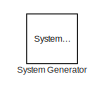
[diagram: root canvas - part 1/3, top left region]
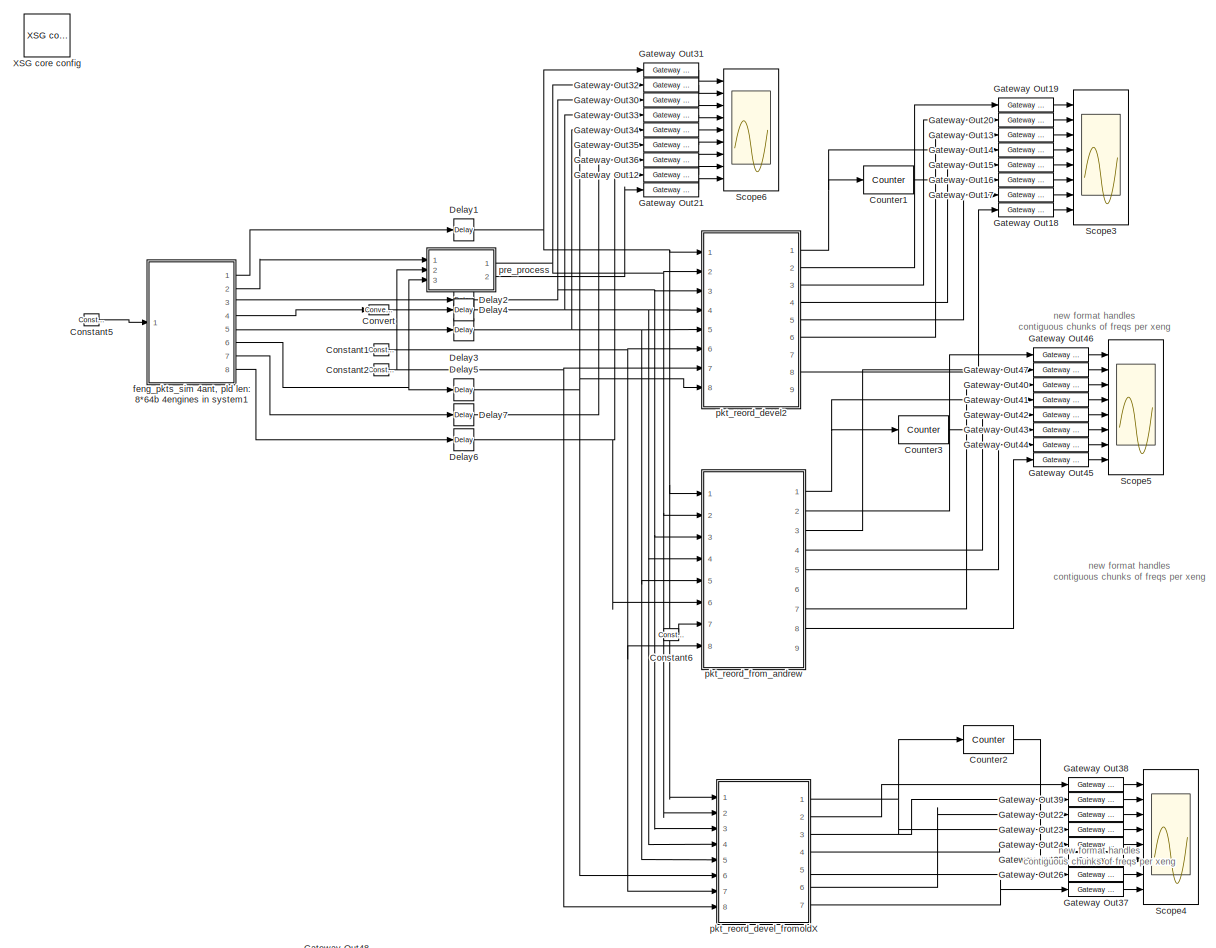
[diagram: root canvas - part 2/3, full width, middle band]
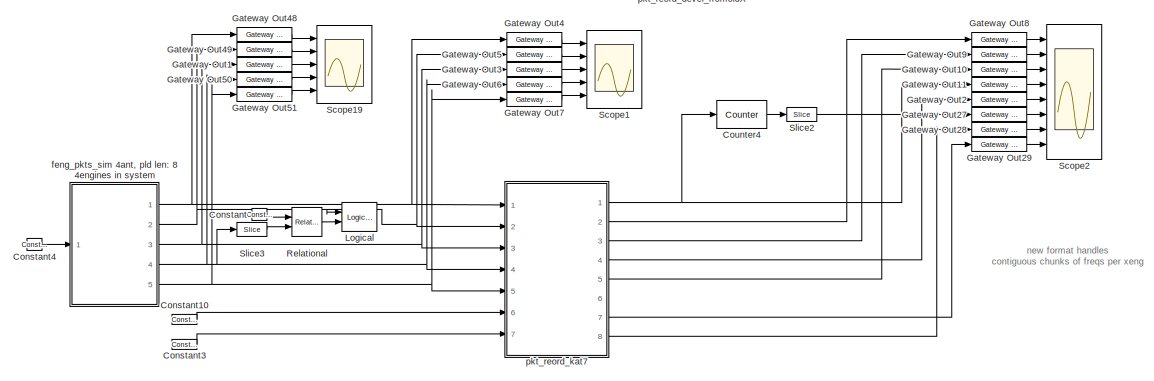
[diagram: root canvas - part 3/3, full width, bottom band]
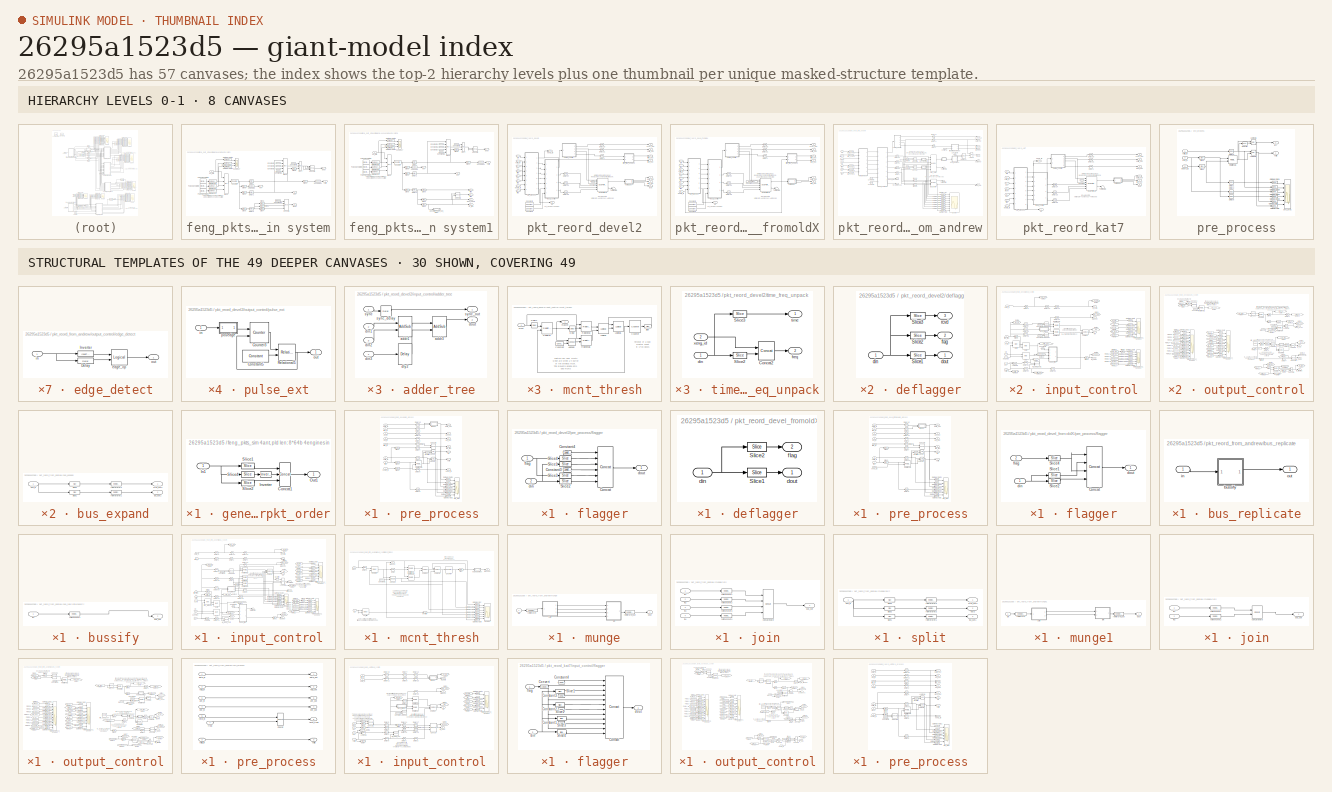
[diagram: thumbnail index - top-2 hierarchy levels (8 canvases) + 30 structural-template representatives of the remaining 49 canvases]
MODEL slx_26295a1523d5
KIND model
BLOCK [Reference]  System Generator  REF=xbsIndex_r4/ System Generator
  AttributesFormatString = System\nGenerator
  Impl_file = ISE Defaults
  Ports = []
  SourceBlock = xbsIndex_r4/ System Generator
  SourceType = Xilinx System Generator Block
  Synth_file = XST Defaults
  Tag = genX
  UserDataPersistent = on
  block_type = sysgen
  block_version = 10.1.3
  clock_wrapper = Clock Enables
  core_generation = According to Block Masks
  dbl_ovrd = According to Block Masks
  dcm_input_clock_period = 100
  deprecated_control = off
  directory = ./test_pkt_reord_10_1/sysgen
  eval_field = 0
  has_advanced_control = 0
  incr_netlist = off
  infoedit = System Generator
  package = ff1704
  part = xc2vp70
  proj_type = Project Navigator
  run_coregen = off
  sg_icon_stat = 51,50,0,0,token,white,0,58c5b5770fe5f7c311f53dbc6e73f0f6,right,,[ ],[ ]
  sg_mask_display = fprintf('','COMMENT: begin icon graphics');\npatch([0 51 51 0 0 ],[0 0 50 50 0 ],[1 1 1 ]);\npatch([1.6375 16.81 27.31 37.81 48.31 27.31 12.1375 1.6375 ],[36.655 36.655 47.155 36.655 47.155 47.155 47.155 36.655 ],[0.933333 0.203922 0.141176 ]);\npatch([12.1375 27.31 16.81 1.6375 12.1375 ],[26.155 26.155 36.655 36.655 26.155 ],[0.698039 0.0313725 0.219608 ]);\npatch([1.6375 16.81 27.31 12.1375 1.6375 ]...<+327ch>
  sggui_pos = -1,-1,-1,-1
  simulink_period = 1
  speed = -7
  synthesis_tool = XST
  sysclk_period = 10
  testbench = off
  trim_vbits = Everywhere in SubSystem
  xilinxfamily = virtex2p
BLOCK [Reference] Constant  REF=xbsIndex_r4/Constant
  Ports = [0, 1]
  SourceBlock = xbsIndex_r4/Constant
  SourceType = Xilinx Constant Block Block
  arith_type = Unsigned
  bin_pt = 0
  block_type = constant
  block_version = 10.1.3
  carry = CIN
  const = 1
  dbl_ovrd = off
  dsp48_infoedit = The use of this block for DSP48 instructions is deprecated.  Please use the Opmode block.
  equ = P=C
  exp_width = 8
  explicit_period = on
  frac_width = 24
  gui_display_data_type = Fixed-point
  has_advanced_control = 0
  inp1 = P
  inp2 = PCIN>>17
  n_bits = 2
  opr = +
  opselect = C
  period = 1
  preci_type = Single
  sg_icon_stat = 15,12,0,1,white,blue,0,1c72b5be,right,,[ ],[ ]
  sg_list_contents = {'table'=>{'carry'=>'popup(0|1|CIN|~SIGN(P or PCIN)|~SIGN(A*B or A:B)|~SIGND(A*B or A:B))','inp1'=>'popup(0|P|A:B|A*B|C|P+C|A:B+C)','inp2'=>'popup(0|PCIN|P|C|PCIN>>17|P>>17)','opselect'=>'popup(C + A*B|PCIN + A*B|P + A*B|A * B|C + A:B|C - A:B|C|Custom)','userSelections'=>{'carry'=>'CIN','inp1'=>'P','inp2'=>'PCIN>>17','opselect'=>'C'}}}  <repeated x4 — deduplicated; at blocks: Constant, Constant3, Constant2>
  sg_mask_display = fprintf('','COMMENT: begin icon graphics');\npatch([0 15 15 0 0 ],[0 0 12 12 0 ],[0.77 0.82 0.91 ]);\nplot([0 15 15 0 0 ],[0 0 12 12 0 ]);\npatch([4.775 6.22 7.22 8.22 9.22 7.22 5.775 4.775 ],[7.11 7.11 8.11 7.11 8.11 8.11 8.11 7.11 ],[1 1 1 ]);\npatch([5.775 7.22 6.22 4.775 5.775 ],[6.11 6.11 7.11 7.11 6.11 ],[0.931 0.946 0.973 ]);\npatch([4.775 6.22 7.22 5.775 4.775 ],[5.11 5.11 6.11 6.11 5.11 ],[1 1...<+277ch>  <repeated x10 — deduplicated; at blocks: Constant, Constant1, Constant2, Constant4, Constant5, Constant6>
  sggui_pos = 21,51,478,435
BLOCK [Reference] Constant1  REF=xbsIndex_r4/Constant
  Ports = [0, 1]
  SourceBlock = xbsIndex_r4/Constant
  SourceType = Xilinx Constant Block Block
  arith_type = Unsigned
  bin_pt = 0
  block_type = constant
  block_version = 10.1.3
  carry = CIN
  const = 0
  dbl_ovrd = off
  dsp48_infoedit = The use of this block for DSP48 instructions is deprecated.  Please use the Opmode block.
  equ = P=C
  exp_width = 8
  explicit_period = on
  frac_width = 24
  gui_display_data_type = Fixed-point
  has_advanced_control = 0
  inp1 = P
  inp2 = PCIN>>17
  n_bits = 6
  opr = +
  opselect = C
  period = 1
  preci_type = Single
  sg_icon_stat = 15,12,0,1,white,blue,0,bf4ddd8b,right,,[ ],[ ]
  sggui_pos = 1260,20,414,476
BLOCK [Reference] Constant10  REF=xbsIndex_r4/Constant
  Ports = [0, 1]
  SourceBlock = xbsIndex_r4/Constant
  SourceType = Xilinx Constant Block Block
  arith_type = Unsigned
  bin_pt = 0
  block_type = constant
  block_version = 10.1.3
  carry = CIN
  const = 0
  dbl_ovrd = off
  dsp48_infoedit = The use of this block for DSP48 instructions is deprecated.  Please use the Opmode block.
  equ = P=C
  exp_width = 8
  explicit_period = on
  frac_width = 24
  gui_display_data_type = Fixed-point
  has_advanced_control = 0
  inp1 = P
  inp2 = PCIN>>17
  n_bits = 1
  opr = +
  opselect = C
  period = 1
  preci_type = Single
  sg_icon_stat = 25,10,0,1,white,blue,0,bf4ddd8b,right,,[ ],[ ]
  sg_mask_display = fprintf('','COMMENT: begin icon graphics');\npatch([0 25 25 0 0 ],[0 0 10 10 0 ],[0.77 0.82 0.91 ]);\nplot([0 25 25 0 0 ],[0 0 10 10 0 ]);\npatch([9.775 11.22 12.22 13.22 14.22 12.22 10.775 9.775 ],[6.11 6.11 7.11 6.11 7.11 7.11 7.11 6.11 ],[1 1 1 ]);\npatch([10.775 12.22 11.22 9.775 10.775 ],[5.11 5.11 6.11 6.11 5.11 ],[0.931 0.946 0.973 ]);\npatch([9.775 11.22 12.22 10.775 9.775 ],[4.11 4.11 5.11 5.1...<+296ch>
  sggui_pos = -1,-1,-1,-1
BLOCK [Reference] Constant2  REF=xbsIndex_r4/Constant
  Ports = [0, 1]
  SourceBlock = xbsIndex_r4/Constant
  SourceType = Xilinx Constant Block Block
  arith_type = Unsigned
  bin_pt = 0
  block_type = constant
  block_version = 10.1.3
  carry = CIN
  const = 0
  dbl_ovrd = off
  dsp48_infoedit = The use of this block for DSP48 instructions is deprecated.  Please use the Opmode block.
  equ = P=C
  exp_width = 8
  explicit_period = on
  frac_width = 24
  gui_display_data_type = Fixed-point
  has_advanced_control = 0
  inp1 = P
  inp2 = PCIN>>17
  n_bits = 32
  opr = +
  opselect = C
  period = 1
  preci_type = Single
  sg_icon_stat = 15,12,0,1,white,blue,0,bf4ddd8b,right,,[ ],[ ]
  sggui_pos = 1260,20,414,476
BLOCK [Reference] Constant3  REF=xbsIndex_r4/Constant
  Ports = [0, 1]
  SourceBlock = xbsIndex_r4/Constant
  SourceType = Xilinx Constant Block Block
  arith_type = Unsigned
  bin_pt = 0
  block_type = constant
  block_version = 10.1.3
  carry = CIN
  const = 0
  dbl_ovrd = off
  dsp48_infoedit = The use of this block for DSP48 instructions is deprecated.  Please use the Opmode block.
  equ = P=C
  exp_width = 8
  explicit_period = on
  frac_width = 24
  gui_display_data_type = Fixed-point
  has_advanced_control = 0
  inp1 = P
  inp2 = PCIN>>17
  n_bits = 32
  opr = +
  opselect = C
  period = 1
  preci_type = Single
  sg_icon_stat = 25,10,0,1,white,blue,0,bf4ddd8b,right,,[ ],[ ]
  sg_mask_display = fprintf('','COMMENT: begin icon graphics');\npatch([0 25 25 0 0 ],[0 0 10 10 0 ],[0.77 0.82 0.91 ]);\nplot([0 25 25 0 0 ],[0 0 10 10 0 ]);\npatch([9.775 11.22 12.22 13.22 14.22 12.22 10.775 9.775 ],[6.11 6.11 7.11 6.11 7.11 7.11 7.11 6.11 ],[1 1 1 ]);\npatch([10.775 12.22 11.22 9.775 10.775 ],[5.11 5.11 6.11 6.11 5.11 ],[0.931 0.946 0.973 ]);\npatch([9.775 11.22 12.22 10.775 9.775 ],[4.11 4.11 5.11 5.1...<+296ch>
  sggui_pos = 22,228,478,435
BLOCK [Reference] Constant4  REF=xbsIndex_r4/Constant
  Ports = [0, 1]
  SourceBlock = xbsIndex_r4/Constant
  SourceType = Xilinx Constant Block Block
  arith_type = Unsigned
  bin_pt = 0
  block_type = constant
  block_version = 10.1.3
  carry = CIN
  const = 1
  dbl_ovrd = off
  dsp48_infoedit = The use of this block for DSP48 instructions is deprecated.  Please use the Opmode block.
  equ = P=C
  exp_width = 8
  explicit_period = off
  frac_width = 24
  gui_display_data_type = Fixed-point
  has_advanced_control = 0
  inp1 = P
  inp2 = PCIN>>17
  n_bits = 2
  opr = +
  opselect = C
  period = 1
  preci_type = Single
  sg_icon_stat = 15,12,0,1,white,blue,0,1c72b5be,right,,[ ],[ ]
  sggui_pos = 20,20,414,344
BLOCK [Reference] Constant5  REF=xbsIndex_r4/Constant
  Ports = [0, 1]
  SourceBlock = xbsIndex_r4/Constant
  SourceType = Xilinx Constant Block Block
  arith_type = Unsigned
  bin_pt = 0
  block_type = constant
  block_version = 10.1.3
  carry = CIN
  const = 1
  dbl_ovrd = off
  dsp48_infoedit = The use of this block for DSP48 instructions is deprecated.  Please use the Opmode block.
  equ = P=C
  exp_width = 8
  explicit_period = on
  frac_width = 24
  gui_display_data_type = Fixed-point
  has_advanced_control = 0
  inp1 = P
  inp2 = PCIN>>17
  n_bits = 2
  opr = +
  opselect = C
  period = 1
  preci_type = Single
  sg_icon_stat = 15,12,0,1,white,blue,0,1c72b5be,right,,[ ],[ ]
  sggui_pos = 1260,20,414,476
BLOCK [Reference] Constant6  REF=xbsIndex_r4/Constant
  Ports = [0, 1]
  SourceBlock = xbsIndex_r4/Constant
  SourceType = Xilinx Constant Block Block
  arith_type = Unsigned
  bin_pt = 0
  block_type = constant
  block_version = 10.1.3
  carry = CIN
  const = 1
  dbl_ovrd = off
  dsp48_infoedit = The use of this block for DSP48 instructions is deprecated.  Please use the Opmode block.
  equ = P=C
  exp_width = 8
  explicit_period = on
  frac_width = 24
  gui_display_data_type = Fixed-point
  has_advanced_control = 0
  inp1 = P
  inp2 = PCIN>>17
  n_bits = 1
  opr = +
  opselect = C
  period = 1
  preci_type = Single
  sg_icon_stat = 15,12,0,1,white,blue,0,1c72b5be,right,,[ ],[ ]
  sggui_pos = 1260,20,414,476
BLOCK [Reference] Convert  REF=xbsIndex_r4/Convert
  Ports = [1, 1]
  SourceBlock = xbsIndex_r4/Convert
  SourceType = Xilinx Type Converter Block
  arith_type = Unsigned
  bin_pt = 0
  block_type = convert
  dbl_ovrd = off
  en = off
  exp_bits = 8
  float_type = Single
  fraction_bits = 24
  gui_display_data_type = Fixed-point
  has_advanced_control = 0
  infoedit = Hardware notes: rounding and saturating require hardware resources; truncating and wrapping do not.
  latency = 0
  n_bits = 30
  overflow = Wrap
  pipeline = off
  quantization = Truncate
  sg_icon_stat = 20,10,1,1,white,blue,0,edca21da,right,,[ ],[ ]
  sg_mask_display = fprintf('','COMMENT: begin icon graphics');\npatch([0 20 20 0 0 ],[0 0 10 10 0 ],[0.77 0.82 0.91 ]);\nplot([0 20 20 0 0 ],[0 0 10 10 0 ]);\npatch([7.775 9.22 10.22 11.22 12.22 10.22 8.775 7.775 ],[6.11 6.11 7.11 6.11 7.11 7.11 7.11 6.11 ],[1 1 1 ]);\npatch([8.775 10.22 9.22 7.775 8.775 ],[5.11 5.11 6.11 6.11 5.11 ],[0.931 0.946 0.973 ]);\npatch([7.775 9.22 10.22 8.775 7.775 ],[4.11 4.11 5.11 5.11 4.11 ...<+290ch>
  sggui_pos = 55,14,568,656
  xl_area = [0,0,0,0,0,0,0]
  xl_use_area = off
BLOCK [Reference] Counter1  REF=xbsIndex_r4/Counter
  Ports = [1, 1]
  SourceBlock = xbsIndex_r4/Counter
  SourceType = Xilinx Counter Block
  arith_type = Unsigned
  bin_pt = 0
  block_type = counter
  block_version = 10.1.3
  cnt_by_val = 1
  cnt_to = 32
  cnt_type = Free Running
  dbl_ovrd = off
  en = off
  explicit_period = off
  has_advanced_control = 0
  implementation = Fabric
  infoedit = Hardware notes: Free running counters are the least expensive in hardware.  A count limited counter is implemented by combining a counter with a comparator.
  load_pin = off
  n_bits = 5
  operation = Up
  period = 1
  rst = on
  sg_icon_stat = 50,28,1,1,white,blue,0,803eba70,right,,[ ],[ ]
  sg_mask_display = fprintf('','COMMENT: begin icon graphics');\npatch([0 50 50 0 0 ],[0 0 28 28 0 ],[0.77 0.82 0.91 ]);\nplot([0 50 50 0 0 ],[0 0 28 28 0 ]);\npatch([16.1 21.88 25.88 29.88 33.88 25.88 20.1 16.1 ],[18.44 18.44 22.44 18.44 22.44 22.44 22.44 18.44 ],[1 1 1 ]);\npatch([20.1 25.88 21.88 16.1 20.1 ],[14.44 14.44 18.44 18.44 14.44 ],[0.931 0.946 0.973 ]);\npatch([16.1 21.88 25.88 20.1 16.1 ],[10.44 10.44 14.44 ...<+361ch>  <repeated x4 — deduplicated; at blocks: Counter1, Counter2, Counter3, Counter4>
  sggui_pos = 1223,20,451,768
  start_count = 0
  use_behavioral_HDL = off
  use_rpm = on
  xl_area = [0, 0, 0, 0, 0, 0, 0]
  xl_use_area = off
BLOCK [Reference] Counter2  REF=xbsIndex_r4/Counter
  Ports = [1, 1]
  SourceBlock = xbsIndex_r4/Counter
  SourceType = Xilinx Counter Block
  arith_type = Unsigned
  bin_pt = 0
  block_type = counter
  block_version = 10.1.3
  cnt_by_val = 1
  cnt_to = 32
  cnt_type = Free Running
  dbl_ovrd = off
  en = off
  explicit_period = off
  has_advanced_control = 0
  implementation = Fabric
  infoedit = Hardware notes: Free running counters are the least expensive in hardware.  A count limited counter is implemented by combining a counter with a comparator.
  load_pin = off
  n_bits = 7
  operation = Up
  period = 1
  rst = on
  sg_icon_stat = 50,28,1,1,white,blue,0,803eba70,right,,[ ],[ ]
  sggui_pos = 1223,20,451,768
  start_count = 0
  use_behavioral_HDL = off
  use_rpm = on
  xl_area = [0, 0, 0, 0, 0, 0, 0]
  xl_use_area = off
BLOCK [Reference] Counter3  REF=xbsIndex_r4/Counter
  Ports = [1, 1]
  SourceBlock = xbsIndex_r4/Counter
  SourceType = Xilinx Counter Block
  arith_type = Unsigned
  bin_pt = 0
  block_type = counter
  block_version = 10.1.3
  cnt_by_val = 1
  cnt_to = 32
  cnt_type = Free Running
  dbl_ovrd = off
  en = off
  explicit_period = off
  has_advanced_control = 0
  implementation = Fabric
  infoedit = Hardware notes: Free running counters are the least expensive in hardware.  A count limited counter is implemented by combining a counter with a comparator.
  load_pin = off
  n_bits = 5
  operation = Up
  period = 1
  rst = on
  sg_icon_stat = 50,28,1,1,white,blue,0,803eba70,right,,[ ],[ ]
  sggui_pos = 2363,143,451,768
  start_count = 0
  use_behavioral_HDL = off
  use_rpm = on
  xl_area = [0, 0, 0, 0, 0, 0, 0]
  xl_use_area = off
BLOCK [Reference] Counter4  REF=xbsIndex_r4/Counter
  Ports = [1, 1]
  SourceBlock = xbsIndex_r4/Counter
  SourceType = Xilinx Counter Block
  arith_type = Unsigned
  bin_pt = 0
  block_type = counter
  block_version = 10.1.3
  cnt_by_val = 1
  cnt_to = 32
  cnt_type = Free Running
  dbl_ovrd = off
  en = off
  explicit_period = off
  has_advanced_control = 0
  implementation = Fabric
  infoedit = Hardware notes: Free running counters are the least expensive in hardware.  A count limited counter is implemented by combining a counter with a comparator.
  load_pin = off
  n_bits = 32
  operation = Up
  period = 1
  rst = on
  sg_icon_stat = 50,28,1,1,white,blue,0,803eba70,right,,[ ],[ ]
  sggui_pos = 20,20,348,619
  start_count = 0
  use_behavioral_HDL = off
  use_rpm = on
  xl_area = [0, 0, 0, 0, 0, 0, 0]
  xl_use_area = off
BLOCK [Reference] Delay1  REF=xbsIndex_r4/Delay
  Ports = [1, 1]
  SourceBlock = xbsIndex_r4/Delay
  SourceType = Xilinx Delay Block
  block_type = delay
  block_version = 10.1.3
  dbl_ovrd = off
  en = off
  has_advanced_control = 0
  infoedit = Hardware notes: A delay line is a chain, each link of which is an SRL16 followed by a flip-flop.
  infoeditControl = Selection of Reset will increase slice count due to use of real FFs and instead of SRLs
  latency = 1
  reg_retiming = on
  rst = off
  sg_icon_stat = 20,22,1,1,white,blue,0,07b98262,right,,[ ],[ ]
  sg_mask_display = fprintf('','COMMENT: begin icon graphics');\npatch([0 20 20 0 0 ],[0 0 22 22 0 ],[0.77 0.82 0.91 ]);\nplot([0 20 20 0 0 ],[0 0 22 22 0 ]);\npatch([5.55 8.44 10.44 12.44 14.44 10.44 7.55 5.55 ],[13.22 13.22 15.22 13.22 15.22 15.22 15.22 13.22 ],[1 1 1 ]);\npatch([7.55 10.44 8.44 5.55 7.55 ],[11.22 11.22 13.22 13.22 11.22 ],[0.931 0.946 0.973 ]);\npatch([5.55 8.44 10.44 7.55 5.55 ],[9.22 9.22 11.22 11.22...<+294ch>  <repeated x68 — deduplicated; at blocks: Delay1, Delay2, Delay3, Delay4, Delay5, Delay6, Delay7, Delay10, Delay12, Delay20, Delay11, Delay13, Delay14, Delay15, Delay16, Delay17, +4 more>
  sggui_pos = -1,-1,-1,-1
  xl_area = [0, 0, 0, 0, 0, 0, 0]
  xl_use_area = off
BLOCK [Reference] Delay2  REF=xbsIndex_r4/Delay
  Ports = [1, 1]
  SourceBlock = xbsIndex_r4/Delay
  SourceType = Xilinx Delay Block
  block_type = delay
  block_version = 10.1.3
  dbl_ovrd = off
  en = off
  has_advanced_control = 0
  infoedit = Hardware notes: A delay line is a chain, each link of which is an SRL16 followed by a flip-flop.
  infoeditControl = Selection of Reset will increase slice count due to use of real FFs and instead of SRLs
  latency = 1
  reg_retiming = on
  rst = off
  sg_icon_stat = 20,22,1,1,white,blue,0,07b98262,right,,[ ],[ ]
  sggui_pos = -1,-1,-1,-1
  xl_area = [0, 0, 0, 0, 0, 0, 0]
  xl_use_area = off
BLOCK [Reference] Delay3  REF=xbsIndex_r4/Delay
  Ports = [1, 1]
  SourceBlock = xbsIndex_r4/Delay
  SourceType = Xilinx Delay Block
  block_type = delay
  block_version = 10.1.3
  dbl_ovrd = off
  en = off
  has_advanced_control = 0
  infoedit = Hardware notes: A delay line is a chain, each link of which is an SRL16 followed by a flip-flop.
  infoeditControl = Selection of Reset will increase slice count due to use of real FFs and instead of SRLs
  latency = 1
  reg_retiming = on
  rst = off
  sg_icon_stat = 20,22,1,1,white,blue,0,07b98262,right,,[ ],[ ]
  sggui_pos = -1,-1,-1,-1
  xl_area = [0, 0, 0, 0, 0, 0, 0]
  xl_use_area = off
BLOCK [Reference] Delay4  REF=xbsIndex_r4/Delay
  Ports = [1, 1]
  SourceBlock = xbsIndex_r4/Delay
  SourceType = Xilinx Delay Block
  block_type = delay
  block_version = 10.1.3
  dbl_ovrd = off
  en = off
  has_advanced_control = 0
  infoedit = Hardware notes: A delay line is a chain, each link of which is an SRL16 followed by a flip-flop.
  infoeditControl = Selection of Reset will increase slice count due to use of real FFs and instead of SRLs
  latency = 1
  reg_retiming = on
  rst = off
  sg_icon_stat = 20,22,1,1,white,blue,0,07b98262,right,,[ ],[ ]
  sggui_pos = -1,-1,-1,-1
  xl_area = [0, 0, 0, 0, 0, 0, 0]
  xl_use_area = off
BLOCK [Reference] Delay5  REF=xbsIndex_r4/Delay
  Ports = [1, 1]
  SourceBlock = xbsIndex_r4/Delay
  SourceType = Xilinx Delay Block
  block_type = delay
  block_version = 10.1.3
  dbl_ovrd = off
  en = off
  has_advanced_control = 0
  infoedit = Hardware notes: A delay line is a chain, each link of which is an SRL16 followed by a flip-flop.
  infoeditControl = Selection of Reset will increase slice count due to use of real FFs and instead of SRLs
  latency = 1
  reg_retiming = on
  rst = off
  sg_icon_stat = 20,22,1,1,white,blue,0,07b98262,right,,[ ],[ ]
  sggui_pos = -1,-1,-1,-1
  xl_area = [0, 0, 0, 0, 0, 0, 0]
  xl_use_area = off
BLOCK [Reference] Delay6  REF=xbsIndex_r4/Delay
  Ports = [1, 1]
  SourceBlock = xbsIndex_r4/Delay
  SourceType = Xilinx Delay Block
  block_type = delay
  block_version = 10.1.3
  dbl_ovrd = off
  en = off
  has_advanced_control = 0
  infoedit = Hardware notes: A delay line is a chain, each link of which is an SRL16 followed by a flip-flop.
  infoeditControl = Selection of Reset will increase slice count due to use of real FFs and instead of SRLs
  latency = 1
  reg_retiming = on
  rst = off
  sg_icon_stat = 20,22,1,1,white,blue,0,07b98262,right,,[ ],[ ]
  sggui_pos = -1,-1,-1,-1
  xl_area = [0, 0, 0, 0, 0, 0, 0]
  xl_use_area = off
BLOCK [Reference] Delay7  REF=xbsIndex_r4/Delay
  Ports = [1, 1]
  SourceBlock = xbsIndex_r4/Delay
  SourceType = Xilinx Delay Block
  block_type = delay
  block_version = 10.1.3
  dbl_ovrd = off
  en = off
  has_advanced_control = 0
  infoedit = Hardware notes: A delay line is a chain, each link of which is an SRL16 followed by a flip-flop.
  infoeditControl = Selection of Reset will increase slice count due to use of real FFs and instead of SRLs
  latency = 1
  reg_retiming = on
  rst = off
  sg_icon_stat = 20,22,1,1,white,blue,0,07b98262,right,,[ ],[ ]
  sggui_pos = -1,-1,-1,-1
  xl_area = [0, 0, 0, 0, 0, 0, 0]
  xl_use_area = off
BLOCK [Reference] Gateway Out1  REF=xbsIndex_r4/Gateway Out
  DACChannel = '1'
  LOCs = {}
  Ports = [1, 1]
  SourceBlock = xbsIndex_r4/Gateway Out
  SourceType = Xilinx Gateway Out Block
  UseAsDAC = off
  block_type = gatewayout
  block_version = 10.1.3
  has_advanced_control = 0
  hdl_port = on
  infoedit = Gateway out block.  Converts Xilinx fixed point inputs into ouputs of type Simulink integer, double, or fixed point.<P><P>Hardware notes:  In hardware these blocks become top level output ports or are discarded, depending on how they are configured.  <repeated x199 — deduplicated; at blocks: Gateway Out1, Gateway Out10, Gateway Out11, Gateway Out12, Gateway Out13, Gateway Out14, Gateway Out15, Gateway Out16, Gateway Out17, Gateway Out18, Gateway Out19, Gateway Out2, Gateway Out20, Gateway Out21, Gateway Out22, Gateway Out23, +38 more>
  inherit_from_input = off
  locs_specified = off
  sg_icon_stat = 55,14,1,1,white,yellow,1,cc31b7ac,right,,[ ],[ ]
  sg_mask_display = fprintf('','COMMENT: begin icon graphics');\npatch([0 55 55 0 0 ],[0 0 14 14 0 ],[0.95 0.93 0.65 ]);\nplot([0 55 55 0 0 ],[0 0 14 14 0 ]);\npatch([22.55 25.44 27.44 29.44 31.44 27.44 24.55 22.55 ],[9.22 9.22 11.22 9.22 11.22 11.22 11.22 9.22 ],[1 1 1 ]);\npatch([24.55 27.44 25.44 22.55 24.55 ],[7.22 7.22 9.22 9.22 7.22 ],[0.985 0.979 0.895 ]);\npatch([22.55 25.44 27.44 24.55 22.55 ],[5.22 5.22 7.22 7.2...<+373ch>  <repeated x57 — deduplicated; at blocks: Gateway Out1, Gateway Out10, Gateway Out11, Gateway Out12, Gateway Out13, Gateway Out14, Gateway Out15, Gateway Out16, Gateway Out17, Gateway Out18, Gateway Out19, Gateway Out2, Gateway Out20, Gateway Out21, Gateway Out22, Gateway Out23, +38 more>
  sggui_pos = -1,-1,-1,-1
  timing_constraint = None
  xl_area = [0, 0, 0, 0, 0, 0, 0]
  xl_use_area = off
BLOCK [Reference] Gateway Out10  REF=xbsIndex_r4/Gateway Out
  DACChannel = '1'
  LOCs = {}
  Ports = [1, 1]
  SourceBlock = xbsIndex_r4/Gateway Out
  SourceType = Xilinx Gateway Out Block
  UseAsDAC = off
  block_type = gatewayout
  block_version = 10.1.3
  has_advanced_control = 0
  hdl_port = on
  inherit_from_input = off
  locs_specified = off
  sg_icon_stat = 55,14,1,1,white,yellow,1,cc31b7ac,right,,[ ],[ ]
  sggui_pos = -1,-1,-1,-1
  timing_constraint = None
  xl_area = [0, 0, 0, 0, 0, 0, 0]
  xl_use_area = off
BLOCK [Reference] Gateway Out11  REF=xbsIndex_r4/Gateway Out
  DACChannel = '1'
  LOCs = {}
  Ports = [1, 1]
  SourceBlock = xbsIndex_r4/Gateway Out
  SourceType = Xilinx Gateway Out Block
  UseAsDAC = off
  block_type = gatewayout
  block_version = 10.1.3
  has_advanced_control = 0
  hdl_port = on
  inherit_from_input = off
  locs_specified = off
  sg_icon_stat = 55,14,1,1,white,yellow,1,cc31b7ac,right,,[ ],[ ]
  sggui_pos = -1,-1,-1,-1
  timing_constraint = None
  xl_area = [0, 0, 0, 0, 0, 0, 0]
  xl_use_area = off
BLOCK [Reference] Gateway Out12  REF=xbsIndex_r4/Gateway Out
  DACChannel = '1'
  LOCs = {}
  Ports = [1, 1]
  SourceBlock = xbsIndex_r4/Gateway Out
  SourceType = Xilinx Gateway Out Block
  UseAsDAC = off
  block_type = gatewayout
  block_version = 10.1.3
  has_advanced_control = 0
  hdl_port = on
  inherit_from_input = off
  locs_specified = off
  sg_icon_stat = 55,14,1,1,white,yellow,1,cc31b7ac,right,,[ ],[ ]
  sggui_pos = -1,-1,-1,-1
  timing_constraint = None
  xl_area = [0, 0, 0, 0, 0, 0, 0]
  xl_use_area = off
BLOCK [Reference] Gateway Out13  REF=xbsIndex_r4/Gateway Out
  DACChannel = '1'
  LOCs = {}
  Ports = [1, 1]
  SourceBlock = xbsIndex_r4/Gateway Out
  SourceType = Xilinx Gateway Out Block
  UseAsDAC = off
  block_type = gatewayout
  block_version = 10.1.3
  has_advanced_control = 0
  hdl_port = on
  inherit_from_input = off
  locs_specified = off
  sg_icon_stat = 55,14,1,1,white,yellow,1,cc31b7ac,right,,[ ],[ ]
  sggui_pos = -1,-1,-1,-1
  timing_constraint = None
  xl_area = [0, 0, 0, 0, 0, 0, 0]
  xl_use_area = off
BLOCK [Reference] Gateway Out14  REF=xbsIndex_r4/Gateway Out
  DACChannel = '1'
  LOCs = {}
  Ports = [1, 1]
  SourceBlock = xbsIndex_r4/Gateway Out
  SourceType = Xilinx Gateway Out Block
  UseAsDAC = off
  block_type = gatewayout
  block_version = 10.1.3
  has_advanced_control = 0
  hdl_port = on
  inherit_from_input = off
  locs_specified = off
  sg_icon_stat = 55,14,1,1,white,yellow,1,cc31b7ac,right,,[ ],[ ]
  sggui_pos = -1,-1,-1,-1
  timing_constraint = None
  xl_area = [0, 0, 0, 0, 0, 0, 0]
  xl_use_area = off
BLOCK [Reference] Gateway Out15  REF=xbsIndex_r4/Gateway Out
  DACChannel = '1'
  LOCs = {}
  Ports = [1, 1]
  SourceBlock = xbsIndex_r4/Gateway Out
  SourceType = Xilinx Gateway Out Block
  UseAsDAC = off
  block_type = gatewayout
  block_version = 10.1.3
  has_advanced_control = 0
  hdl_port = on
  inherit_from_input = off
  locs_specified = off
  sg_icon_stat = 55,14,1,1,white,yellow,1,cc31b7ac,right,,[ ],[ ]
  sggui_pos = -1,-1,-1,-1
  timing_constraint = None
  xl_area = [0, 0, 0, 0, 0, 0, 0]
  xl_use_area = off
BLOCK [Reference] Gateway Out16  REF=xbsIndex_r4/Gateway Out
  DACChannel = '1'
  LOCs = {}
  Ports = [1, 1]
  SourceBlock = xbsIndex_r4/Gateway Out
  SourceType = Xilinx Gateway Out Block
  UseAsDAC = off
  block_type = gatewayout
  block_version = 10.1.3
  has_advanced_control = 0
  hdl_port = on
  inherit_from_input = off
  locs_specified = off
  sg_icon_stat = 55,14,1,1,white,yellow,1,cc31b7ac,right,,[ ],[ ]
  sggui_pos = -1,-1,-1,-1
  timing_constraint = None
  xl_area = [0, 0, 0, 0, 0, 0, 0]
  xl_use_area = off
BLOCK [Reference] Gateway Out17  REF=xbsIndex_r4/Gateway Out
  DACChannel = '1'
  LOCs = {}
  Ports = [1, 1]
  SourceBlock = xbsIndex_r4/Gateway Out
  SourceType = Xilinx Gateway Out Block
  UseAsDAC = off
  block_type = gatewayout
  block_version = 10.1.3
  has_advanced_control = 0
  hdl_port = on
  inherit_from_input = off
  locs_specified = off
  sg_icon_stat = 55,14,1,1,white,yellow,1,cc31b7ac,right,,[ ],[ ]
  sggui_pos = -1,-1,-1,-1
  timing_constraint = None
  xl_area = [0, 0, 0, 0, 0, 0, 0]
  xl_use_area = off
BLOCK [Reference] Gateway Out18  REF=xbsIndex_r4/Gateway Out
  DACChannel = '1'
  LOCs = {}
  Ports = [1, 1]
  SourceBlock = xbsIndex_r4/Gateway Out
  SourceType = Xilinx Gateway Out Block
  UseAsDAC = off
  block_type = gatewayout
  block_version = 10.1.3
  has_advanced_control = 0
  hdl_port = on
  inherit_from_input = off
  locs_specified = off
  sg_icon_stat = 55,14,1,1,white,yellow,1,cc31b7ac,right,,[ ],[ ]
  sggui_pos = -1,-1,-1,-1
  timing_constraint = None
  xl_area = [0, 0, 0, 0, 0, 0, 0]
  xl_use_area = off
BLOCK [Reference] Gateway Out19  REF=xbsIndex_r4/Gateway Out
  DACChannel = '1'
  LOCs = {}
  Ports = [1, 1]
  SourceBlock = xbsIndex_r4/Gateway Out
  SourceType = Xilinx Gateway Out Block
  UseAsDAC = off
  block_type = gatewayout
  block_version = 10.1.3
  has_advanced_control = 0
  hdl_port = on
  inherit_from_input = off
  locs_specified = off
  sg_icon_stat = 55,14,1,1,white,yellow,1,cc31b7ac,right,,[ ],[ ]
  sggui_pos = -1,-1,-1,-1
  timing_constraint = None
  xl_area = [0, 0, 0, 0, 0, 0, 0]
  xl_use_area = off
BLOCK [Reference] Gateway Out2  REF=xbsIndex_r4/Gateway Out
  DACChannel = '1'
  LOCs = {}
  Ports = [1, 1]
  SourceBlock = xbsIndex_r4/Gateway Out
  SourceType = Xilinx Gateway Out Block
  UseAsDAC = off
  block_type = gatewayout
  block_version = 10.1.3
  has_advanced_control = 0
  hdl_port = on
  inherit_from_input = off
  locs_specified = off
  sg_icon_stat = 55,14,1,1,white,yellow,1,cc31b7ac,right,,[ ],[ ]
  sggui_pos = -1,-1,-1,-1
  timing_constraint = None
  xl_area = [0, 0, 0, 0, 0, 0, 0]
  xl_use_area = off
BLOCK [Reference] Gateway Out20  REF=xbsIndex_r4/Gateway Out
  DACChannel = '1'
  LOCs = {}
  Ports = [1, 1]
  SourceBlock = xbsIndex_r4/Gateway Out
  SourceType = Xilinx Gateway Out Block
  UseAsDAC = off
  block_type = gatewayout
  block_version = 10.1.3
  has_advanced_control = 0
  hdl_port = on
  inherit_from_input = off
  locs_specified = off
  sg_icon_stat = 55,14,1,1,white,yellow,1,cc31b7ac,right,,[ ],[ ]
  sggui_pos = -1,-1,-1,-1
  timing_constraint = None
  xl_area = [0, 0, 0, 0, 0, 0, 0]
  xl_use_area = off
BLOCK [Reference] Gateway Out21  REF=xbsIndex_r4/Gateway Out
  DACChannel = '1'
  LOCs = {}
  Ports = [1, 1]
  SourceBlock = xbsIndex_r4/Gateway Out
  SourceType = Xilinx Gateway Out Block
  UseAsDAC = off
  block_type = gatewayout
  block_version = 10.1.3
  has_advanced_control = 0
  hdl_port = on
  inherit_from_input = off
  locs_specified = off
  sg_icon_stat = 55,14,1,1,white,yellow,1,cc31b7ac,right,,[ ],[ ]
  sggui_pos = -1,-1,-1,-1
  timing_constraint = None
  xl_area = [0, 0, 0, 0, 0, 0, 0]
  xl_use_area = off
BLOCK [Reference] Gateway Out22  REF=xbsIndex_r4/Gateway Out
  DACChannel = '1'
  LOCs = {}
  Ports = [1, 1]
  SourceBlock = xbsIndex_r4/Gateway Out
  SourceType = Xilinx Gateway Out Block
  UseAsDAC = off
  block_type = gatewayout
  block_version = 10.1.3
  has_advanced_control = 0
  hdl_port = on
  inherit_from_input = off
  locs_specified = off
  sg_icon_stat = 55,14,1,1,white,yellow,1,cc31b7ac,right,,[ ],[ ]
  sggui_pos = -1,-1,-1,-1
  timing_constraint = None
  xl_area = [0, 0, 0, 0, 0, 0, 0]
  xl_use_area = off
BLOCK [Reference] Gateway Out23  REF=xbsIndex_r4/Gateway Out
  DACChannel = '1'
  LOCs = {}
  Ports = [1, 1]
  SourceBlock = xbsIndex_r4/Gateway Out
  SourceType = Xilinx Gateway Out Block
  UseAsDAC = off
  block_type = gatewayout
  block_version = 10.1.3
  has_advanced_control = 0
  hdl_port = on
  inherit_from_input = off
  locs_specified = off
  sg_icon_stat = 55,14,1,1,white,yellow,1,cc31b7ac,right,,[ ],[ ]
  sggui_pos = -1,-1,-1,-1
  timing_constraint = None
  xl_area = [0, 0, 0, 0, 0, 0, 0]
  xl_use_area = off
BLOCK [Reference] Gateway Out24  REF=xbsIndex_r4/Gateway Out
  DACChannel = '1'
  LOCs = {}
  Ports = [1, 1]
  SourceBlock = xbsIndex_r4/Gateway Out
  SourceType = Xilinx Gateway Out Block
  UseAsDAC = off
  block_type = gatewayout
  block_version = 10.1.3
  has_advanced_control = 0
  hdl_port = on
  inherit_from_input = off
  locs_specified = off
  sg_icon_stat = 55,14,1,1,white,yellow,1,cc31b7ac,right,,[ ],[ ]
  sggui_pos = -1,-1,-1,-1
  timing_constraint = None
  xl_area = [0, 0, 0, 0, 0, 0, 0]
  xl_use_area = off
BLOCK [Reference] Gateway Out25  REF=xbsIndex_r4/Gateway Out
  DACChannel = '1'
  LOCs = {}
  Ports = [1, 1]
  SourceBlock = xbsIndex_r4/Gateway Out
  SourceType = Xilinx Gateway Out Block
  UseAsDAC = off
  block_type = gatewayout
  block_version = 10.1.3
  has_advanced_control = 0
  hdl_port = on
  inherit_from_input = off
  locs_specified = off
  sg_icon_stat = 55,14,1,1,white,yellow,1,cc31b7ac,right,,[ ],[ ]
  sggui_pos = -1,-1,-1,-1
  timing_constraint = None
  xl_area = [0, 0, 0, 0, 0, 0, 0]
  xl_use_area = off
BLOCK [Reference] Gateway Out26  REF=xbsIndex_r4/Gateway Out
  DACChannel = '1'
  LOCs = {}
  Ports = [1, 1]
  SourceBlock = xbsIndex_r4/Gateway Out
  SourceType = Xilinx Gateway Out Block
  UseAsDAC = off
  block_type = gatewayout
  block_version = 10.1.3
  has_advanced_control = 0
  hdl_port = on
  inherit_from_input = off
  locs_specified = off
  sg_icon_stat = 55,14,1,1,white,yellow,1,cc31b7ac,right,,[ ],[ ]
  sggui_pos = -1,-1,-1,-1
  timing_constraint = None
  xl_area = [0, 0, 0, 0, 0, 0, 0]
  xl_use_area = off
BLOCK [Reference] Gateway Out27  REF=xbsIndex_r4/Gateway Out
  DACChannel = '1'
  LOCs = {}
  Ports = [1, 1]
  SourceBlock = xbsIndex_r4/Gateway Out
  SourceType = Xilinx Gateway Out Block
  UseAsDAC = off
  block_type = gatewayout
  block_version = 10.1.3
  has_advanced_control = 0
  hdl_port = on
  inherit_from_input = off
  locs_specified = off
  sg_icon_stat = 55,14,1,1,white,yellow,1,cc31b7ac,right,,[ ],[ ]
  sggui_pos = -1,-1,-1,-1
  timing_constraint = None
  xl_area = [0, 0, 0, 0, 0, 0, 0]
  xl_use_area = off
BLOCK [Reference] Gateway Out28  REF=xbsIndex_r4/Gateway Out
  DACChannel = '1'
  LOCs = {}
  Ports = [1, 1]
  SourceBlock = xbsIndex_r4/Gateway Out
  SourceType = Xilinx Gateway Out Block
  UseAsDAC = off
  block_type = gatewayout
  block_version = 10.1.3
  has_advanced_control = 0
  hdl_port = on
  inherit_from_input = off
  locs_specified = off
  sg_icon_stat = 55,14,1,1,white,yellow,1,cc31b7ac,right,,[ ],[ ]
  sggui_pos = -1,-1,-1,-1
  timing_constraint = None
  xl_area = [0, 0, 0, 0, 0, 0, 0]
  xl_use_area = off
BLOCK [Reference] Gateway Out29  REF=xbsIndex_r4/Gateway Out
  DACChannel = '1'
  LOCs = {}
  Ports = [1, 1]
  SourceBlock = xbsIndex_r4/Gateway Out
  SourceType = Xilinx Gateway Out Block
  UseAsDAC = off
  block_type = gatewayout
  block_version = 10.1.3
  has_advanced_control = 0
  hdl_port = on
  inherit_from_input = off
  locs_specified = off
  sg_icon_stat = 55,14,1,1,white,yellow,1,cc31b7ac,right,,[ ],[ ]
  sggui_pos = -1,-1,-1,-1
  timing_constraint = None
  xl_area = [0, 0, 0, 0, 0, 0, 0]
  xl_use_area = off
BLOCK [Reference] Gateway Out3  REF=xbsIndex_r4/Gateway Out
  DACChannel = '1'
  LOCs = {}
  Ports = [1, 1]
  SourceBlock = xbsIndex_r4/Gateway Out
  SourceType = Xilinx Gateway Out Block
  UseAsDAC = off
  block_type = gatewayout
  block_version = 10.1.3
  has_advanced_control = 0
  hdl_port = on
  inherit_from_input = off
  locs_specified = off
  sg_icon_stat = 55,14,1,1,white,yellow,1,cc31b7ac,right,,[ ],[ ]
  sggui_pos = -1,-1,-1,-1
  timing_constraint = None
  xl_area = [0, 0, 0, 0, 0, 0, 0]
  xl_use_area = off
BLOCK [Reference] Gateway Out30  REF=xbsIndex_r4/Gateway Out
  DACChannel = '1'
  LOCs = {}
  Ports = [1, 1]
  SourceBlock = xbsIndex_r4/Gateway Out
  SourceType = Xilinx Gateway Out Block
  UseAsDAC = off
  block_type = gatewayout
  block_version = 10.1.3
  has_advanced_control = 0
  hdl_port = on
  inherit_from_input = off
  locs_specified = off
  sg_icon_stat = 55,14,1,1,white,yellow,1,cc31b7ac,right,,[ ],[ ]
  sggui_pos = -1,-1,-1,-1
  timing_constraint = None
  xl_area = [0, 0, 0, 0, 0, 0, 0]
  xl_use_area = off
BLOCK [Reference] Gateway Out31  REF=xbsIndex_r4/Gateway Out
  DACChannel = '1'
  LOCs = {}
  Ports = [1, 1]
  SourceBlock = xbsIndex_r4/Gateway Out
  SourceType = Xilinx Gateway Out Block
  UseAsDAC = off
  block_type = gatewayout
  block_version = 10.1.3
  has_advanced_control = 0
  hdl_port = on
  inherit_from_input = off
  locs_specified = off
  sg_icon_stat = 55,14,1,1,white,yellow,1,cc31b7ac,right,,[ ],[ ]
  sggui_pos = -1,-1,-1,-1
  timing_constraint = None
  xl_area = [0, 0, 0, 0, 0, 0, 0]
  xl_use_area = off
BLOCK [Reference] Gateway Out32  REF=xbsIndex_r4/Gateway Out
  DACChannel = '1'
  LOCs = {}
  Ports = [1, 1]
  SourceBlock = xbsIndex_r4/Gateway Out
  SourceType = Xilinx Gateway Out Block
  UseAsDAC = off
  block_type = gatewayout
  block_version = 10.1.3
  has_advanced_control = 0
  hdl_port = on
  inherit_from_input = off
  locs_specified = off
  sg_icon_stat = 55,14,1,1,white,yellow,1,cc31b7ac,right,,[ ],[ ]
  sggui_pos = -1,-1,-1,-1
  timing_constraint = None
  xl_area = [0, 0, 0, 0, 0, 0, 0]
  xl_use_area = off
BLOCK [Reference] Gateway Out33  REF=xbsIndex_r4/Gateway Out
  DACChannel = '1'
  LOCs = {}
  Ports = [1, 1]
  SourceBlock = xbsIndex_r4/Gateway Out
  SourceType = Xilinx Gateway Out Block
  UseAsDAC = off
  block_type = gatewayout
  block_version = 10.1.3
  has_advanced_control = 0
  hdl_port = on
  inherit_from_input = off
  locs_specified = off
  sg_icon_stat = 55,14,1,1,white,yellow,1,cc31b7ac,right,,[ ],[ ]
  sggui_pos = -1,-1,-1,-1
  timing_constraint = None
  xl_area = [0, 0, 0, 0, 0, 0, 0]
  xl_use_area = off
BLOCK [Reference] Gateway Out34  REF=xbsIndex_r4/Gateway Out
  DACChannel = '1'
  LOCs = {}
  Ports = [1, 1]
  SourceBlock = xbsIndex_r4/Gateway Out
  SourceType = Xilinx Gateway Out Block
  UseAsDAC = off
  block_type = gatewayout
  block_version = 10.1.3
  has_advanced_control = 0
  hdl_port = on
  inherit_from_input = off
  locs_specified = off
  sg_icon_stat = 55,14,1,1,white,yellow,1,cc31b7ac,right,,[ ],[ ]
  sggui_pos = -1,-1,-1,-1
  timing_constraint = None
  xl_area = [0, 0, 0, 0, 0, 0, 0]
  xl_use_area = off
BLOCK [Reference] Gateway Out35  REF=xbsIndex_r4/Gateway Out
  DACChannel = '1'
  LOCs = {}
  Ports = [1, 1]
  SourceBlock = xbsIndex_r4/Gateway Out
  SourceType = Xilinx Gateway Out Block
  UseAsDAC = off
  block_type = gatewayout
  block_version = 10.1.3
  has_advanced_control = 0
  hdl_port = on
  inherit_from_input = off
  locs_specified = off
  sg_icon_stat = 55,14,1,1,white,yellow,1,cc31b7ac,right,,[ ],[ ]
  sggui_pos = -1,-1,-1,-1
  timing_constraint = None
  xl_area = [0, 0, 0, 0, 0, 0, 0]
  xl_use_area = off
BLOCK [Reference] Gateway Out36  REF=xbsIndex_r4/Gateway Out
  DACChannel = '1'
  LOCs = {}
  Ports = [1, 1]
  SourceBlock = xbsIndex_r4/Gateway Out
  SourceType = Xilinx Gateway Out Block
  UseAsDAC = off
  block_type = gatewayout
  block_version = 10.1.3
  has_advanced_control = 0
  hdl_port = on
  inherit_from_input = off
  locs_specified = off
  sg_icon_stat = 55,14,1,1,white,yellow,1,cc31b7ac,right,,[ ],[ ]
  sggui_pos = -1,-1,-1,-1
  timing_constraint = None
  xl_area = [0, 0, 0, 0, 0, 0, 0]
  xl_use_area = off
BLOCK [Reference] Gateway Out37  REF=xbsIndex_r4/Gateway Out
  DACChannel = '1'
  LOCs = {}
  Ports = [1, 1]
  SourceBlock = xbsIndex_r4/Gateway Out
  SourceType = Xilinx Gateway Out Block
  UseAsDAC = off
  block_type = gatewayout
  block_version = 10.1.3
  has_advanced_control = 0
  hdl_port = on
  inherit_from_input = off
  locs_specified = off
  sg_icon_stat = 55,14,1,1,white,yellow,1,cc31b7ac,right,,[ ],[ ]
  sggui_pos = -1,-1,-1,-1
  timing_constraint = None
  xl_area = [0, 0, 0, 0, 0, 0, 0]
  xl_use_area = off
BLOCK [Reference] Gateway Out38  REF=xbsIndex_r4/Gateway Out
  DACChannel = '1'
  LOCs = {}
  Ports = [1, 1]
  SourceBlock = xbsIndex_r4/Gateway Out
  SourceType = Xilinx Gateway Out Block
  UseAsDAC = off
  block_type = gatewayout
  block_version = 10.1.3
  has_advanced_control = 0
  hdl_port = on
  inherit_from_input = off
  locs_specified = off
  sg_icon_stat = 55,14,1,1,white,yellow,1,cc31b7ac,right,,[ ],[ ]
  sggui_pos = -1,-1,-1,-1
  timing_constraint = None
  xl_area = [0, 0, 0, 0, 0, 0, 0]
  xl_use_area = off
BLOCK [Reference] Gateway Out39  REF=xbsIndex_r4/Gateway Out
  DACChannel = '1'
  LOCs = {}
  Ports = [1, 1]
  SourceBlock = xbsIndex_r4/Gateway Out
  SourceType = Xilinx Gateway Out Block
  UseAsDAC = off
  block_type = gatewayout
  block_version = 10.1.3
  has_advanced_control = 0
  hdl_port = on
  inherit_from_input = off
  locs_specified = off
  sg_icon_stat = 55,14,1,1,white,yellow,1,cc31b7ac,right,,[ ],[ ]
  sggui_pos = -1,-1,-1,-1
  timing_constraint = None
  xl_area = [0, 0, 0, 0, 0, 0, 0]
  xl_use_area = off
BLOCK [Reference] Gateway Out4  REF=xbsIndex_r4/Gateway Out
  DACChannel = '1'
  LOCs = {}
  Ports = [1, 1]
  SourceBlock = xbsIndex_r4/Gateway Out
  SourceType = Xilinx Gateway Out Block
  UseAsDAC = off
  block_type = gatewayout
  block_version = 10.1.3
  has_advanced_control = 0
  hdl_port = on
  inherit_from_input = off
  locs_specified = off
  sg_icon_stat = 55,14,1,1,white,yellow,1,cc31b7ac,right,,[ ],[ ]
  sggui_pos = -1,-1,-1,-1
  timing_constraint = None
  xl_area = [0, 0, 0, 0, 0, 0, 0]
  xl_use_area = off
BLOCK [Reference] Gateway Out40  REF=xbsIndex_r4/Gateway Out
  DACChannel = '1'
  LOCs = {}
  Ports = [1, 1]
  SourceBlock = xbsIndex_r4/Gateway Out
  SourceType = Xilinx Gateway Out Block
  UseAsDAC = off
  block_type = gatewayout
  block_version = 10.1.3
  has_advanced_control = 0
  hdl_port = on
  inherit_from_input = off
  locs_specified = off
  sg_icon_stat = 55,14,1,1,white,yellow,1,cc31b7ac,right,,[ ],[ ]
  sggui_pos = -1,-1,-1,-1
  timing_constraint = None
  xl_area = [0, 0, 0, 0, 0, 0, 0]
  xl_use_area = off
BLOCK [Reference] Gateway Out41  REF=xbsIndex_r4/Gateway Out
  DACChannel = '1'
  LOCs = {}
  Ports = [1, 1]
  SourceBlock = xbsIndex_r4/Gateway Out
  SourceType = Xilinx Gateway Out Block
  UseAsDAC = off
  block_type = gatewayout
  block_version = 10.1.3
  has_advanced_control = 0
  hdl_port = on
  inherit_from_input = off
  locs_specified = off
  sg_icon_stat = 55,14,1,1,white,yellow,1,cc31b7ac,right,,[ ],[ ]
  sggui_pos = -1,-1,-1,-1
  timing_constraint = None
  xl_area = [0, 0, 0, 0, 0, 0, 0]
  xl_use_area = off
BLOCK [Reference] Gateway Out42  REF=xbsIndex_r4/Gateway Out
  DACChannel = '1'
  LOCs = {}
  Ports = [1, 1]
  SourceBlock = xbsIndex_r4/Gateway Out
  SourceType = Xilinx Gateway Out Block
  UseAsDAC = off
  block_type = gatewayout
  block_version = 10.1.3
  has_advanced_control = 0
  hdl_port = on
  inherit_from_input = off
  locs_specified = off
  sg_icon_stat = 55,14,1,1,white,yellow,1,cc31b7ac,right,,[ ],[ ]
  sggui_pos = -1,-1,-1,-1
  timing_constraint = None
  xl_area = [0, 0, 0, 0, 0, 0, 0]
  xl_use_area = off
BLOCK [Reference] Gateway Out43  REF=xbsIndex_r4/Gateway Out
  DACChannel = '1'
  LOCs = {}
  Ports = [1, 1]
  SourceBlock = xbsIndex_r4/Gateway Out
  SourceType = Xilinx Gateway Out Block
  UseAsDAC = off
  block_type = gatewayout
  block_version = 10.1.3
  has_advanced_control = 0
  hdl_port = on
  inherit_from_input = off
  locs_specified = off
  sg_icon_stat = 55,14,1,1,white,yellow,1,cc31b7ac,right,,[ ],[ ]
  sggui_pos = -1,-1,-1,-1
  timing_constraint = None
  xl_area = [0, 0, 0, 0, 0, 0, 0]
  xl_use_area = off
BLOCK [Reference] Gateway Out44  REF=xbsIndex_r4/Gateway Out
  DACChannel = '1'
  LOCs = {}
  Ports = [1, 1]
  SourceBlock = xbsIndex_r4/Gateway Out
  SourceType = Xilinx Gateway Out Block
  UseAsDAC = off
  block_type = gatewayout
  block_version = 10.1.3
  has_advanced_control = 0
  hdl_port = on
  inherit_from_input = off
  locs_specified = off
  sg_icon_stat = 55,14,1,1,white,yellow,1,cc31b7ac,right,,[ ],[ ]
  sggui_pos = -1,-1,-1,-1
  timing_constraint = None
  xl_area = [0, 0, 0, 0, 0, 0, 0]
  xl_use_area = off
BLOCK [Reference] Gateway Out45  REF=xbsIndex_r4/Gateway Out
  DACChannel = '1'
  LOCs = {}
  Ports = [1, 1]
  SourceBlock = xbsIndex_r4/Gateway Out
  SourceType = Xilinx Gateway Out Block
  UseAsDAC = off
  block_type = gatewayout
  block_version = 10.1.3
  has_advanced_control = 0
  hdl_port = on
  inherit_from_input = off
  locs_specified = off
  sg_icon_stat = 55,14,1,1,white,yellow,1,cc31b7ac,right,,[ ],[ ]
  sggui_pos = -1,-1,-1,-1
  timing_constraint = None
  xl_area = [0, 0, 0, 0, 0, 0, 0]
  xl_use_area = off
BLOCK [Reference] Gateway Out46  REF=xbsIndex_r4/Gateway Out
  DACChannel = '1'
  LOCs = {}
  Ports = [1, 1]
  SourceBlock = xbsIndex_r4/Gateway Out
  SourceType = Xilinx Gateway Out Block
  UseAsDAC = off
  block_type = gatewayout
  block_version = 10.1.3
  has_advanced_control = 0
  hdl_port = on
  inherit_from_input = off
  locs_specified = off
  sg_icon_stat = 55,14,1,1,white,yellow,1,cc31b7ac,right,,[ ],[ ]
  sggui_pos = -1,-1,-1,-1
  timing_constraint = None
  xl_area = [0, 0, 0, 0, 0, 0, 0]
  xl_use_area = off
BLOCK [Reference] Gateway Out47  REF=xbsIndex_r4/Gateway Out
  DACChannel = '1'
  LOCs = {}
  Ports = [1, 1]
  SourceBlock = xbsIndex_r4/Gateway Out
  SourceType = Xilinx Gateway Out Block
  UseAsDAC = off
  block_type = gatewayout
  block_version = 10.1.3
  has_advanced_control = 0
  hdl_port = on
  inherit_from_input = off
  locs_specified = off
  sg_icon_stat = 55,14,1,1,white,yellow,1,cc31b7ac,right,,[ ],[ ]
  sggui_pos = -1,-1,-1,-1
  timing_constraint = None
  xl_area = [0, 0, 0, 0, 0, 0, 0]
  xl_use_area = off
BLOCK [Reference] Gateway Out48  REF=xbsIndex_r4/Gateway Out
  DACChannel = '1'
  LOCs = {}
  Ports = [1, 1]
  SourceBlock = xbsIndex_r4/Gateway Out
  SourceType = Xilinx Gateway Out Block
  UseAsDAC = off
  block_type = gatewayout
  block_version = 10.1.3
  has_advanced_control = 0
  hdl_port = on
  inherit_from_input = off
  locs_specified = off
  sg_icon_stat = 55,14,1,1,white,yellow,1,cc31b7ac,right,,[ ],[ ]
  sggui_pos = -1,-1,-1,-1
  timing_constraint = None
  xl_area = [0, 0, 0, 0, 0, 0, 0]
  xl_use_area = off
BLOCK [Reference] Gateway Out49  REF=xbsIndex_r4/Gateway Out
  DACChannel = '1'
  LOCs = {}
  Ports = [1, 1]
  SourceBlock = xbsIndex_r4/Gateway Out
  SourceType = Xilinx Gateway Out Block
  UseAsDAC = off
  block_type = gatewayout
  block_version = 10.1.3
  has_advanced_control = 0
  hdl_port = on
  inherit_from_input = off
  locs_specified = off
  sg_icon_stat = 55,14,1,1,white,yellow,1,cc31b7ac,right,,[ ],[ ]
  sggui_pos = -1,-1,-1,-1
  timing_constraint = None
  xl_area = [0, 0, 0, 0, 0, 0, 0]
  xl_use_area = off
BLOCK [Reference] Gateway Out5  REF=xbsIndex_r4/Gateway Out
  DACChannel = '1'
  LOCs = {}
  Ports = [1, 1]
  SourceBlock = xbsIndex_r4/Gateway Out
  SourceType = Xilinx Gateway Out Block
  UseAsDAC = off
  block_type = gatewayout
  block_version = 10.1.3
  has_advanced_control = 0
  hdl_port = on
  inherit_from_input = off
  locs_specified = off
  sg_icon_stat = 55,14,1,1,white,yellow,1,cc31b7ac,right,,[ ],[ ]
  sggui_pos = -1,-1,-1,-1
  timing_constraint = None
  xl_area = [0, 0, 0, 0, 0, 0, 0]
  xl_use_area = off
BLOCK [Reference] Gateway Out50  REF=xbsIndex_r4/Gateway Out
  DACChannel = '1'
  LOCs = {}
  Ports = [1, 1]
  SourceBlock = xbsIndex_r4/Gateway Out
  SourceType = Xilinx Gateway Out Block
  UseAsDAC = off
  block_type = gatewayout
  block_version = 10.1.3
  has_advanced_control = 0
  hdl_port = on
  inherit_from_input = off
  locs_specified = off
  sg_icon_stat = 55,14,1,1,white,yellow,1,cc31b7ac,right,,[ ],[ ]
  sggui_pos = -1,-1,-1,-1
  timing_constraint = None
  xl_area = [0, 0, 0, 0, 0, 0, 0]
  xl_use_area = off
BLOCK [Reference] Gateway Out51  REF=xbsIndex_r4/Gateway Out
  DACChannel = '1'
  LOCs = {}
  Ports = [1, 1]
  SourceBlock = xbsIndex_r4/Gateway Out
  SourceType = Xilinx Gateway Out Block
  UseAsDAC = off
  block_type = gatewayout
  block_version = 10.1.3
  has_advanced_control = 0
  hdl_port = on
  inherit_from_input = off
  locs_specified = off
  sg_icon_stat = 55,14,1,1,white,yellow,1,cc31b7ac,right,,[ ],[ ]
  sggui_pos = -1,-1,-1,-1
  timing_constraint = None
  xl_area = [0, 0, 0, 0, 0, 0, 0]
  xl_use_area = off
BLOCK [Reference] Gateway Out6  REF=xbsIndex_r4/Gateway Out
  DACChannel = '1'
  LOCs = {}
  Ports = [1, 1]
  SourceBlock = xbsIndex_r4/Gateway Out
  SourceType = Xilinx Gateway Out Block
  UseAsDAC = off
  block_type = gatewayout
  block_version = 10.1.3
  has_advanced_control = 0
  hdl_port = on
  inherit_from_input = off
  locs_specified = off
  sg_icon_stat = 55,14,1,1,white,yellow,1,cc31b7ac,right,,[ ],[ ]
  sggui_pos = -1,-1,-1,-1
  timing_constraint = None
  xl_area = [0, 0, 0, 0, 0, 0, 0]
  xl_use_area = off
BLOCK [Reference] Gateway Out7  REF=xbsIndex_r4/Gateway Out
  DACChannel = '1'
  LOCs = {}
  Ports = [1, 1]
  SourceBlock = xbsIndex_r4/Gateway Out
  SourceType = Xilinx Gateway Out Block
  UseAsDAC = off
  block_type = gatewayout
  block_version = 10.1.3
  has_advanced_control = 0
  hdl_port = on
  inherit_from_input = off
  locs_specified = off
  sg_icon_stat = 55,14,1,1,white,yellow,1,cc31b7ac,right,,[ ],[ ]
  sggui_pos = -1,-1,-1,-1
  timing_constraint = None
  xl_area = [0, 0, 0, 0, 0, 0, 0]
  xl_use_area = off
BLOCK [Reference] Gateway Out8  REF=xbsIndex_r4/Gateway Out
  DACChannel = '1'
  LOCs = {}
  Ports = [1, 1]
  SourceBlock = xbsIndex_r4/Gateway Out
  SourceType = Xilinx Gateway Out Block
  UseAsDAC = off
  block_type = gatewayout
  block_version = 10.1.3
  has_advanced_control = 0
  hdl_port = on
  inherit_from_input = off
  locs_specified = off
  sg_icon_stat = 55,14,1,1,white,yellow,1,cc31b7ac,right,,[ ],[ ]
  sggui_pos = -1,-1,-1,-1
  timing_constraint = None
  xl_area = [0, 0, 0, 0, 0, 0, 0]
  xl_use_area = off
BLOCK [Reference] Gateway Out9  REF=xbsIndex_r4/Gateway Out
  DACChannel = '1'
  LOCs = {}
  Ports = [1, 1]
  SourceBlock = xbsIndex_r4/Gateway Out
  SourceType = Xilinx Gateway Out Block
  UseAsDAC = off
  block_type = gatewayout
  block_version = 10.1.3
  has_advanced_control = 0
  hdl_port = on
  inherit_from_input = off
  locs_specified = off
  sg_icon_stat = 55,14,1,1,white,yellow,1,cc31b7ac,right,,[ ],[ ]
  sggui_pos = -1,-1,-1,-1
  timing_constraint = None
  xl_area = [0, 0, 0, 0, 0, 0, 0]
  xl_use_area = off
BLOCK [Reference] Logical  REF=xbsIndex_r4/Logical
  Ports = [2, 1]
  SourceBlock = xbsIndex_r4/Logical
  SourceType = Xilinx Logical Block Block
  align_bp = on
  arith_type = Unsigned
  bin_pt = 0
  block_type = logical
  block_version = 10.1.3
  dbl_ovrd = off
  en = off
  has_advanced_control = 0
  inputs = 2
  latency = 0
  logical_function = AND
  n_bits = 16
  precision = Full
  sg_icon_stat = 35,29,2,1,white,blue,0,83a4b621,right,,[ ],[ ]
  sg_mask_display = fprintf('','COMMENT: begin icon graphics');\npatch([0 35 35 0 0 ],[0 0 29 29 0 ],[0.77 0.82 0.91 ]);\nplot([0 35 35 0 0 ],[0 0 29 29 0 ]);\npatch([8.1 13.88 17.88 21.88 25.88 17.88 12.1 8.1 ],[18.44 18.44 22.44 18.44 22.44 22.44 22.44 18.44 ],[1 1 1 ]);\npatch([12.1 17.88 13.88 8.1 12.1 ],[14.44 14.44 18.44 18.44 14.44 ],[0.931 0.946 0.973 ]);\npatch([8.1 13.88 17.88 12.1 8.1 ],[10.44 10.44 14.44 14.44...<+281ch>
  sggui_pos = -1,-1,-1,-1
  xl_area = [0,0,0,0,0,0,0]
  xl_use_area = off
BLOCK [Reference] Relational  REF=xbsIndex_r4/Relational
  Ports = [2, 1]
  SourceBlock = xbsIndex_r4/Relational
  SourceType = Xilinx Arithmetic Relational Operator Block
  block_type = relational
  block_version = 10.1.3
  dbl_ovrd = off
  en = off
  has_advanced_control = 0
  latency = 1
  mode = a=b
  sg_icon_stat = 30,29,2,1,white,blue,0,3618233f,right,,[ ],[ ]
  sg_mask_display = fprintf('','COMMENT: begin icon graphics');\npatch([0 30 30 0 0 ],[0 0 29 29 0 ],[0.77 0.82 0.91 ]);\nplot([0 30 30 0 0 ],[0 0 29 29 0 ]);\npatch([6.1 11.88 15.88 19.88 23.88 15.88 10.1 6.1 ],[18.44 18.44 22.44 18.44 22.44 22.44 22.44 18.44 ],[1 1 1 ]);\npatch([10.1 15.88 11.88 6.1 10.1 ],[14.44 14.44 18.44 18.44 14.44 ],[0.931 0.946 0.973 ]);\npatch([6.1 11.88 15.88 10.1 6.1 ],[10.44 10.44 14.44 14.44...<+483ch>
  sggui_pos = -1,-1,-1,-1
  xl_area = [0,0,0,0,0,0,0]
  xl_use_area = off
BLOCK [Scope] Scope1
  DataFormat = StructureWithTime
  Floating = off
  LimitDataPoints = off
  NumInputPorts = 5
  Ports = [5]
  SampleTime = 0
  SaveName = ScopeData6
  ShowLegends = off
  YMax = 1.2e+15~1~1~500~3
  YMin = 2e+14~0~0~0~0
  ZoomMode = xonly
BLOCK [Scope] Scope19
  DataFormat = StructureWithTime
  Floating = off
  LimitDataPoints = off
  NumInputPorts = 5
  Ports = [5]
  SampleTime = 0
  SaveName = ScopeData3
  ShowLegends = off
  YMax = 3e+014~1~1~3000~3
  YMin = 0~0~0~0~0
  ZoomMode = xonly
BLOCK [Scope] Scope2
  DataFormat = StructureWithTime
  Floating = off
  LimitDataPoints = off
  NumInputPorts = 8
  Ports = [8]
  SampleTime = 0
  ShowLegends = off
  YMax = 4~1~1~1~300~300~1~1
  YMin = 0~0~0~0~0~0~-1~0
  ZoomMode = xonly
BLOCK [Scope] Scope3
  DataFormat = StructureWithTime
  Floating = off
  LimitDataPoints = off
  NumInputPorts = 8
  Ports = [8]
  SampleTime = 0
  SaveName = ScopeData9
  ShowLegends = off
  YMax = 4~1~1~1~2~35~35~1
  YMin = 0~0~0~0~1~0~0~0
  ZoomMode = xonly
BLOCK [Scope] Scope4
  DataFormat = StructureWithTime
  Floating = off
  LimitDataPoints = off
  NumInputPorts = 8
  Ports = [8]
  SampleTime = 0
  SaveName = ScopeData12
  ShowLegends = off
  YMax = 4~1~8~1~1~150~30~1
  YMin = 0~0~0~-1~-1~0~10~-1
  ZoomMode = xonly
BLOCK [Scope] Scope5
  DataFormat = StructureWithTime
  Floating = off
  LimitDataPoints = off
  NumInputPorts = 8
  Ports = [8]
  SampleTime = 0
  SaveName = ScopeData13
  ShowLegends = off
  TimeRange = 120000
  YMax = 4~1~1~1~3~35~35~1
  YMin = 0~0~0~0~1~0~0~-1
  ZoomMode = xonly
BLOCK [Scope] Scope6
  DataFormat = StructureWithTime
  Floating = off
  LimitDataPoints = off
  NumInputPorts = 9
  Ports = [9]
  SampleTime = 0
  SaveName = ScopeData11
  ShowLegends = off
  YMax = 1.75e+10~1~1~1~3~300~7~35~1
  YMin = 2.5e+09~0~0~0~0~0~0~0~0
  ZoomMode = xonly
BLOCK [Reference] Slice2  REF=xbsIndex_r4/Slice
  Ports = [1, 1]
  SourceBlock = xbsIndex_r4/Slice
  SourceType = Xilinx Bit Slice Extractor Block
  base0 = LSB of Input
  base1 = MSB of Input
  bit0 = 2+5
  bit1 = 0
  block_type = slice
  block_version = 10.1.3
  boolean_output = off
  dbl_ovrd = off
  has_advanced_control = 0
  infoedit = Extracts a given range of bits from each input sample and presents it at the output.  The output type is ordinarily unsigned with binary point at zero, but can be Boolean when the slice is one bit wide.<P><P>Hardware notes: In hardware this block costs nothing.  <repeated x48 — deduplicated; at blocks: Slice2, Slice1, Slice3, Slice8, Slice9, Slice, Slice4, Slice5, Slice6, Slice7>
  mode = Lower Bit Location + Width
  nbits = 32-(2+5)
  sg_icon_stat = 30,14,1,1,white,blue,0,1fd851a7,right,,[ ],[ ]
  sg_mask_display = fprintf('','COMMENT: begin icon graphics');\npatch([0 30 30 0 0 ],[0 0 14 14 0 ],[0.77 0.82 0.91 ]);\nplot([0 30 30 0 0 ],[0 0 14 14 0 ]);\npatch([10.55 13.44 15.44 17.44 19.44 15.44 12.55 10.55 ],[9.22 9.22 11.22 9.22 11.22 11.22 11.22 9.22 ],[1 1 1 ]);\npatch([12.55 15.44 13.44 10.55 12.55 ],[7.22 7.22 9.22 9.22 7.22 ],[0.931 0.946 0.973 ]);\npatch([10.55 13.44 15.44 12.55 10.55 ],[5.22 5.22 7.22 7.2...<+299ch>  <repeated x78 — deduplicated; at blocks: Slice2, Slice3, Slice1, Slice4, Slice5, Slice6, Slice8, Slice9, Slice, Slice7, Slice14>
  sggui_pos = 790,441,460,380
BLOCK [Reference] Slice3  REF=xbsIndex_r4/Slice
  Ports = [1, 1]
  SourceBlock = xbsIndex_r4/Slice
  SourceType = Xilinx Bit Slice Extractor Block
  base0 = LSB of Input
  base1 = LSB of Input
  bit0 = 6
  bit1 = 8
  block_type = slice
  block_version = 10.1.3
  boolean_output = off
  dbl_ovrd = off
  has_advanced_control = 0
  infoedit = Extracts a given range of bits from each input sample and presents it at the output.  The output type is ordinarily unsigned with binary point at zero, but can be Boolean when the slice is one bit wide.<br><br>Hardware notes: In hardware this block costs nothing.  <repeated x64 — deduplicated; at blocks: Slice3, Slice2, Slice4, Slice5, Slice6, Slice8, Slice1, slice1, slice2, msbs0, msbs1, slice3, Slice9, Slice14>
  mode = Lower Bit Location + Width
  nbits = 2
  sg_icon_stat = 30,14,1,1,white,blue,0,1fd851a7,right,,[ ],[ ]
  sggui_pos = 1080,268,594,505
BLOCK [Reference] XSG core config  REF=xps_library/XSG core config  (lib defined in mdl_00b5cec29cd0, mdl_02ab6ecaa3d1, +5 more)
  MKDIG_clk_src = sys_clk
  Ports = []
  ROACH2_clk_src = adc0_clk
  ROACH_clk_src = sys_clk
  SourceBlock = xps_library/XSG core config
  SourceType = xsg core config
  Tag = xps:xsg
  clk_rate = 100
  clk_src = sys_clk
  hw_sys = ROACH:sx95t
  sample_period = 1
  synthesis_tool = XST
BLOCK [SubSystem] feng_pkts_sim 4ant, pld len: 8 4engines in system
  FunctionWithSeparateData = off
  MaskHideContents = off
  MinAlgLoopOccurrences = off
  Opaque = off
  Ports = [1, 5]
  PropExecContextOutsideSubsystem = off
  RTWSystemCode = Auto
  RequestExecContextInheritance = off
BLOCK [Reference] feng_pkts_sim 4ant, pld len: 8 4engines in system/Concat1  REF=xbsIndex_r4/Concat
  Ports = [4, 1]
  SourceBlock = xbsIndex_r4/Concat
  SourceType = Xilinx Bus Concatenator Block
  block_type = concat
  block_version = 10.1.3
  dbl_ovrd = off
  has_advanced_control = 0
  infoedit = Concatenates two or more inputs.  Output will be cast to an unsigned value with the binary point at zero.
  num_inputs = 4
  sg_icon_stat = 30,80,4,1,white,blue,0,47d3d416,right,,[ ],[ ]
  sg_mask_display = fprintf('','COMMENT: begin icon graphics');\npatch([0 30 30 0 0 ],[0 0 80 80 0 ],[0.77 0.82 0.91 ]);\nplot([0 30 30 0 0 ],[0 0 80 80 0 ]);\npatch([6.1 11.88 15.88 19.88 23.88 15.88 10.1 6.1 ],[44.44 44.44 48.44 44.44 48.44 48.44 48.44 44.44 ],[1 1 1 ]);\npatch([10.1 15.88 11.88 6.1 10.1 ],[40.44 40.44 44.44 44.44 40.44 ],[0.931 0.946 0.973 ]);\npatch([6.1 11.88 15.88 10.1 6.1 ],[36.44 36.44 40.44 40.44...<+398ch>
  sggui_pos = 22,228,328,214
BLOCK [Reference] feng_pkts_sim 4ant, pld len: 8 4engines in system/Concat2  REF=xbsIndex_r4/Concat
  Ports = [4, 1]
  SourceBlock = xbsIndex_r4/Concat
  SourceType = Xilinx Bus Concatenator Block
  block_type = concat
  block_version = 10.1.3
  dbl_ovrd = off
  has_advanced_control = 0
  infoedit = Concatenates two or more inputs.  Output will be cast to an unsigned value with the binary point at zero.
  num_inputs = 4
  sg_icon_stat = 30,36,4,1,white,blue,0,47d3d416,right,,[ ],[ ]
  sg_mask_display = fprintf('','COMMENT: begin icon graphics');\npatch([0 30 30 0 0 ],[0 0 36 36 0 ],[0.77 0.82 0.91 ]);\nplot([0 30 30 0 0 ],[0 0 36 36 0 ]);\npatch([6.1 11.88 15.88 19.88 23.88 15.88 10.1 6.1 ],[22.44 22.44 26.44 22.44 26.44 26.44 26.44 22.44 ],[1 1 1 ]);\npatch([10.1 15.88 11.88 6.1 10.1 ],[18.44 18.44 22.44 22.44 18.44 ],[0.931 0.946 0.973 ]);\npatch([6.1 11.88 15.88 10.1 6.1 ],[14.44 14.44 18.44 18.44...<+398ch>
  sggui_pos = -1,-1,-1,-1
BLOCK [Reference] feng_pkts_sim 4ant, pld len: 8 4engines in system/Constant11  REF=xbsIndex_r4/Constant
  Ports = [0, 1]
  SourceBlock = xbsIndex_r4/Constant
  SourceType = Xilinx Constant Block Block
  arith_type = Unsigned
  bin_pt = 0
  block_type = constant
  block_version = 10.1.3
  carry = CIN
  const = 1
  dbl_ovrd = off
  dsp48_infoedit = The use of this block for DSP48 instructions is deprecated.  Please use the Opmode block.
  equ = P=C
  exp_width = 8
  explicit_period = on
  frac_width = 24
  gui_display_data_type = Fixed-point
  has_advanced_control = 0
  inp1 = P
  inp2 = PCIN>>17
  n_bits = 16
  opr = +
  opselect = C
  period = 1
  preci_type = Single
  sg_icon_stat = 30,10,0,1,white,blue,0,1c72b5be,right,,[ ],[ ]
  sg_mask_display = fprintf('','COMMENT: begin icon graphics');\npatch([0 30 30 0 0 ],[0 0 10 10 0 ],[0.77 0.82 0.91 ]);\nplot([0 30 30 0 0 ],[0 0 10 10 0 ]);\npatch([12.775 14.22 15.22 16.22 17.22 15.22 13.775 12.775 ],[6.11 6.11 7.11 6.11 7.11 7.11 7.11 6.11 ],[1 1 1 ]);\npatch([13.775 15.22 14.22 12.775 13.775 ],[5.11 5.11 6.11 6.11 5.11 ],[0.931 0.946 0.973 ]);\npatch([12.775 14.22 15.22 13.775 12.775 ],[4.11 4.11 5.1...<+302ch>  <repeated x10 — deduplicated; at blocks: Constant11, Constant16, Constant17, Constant18, Constant5>
  sggui_pos = -1,-1,-1,-1
BLOCK [Reference] feng_pkts_sim 4ant, pld len: 8 4engines in system/Constant13  REF=xbsIndex_r4/Constant
  Ports = [0, 1]
  SourceBlock = xbsIndex_r4/Constant
  SourceType = Xilinx Constant Block Block
  arith_type = Unsigned
  bin_pt = 0
  block_type = constant
  block_version = 10.1.3
  carry = CIN
  const = 0
  dbl_ovrd = off
  dsp48_infoedit = The use of this block for DSP48 instructions is deprecated.  Please use the Opmode block.
  equ = P=C
  exp_width = 8
  explicit_period = on
  frac_width = 24
  gui_display_data_type = Fixed-point
  has_advanced_control = 0
  inp1 = P
  inp2 = PCIN>>17
  n_bits = 48-(32-6)
  opr = +
  opselect = C
  period = 1
  preci_type = Single
  sg_icon_stat = 35,16,0,1,white,blue,0,bf4ddd8b,right,,[ ],[ ]
  sg_mask_display = fprintf('','COMMENT: begin icon graphics');\npatch([0 35 35 0 0 ],[0 0 16 16 0 ],[0.77 0.82 0.91 ]);\nplot([0 35 35 0 0 ],[0 0 16 16 0 ]);\npatch([12.55 15.44 17.44 19.44 21.44 17.44 14.55 12.55 ],[10.22 10.22 12.22 10.22 12.22 12.22 12.22 10.22 ],[1 1 1 ]);\npatch([14.55 17.44 15.44 12.55 14.55 ],[8.22 8.22 10.22 10.22 8.22 ],[0.931 0.946 0.973 ]);\npatch([12.55 15.44 17.44 14.55 12.55 ],[6.22 6.22 8....<+300ch>  <repeated x18 — deduplicated; at blocks: Constant13, Constant1, Constant2, Constant, Constant3>
  sggui_pos = 20,20,414,344
BLOCK [Reference] feng_pkts_sim 4ant, pld len: 8 4engines in system/Constant16  REF=xbsIndex_r4/Constant
  Ports = [0, 1]
  SourceBlock = xbsIndex_r4/Constant
  SourceType = Xilinx Constant Block Block
  arith_type = Unsigned
  bin_pt = 0
  block_type = constant
  block_version = 10.1.3
  carry = CIN
  const = 2
  dbl_ovrd = off
  dsp48_infoedit = The use of this block for DSP48 instructions is deprecated.  Please use the Opmode block.
  equ = P=C
  exp_width = 8
  explicit_period = on
  frac_width = 24
  gui_display_data_type = Fixed-point
  has_advanced_control = 0
  inp1 = P
  inp2 = PCIN>>17
  n_bits = 16
  opr = +
  opselect = C
  period = 1
  preci_type = Single
  sg_icon_stat = 30,10,0,1,white,blue,0,fca86624,right,,[ ],[ ]
  sggui_pos = 20,20,414,344
BLOCK [Reference] feng_pkts_sim 4ant, pld len: 8 4engines in system/Constant17  REF=xbsIndex_r4/Constant
  Ports = [0, 1]
  SourceBlock = xbsIndex_r4/Constant
  SourceType = Xilinx Constant Block Block
  arith_type = Unsigned
  bin_pt = 0
  block_type = constant
  block_version = 10.1.3
  carry = CIN
  const = 3
  dbl_ovrd = off
  dsp48_infoedit = The use of this block for DSP48 instructions is deprecated.  Please use the Opmode block.
  equ = P=C
  exp_width = 8
  explicit_period = on
  frac_width = 24
  gui_display_data_type = Fixed-point
  has_advanced_control = 0
  inp1 = P
  inp2 = PCIN>>17
  n_bits = 16
  opr = +
  opselect = C
  period = 1
  preci_type = Single
  sg_icon_stat = 30,10,0,1,white,blue,0,279a71c8,right,,[ ],[ ]
  sggui_pos = 20,20,414,344
BLOCK [Reference] feng_pkts_sim 4ant, pld len: 8 4engines in system/Constant18  REF=xbsIndex_r4/Constant
  Ports = [0, 1]
  SourceBlock = xbsIndex_r4/Constant
  SourceType = Xilinx Constant Block Block
  arith_type = Unsigned
  bin_pt = 0
  block_type = constant
  block_version = 10.1.3
  carry = CIN
  const = 4
  dbl_ovrd = off
  dsp48_infoedit = The use of this block for DSP48 instructions is deprecated.  Please use the Opmode block.
  equ = P=C
  exp_width = 8
  explicit_period = on
  frac_width = 24
  gui_display_data_type = Fixed-point
  has_advanced_control = 0
  inp1 = P
  inp2 = PCIN>>17
  n_bits = 16
  opr = +
  opselect = C
  period = 1
  preci_type = Single
  sg_icon_stat = 30,10,0,1,white,blue,0,85f36853,right,,[ ],[ ]
  sggui_pos = 20,20,414,344
BLOCK [Reference] feng_pkts_sim 4ant, pld len: 8 4engines in system/Constant5  REF=xbsIndex_r4/Constant
  Ports = [0, 1]
  SourceBlock = xbsIndex_r4/Constant
  SourceType = Xilinx Constant Block Block
  arith_type = Unsigned
  bin_pt = 0
  block_type = constant
  block_version = 10.1.3
  carry = CIN
  const = 0
  dbl_ovrd = off
  dsp48_infoedit = The use of this block for DSP48 instructions is deprecated.  Please use the Opmode block.
  equ = P=C
  exp_width = 8
  explicit_period = on
  frac_width = 24
  gui_display_data_type = Fixed-point
  has_advanced_control = 0
  inp1 = P
  inp2 = PCIN>>17
  n_bits = 1
  opr = +
  opselect = C
  period = 1
  preci_type = Single
  sg_icon_stat = 30,10,0,1,white,blue,0,bf4ddd8b,right,,[ ],[ ]
  sggui_pos = 20,20,414,344
BLOCK [Reference] feng_pkts_sim 4ant, pld len: 8 4engines in system/Counter4  REF=xbsIndex_r4/Counter
  Ports = [1, 1]
  SourceBlock = xbsIndex_r4/Counter
  SourceType = Xilinx Counter Block
  arith_type = Unsigned
  bin_pt = 0
  block_type = counter
  block_version = 10.1.3
  cnt_by_val = 1
  cnt_to = 32
  cnt_type = Free Running
  dbl_ovrd = off
  en = on
  explicit_period = off
  has_advanced_control = 0
  implementation = Fabric
  infoedit = Hardware notes: Free running counters are the least expensive in hardware.  A count limited counter is implemented by combining a counter with a comparator.
  load_pin = off
  n_bits = 32
  operation = Up
  period = 1
  rst = off
  sg_icon_stat = 50,28,1,1,white,blue,0,b089e9c5,right,,[ ],[ ]
  sg_mask_display = fprintf('','COMMENT: begin icon graphics');\npatch([0 50 50 0 0 ],[0 0 28 28 0 ],[0.77 0.82 0.91 ]);\nplot([0 50 50 0 0 ],[0 0 28 28 0 ]);\npatch([16.1 21.88 25.88 29.88 33.88 25.88 20.1 16.1 ],[18.44 18.44 22.44 18.44 22.44 22.44 22.44 18.44 ],[1 1 1 ]);\npatch([20.1 25.88 21.88 16.1 20.1 ],[14.44 14.44 18.44 18.44 14.44 ],[0.931 0.946 0.973 ]);\npatch([16.1 21.88 25.88 20.1 16.1 ],[10.44 10.44 14.44 ...<+360ch>
  sggui_pos = 20,20,348,618
  start_count = 0
  use_behavioral_HDL = off
  use_rpm = on
  xl_area = [0, 0, 0, 0, 0, 0, 0]
  xl_use_area = off
BLOCK [Reference] feng_pkts_sim 4ant, pld len: 8 4engines in system/Delay  REF=xbsIndex_r4/Delay
  Ports = [1, 1]
  SourceBlock = xbsIndex_r4/Delay
  SourceType = Xilinx Delay Block
  block_type = delay
  block_version = 10.1.3
  dbl_ovrd = off
  en = off
  has_advanced_control = 0
  infoedit = Hardware notes: A delay line is a chain, each link of which is an SRL16 followed by a flip-flop.
  infoeditControl = Selection of Reset will increase slice count due to use of real FFs and instead of SRLs
  latency = 1
  reg_retiming = off
  rst = off
  sg_icon_stat = 25,24,1,1,white,blue,0,07b98262,right,,[ ],[ ]
  sg_mask_display = fprintf('','COMMENT: begin icon graphics');\npatch([0 25 25 0 0 ],[0 0 24 24 0 ],[0.77 0.82 0.91 ]);\nplot([0 25 25 0 0 ],[0 0 24 24 0 ]);\npatch([5.325 9.66 12.66 15.66 18.66 12.66 8.325 5.325 ],[15.33 15.33 18.33 15.33 18.33 18.33 18.33 15.33 ],[1 1 1 ]);\npatch([8.325 12.66 9.66 5.325 8.325 ],[12.33 12.33 15.33 15.33 12.33 ],[0.931 0.946 0.973 ]);\npatch([5.325 9.66 12.66 8.325 5.325 ],[9.33 9.33 12...<+306ch>  <repeated x50 — deduplicated; at blocks: Delay, Delay1, Delay2, Delay21, Delay23, Delay24, Delay25, Delay26, Delay27, Delay3, Delay6, Delay7, Delay8>
  sggui_pos = -1,-1,-1,-1
  xl_area = [0, 0, 0, 0, 0, 0, 0]
  xl_use_area = off
BLOCK [Reference] feng_pkts_sim 4ant, pld len: 8 4engines in system/Delay1  REF=xbsIndex_r4/Delay
  Ports = [1, 1]
  SourceBlock = xbsIndex_r4/Delay
  SourceType = Xilinx Delay Block
  block_type = delay
  block_version = 10.1.3
  dbl_ovrd = off
  en = off
  has_advanced_control = 0
  infoedit = Hardware notes: A delay line is a chain, each link of which is an SRL16 followed by a flip-flop.
  infoeditControl = Selection of Reset will increase slice count due to use of real FFs and instead of SRLs
  latency = 1
  reg_retiming = off
  rst = off
  sg_icon_stat = 25,24,1,1,white,blue,0,07b98262,right,,[ ],[ ]
  sggui_pos = -1,-1,-1,-1
  xl_area = [0, 0, 0, 0, 0, 0, 0]
  xl_use_area = off
BLOCK [Reference] feng_pkts_sim 4ant, pld len: 8 4engines in system/Delay2  REF=xbsIndex_r4/Delay
  Ports = [1, 1]
  SourceBlock = xbsIndex_r4/Delay
  SourceType = Xilinx Delay Block
  block_type = delay
  block_version = 10.1.3
  dbl_ovrd = off
  en = off
  has_advanced_control = 0
  infoedit = Hardware notes: A delay line is a chain, each link of which is an SRL16 followed by a flip-flop.
  infoeditControl = Selection of Reset will increase slice count due to use of real FFs and instead of SRLs
  latency = 1
  reg_retiming = off
  rst = off
  sg_icon_stat = 25,24,1,1,white,blue,0,07b98262,right,,[ ],[ ]
  sggui_pos = -1,-1,-1,-1
  xl_area = [0, 0, 0, 0, 0, 0, 0]
  xl_use_area = off
BLOCK [Reference] feng_pkts_sim 4ant, pld len: 8 4engines in system/Gateway In1  REF=xbsIndex_r4/Gateway In
  ADCChannel = '1'
  LOCs = {}
  Ports = [1, 1]
  SourceBlock = xbsIndex_r4/Gateway In
  SourceType = Xilinx Gateway In Block
  UseAsADC = off
  arith_type = Boolean
  bin_pt = 6
  block_type = gatewayin
  block_version = 10.1.3
  dbl_ovrd = off
  exp_width = 8
  frac_width = 24
  gui_display_data_type = Fixed-point
  has_advanced_control = 0
  hdl_port = on
  infoedit = Gateway in block.  Converts inputs of type Simulink integer, double and fixed point to  Xilinx fixed point type.<P><P>Hardware notes:  In hardware these blocks become top level input ports.  <repeated x6 — deduplicated; at blocks: Gateway In1, Gateway In3, Gateway In4>
  inherit_from_input = off
  locs_specified = off
  n_bits = 8
  overflow = Wrap
  period = 1
  preci_type = Single
  quantization = Truncate
  sg_icon_stat = 55,22,1,1,white,yellow,1,00d3666e,right,,[ ],[ ]
  sg_mask_display = fprintf('','COMMENT: begin icon graphics');\npatch([0 55 55 0 0 ],[0 0 22 22 0 ],[0.95 0.93 0.65 ]);\nplot([0 55 55 0 0 ],[0 0 22 22 0 ]);\npatch([20.325 24.66 27.66 30.66 33.66 27.66 23.325 20.325 ],[14.33 14.33 17.33 14.33 17.33 17.33 17.33 14.33 ],[1 1 1 ]);\npatch([23.325 27.66 24.66 20.325 23.325 ],[11.33 11.33 14.33 14.33 11.33 ],[0.985 0.979 0.895 ]);\npatch([20.325 24.66 27.66 23.325 20.325 ],[...<+395ch>  <repeated x6 — deduplicated; at blocks: Gateway In1, Gateway In3, Gateway In4>
  sggui_pos = -1,-1,-1,-1
  timing_constraint = None
  xl_area = [0, 0, 0, 0, 0, 0, 0]
  xl_use_area = off
BLOCK [Reference] feng_pkts_sim 4ant, pld len: 8 4engines in system/Gateway In3  REF=xbsIndex_r4/Gateway In
  ADCChannel = '1'
  LOCs = {}
  Ports = [1, 1]
  SourceBlock = xbsIndex_r4/Gateway In
  SourceType = Xilinx Gateway In Block
  UseAsADC = off
  arith_type = Boolean
  bin_pt = 6
  block_type = gatewayin
  block_version = 10.1.3
  dbl_ovrd = off
  exp_width = 8
  frac_width = 24
  gui_display_data_type = Fixed-point
  has_advanced_control = 0
  hdl_port = on
  inherit_from_input = off
  locs_specified = off
  n_bits = 8
  overflow = Wrap
  period = 1
  preci_type = Single
  quantization = Truncate
  sg_icon_stat = 55,22,1,1,white,yellow,1,00d3666e,right,,[ ],[ ]
  sggui_pos = 20,20,348,406
  timing_constraint = None
  xl_area = [0, 0, 0, 0, 0, 0, 0]
  xl_use_area = off
BLOCK [Reference] feng_pkts_sim 4ant, pld len: 8 4engines in system/Gateway In4  REF=xbsIndex_r4/Gateway In
  ADCChannel = '1'
  LOCs = {}
  Ports = [1, 1]
  SourceBlock = xbsIndex_r4/Gateway In
  SourceType = Xilinx Gateway In Block
  UseAsADC = off
  arith_type = Boolean
  bin_pt = 6
  block_type = gatewayin
  block_version = 10.1.3
  dbl_ovrd = off
  exp_width = 8
  frac_width = 24
  gui_display_data_type = Fixed-point
  has_advanced_control = 0
  hdl_port = on
  inherit_from_input = off
  locs_specified = off
  n_bits = 8
  overflow = Wrap
  period = 1
  preci_type = Single
  quantization = Truncate
  sg_icon_stat = 55,22,1,1,white,yellow,1,00d3666e,right,,[ ],[ ]
  sggui_pos = -1,-1,-1,-1
  timing_constraint = None
  xl_area = [0, 0, 0, 0, 0, 0, 0]
  xl_use_area = off
BLOCK [Reference] feng_pkts_sim 4ant, pld len: 8 4engines in system/Gateway Out52  REF=xbsIndex_r4/Gateway Out
  DACChannel = '1'
  LOCs = {}
  Ports = [1, 1]
  SourceBlock = xbsIndex_r4/Gateway Out
  SourceType = Xilinx Gateway Out Block
  UseAsDAC = off
  block_type = gatewayout
  block_version = 10.1.3
  has_advanced_control = 0
  hdl_port = on
  inherit_from_input = off
  locs_specified = off
  sg_icon_stat = 55,14,1,1,white,yellow,1,cc31b7ac,right,,[ ],[ ]
  sggui_pos = -1,-1,-1,-1
  timing_constraint = None
  xl_area = [0, 0, 0, 0, 0, 0, 0]
  xl_use_area = off
BLOCK [Reference] feng_pkts_sim 4ant, pld len: 8 4engines in system/Gateway Out53  REF=xbsIndex_r4/Gateway Out
  DACChannel = '1'
  LOCs = {}
  Ports = [1, 1]
  SourceBlock = xbsIndex_r4/Gateway Out
  SourceType = Xilinx Gateway Out Block
  UseAsDAC = off
  block_type = gatewayout
  block_version = 10.1.3
  has_advanced_control = 0
  hdl_port = on
  inherit_from_input = off
  locs_specified = off
  sg_icon_stat = 55,14,1,1,white,yellow,1,cc31b7ac,right,,[ ],[ ]
  sggui_pos = -1,-1,-1,-1
  timing_constraint = None
  xl_area = [0, 0, 0, 0, 0, 0, 0]
  xl_use_area = off
BLOCK [Reference] feng_pkts_sim 4ant, pld len: 8 4engines in system/Gateway Out54  REF=xbsIndex_r4/Gateway Out
  DACChannel = '1'
  LOCs = {}
  Ports = [1, 1]
  SourceBlock = xbsIndex_r4/Gateway Out
  SourceType = Xilinx Gateway Out Block
  UseAsDAC = off
  block_type = gatewayout
  block_version = 10.1.3
  has_advanced_control = 0
  hdl_port = on
  inherit_from_input = off
  locs_specified = off
  sg_icon_stat = 55,14,1,1,white,yellow,1,cc31b7ac,right,,[ ],[ ]
  sggui_pos = -1,-1,-1,-1
  timing_constraint = None
  xl_area = [0, 0, 0, 0, 0, 0, 0]
  xl_use_area = off
BLOCK [Reference] feng_pkts_sim 4ant, pld len: 8 4engines in system/Mux3  REF=xbsIndex_r4/Mux
  Ports = [5, 1]
  SourceBlock = xbsIndex_r4/Mux
  SourceType = Xilinx Bus Multiplexer Block
  arith_type = Signed  (2's comp)
  bin_pt = 2
  block_type = mux
  block_version = 10.1.3
  dbl_ovrd = off
  en = off
  has_advanced_control = 0
  inputs = 4
  latency = 0
  n_bits = 8
  overflow = Wrap
  precision = Full
  quantization = Truncate
  sg_icon_stat = 30,110,5,1,white,blue,3,d6c79293,right,,[ ],[ ]
  sg_mask_display = fprintf('','COMMENT: begin icon graphics');\npatch([0 30 30 0 0 ],[0 15.7143 94.2857 110 0 ],[0.77 0.82 0.91 ]);\nplot([0 30 30 0 0 ],[0 15.7143 94.2857 110 0 ]);\npatch([6.1 11.88 15.88 19.88 23.88 15.88 10.1 6.1 ],[59.44 59.44 63.44 59.44 63.44 63.44 63.44 59.44 ],[1 1 1 ]);\npatch([10.1 15.88 11.88 6.1 10.1 ],[55.44 55.44 59.44 59.44 55.44 ],[0.931 0.946 0.973 ]);\npatch([6.1 11.88 15.88 10.1 6.1 ],...<+540ch>
  sggui_pos = -1,-1,-1,-1
  xl_area = [0, 0, 0, 0, 0, 0, 0]
  xl_use_area = off
BLOCK [Reference] feng_pkts_sim 4ant, pld len: 8 4engines in system/Mux4  REF=xbsIndex_r4/Mux
  Ports = [3, 1]
  SourceBlock = xbsIndex_r4/Mux
  SourceType = Xilinx Bus Multiplexer Block
  arith_type = Signed  (2's comp)
  bin_pt = 2
  block_type = mux
  block_version = 10.1.3
  dbl_ovrd = off
  en = off
  has_advanced_control = 0
  inputs = 2
  latency = 0
  n_bits = 8
  overflow = Wrap
  precision = Full
  quantization = Truncate
  sg_icon_stat = 20,62,3,1,white,blue,3,eb98d690,right,,[ ],[ ]
  sg_mask_display = fprintf('','COMMENT: begin icon graphics');\npatch([0 20 20 0 0 ],[0 8.85714 53.1429 62 0 ],[0.77 0.82 0.91 ]);\nplot([0 20 20 0 0 ],[0 8.85714 53.1429 62 0 ]);\npatch([5.55 8.44 10.44 12.44 14.44 10.44 7.55 5.55 ],[33.22 33.22 35.22 33.22 35.22 35.22 35.22 33.22 ],[1 1 1 ]);\npatch([7.55 10.44 8.44 5.55 7.55 ],[31.22 31.22 33.22 33.22 31.22 ],[0.931 0.946 0.973 ]);\npatch([5.55 8.44 10.44 7.55 5.55 ],...<+454ch>
  sggui_pos = -1,-1,-1,-1
  xl_area = [0, 0, 0, 0, 0, 0, 0]
  xl_use_area = off
BLOCK [Reference] feng_pkts_sim 4ant, pld len: 8 4engines in system/Mux5  REF=xbsIndex_r4/Mux
  Ports = [4, 1]
  SourceBlock = xbsIndex_r4/Mux
  SourceType = Xilinx Bus Multiplexer Block
  arith_type = Signed  (2's comp)
  bin_pt = 2
  block_type = mux
  block_version = 10.1.3
  dbl_ovrd = off
  en = off
  has_advanced_control = 0
  inputs = 3
  latency = 0
  n_bits = 8
  overflow = Wrap
  precision = Full
  quantization = Truncate
  sg_icon_stat = 30,141,4,1,white,blue,3,58b3489d,right,,[ ],[ ]
  sg_mask_display = fprintf('','COMMENT: begin icon graphics');\npatch([0 30 30 0 0 ],[0 20.1429 120.857 141 0 ],[0.77 0.82 0.91 ]);\nplot([0 30 30 0 0 ],[0 20.1429 120.857 141 0 ]);\npatch([6.1 11.88 15.88 19.88 23.88 15.88 10.1 6.1 ],[74.44 74.44 78.44 74.44 78.44 78.44 78.44 74.44 ],[1 1 1 ]);\npatch([10.1 15.88 11.88 6.1 10.1 ],[70.44 70.44 74.44 74.44 70.44 ],[0.931 0.946 0.973 ]);\npatch([6.1 11.88 15.88 10.1 6.1 ],...<+497ch>
  sggui_pos = 20,20,348,303
  xl_area = [0, 0, 0, 0, 0, 0, 0]
  xl_use_area = off
BLOCK [DiscretePulseGenerator] feng_pkts_sim 4ant, pld len: 8 4engines in system/Pulse Generator1
  Ports = [0, 1]
  PulseWidth = 2
BLOCK [DiscretePulseGenerator] feng_pkts_sim 4ant, pld len: 8 4engines in system/Pulse Generator3
  Period = 4
  Ports = [0, 1]
  PulseWidth = 2
BLOCK [DiscretePulseGenerator] feng_pkts_sim 4ant, pld len: 8 4engines in system/Pulse Generator4
  Period = 8
  Ports = [0, 1]
  PulseWidth = 2
BLOCK [Scope] feng_pkts_sim 4ant, pld len: 8 4engines in system/Scope17
  DataFormat = StructureWithTime
  Floating = off
  LimitDataPoints = off
  NumInputPorts = 3
  Ports = [3]
  SampleTime = 0
  SaveName = ScopeData1
  ShowLegends = off
  YMax = 1~1~1
  YMin = -1~0~0
  ZoomMode = xonly
BLOCK [Reference] feng_pkts_sim 4ant, pld len: 8 4engines in system/Slice1  REF=xbsIndex_r4/Slice
  Ports = [1, 1]
  SourceBlock = xbsIndex_r4/Slice
  SourceType = Xilinx Bit Slice Extractor Block
  base0 = LSB of Input
  base1 = MSB of Input
  bit0 = 4
  bit1 = 0
  block_type = slice
  block_version = 10.1.3
  boolean_output = off
  dbl_ovrd = off
  has_advanced_control = 0
  mode = Lower Bit Location + Width
  nbits = 2
  sg_icon_stat = 30,14,1,1,white,blue,0,1fd851a7,right,,[ ],[ ]
  sggui_pos = 24,282,543,482
BLOCK [Reference] feng_pkts_sim 4ant, pld len: 8 4engines in system/Slice2  REF=xbsIndex_r4/Slice
  Ports = [1, 1]
  SourceBlock = xbsIndex_r4/Slice
  SourceType = Xilinx Bit Slice Extractor Block
  base0 = LSB of Input
  base1 = LSB of Input
  bit0 = 0
  bit1 = 4+2+2
  block_type = slice
  block_version = 10.1.3
  boolean_output = off
  dbl_ovrd = off
  has_advanced_control = 0
  mode = Lower Bit Location + Width
  nbits = 3
  sg_icon_stat = 30,14,1,1,white,blue,0,1fd851a7,right,,[ ],[ ]
  sggui_pos = 28,390,543,482
BLOCK [Reference] feng_pkts_sim 4ant, pld len: 8 4engines in system/Slice3  REF=xbsIndex_r4/Slice
  Ports = [1, 1]
  SourceBlock = xbsIndex_r4/Slice
  SourceType = Xilinx Bit Slice Extractor Block
  base0 = LSB of Input
  base1 = MSB of Input
  bit0 = 0
  bit1 = 0
  block_type = slice
  block_version = 10.1.3
  boolean_output = on
  dbl_ovrd = off
  has_advanced_control = 0
  mode = Lower Bit Location + Width
  nbits = 1
  sg_icon_stat = 30,14,1,1,white,blue,0,1fd851a7,right,,[ ],[ ]
  sggui_pos = 21,51,543,482
BLOCK [Reference] feng_pkts_sim 4ant, pld len: 8 4engines in system/Slice4  REF=xbsIndex_r4/Slice
  Ports = [1, 1]
  SourceBlock = xbsIndex_r4/Slice
  SourceType = Xilinx Bit Slice Extractor Block
  base0 = LSB of Input
  base1 = MSB of Input
  bit0 = 3
  bit1 = 0
  block_type = slice
  block_version = 10.1.3
  boolean_output = off
  dbl_ovrd = off
  has_advanced_control = 0
  mode = Lower Bit Location + Width
  nbits = 5
  sg_icon_stat = 30,14,1,1,white,blue,0,1fd851a7,right,,[ ],[ ]
  sggui_pos = 1080,519,594,505
BLOCK [Reference] feng_pkts_sim 4ant, pld len: 8 4engines in system/Slice5  REF=xbsIndex_r4/Slice
  Ports = [1, 1]
  SourceBlock = xbsIndex_r4/Slice
  SourceType = Xilinx Bit Slice Extractor Block
  base0 = LSB of Input
  base1 = MSB of Input
  bit0 = 6
  bit1 = 0
  block_type = slice
  block_version = 10.1.3
  boolean_output = off
  dbl_ovrd = off
  has_advanced_control = 0
  mode = Two Bit Locations
  nbits = 48
  sg_icon_stat = 30,14,1,1,white,blue,0,1fd851a7,right,,[ ],[ ]
  sggui_pos = 28,390,543,482
BLOCK [Reference] feng_pkts_sim 4ant, pld len: 8 4engines in system/Slice6  REF=xbsIndex_r4/Slice
  Ports = [1, 1]
  SourceBlock = xbsIndex_r4/Slice
  SourceType = Xilinx Bit Slice Extractor Block
  base0 = LSB of Input
  base1 = MSB of Input
  bit0 = 8
  bit1 = 0
  block_type = slice
  block_version = 10.1.3
  boolean_output = off
  dbl_ovrd = off
  has_advanced_control = 0
  mode = Two Bit Locations
  nbits = 10
  sg_icon_stat = 30,14,1,1,white,blue,0,1fd851a7,right,,[ ],[ ]
  sggui_pos = 843,538,543,482
BLOCK [Reference] feng_pkts_sim 4ant, pld len: 8 4engines in system/Slice8  REF=xbsIndex_r4/Slice
  Ports = [1, 1]
  SourceBlock = xbsIndex_r4/Slice
  SourceType = Xilinx Bit Slice Extractor Block
  base0 = LSB of Input
  base1 = MSB of Input
  bit0 = 1
  bit1 = 0
  block_type = slice
  block_version = 10.1.3
  boolean_output = off
  dbl_ovrd = off
  has_advanced_control = 0
  mode = Lower Bit Location + Width
  nbits = 16
  sg_icon_stat = 30,14,1,1,white,blue,0,1fd851a7,right,,[ ],[ ]
  sggui_pos = 20,20,460,380
BLOCK [Reference] feng_pkts_sim 4ant, pld len: 8 4engines in system/Slice9  REF=xbsIndex_r4/Slice
  Ports = [1, 1]
  SourceBlock = xbsIndex_r4/Slice
  SourceType = Xilinx Bit Slice Extractor Block
  base0 = LSB of Input
  base1 = MSB of Input
  bit0 = 3
  bit1 = 0
  block_type = slice
  block_version = 10.1.3
  boolean_output = on
  dbl_ovrd = off
  has_advanced_control = 0
  mode = Lower Bit Location + Width
  nbits = 1
  sg_icon_stat = 30,14,1,1,white,blue,0,1fd851a7,right,,[ ],[ ]
  sggui_pos = 22,78,543,482
BLOCK [Outport] feng_pkts_sim 4ant, pld len: 8 4engines in system/ant
  IconDisplay = Port number
  Port = 5
BLOCK [Outport] feng_pkts_sim 4ant, pld len: 8 4engines in system/dout
  IconDisplay = Port number
BLOCK [Outport] feng_pkts_sim 4ant, pld len: 8 4engines in system/eof
  IconDisplay = Port number
  Port = 3
BLOCK [Outport] feng_pkts_sim 4ant, pld len: 8 4engines in system/mcnt
  IconDisplay = Port number
  Port = 4
BLOCK [Reference] feng_pkts_sim 4ant, pld len: 8 4engines in system/negedge  REF=casper_library_misc/negedge  (lib defined in mdl_357510c33b49, mdl_57b5f564ae26, +4 more)
  Ports = [1, 1]
  SourceBlock = casper_library_misc/negedge
  SourceType = negedge
  Tag = Rising Edge Detector
BLOCK [Inport] feng_pkts_sim 4ant, pld len: 8 4engines in system/pkt_rate
  IconDisplay = Port number
BLOCK [Reference] feng_pkts_sim 4ant, pld len: 8 4engines in system/posedge1  REF=casper_library_misc/posedge  (lib defined in mdl_357510c33b49, mdl_57b5f564ae26, +4 more)
  Ports = [1, 1]
  SourceBlock = casper_library_misc/posedge
  SourceType = posedge
  Tag = Rising Edge Detector
BLOCK [Outport] feng_pkts_sim 4ant, pld len: 8 4engines in system/valid
  IconDisplay = Port number
  Port = 2
BLOCK [SubSystem] feng_pkts_sim 4ant, pld len: 8*64b 4engines in system1
  FunctionWithSeparateData = off
  MaskHideContents = off
  MinAlgLoopOccurrences = off
  Opaque = off
  Ports = [1, 8]
  PropExecContextOutsideSubsystem = off
  RTWSystemCode = Auto
  RequestExecContextInheritance = off
BLOCK [Reference] feng_pkts_sim 4ant, pld len: 8*64b 4engines in system1/Concat1  REF=xbsIndex_r4/Concat
  Ports = [2, 1]
  SourceBlock = xbsIndex_r4/Concat
  SourceType = Xilinx Bus Concatenator Block
  block_type = concat
  block_version = 10.1.3
  dbl_ovrd = off
  has_advanced_control = 0
  infoedit = Concatenates two or more inputs.  Output will be cast to an unsigned value with the binary point at zero.
  num_inputs = 2
  sg_icon_stat = 30,36,2,1,white,blue,0,16398980,right,,[ ],[ ]
  sg_mask_display = fprintf('','COMMENT: begin icon graphics');\npatch([0 30 30 0 0 ],[0 0 36 36 0 ],[0.77 0.82 0.91 ]);\nplot([0 30 30 0 0 ],[0 0 36 36 0 ]);\npatch([6.1 11.88 15.88 19.88 23.88 15.88 10.1 6.1 ],[22.44 22.44 26.44 22.44 26.44 26.44 26.44 22.44 ],[1 1 1 ]);\npatch([10.1 15.88 11.88 6.1 10.1 ],[18.44 18.44 22.44 22.44 18.44 ],[0.931 0.946 0.973 ]);\npatch([6.1 11.88 15.88 10.1 6.1 ],[14.44 14.44 18.44 18.44...<+396ch>
  sggui_pos = -1,-1,-1,-1
BLOCK [Reference] feng_pkts_sim 4ant, pld len: 8*64b 4engines in system1/Concat2  REF=xbsIndex_r4/Concat
  Ports = [2, 1]
  SourceBlock = xbsIndex_r4/Concat
  SourceType = Xilinx Bus Concatenator Block
  block_type = concat
  block_version = 10.1.3
  dbl_ovrd = off
  has_advanced_control = 0
  infoedit = Concatenates two or more inputs.  Output will be cast to an unsigned value with the binary point at zero.
  num_inputs = 2
  sg_icon_stat = 30,36,2,1,white,blue,0,16398980,right,,[ ],[ ]
  sg_mask_display = fprintf('','COMMENT: begin icon graphics');\npatch([0 30 30 0 0 ],[0 0 36 36 0 ],[0.77 0.82 0.91 ]);\nplot([0 30 30 0 0 ],[0 0 36 36 0 ]);\npatch([6.1 11.88 15.88 19.88 23.88 15.88 10.1 6.1 ],[22.44 22.44 26.44 22.44 26.44 26.44 26.44 22.44 ],[1 1 1 ]);\npatch([10.1 15.88 11.88 6.1 10.1 ],[18.44 18.44 22.44 22.44 18.44 ],[0.931 0.946 0.973 ]);\npatch([6.1 11.88 15.88 10.1 6.1 ],[14.44 14.44 18.44 18.44...<+396ch>
  sggui_pos = -1,-1,-1,-1
BLOCK [Reference] feng_pkts_sim 4ant, pld len: 8*64b 4engines in system1/Constant11  REF=xbsIndex_r4/Constant
  Ports = [0, 1]
  SourceBlock = xbsIndex_r4/Constant
  SourceType = Xilinx Constant Block Block
  arith_type = Unsigned
  bin_pt = 0
  block_type = constant
  block_version = 10.1.3
  carry = CIN
  const = 1
  dbl_ovrd = off
  dsp48_infoedit = The use of this block for DSP48 instructions is deprecated.  Please use the Opmode block.
  equ = P=C
  exp_width = 8
  explicit_period = on
  frac_width = 24
  gui_display_data_type = Fixed-point
  has_advanced_control = 0
  inp1 = P
  inp2 = PCIN>>17
  n_bits = 32
  opr = +
  opselect = C
  period = 1
  preci_type = Single
  sg_icon_stat = 30,10,0,1,white,blue,0,1c72b5be,right,,[ ],[ ]
  sggui_pos = 1700,223,378,476
BLOCK [Reference] feng_pkts_sim 4ant, pld len: 8*64b 4engines in system1/Constant16  REF=xbsIndex_r4/Constant
  Ports = [0, 1]
  SourceBlock = xbsIndex_r4/Constant
  SourceType = Xilinx Constant Block Block
  arith_type = Unsigned
  bin_pt = 0
  block_type = constant
  block_version = 10.1.3
  carry = CIN
  const = 2
  dbl_ovrd = off
  dsp48_infoedit = The use of this block for DSP48 instructions is deprecated.  Please use the Opmode block.
  equ = P=C
  exp_width = 8
  explicit_period = on
  frac_width = 24
  gui_display_data_type = Fixed-point
  has_advanced_control = 0
  inp1 = P
  inp2 = PCIN>>17
  n_bits = 32
  opr = +
  opselect = C
  period = 1
  preci_type = Single
  sg_icon_stat = 30,10,0,1,white,blue,0,fca86624,right,,[ ],[ ]
  sggui_pos = 20,20,414,344
BLOCK [Reference] feng_pkts_sim 4ant, pld len: 8*64b 4engines in system1/Constant17  REF=xbsIndex_r4/Constant
  Ports = [0, 1]
  SourceBlock = xbsIndex_r4/Constant
  SourceType = Xilinx Constant Block Block
  arith_type = Unsigned
  bin_pt = 0
  block_type = constant
  block_version = 10.1.3
  carry = CIN
  const = 3
  dbl_ovrd = off
  dsp48_infoedit = The use of this block for DSP48 instructions is deprecated.  Please use the Opmode block.
  equ = P=C
  exp_width = 8
  explicit_period = on
  frac_width = 24
  gui_display_data_type = Fixed-point
  has_advanced_control = 0
  inp1 = P
  inp2 = PCIN>>17
  n_bits = 32
  opr = +
  opselect = C
  period = 1
  preci_type = Single
  sg_icon_stat = 30,10,0,1,white,blue,0,279a71c8,right,,[ ],[ ]
  sggui_pos = 20,20,414,344
BLOCK [Reference] feng_pkts_sim 4ant, pld len: 8*64b 4engines in system1/Constant18  REF=xbsIndex_r4/Constant
  Ports = [0, 1]
  SourceBlock = xbsIndex_r4/Constant
  SourceType = Xilinx Constant Block Block
  arith_type = Unsigned
  bin_pt = 0
  block_type = constant
  block_version = 10.1.3
  carry = CIN
  const = 4
  dbl_ovrd = off
  dsp48_infoedit = The use of this block for DSP48 instructions is deprecated.  Please use the Opmode block.
  equ = P=C
  exp_width = 8
  explicit_period = on
  frac_width = 24
  gui_display_data_type = Fixed-point
  has_advanced_control = 0
  inp1 = P
  inp2 = PCIN>>17
  n_bits = 32
  opr = +
  opselect = C
  period = 1
  preci_type = Single
  sg_icon_stat = 30,10,0,1,white,blue,0,85f36853,right,,[ ],[ ]
  sggui_pos = 20,20,414,344
BLOCK [Reference] feng_pkts_sim 4ant, pld len: 8*64b 4engines in system1/Constant5  REF=xbsIndex_r4/Constant
  Ports = [0, 1]
  SourceBlock = xbsIndex_r4/Constant
  SourceType = Xilinx Constant Block Block
  arith_type = Unsigned
  bin_pt = 0
  block_type = constant
  block_version = 10.1.3
  carry = CIN
  const = 0
  dbl_ovrd = off
  dsp48_infoedit = The use of this block for DSP48 instructions is deprecated.  Please use the Opmode block.
  equ = P=C
  exp_width = 8
  explicit_period = on
  frac_width = 24
  gui_display_data_type = Fixed-point
  has_advanced_control = 0
  inp1 = P
  inp2 = PCIN>>17
  n_bits = 1
  opr = +
  opselect = C
  period = 1
  preci_type = Single
  sg_icon_stat = 30,10,0,1,white,blue,0,bf4ddd8b,right,,[ ],[ ]
  sggui_pos = 20,20,414,344
BLOCK [Reference] feng_pkts_sim 4ant, pld len: 8*64b 4engines in system1/Counter4  REF=xbsIndex_r4/Counter
  Ports = [1, 1]
  SourceBlock = xbsIndex_r4/Counter
  SourceType = Xilinx Counter Block
  arith_type = Unsigned
  bin_pt = 0
  block_type = counter
  block_version = 10.1.3
  cnt_by_val = 1
  cnt_to = 32
  cnt_type = Free Running
  dbl_ovrd = off
  en = on
  explicit_period = off
  has_advanced_control = 0
  implementation = Fabric
  infoedit = Hardware notes: Free running counters are the least expensive in hardware.  A count limited counter is implemented by combining a counter with a comparator.
  load_pin = off
  n_bits = 34
  operation = Up
  period = 1
  rst = off
  sg_icon_stat = 50,28,1,1,white,blue,0,b089e9c5,right,,[ ],[ ]
  sg_mask_display = fprintf('','COMMENT: begin icon graphics');\npatch([0 50 50 0 0 ],[0 0 28 28 0 ],[0.77 0.82 0.91 ]);\nplot([0 50 50 0 0 ],[0 0 28 28 0 ]);\npatch([16.1 21.88 25.88 29.88 33.88 25.88 20.1 16.1 ],[18.44 18.44 22.44 18.44 22.44 22.44 22.44 18.44 ],[1 1 1 ]);\npatch([20.1 25.88 21.88 16.1 20.1 ],[14.44 14.44 18.44 18.44 14.44 ],[0.931 0.946 0.973 ]);\npatch([16.1 21.88 25.88 20.1 16.1 ],[10.44 10.44 14.44 ...<+360ch>
  sggui_pos = 1223,20,451,768
  start_count = 0
  use_behavioral_HDL = off
  use_rpm = on
  xl_area = [0, 0, 0, 0, 0, 0, 0]
  xl_use_area = off
BLOCK [Reference] feng_pkts_sim 4ant, pld len: 8*64b 4engines in system1/Delay  REF=xbsIndex_r4/Delay
  Ports = [1, 1]
  SourceBlock = xbsIndex_r4/Delay
  SourceType = Xilinx Delay Block
  block_type = delay
  block_version = 10.1.3
  dbl_ovrd = off
  en = off
  has_advanced_control = 0
  infoedit = Hardware notes: A delay line is a chain, each link of which is an SRL16 followed by a flip-flop.
  infoeditControl = Selection of Reset will increase slice count due to use of real FFs and instead of SRLs
  latency = 1
  reg_retiming = off
  rst = off
  sg_icon_stat = 25,24,1,1,white,blue,0,07b98262,right,,[ ],[ ]
  sggui_pos = -1,-1,-1,-1
  xl_area = [0, 0, 0, 0, 0, 0, 0]
  xl_use_area = off
BLOCK [Reference] feng_pkts_sim 4ant, pld len: 8*64b 4engines in system1/Delay1  REF=xbsIndex_r4/Delay
  Ports = [1, 1]
  SourceBlock = xbsIndex_r4/Delay
  SourceType = Xilinx Delay Block
  block_type = delay
  block_version = 10.1.3
  dbl_ovrd = off
  en = off
  has_advanced_control = 0
  infoedit = Hardware notes: A delay line is a chain, each link of which is an SRL16 followed by a flip-flop.
  infoeditControl = Selection of Reset will increase slice count due to use of real FFs and instead of SRLs
  latency = 1
  reg_retiming = off
  rst = off
  sg_icon_stat = 25,24,1,1,white,blue,0,07b98262,right,,[ ],[ ]
  sggui_pos = -1,-1,-1,-1
  xl_area = [0, 0, 0, 0, 0, 0, 0]
  xl_use_area = off
BLOCK [Reference] feng_pkts_sim 4ant, pld len: 8*64b 4engines in system1/Delay2  REF=xbsIndex_r4/Delay
  Ports = [1, 1]
  SourceBlock = xbsIndex_r4/Delay
  SourceType = Xilinx Delay Block
  block_type = delay
  block_version = 10.1.3
  dbl_ovrd = off
  en = off
  has_advanced_control = 0
  infoedit = Hardware notes: A delay line is a chain, each link of which is an SRL16 followed by a flip-flop.
  infoeditControl = Selection of Reset will increase slice count due to use of real FFs and instead of SRLs
  latency = 1
  reg_retiming = off
  rst = off
  sg_icon_stat = 25,24,1,1,white,blue,0,07b98262,right,,[ ],[ ]
  sggui_pos = -1,-1,-1,-1
  xl_area = [0, 0, 0, 0, 0, 0, 0]
  xl_use_area = off
BLOCK [Reference] feng_pkts_sim 4ant, pld len: 8*64b 4engines in system1/Gateway In1  REF=xbsIndex_r4/Gateway In
  ADCChannel = '1'
  LOCs = {}
  Ports = [1, 1]
  SourceBlock = xbsIndex_r4/Gateway In
  SourceType = Xilinx Gateway In Block
  UseAsADC = off
  arith_type = Boolean
  bin_pt = 6
  block_type = gatewayin
  block_version = 10.1.3
  dbl_ovrd = off
  exp_width = 8
  frac_width = 24
  gui_display_data_type = Fixed-point
  has_advanced_control = 0
  hdl_port = on
  inherit_from_input = off
  locs_specified = off
  n_bits = 8
  overflow = Wrap
  period = 1
  preci_type = Single
  quantization = Truncate
  sg_icon_stat = 55,22,1,1,white,yellow,1,00d3666e,right,,[ ],[ ]
  sggui_pos = -1,-1,-1,-1
  timing_constraint = None
  xl_area = [0, 0, 0, 0, 0, 0, 0]
  xl_use_area = off
BLOCK [Reference] feng_pkts_sim 4ant, pld len: 8*64b 4engines in system1/Gateway In3  REF=xbsIndex_r4/Gateway In
  ADCChannel = '1'
  LOCs = {}
  Ports = [1, 1]
  SourceBlock = xbsIndex_r4/Gateway In
  SourceType = Xilinx Gateway In Block
  UseAsADC = off
  arith_type = Boolean
  bin_pt = 6
  block_type = gatewayin
  block_version = 10.1.3
  dbl_ovrd = off
  exp_width = 8
  frac_width = 24
  gui_display_data_type = Fixed-point
  has_advanced_control = 0
  hdl_port = on
  inherit_from_input = off
  locs_specified = off
  n_bits = 8
  overflow = Wrap
  period = 1
  preci_type = Single
  quantization = Truncate
  sg_icon_stat = 55,22,1,1,white,yellow,1,00d3666e,right,,[ ],[ ]
  sggui_pos = 20,20,348,406
  timing_constraint = None
  xl_area = [0, 0, 0, 0, 0, 0, 0]
  xl_use_area = off
BLOCK [Reference] feng_pkts_sim 4ant, pld len: 8*64b 4engines in system1/Gateway In4  REF=xbsIndex_r4/Gateway In
  ADCChannel = '1'
  LOCs = {}
  Ports = [1, 1]
  SourceBlock = xbsIndex_r4/Gateway In
  SourceType = Xilinx Gateway In Block
  UseAsADC = off
  arith_type = Boolean
  bin_pt = 6
  block_type = gatewayin
  block_version = 10.1.3
  dbl_ovrd = off
  exp_width = 8
  frac_width = 24
  gui_display_data_type = Fixed-point
  has_advanced_control = 0
  hdl_port = on
  inherit_from_input = off
  locs_specified = off
  n_bits = 8
  overflow = Wrap
  period = 1
  preci_type = Single
  quantization = Truncate
  sg_icon_stat = 55,22,1,1,white,yellow,1,00d3666e,right,,[ ],[ ]
  sggui_pos = -1,-1,-1,-1
  timing_constraint = None
  xl_area = [0, 0, 0, 0, 0, 0, 0]
  xl_use_area = off
BLOCK [Reference] feng_pkts_sim 4ant, pld len: 8*64b 4engines in system1/Gateway Out52  REF=xbsIndex_r4/Gateway Out
  DACChannel = '1'
  LOCs = {}
  Ports = [1, 1]
  SourceBlock = xbsIndex_r4/Gateway Out
  SourceType = Xilinx Gateway Out Block
  UseAsDAC = off
  block_type = gatewayout
  block_version = 10.1.3
  has_advanced_control = 0
  hdl_port = on
  inherit_from_input = off
  locs_specified = off
  sg_icon_stat = 55,14,1,1,white,yellow,1,cc31b7ac,right,,[ ],[ ]
  sggui_pos = -1,-1,-1,-1
  timing_constraint = None
  xl_area = [0, 0, 0, 0, 0, 0, 0]
  xl_use_area = off
BLOCK [Reference] feng_pkts_sim 4ant, pld len: 8*64b 4engines in system1/Gateway Out53  REF=xbsIndex_r4/Gateway Out
  DACChannel = '1'
  LOCs = {}
  Ports = [1, 1]
  SourceBlock = xbsIndex_r4/Gateway Out
  SourceType = Xilinx Gateway Out Block
  UseAsDAC = off
  block_type = gatewayout
  block_version = 10.1.3
  has_advanced_control = 0
  hdl_port = on
  inherit_from_input = off
  locs_specified = off
  sg_icon_stat = 55,14,1,1,white,yellow,1,cc31b7ac,right,,[ ],[ ]
  sggui_pos = -1,-1,-1,-1
  timing_constraint = None
  xl_area = [0, 0, 0, 0, 0, 0, 0]
  xl_use_area = off
BLOCK [Reference] feng_pkts_sim 4ant, pld len: 8*64b 4engines in system1/Gateway Out54  REF=xbsIndex_r4/Gateway Out
  DACChannel = '1'
  LOCs = {}
  Ports = [1, 1]
  SourceBlock = xbsIndex_r4/Gateway Out
  SourceType = Xilinx Gateway Out Block
  UseAsDAC = off
  block_type = gatewayout
  block_version = 10.1.3
  has_advanced_control = 0
  hdl_port = on
  inherit_from_input = off
  locs_specified = off
  sg_icon_stat = 55,14,1,1,white,yellow,1,cc31b7ac,right,,[ ],[ ]
  sggui_pos = -1,-1,-1,-1
  timing_constraint = None
  xl_area = [0, 0, 0, 0, 0, 0, 0]
  xl_use_area = off
BLOCK [Reference] feng_pkts_sim 4ant, pld len: 8*64b 4engines in system1/Mux3  REF=xbsIndex_r4/Mux
  Ports = [5, 1]
  SourceBlock = xbsIndex_r4/Mux
  SourceType = Xilinx Bus Multiplexer Block
  arith_type = Signed  (2's comp)
  bin_pt = 2
  block_type = mux
  block_version = 10.1.3
  dbl_ovrd = off
  en = off
  has_advanced_control = 0
  inputs = 4
  latency = 0
  n_bits = 8
  overflow = Wrap
  precision = Full
  quantization = Truncate
  sg_icon_stat = 30,110,5,1,white,blue,3,d6c79293,right,,[ ],[ ]
  sg_mask_display = fprintf('','COMMENT: begin icon graphics');\npatch([0 30 30 0 0 ],[0 15.7143 94.2857 110 0 ],[0.77 0.82 0.91 ]);\nplot([0 30 30 0 0 ],[0 15.7143 94.2857 110 0 ]);\npatch([6.1 11.88 15.88 19.88 23.88 15.88 10.1 6.1 ],[59.44 59.44 63.44 59.44 63.44 63.44 63.44 59.44 ],[1 1 1 ]);\npatch([10.1 15.88 11.88 6.1 10.1 ],[55.44 55.44 59.44 59.44 55.44 ],[0.931 0.946 0.973 ]);\npatch([6.1 11.88 15.88 10.1 6.1 ],...<+540ch>
  sggui_pos = -1,-1,-1,-1
  xl_area = [0, 0, 0, 0, 0, 0, 0]
  xl_use_area = off
BLOCK [Reference] feng_pkts_sim 4ant, pld len: 8*64b 4engines in system1/Mux4  REF=xbsIndex_r4/Mux
  Ports = [3, 1]
  SourceBlock = xbsIndex_r4/Mux
  SourceType = Xilinx Bus Multiplexer Block
  arith_type = Signed  (2's comp)
  bin_pt = 2
  block_type = mux
  block_version = 10.1.3
  dbl_ovrd = off
  en = off
  has_advanced_control = 0
  inputs = 2
  latency = 0
  n_bits = 8
  overflow = Wrap
  precision = Full
  quantization = Truncate
  sg_icon_stat = 20,62,3,1,white,blue,3,eb98d690,right,,[ ],[ ]
  sg_mask_display = fprintf('','COMMENT: begin icon graphics');\npatch([0 20 20 0 0 ],[0 8.85714 53.1429 62 0 ],[0.77 0.82 0.91 ]);\nplot([0 20 20 0 0 ],[0 8.85714 53.1429 62 0 ]);\npatch([5.55 8.44 10.44 12.44 14.44 10.44 7.55 5.55 ],[33.22 33.22 35.22 33.22 35.22 35.22 35.22 33.22 ],[1 1 1 ]);\npatch([7.55 10.44 8.44 5.55 7.55 ],[31.22 31.22 33.22 33.22 31.22 ],[0.931 0.946 0.973 ]);\npatch([5.55 8.44 10.44 7.55 5.55 ],...<+454ch>
  sggui_pos = -1,-1,-1,-1
  xl_area = [0, 0, 0, 0, 0, 0, 0]
  xl_use_area = off
BLOCK [Reference] feng_pkts_sim 4ant, pld len: 8*64b 4engines in system1/Mux5  REF=xbsIndex_r4/Mux
  Ports = [4, 1]
  SourceBlock = xbsIndex_r4/Mux
  SourceType = Xilinx Bus Multiplexer Block
  arith_type = Signed  (2's comp)
  bin_pt = 2
  block_type = mux
  block_version = 10.1.3
  dbl_ovrd = off
  en = off
  has_advanced_control = 0
  inputs = 3
  latency = 0
  n_bits = 8
  overflow = Wrap
  precision = Full
  quantization = Truncate
  sg_icon_stat = 30,141,4,1,white,blue,3,58b3489d,right,,[ ],[ ]
  sg_mask_display = fprintf('','COMMENT: begin icon graphics');\npatch([0 30 30 0 0 ],[0 20.1429 120.857 141 0 ],[0.77 0.82 0.91 ]);\nplot([0 30 30 0 0 ],[0 20.1429 120.857 141 0 ]);\npatch([6.1 11.88 15.88 19.88 23.88 15.88 10.1 6.1 ],[74.44 74.44 78.44 74.44 78.44 78.44 78.44 74.44 ],[1 1 1 ]);\npatch([10.1 15.88 11.88 6.1 10.1 ],[70.44 70.44 74.44 74.44 70.44 ],[0.931 0.946 0.973 ]);\npatch([6.1 11.88 15.88 10.1 6.1 ],...<+497ch>
  sggui_pos = 20,20,348,303
  xl_area = [0, 0, 0, 0, 0, 0, 0]
  xl_use_area = off
BLOCK [DiscretePulseGenerator] feng_pkts_sim 4ant, pld len: 8*64b 4engines in system1/Pulse Generator1
  Ports = [0, 1]
  PulseWidth = 2
BLOCK [DiscretePulseGenerator] feng_pkts_sim 4ant, pld len: 8*64b 4engines in system1/Pulse Generator3
  Period = 4
  Ports = [0, 1]
  PulseWidth = 2
BLOCK [DiscretePulseGenerator] feng_pkts_sim 4ant, pld len: 8*64b 4engines in system1/Pulse Generator4
  Period = 8
  Ports = [0, 1]
  PulseWidth = 2
BLOCK [Scope] feng_pkts_sim 4ant, pld len: 8*64b 4engines in system1/Scope17
  DataFormat = StructureWithTime
  Floating = off
  LimitDataPoints = off
  NumInputPorts = 3
  Ports = [3]
  SampleTime = 0
  SaveName = ScopeData1
  ShowLegends = off
  YMax = 1~1~1
  YMin = -1~0~0
  ZoomMode = xonly
BLOCK [Reference] feng_pkts_sim 4ant, pld len: 8*64b 4engines in system1/Slice1  REF=xbsIndex_r4/Slice
  Ports = [1, 1]
  SourceBlock = xbsIndex_r4/Slice
  SourceType = Xilinx Bit Slice Extractor Block
  base0 = LSB of Input
  base1 = MSB of Input
  bit0 = 4
  bit1 = 0
  block_type = slice
  block_version = 10.1.3
  boolean_output = off
  dbl_ovrd = off
  has_advanced_control = 0
  mode = Lower Bit Location + Width
  nbits = 2
  sg_icon_stat = 30,14,1,1,white,blue,0,1fd851a7,right,,[ ],[ ]
  sggui_pos = 1080,282,594,505
BLOCK [Reference] feng_pkts_sim 4ant, pld len: 8*64b 4engines in system1/Slice2  REF=xbsIndex_r4/Slice
  Ports = [1, 1]
  SourceBlock = xbsIndex_r4/Slice
  SourceType = Xilinx Bit Slice Extractor Block
  base0 = LSB of Input
  base1 = LSB of Input
  bit0 = 0
  bit1 = 4+2+2
  block_type = slice
  block_version = 10.1.3
  boolean_output = off
  dbl_ovrd = off
  has_advanced_control = 0
  mode = Lower Bit Location + Width
  nbits = 3
  sg_icon_stat = 30,14,1,1,white,blue,0,1fd851a7,right,,[ ],[ ]
  sggui_pos = 1080,390,594,505
BLOCK [Reference] feng_pkts_sim 4ant, pld len: 8*64b 4engines in system1/Slice3  REF=xbsIndex_r4/Slice
  Ports = [1, 1]
  SourceBlock = xbsIndex_r4/Slice
  SourceType = Xilinx Bit Slice Extractor Block
  base0 = LSB of Input
  base1 = MSB of Input
  bit0 = 0
  bit1 = 0
  block_type = slice
  block_version = 10.1.3
  boolean_output = on
  dbl_ovrd = off
  has_advanced_control = 0
  mode = Lower Bit Location + Width
  nbits = 1
  sg_icon_stat = 30,14,1,1,white,blue,0,1fd851a7,right,,[ ],[ ]
  sggui_pos = 21,51,543,482
BLOCK [Reference] feng_pkts_sim 4ant, pld len: 8*64b 4engines in system1/Slice4  REF=xbsIndex_r4/Slice
  Ports = [1, 1]
  SourceBlock = xbsIndex_r4/Slice
  SourceType = Xilinx Bit Slice Extractor Block
  base0 = LSB of Input
  base1 = MSB of Input
  bit0 = 3
  bit1 = 0
  block_type = slice
  block_version = 10.1.3
  boolean_output = off
  dbl_ovrd = off
  has_advanced_control = 0
  mode = Lower Bit Location + Width
  nbits = 5
  sg_icon_stat = 30,14,1,1,white,blue,0,1fd851a7,right,,[ ],[ ]
  sggui_pos = 1080,323,594,505
BLOCK [Reference] feng_pkts_sim 4ant, pld len: 8*64b 4engines in system1/Slice5  REF=xbsIndex_r4/Slice
  Ports = [1, 1]
  SourceBlock = xbsIndex_r4/Slice
  SourceType = Xilinx Bit Slice Extractor Block
  base0 = LSB of Input
  base1 = MSB of Input
  bit0 = 6
  bit1 = 0
  block_type = slice
  block_version = 10.1.3
  boolean_output = off
  dbl_ovrd = off
  has_advanced_control = 0
  mode = Two Bit Locations
  nbits = 48
  sg_icon_stat = 30,14,1,1,white,blue,0,1fd851a7,right,,[ ],[ ]
  sggui_pos = 1080,390,594,505
BLOCK [Reference] feng_pkts_sim 4ant, pld len: 8*64b 4engines in system1/Slice6  REF=xbsIndex_r4/Slice
  Ports = [1, 1]
  SourceBlock = xbsIndex_r4/Slice
  SourceType = Xilinx Bit Slice Extractor Block
  base0 = LSB of Input
  base1 = MSB of Input
  bit0 = 8
  bit1 = 0
  block_type = slice
  block_version = 10.1.3
  boolean_output = off
  dbl_ovrd = off
  has_advanced_control = 0
  mode = Two Bit Locations
  nbits = 10
  sg_icon_stat = 30,14,1,1,white,blue,0,1fd851a7,right,,[ ],[ ]
  sggui_pos = 1080,519,594,505
BLOCK [Reference] feng_pkts_sim 4ant, pld len: 8*64b 4engines in system1/Slice8  REF=xbsIndex_r4/Slice
  Ports = [1, 1]
  SourceBlock = xbsIndex_r4/Slice
  SourceType = Xilinx Bit Slice Extractor Block
  base0 = LSB of Input
  base1 = MSB of Input
  bit0 = 1
  bit1 = 0
  block_type = slice
  block_version = 10.1.3
  boolean_output = off
  dbl_ovrd = off
  has_advanced_control = 0
  mode = Lower Bit Location + Width
  nbits = 32
  sg_icon_stat = 30,14,1,1,white,blue,0,1fd851a7,right,,[ ],[ ]
  sggui_pos = 1080,20,594,505
BLOCK [Reference] feng_pkts_sim 4ant, pld len: 8*64b 4engines in system1/Slice9  REF=xbsIndex_r4/Slice
  Ports = [1, 1]
  SourceBlock = xbsIndex_r4/Slice
  SourceType = Xilinx Bit Slice Extractor Block
  base0 = LSB of Input
  base1 = MSB of Input
  bit0 = 3
  bit1 = 0
  block_type = slice
  block_version = 10.1.3
  boolean_output = on
  dbl_ovrd = off
  has_advanced_control = 0
  mode = Lower Bit Location + Width
  nbits = 1
  sg_icon_stat = 30,14,1,1,white,blue,0,1fd851a7,right,,[ ],[ ]
  sggui_pos = 1080,78,594,505
BLOCK [Outport] feng_pkts_sim 4ant, pld len: 8*64b 4engines in system1/ant
  IconDisplay = Port number
  Port = 5
BLOCK [Outport] feng_pkts_sim 4ant, pld len: 8*64b 4engines in system1/dest_xeng
  IconDisplay = Port number
  Port = 7
BLOCK [Outport] feng_pkts_sim 4ant, pld len: 8*64b 4engines in system1/dout
  IconDisplay = Port number
BLOCK [Outport] feng_pkts_sim 4ant, pld len: 8*64b 4engines in system1/eof
  IconDisplay = Port number
  Port = 3
BLOCK [Outport] feng_pkts_sim 4ant, pld len: 8*64b 4engines in system1/freq
  IconDisplay = Port number
  Port = 6
BLOCK [SubSystem] feng_pkts_sim 4ant, pld len: 8*64b 4engines in system1/generate_bad_pkt_order
  FunctionWithSeparateData = off
  MaskHideContents = off
  MinAlgLoopOccurrences = off
  Opaque = off
  Ports = [1, 1]
  PropExecContextOutsideSubsystem = off
  RTWSystemCode = Auto
  RequestExecContextInheritance = off
BLOCK [Reference] feng_pkts_sim 4ant, pld len: 8*64b 4engines in system1/generate_bad_pkt_order/Concat1  REF=xbsIndex_r4/Concat
  Ports = [3, 1]
  SourceBlock = xbsIndex_r4/Concat
  SourceType = Xilinx Bus Concatenator Block
  block_type = concat
  block_version = 10.1.3
  dbl_ovrd = off
  has_advanced_control = 0
  infoedit = Concatenates two or more inputs.  Output will be cast to an unsigned value with the binary point at zero.
  num_inputs = 3
  sg_icon_stat = 25,56,3,1,white,blue,0,61ef8218,right,,[ ],[ ]
  sg_mask_display = fprintf('','COMMENT: begin icon graphics');\npatch([0 25 25 0 0 ],[0 0 56 56 0 ],[0.77 0.82 0.91 ]);\nplot([0 25 25 0 0 ],[0 0 56 56 0 ]);\npatch([5.325 9.66 12.66 15.66 18.66 12.66 8.325 5.325 ],[31.33 31.33 34.33 31.33 34.33 34.33 34.33 31.33 ],[1 1 1 ]);\npatch([8.325 12.66 9.66 5.325 8.325 ],[28.33 28.33 31.33 31.33 28.33 ],[0.931 0.946 0.973 ]);\npatch([5.325 9.66 12.66 8.325 5.325 ],[25.33 25.33 ...<+411ch>
  sggui_pos = 55,14,328,208
BLOCK [Inport] feng_pkts_sim 4ant, pld len: 8*64b 4engines in system1/generate_bad_pkt_order/In1
  IconDisplay = Port number
BLOCK [Reference] feng_pkts_sim 4ant, pld len: 8*64b 4engines in system1/generate_bad_pkt_order/Inverter  REF=xbsIndex_r4/Inverter
  Ports = [1, 1]
  SourceBlock = xbsIndex_r4/Inverter
  SourceType = Xilinx Inverter Block
  block_type = inv
  dbl_ovrd = off
  en = off
  has_advanced_control = 0
  infoedit = Bitwise logical negation (one's complement) operator.
  latency = 0
  sg_icon_stat = 25,14,1,1,white,blue,0,267846e5,right,,[ ],[ ]
  sg_mask_display = fprintf('','COMMENT: begin icon graphics');\npatch([0 25 25 0 0 ],[0 0 14 14 0 ],[0.77 0.82 0.91 ]);\nplot([0 25 25 0 0 ],[0 0 14 14 0 ]);\npatch([7.55 10.44 12.44 14.44 16.44 12.44 9.55 7.55 ],[9.22 9.22 11.22 9.22 11.22 11.22 11.22 9.22 ],[1 1 1 ]);\npatch([9.55 12.44 10.44 7.55 9.55 ],[7.22 7.22 9.22 9.22 7.22 ],[0.931 0.946 0.973 ]);\npatch([7.55 10.44 12.44 9.55 7.55 ],[5.22 5.22 7.22 7.22 5.22 ],...<+269ch>
  sggui_pos = 55,14,416,314
  xl_area = [0,0,0,0,0,0,0]
  xl_use_area = off
BLOCK [Outport] feng_pkts_sim 4ant, pld len: 8*64b 4engines in system1/generate_bad_pkt_order/Out1
  IconDisplay = Port number
BLOCK [Reference] feng_pkts_sim 4ant, pld len: 8*64b 4engines in system1/generate_bad_pkt_order/Slice1  REF=xbsIndex_r4/Slice
  Ports = [1, 1]
  SourceBlock = xbsIndex_r4/Slice
  SourceType = Xilinx Bit Slice Extractor Block
  base0 = LSB of Input
  base1 = MSB of Input
  bit0 = 2
  bit1 = 0
  block_type = slice
  block_version = 10.1.3
  boolean_output = off
  dbl_ovrd = off
  has_advanced_control = 0
  mode = Two Bit Locations
  nbits = 19
  sg_icon_stat = 30,14,1,1,white,blue,0,1fd851a7,right,,[ ],[ ]
  sggui_pos = 1050,293,594,505
BLOCK [Reference] feng_pkts_sim 4ant, pld len: 8*64b 4engines in system1/generate_bad_pkt_order/Slice2  REF=xbsIndex_r4/Slice
  Ports = [1, 1]
  SourceBlock = xbsIndex_r4/Slice
  SourceType = Xilinx Bit Slice Extractor Block
  base0 = LSB of Input
  base1 = MSB of Input
  bit0 = 0
  bit1 = 0
  block_type = slice
  block_version = 10.1.3
  boolean_output = off
  dbl_ovrd = off
  has_advanced_control = 0
  mode = Lower Bit Location + Width
  nbits = 1
  sg_icon_stat = 30,14,1,1,white,blue,0,1fd851a7,right,,[ ],[ ]
  sggui_pos = 1050,293,594,505
BLOCK [Reference] feng_pkts_sim 4ant, pld len: 8*64b 4engines in system1/generate_bad_pkt_order/Slice4  REF=xbsIndex_r4/Slice
  Ports = [1, 1]
  SourceBlock = xbsIndex_r4/Slice
  SourceType = Xilinx Bit Slice Extractor Block
  base0 = LSB of Input
  base1 = MSB of Input
  bit0 = 1
  bit1 = 0
  block_type = slice
  block_version = 10.1.3
  boolean_output = off
  dbl_ovrd = off
  has_advanced_control = 0
  mode = Lower Bit Location + Width
  nbits = 1
  sg_icon_stat = 30,14,1,1,white,blue,0,1fd851a7,right,,[ ],[ ]
  sggui_pos = 1050,293,594,505
BLOCK [Outport] feng_pkts_sim 4ant, pld len: 8*64b 4engines in system1/my_freq
  IconDisplay = Port number
  Port = 8
BLOCK [Reference] feng_pkts_sim 4ant, pld len: 8*64b 4engines in system1/negedge  REF=casper_library_misc/negedge  (lib defined in mdl_357510c33b49, mdl_57b5f564ae26, +4 more)
  Ports = [1, 1]
  SourceBlock = casper_library_misc/negedge
  SourceType = negedge
  Tag = Rising Edge Detector
BLOCK [Inport] feng_pkts_sim 4ant, pld len: 8*64b 4engines in system1/pkt_rate
  IconDisplay = Port number
BLOCK [Reference] feng_pkts_sim 4ant, pld len: 8*64b 4engines in system1/posedge1  REF=casper_library_misc/posedge  (lib defined in mdl_357510c33b49, mdl_57b5f564ae26, +4 more)
  Ports = [1, 1]
  SourceBlock = casper_library_misc/posedge
  SourceType = posedge
  Tag = Rising Edge Detector
BLOCK [Outport] feng_pkts_sim 4ant, pld len: 8*64b 4engines in system1/time
  IconDisplay = Port number
  Port = 4
BLOCK [Outport] feng_pkts_sim 4ant, pld len: 8*64b 4engines in system1/valid
  IconDisplay = Port number
  Port = 2
BLOCK [SubSystem] pkt_reord_devel2
  AttributesFormatString = Sync period: 2^11\nPayload Len: 4
  FunctionWithSeparateData = off
  MaskHideContents = off
  MinAlgLoopOccurrences = off
  Opaque = off
  Ports = [8, 9]
  PropExecContextOutsideSubsystem = off
  RTWSystemCode = Auto
  RequestExecContextInheritance = off
BLOCK [Reference] pkt_reord_devel2/Constant  REF=xbsIndex_r4/Constant
  Ports = [0, 1]
  SourceBlock = xbsIndex_r4/Constant
  SourceType = Xilinx Constant Block Block
  arith_type = Unsigned
  bin_pt = 0
  block_type = constant
  block_version = 10.1.3
  carry = CIN
  const = 0
  dbl_ovrd = off
  dsp48_infoedit = The use of this block for DSP48 instructions is deprecated.  Please use the Opmode block.
  equ = P=C
  exp_width = 8
  explicit_period = on
  frac_width = 24
  gui_display_data_type = Fixed-point
  has_advanced_control = 0
  inp1 = P
  inp2 = PCIN>>17
  n_bits = 36
  opr = +
  opselect = C
  period = 1
  preci_type = Single
  sg_icon_stat = 20,12,0,1,white,blue,0,bf4ddd8b,right,,[ ],[ ]
  sg_mask_display = fprintf('','COMMENT: begin icon graphics');\npatch([0 20 20 0 0 ],[0 0 12 12 0 ],[0.77 0.82 0.91 ]);\nplot([0 20 20 0 0 ],[0 0 12 12 0 ]);\npatch([7.775 9.22 10.22 11.22 12.22 10.22 8.775 7.775 ],[7.11 7.11 8.11 7.11 8.11 8.11 8.11 7.11 ],[1 1 1 ]);\npatch([8.775 10.22 9.22 7.775 8.775 ],[6.11 6.11 7.11 7.11 6.11 ],[0.931 0.946 0.973 ]);\npatch([7.775 9.22 10.22 8.775 7.775 ],[5.11 5.11 6.11 6.11 5.11 ...<+286ch>  <repeated x8 — deduplicated; at blocks: Constant, Constant3, Constant4, Constant1, Constant2>
  sggui_pos = -1,-1,-1,-1
BLOCK [Reference] pkt_reord_devel2/Constant1  REF=xbsIndex_r4/Constant
  Ports = [0, 1]
  SourceBlock = xbsIndex_r4/Constant
  SourceType = Xilinx Constant Block Block
  arith_type = Unsigned
  bin_pt = 0
  block_type = constant
  block_version = 10.1.3
  carry = CIN
  const = 2^ant_bits
  dbl_ovrd = off
  dsp48_infoedit = The use of this block for DSP48 instructions is deprecated.  Please use the Opmode block.
  equ = P=C
  exp_width = 8
  explicit_period = on
  frac_width = 24
  gui_display_data_type = Fixed-point
  has_advanced_control = 0
  inp1 = P
  inp2 = PCIN>>17
  n_bits = ant_bits+1
  opr = +
  opselect = C
  period = 1
  preci_type = Single
  sg_icon_stat = 60,26,0,1,white,blue,0,85f36853,right,,[ ],[ ]
  sg_mask_display = fprintf('','COMMENT: begin icon graphics');\npatch([0 60 60 0 0 ],[0 0 26 26 0 ],[0.77 0.82 0.91 ]);\nplot([0 60 60 0 0 ],[0 0 26 26 0 ]);\npatch([23.325 27.66 30.66 33.66 36.66 30.66 26.325 23.325 ],[16.33 16.33 19.33 16.33 19.33 19.33 19.33 16.33 ],[1 1 1 ]);\npatch([26.325 30.66 27.66 23.325 26.325 ],[13.33 13.33 16.33 16.33 13.33 ],[0.931 0.946 0.973 ]);\npatch([23.325 27.66 30.66 26.325 23.325 ],[...<+323ch>  <repeated x4 — deduplicated; at blocks: Constant1, Constant3>
  sggui_pos = 1260,20,414,476
BLOCK [Reference] pkt_reord_devel2/Constant3  REF=xbsIndex_r4/Constant
  Ports = [0, 1]
  SourceBlock = xbsIndex_r4/Constant
  SourceType = Xilinx Constant Block Block
  arith_type = Unsigned
  bin_pt = 0
  block_type = constant
  block_version = 10.1.3
  carry = CIN
  const = 2^(x_int_bits-1)
  dbl_ovrd = off
  dsp48_infoedit = The use of this block for DSP48 instructions is deprecated.  Please use the Opmode block.
  equ = P=C
  exp_width = 8
  explicit_period = on
  frac_width = 24
  gui_display_data_type = Fixed-point
  has_advanced_control = 0
  inp1 = P
  inp2 = PCIN>>17
  n_bits = x_int_bits
  opr = +
  opselect = C
  period = 1
  preci_type = Single
  sg_icon_stat = 60,26,0,1,white,blue,0,7a8c02d8,right,,[ ],[ ]
  sggui_pos = 1260,20,414,476
BLOCK [Reference] pkt_reord_devel2/Delay1  REF=xbsIndex_r4/Delay
  Ports = [1, 1]
  SourceBlock = xbsIndex_r4/Delay
  SourceType = Xilinx Delay Block
  block_type = delay
  block_version = 10.1.3
  dbl_ovrd = off
  en = off
  has_advanced_control = 0
  infoedit = Hardware notes: A delay line is a chain, each link of which is an SRL16 followed by a flip-flop.
  infoeditControl = Selection of Reset will increase slice count due to use of real FFs and instead of SRLs
  latency = 3
  reg_retiming = on
  rst = off
  sg_icon_stat = 20,20,1,1,white,blue,0,83e6bb61,right,,[ ],[ ]
  sg_mask_display = fprintf('','COMMENT: begin icon graphics');\npatch([0 20 20 0 0 ],[0 0 20 20 0 ],[0.77 0.82 0.91 ]);\nplot([0 20 20 0 0 ],[0 0 20 20 0 ]);\npatch([5.55 8.44 10.44 12.44 14.44 10.44 7.55 5.55 ],[12.22 12.22 14.22 12.22 14.22 14.22 14.22 12.22 ],[1 1 1 ]);\npatch([7.55 10.44 8.44 5.55 7.55 ],[10.22 10.22 12.22 12.22 10.22 ],[0.931 0.946 0.973 ]);\npatch([5.55 8.44 10.44 7.55 5.55 ],[8.22 8.22 10.22 10.22...<+294ch>  <repeated x25 — deduplicated; at blocks: Delay1, Delay20, Delay21, Delay23, Delay24, Delay25, Delay2>
  sggui_pos = -1,-1,-1,-1
  xl_area = [0, 0, 0, 0, 0, 0, 0]
  xl_use_area = off
BLOCK [Reference] pkt_reord_devel2/Delay20  REF=xbsIndex_r4/Delay
  Ports = [1, 1]
  SourceBlock = xbsIndex_r4/Delay
  SourceType = Xilinx Delay Block
  block_type = delay
  block_version = 10.1.3
  dbl_ovrd = off
  en = off
  has_advanced_control = 0
  infoedit = Hardware notes: A delay line is a chain, each link of which is an SRL16 followed by a flip-flop.
  infoeditControl = Selection of Reset will increase slice count due to use of real FFs and instead of SRLs
  latency = 3
  reg_retiming = on
  rst = off
  sg_icon_stat = 20,20,1,1,white,blue,0,83e6bb61,right,,[ ],[ ]
  sggui_pos = -1,-1,-1,-1
  xl_area = [0, 0, 0, 0, 0, 0, 0]
  xl_use_area = off
BLOCK [Reference] pkt_reord_devel2/Delay21  REF=xbsIndex_r4/Delay
  Ports = [1, 1]
  SourceBlock = xbsIndex_r4/Delay
  SourceType = Xilinx Delay Block
  block_type = delay
  block_version = 10.1.3
  dbl_ovrd = off
  en = off
  has_advanced_control = 0
  infoedit = Hardware notes: A delay line is a chain, each link of which is an SRL16 followed by a flip-flop.
  infoeditControl = Selection of Reset will increase slice count due to use of real FFs and instead of SRLs
  latency = 3
  reg_retiming = on
  rst = off
  sg_icon_stat = 20,20,1,1,white,blue,0,83e6bb61,right,,[ ],[ ]
  sggui_pos = -1,-1,-1,-1
  xl_area = [0, 0, 0, 0, 0, 0, 0]
  xl_use_area = off
BLOCK [Reference] pkt_reord_devel2/Delay23  REF=xbsIndex_r4/Delay
  Ports = [1, 1]
  SourceBlock = xbsIndex_r4/Delay
  SourceType = Xilinx Delay Block
  block_type = delay
  block_version = 10.1.3
  dbl_ovrd = off
  en = off
  has_advanced_control = 0
  infoedit = Hardware notes: A delay line is a chain, each link of which is an SRL16 followed by a flip-flop.
  infoeditControl = Selection of Reset will increase slice count due to use of real FFs and instead of SRLs
  latency = 2
  reg_retiming = on
  rst = off
  sg_icon_stat = 20,20,1,1,white,blue,0,85ce9542,right,,[ ],[ ]
  sggui_pos = -1,-1,-1,-1
  xl_area = [0, 0, 0, 0, 0, 0, 0]
  xl_use_area = off
BLOCK [Reference] pkt_reord_devel2/Delay24  REF=xbsIndex_r4/Delay
  Ports = [1, 1]
  SourceBlock = xbsIndex_r4/Delay
  SourceType = Xilinx Delay Block
  block_type = delay
  block_version = 10.1.3
  dbl_ovrd = off
  en = off
  has_advanced_control = 0
  infoedit = Hardware notes: A delay line is a chain, each link of which is an SRL16 followed by a flip-flop.
  infoeditControl = Selection of Reset will increase slice count due to use of real FFs and instead of SRLs
  latency = 2
  reg_retiming = on
  rst = off
  sg_icon_stat = 20,20,1,1,white,blue,0,85ce9542,right,,[ ],[ ]
  sggui_pos = -1,-1,-1,-1
  xl_area = [0, 0, 0, 0, 0, 0, 0]
  xl_use_area = off
BLOCK [Reference] pkt_reord_devel2/Delay25  REF=xbsIndex_r4/Delay
  Ports = [1, 1]
  SourceBlock = xbsIndex_r4/Delay
  SourceType = Xilinx Delay Block
  block_type = delay
  block_version = 10.1.3
  dbl_ovrd = off
  en = off
  has_advanced_control = 0
  infoedit = Hardware notes: A delay line is a chain, each link of which is an SRL16 followed by a flip-flop.
  infoeditControl = Selection of Reset will increase slice count due to use of real FFs and instead of SRLs
  latency = 2
  reg_retiming = on
  rst = off
  sg_icon_stat = 20,20,1,1,white,blue,0,85ce9542,right,,[ ],[ ]
  sggui_pos = -1,-1,-1,-1
  xl_area = [0, 0, 0, 0, 0, 0, 0]
  xl_use_area = off
BLOCK [Reference] pkt_reord_devel2/Dual Port RAM  REF=xbsIndex_r4/Dual Port RAM
  Ports = [6, 2]
  SourceBlock = xbsIndex_r4/Dual Port RAM
  SourceType = Xilinx Dual Port Random Access Memory Block
  block_type = dpram
  block_version = 10.1.3
  dbl_ovrd = off
  depth = 2^x_int_bits * 2^ant_bits * 2^window_bits
  distributed_mem = Block RAM
  en_a = off
  en_b = off
  has_advanced_control = 0
  initVector = 0
  init_a = 0
  init_b = 0
  latency = 3
  optimize = Area
  rst_a = off
  rst_b = off
  sg_icon_stat = 75,95,6,2,white,blue,0,28af736d,right,,[ ],[ ]
  sg_mask_display = fprintf('','COMMENT: begin icon graphics');\npatch([0 75 75 0 0 ],[0 0 95 95 0 ],[0.77 0.82 0.91 ]);\nplot([0 75 75 0 0 ],[0 0 95 95 0 ]);\npatch([14.75 29.2 39.2 49.2 59.2 39.2 24.75 14.75 ],[58.1 58.1 68.1 58.1 68.1 68.1 68.1 58.1 ],[1 1 1 ]);\npatch([24.75 39.2 29.2 14.75 24.75 ],[48.1 48.1 58.1 58.1 48.1 ],[0.931 0.946 0.973 ]);\npatch([14.75 29.2 39.2 24.75 14.75 ],[38.1 38.1 48.1 48.1 38.1 ],[1 1...<+590ch>  <repeated x3 — deduplicated; at blocks: Dual Port RAM>
  sggui_pos = 290,178,1384,771
  write_mode_A = Read Before Write
  write_mode_B = Read Before Write
  xl_area = [0, 0, 0, 0, 0, 0, 0]
  xl_use_area = off
BLOCK [Terminator] pkt_reord_devel2/Terminator1
BLOCK [Inport] pkt_reord_devel2/ant
  IconDisplay = Port number
  Port = 5
BLOCK [Inport] pkt_reord_devel2/board_id
  IconDisplay = Port number
  Port = 7
BLOCK [Outport] pkt_reord_devel2/data_out
  IconDisplay = Port number
  Port = 2
BLOCK [SubSystem] pkt_reord_devel2/deflagger
  FunctionWithSeparateData = off
  MaskHideContents = off
  MinAlgLoopOccurrences = off
  Opaque = off
  Ports = [1, 3]
  PropExecContextOutsideSubsystem = off
  RTWSystemCode = Auto
  RequestExecContextInheritance = off
BLOCK [Reference] pkt_reord_devel2/deflagger/Slice1  REF=xbsIndex_r4/Slice
  Ports = [1, 1]
  SourceBlock = xbsIndex_r4/Slice
  SourceType = Xilinx Bit Slice Extractor Block
  base0 = LSB of Input
  base1 = MSB of Input
  bit0 = 0
  bit1 = 0
  block_type = slice
  block_version = 10.1.3
  boolean_output = off
  dbl_ovrd = off
  has_advanced_control = 0
  mode = Lower Bit Location + Width
  nbits = 32
  sg_icon_stat = 30,14,1,1,white,blue,0,1fd851a7,right,,[ ],[ ]
  sggui_pos = 1700,223,594,505
BLOCK [Reference] pkt_reord_devel2/deflagger/Slice2  REF=xbsIndex_r4/Slice
  Ports = [1, 1]
  SourceBlock = xbsIndex_r4/Slice
  SourceType = Xilinx Bit Slice Extractor Block
  base0 = LSB of Input
  base1 = MSB of Input
  bit0 = 0
  bit1 = -1
  block_type = slice
  block_version = 10.1.3
  boolean_output = off
  dbl_ovrd = off
  has_advanced_control = 0
  mode = Upper Bit Location + Width
  nbits = 3
  sg_icon_stat = 30,14,1,1,white,blue,0,1fd851a7,right,,[ ],[ ]
  sggui_pos = 1080,20,594,505
BLOCK [Reference] pkt_reord_devel2/deflagger/Slice3  REF=xbsIndex_r4/Slice
  Ports = [1, 1]
  SourceBlock = xbsIndex_r4/Slice
  SourceType = Xilinx Bit Slice Extractor Block
  base0 = LSB of Input
  base1 = MSB of Input
  bit0 = 0
  bit1 = 0
  block_type = slice
  block_version = 10.1.3
  boolean_output = on
  dbl_ovrd = off
  has_advanced_control = 0
  mode = Upper Bit Location + Width
  nbits = 1
  sg_icon_stat = 30,14,1,1,white,blue,0,1fd851a7,right,,[ ],[ ]
  sggui_pos = 1080,20,594,505
BLOCK [Inport] pkt_reord_devel2/deflagger/din
  IconDisplay = Port number
BLOCK [Outport] pkt_reord_devel2/deflagger/dout
  IconDisplay = Port number
BLOCK [Outport] pkt_reord_devel2/deflagger/flag
  IconDisplay = Port number
  Port = 2
BLOCK [Outport] pkt_reord_devel2/deflagger/rcvd
  IconDisplay = Port number
  Port = 3
BLOCK [Inport] pkt_reord_devel2/din
  IconDisplay = Port number
BLOCK [Inport] pkt_reord_devel2/eof
  IconDisplay = Port number
  Port = 3
BLOCK [Outport] pkt_reord_devel2/err
  IconDisplay = Port number
  Port = 8
BLOCK [Inport] pkt_reord_devel2/flag
  IconDisplay = Port number
  Port = 6
BLOCK [Outport] pkt_reord_devel2/flag_out
  IconDisplay = Port number
  Port = 7
BLOCK [Inport] pkt_reord_devel2/freq
  IconDisplay = Port number
  Port = 8
BLOCK [Outport] pkt_reord_devel2/freq_out
  IconDisplay = Port number
  Port = 5
BLOCK [SubSystem] pkt_reord_devel2/input_control
  FunctionWithSeparateData = off
  MaskHideContents = off
  MinAlgLoopOccurrences = off
  Opaque = off
  Ports = [7, 4]
  PropExecContextOutsideSubsystem = off
  RTWSystemCode = Auto
  RequestExecContextInheritance = off
BLOCK [Reference] pkt_reord_devel2/input_control/AddSub1  REF=xbsIndex_r4/AddSub
  Ports = [2, 1]
  SourceBlock = xbsIndex_r4/AddSub
  SourceType = Xilinx Adder/Subtracter Block
  arith_type = Unsigned
  bin_pt = 0
  block_type = addsub
  block_version = 10.1.3
  dbl_ovrd = off
  en = off
  has_advanced_control = 0
  hw_selection = Fabric
  latency = 2
  mode = Addition
  n_bits = 32
  overflow = Wrap
  pipelined = off
  precision = Full
  quantization = Truncate
  sg_icon_stat = 30,33,2,1,white,blue,0,dcac4ee3,right,,[ ],[ ]
  sg_mask_display = fprintf('','COMMENT: begin icon graphics');\npatch([0 30 30 0 0 ],[0 0 33 33 0 ],[0.77 0.82 0.91 ]);\nplot([0 30 30 0 0 ],[0 0 33 33 0 ]);\npatch([6.1 11.88 15.88 19.88 23.88 15.88 10.1 6.1 ],[20.44 20.44 24.44 20.44 24.44 24.44 24.44 20.44 ],[1 1 1 ]);\npatch([10.1 15.88 11.88 6.1 10.1 ],[16.44 16.44 20.44 20.44 16.44 ],[0.931 0.946 0.973 ]);\npatch([6.1 11.88 15.88 10.1 6.1 ],[12.44 12.44 16.44 16.44...<+510ch>  <repeated x8 — deduplicated; at blocks: AddSub1, AddSub2, AddSub>
  sggui_pos = 1713,203,451,368
  use_behavioral_HDL = on
  use_carryin = off
  use_carryout = off
  use_rpm = on
  xl_area = [0, 0, 0, 0, 0, 0, 0]
  xl_use_area = off
BLOCK [Reference] pkt_reord_devel2/input_control/AddSub2  REF=xbsIndex_r4/AddSub
  Ports = [2, 1]
  SourceBlock = xbsIndex_r4/AddSub
  SourceType = Xilinx Adder/Subtracter Block
  arith_type = Unsigned
  bin_pt = 0
  block_type = addsub
  block_version = 10.1.3
  dbl_ovrd = off
  en = off
  has_advanced_control = 0
  hw_selection = Fabric
  latency = 2
  mode = Subtraction
  n_bits = 32
  overflow = Wrap
  pipelined = off
  precision = Full
  quantization = Truncate
  sg_icon_stat = 30,33,2,1,white,blue,0,c507509b,right,,[ ],[ ]
  sggui_pos = 1713,203,451,368
  use_behavioral_HDL = on
  use_carryin = off
  use_carryout = off
  use_rpm = on
  xl_area = [0, 0, 0, 0, 0, 0, 0]
  xl_use_area = off
BLOCK [Reference] pkt_reord_devel2/input_control/Constant1  REF=xbsIndex_r4/Constant
  Ports = [0, 1]
  SourceBlock = xbsIndex_r4/Constant
  SourceType = Xilinx Constant Block Block
  arith_type = Unsigned
  bin_pt = 0
  block_type = constant
  block_version = 10.1.3
  carry = CIN
  const = 2^(window_bits - 1)
  dbl_ovrd = off
  dsp48_infoedit = The use of this block for DSP48 instructions is deprecated.  Please use the Opmode block.
  equ = P=C
  exp_width = 8
  explicit_period = on
  frac_width = 24
  gui_display_data_type = Fixed-point
  has_advanced_control = 0
  inp1 = P
  inp2 = PCIN>>17
  n_bits = window_bits
  opr = +
  opselect = C
  period = 1
  preci_type = Single
  sg_icon_stat = 35,16,0,1,white,blue,0,7a8c02d8,right,,[ ],[ ]
  sggui_pos = 1701,203,378,476
BLOCK [Reference] pkt_reord_devel2/input_control/Constant2  REF=xbsIndex_r4/Constant
  Ports = [0, 1]
  SourceBlock = xbsIndex_r4/Constant
  SourceType = Xilinx Constant Block Block
  arith_type = Unsigned
  bin_pt = 0
  block_type = constant
  block_version = 10.1.3
  carry = CIN
  const = 2^(window_bits - 1)
  dbl_ovrd = off
  dsp48_infoedit = The use of this block for DSP48 instructions is deprecated.  Please use the Opmode block.
  equ = P=C
  exp_width = 8
  explicit_period = on
  frac_width = 24
  gui_display_data_type = Fixed-point
  has_advanced_control = 0
  inp1 = P
  inp2 = PCIN>>17
  n_bits = window_bits
  opr = +
  opselect = C
  period = 1
  preci_type = Single
  sg_icon_stat = 35,16,0,1,white,blue,0,7a8c02d8,right,,[ ],[ ]
  sggui_pos = 1532,193,378,476
BLOCK [Reference] pkt_reord_devel2/input_control/Constant4  REF=xbsIndex_r4/Constant
  Ports = [0, 1]
  SourceBlock = xbsIndex_r4/Constant
  SourceType = Xilinx Constant Block Block
  arith_type = Boolean
  bin_pt = 14
  block_type = constant
  block_version = 11.4
  carry = CIN
  const = 0
  dbl_ovrd = off
  dsp48_infoedit = The use of this block for DSP48 instructions is deprecated.  Please use the Opmode block.
  equ = P=C
  exp_width = 8
  explicit_period = on
  frac_width = 24
  gui_display_data_type = Boolean
  has_advanced_control = 0
  inp1 = P
  inp2 = PCIN>>17
  n_bits = 16
  opr = +
  opselect = C
  period = 1
  preci_type = Single
  sg_icon_stat = 20,16,0,1,white,blue,0,bf4ddd8b,right,,[ ],[ ]
  sg_mask_display = fprintf('','COMMENT: begin icon graphics');\npatch([0 20 20 0 0 ],[0 0 16 16 0 ],[0.77 0.82 0.91 ]);\nplot([0 20 20 0 0 ],[0 0 16 16 0 ]);\npatch([5.55 8.44 10.44 12.44 14.44 10.44 7.55 5.55 ],[10.22 10.22 12.22 10.22 12.22 12.22 12.22 10.22 ],[1 1 1 ]);\npatch([7.55 10.44 8.44 5.55 7.55 ],[8.22 8.22 10.22 10.22 8.22 ],[0.931 0.946 0.973 ]);\npatch([5.55 8.44 10.44 7.55 5.55 ],[6.22 6.22 8.22 8.22 6.22...<+284ch>  <repeated x3 — deduplicated; at blocks: Constant4>
  sggui_pos = -1,-1,-1,-1
BLOCK [Reference] pkt_reord_devel2/input_control/Delay10  REF=xbsIndex_r4/Delay
  Ports = [1, 1]
  SourceBlock = xbsIndex_r4/Delay
  SourceType = Xilinx Delay Block
  block_type = delay
  block_version = 10.1.3
  dbl_ovrd = off
  en = off
  has_advanced_control = 0
  infoedit = Hardware notes: A delay line is a chain, each link of which is an SRL16 followed by a flip-flop.
  infoeditControl = Selection of Reset will increase slice count due to use of real FFs and instead of SRLs
  latency = 2
  reg_retiming = on
  rst = off
  sg_icon_stat = 20,22,1,1,white,blue,0,85ce9542,right,,[ ],[ ]
  sggui_pos = -1,-1,-1,-1
  xl_area = [0, 0, 0, 0, 0, 0, 0]
  xl_use_area = off
BLOCK [Reference] pkt_reord_devel2/input_control/Delay12  REF=xbsIndex_r4/Delay
  Ports = [1, 1]
  SourceBlock = xbsIndex_r4/Delay
  SourceType = Xilinx Delay Block
  block_type = delay
  block_version = 10.1.3
  dbl_ovrd = off
  en = off
  has_advanced_control = 0
  infoedit = Hardware notes: A delay line is a chain, each link of which is an SRL16 followed by a flip-flop.
  infoeditControl = Selection of Reset will increase slice count due to use of real FFs and instead of SRLs
  latency = 2
  reg_retiming = on
  rst = off
  sg_icon_stat = 20,22,1,1,white,blue,0,85ce9542,right,,[ ],[ ]
  sggui_pos = 1700,20,451,404
  xl_area = [0, 0, 0, 0, 0, 0, 0]
  xl_use_area = off
BLOCK [Reference] pkt_reord_devel2/input_control/Delay20  REF=xbsIndex_r4/Delay
  Ports = [1, 1]
  SourceBlock = xbsIndex_r4/Delay
  SourceType = Xilinx Delay Block
  block_type = delay
  block_version = 10.1.3
  dbl_ovrd = off
  en = off
  has_advanced_control = 0
  infoedit = Hardware notes: A delay line is a chain, each link of which is an SRL16 followed by a flip-flop.
  infoeditControl = Selection of Reset will increase slice count due to use of real FFs and instead of SRLs
  latency = 2
  reg_retiming = on
  rst = off
  sg_icon_stat = 20,22,1,1,white,blue,0,85ce9542,right,,[ ],[ ]
  sggui_pos = 1700,223,451,404
  xl_area = [0, 0, 0, 0, 0, 0, 0]
  xl_use_area = off
BLOCK [Reference] pkt_reord_devel2/input_control/Delay21  REF=xbsIndex_r4/Delay
  Ports = [1, 1]
  SourceBlock = xbsIndex_r4/Delay
  SourceType = Xilinx Delay Block
  block_type = delay
  block_version = 10.1.3
  dbl_ovrd = off
  en = off
  has_advanced_control = 0
  infoedit = Hardware notes: A delay line is a chain, each link of which is an SRL16 followed by a flip-flop.
  infoeditControl = Selection of Reset will increase slice count due to use of real FFs and instead of SRLs
  latency = 3
  reg_retiming = off
  rst = off
  sg_icon_stat = 25,24,1,1,white,blue,0,83e6bb61,right,,[ ],[ ]
  sggui_pos = 1700,20,451,404
  xl_area = [0, 0, 0, 0, 0, 0, 0]
  xl_use_area = off
BLOCK [Reference] pkt_reord_devel2/input_control/Delay23  REF=xbsIndex_r4/Delay
  Ports = [1, 1]
  SourceBlock = xbsIndex_r4/Delay
  SourceType = Xilinx Delay Block
  block_type = delay
  block_version = 10.1.3
  dbl_ovrd = off
  en = off
  has_advanced_control = 0
  infoedit = Hardware notes: A delay line is a chain, each link of which is an SRL16 followed by a flip-flop.
  infoeditControl = Selection of Reset will increase slice count due to use of real FFs and instead of SRLs
  latency = 4
  reg_retiming = off
  rst = off
  sg_icon_stat = 25,24,1,1,white,blue,0,d390c2d8,right,,[ ],[ ]
  sggui_pos = 1700,20,451,404
  xl_area = [0, 0, 0, 0, 0, 0, 0]
  xl_use_area = off
BLOCK [Reference] pkt_reord_devel2/input_control/Delay24  REF=xbsIndex_r4/Delay
  Ports = [1, 1]
  SourceBlock = xbsIndex_r4/Delay
  SourceType = Xilinx Delay Block
  block_type = delay
  block_version = 10.1.3
  dbl_ovrd = off
  en = off
  has_advanced_control = 0
  infoedit = Hardware notes: A delay line is a chain, each link of which is an SRL16 followed by a flip-flop.
  infoeditControl = Selection of Reset will increase slice count due to use of real FFs and instead of SRLs
  latency = 3
  reg_retiming = off
  rst = off
  sg_icon_stat = 25,24,1,1,white,blue,0,83e6bb61,right,,[ ],[ ]
  sggui_pos = 1700,20,451,404
  xl_area = [0, 0, 0, 0, 0, 0, 0]
  xl_use_area = off
BLOCK [Reference] pkt_reord_devel2/input_control/Delay25  REF=xbsIndex_r4/Delay
  Ports = [1, 1]
  SourceBlock = xbsIndex_r4/Delay
  SourceType = Xilinx Delay Block
  block_type = delay
  block_version = 10.1.3
  dbl_ovrd = off
  en = off
  has_advanced_control = 0
  infoedit = Hardware notes: A delay line is a chain, each link of which is an SRL16 followed by a flip-flop.
  infoeditControl = Selection of Reset will increase slice count due to use of real FFs and instead of SRLs
  latency = 3
  reg_retiming = off
  rst = off
  sg_icon_stat = 25,24,1,1,white,blue,0,83e6bb61,right,,[ ],[ ]
  sggui_pos = 1700,20,451,404
  xl_area = [0, 0, 0, 0, 0, 0, 0]
  xl_use_area = off
BLOCK [Reference] pkt_reord_devel2/input_control/Delay26  REF=xbsIndex_r4/Delay
  Ports = [1, 1]
  SourceBlock = xbsIndex_r4/Delay
  SourceType = Xilinx Delay Block
  block_type = delay
  block_version = 10.1.3
  dbl_ovrd = off
  en = off
  has_advanced_control = 0
  infoedit = Hardware notes: A delay line is a chain, each link of which is an SRL16 followed by a flip-flop.
  infoeditControl = Selection of Reset will increase slice count due to use of real FFs and instead of SRLs
  latency = 3
  reg_retiming = off
  rst = off
  sg_icon_stat = 25,24,1,1,white,blue,0,83e6bb61,right,,[ ],[ ]
  sggui_pos = 1700,20,451,404
  xl_area = [0, 0, 0, 0, 0, 0, 0]
  xl_use_area = off
BLOCK [Reference] pkt_reord_devel2/input_control/Delay27  REF=xbsIndex_r4/Delay
  Ports = [1, 1]
  SourceBlock = xbsIndex_r4/Delay
  SourceType = Xilinx Delay Block
  block_type = delay
  block_version = 10.1.3
  dbl_ovrd = off
  en = off
  has_advanced_control = 0
  infoedit = Hardware notes: A delay line is a chain, each link of which is an SRL16 followed by a flip-flop.
  infoeditControl = Selection of Reset will increase slice count due to use of real FFs and instead of SRLs
  latency = 3
  reg_retiming = off
  rst = off
  sg_icon_stat = 25,24,1,1,white,blue,0,83e6bb61,right,,[ ],[ ]
  sggui_pos = 1700,20,451,404
  xl_area = [0, 0, 0, 0, 0, 0, 0]
  xl_use_area = off
BLOCK [Reference] pkt_reord_devel2/input_control/Delay3  REF=xbsIndex_r4/Delay
  Ports = [1, 1]
  SourceBlock = xbsIndex_r4/Delay
  SourceType = Xilinx Delay Block
  block_type = delay
  block_version = 10.1.3
  dbl_ovrd = off
  en = off
  has_advanced_control = 0
  infoedit = Hardware notes: A delay line is a chain, each link of which is an SRL16 followed by a flip-flop.
  infoeditControl = Selection of Reset will increase slice count due to use of real FFs and instead of SRLs
  latency = 3
  reg_retiming = on
  rst = off
  sg_icon_stat = 20,22,1,1,white,blue,0,83e6bb61,right,,[ ],[ ]
  sggui_pos = 1700,20,451,404
  xl_area = [0, 0, 0, 0, 0, 0, 0]
  xl_use_area = off
BLOCK [From] pkt_reord_devel2/input_control/From11
  CloseFcn = tagdialog Close
  GotoTag = brds_pkt_size_time
BLOCK [From] pkt_reord_devel2/input_control/From12
  CloseFcn = tagdialog Close
  GotoTag = valid_add
BLOCK [From] pkt_reord_devel2/input_control/From13
  CloseFcn = tagdialog Close
  GotoTag = data_add
BLOCK [From] pkt_reord_devel2/input_control/From14
  CloseFcn = tagdialog Close
  GotoTag = src_pkt_size
BLOCK [From] pkt_reord_devel2/input_control/From15
  CloseFcn = tagdialog Close
  GotoTag = eof
BLOCK [From] pkt_reord_devel2/input_control/From16
  CloseFcn = tagdialog Close
  GotoTag = wr_addr
BLOCK [From] pkt_reord_devel2/input_control/From5
  CloseFcn = tagdialog Close
  GotoTag = we
BLOCK [From] pkt_reord_devel2/input_control/From6
  CloseFcn = tagdialog Close
  GotoTag = wr_data
BLOCK [From] pkt_reord_devel2/input_control/From7
  CloseFcn = tagdialog Close
  GotoTag = max_mcnt
BLOCK [From] pkt_reord_devel2/input_control/From8
  CloseFcn = tagdialog Close
  GotoTag = mcnt_in
BLOCK [From] pkt_reord_devel2/input_control/From9
  CloseFcn = tagdialog Close
  GotoTag = wr_addr
BLOCK [Reference] pkt_reord_devel2/input_control/Gateway Out1  REF=xbsIndex_r4/Gateway Out
  DACChannel = '1'
  LOCs = {}
  Ports = [1, 1]
  SourceBlock = xbsIndex_r4/Gateway Out
  SourceType = Xilinx Gateway Out Block
  UseAsDAC = off
  block_type = gatewayout
  block_version = 10.1.3
  has_advanced_control = 0
  hdl_port = off
  inherit_from_input = off
  locs_specified = off
  sg_icon_stat = 30,14,1,1,white,grey,1,632ec840,right,,[ ],[ ]
  sg_mask_display = fprintf('','COMMENT: begin icon graphics');\npatch([0 30 30 0 0 ],[0 0 14 14 0 ],[0.88 0.88 0.88 ]);\nplot([0 30 30 0 0 ],[0 0 14 14 0 ]);\npatch([10.55 13.44 15.44 17.44 19.44 15.44 12.55 10.55 ],[9.22 9.22 11.22 9.22 11.22 11.22 11.22 9.22 ],[1 1 1 ]);\npatch([12.55 15.44 13.44 10.55 12.55 ],[7.22 7.22 9.22 9.22 7.22 ],[0.964 0.964 0.964 ]);\npatch([10.55 13.44 15.44 12.55 10.55 ],[5.22 5.22 7.22 7.2...<+370ch>  <repeated x142 — deduplicated; at blocks: Gateway Out1, Gateway Out14, Gateway Out15, Gateway Out16, Gateway Out2, Gateway Out3, Gateway Out4, Gateway Out5, Gateway Out6, Gateway Out7, Gateway Out9, Gateway Out10, Gateway Out11, Gateway Out12, Gateway Out13, Gateway Out17, +3 more>
  sggui_pos = -1,-1,-1,-1
  timing_constraint = None
  xl_area = [0, 0, 0, 0, 0, 0, 0]
  xl_use_area = off
BLOCK [Reference] pkt_reord_devel2/input_control/Gateway Out14  REF=xbsIndex_r4/Gateway Out
  DACChannel = '1'
  LOCs = {}
  Ports = [1, 1]
  SourceBlock = xbsIndex_r4/Gateway Out
  SourceType = Xilinx Gateway Out Block
  UseAsDAC = off
  block_type = gatewayout
  block_version = 10.1.3
  has_advanced_control = 0
  hdl_port = off
  inherit_from_input = off
  locs_specified = off
  sg_icon_stat = 30,14,1,1,white,grey,1,632ec840,right,,[ ],[ ]
  sggui_pos = -1,-1,-1,-1
  timing_constraint = None
  xl_area = [0, 0, 0, 0, 0, 0, 0]
  xl_use_area = off
BLOCK [Reference] pkt_reord_devel2/input_control/Gateway Out15  REF=xbsIndex_r4/Gateway Out
  DACChannel = '1'
  LOCs = {}
  Ports = [1, 1]
  SourceBlock = xbsIndex_r4/Gateway Out
  SourceType = Xilinx Gateway Out Block
  UseAsDAC = off
  block_type = gatewayout
  block_version = 10.1.3
  has_advanced_control = 0
  hdl_port = off
  inherit_from_input = off
  locs_specified = off
  sg_icon_stat = 30,14,1,1,white,grey,1,632ec840,right,,[ ],[ ]
  sggui_pos = -1,-1,-1,-1
  timing_constraint = None
  xl_area = [0, 0, 0, 0, 0, 0, 0]
  xl_use_area = off
BLOCK [Reference] pkt_reord_devel2/input_control/Gateway Out16  REF=xbsIndex_r4/Gateway Out
  DACChannel = '1'
  LOCs = {}
  Ports = [1, 1]
  SourceBlock = xbsIndex_r4/Gateway Out
  SourceType = Xilinx Gateway Out Block
  UseAsDAC = off
  block_type = gatewayout
  block_version = 10.1.3
  has_advanced_control = 0
  hdl_port = off
  inherit_from_input = off
  locs_specified = off
  sg_icon_stat = 30,14,1,1,white,grey,1,632ec840,right,,[ ],[ ]
  sggui_pos = -1,-1,-1,-1
  timing_constraint = None
  xl_area = [0, 0, 0, 0, 0, 0, 0]
  xl_use_area = off
BLOCK [Reference] pkt_reord_devel2/input_control/Gateway Out2  REF=xbsIndex_r4/Gateway Out
  DACChannel = '1'
  LOCs = {}
  Ports = [1, 1]
  SourceBlock = xbsIndex_r4/Gateway Out
  SourceType = Xilinx Gateway Out Block
  UseAsDAC = off
  block_type = gatewayout
  block_version = 10.1.3
  has_advanced_control = 0
  hdl_port = off
  inherit_from_input = off
  locs_specified = off
  sg_icon_stat = 30,14,1,1,white,grey,1,632ec840,right,,[ ],[ ]
  sggui_pos = -1,-1,-1,-1
  timing_constraint = None
  xl_area = [0, 0, 0, 0, 0, 0, 0]
  xl_use_area = off
BLOCK [Reference] pkt_reord_devel2/input_control/Gateway Out3  REF=xbsIndex_r4/Gateway Out
  DACChannel = '1'
  LOCs = {}
  Ports = [1, 1]
  SourceBlock = xbsIndex_r4/Gateway Out
  SourceType = Xilinx Gateway Out Block
  UseAsDAC = off
  block_type = gatewayout
  block_version = 10.1.3
  has_advanced_control = 0
  hdl_port = off
  inherit_from_input = off
  locs_specified = off
  sg_icon_stat = 30,14,1,1,white,grey,1,632ec840,right,,[ ],[ ]
  sggui_pos = -1,-1,-1,-1
  timing_constraint = None
  xl_area = [0, 0, 0, 0, 0, 0, 0]
  xl_use_area = off
BLOCK [Reference] pkt_reord_devel2/input_control/Gateway Out4  REF=xbsIndex_r4/Gateway Out
  DACChannel = '1'
  LOCs = {}
  Ports = [1, 1]
  SourceBlock = xbsIndex_r4/Gateway Out
  SourceType = Xilinx Gateway Out Block
  UseAsDAC = off
  block_type = gatewayout
  block_version = 10.1.3
  has_advanced_control = 0
  hdl_port = off
  inherit_from_input = off
  locs_specified = off
  sg_icon_stat = 30,14,1,1,white,grey,1,632ec840,right,,[ ],[ ]
  sggui_pos = -1,-1,-1,-1
  timing_constraint = None
  xl_area = [0, 0, 0, 0, 0, 0, 0]
  xl_use_area = off
BLOCK [Reference] pkt_reord_devel2/input_control/Gateway Out5  REF=xbsIndex_r4/Gateway Out
  DACChannel = '1'
  LOCs = {}
  Ports = [1, 1]
  SourceBlock = xbsIndex_r4/Gateway Out
  SourceType = Xilinx Gateway Out Block
  UseAsDAC = off
  block_type = gatewayout
  block_version = 10.1.3
  has_advanced_control = 0
  hdl_port = off
  inherit_from_input = off
  locs_specified = off
  sg_icon_stat = 30,14,1,1,white,grey,1,632ec840,right,,[ ],[ ]
  sggui_pos = -1,-1,-1,-1
  timing_constraint = None
  xl_area = [0, 0, 0, 0, 0, 0, 0]
  xl_use_area = off
BLOCK [Reference] pkt_reord_devel2/input_control/Gateway Out6  REF=xbsIndex_r4/Gateway Out
  DACChannel = '1'
  LOCs = {}
  Ports = [1, 1]
  SourceBlock = xbsIndex_r4/Gateway Out
  SourceType = Xilinx Gateway Out Block
  UseAsDAC = off
  block_type = gatewayout
  block_version = 10.1.3
  has_advanced_control = 0
  hdl_port = off
  inherit_from_input = off
  locs_specified = off
  sg_icon_stat = 30,14,1,1,white,grey,1,632ec840,right,,[ ],[ ]
  sggui_pos = -1,-1,-1,-1
  timing_constraint = None
  xl_area = [0, 0, 0, 0, 0, 0, 0]
  xl_use_area = off
BLOCK [Reference] pkt_reord_devel2/input_control/Gateway Out7  REF=xbsIndex_r4/Gateway Out
  DACChannel = '1'
  LOCs = {}
  Ports = [1, 1]
  SourceBlock = xbsIndex_r4/Gateway Out
  SourceType = Xilinx Gateway Out Block
  UseAsDAC = off
  block_type = gatewayout
  block_version = 10.1.3
  has_advanced_control = 0
  hdl_port = off
  inherit_from_input = off
  locs_specified = off
  sg_icon_stat = 30,14,1,1,white,grey,1,632ec840,right,,[ ],[ ]
  sggui_pos = -1,-1,-1,-1
  timing_constraint = None
  xl_area = [0, 0, 0, 0, 0, 0, 0]
  xl_use_area = off
BLOCK [Reference] pkt_reord_devel2/input_control/Gateway Out9  REF=xbsIndex_r4/Gateway Out
  DACChannel = '1'
  LOCs = {}
  Ports = [1, 1]
  SourceBlock = xbsIndex_r4/Gateway Out
  SourceType = Xilinx Gateway Out Block
  UseAsDAC = off
  block_type = gatewayout
  block_version = 10.1.3
  has_advanced_control = 0
  hdl_port = off
  inherit_from_input = off
  locs_specified = off
  sg_icon_stat = 30,14,1,1,white,grey,1,632ec840,right,,[ ],[ ]
  sggui_pos = -1,-1,-1,-1
  timing_constraint = None
  xl_area = [0, 0, 0, 0, 0, 0, 0]
  xl_use_area = off
BLOCK [Goto] pkt_reord_devel2/input_control/Goto1
  GotoTag = max_mcnt
BLOCK [Goto] pkt_reord_devel2/input_control/Goto10
  GotoTag = valid_in
BLOCK [Goto] pkt_reord_devel2/input_control/Goto11
  GotoTag = brds_pkt_size_time
BLOCK [Goto] pkt_reord_devel2/input_control/Goto12
  GotoTag = valid_add
BLOCK [Goto] pkt_reord_devel2/input_control/Goto13
  GotoTag = src_pkt_size
BLOCK [Goto] pkt_reord_devel2/input_control/Goto2
  GotoTag = data_add
BLOCK [Goto] pkt_reord_devel2/input_control/Goto3
  GotoTag = wr_data
BLOCK [Goto] pkt_reord_devel2/input_control/Goto4
  GotoTag = we
BLOCK [Goto] pkt_reord_devel2/input_control/Goto5
  GotoTag = wr_addr
BLOCK [Goto] pkt_reord_devel2/input_control/Goto8
  GotoTag = mcnt_in
BLOCK [Goto] pkt_reord_devel2/input_control/Goto9
  GotoTag = eof
BLOCK [Reference] pkt_reord_devel2/input_control/Logical  REF=xbsIndex_r4/Logical
  Ports = [3, 1]
  SourceBlock = xbsIndex_r4/Logical
  SourceType = Xilinx Logical Block Block
  align_bp = on
  arith_type = Unsigned
  bin_pt = 2
  block_type = logical
  block_version = 10.1.3
  dbl_ovrd = off
  en = off
  has_advanced_control = 0
  inputs = 3
  latency = 0
  logical_function = AND
  n_bits = 8
  precision = Full
  sg_icon_stat = 45,44,3,1,white,blue,0,98d76266,right,,[ ],[ ]
  sg_mask_display = fprintf('','COMMENT: begin icon graphics');\npatch([0 45 45 0 0 ],[0 0 44 44 0 ],[0.77 0.82 0.91 ]);\nplot([0 45 45 0 0 ],[0 0 44 44 0 ]);\npatch([8.65 17.32 23.32 29.32 35.32 23.32 14.65 8.65 ],[28.66 28.66 34.66 28.66 34.66 34.66 34.66 28.66 ],[1 1 1 ]);\npatch([14.65 23.32 17.32 8.65 14.65 ],[22.66 22.66 28.66 28.66 22.66 ],[0.931 0.946 0.973 ]);\npatch([8.65 17.32 23.32 14.65 8.65 ],[16.66 16.66 22...<+298ch>  <repeated x6 — deduplicated; at blocks: Logical, edge_op>
  sggui_pos = -1,-1,-1,-1
  xl_area = [0, 0, 0, 0, 0, 0, 0]
  xl_use_area = off
BLOCK [Reference] pkt_reord_devel2/input_control/Logical2  REF=xbsIndex_r4/Logical
  Ports = [2, 1]
  SourceBlock = xbsIndex_r4/Logical
  SourceType = Xilinx Logical Block Block
  align_bp = on
  arith_type = Unsigned
  bin_pt = 2
  block_type = logical
  block_version = 10.1.3
  dbl_ovrd = off
  en = off
  has_advanced_control = 0
  inputs = 2
  latency = 0
  logical_function = AND
  n_bits = 8
  precision = Full
  sg_icon_stat = 25,22,2,1,white,blue,0,83a4b621,right,,[ ],[ ]
  sg_mask_display = fprintf('','COMMENT: begin icon graphics');\npatch([0 25 25 0 0 ],[0 0 22 22 0 ],[0.77 0.82 0.91 ]);\nplot([0 25 25 0 0 ],[0 0 22 22 0 ]);\npatch([5.325 9.66 12.66 15.66 18.66 12.66 8.325 5.325 ],[14.33 14.33 17.33 14.33 17.33 17.33 17.33 14.33 ],[1 1 1 ]);\npatch([8.325 12.66 9.66 5.325 8.325 ],[11.33 11.33 14.33 14.33 11.33 ],[0.931 0.946 0.973 ]);\npatch([5.325 9.66 12.66 8.325 5.325 ],[8.33 8.33 11...<+289ch>  <repeated x4 — deduplicated; at blocks: Logical2, Logical1>
  sggui_pos = -1,-1,-1,-1
  xl_area = [0, 0, 0, 0, 0, 0, 0]
  xl_use_area = off
BLOCK [Reference] pkt_reord_devel2/input_control/Mult  REF=xbsIndex_r4/Mult
  Ports = [2, 1]
  SourceBlock = xbsIndex_r4/Mult
  SourceType = Xilinx Multiplier Block
  arith_type = Unsigned
  bin_pt = 0
  block_type = mult
  dbl_ovrd = off
  en = off
  has_advanced_control = 0
  infoedit = Hardware notes: To check for the optimum internal pipeline stages of the dedicated multiplier you must select 'Test for optimum pipelining'.<br><br>Optimization Goal: For implementation into device fabric (LUTs), the Speed or Area optimization will take effect only if it's supported by IP for the particular device family. Otherwise, the results will be identical regardless of the selection.  <repeated x9 — deduplicated; at blocks: Mult, Mult1, Mult3, freq_window>
  latency = 3
  n_bits = buf_bits
  opt = Speed
  optimum_pipeline = off
  overflow = Wrap
  pipeline = on
  placement_style = Triangular
  precision = User Defined
  quantization = Truncate
  sg_icon_stat = 55,55,2,1,white,blue,0,7028354c,right,,[ ],[ ]
  sg_mask_display = fprintf('','COMMENT: begin icon graphics');\npatch([0 55 55 0 0 ],[0 0 55 55 0 ],[0.77 0.82 0.91 ]);\nplot([0 55 55 0 0 ],[0 0 55 55 0 ]);\npatch([11.425 21.54 28.54 35.54 42.54 28.54 18.425 11.425 ],[34.77 34.77 41.77 34.77 41.77 41.77 41.77 34.77 ],[1 1 1 ]);\npatch([18.425 28.54 21.54 11.425 18.425 ],[27.77 27.77 34.77 34.77 27.77 ],[0.931 0.946 0.973 ]);\npatch([11.425 21.54 28.54 18.425 11.425 ],[...<+522ch>  <repeated x9 — deduplicated; at blocks: Mult, Mult1, Mult3, freq_window>
  sggui_pos = 1700,203,451,672
  use_behavioral_HDL = off
  use_embedded = on
  use_rpm = on
  xl_area = [0,0,0,0,0,0,0]
  xl_use_area = off
BLOCK [Reference] pkt_reord_devel2/input_control/Mult1  REF=xbsIndex_r4/Mult
  Ports = [2, 1]
  SourceBlock = xbsIndex_r4/Mult
  SourceType = Xilinx Multiplier Block
  arith_type = Unsigned
  bin_pt = 0
  block_type = mult
  dbl_ovrd = off
  en = off
  has_advanced_control = 0
  latency = 3
  n_bits = buf_bits
  opt = Speed
  optimum_pipeline = off
  overflow = Wrap
  pipeline = on
  placement_style = Triangular
  precision = User Defined
  quantization = Truncate
  sg_icon_stat = 55,55,2,1,white,blue,0,7028354c,right,,[ ],[ ]
  sggui_pos = 1700,20,451,672
  use_behavioral_HDL = off
  use_embedded = on
  use_rpm = on
  xl_area = [0,0,0,0,0,0,0]
  xl_use_area = off
BLOCK [Reference] pkt_reord_devel2/input_control/Mult3  REF=xbsIndex_r4/Mult
  Ports = [2, 1]
  SourceBlock = xbsIndex_r4/Mult
  SourceType = Xilinx Multiplier Block
  arith_type = Signed  (2's comp)
  bin_pt = 14
  block_type = mult
  dbl_ovrd = off
  en = off
  has_advanced_control = 0
  latency = 3
  n_bits = 16
  opt = Speed
  optimum_pipeline = off
  overflow = Wrap
  pipeline = on
  placement_style = Triangular
  precision = Full
  quantization = Truncate
  sg_icon_stat = 55,55,2,1,white,blue,0,7028354c,right,,[ ],[ ]
  sggui_pos = 1700,20,451,672
  use_behavioral_HDL = off
  use_embedded = on
  use_rpm = on
  xl_area = [0,0,0,0,0,0,0]
  xl_use_area = off
BLOCK [Reference] pkt_reord_devel2/input_control/Relational  REF=xbsIndex_r4/Relational
  Ports = [2, 1]
  SourceBlock = xbsIndex_r4/Relational
  SourceType = Xilinx Arithmetic Relational Operator Block
  block_type = relational
  block_version = 10.1.3
  dbl_ovrd = off
  en = off
  has_advanced_control = 0
  latency = 2
  mode = a<b
  sg_icon_stat = 45,44,2,1,white,blue,0,598afbea,right,,[ ],[ ]
  sg_mask_display = fprintf('','COMMENT: begin icon graphics');\npatch([0 45 45 0 0 ],[0 0 44 44 0 ],[0.77 0.82 0.91 ]);\nplot([0 45 45 0 0 ],[0 0 44 44 0 ]);\npatch([8.65 17.32 23.32 29.32 35.32 23.32 14.65 8.65 ],[28.66 28.66 34.66 28.66 34.66 34.66 34.66 28.66 ],[1 1 1 ]);\npatch([14.65 23.32 17.32 8.65 14.65 ],[22.66 22.66 28.66 28.66 22.66 ],[0.931 0.946 0.973 ]);\npatch([8.65 17.32 23.32 14.65 8.65 ],[16.66 16.66 22...<+499ch>  <repeated x19 — deduplicated; at blocks: Relational, Relational2, Relational4, Relational1>
  sggui_pos = 1700,223,451,210
  xl_area = [0, 0, 0, 0, 0, 0, 0]
  xl_use_area = off
BLOCK [Reference] pkt_reord_devel2/input_control/Relational2  REF=xbsIndex_r4/Relational
  Ports = [2, 1]
  SourceBlock = xbsIndex_r4/Relational
  SourceType = Xilinx Arithmetic Relational Operator Block
  block_type = relational
  block_version = 10.1.3
  dbl_ovrd = off
  en = off
  has_advanced_control = 0
  latency = 2
  mode = a>b
  sg_icon_stat = 45,44,2,1,white,blue,0,832a5ab5,right,,[ ],[ ]
  sggui_pos = 1910,213,451,210
  xl_area = [0, 0, 0, 0, 0, 0, 0]
  xl_use_area = off
BLOCK [Reference] pkt_reord_devel2/input_control/Slice1  REF=xbsIndex_r4/Slice
  Ports = [1, 1]
  SourceBlock = xbsIndex_r4/Slice
  SourceType = Xilinx Bit Slice Extractor Block
  base0 = LSB of Input
  base1 = MSB of Input
  bit0 = 0
  bit1 = 0
  block_type = slice
  block_version = 11.4
  boolean_output = off
  dbl_ovrd = off
  has_advanced_control = 0
  mode = Lower Bit Location + Width
  nbits = buf_bits
  sg_icon_stat = 25,16,1,1,white,blue,0,1fd851a7,right,,[ ],[ ]
  sg_mask_display = fprintf('','COMMENT: begin icon graphics');\npatch([0 25 25 0 0 ],[0 0 16 16 0 ],[0.77 0.82 0.91 ]);\nplot([0 25 25 0 0 ],[0 0 16 16 0 ]);\npatch([7.55 10.44 12.44 14.44 16.44 12.44 9.55 7.55 ],[10.22 10.22 12.22 10.22 12.22 12.22 12.22 10.22 ],[1 1 1 ]);\npatch([9.55 12.44 10.44 7.55 9.55 ],[8.22 8.22 10.22 10.22 8.22 ],[0.931 0.946 0.973 ]);\npatch([7.55 10.44 12.44 9.55 7.55 ],[6.22 6.22 8.22 8.22 6...<+293ch>  <repeated x9 — deduplicated; at blocks: Slice1, Slice2, Slice5>
  sggui_pos = 1080,230,594,505
BLOCK [Reference] pkt_reord_devel2/input_control/Slice2  REF=xbsIndex_r4/Slice
  Ports = [1, 1]
  SourceBlock = xbsIndex_r4/Slice
  SourceType = Xilinx Bit Slice Extractor Block
  base0 = LSB of Input
  base1 = MSB of Input
  bit0 = 0
  bit1 = 0
  block_type = slice
  block_version = 11.4
  boolean_output = off
  dbl_ovrd = off
  has_advanced_control = 0
  mode = Lower Bit Location + Width
  nbits = window_bits
  sg_icon_stat = 25,16,1,1,white,blue,0,1fd851a7,right,,[ ],[ ]
  sggui_pos = 1080,105,594,505
BLOCK [Reference] pkt_reord_devel2/input_control/Slice5  REF=xbsIndex_r4/Slice
  Ports = [1, 1]
  SourceBlock = xbsIndex_r4/Slice
  SourceType = Xilinx Bit Slice Extractor Block
  base0 = LSB of Input
  base1 = MSB of Input
  bit0 = 0
  bit1 = 0
  block_type = slice
  block_version = 11.4
  boolean_output = off
  dbl_ovrd = off
  has_advanced_control = 0
  mode = Lower Bit Location + Width
  nbits = 8
  sg_icon_stat = 25,16,1,1,white,blue,0,1fd851a7,right,,[ ],[ ]
  sggui_pos = 2011,549,594,505
BLOCK [SubSystem] pkt_reord_devel2/input_control/adder_tree
  AncestorBlock = casper_library_misc/adder_tree
  AttributesFormatString = latency 4
  FunctionWithSeparateData = off
  MaskHideContents = off
  MinAlgLoopOccurrences = off
  Opaque = off
  Ports = [4, 2]
  PropExecContextOutsideSubsystem = off
  RTWSystemCode = Auto
  RequestExecContextInheritance = off
  UserDataPersistent = on
BLOCK [Reference] pkt_reord_devel2/input_control/adder_tree/addr1  REF=xbsIndex_r4/AddSub
  Ports = [2, 1]
  SourceBlock = xbsIndex_r4/AddSub
  SourceType = Xilinx Adder/Subtracter Block
  arith_type = Unsigned
  bin_pt = 14
  block_type = addsub
  block_version = 11.4
  dbl_ovrd = off
  en = off
  has_advanced_control = 0
  hw_selection = Fabric
  latency = 2
  mode = Addition
  n_bits = 16
  overflow = Wrap
  pipelined = on
  precision = Full
  quantization = Truncate
  sg_icon_stat = 40,60,2,1,white,blue,0,dcac4ee3,right,,[ ],[ ]
  sg_mask_display = fprintf('','COMMENT: begin icon graphics');\npatch([0 40 40 0 0 ],[0 0 60 60 0 ],[0.77 0.82 0.91 ]);\nplot([0 40 40 0 0 ],[0 0 60 60 0 ]);\npatch([8.875 16.1 21.1 26.1 31.1 21.1 13.875 8.875 ],[35.55 35.55 40.55 35.55 40.55 40.55 40.55 35.55 ],[1 1 1 ]);\npatch([13.875 21.1 16.1 8.875 13.875 ],[30.55 30.55 35.55 35.55 30.55 ],[0.931 0.946 0.973 ]);\npatch([8.875 16.1 21.1 13.875 8.875 ],[25.55 25.55 30...<+525ch>  <repeated x6 — deduplicated; at blocks: addr1, addr3>
  sggui_pos = 22,98,419,344
  use_behavioral_HDL = on
  use_carryin = off
  use_carryout = off
  use_rpm = on
  xl_area = [0,0,0,0,0,0,0]
  xl_use_area = off
BLOCK [Reference] pkt_reord_devel2/input_control/adder_tree/addr3  REF=xbsIndex_r4/AddSub
  Ports = [2, 1]
  SourceBlock = xbsIndex_r4/AddSub
  SourceType = Xilinx Adder/Subtracter Block
  arith_type = Unsigned
  bin_pt = 14
  block_type = addsub
  dbl_ovrd = off
  en = off
  has_advanced_control = 0
  hw_selection = Fabric
  latency = 2
  mode = Addition
  n_bits = 16
  overflow = Wrap
  pipelined = on
  precision = Full
  quantization = Truncate
  sg_icon_stat = 40,60,2,1,white,blue,0,dcac4ee3,right,,[ ],[ ]
  sggui_pos = -1,-1,-1,-1
  use_behavioral_HDL = off
  use_carryin = off
  use_carryout = off
  use_rpm = on
  xl_area = [0,0,0,0,0,0,0]
  xl_use_area = off
BLOCK [Inport] pkt_reord_devel2/input_control/adder_tree/din1
  IconDisplay = Port number
  Port = 2
BLOCK [Inport] pkt_reord_devel2/input_control/adder_tree/din2
  IconDisplay = Port number
  Port = 3
BLOCK [Inport] pkt_reord_devel2/input_control/adder_tree/din3
  IconDisplay = Port number
  Port = 4
BLOCK [Reference] pkt_reord_devel2/input_control/adder_tree/dly2  REF=xbsIndex_r4/Delay
  Ports = [1, 1]
  SourceBlock = xbsIndex_r4/Delay
  SourceType = Xilinx Delay Block
  block_type = delay
  dbl_ovrd = off
  en = off
  has_advanced_control = 0
  infoedit = Hardware notes: A delay line is a chain, each link of which is an SRL16 followed by a flip-flop.
  infoeditControl = Selection of Reset will increase slice count due to use of real FFs and instead of SRLs
  latency = 2
  reg_retiming = on
  rst = off
  sg_icon_stat = 40,60,1,1,white,blue,0,85ce9542,right,,[ ],[ ]
  sg_mask_display = fprintf('','COMMENT: begin icon graphics');\npatch([0 40 40 0 0 ],[0 0 60 60 0 ],[0.77 0.82 0.91 ]);\nplot([0 40 40 0 0 ],[0 0 60 60 0 ]);\npatch([8.875 16.1 21.1 26.1 31.1 21.1 13.875 8.875 ],[35.55 35.55 40.55 35.55 40.55 40.55 40.55 35.55 ],[1 1 1 ]);\npatch([13.875 21.1 16.1 8.875 13.875 ],[30.55 30.55 35.55 35.55 30.55 ],[0.931 0.946 0.973 ]);\npatch([8.875 16.1 21.1 13.875 8.875 ],[25.55 25.55 30...<+313ch>  <repeated x3 — deduplicated; at blocks: dly2>
  sggui_pos = -1,-1,-1,-1
  xl_area = [0,0,0,0,0,0,0]
  xl_use_area = off
BLOCK [Outport] pkt_reord_devel2/input_control/adder_tree/dout
  IconDisplay = Port number
  Port = 2
BLOCK [Inport] pkt_reord_devel2/input_control/adder_tree/sync
  IconDisplay = Port number
BLOCK [Reference] pkt_reord_devel2/input_control/adder_tree/sync_delay  REF=xbsIndex_r4/Delay
  Ports = [1, 1]
  SourceBlock = xbsIndex_r4/Delay
  SourceType = Xilinx Delay Block
  block_type = delay
  block_version = 11.4
  dbl_ovrd = off
  en = off
  has_advanced_control = 0
  infoedit = Hardware notes: A delay line is a chain, each link of which is an SRL16 followed by a flip-flop.
  infoeditControl = Selection of Reset will increase slice count due to use of real FFs and instead of SRLs
  latency = 4
  reg_retiming = on
  rst = off
  sg_icon_stat = 30,30,1,1,white,blue,0,d390c2d8,right,,[ ],[ ]
  sg_mask_display = fprintf('','COMMENT: begin icon graphics');\npatch([0 30 30 0 0 ],[0 0 30 30 0 ],[0.77 0.82 0.91 ]);\nplot([0 30 30 0 0 ],[0 0 30 30 0 ]);\npatch([6.1 11.88 15.88 19.88 23.88 15.88 10.1 6.1 ],[19.44 19.44 23.44 19.44 23.44 23.44 23.44 19.44 ],[1 1 1 ]);\npatch([10.1 15.88 11.88 6.1 10.1 ],[15.44 15.44 19.44 19.44 15.44 ],[0.931 0.946 0.973 ]);\npatch([6.1 11.88 15.88 10.1 6.1 ],[11.44 11.44 15.44 15.44...<+298ch>  <repeated x3 — deduplicated; at blocks: sync_delay>
  sggui_pos = 21,71,419,315
  xl_area = [0,0,0,0,0,0,0]
  xl_use_area = off
BLOCK [Outport] pkt_reord_devel2/input_control/adder_tree/sync_out
  IconDisplay = Port number
BLOCK [Inport] pkt_reord_devel2/input_control/data_in
  IconDisplay = Port number
BLOCK [Inport] pkt_reord_devel2/input_control/eof
  IconDisplay = Port number
  Port = 3
BLOCK [Scope] pkt_reord_devel2/input_control/internal_descr_Scope2
  DataFormat = StructureWithTime
  Floating = off
  LimitDataPoints = off
  NumInputPorts = 5
  Ports = [5]
  SampleTime = 0
  SaveName = ScopeData7
  ShowLegends = off
  TimeRange = 1
  YMax = 2.36118e+21~1~10~10~88
  YMin = 2.36118e+21~-1~10~10~88
  ZoomMode = xonly
BLOCK [Scope] pkt_reord_devel2/input_control/internal_descr_Scope3
  DataFormat = StructureWithTime
  Floating = off
  LimitDataPoints = off
  NumInputPorts = 6
  Ports = [6]
  SampleTime = 0
  SaveName = ScopeData8
  ShowLegends = off
  TimeRange = 1
  YMax = 4.2~1~4.2~4.2~168~5
  YMin = 3.8~-1~3.8~3.8~152~-5
  ZoomMode = xonly
BLOCK [Outport] pkt_reord_devel2/input_control/maxcnt
  IconDisplay = Port number
BLOCK [SubSystem] pkt_reord_devel2/input_control/mcnt_thresh
  FunctionWithSeparateData = off
  MaskHideContents = off
  MinAlgLoopOccurrences = off
  Opaque = off
  Ports = [1, 1]
  PropExecContextOutsideSubsystem = off
  RTWSystemCode = Auto
  RequestExecContextInheritance = off
BLOCK [Reference] pkt_reord_devel2/input_control/mcnt_thresh/AddSub  REF=xbsIndex_r4/AddSub
  Ports = [2, 1]
  SourceBlock = xbsIndex_r4/AddSub
  SourceType = Xilinx Adder/Subtracter Block
  arith_type = Unsigned
  bin_pt = 0
  block_type = addsub
  block_version = 10.1.3
  dbl_ovrd = off
  en = off
  has_advanced_control = 0
  hw_selection = Fabric
  latency = 2
  mode = Addition
  n_bits = 32
  overflow = Wrap
  pipelined = off
  precision = User Defined
  quantization = Truncate
  sg_icon_stat = 30,33,2,1,white,blue,0,dcac4ee3,right,,[ ],[ ]
  sggui_pos = 1223,255,451,368
  use_behavioral_HDL = on
  use_carryin = off
  use_carryout = off
  use_rpm = on
  xl_area = [0, 0, 0, 0, 0, 0, 0]
  xl_use_area = off
BLOCK [Reference] pkt_reord_devel2/input_control/mcnt_thresh/Constant  REF=xbsIndex_r4/Constant
  Ports = [0, 1]
  SourceBlock = xbsIndex_r4/Constant
  SourceType = Xilinx Constant Block Block
  arith_type = Unsigned
  bin_pt = 0
  block_type = constant
  block_version = 10.1.3
  carry = CIN
  const = 2^(window_bits - 2)
  dbl_ovrd = off
  dsp48_infoedit = The use of this block for DSP48 instructions is deprecated.  Please use the Opmode block.
  equ = P=C
  exp_width = 8
  explicit_period = on
  frac_width = 24
  gui_display_data_type = Fixed-point
  has_advanced_control = 0
  inp1 = P
  inp2 = PCIN>>17
  n_bits = window_bits-1
  opr = +
  opselect = C
  period = 1
  preci_type = Single
  sg_icon_stat = 35,16,0,1,white,blue,0,85f36853,right,,[ ],[ ]
  sggui_pos = 1196,201,478,476
BLOCK [Reference] pkt_reord_devel2/input_control/mcnt_thresh/Counter  REF=xbsIndex_r4/Counter
  Ports = [1, 1]
  SourceBlock = xbsIndex_r4/Counter
  SourceType = Xilinx Counter Block
  arith_type = Unsigned
  bin_pt = 0
  block_type = counter
  block_version = 10.1.3
  cnt_by_val = 1
  cnt_to = Inf
  cnt_type = Free Running
  dbl_ovrd = off
  en = off
  explicit_period = on
  has_advanced_control = 0
  implementation = Fabric
  infoedit = Hardware notes: Free running counters are the least expensive in hardware.  A count limited counter is implemented by combining a counter with a comparator.
  load_pin = off
  n_bits = 21
  operation = Up
  period = 1
  rst = on
  sg_icon_stat = 50,52,1,1,white,blue,0,803eba70,right,,[ ],[ ]
  sg_mask_display = fprintf('','COMMENT: begin icon graphics');\npatch([0 50 50 0 0 ],[0 0 52 52 0 ],[0.77 0.82 0.91 ]);\nplot([0 50 50 0 0 ],[0 0 52 52 0 ]);\npatch([9.425 19.54 26.54 33.54 40.54 26.54 16.425 9.425 ],[33.77 33.77 40.77 33.77 40.77 40.77 40.77 33.77 ],[1 1 1 ]);\npatch([16.425 26.54 19.54 9.425 16.425 ],[26.77 26.77 33.77 33.77 26.77 ],[0.931 0.946 0.973 ]);\npatch([9.425 19.54 26.54 16.425 9.425 ],[19.77...<+383ch>  <repeated x4 — deduplicated; at blocks: Counter>
  sggui_pos = 1700,203,451,768
  start_count = 0
  use_behavioral_HDL = off
  use_rpm = on
  xl_area = [0, 0, 0, 0, 0, 0, 0]
  xl_use_area = off
BLOCK [Reference] pkt_reord_devel2/input_control/mcnt_thresh/Delay  REF=xbsIndex_r4/Delay
  Ports = [1, 1]
  SourceBlock = xbsIndex_r4/Delay
  SourceType = Xilinx Delay Block
  block_type = delay
  block_version = 10.1.3
  dbl_ovrd = off
  en = off
  has_advanced_control = 0
  infoedit = Hardware notes: A delay line is a chain, each link of which is an SRL16 followed by a flip-flop.
  infoeditControl = Selection of Reset will increase slice count due to use of real FFs and instead of SRLs
  latency = 2
  reg_retiming = off
  rst = off
  sg_icon_stat = 25,24,1,1,white,blue,0,85ce9542,right,,[ ],[ ]
  sggui_pos = -1,-1,-1,-1
  xl_area = [0, 0, 0, 0, 0, 0, 0]
  xl_use_area = off
BLOCK [Reference] pkt_reord_devel2/input_control/mcnt_thresh/Delay1  REF=xbsIndex_r4/Delay
  Ports = [1, 1]
  SourceBlock = xbsIndex_r4/Delay
  SourceType = Xilinx Delay Block
  block_type = delay
  block_version = 10.1.3
  dbl_ovrd = off
  en = off
  has_advanced_control = 0
  infoedit = Hardware notes: A delay line is a chain, each link of which is an SRL16 followed by a flip-flop.
  infoeditControl = Selection of Reset will increase slice count due to use of real FFs and instead of SRLs
  latency = 1
  reg_retiming = off
  rst = off
  sg_icon_stat = 25,24,1,1,white,blue,0,07b98262,right,,[ ],[ ]
  sggui_pos = -1,-1,-1,-1
  xl_area = [0, 0, 0, 0, 0, 0, 0]
  xl_use_area = off
BLOCK [Reference] pkt_reord_devel2/input_control/mcnt_thresh/Logical  REF=xbsIndex_r4/Logical
  Ports = [2, 1]
  SourceBlock = xbsIndex_r4/Logical
  SourceType = Xilinx Logical Block Block
  align_bp = on
  arith_type = Unsigned
  bin_pt = 2
  block_type = logical
  block_version = 10.1.3
  dbl_ovrd = off
  en = off
  has_advanced_control = 0
  inputs = 2
  latency = 0
  logical_function = AND
  n_bits = 8
  precision = Full
  sg_icon_stat = 45,44,2,1,white,blue,0,83a4b621,right,,[ ],[ ]
  sg_mask_display = fprintf('','COMMENT: begin icon graphics');\npatch([0 45 45 0 0 ],[0 0 44 44 0 ],[0.77 0.82 0.91 ]);\nplot([0 45 45 0 0 ],[0 0 44 44 0 ]);\npatch([8.65 17.32 23.32 29.32 35.32 23.32 14.65 8.65 ],[28.66 28.66 34.66 28.66 34.66 34.66 34.66 28.66 ],[1 1 1 ]);\npatch([14.65 23.32 17.32 8.65 14.65 ],[22.66 22.66 28.66 28.66 22.66 ],[0.931 0.946 0.973 ]);\npatch([8.65 17.32 23.32 14.65 8.65 ],[16.66 16.66 22...<+297ch>  <repeated x6 — deduplicated; at blocks: Logical, Logical1, edge_op>
  sggui_pos = -1,-1,-1,-1
  xl_area = [0, 0, 0, 0, 0, 0, 0]
  xl_use_area = off
BLOCK [Reference] pkt_reord_devel2/input_control/mcnt_thresh/Logical1  REF=xbsIndex_r4/Logical
  Ports = [2, 1]
  SourceBlock = xbsIndex_r4/Logical
  SourceType = Xilinx Logical Block Block
  align_bp = on
  arith_type = Unsigned
  bin_pt = 2
  block_type = logical
  block_version = 10.1.3
  dbl_ovrd = off
  en = off
  has_advanced_control = 0
  inputs = 2
  latency = 0
  logical_function = OR
  n_bits = 8
  precision = Full
  sg_icon_stat = 45,44,2,1,white,blue,0,7ede7d88,right,,[ ],[ ]
  sg_mask_display = fprintf('','COMMENT: begin icon graphics');\npatch([0 45 45 0 0 ],[0 0 44 44 0 ],[0.77 0.82 0.91 ]);\nplot([0 45 45 0 0 ],[0 0 44 44 0 ]);\npatch([8.65 17.32 23.32 29.32 35.32 23.32 14.65 8.65 ],[28.66 28.66 34.66 28.66 34.66 34.66 34.66 28.66 ],[1 1 1 ]);\npatch([14.65 23.32 17.32 8.65 14.65 ],[22.66 22.66 28.66 28.66 22.66 ],[0.931 0.946 0.973 ]);\npatch([8.65 17.32 23.32 14.65 8.65 ],[16.66 16.66 22...<+296ch>  <repeated x3 — deduplicated; at blocks: Logical1>
  sggui_pos = -1,-1,-1,-1
  xl_area = [0, 0, 0, 0, 0, 0, 0]
  xl_use_area = off
BLOCK [Reference] pkt_reord_devel2/input_control/mcnt_thresh/Register  REF=xbsIndex_r4/Register
  Ports = [2, 1]
  SourceBlock = xbsIndex_r4/Register
  SourceType = Xilinx Register Block
  block_type = register
  block_version = 10.1.3
  dbl_ovrd = off
  en = on
  has_advanced_control = 0
  init = 0
  rst = off
  sg_icon_stat = 45,51,2,1,white,blue,0,6bd0930c,right,,[ ],[ ]
  sg_mask_display = fprintf('','COMMENT: begin icon graphics');\npatch([0 45 45 0 0 ],[0 0 51 51 0 ],[0.77 0.82 0.91 ]);\nplot([0 45 45 0 0 ],[0 0 51 51 0 ]);\npatch([8.65 17.32 23.32 29.32 35.32 23.32 14.65 8.65 ],[31.66 31.66 37.66 31.66 37.66 37.66 37.66 31.66 ],[1 1 1 ]);\npatch([14.65 23.32 17.32 8.65 14.65 ],[25.66 25.66 31.66 31.66 25.66 ],[0.931 0.946 0.973 ]);\npatch([8.65 17.32 23.32 14.65 8.65 ],[19.66 19.66 25...<+440ch>  <repeated x3 — deduplicated; at blocks: Register>
  sggui_pos = 1700,203,451,210
  xl_area = [0, 0, 0, 0, 0, 0, 0]
  xl_use_area = off
BLOCK [Reference] pkt_reord_devel2/input_control/mcnt_thresh/Relational  REF=xbsIndex_r4/Relational
  Ports = [2, 1]
  SourceBlock = xbsIndex_r4/Relational
  SourceType = Xilinx Arithmetic Relational Operator Block
  block_type = relational
  block_version = 10.1.3
  dbl_ovrd = off
  en = off
  has_advanced_control = 0
  latency = 1
  mode = a>b
  sg_icon_stat = 45,44,2,1,white,blue,0,3049caaa,right,,[ ],[ ]
  sggui_pos = 1223,201,451,210
  xl_area = [0, 0, 0, 0, 0, 0, 0]
  xl_use_area = off
BLOCK [Reference] pkt_reord_devel2/input_control/mcnt_thresh/Relational1  REF=xbsIndex_r4/Relational
  Ports = [2, 1]
  SourceBlock = xbsIndex_r4/Relational
  SourceType = Xilinx Arithmetic Relational Operator Block
  block_type = relational
  block_version = 10.1.3
  dbl_ovrd = off
  en = off
  has_advanced_control = 0
  latency = 1
  mode = a<=b
  sg_icon_stat = 45,44,2,1,white,blue,0,aac4b0f3,right,,[ ],[ ]
  sg_mask_display = fprintf('','COMMENT: begin icon graphics');\npatch([0 45 45 0 0 ],[0 0 44 44 0 ],[0.77 0.82 0.91 ]);\nplot([0 45 45 0 0 ],[0 0 44 44 0 ]);\npatch([8.65 17.32 23.32 29.32 35.32 23.32 14.65 8.65 ],[28.66 28.66 34.66 28.66 34.66 34.66 34.66 28.66 ],[1 1 1 ]);\npatch([14.65 23.32 17.32 8.65 14.65 ],[22.66 22.66 28.66 28.66 22.66 ],[0.931 0.946 0.973 ]);\npatch([8.65 17.32 23.32 14.65 8.65 ],[16.66 16.66 22...<+502ch>  <repeated x9 — deduplicated; at blocks: Relational1, Relational, Relational2>
  sggui_pos = 1695,203,451,210
  xl_area = [0, 0, 0, 0, 0, 0, 0]
  xl_use_area = off
BLOCK [Reference] pkt_reord_devel2/input_control/mcnt_thresh/Slice  REF=xbsIndex_r4/Slice
  Ports = [1, 1]
  SourceBlock = xbsIndex_r4/Slice
  SourceType = Xilinx Bit Slice Extractor Block
  base0 = LSB of Input
  base1 = MSB of Input
  bit0 = 0
  bit1 = 0
  block_type = slice
  block_version = 10.1.3
  boolean_output = on
  dbl_ovrd = off
  has_advanced_control = 0
  mode = Upper Bit Location + Width
  nbits = 1
  sg_icon_stat = 30,14,1,1,white,blue,0,1fd851a7,right,,[ ],[ ]
  sggui_pos = -1,-1,-1,-1
BLOCK [Outport] pkt_reord_devel2/input_control/mcnt_thresh/maxcnt
  IconDisplay = Port number
BLOCK [Inport] pkt_reord_devel2/input_control/mcnt_thresh/mcnt
  IconDisplay = Port number
BLOCK [Inport] pkt_reord_devel2/input_control/n_src
  IconDisplay = Port number
  Port = 7
BLOCK [Inport] pkt_reord_devel2/input_control/pkt_size
  IconDisplay = Port number
  Port = 6
BLOCK [Inport] pkt_reord_devel2/input_control/src
  IconDisplay = Port number
  Port = 5
BLOCK [Inport] pkt_reord_devel2/input_control/time_freq
  IconDisplay = Port number
  Port = 4
BLOCK [Inport] pkt_reord_devel2/input_control/valid
  IconDisplay = Port number
  Port = 2
BLOCK [Outport] pkt_reord_devel2/input_control/we
  IconDisplay = Port number
  Port = 4
BLOCK [Outport] pkt_reord_devel2/input_control/wr_addr
  IconDisplay = Port number
  Port = 2
BLOCK [Reference] pkt_reord_devel2/input_control/wr_addr_cnt1  REF=xbsIndex_r4/Counter
  Ports = [2, 1]
  SourceBlock = xbsIndex_r4/Counter
  SourceType = Xilinx Counter Block
  arith_type = Unsigned
  bin_pt = 0
  block_type = counter
  block_version = 10.1.3
  cnt_by_val = 1
  cnt_to = Inf
  cnt_type = Free Running
  dbl_ovrd = off
  en = on
  explicit_period = off
  has_advanced_control = 0
  implementation = Fabric
  infoedit = Hardware notes: Free running counters are the least expensive in hardware.  A count limited counter is implemented by combining a counter with a comparator.
  load_pin = off
  n_bits = buf_bits-window_bits+1
  operation = Up
  period = 1
  rst = on
  sg_icon_stat = 35,36,2,1,white,blue,0,ae3608d6,right,,[ ],[ ]
  sg_mask_display = fprintf('','COMMENT: begin icon graphics');\npatch([0 35 35 0 0 ],[0 0 36 36 0 ],[0.77 0.82 0.91 ]);\nplot([0 35 35 0 0 ],[0 0 36 36 0 ]);\npatch([5.875 13.1 18.1 23.1 28.1 18.1 10.875 5.875 ],[23.55 23.55 28.55 23.55 28.55 28.55 28.55 23.55 ],[1 1 1 ]);\npatch([10.875 18.1 13.1 5.875 10.875 ],[18.55 18.55 23.55 23.55 18.55 ],[0.931 0.946 0.973 ]);\npatch([5.875 13.1 18.1 10.875 5.875 ],[13.55 13.55 18...<+409ch>  <repeated x4 — deduplicated; at blocks: wr_addr_cnt1, wr_addr_cnt>
  sggui_pos = 1223,20,451,768
  start_count = 0
  use_behavioral_HDL = off
  use_rpm = on
  xl_area = [0, 0, 0, 0, 0, 0, 0]
  xl_use_area = off
BLOCK [Outport] pkt_reord_devel2/input_control/wr_data
  IconDisplay = Port number
  Port = 3
BLOCK [SubSystem] pkt_reord_devel2/output_control
  FunctionWithSeparateData = off
  MaskHideContents = off
  MinAlgLoopOccurrences = off
  Opaque = off
  Ports = [1, 4]
  PropExecContextOutsideSubsystem = off
  RTWSystemCode = Auto
  RequestExecContextInheritance = off
BLOCK [Reference] pkt_reord_devel2/output_control/AddSub1  REF=xbsIndex_r4/AddSub
  Ports = [2, 1]
  SourceBlock = xbsIndex_r4/AddSub
  SourceType = Xilinx Adder/Subtracter Block
  arith_type = Unsigned
  bin_pt = 0
  block_type = addsub
  block_version = 10.1.3
  dbl_ovrd = off
  en = off
  has_advanced_control = 0
  hw_selection = Fabric
  latency = 2
  mode = Subtraction
  n_bits = window_bits
  overflow = Wrap
  pipelined = off
  precision = User Defined
  quantization = Truncate
  sg_icon_stat = 40,44,2,1,white,blue,0,c507509b,right,,[ ],[ ]
  sg_mask_display = fprintf('','COMMENT: begin icon graphics');\npatch([0 40 40 0 0 ],[0 0 44 44 0 ],[0.77 0.82 0.91 ]);\nplot([0 40 40 0 0 ],[0 0 44 44 0 ]);\npatch([8.875 16.1 21.1 26.1 31.1 21.1 13.875 8.875 ],[27.55 27.55 32.55 27.55 32.55 32.55 32.55 27.55 ],[1 1 1 ]);\npatch([13.875 21.1 16.1 8.875 13.875 ],[22.55 22.55 27.55 27.55 22.55 ],[0.931 0.946 0.973 ]);\npatch([8.875 16.1 21.1 13.875 8.875 ],[17.55 17.55 22...<+525ch>  <repeated x4 — deduplicated; at blocks: AddSub1>
  sggui_pos = 20,20,348,344
  use_behavioral_HDL = on
  use_carryin = off
  use_carryout = off
  use_rpm = on
  xl_area = [0, 0, 0, 0, 0, 0, 0]
  xl_use_area = off
BLOCK [Reference] pkt_reord_devel2/output_control/Concat1  REF=xbsIndex_r4/Concat
  Ports = [2, 1]
  SourceBlock = xbsIndex_r4/Concat
  SourceType = Xilinx Bus Concatenator Block
  block_type = concat
  block_version = 10.1.3
  dbl_ovrd = off
  has_advanced_control = 0
  infoedit = Concatenates two or more inputs.  Output will be cast to an unsigned value with the binary point at zero.
  num_inputs = 2
  sg_icon_stat = 35,38,2,1,white,blue,0,16398980,right,,[ ],[ ]
  sg_mask_display = fprintf('','COMMENT: begin icon graphics');\npatch([0 35 35 0 0 ],[0 0 38 38 0 ],[0.77 0.82 0.91 ]);\nplot([0 35 35 0 0 ],[0 0 38 38 0 ]);\npatch([5.875 13.1 18.1 23.1 28.1 18.1 10.875 5.875 ],[24.55 24.55 29.55 24.55 29.55 29.55 29.55 24.55 ],[1 1 1 ]);\npatch([10.875 18.1 13.1 5.875 10.875 ],[19.55 19.55 24.55 24.55 19.55 ],[0.931 0.946 0.973 ]);\npatch([5.875 13.1 18.1 10.875 5.875 ],[14.55 14.55 19...<+403ch>  <repeated x4 — deduplicated; at blocks: Concat1>
  sggui_pos = -1,-1,-1,-1
BLOCK [Reference] pkt_reord_devel2/output_control/Concat2  REF=xbsIndex_r4/Concat
  Ports = [2, 1]
  SourceBlock = xbsIndex_r4/Concat
  SourceType = Xilinx Bus Concatenator Block
  block_type = concat
  block_version = 10.1.3
  dbl_ovrd = off
  has_advanced_control = 0
  infoedit = Concatenates two or more inputs.  Output will be cast to an unsigned value with the binary point at zero.
  num_inputs = 2
  sg_icon_stat = 15,40,2,1,white,blue,0,16398980,right,,[ ],[ ]
  sg_mask_display = fprintf('','COMMENT: begin icon graphics');\npatch([0 15 15 0 0 ],[0 0 40 40 0 ],[0.77 0.82 0.91 ]);\nplot([0 15 15 0 0 ],[0 0 40 40 0 ]);\npatch([2.55 5.44 7.44 9.44 11.44 7.44 4.55 2.55 ],[22.22 22.22 24.22 22.22 24.22 24.22 24.22 22.22 ],[1 1 1 ]);\npatch([4.55 7.44 5.44 2.55 4.55 ],[20.22 20.22 22.22 22.22 20.22 ],[0.931 0.946 0.973 ]);\npatch([2.55 5.44 7.44 4.55 2.55 ],[18.22 18.22 20.22 20.22 18...<+391ch>  <repeated x4 — deduplicated; at blocks: Concat2>
  sggui_pos = 21,201,336,214
BLOCK [Reference] pkt_reord_devel2/output_control/Constant1  REF=xbsIndex_r4/Constant
  Ports = [0, 1]
  SourceBlock = xbsIndex_r4/Constant
  SourceType = Xilinx Constant Block Block
  arith_type = Unsigned
  bin_pt = 0
  block_type = constant
  block_version = 10.1.3
  carry = CIN
  const = 2^(window_bits - 1)
  dbl_ovrd = off
  dsp48_infoedit = The use of this block for DSP48 instructions is deprecated.  Please use the Opmode block.
  equ = P=C
  exp_width = 8
  explicit_period = on
  frac_width = 24
  gui_display_data_type = Fixed-point
  has_advanced_control = 0
  inp1 = P
  inp2 = PCIN>>17
  n_bits = window_bits
  opr = +
  opselect = C
  period = 1
  preci_type = Single
  sg_icon_stat = 35,16,0,1,white,blue,0,7a8c02d8,right,,[ ],[ ]
  sggui_pos = 1274,20,400,476
BLOCK [Reference] pkt_reord_devel2/output_control/Constant3  REF=xbsIndex_r4/Constant
  Ports = [0, 1]
  SourceBlock = xbsIndex_r4/Constant
  SourceType = Xilinx Constant Block Block
  arith_type = Unsigned
  bin_pt = 0
  block_type = constant
  block_version = 10.1.3
  carry = CIN
  const = 0
  dbl_ovrd = off
  dsp48_infoedit = The use of this block for DSP48 instructions is deprecated.  Please use the Opmode block.
  equ = P=C
  exp_width = 8
  explicit_period = on
  frac_width = 24
  gui_display_data_type = Fixed-point
  has_advanced_control = 0
  inp1 = P
  inp2 = PCIN>>17
  n_bits = sync_bits - x_int_bits - ant_bits - window_bits
  opr = +
  opselect = C
  period = 1
  preci_type = Single
  sg_icon_stat = 35,16,0,1,white,blue,0,bf4ddd8b,right,,[ ],[ ]
  sggui_pos = 1260,20,414,476
BLOCK [Reference] pkt_reord_devel2/output_control/Delay1  REF=xbsIndex_r4/Delay
  Ports = [1, 1]
  SourceBlock = xbsIndex_r4/Delay
  SourceType = Xilinx Delay Block
  block_type = delay
  block_version = 10.1.3
  dbl_ovrd = off
  en = off
  has_advanced_control = 0
  infoedit = Hardware notes: A delay line is a chain, each link of which is an SRL16 followed by a flip-flop.
  infoeditControl = Selection of Reset will increase slice count due to use of real FFs and instead of SRLs
  latency = 1
  reg_retiming = off
  rst = off
  sg_icon_stat = 25,24,1,1,white,blue,0,07b98262,right,,[ ],[ ]
  sggui_pos = -1,-1,-1,-1
  xl_area = [0, 0, 0, 0, 0, 0, 0]
  xl_use_area = off
BLOCK [Reference] pkt_reord_devel2/output_control/Delay3  REF=xbsIndex_r4/Delay
  Ports = [1, 1]
  SourceBlock = xbsIndex_r4/Delay
  SourceType = Xilinx Delay Block
  block_type = delay
  block_version = 10.1.3
  dbl_ovrd = off
  en = off
  has_advanced_control = 0
  infoedit = Hardware notes: A delay line is a chain, each link of which is an SRL16 followed by a flip-flop.
  infoeditControl = Selection of Reset will increase slice count due to use of real FFs and instead of SRLs
  latency = 2
  reg_retiming = on
  rst = off
  sg_icon_stat = 25,24,1,1,white,blue,0,85ce9542,right,,[ ],[ ]
  sggui_pos = 20,20,348,255
  xl_area = [0, 0, 0, 0, 0, 0, 0]
  xl_use_area = off
BLOCK [Reference] pkt_reord_devel2/output_control/Delay6  REF=xbsIndex_r4/Delay
  Ports = [1, 1]
  SourceBlock = xbsIndex_r4/Delay
  SourceType = Xilinx Delay Block
  block_type = delay
  block_version = 10.1.3
  dbl_ovrd = off
  en = off
  has_advanced_control = 0
  infoedit = Hardware notes: A delay line is a chain, each link of which is an SRL16 followed by a flip-flop.
  infoeditControl = Selection of Reset will increase slice count due to use of real FFs and instead of SRLs
  latency = 1
  reg_retiming = on
  rst = off
  sg_icon_stat = 25,24,1,1,white,blue,0,07b98262,right,,[ ],[ ]
  sggui_pos = 20,20,348,255
  xl_area = [0, 0, 0, 0, 0, 0, 0]
  xl_use_area = off
BLOCK [Reference] pkt_reord_devel2/output_control/Delay7  REF=xbsIndex_r4/Delay
  Ports = [1, 1]
  SourceBlock = xbsIndex_r4/Delay
  SourceType = Xilinx Delay Block
  block_type = delay
  block_version = 10.1.3
  dbl_ovrd = off
  en = off
  has_advanced_control = 0
  infoedit = Hardware notes: A delay line is a chain, each link of which is an SRL16 followed by a flip-flop.
  infoeditControl = Selection of Reset will increase slice count due to use of real FFs and instead of SRLs
  latency = 2
  reg_retiming = on
  rst = off
  sg_icon_stat = 25,24,1,1,white,blue,0,85ce9542,right,,[ ],[ ]
  sggui_pos = 20,20,348,255
  xl_area = [0, 0, 0, 0, 0, 0, 0]
  xl_use_area = off
BLOCK [From] pkt_reord_devel2/output_control/From
  CloseFcn = tagdialog Close
  GotoTag = current_window
BLOCK [From] pkt_reord_devel2/output_control/From1
  CloseFcn = tagdialog Close
  GotoTag = maxcnt
BLOCK [From] pkt_reord_devel2/output_control/From10
  CloseFcn = tagdialog Close
  GotoTag = gen_sync
BLOCK [From] pkt_reord_devel2/output_control/From11
  CloseFcn = tagdialog Close
  GotoTag = current_window_out
BLOCK [From] pkt_reord_devel2/output_control/From12
  CloseFcn = tagdialog Close
  GotoTag = maxcnt
BLOCK [From] pkt_reord_devel2/output_control/From13
  CloseFcn = tagdialog Close
  GotoTag = gen_sync
BLOCK [From] pkt_reord_devel2/output_control/From14
  CloseFcn = tagdialog Close
  GotoTag = ship_next_window
BLOCK [From] pkt_reord_devel2/output_control/From15
  CloseFcn = tagdialog Close
  GotoTag = rd_mcnt
BLOCK [From] pkt_reord_devel2/output_control/From16
  CloseFcn = tagdialog Close
  GotoTag = rd_mcnt
BLOCK [From] pkt_reord_devel2/output_control/From19
  CloseFcn = tagdialog Close
  GotoTag = maxcnt
BLOCK [From] pkt_reord_devel2/output_control/From2
  CloseFcn = tagdialog Close
  GotoTag = ship_next_window
BLOCK [From] pkt_reord_devel2/output_control/From20
  CloseFcn = tagdialog Close
  GotoTag = offset_mcnt
BLOCK [From] pkt_reord_devel2/output_control/From21
  CloseFcn = tagdialog Close
  GotoTag = rd_en
BLOCK [From] pkt_reord_devel2/output_control/From22
  CloseFcn = tagdialog Close
  GotoTag = rd_addr
BLOCK [From] pkt_reord_devel2/output_control/From23
  CloseFcn = tagdialog Close
  GotoTag = rd_en
BLOCK [From] pkt_reord_devel2/output_control/From24
  CloseFcn = tagdialog Close
  GotoTag = rd_addr
BLOCK [From] pkt_reord_devel2/output_control/From25
  CloseFcn = tagdialog Close
  GotoTag = mcnt_sample
BLOCK [From] pkt_reord_devel2/output_control/From26
  CloseFcn = tagdialog Close
  GotoTag = buffer_edge
BLOCK [From] pkt_reord_devel2/output_control/From27
  CloseFcn = tagdialog Close
  GotoTag = sampled_mcnt
BLOCK [From] pkt_reord_devel2/output_control/From3
  CloseFcn = tagdialog Close
  GotoTag = current_window_out
BLOCK [From] pkt_reord_devel2/output_control/From4
  CloseFcn = tagdialog Close
  GotoTag = ship_window_now
BLOCK [From] pkt_reord_devel2/output_control/From5
  CloseFcn = tagdialog Close
  GotoTag = maxcnt
BLOCK [From] pkt_reord_devel2/output_control/From6
  CloseFcn = tagdialog Close
  GotoTag = current_window_out
BLOCK [From] pkt_reord_devel2/output_control/From7
  CloseFcn = tagdialog Close
  GotoTag = ship_next_window
BLOCK [From] pkt_reord_devel2/output_control/From8
  CloseFcn = tagdialog Close
  GotoTag = ship_window_now
BLOCK [From] pkt_reord_devel2/output_control/From9
  CloseFcn = tagdialog Close
  GotoTag = current_window_out
BLOCK [Reference] pkt_reord_devel2/output_control/Gateway Out1  REF=xbsIndex_r4/Gateway Out
  DACChannel = '1'
  LOCs = {}
  Ports = [1, 1]
  SourceBlock = xbsIndex_r4/Gateway Out
  SourceType = Xilinx Gateway Out Block
  UseAsDAC = off
  block_type = gatewayout
  block_version = 10.1.3
  has_advanced_control = 0
  hdl_port = off
  inherit_from_input = off
  locs_specified = off
  sg_icon_stat = 30,14,1,1,white,grey,1,632ec840,right,,[ ],[ ]
  sggui_pos = -1,-1,-1,-1
  timing_constraint = None
  xl_area = [0, 0, 0, 0, 0, 0, 0]
  xl_use_area = off
BLOCK [Reference] pkt_reord_devel2/output_control/Gateway Out10  REF=xbsIndex_r4/Gateway Out
  DACChannel = '1'
  LOCs = {}
  Ports = [1, 1]
  SourceBlock = xbsIndex_r4/Gateway Out
  SourceType = Xilinx Gateway Out Block
  UseAsDAC = off
  block_type = gatewayout
  block_version = 10.1.3
  has_advanced_control = 0
  hdl_port = off
  inherit_from_input = off
  locs_specified = off
  sg_icon_stat = 30,14,1,1,white,grey,1,632ec840,right,,[ ],[ ]
  sggui_pos = -1,-1,-1,-1
  timing_constraint = None
  xl_area = [0, 0, 0, 0, 0, 0, 0]
  xl_use_area = off
BLOCK [Reference] pkt_reord_devel2/output_control/Gateway Out11  REF=xbsIndex_r4/Gateway Out
  DACChannel = '1'
  LOCs = {}
  Ports = [1, 1]
  SourceBlock = xbsIndex_r4/Gateway Out
  SourceType = Xilinx Gateway Out Block
  UseAsDAC = off
  block_type = gatewayout
  block_version = 10.1.3
  has_advanced_control = 0
  hdl_port = off
  inherit_from_input = off
  locs_specified = off
  sg_icon_stat = 30,14,1,1,white,grey,1,632ec840,right,,[ ],[ ]
  sggui_pos = 20,20,336,386
  timing_constraint = None
  xl_area = [0, 0, 0, 0, 0, 0, 0]
  xl_use_area = off
BLOCK [Reference] pkt_reord_devel2/output_control/Gateway Out12  REF=xbsIndex_r4/Gateway Out
  DACChannel = '1'
  LOCs = {}
  Ports = [1, 1]
  SourceBlock = xbsIndex_r4/Gateway Out
  SourceType = Xilinx Gateway Out Block
  UseAsDAC = off
  block_type = gatewayout
  block_version = 10.1.3
  has_advanced_control = 0
  hdl_port = off
  inherit_from_input = off
  locs_specified = off
  sg_icon_stat = 30,14,1,1,white,grey,1,632ec840,right,,[ ],[ ]
  sggui_pos = -1,-1,-1,-1
  timing_constraint = None
  xl_area = [0, 0, 0, 0, 0, 0, 0]
  xl_use_area = off
BLOCK [Reference] pkt_reord_devel2/output_control/Gateway Out13  REF=xbsIndex_r4/Gateway Out
  DACChannel = '1'
  LOCs = {}
  Ports = [1, 1]
  SourceBlock = xbsIndex_r4/Gateway Out
  SourceType = Xilinx Gateway Out Block
  UseAsDAC = off
  block_type = gatewayout
  block_version = 10.1.3
  has_advanced_control = 0
  hdl_port = off
  inherit_from_input = off
  locs_specified = off
  sg_icon_stat = 30,14,1,1,white,grey,1,632ec840,right,,[ ],[ ]
  sggui_pos = -1,-1,-1,-1
  timing_constraint = None
  xl_area = [0, 0, 0, 0, 0, 0, 0]
  xl_use_area = off
BLOCK [Reference] pkt_reord_devel2/output_control/Gateway Out14  REF=xbsIndex_r4/Gateway Out
  DACChannel = '1'
  LOCs = {}
  Ports = [1, 1]
  SourceBlock = xbsIndex_r4/Gateway Out
  SourceType = Xilinx Gateway Out Block
  UseAsDAC = off
  block_type = gatewayout
  block_version = 10.1.3
  has_advanced_control = 0
  hdl_port = off
  inherit_from_input = off
  locs_specified = off
  sg_icon_stat = 30,14,1,1,white,grey,1,632ec840,right,,[ ],[ ]
  sggui_pos = -1,-1,-1,-1
  timing_constraint = None
  xl_area = [0, 0, 0, 0, 0, 0, 0]
  xl_use_area = off
BLOCK [Reference] pkt_reord_devel2/output_control/Gateway Out15  REF=xbsIndex_r4/Gateway Out
  DACChannel = '1'
  LOCs = {}
  Ports = [1, 1]
  SourceBlock = xbsIndex_r4/Gateway Out
  SourceType = Xilinx Gateway Out Block
  UseAsDAC = off
  block_type = gatewayout
  block_version = 10.1.3
  has_advanced_control = 0
  hdl_port = off
  inherit_from_input = off
  locs_specified = off
  sg_icon_stat = 30,14,1,1,white,grey,1,632ec840,right,,[ ],[ ]
  sggui_pos = -1,-1,-1,-1
  timing_constraint = None
  xl_area = [0, 0, 0, 0, 0, 0, 0]
  xl_use_area = off
BLOCK [Reference] pkt_reord_devel2/output_control/Gateway Out16  REF=xbsIndex_r4/Gateway Out
  DACChannel = '1'
  LOCs = {}
  Ports = [1, 1]
  SourceBlock = xbsIndex_r4/Gateway Out
  SourceType = Xilinx Gateway Out Block
  UseAsDAC = off
  block_type = gatewayout
  block_version = 10.1.3
  has_advanced_control = 0
  hdl_port = off
  inherit_from_input = off
  locs_specified = off
  sg_icon_stat = 30,14,1,1,white,grey,1,632ec840,right,,[ ],[ ]
  sggui_pos = -1,-1,-1,-1
  timing_constraint = None
  xl_area = [0, 0, 0, 0, 0, 0, 0]
  xl_use_area = off
BLOCK [Reference] pkt_reord_devel2/output_control/Gateway Out17  REF=xbsIndex_r4/Gateway Out
  DACChannel = '1'
  LOCs = {}
  Ports = [1, 1]
  SourceBlock = xbsIndex_r4/Gateway Out
  SourceType = Xilinx Gateway Out Block
  UseAsDAC = off
  block_type = gatewayout
  block_version = 10.1.3
  has_advanced_control = 0
  hdl_port = off
  inherit_from_input = off
  locs_specified = off
  sg_icon_stat = 30,14,1,1,white,grey,1,632ec840,right,,[ ],[ ]
  sggui_pos = -1,-1,-1,-1
  timing_constraint = None
  xl_area = [0, 0, 0, 0, 0, 0, 0]
  xl_use_area = off
BLOCK [Reference] pkt_reord_devel2/output_control/Gateway Out18  REF=xbsIndex_r4/Gateway Out
  DACChannel = '1'
  LOCs = {}
  Ports = [1, 1]
  SourceBlock = xbsIndex_r4/Gateway Out
  SourceType = Xilinx Gateway Out Block
  UseAsDAC = off
  block_type = gatewayout
  block_version = 10.1.3
  has_advanced_control = 0
  hdl_port = off
  inherit_from_input = off
  locs_specified = off
  sg_icon_stat = 30,14,1,1,white,grey,1,632ec840,right,,[ ],[ ]
  sggui_pos = -1,-1,-1,-1
  timing_constraint = None
  xl_area = [0, 0, 0, 0, 0, 0, 0]
  xl_use_area = off
BLOCK [Reference] pkt_reord_devel2/output_control/Gateway Out2  REF=xbsIndex_r4/Gateway Out
  DACChannel = '1'
  LOCs = {}
  Ports = [1, 1]
  SourceBlock = xbsIndex_r4/Gateway Out
  SourceType = Xilinx Gateway Out Block
  UseAsDAC = off
  block_type = gatewayout
  block_version = 10.1.3
  has_advanced_control = 0
  hdl_port = off
  inherit_from_input = off
  locs_specified = off
  sg_icon_stat = 30,14,1,1,white,grey,1,632ec840,right,,[ ],[ ]
  sggui_pos = -1,-1,-1,-1
  timing_constraint = None
  xl_area = [0, 0, 0, 0, 0, 0, 0]
  xl_use_area = off
BLOCK [Reference] pkt_reord_devel2/output_control/Gateway Out3  REF=xbsIndex_r4/Gateway Out
  DACChannel = '1'
  LOCs = {}
  Ports = [1, 1]
  SourceBlock = xbsIndex_r4/Gateway Out
  SourceType = Xilinx Gateway Out Block
  UseAsDAC = off
  block_type = gatewayout
  block_version = 10.1.3
  has_advanced_control = 0
  hdl_port = off
  inherit_from_input = off
  locs_specified = off
  sg_icon_stat = 30,14,1,1,white,grey,1,632ec840,right,,[ ],[ ]
  sggui_pos = -1,-1,-1,-1
  timing_constraint = None
  xl_area = [0, 0, 0, 0, 0, 0, 0]
  xl_use_area = off
BLOCK [Reference] pkt_reord_devel2/output_control/Gateway Out4  REF=xbsIndex_r4/Gateway Out
  DACChannel = '1'
  LOCs = {}
  Ports = [1, 1]
  SourceBlock = xbsIndex_r4/Gateway Out
  SourceType = Xilinx Gateway Out Block
  UseAsDAC = off
  block_type = gatewayout
  block_version = 10.1.3
  has_advanced_control = 0
  hdl_port = off
  inherit_from_input = off
  locs_specified = off
  sg_icon_stat = 30,14,1,1,white,grey,1,632ec840,right,,[ ],[ ]
  sggui_pos = -1,-1,-1,-1
  timing_constraint = None
  xl_area = [0, 0, 0, 0, 0, 0, 0]
  xl_use_area = off
BLOCK [Reference] pkt_reord_devel2/output_control/Gateway Out5  REF=xbsIndex_r4/Gateway Out
  DACChannel = '1'
  LOCs = {}
  Ports = [1, 1]
  SourceBlock = xbsIndex_r4/Gateway Out
  SourceType = Xilinx Gateway Out Block
  UseAsDAC = off
  block_type = gatewayout
  block_version = 10.1.3
  has_advanced_control = 0
  hdl_port = off
  inherit_from_input = off
  locs_specified = off
  sg_icon_stat = 30,14,1,1,white,grey,1,632ec840,right,,[ ],[ ]
  sggui_pos = -1,-1,-1,-1
  timing_constraint = None
  xl_area = [0, 0, 0, 0, 0, 0, 0]
  xl_use_area = off
BLOCK [Reference] pkt_reord_devel2/output_control/Gateway Out6  REF=xbsIndex_r4/Gateway Out
  DACChannel = '1'
  LOCs = {}
  Ports = [1, 1]
  SourceBlock = xbsIndex_r4/Gateway Out
  SourceType = Xilinx Gateway Out Block
  UseAsDAC = off
  block_type = gatewayout
  block_version = 10.1.3
  has_advanced_control = 0
  hdl_port = off
  inherit_from_input = off
  locs_specified = off
  sg_icon_stat = 30,14,1,1,white,grey,1,632ec840,right,,[ ],[ ]
  sggui_pos = -1,-1,-1,-1
  timing_constraint = None
  xl_area = [0, 0, 0, 0, 0, 0, 0]
  xl_use_area = off
BLOCK [Reference] pkt_reord_devel2/output_control/Gateway Out7  REF=xbsIndex_r4/Gateway Out
  DACChannel = '1'
  LOCs = {}
  Ports = [1, 1]
  SourceBlock = xbsIndex_r4/Gateway Out
  SourceType = Xilinx Gateway Out Block
  UseAsDAC = off
  block_type = gatewayout
  block_version = 10.1.3
  has_advanced_control = 0
  hdl_port = off
  inherit_from_input = off
  locs_specified = off
  sg_icon_stat = 30,14,1,1,white,grey,1,632ec840,right,,[ ],[ ]
  sggui_pos = -1,-1,-1,-1
  timing_constraint = None
  xl_area = [0, 0, 0, 0, 0, 0, 0]
  xl_use_area = off
BLOCK [Reference] pkt_reord_devel2/output_control/Gateway Out8  REF=xbsIndex_r4/Gateway Out
  DACChannel = '1'
  LOCs = {}
  Ports = [1, 1]
  SourceBlock = xbsIndex_r4/Gateway Out
  SourceType = Xilinx Gateway Out Block
  UseAsDAC = off
  block_type = gatewayout
  block_version = 10.1.3
  has_advanced_control = 0
  hdl_port = off
  inherit_from_input = off
  locs_specified = off
  sg_icon_stat = 30,14,1,1,white,grey,1,632ec840,right,,[ ],[ ]
  sggui_pos = -1,-1,-1,-1
  timing_constraint = None
  xl_area = [0, 0, 0, 0, 0, 0, 0]
  xl_use_area = off
BLOCK [Reference] pkt_reord_devel2/output_control/Gateway Out9  REF=xbsIndex_r4/Gateway Out
  DACChannel = '1'
  LOCs = {}
  Ports = [1, 1]
  SourceBlock = xbsIndex_r4/Gateway Out
  SourceType = Xilinx Gateway Out Block
  UseAsDAC = off
  block_type = gatewayout
  block_version = 10.1.3
  has_advanced_control = 0
  hdl_port = off
  inherit_from_input = off
  locs_specified = off
  sg_icon_stat = 30,14,1,1,white,grey,1,632ec840,right,,[ ],[ ]
  sggui_pos = -1,-1,-1,-1
  timing_constraint = None
  xl_area = [0, 0, 0, 0, 0, 0, 0]
  xl_use_area = off
BLOCK [Goto] pkt_reord_devel2/output_control/Goto
  GotoTag = current_window
BLOCK [Goto] pkt_reord_devel2/output_control/Goto1
  GotoTag = maxcnt
BLOCK [Goto] pkt_reord_devel2/output_control/Goto10
  GotoTag = rd_addr
BLOCK [Goto] pkt_reord_devel2/output_control/Goto11
  GotoTag = current_window_out
BLOCK [Goto] pkt_reord_devel2/output_control/Goto12
  GotoTag = buffer_edge
BLOCK [Goto] pkt_reord_devel2/output_control/Goto2
  GotoTag = ship_next_window
BLOCK [Goto] pkt_reord_devel2/output_control/Goto3
  GotoTag = ship_window_now
BLOCK [Goto] pkt_reord_devel2/output_control/Goto4
  GotoTag = gen_sync
BLOCK [Goto] pkt_reord_devel2/output_control/Goto5
  GotoTag = rd_mcnt
BLOCK [Goto] pkt_reord_devel2/output_control/Goto6
  GotoTag = sampled_mcnt
BLOCK [Goto] pkt_reord_devel2/output_control/Goto7
  GotoTag = offset_mcnt
BLOCK [Goto] pkt_reord_devel2/output_control/Goto8
  GotoTag = mcnt_sample
BLOCK [Goto] pkt_reord_devel2/output_control/Goto9
  GotoTag = rd_en
BLOCK [Reference] pkt_reord_devel2/output_control/Logical1  REF=xbsIndex_r4/Logical
  Ports = [2, 1]
  SourceBlock = xbsIndex_r4/Logical
  SourceType = Xilinx Logical Block Block
  align_bp = on
  arith_type = Unsigned
  bin_pt = 2
  block_type = logical
  block_version = 10.1.3
  dbl_ovrd = off
  en = off
  has_advanced_control = 0
  inputs = 2
  latency = 0
  logical_function = AND
  n_bits = 8
  precision = Full
  sg_icon_stat = 30,31,2,1,white,blue,0,83a4b621,right,,[ ],[ ]
  sg_mask_display = fprintf('','COMMENT: begin icon graphics');\npatch([0 30 30 0 0 ],[0 0 31 31 0 ],[0.77 0.82 0.91 ]);\nplot([0 30 30 0 0 ],[0 0 31 31 0 ]);\npatch([6.1 11.88 15.88 19.88 23.88 15.88 10.1 6.1 ],[19.44 19.44 23.44 19.44 23.44 23.44 23.44 19.44 ],[1 1 1 ]);\npatch([10.1 15.88 11.88 6.1 10.1 ],[15.44 15.44 19.44 19.44 15.44 ],[0.931 0.946 0.973 ]);\npatch([6.1 11.88 15.88 10.1 6.1 ],[11.44 11.44 15.44 15.44...<+281ch>  <repeated x9 — deduplicated; at blocks: Logical1, Logical4, Logical2>
  sggui_pos = -1,-1,-1,-1
  xl_area = [0, 0, 0, 0, 0, 0, 0]
  xl_use_area = off
BLOCK [Reference] pkt_reord_devel2/output_control/Logical2  REF=xbsIndex_r4/Logical
  Ports = [2, 1]
  SourceBlock = xbsIndex_r4/Logical
  SourceType = Xilinx Logical Block Block
  align_bp = on
  arith_type = Unsigned
  bin_pt = 2
  block_type = logical
  block_version = 10.1.3
  dbl_ovrd = off
  en = off
  has_advanced_control = 0
  inputs = 2
  latency = 0
  logical_function = AND
  n_bits = 8
  precision = Full
  sg_icon_stat = 25,31,2,1,white,blue,0,83a4b621,right,,[ ],[ ]
  sg_mask_display = fprintf('','COMMENT: begin icon graphics');\npatch([0 25 25 0 0 ],[0 0 31 31 0 ],[0.77 0.82 0.91 ]);\nplot([0 25 25 0 0 ],[0 0 31 31 0 ]);\npatch([5.325 9.66 12.66 15.66 18.66 12.66 8.325 5.325 ],[18.33 18.33 21.33 18.33 21.33 21.33 21.33 18.33 ],[1 1 1 ]);\npatch([8.325 12.66 9.66 5.325 8.325 ],[15.33 15.33 18.33 18.33 15.33 ],[0.931 0.946 0.973 ]);\npatch([5.325 9.66 12.66 8.325 5.325 ],[12.33 12.33 ...<+295ch>  <repeated x3 — deduplicated; at blocks: Logical2>
  sggui_pos = -1,-1,-1,-1
  xl_area = [0, 0, 0, 0, 0, 0, 0]
  xl_use_area = off
BLOCK [Reference] pkt_reord_devel2/output_control/Logical4  REF=xbsIndex_r4/Logical
  Ports = [2, 1]
  SourceBlock = xbsIndex_r4/Logical
  SourceType = Xilinx Logical Block Block
  align_bp = on
  arith_type = Unsigned
  bin_pt = 2
  block_type = logical
  block_version = 10.1.3
  dbl_ovrd = off
  en = off
  has_advanced_control = 0
  inputs = 2
  latency = 0
  logical_function = AND
  n_bits = 8
  precision = Full
  sg_icon_stat = 30,31,2,1,white,blue,0,83a4b621,right,,[ ],[ ]
  sggui_pos = -1,-1,-1,-1
  xl_area = [0, 0, 0, 0, 0, 0, 0]
  xl_use_area = off
BLOCK [Reference] pkt_reord_devel2/output_control/Register  REF=xbsIndex_r4/Register
  Ports = [2, 1]
  SourceBlock = xbsIndex_r4/Register
  SourceType = Xilinx Register Block
  block_type = register
  block_version = 10.1.3
  dbl_ovrd = off
  en = on
  has_advanced_control = 0
  init = 0
  rst = off
  sg_icon_stat = 40,38,2,1,white,blue,0,6bd0930c,right,,[ ],[ ]
  sg_mask_display = fprintf('','COMMENT: begin icon graphics');\npatch([0 40 40 0 0 ],[0 0 38 38 0 ],[0.77 0.82 0.91 ]);\nplot([0 40 40 0 0 ],[0 0 38 38 0 ]);\npatch([8.875 16.1 21.1 26.1 31.1 21.1 13.875 8.875 ],[24.55 24.55 29.55 24.55 29.55 29.55 29.55 24.55 ],[1 1 1 ]);\npatch([13.875 21.1 16.1 8.875 13.875 ],[19.55 19.55 24.55 24.55 19.55 ],[0.931 0.946 0.973 ]);\npatch([8.875 16.1 21.1 13.875 8.875 ],[14.55 14.55 19...<+435ch>  <repeated x12 — deduplicated; at blocks: Register, Register1, Register3>
  sggui_pos = 20,20,348,192
  xl_area = [0,0,0,0,0,0,0]
  xl_use_area = off
BLOCK [Reference] pkt_reord_devel2/output_control/Register1  REF=xbsIndex_r4/Register
  Ports = [2, 1]
  SourceBlock = xbsIndex_r4/Register
  SourceType = Xilinx Register Block
  block_type = register
  block_version = 10.1.3
  dbl_ovrd = off
  en = on
  has_advanced_control = 0
  init = 0
  rst = off
  sg_icon_stat = 40,38,2,1,white,blue,0,6bd0930c,right,,[ ],[ ]
  sggui_pos = 20,20,348,192
  xl_area = [0,0,0,0,0,0,0]
  xl_use_area = off
BLOCK [Reference] pkt_reord_devel2/output_control/Register3  REF=xbsIndex_r4/Register
  Ports = [2, 1]
  SourceBlock = xbsIndex_r4/Register
  SourceType = Xilinx Register Block
  block_type = register
  block_version = 10.1.3
  dbl_ovrd = off
  en = on
  has_advanced_control = 0
  init = 0
  rst = off
  sg_icon_stat = 40,38,2,1,white,blue,0,6bd0930c,right,,[ ],[ ]
  sggui_pos = 1223,131,451,210
  xl_area = [0,0,0,0,0,0,0]
  xl_use_area = off
BLOCK [Reference] pkt_reord_devel2/output_control/Relational1  REF=xbsIndex_r4/Relational
  Ports = [2, 1]
  SourceBlock = xbsIndex_r4/Relational
  SourceType = Xilinx Arithmetic Relational Operator Block
  block_type = relational
  block_version = 10.1.3
  dbl_ovrd = off
  en = off
  has_advanced_control = 0
  latency = 1
  mode = a>=b
  sg_icon_stat = 45,44,2,1,white,blue,0,a3568de2,right,,[ ],[ ]
  sggui_pos = 20,20,348,193
  xl_area = [0, 0, 0, 0, 0, 0, 0]
  xl_use_area = off
BLOCK [Reference] pkt_reord_devel2/output_control/Relational4  REF=xbsIndex_r4/Relational
  Ports = [2, 1]
  SourceBlock = xbsIndex_r4/Relational
  SourceType = Xilinx Arithmetic Relational Operator Block
  block_type = relational
  block_version = 10.1.3
  dbl_ovrd = off
  en = off
  has_advanced_control = 0
  latency = 1
  mode = a=b
  sg_icon_stat = 45,44,2,1,white,blue,0,3618233f,right,,[ ],[ ]
  sggui_pos = 20,20,348,193
  xl_area = [0, 0, 0, 0, 0, 0, 0]
  xl_use_area = off
BLOCK [Reference] pkt_reord_devel2/output_control/Slice1  REF=xbsIndex_r4/Slice
  Ports = [1, 1]
  SourceBlock = xbsIndex_r4/Slice
  SourceType = Xilinx Bit Slice Extractor Block
  base0 = LSB of Input
  base1 = MSB of Input
  bit0 = 0
  bit1 = 0
  block_type = slice
  block_version = 10.1.3
  boolean_output = off
  dbl_ovrd = off
  has_advanced_control = 0
  mode = Lower Bit Location + Width
  nbits = window_bits
  sg_icon_stat = 25,14,1,1,white,blue,0,1fd851a7,right,,[ ],[ ]
  sg_mask_display = fprintf('','COMMENT: begin icon graphics');\npatch([0 25 25 0 0 ],[0 0 14 14 0 ],[0.77 0.82 0.91 ]);\nplot([0 25 25 0 0 ],[0 0 14 14 0 ]);\npatch([7.55 10.44 12.44 14.44 16.44 12.44 9.55 7.55 ],[9.22 9.22 11.22 9.22 11.22 11.22 11.22 9.22 ],[1 1 1 ]);\npatch([9.55 12.44 10.44 7.55 9.55 ],[7.22 7.22 9.22 9.22 7.22 ],[0.931 0.946 0.973 ]);\npatch([7.55 10.44 12.44 9.55 7.55 ],[5.22 5.22 7.22 7.22 5.22 ],...<+287ch>  <repeated x8 — deduplicated; at blocks: Slice1, Slice2>
  sggui_pos = 20,20,460,380
BLOCK [Reference] pkt_reord_devel2/output_control/Slice2  REF=xbsIndex_r4/Slice
  Ports = [1, 1]
  SourceBlock = xbsIndex_r4/Slice
  SourceType = Xilinx Bit Slice Extractor Block
  base0 = LSB of Input
  base1 = MSB of Input
  bit0 = 0
  bit1 = 0
  block_type = slice
  block_version = 10.1.3
  boolean_output = on
  dbl_ovrd = off
  has_advanced_control = 0
  mode = Upper Bit Location + Width
  nbits = 1
  sg_icon_stat = 25,14,1,1,white,blue,0,1fd851a7,right,,[ ],[ ]
  sggui_pos = -1,-1,-1,-1
BLOCK [Reference] pkt_reord_devel2/output_control/Slice3  REF=xbsIndex_r4/Slice
  Ports = [1, 1]
  SourceBlock = xbsIndex_r4/Slice
  SourceType = Xilinx Bit Slice Extractor Block
  base0 = LSB of Input
  base1 = MSB of Input
  bit0 = 0
  bit1 = 0
  block_type = slice
  block_version = 10.1.3
  boolean_output = off
  dbl_ovrd = off
  has_advanced_control = 0
  mode = Lower Bit Location + Width
  nbits = window_bits
  sg_icon_stat = 30,14,1,1,white,blue,0,1fd851a7,right,,[ ],[ ]
  sggui_pos = 1080,20,594,505
BLOCK [Reference] pkt_reord_devel2/output_control/Slice4  REF=xbsIndex_r4/Slice
  Ports = [1, 1]
  SourceBlock = xbsIndex_r4/Slice
  SourceType = Xilinx Bit Slice Extractor Block
  base0 = LSB of Input
  base1 = MSB of Input
  bit0 = 0
  bit1 = 0
  block_type = slice
  block_version = 10.1.3
  boolean_output = off
  dbl_ovrd = off
  has_advanced_control = 0
  mode = Lower Bit Location + Width
  nbits = x_int_bits + ant_bits
  sg_icon_stat = 30,14,1,1,white,blue,0,1fd851a7,right,,[ ],[ ]
  sggui_pos = 1700,223,594,505
BLOCK [Reference] pkt_reord_devel2/output_control/Slice5  REF=xbsIndex_r4/Slice
  Ports = [1, 1]
  SourceBlock = xbsIndex_r4/Slice
  SourceType = Xilinx Bit Slice Extractor Block
  base0 = LSB of Input
  base1 = LSB of Input
  bit0 = window_bits
  bit1 = sync_bits - x_int_bits - ant_bits - 1
  block_type = slice
  block_version = 10.1.3
  boolean_output = off
  dbl_ovrd = off
  has_advanced_control = 0
  mode = Two Bit Locations
  nbits = window_bits
  sg_icon_stat = 30,14,1,1,white,blue,0,1fd851a7,right,,[ ],[ ]
  sggui_pos = 1706,241,594,505
BLOCK [Reference] pkt_reord_devel2/output_control/Slice6  REF=xbsIndex_r4/Slice
  Ports = [1, 1]
  SourceBlock = xbsIndex_r4/Slice
  SourceType = Xilinx Bit Slice Extractor Block
  base0 = LSB of Input
  base1 = MSB of Input
  bit0 = 0
  bit1 = 0
  block_type = slice
  block_version = 10.1.3
  boolean_output = on
  dbl_ovrd = off
  has_advanced_control = 0
  mode = Upper Bit Location + Width
  nbits = 1
  sg_icon_stat = 30,18,1,1,white,blue,0,1fd851a7,right,,[ ],[ ]
  sg_mask_display = fprintf('','COMMENT: begin icon graphics');\npatch([0 30 30 0 0 ],[0 0 18 18 0 ],[0.77 0.82 0.91 ]);\nplot([0 30 30 0 0 ],[0 0 18 18 0 ]);\npatch([10.55 13.44 15.44 17.44 19.44 15.44 12.55 10.55 ],[11.22 11.22 13.22 11.22 13.22 13.22 13.22 11.22 ],[1 1 1 ]);\npatch([12.55 15.44 13.44 10.55 12.55 ],[9.22 9.22 11.22 11.22 9.22 ],[0.931 0.946 0.973 ]);\npatch([10.55 13.44 15.44 12.55 10.55 ],[7.22 7.22 9....<+305ch>  <repeated x7 — deduplicated; at blocks: Slice6, Slice2>
  sggui_pos = 1700,223,594,505
BLOCK [Reference] pkt_reord_devel2/output_control/Slice7  REF=xbsIndex_r4/Slice
  Ports = [1, 1]
  SourceBlock = xbsIndex_r4/Slice
  SourceType = Xilinx Bit Slice Extractor Block
  base0 = LSB of Input
  base1 = MSB of Input
  bit0 = window_bits
  bit1 = 0
  block_type = slice
  block_version = 10.1.3
  boolean_output = off
  dbl_ovrd = off
  has_advanced_control = 0
  mode = Two Bit Locations
  nbits = 1
  sg_icon_stat = 30,14,1,1,white,blue,0,1fd851a7,right,,[ ],[ ]
  sggui_pos = 1080,327,594,505
BLOCK [Reference] pkt_reord_devel2/output_control/edge  REF=casper_library_misc/edge  (lib defined in mdl_357510c33b49, mdl_57b5f564ae26, +4 more)
  Ports = [1, 1]
  SourceBlock = casper_library_misc/edge
  SourceType = edge
BLOCK [Reference] pkt_reord_devel2/output_control/edge1  REF=casper_library_misc/edge  (lib defined in mdl_357510c33b49, mdl_57b5f564ae26, +4 more)
  Ports = [1, 1]
  SourceBlock = casper_library_misc/edge
  SourceType = edge
BLOCK [Outport] pkt_reord_devel2/output_control/gen_sync
  IconDisplay = Port number
BLOCK [Scope] pkt_reord_devel2/output_control/internal_descr_Scope
  DataFormat = StructureWithTime
  Floating = off
  LimitDataPoints = off
  NumInputPorts = 8
  Ports = [8]
  SampleTime = 0
  SaveName = ScopeData2
  ShowLegends = off
  TimeRange = 1
  YMax = 1~1~1.05~5~5~5~5~5
  YMin = -1~-1~0.95~-5~-5~-5~-5~-5
  ZoomMode = yonly
BLOCK [Scope] pkt_reord_devel2/output_control/internal_descr_Scope1
  DataFormat = StructureWithTime
  Floating = off
  LimitDataPoints = off
  NumInputPorts = 10
  Ports = [10]
  SampleTime = 0
  SaveName = ScopeData4
  ShowLegends = off
  TimeRange = 42.38350921521942
  YMax = 111.3~10~80~1024~445.2~1.05~336~1~5~5
  YMin = 100.7~0~0~0~402.8~0.95~304~-1~-5~-5
  ZoomMode = yonly
BLOCK [Inport] pkt_reord_devel2/output_control/maxcnt
  IconDisplay = Port number
BLOCK [SubSystem] pkt_reord_devel2/output_control/pulse_ext
  AncestorBlock = casper_library/Misc/pulse_ext
  FunctionWithSeparateData = off
  MaskHideContents = off
  MinAlgLoopOccurrences = off
  Opaque = off
  Ports = [1, 1]
  PropExecContextOutsideSubsystem = off
  RTWSystemCode = Auto
  RequestExecContextInheritance = off
BLOCK [Reference] pkt_reord_devel2/output_control/pulse_ext/Constant5  REF=xbsIndex_r4/Constant
  Ports = [0, 1]
  SourceBlock = xbsIndex_r4/Constant
  SourceType = Xilinx Constant Block Block
  arith_type = Unsigned
  bin_pt = 0
  block_type = constant
  block_version = 9.1.01
  carry = CIN
  const = pulse_len-1
  dbl_ovrd = off
  dsp48_infoedit = The use of this block for DSP48 instructions is deprecated.  Please use the Opmode block.
  equ = P=C
  exp_width = 8
  explicit_period = off
  frac_width = 24
  gui_display_data_type = Fixed-point
  has_advanced_control = 0
  inp1 = P
  inp2 = PCIN>>17
  n_bits = bits
  opr = +
  opselect = C
  period = 1
  preci_type = Single
  sg_icon_stat = 70,32,0,1,white,blue,0,346a66ac,right,,[ ],[ ]
  sg_mask_display = fprintf('','COMMENT: begin icon graphics');\npatch([0 70 70 0 0 ],[0 0 32 32 0 ],[0.77 0.82 0.91 ]);\nplot([0 70 70 0 0 ],[0 0 32 32 0 ]);\npatch([26.1 31.88 35.88 39.88 43.88 35.88 30.1 26.1 ],[20.44 20.44 24.44 20.44 24.44 24.44 24.44 20.44 ],[1 1 1 ]);\npatch([30.1 35.88 31.88 26.1 30.1 ],[16.44 16.44 20.44 20.44 16.44 ],[0.931 0.946 0.973 ]);\npatch([26.1 31.88 35.88 30.1 26.1 ],[12.44 12.44 16.44 ...<+300ch>  <repeated x3 — deduplicated; at blocks: Constant5>
  sggui_pos = 20,20,400,346
BLOCK [Reference] pkt_reord_devel2/output_control/pulse_ext/Counter3  REF=xbsIndex_r4/Counter
  Ports = [2, 1]
  SourceBlock = xbsIndex_r4/Counter
  SourceType = Xilinx Counter Block
  arith_type = Unsigned
  bin_pt = 0
  block_type = counter
  block_version = 9.1.01
  cnt_by_val = 1
  cnt_to = 1023
  cnt_type = Free Running
  dbl_ovrd = off
  en = on
  explicit_period = on
  has_advanced_control = 0
  implementation = Fabric
  infoedit = Hardware notes: Free running counters are the least expensive in hardware.  A count limited counter is implemented by combining a counter with a comparator.
  load_pin = off
  n_bits = bits
  operation = Up
  period = 1
  rst = on
  sg_icon_stat = 50,55,2,1,white,blue,0,ae3608d6,right,,[ ],[ ]
  sg_mask_display = fprintf('','COMMENT: begin icon graphics');\npatch([0 50 50 0 0 ],[0 0 55 55 0 ],[0.77 0.82 0.91 ]);\nplot([0 50 50 0 0 ],[0 0 55 55 0 ]);\npatch([9.425 19.54 26.54 33.54 40.54 26.54 16.425 9.425 ],[34.77 34.77 41.77 34.77 41.77 41.77 41.77 34.77 ],[1 1 1 ]);\npatch([16.425 26.54 19.54 9.425 16.425 ],[27.77 27.77 34.77 34.77 27.77 ],[0.931 0.946 0.973 ]);\npatch([9.425 19.54 26.54 16.425 9.425 ],[20.77...<+426ch>  <repeated x4 — deduplicated; at blocks: Counter3>
  sggui_pos = -1,-1,-1,-1
  start_count = 0
  use_behavioral_HDL = off
  use_rpm = on
  xl_area = [0, 0, 0, 0, 0, 0, 0]
  xl_use_area = off
BLOCK [Reference] pkt_reord_devel2/output_control/pulse_ext/Relational5  REF=xbsIndex_r4/Relational
  Ports = [2, 1]
  SourceBlock = xbsIndex_r4/Relational
  SourceType = Xilinx Arithmetic Relational Operator Block
  block_type = relational
  block_version = 9.1.01
  dbl_ovrd = off
  en = off
  has_advanced_control = 0
  latency = 0
  mode = a<=b
  sg_icon_stat = 45,44,2,1,white,blue,0,52e4b236,right,,[ ],[ ]
  sg_mask_display = fprintf('','COMMENT: begin icon graphics');\npatch([0 45 45 0 0 ],[0 0 44 44 0 ],[0.77 0.82 0.91 ]);\nplot([0 45 45 0 0 ],[0 0 44 44 0 ]);\npatch([8.65 17.32 23.32 29.32 35.32 23.32 14.65 8.65 ],[28.66 28.66 34.66 28.66 34.66 34.66 34.66 28.66 ],[1 1 1 ]);\npatch([14.65 23.32 17.32 8.65 14.65 ],[22.66 22.66 28.66 28.66 22.66 ],[0.931 0.946 0.973 ]);\npatch([8.65 17.32 23.32 14.65 8.65 ],[16.66 16.66 22...<+444ch>  <repeated x4 — deduplicated; at blocks: Relational5>
  sggui_pos = 20,20,348,193
  xl_area = [0, 0, 0, 0, 0, 0, 0]
  xl_use_area = off
BLOCK [Inport] pkt_reord_devel2/output_control/pulse_ext/in
  IconDisplay = Port number
BLOCK [Outport] pkt_reord_devel2/output_control/pulse_ext/out
  IconDisplay = Port number
BLOCK [SubSystem] pkt_reord_devel2/output_control/pulse_ext/posedge
  FunctionWithSeparateData = off
  MaskHideContents = off
  MinAlgLoopOccurrences = off
  Opaque = off
  Ports = [1, 1]
  PropExecContextOutsideSubsystem = off
  RTWSystemCode = Auto
  RequestExecContextInheritance = off
  Tag = Rising Edge Detector
BLOCK [Reference] pkt_reord_devel2/output_control/pulse_ext/posedge/Delay  REF=xbsIndex_r4/Delay
  Ports = [1, 1]
  SourceBlock = xbsIndex_r4/Delay
  SourceType = Xilinx Delay Block
  block_type = delay
  block_version = 9.1.01
  dbl_ovrd = off
  en = off
  has_advanced_control = 0
  infoedit = Hardware notes: A delay line is a chain, each link of which is an SRL16 followed by a flip-flop.
  infoeditControl = Selection of Reset will increase slice count due to use of real FFs and instead of SRLs
  latency = 1
  reg_retiming = off
  rst = off
  sg_icon_stat = 45,46,1,1,white,blue,0,07b98262,right,,[ ],[ ]
  sg_mask_display = fprintf('','COMMENT: begin icon graphics');\npatch([0 45 45 0 0 ],[0 0 46 46 0 ],[0.77 0.82 0.91 ]);\nplot([0 45 45 0 0 ],[0 0 46 46 0 ]);\npatch([8.65 17.32 23.32 29.32 35.32 23.32 14.65 8.65 ],[29.66 29.66 35.66 29.66 35.66 35.66 35.66 29.66 ],[1 1 1 ]);\npatch([14.65 23.32 17.32 8.65 14.65 ],[23.66 23.66 29.66 29.66 23.66 ],[0.931 0.946 0.973 ]);\npatch([8.65 17.32 23.32 14.65 8.65 ],[17.66 17.66 23...<+314ch>  <repeated x4 — deduplicated; at blocks: Delay>
  sggui_pos = -1,-1,-1,-1
  xl_area = [0, 0, 0, 0, 0, 0, 0]
  xl_use_area = off
BLOCK [Inport] pkt_reord_devel2/output_control/pulse_ext/posedge/In
  IconDisplay = Port number
BLOCK [Reference] pkt_reord_devel2/output_control/pulse_ext/posedge/Inverter  REF=xbsIndex_r4/Inverter
  Ports = [1, 1]
  SourceBlock = xbsIndex_r4/Inverter
  SourceType = Xilinx Inverter Block
  block_type = inv
  block_version = 9.1.01
  dbl_ovrd = off
  en = off
  has_advanced_control = 0
  infoedit = Bitwise logical negation (one's complement) operator.
  latency = 0
  sg_icon_stat = 50,34,1,1,white,blue,0,267846e5,right,,[ ],[ ]
  sg_mask_display = fprintf('','COMMENT: begin icon graphics');\npatch([0 50 50 0 0 ],[0 0 34 34 0 ],[0.77 0.82 0.91 ]);\nplot([0 50 50 0 0 ],[0 0 34 34 0 ]);\npatch([16.1 21.88 25.88 29.88 33.88 25.88 20.1 16.1 ],[21.44 21.44 25.44 21.44 25.44 25.44 25.44 21.44 ],[1 1 1 ]);\npatch([20.1 25.88 21.88 16.1 20.1 ],[17.44 17.44 21.44 21.44 17.44 ],[0.931 0.946 0.973 ]);\npatch([16.1 21.88 25.88 20.1 16.1 ],[13.44 13.44 17.44 ...<+286ch>  <repeated x4 — deduplicated; at blocks: Inverter>
  sggui_pos = -1,-1,-1,-1
  xl_area = [0, 0, 0, 0, 0, 0, 0]
  xl_use_area = off
BLOCK [Reference] pkt_reord_devel2/output_control/pulse_ext/posedge/Logical  REF=xbsIndex_r4/Logical
  Ports = [2, 1]
  SourceBlock = xbsIndex_r4/Logical
  SourceType = Xilinx Logical Block Block
  align_bp = on
  arith_type = Unsigned
  bin_pt = 2
  block_type = logical
  block_version = 9.1.01
  dbl_ovrd = off
  en = off
  has_advanced_control = 0
  inputs = 2
  latency = 0
  logical_function = AND
  n_bits = 8
  precision = Full
  sg_icon_stat = 60,87,2,1,white,blue,0,83a4b621,right,,[ ],[ ]
  sg_mask_display = fprintf('','COMMENT: begin icon graphics');\npatch([0 60 60 0 0 ],[0 0 87 87 0 ],[0.77 0.82 0.91 ]);\nplot([0 60 60 0 0 ],[0 0 87 87 0 ]);\npatch([12.2 23.76 31.76 39.76 47.76 31.76 20.2 12.2 ],[51.88 51.88 59.88 51.88 59.88 59.88 59.88 51.88 ],[1 1 1 ]);\npatch([20.2 31.76 23.76 12.2 20.2 ],[43.88 43.88 51.88 51.88 43.88 ],[0.931 0.946 0.973 ]);\npatch([12.2 23.76 31.76 20.2 12.2 ],[35.88 35.88 43.88 ...<+291ch>  <repeated x4 — deduplicated; at blocks: Logical>
  sggui_pos = -1,-1,-1,-1
  xl_area = [0, 0, 0, 0, 0, 0, 0]
  xl_use_area = off
BLOCK [Outport] pkt_reord_devel2/output_control/pulse_ext/posedge/Out
  IconDisplay = Port number
BLOCK [Outport] pkt_reord_devel2/output_control/rd_addr
  IconDisplay = Port number
  Port = 3
BLOCK [Outport] pkt_reord_devel2/output_control/rd_en
  IconDisplay = Port number
  Port = 2
BLOCK [Outport] pkt_reord_devel2/output_control/rd_timefreq
  IconDisplay = Port number
  Port = 4
BLOCK [Reference] pkt_reord_devel2/output_control/win_addr_cnt  REF=xbsIndex_r4/Counter
  Ports = [0, 1]
  SourceBlock = xbsIndex_r4/Counter
  SourceType = Xilinx Counter Block
  arith_type = Unsigned
  bin_pt = 0
  block_type = counter
  block_version = 10.1.3
  cnt_by_val = 1
  cnt_to = Inf
  cnt_type = Free Running
  dbl_ovrd = off
  en = off
  explicit_period = off
  has_advanced_control = 0
  implementation = Fabric
  infoedit = Hardware notes: Free running counters are the least expensive in hardware.  A count limited counter is implemented by combining a counter with a comparator.
  load_pin = off
  n_bits = x_int_bits + ant_bits + 1
  operation = Up
  period = 1
  rst = off
  sg_icon_stat = 35,36,0,1,white,blue,0,7ac47ef5,right,,[ ],[ ]
  sg_mask_display = fprintf('','COMMENT: begin icon graphics');\npatch([0 35 35 0 0 ],[0 0 36 36 0 ],[0.77 0.82 0.91 ]);\nplot([0 35 35 0 0 ],[0 0 36 36 0 ]);\npatch([5.875 13.1 18.1 23.1 28.1 18.1 10.875 5.875 ],[23.55 23.55 28.55 23.55 28.55 28.55 28.55 23.55 ],[1 1 1 ]);\npatch([10.875 18.1 13.1 5.875 10.875 ],[18.55 18.55 23.55 23.55 18.55 ],[0.931 0.946 0.973 ]);\npatch([5.875 13.1 18.1 10.875 5.875 ],[13.55 13.55 18...<+322ch>  <repeated x3 — deduplicated; at blocks: win_addr_cnt>
  sggui_pos = 20,20,348,619
  start_count = 0
  use_behavioral_HDL = off
  use_rpm = on
  xl_area = [0, 0, 0, 0, 0, 0, 0]
  xl_use_area = off
BLOCK [Reference] pkt_reord_devel2/output_control/win_cnt  REF=xbsIndex_r4/Counter
  Ports = [1, 1]
  SourceBlock = xbsIndex_r4/Counter
  SourceType = Xilinx Counter Block
  arith_type = Unsigned
  bin_pt = 0
  block_type = counter
  block_version = 10.1.3
  cnt_by_val = 1
  cnt_to = Inf
  cnt_type = Free Running
  dbl_ovrd = off
  en = on
  explicit_period = off
  has_advanced_control = 0
  implementation = Fabric
  infoedit = Hardware notes: Free running counters are the least expensive in hardware.  A count limited counter is implemented by combining a counter with a comparator.
  load_pin = off
  n_bits = window_bits + 1
  operation = Up
  period = 1
  rst = off
  sg_icon_stat = 35,36,1,1,white,blue,0,b089e9c5,right,,[ ],[ ]
  sg_mask_display = fprintf('','COMMENT: begin icon graphics');\npatch([0 35 35 0 0 ],[0 0 36 36 0 ],[0.77 0.82 0.91 ]);\nplot([0 35 35 0 0 ],[0 0 36 36 0 ]);\npatch([5.875 13.1 18.1 23.1 28.1 18.1 10.875 5.875 ],[23.55 23.55 28.55 23.55 28.55 28.55 28.55 23.55 ],[1 1 1 ]);\npatch([10.875 18.1 13.1 5.875 10.875 ],[18.55 18.55 23.55 23.55 18.55 ],[0.931 0.946 0.973 ]);\npatch([5.875 13.1 18.1 10.875 5.875 ],[13.55 13.55 18...<+365ch>  <repeated x4 — deduplicated; at blocks: win_cnt>
  sggui_pos = 20,20,348,619
  start_count = 0
  use_behavioral_HDL = off
  use_rpm = on
  xl_area = [0, 0, 0, 0, 0, 0, 0]
  xl_use_area = off
BLOCK [SubSystem] pkt_reord_devel2/pre_process
  FunctionWithSeparateData = off
  MaskHideContents = off
  MinAlgLoopOccurrences = off
  Opaque = off
  Ports = [8, 7]
  PropExecContextOutsideSubsystem = off
  RTWSystemCode = Auto
  RequestExecContextInheritance = off
BLOCK [Reference] pkt_reord_devel2/pre_process/Concat2  REF=xbsIndex_r4/Concat
  Ports = [2, 1]
  SourceBlock = xbsIndex_r4/Concat
  SourceType = Xilinx Bus Concatenator Block
  block_type = concat
  block_version = 11.4
  dbl_ovrd = off
  has_advanced_control = 0
  infoedit = Concatenates two or more inputs.  Output will be cast to an unsigned value with the binary point at zero.
  num_inputs = 2
  sg_icon_stat = 35,40,2,1,white,blue,0,16398980,right,,[ ],[ ]
  sg_mask_display = fprintf('','COMMENT: begin icon graphics');\npatch([0 35 35 0 0 ],[0 0 40 40 0 ],[0.77 0.82 0.91 ]);\nplot([0 35 35 0 0 ],[0 0 40 40 0 ]);\npatch([5.875 13.1 18.1 23.1 28.1 18.1 10.875 5.875 ],[25.55 25.55 30.55 25.55 30.55 30.55 30.55 25.55 ],[1 1 1 ]);\npatch([10.875 18.1 13.1 5.875 10.875 ],[20.55 20.55 25.55 25.55 20.55 ],[0.931 0.946 0.973 ]);\npatch([5.875 13.1 18.1 10.875 5.875 ],[15.55 15.55 20...<+407ch>  <repeated x7 — deduplicated; at blocks: Concat2, Concat1>
  sggui_pos = -1,-1,-1,-1
BLOCK [Reference] pkt_reord_devel2/pre_process/Delay1  REF=xbsIndex_r4/Delay
  Ports = [1, 1]
  SourceBlock = xbsIndex_r4/Delay
  SourceType = Xilinx Delay Block
  block_type = delay
  block_version = 10.1.3
  dbl_ovrd = off
  en = off
  has_advanced_control = 0
  infoedit = Hardware notes: A delay line is a chain, each link of which is an SRL16 followed by a flip-flop.
  infoeditControl = Selection of Reset will increase slice count due to use of real FFs and instead of SRLs
  latency = 1
  reg_retiming = on
  rst = off
  sg_icon_stat = 20,22,1,1,white,blue,0,07b98262,right,,[ ],[ ]
  sggui_pos = -1,-1,-1,-1
  xl_area = [0, 0, 0, 0, 0, 0, 0]
  xl_use_area = off
BLOCK [Reference] pkt_reord_devel2/pre_process/Delay10  REF=xbsIndex_r4/Delay
  Ports = [1, 1]
  SourceBlock = xbsIndex_r4/Delay
  SourceType = Xilinx Delay Block
  block_type = delay
  block_version = 10.1.3
  dbl_ovrd = off
  en = off
  has_advanced_control = 0
  infoedit = Hardware notes: A delay line is a chain, each link of which is an SRL16 followed by a flip-flop.
  infoeditControl = Selection of Reset will increase slice count due to use of real FFs and instead of SRLs
  latency = 1
  reg_retiming = on
  rst = off
  sg_icon_stat = 20,22,1,1,white,blue,0,07b98262,right,,[ ],[ ]
  sggui_pos = 21,201,419,313
  xl_area = [0, 0, 0, 0, 0, 0, 0]
  xl_use_area = off
BLOCK [Reference] pkt_reord_devel2/pre_process/Delay11  REF=xbsIndex_r4/Delay
  Ports = [1, 1]
  SourceBlock = xbsIndex_r4/Delay
  SourceType = Xilinx Delay Block
  block_type = delay
  block_version = 10.1.3
  dbl_ovrd = off
  en = off
  has_advanced_control = 0
  infoedit = Hardware notes: A delay line is a chain, each link of which is an SRL16 followed by a flip-flop.
  infoeditControl = Selection of Reset will increase slice count due to use of real FFs and instead of SRLs
  latency = 1
  reg_retiming = on
  rst = off
  sg_icon_stat = 20,22,1,1,white,blue,0,07b98262,right,,[ ],[ ]
  sggui_pos = -1,-1,-1,-1
  xl_area = [0, 0, 0, 0, 0, 0, 0]
  xl_use_area = off
BLOCK [Reference] pkt_reord_devel2/pre_process/Delay2  REF=xbsIndex_r4/Delay
  Ports = [1, 1]
  SourceBlock = xbsIndex_r4/Delay
  SourceType = Xilinx Delay Block
  block_type = delay
  block_version = 10.1.3
  dbl_ovrd = off
  en = off
  has_advanced_control = 0
  infoedit = Hardware notes: A delay line is a chain, each link of which is an SRL16 followed by a flip-flop.
  infoeditControl = Selection of Reset will increase slice count due to use of real FFs and instead of SRLs
  latency = 1
  reg_retiming = on
  rst = off
  sg_icon_stat = 20,22,1,1,white,blue,0,07b98262,right,,[ ],[ ]
  sggui_pos = -1,-1,-1,-1
  xl_area = [0, 0, 0, 0, 0, 0, 0]
  xl_use_area = off
BLOCK [Reference] pkt_reord_devel2/pre_process/Delay3  REF=xbsIndex_r4/Delay
  Ports = [1, 1]
  SourceBlock = xbsIndex_r4/Delay
  SourceType = Xilinx Delay Block
  block_type = delay
  block_version = 10.1.3
  dbl_ovrd = off
  en = off
  has_advanced_control = 0
  infoedit = Hardware notes: A delay line is a chain, each link of which is an SRL16 followed by a flip-flop.
  infoeditControl = Selection of Reset will increase slice count due to use of real FFs and instead of SRLs
  latency = 1
  reg_retiming = on
  rst = off
  sg_icon_stat = 20,22,1,1,white,blue,0,07b98262,right,,[ ],[ ]
  sggui_pos = -1,-1,-1,-1
  xl_area = [0, 0, 0, 0, 0, 0, 0]
  xl_use_area = off
BLOCK [Reference] pkt_reord_devel2/pre_process/Delay4  REF=xbsIndex_r4/Delay
  Ports = [1, 1]
  SourceBlock = xbsIndex_r4/Delay
  SourceType = Xilinx Delay Block
  block_type = delay
  block_version = 10.1.3
  dbl_ovrd = off
  en = off
  has_advanced_control = 0
  infoedit = Hardware notes: A delay line is a chain, each link of which is an SRL16 followed by a flip-flop.
  infoeditControl = Selection of Reset will increase slice count due to use of real FFs and instead of SRLs
  latency = 1
  reg_retiming = on
  rst = off
  sg_icon_stat = 20,22,1,1,white,blue,0,07b98262,right,,[ ],[ ]
  sggui_pos = -1,-1,-1,-1
  xl_area = [0, 0, 0, 0, 0, 0, 0]
  xl_use_area = off
BLOCK [Reference] pkt_reord_devel2/pre_process/Delay5  REF=xbsIndex_r4/Delay
  Ports = [1, 1]
  SourceBlock = xbsIndex_r4/Delay
  SourceType = Xilinx Delay Block
  block_type = delay
  block_version = 10.1.3
  dbl_ovrd = off
  en = off
  has_advanced_control = 0
  infoedit = Hardware notes: A delay line is a chain, each link of which is an SRL16 followed by a flip-flop.
  infoeditControl = Selection of Reset will increase slice count due to use of real FFs and instead of SRLs
  latency = 1
  reg_retiming = on
  rst = off
  sg_icon_stat = 20,22,1,1,white,blue,0,07b98262,right,,[ ],[ ]
  sggui_pos = -1,-1,-1,-1
  xl_area = [0, 0, 0, 0, 0, 0, 0]
  xl_use_area = off
BLOCK [Reference] pkt_reord_devel2/pre_process/Delay6  REF=xbsIndex_r4/Delay
  Ports = [1, 1]
  SourceBlock = xbsIndex_r4/Delay
  SourceType = Xilinx Delay Block
  block_type = delay
  block_version = 10.1.3
  dbl_ovrd = off
  en = off
  has_advanced_control = 0
  infoedit = Hardware notes: A delay line is a chain, each link of which is an SRL16 followed by a flip-flop.
  infoeditControl = Selection of Reset will increase slice count due to use of real FFs and instead of SRLs
  latency = 1
  reg_retiming = on
  rst = off
  sg_icon_stat = 20,22,1,1,white,blue,0,07b98262,right,,[ ],[ ]
  sggui_pos = -1,-1,-1,-1
  xl_area = [0, 0, 0, 0, 0, 0, 0]
  xl_use_area = off
BLOCK [Reference] pkt_reord_devel2/pre_process/Delay7  REF=xbsIndex_r4/Delay
  Ports = [1, 1]
  SourceBlock = xbsIndex_r4/Delay
  SourceType = Xilinx Delay Block
  block_type = delay
  block_version = 10.1.3
  dbl_ovrd = off
  en = off
  has_advanced_control = 0
  infoedit = Hardware notes: A delay line is a chain, each link of which is an SRL16 followed by a flip-flop.
  infoeditControl = Selection of Reset will increase slice count due to use of real FFs and instead of SRLs
  latency = 1
  reg_retiming = on
  rst = off
  sg_icon_stat = 20,22,1,1,white,blue,0,07b98262,right,,[ ],[ ]
  sggui_pos = -1,-1,-1,-1
  xl_area = [0, 0, 0, 0, 0, 0, 0]
  xl_use_area = off
BLOCK [Reference] pkt_reord_devel2/pre_process/Gateway Out1  REF=xbsIndex_r4/Gateway Out
  DACChannel = '1'
  LOCs = {}
  Ports = [1, 1]
  SourceBlock = xbsIndex_r4/Gateway Out
  SourceType = Xilinx Gateway Out Block
  UseAsDAC = off
  block_type = gatewayout
  block_version = 10.1.3
  has_advanced_control = 0
  hdl_port = off
  inherit_from_input = off
  locs_specified = off
  sg_icon_stat = 30,14,1,1,white,grey,1,632ec840,right,,[ ],[ ]
  sggui_pos = -1,-1,-1,-1
  timing_constraint = None
  xl_area = [0, 0, 0, 0, 0, 0, 0]
  xl_use_area = off
BLOCK [Reference] pkt_reord_devel2/pre_process/Gateway Out10  REF=xbsIndex_r4/Gateway Out
  DACChannel = '1'
  LOCs = {}
  Ports = [1, 1]
  SourceBlock = xbsIndex_r4/Gateway Out
  SourceType = Xilinx Gateway Out Block
  UseAsDAC = off
  block_type = gatewayout
  block_version = 10.1.3
  has_advanced_control = 0
  hdl_port = off
  inherit_from_input = off
  locs_specified = off
  sg_icon_stat = 30,14,1,1,white,grey,1,632ec840,right,,[ ],[ ]
  sggui_pos = -1,-1,-1,-1
  timing_constraint = None
  xl_area = [0, 0, 0, 0, 0, 0, 0]
  xl_use_area = off
BLOCK [Reference] pkt_reord_devel2/pre_process/Gateway Out11  REF=xbsIndex_r4/Gateway Out
  DACChannel = '1'
  LOCs = {}
  Ports = [1, 1]
  SourceBlock = xbsIndex_r4/Gateway Out
  SourceType = Xilinx Gateway Out Block
  UseAsDAC = off
  block_type = gatewayout
  block_version = 10.1.3
  has_advanced_control = 0
  hdl_port = off
  inherit_from_input = off
  locs_specified = off
  sg_icon_stat = 30,14,1,1,white,grey,1,632ec840,right,,[ ],[ ]
  sggui_pos = -1,-1,-1,-1
  timing_constraint = None
  xl_area = [0, 0, 0, 0, 0, 0, 0]
  xl_use_area = off
BLOCK [Reference] pkt_reord_devel2/pre_process/Gateway Out12  REF=xbsIndex_r4/Gateway Out
  DACChannel = '1'
  LOCs = {}
  Ports = [1, 1]
  SourceBlock = xbsIndex_r4/Gateway Out
  SourceType = Xilinx Gateway Out Block
  UseAsDAC = off
  block_type = gatewayout
  block_version = 10.1.3
  has_advanced_control = 0
  hdl_port = off
  inherit_from_input = off
  locs_specified = off
  sg_icon_stat = 30,14,1,1,white,grey,1,632ec840,right,,[ ],[ ]
  sggui_pos = -1,-1,-1,-1
  timing_constraint = None
  xl_area = [0, 0, 0, 0, 0, 0, 0]
  xl_use_area = off
BLOCK [Reference] pkt_reord_devel2/pre_process/Gateway Out13  REF=xbsIndex_r4/Gateway Out
  DACChannel = '1'
  LOCs = {}
  Ports = [1, 1]
  SourceBlock = xbsIndex_r4/Gateway Out
  SourceType = Xilinx Gateway Out Block
  UseAsDAC = off
  block_type = gatewayout
  block_version = 10.1.3
  has_advanced_control = 0
  hdl_port = off
  inherit_from_input = off
  locs_specified = off
  sg_icon_stat = 30,14,1,1,white,grey,1,632ec840,right,,[ ],[ ]
  sggui_pos = -1,-1,-1,-1
  timing_constraint = None
  xl_area = [0, 0, 0, 0, 0, 0, 0]
  xl_use_area = off
BLOCK [Reference] pkt_reord_devel2/pre_process/Gateway Out8  REF=xbsIndex_r4/Gateway Out
  DACChannel = '1'
  LOCs = {}
  Ports = [1, 1]
  SourceBlock = xbsIndex_r4/Gateway Out
  SourceType = Xilinx Gateway Out Block
  UseAsDAC = off
  block_type = gatewayout
  block_version = 10.1.3
  has_advanced_control = 0
  hdl_port = off
  inherit_from_input = off
  locs_specified = off
  sg_icon_stat = 30,14,1,1,white,grey,1,632ec840,right,,[ ],[ ]
  sggui_pos = -1,-1,-1,-1
  timing_constraint = None
  xl_area = [0, 0, 0, 0, 0, 0, 0]
  xl_use_area = off
BLOCK [Reference] pkt_reord_devel2/pre_process/Inverter  REF=xbsIndex_r4/Inverter
  Ports = [1, 1]
  SourceBlock = xbsIndex_r4/Inverter
  SourceType = Xilinx Inverter Block
  block_type = inv
  block_version = 11.4
  dbl_ovrd = off
  en = off
  has_advanced_control = 0
  infoedit = Bitwise logical negation (one's complement) operator.
  latency = 0
  sg_icon_stat = 25,18,1,1,white,blue,0,267846e5,right,,[ ],[ ]
  sg_mask_display = fprintf('','COMMENT: begin icon graphics');\npatch([0 25 25 0 0 ],[0 0 18 18 0 ],[0.77 0.82 0.91 ]);\nplot([0 25 25 0 0 ],[0 0 18 18 0 ]);\npatch([7.55 10.44 12.44 14.44 16.44 12.44 9.55 7.55 ],[11.22 11.22 13.22 11.22 13.22 13.22 13.22 11.22 ],[1 1 1 ]);\npatch([9.55 12.44 10.44 7.55 9.55 ],[9.22 9.22 11.22 11.22 9.22 ],[0.931 0.946 0.973 ]);\npatch([7.55 10.44 12.44 9.55 7.55 ],[7.22 7.22 9.22 9.22 7...<+275ch>  <repeated x5 — deduplicated; at blocks: Inverter>
  sggui_pos = -1,-1,-1,-1
  xl_area = [0,0,0,0,0,0,0]
  xl_use_area = off
BLOCK [Reference] pkt_reord_devel2/pre_process/Logical1  REF=xbsIndex_r4/Logical
  Ports = [2, 1]
  SourceBlock = xbsIndex_r4/Logical
  SourceType = Xilinx Logical Block Block
  align_bp = on
  arith_type = Unsigned
  bin_pt = 2
  block_type = logical
  block_version = 10.1.3
  dbl_ovrd = off
  en = off
  has_advanced_control = 0
  inputs = 2
  latency = 0
  logical_function = AND
  n_bits = 8
  precision = Full
  sg_icon_stat = 25,27,2,1,white,blue,0,83a4b621,right,,[ ],[ ]
  sg_mask_display = fprintf('','COMMENT: begin icon graphics');\npatch([0 25 25 0 0 ],[0 0 27 27 0 ],[0.77 0.82 0.91 ]);\nplot([0 25 25 0 0 ],[0 0 27 27 0 ]);\npatch([5.325 9.66 12.66 15.66 18.66 12.66 8.325 5.325 ],[16.33 16.33 19.33 16.33 19.33 19.33 19.33 16.33 ],[1 1 1 ]);\npatch([8.325 12.66 9.66 5.325 8.325 ],[13.33 13.33 16.33 16.33 13.33 ],[0.931 0.946 0.973 ]);\npatch([5.325 9.66 12.66 8.325 5.325 ],[10.33 10.33 ...<+295ch>  <repeated x8 — deduplicated; at blocks: Logical1, Logical3>
  sggui_pos = -1,-1,-1,-1
  xl_area = [0, 0, 0, 0, 0, 0, 0]
  xl_use_area = off
BLOCK [Reference] pkt_reord_devel2/pre_process/Logical3  REF=xbsIndex_r4/Logical
  Ports = [2, 1]
  SourceBlock = xbsIndex_r4/Logical
  SourceType = Xilinx Logical Block Block
  align_bp = on
  arith_type = Unsigned
  bin_pt = 2
  block_type = logical
  block_version = 10.1.3
  dbl_ovrd = off
  en = off
  has_advanced_control = 0
  inputs = 2
  latency = 0
  logical_function = AND
  n_bits = 8
  precision = Full
  sg_icon_stat = 25,27,2,1,white,blue,0,83a4b621,right,,[ ],[ ]
  sggui_pos = -1,-1,-1,-1
  xl_area = [0, 0, 0, 0, 0, 0, 0]
  xl_use_area = off
BLOCK [Reference] pkt_reord_devel2/pre_process/Relational1  REF=xbsIndex_r4/Relational
  Ports = [2, 1]
  SourceBlock = xbsIndex_r4/Relational
  SourceType = Xilinx Arithmetic Relational Operator Block
  block_type = relational
  block_version = 10.1.3
  dbl_ovrd = off
  en = off
  has_advanced_control = 0
  latency = 1
  mode = a=b
  sg_icon_stat = 45,44,2,1,white,blue,0,3618233f,right,,[ ],[ ]
  sg_list_contents = {'table'=>{'mode'=>'popup(a=b|a!=b|a<b|a>b|a<=b|a>=b)','userSelections'=>{'mode'=>'a=b'}}}
  sggui_pos = 21,201,419,207
  xl_area = [0, 0, 0, 0, 0, 0, 0]
  xl_use_area = off
BLOCK [Reference] pkt_reord_devel2/pre_process/Slice1  REF=xbsIndex_r4/Slice
  Ports = [1, 1]
  SourceBlock = xbsIndex_r4/Slice
  SourceType = Xilinx Bit Slice Extractor Block
  base0 = LSB of Input
  base1 = LSB of Input
  bit0 = 0
  bit1 = 0
  block_type = slice
  block_version = 10.1.3
  boolean_output = off
  dbl_ovrd = off
  has_advanced_control = 0
  mode = Lower Bit Location + Width
  nbits = chan_bits-xeng_bits
  sg_icon_stat = 30,14,1,1,white,blue,0,1fd851a7,right,,[ ],[ ]
  sggui_pos = 1080,494,594,505
BLOCK [Reference] pkt_reord_devel2/pre_process/Slice2  REF=xbsIndex_r4/Slice
  Ports = [1, 1]
  SourceBlock = xbsIndex_r4/Slice
  SourceType = Xilinx Bit Slice Extractor Block
  base0 = LSB of Input
  base1 = MSB of Input
  bit0 = 0
  bit1 = 0
  block_type = slice
  block_version = 10.1.3
  boolean_output = off
  dbl_ovrd = off
  has_advanced_control = 0
  mode = Lower Bit Location + Width
  nbits = xeng_bits
  sg_icon_stat = 30,18,1,1,white,blue,0,1fd851a7,right,,[ ],[ ]
  sggui_pos = 1080,504,594,505
BLOCK [Reference] pkt_reord_devel2/pre_process/Slice3  REF=xbsIndex_r4/Slice
  Ports = [1, 1]
  SourceBlock = xbsIndex_r4/Slice
  SourceType = Xilinx Bit Slice Extractor Block
  base0 = LSB of Input
  base1 = LSB of Input
  bit0 = 1
  bit1 = chan_bits-1
  block_type = slice
  block_version = 10.1.3
  boolean_output = off
  dbl_ovrd = off
  has_advanced_control = 0
  mode = Upper Bit Location + Width
  nbits = xeng_bits
  sg_icon_stat = 30,14,1,1,white,blue,0,1fd851a7,right,,[ ],[ ]
  sggui_pos = 1320,494,594,505
BLOCK [Inport] pkt_reord_devel2/pre_process/ant_in
  IconDisplay = Port number
  Port = 6
BLOCK [Outport] pkt_reord_devel2/pre_process/ant_out
  IconDisplay = Port number
  Port = 6
BLOCK [Inport] pkt_reord_devel2/pre_process/board_id
  IconDisplay = Port number
  Port = 7
BLOCK [Inport] pkt_reord_devel2/pre_process/data_in
  IconDisplay = Port number
BLOCK [Outport] pkt_reord_devel2/pre_process/data_out
  IconDisplay = Port number
  Port = 2
BLOCK [Inport] pkt_reord_devel2/pre_process/eof_in
  IconDisplay = Port number
  Port = 4
BLOCK [Outport] pkt_reord_devel2/pre_process/eof_out
  IconDisplay = Port number
  Port = 4
BLOCK [Outport] pkt_reord_devel2/pre_process/err
  IconDisplay = Port number
  Port = 7
BLOCK [Inport] pkt_reord_devel2/pre_process/flag_in
  IconDisplay = Port number
  Port = 2
BLOCK [SubSystem] pkt_reord_devel2/pre_process/flagger
  FunctionWithSeparateData = off
  MaskHideContents = off
  MinAlgLoopOccurrences = off
  Opaque = off
  Ports = [2, 1]
  PropExecContextOutsideSubsystem = off
  RTWSystemCode = Auto
  RequestExecContextInheritance = off
BLOCK [Reference] pkt_reord_devel2/pre_process/flagger/Concat  REF=xbsIndex_r4/Concat
  Ports = [6, 1]
  SourceBlock = xbsIndex_r4/Concat
  SourceType = Xilinx Bus Concatenator Block
  block_type = concat
  block_version = 10.1.3
  dbl_ovrd = off
  has_advanced_control = 0
  infoedit = Concatenates two or more inputs.  Output will be cast to an unsigned value with the binary point at zero.
  num_inputs = 6
  sg_icon_stat = 40,107,6,1,white,blue,0,c44eeefa,right,,[ ],[ ]
  sg_mask_display = fprintf('','COMMENT: begin icon graphics');\npatch([0 40 40 0 0 ],[0 0 107 107 0 ],[0.77 0.82 0.91 ]);\nplot([0 40 40 0 0 ],[0 0 107 107 0 ]);\npatch([8.875 16.1 21.1 26.1 31.1 21.1 13.875 8.875 ],[58.55 58.55 63.55 58.55 63.55 63.55 63.55 58.55 ],[1 1 1 ]);\npatch([13.875 21.1 16.1 8.875 13.875 ],[53.55 53.55 58.55 58.55 53.55 ],[0.931 0.946 0.973 ]);\npatch([8.875 16.1 21.1 13.875 8.875 ],[48.55 48.5...<+415ch>
  sggui_pos = -1,-1,-1,-1
BLOCK [Reference] pkt_reord_devel2/pre_process/flagger/Constant3  REF=xbsIndex_r4/Constant
  Ports = [0, 1]
  SourceBlock = xbsIndex_r4/Constant
  SourceType = Xilinx Constant Block Block
  arith_type = Unsigned
  bin_pt = 0
  block_type = constant
  block_version = 10.1.3
  carry = CIN
  const = 1
  dbl_ovrd = off
  dsp48_infoedit = The use of this block for DSP48 instructions is deprecated.  Please use the Opmode block.
  equ = P=C
  exp_width = 8
  explicit_period = on
  frac_width = 24
  gui_display_data_type = Fixed-point
  has_advanced_control = 0
  inp1 = P
  inp2 = PCIN>>17
  n_bits = 1
  opr = +
  opselect = C
  period = 1
  preci_type = Single
  sg_icon_stat = 20,12,0,1,white,blue,0,1c72b5be,right,,[ ],[ ]
  sggui_pos = 1700,223,378,476
BLOCK [Reference] pkt_reord_devel2/pre_process/flagger/Constant4  REF=xbsIndex_r4/Constant
  Ports = [0, 1]
  SourceBlock = xbsIndex_r4/Constant
  SourceType = Xilinx Constant Block Block
  arith_type = Unsigned
  bin_pt = 0
  block_type = constant
  block_version = 10.1.3
  carry = CIN
  const = 1
  dbl_ovrd = off
  dsp48_infoedit = The use of this block for DSP48 instructions is deprecated.  Please use the Opmode block.
  equ = P=C
  exp_width = 8
  explicit_period = on
  frac_width = 24
  gui_display_data_type = Fixed-point
  has_advanced_control = 0
  inp1 = P
  inp2 = PCIN>>17
  n_bits = 1
  opr = +
  opselect = C
  period = 1
  preci_type = Single
  sg_icon_stat = 20,12,0,1,white,blue,0,1c72b5be,right,,[ ],[ ]
  sggui_pos = 2049,494,378,476
BLOCK [Reference] pkt_reord_devel2/pre_process/flagger/Slice1  REF=xbsIndex_r4/Slice
  Ports = [1, 1]
  SourceBlock = xbsIndex_r4/Slice
  SourceType = Xilinx Bit Slice Extractor Block
  base0 = LSB of Input
  base1 = MSB of Input
  bit0 = 0
  bit1 = 0
  block_type = slice
  block_version = 10.1.3
  boolean_output = off
  dbl_ovrd = off
  has_advanced_control = 0
  mode = Lower Bit Location + Width
  nbits = 32
  sg_icon_stat = 30,14,1,1,white,blue,0,1fd851a7,right,,[ ],[ ]
  sggui_pos = 1700,223,594,505
BLOCK [Reference] pkt_reord_devel2/pre_process/flagger/Slice2  REF=xbsIndex_r4/Slice
  Ports = [1, 1]
  SourceBlock = xbsIndex_r4/Slice
  SourceType = Xilinx Bit Slice Extractor Block
  base0 = LSB of Input
  base1 = MSB of Input
  bit0 = 32
  bit1 = 0
  block_type = slice
  block_version = 10.1.3
  boolean_output = off
  dbl_ovrd = off
  has_advanced_control = 0
  mode = Lower Bit Location + Width
  nbits = 32
  sg_icon_stat = 30,14,1,1,white,blue,0,1fd851a7,right,,[ ],[ ]
  sggui_pos = 1700,223,594,505
BLOCK [Reference] pkt_reord_devel2/pre_process/flagger/Slice3  REF=xbsIndex_r4/Slice
  Ports = [1, 1]
  SourceBlock = xbsIndex_r4/Slice
  SourceType = Xilinx Bit Slice Extractor Block
  base0 = LSB of Input
  base1 = MSB of Input
  bit0 = 3
  bit1 = 0
  block_type = slice
  block_version = 10.1.3
  boolean_output = off
  dbl_ovrd = off
  has_advanced_control = 0
  mode = Lower Bit Location + Width
  nbits = 3
  sg_icon_stat = 30,14,1,1,white,blue,0,1fd851a7,right,,[ ],[ ]
  sggui_pos = 1700,223,594,505
BLOCK [Reference] pkt_reord_devel2/pre_process/flagger/Slice4  REF=xbsIndex_r4/Slice
  Ports = [1, 1]
  SourceBlock = xbsIndex_r4/Slice
  SourceType = Xilinx Bit Slice Extractor Block
  base0 = LSB of Input
  base1 = MSB of Input
  bit0 = 3
  bit1 = 0
  block_type = slice
  block_version = 10.1.3
  boolean_output = off
  dbl_ovrd = off
  has_advanced_control = 0
  mode = Lower Bit Location + Width
  nbits = 3
  sg_icon_stat = 30,14,1,1,white,blue,0,1fd851a7,right,,[ ],[ ]
  sggui_pos = 1700,223,594,505
BLOCK [Inport] pkt_reord_devel2/pre_process/flagger/din
  IconDisplay = Port number
  Port = 2
BLOCK [Outport] pkt_reord_devel2/pre_process/flagger/dout
  IconDisplay = Port number
BLOCK [Inport] pkt_reord_devel2/pre_process/flagger/flag
  IconDisplay = Port number
BLOCK [Inport] pkt_reord_devel2/pre_process/freq
  IconDisplay = Port number
  Port = 8
BLOCK [Scope] pkt_reord_devel2/pre_process/pre_proc
  DataFormat = StructureWithTime
  Floating = off
  LimitDataPoints = off
  NumInputPorts = 6
  Ports = [6]
  SampleTime = 0
  SaveName = ScopeData10
  ShowLegends = off
  TimeRange = 1
  YMax = 1.18222e+15~1~157.5~4.2~1~1
  YMin = 1.06962e+15~0~142.5~3.8~-1~0
  ZoomMode = xonly
BLOCK [Outport] pkt_reord_devel2/pre_process/time_freq
  IconDisplay = Port number
  Port = 5
BLOCK [Inport] pkt_reord_devel2/pre_process/time_in
  IconDisplay = Port number
  Port = 5
BLOCK [Outport] pkt_reord_devel2/pre_process/valid
  IconDisplay = Port number
  Port = 3
BLOCK [Inport] pkt_reord_devel2/pre_process/valid_in
  IconDisplay = Port number
  Port = 3
BLOCK [Outport] pkt_reord_devel2/pre_process/xeng_id
  IconDisplay = Port number
BLOCK [Outport] pkt_reord_devel2/rcvd
  IconDisplay = Port number
  Port = 6
BLOCK [Outport] pkt_reord_devel2/sync_out
  IconDisplay = Port number
BLOCK [Inport] pkt_reord_devel2/time
  IconDisplay = Port number
  Port = 4
BLOCK [SubSystem] pkt_reord_devel2/time_freq_unpack
  FunctionWithSeparateData = off
  MaskHideContents = off
  MinAlgLoopOccurrences = off
  Opaque = off
  Ports = [2, 2]
  PropExecContextOutsideSubsystem = off
  RTWSystemCode = Auto
  RequestExecContextInheritance = off
BLOCK [Reference] pkt_reord_devel2/time_freq_unpack/Concat2  REF=xbsIndex_r4/Concat
  Ports = [2, 1]
  SourceBlock = xbsIndex_r4/Concat
  SourceType = Xilinx Bus Concatenator Block
  block_type = concat
  block_version = 11.4
  dbl_ovrd = off
  has_advanced_control = 0
  infoedit = Concatenates two or more inputs.  Output will be cast to an unsigned value with the binary point at zero.
  num_inputs = 2
  sg_icon_stat = 35,40,2,1,white,blue,0,16398980,right,,[ ],[ ]
  sggui_pos = -1,-1,-1,-1
BLOCK [Reference] pkt_reord_devel2/time_freq_unpack/Slice2  REF=xbsIndex_r4/Slice
  Ports = [1, 1]
  SourceBlock = xbsIndex_r4/Slice
  SourceType = Xilinx Bit Slice Extractor Block
  base0 = LSB of Input
  base1 = MSB of Input
  bit0 = 0
  bit1 = -1
  block_type = slice
  block_version = 10.1.3
  boolean_output = off
  dbl_ovrd = off
  has_advanced_control = 0
  mode = Lower Bit Location + Width
  nbits = chan_bits-xeng_bits
  sg_icon_stat = 30,14,1,1,white,blue,0,1fd851a7,right,,[ ],[ ]
  sggui_pos = 2577,664,594,505
BLOCK [Reference] pkt_reord_devel2/time_freq_unpack/Slice3  REF=xbsIndex_r4/Slice
  Ports = [1, 1]
  SourceBlock = xbsIndex_r4/Slice
  SourceType = Xilinx Bit Slice Extractor Block
  base0 = LSB of Input
  base1 = MSB of Input
  bit0 = chan_bits-xeng_bits
  bit1 = 0
  block_type = slice
  block_version = 10.1.3
  boolean_output = off
  dbl_ovrd = off
  has_advanced_control = 0
  mode = Two Bit Locations
  nbits = 1
  sg_icon_stat = 30,14,1,1,white,blue,0,1fd851a7,right,,[ ],[ ]
  sggui_pos = 1080,20,594,505
BLOCK [Inport] pkt_reord_devel2/time_freq_unpack/din
  IconDisplay = Port number
BLOCK [Outport] pkt_reord_devel2/time_freq_unpack/freq
  IconDisplay = Port number
  Port = 2
BLOCK [Outport] pkt_reord_devel2/time_freq_unpack/time
  IconDisplay = Port number
BLOCK [Inport] pkt_reord_devel2/time_freq_unpack/xeng_id
  IconDisplay = Port number
  Port = 2
BLOCK [Outport] pkt_reord_devel2/time_out
  IconDisplay = Port number
  Port = 4
BLOCK [Inport] pkt_reord_devel2/valid_in
  IconDisplay = Port number
  Port = 2
BLOCK [Outport] pkt_reord_devel2/valid_out
  IconDisplay = Port number
  Port = 3
BLOCK [Outport] pkt_reord_devel2/xeng_id
  IconDisplay = Port number
  Port = 9
BLOCK [SubSystem] pkt_reord_devel_fromoldX
  AttributesFormatString = Sync period: 2^12\nPayload Len: 4
  FunctionWithSeparateData = off
  MaskHideContents = off
  MinAlgLoopOccurrences = off
  Opaque = off
  Ports = [8, 7]
  PropExecContextOutsideSubsystem = off
  RTWSystemCode = Auto
  RequestExecContextInheritance = off
BLOCK [Reference] pkt_reord_devel_fromoldX/Constant  REF=xbsIndex_r4/Constant
  Ports = [0, 1]
  SourceBlock = xbsIndex_r4/Constant
  SourceType = Xilinx Constant Block Block
  arith_type = Unsigned
  bin_pt = 0
  block_type = constant
  block_version = 10.1.3
  carry = CIN
  const = bitshift(1,35)
  dbl_ovrd = off
  dsp48_infoedit = The use of this block for DSP48 instructions is deprecated.  Please use the Opmode block.
  equ = P=C
  exp_width = 8
  explicit_period = on
  frac_width = 24
  gui_display_data_type = Fixed-point
  has_advanced_control = 0
  inp1 = P
  inp2 = PCIN>>17
  n_bits = 36
  opr = +
  opselect = C
  period = 1
  preci_type = Single
  sg_icon_stat = 80,12,0,1,white,blue,0,11854a66,right,,[ ],[ ]
  sg_mask_display = fprintf('','COMMENT: begin icon graphics');\npatch([0 80 80 0 0 ],[0 0 12 12 0 ],[0.77 0.82 0.91 ]);\nplot([0 80 80 0 0 ],[0 0 12 12 0 ]);\npatch([37.775 39.22 40.22 41.22 42.22 40.22 38.775 37.775 ],[7.11 7.11 8.11 7.11 8.11 8.11 8.11 7.11 ],[1 1 1 ]);\npatch([38.775 40.22 39.22 37.775 38.775 ],[6.11 6.11 7.11 7.11 6.11 ],[0.931 0.946 0.973 ]);\npatch([37.775 39.22 40.22 38.775 37.775 ],[5.11 5.11 6.1...<+312ch>
  sggui_pos = 1700,223,378,476
BLOCK [Reference] pkt_reord_devel_fromoldX/Constant1  REF=xbsIndex_r4/Constant
  Ports = [0, 1]
  SourceBlock = xbsIndex_r4/Constant
  SourceType = Xilinx Constant Block Block
  arith_type = Unsigned
  bin_pt = 0
  block_type = constant
  block_version = 10.1.3
  carry = CIN
  const = 2^ant_bits
  dbl_ovrd = off
  dsp48_infoedit = The use of this block for DSP48 instructions is deprecated.  Please use the Opmode block.
  equ = P=C
  exp_width = 8
  explicit_period = on
  frac_width = 24
  gui_display_data_type = Fixed-point
  has_advanced_control = 0
  inp1 = P
  inp2 = PCIN>>17
  n_bits = ant_bits+1
  opr = +
  opselect = C
  period = 1
  preci_type = Single
  sg_icon_stat = 60,26,0,1,white,blue,0,85f36853,right,,[ ],[ ]
  sggui_pos = 1260,20,414,476
BLOCK [Reference] pkt_reord_devel_fromoldX/Constant3  REF=xbsIndex_r4/Constant
  Ports = [0, 1]
  SourceBlock = xbsIndex_r4/Constant
  SourceType = Xilinx Constant Block Block
  arith_type = Unsigned
  bin_pt = 0
  block_type = constant
  block_version = 10.1.3
  carry = CIN
  const = 2^(x_int_bits-1)
  dbl_ovrd = off
  dsp48_infoedit = The use of this block for DSP48 instructions is deprecated.  Please use the Opmode block.
  equ = P=C
  exp_width = 8
  explicit_period = on
  frac_width = 24
  gui_display_data_type = Fixed-point
  has_advanced_control = 0
  inp1 = P
  inp2 = PCIN>>17
  n_bits = x_int_bits
  opr = +
  opselect = C
  period = 1
  preci_type = Single
  sg_icon_stat = 60,26,0,1,white,blue,0,7a8c02d8,right,,[ ],[ ]
  sggui_pos = 1260,20,414,476
BLOCK [Reference] pkt_reord_devel_fromoldX/Delay1  REF=xbsIndex_r4/Delay
  Ports = [1, 1]
  SourceBlock = xbsIndex_r4/Delay
  SourceType = Xilinx Delay Block
  block_type = delay
  block_version = 10.1.3
  dbl_ovrd = off
  en = off
  has_advanced_control = 0
  infoedit = Hardware notes: A delay line is a chain, each link of which is an SRL16 followed by a flip-flop.
  infoeditControl = Selection of Reset will increase slice count due to use of real FFs and instead of SRLs
  latency = 3
  reg_retiming = on
  rst = off
  sg_icon_stat = 20,20,1,1,white,blue,0,83e6bb61,right,,[ ],[ ]
  sggui_pos = -1,-1,-1,-1
  xl_area = [0, 0, 0, 0, 0, 0, 0]
  xl_use_area = off
BLOCK [Reference] pkt_reord_devel_fromoldX/Delay20  REF=xbsIndex_r4/Delay
  Ports = [1, 1]
  SourceBlock = xbsIndex_r4/Delay
  SourceType = Xilinx Delay Block
  block_type = delay
  block_version = 10.1.3
  dbl_ovrd = off
  en = off
  has_advanced_control = 0
  infoedit = Hardware notes: A delay line is a chain, each link of which is an SRL16 followed by a flip-flop.
  infoeditControl = Selection of Reset will increase slice count due to use of real FFs and instead of SRLs
  latency = 3
  reg_retiming = on
  rst = off
  sg_icon_stat = 20,20,1,1,white,blue,0,83e6bb61,right,,[ ],[ ]
  sggui_pos = -1,-1,-1,-1
  xl_area = [0, 0, 0, 0, 0, 0, 0]
  xl_use_area = off
BLOCK [Reference] pkt_reord_devel_fromoldX/Delay21  REF=xbsIndex_r4/Delay
  Ports = [1, 1]
  SourceBlock = xbsIndex_r4/Delay
  SourceType = Xilinx Delay Block
  block_type = delay
  block_version = 10.1.3
  dbl_ovrd = off
  en = off
  has_advanced_control = 0
  infoedit = Hardware notes: A delay line is a chain, each link of which is an SRL16 followed by a flip-flop.
  infoeditControl = Selection of Reset will increase slice count due to use of real FFs and instead of SRLs
  latency = 3
  reg_retiming = on
  rst = off
  sg_icon_stat = 20,20,1,1,white,blue,0,83e6bb61,right,,[ ],[ ]
  sggui_pos = -1,-1,-1,-1
  xl_area = [0, 0, 0, 0, 0, 0, 0]
  xl_use_area = off
BLOCK [Reference] pkt_reord_devel_fromoldX/Delay23  REF=xbsIndex_r4/Delay
  Ports = [1, 1]
  SourceBlock = xbsIndex_r4/Delay
  SourceType = Xilinx Delay Block
  block_type = delay
  block_version = 10.1.3
  dbl_ovrd = off
  en = off
  has_advanced_control = 0
  infoedit = Hardware notes: A delay line is a chain, each link of which is an SRL16 followed by a flip-flop.
  infoeditControl = Selection of Reset will increase slice count due to use of real FFs and instead of SRLs
  latency = 2
  reg_retiming = on
  rst = off
  sg_icon_stat = 20,20,1,1,white,blue,0,85ce9542,right,,[ ],[ ]
  sggui_pos = -1,-1,-1,-1
  xl_area = [0, 0, 0, 0, 0, 0, 0]
  xl_use_area = off
BLOCK [Reference] pkt_reord_devel_fromoldX/Delay24  REF=xbsIndex_r4/Delay
  Ports = [1, 1]
  SourceBlock = xbsIndex_r4/Delay
  SourceType = Xilinx Delay Block
  block_type = delay
  block_version = 10.1.3
  dbl_ovrd = off
  en = off
  has_advanced_control = 0
  infoedit = Hardware notes: A delay line is a chain, each link of which is an SRL16 followed by a flip-flop.
  infoeditControl = Selection of Reset will increase slice count due to use of real FFs and instead of SRLs
  latency = 2
  reg_retiming = on
  rst = off
  sg_icon_stat = 20,20,1,1,white,blue,0,85ce9542,right,,[ ],[ ]
  sggui_pos = -1,-1,-1,-1
  xl_area = [0, 0, 0, 0, 0, 0, 0]
  xl_use_area = off
BLOCK [Reference] pkt_reord_devel_fromoldX/Delay25  REF=xbsIndex_r4/Delay
  Ports = [1, 1]
  SourceBlock = xbsIndex_r4/Delay
  SourceType = Xilinx Delay Block
  block_type = delay
  block_version = 10.1.3
  dbl_ovrd = off
  en = off
  has_advanced_control = 0
  infoedit = Hardware notes: A delay line is a chain, each link of which is an SRL16 followed by a flip-flop.
  infoeditControl = Selection of Reset will increase slice count due to use of real FFs and instead of SRLs
  latency = 2
  reg_retiming = on
  rst = off
  sg_icon_stat = 20,20,1,1,white,blue,0,85ce9542,right,,[ ],[ ]
  sggui_pos = -1,-1,-1,-1
  xl_area = [0, 0, 0, 0, 0, 0, 0]
  xl_use_area = off
BLOCK [Reference] pkt_reord_devel_fromoldX/Dual Port RAM  REF=xbsIndex_r4/Dual Port RAM
  Ports = [6, 2]
  SourceBlock = xbsIndex_r4/Dual Port RAM
  SourceType = Xilinx Dual Port Random Access Memory Block
  block_type = dpram
  block_version = 10.1.3
  dbl_ovrd = off
  depth = 2^x_int_bits * 2^ant_bits * 2^window_bits
  distributed_mem = Block RAM
  en_a = off
  en_b = off
  has_advanced_control = 0
  initVector = 0
  init_a = 0
  init_b = 0
  latency = 3
  optimize = Area
  rst_a = off
  rst_b = off
  sg_icon_stat = 75,95,6,2,white,blue,0,28af736d,right,,[ ],[ ]
  sggui_pos = 290,178,1384,771
  write_mode_A = Read Before Write
  write_mode_B = Read Before Write
  xl_area = [0, 0, 0, 0, 0, 0, 0]
  xl_use_area = off
BLOCK [Terminator] pkt_reord_devel_fromoldX/Terminator1
BLOCK [Inport] pkt_reord_devel_fromoldX/ant
  IconDisplay = Port number
  Port = 5
BLOCK [Inport] pkt_reord_devel_fromoldX/board_id
  IconDisplay = Port number
  Port = 8
BLOCK [Outport] pkt_reord_devel_fromoldX/data_out
  IconDisplay = Port number
  Port = 2
BLOCK [SubSystem] pkt_reord_devel_fromoldX/deflagger
  FunctionWithSeparateData = off
  MaskHideContents = off
  MinAlgLoopOccurrences = off
  Opaque = off
  Ports = [1, 2]
  PropExecContextOutsideSubsystem = off
  RTWSystemCode = Auto
  RequestExecContextInheritance = off
BLOCK [Reference] pkt_reord_devel_fromoldX/deflagger/Slice1  REF=xbsIndex_r4/Slice
  Ports = [1, 1]
  SourceBlock = xbsIndex_r4/Slice
  SourceType = Xilinx Bit Slice Extractor Block
  base0 = LSB of Input
  base1 = MSB of Input
  bit0 = 0
  bit1 = 0
  block_type = slice
  block_version = 10.1.3
  boolean_output = off
  dbl_ovrd = off
  has_advanced_control = 0
  mode = Lower Bit Location + Width
  nbits = 32
  sg_icon_stat = 30,14,1,1,white,blue,0,1fd851a7,right,,[ ],[ ]
  sggui_pos = 1700,223,594,505
BLOCK [Reference] pkt_reord_devel_fromoldX/deflagger/Slice2  REF=xbsIndex_r4/Slice
  Ports = [1, 1]
  SourceBlock = xbsIndex_r4/Slice
  SourceType = Xilinx Bit Slice Extractor Block
  base0 = LSB of Input
  base1 = MSB of Input
  bit0 = 0
  bit1 = 0
  block_type = slice
  block_version = 10.1.3
  boolean_output = off
  dbl_ovrd = off
  has_advanced_control = 0
  mode = Upper Bit Location + Width
  nbits = 4
  sg_icon_stat = 30,14,1,1,white,blue,0,1fd851a7,right,,[ ],[ ]
  sggui_pos = 1080,20,594,505
BLOCK [Inport] pkt_reord_devel_fromoldX/deflagger/din
  IconDisplay = Port number
BLOCK [Outport] pkt_reord_devel_fromoldX/deflagger/dout
  IconDisplay = Port number
BLOCK [Outport] pkt_reord_devel_fromoldX/deflagger/flag
  IconDisplay = Port number
  Port = 2
BLOCK [Inport] pkt_reord_devel_fromoldX/din
  IconDisplay = Port number
BLOCK [Inport] pkt_reord_devel_fromoldX/eof
  IconDisplay = Port number
  Port = 3
BLOCK [Outport] pkt_reord_devel_fromoldX/err
  IconDisplay = Port number
  Port = 7
BLOCK [Inport] pkt_reord_devel_fromoldX/flag
  IconDisplay = Port number
  Port = 7
BLOCK [Outport] pkt_reord_devel_fromoldX/flag_out
  IconDisplay = Port number
  Port = 6
BLOCK [Inport] pkt_reord_devel_fromoldX/freq
  IconDisplay = Port number
  Port = 6
BLOCK [Outport] pkt_reord_devel_fromoldX/freq_out
  IconDisplay = Port number
  Port = 5
BLOCK [SubSystem] pkt_reord_devel_fromoldX/input_control
  FunctionWithSeparateData = off
  MaskHideContents = off
  MinAlgLoopOccurrences = off
  Opaque = off
  Ports = [7, 4]
  PropExecContextOutsideSubsystem = off
  RTWSystemCode = Auto
  RequestExecContextInheritance = off
BLOCK [Reference] pkt_reord_devel_fromoldX/input_control/AddSub1  REF=xbsIndex_r4/AddSub
  Ports = [2, 1]
  SourceBlock = xbsIndex_r4/AddSub
  SourceType = Xilinx Adder/Subtracter Block
  arith_type = Unsigned
  bin_pt = 0
  block_type = addsub
  block_version = 10.1.3
  dbl_ovrd = off
  en = off
  has_advanced_control = 0
  hw_selection = Fabric
  latency = 2
  mode = Addition
  n_bits = 32
  overflow = Wrap
  pipelined = off
  precision = Full
  quantization = Truncate
  sg_icon_stat = 30,33,2,1,white,blue,0,dcac4ee3,right,,[ ],[ ]
  sggui_pos = 1713,203,451,368
  use_behavioral_HDL = on
  use_carryin = off
  use_carryout = off
  use_rpm = on
  xl_area = [0, 0, 0, 0, 0, 0, 0]
  xl_use_area = off
BLOCK [Reference] pkt_reord_devel_fromoldX/input_control/AddSub2  REF=xbsIndex_r4/AddSub
  Ports = [2, 1]
  SourceBlock = xbsIndex_r4/AddSub
  SourceType = Xilinx Adder/Subtracter Block
  arith_type = Unsigned
  bin_pt = 0
  block_type = addsub
  block_version = 10.1.3
  dbl_ovrd = off
  en = off
  has_advanced_control = 0
  hw_selection = Fabric
  latency = 2
  mode = Subtraction
  n_bits = 32
  overflow = Wrap
  pipelined = off
  precision = Full
  quantization = Truncate
  sg_icon_stat = 30,33,2,1,white,blue,0,c507509b,right,,[ ],[ ]
  sggui_pos = 1713,203,451,368
  use_behavioral_HDL = on
  use_carryin = off
  use_carryout = off
  use_rpm = on
  xl_area = [0, 0, 0, 0, 0, 0, 0]
  xl_use_area = off
BLOCK [Reference] pkt_reord_devel_fromoldX/input_control/Constant1  REF=xbsIndex_r4/Constant
  Ports = [0, 1]
  SourceBlock = xbsIndex_r4/Constant
  SourceType = Xilinx Constant Block Block
  arith_type = Unsigned
  bin_pt = 0
  block_type = constant
  block_version = 10.1.3
  carry = CIN
  const = 2^(window_bits - 1)
  dbl_ovrd = off
  dsp48_infoedit = The use of this block for DSP48 instructions is deprecated.  Please use the Opmode block.
  equ = P=C
  exp_width = 8
  explicit_period = on
  frac_width = 24
  gui_display_data_type = Fixed-point
  has_advanced_control = 0
  inp1 = P
  inp2 = PCIN>>17
  n_bits = window_bits
  opr = +
  opselect = C
  period = 1
  preci_type = Single
  sg_icon_stat = 35,16,0,1,white,blue,0,fca86624,right,,[ ],[ ]
  sggui_pos = 1701,203,378,476
BLOCK [Reference] pkt_reord_devel_fromoldX/input_control/Constant2  REF=xbsIndex_r4/Constant
  Ports = [0, 1]
  SourceBlock = xbsIndex_r4/Constant
  SourceType = Xilinx Constant Block Block
  arith_type = Unsigned
  bin_pt = 0
  block_type = constant
  block_version = 10.1.3
  carry = CIN
  const = 2^(window_bits - 1)
  dbl_ovrd = off
  dsp48_infoedit = The use of this block for DSP48 instructions is deprecated.  Please use the Opmode block.
  equ = P=C
  exp_width = 8
  explicit_period = on
  frac_width = 24
  gui_display_data_type = Fixed-point
  has_advanced_control = 0
  inp1 = P
  inp2 = PCIN>>17
  n_bits = window_bits
  opr = +
  opselect = C
  period = 1
  preci_type = Single
  sg_icon_stat = 35,16,0,1,white,blue,0,fca86624,right,,[ ],[ ]
  sggui_pos = 1701,203,378,476
BLOCK [Reference] pkt_reord_devel_fromoldX/input_control/Constant4  REF=xbsIndex_r4/Constant
  Ports = [0, 1]
  SourceBlock = xbsIndex_r4/Constant
  SourceType = Xilinx Constant Block Block
  arith_type = Boolean
  bin_pt = 14
  block_type = constant
  block_version = 11.4
  carry = CIN
  const = 0
  dbl_ovrd = off
  dsp48_infoedit = The use of this block for DSP48 instructions is deprecated.  Please use the Opmode block.
  equ = P=C
  exp_width = 8
  explicit_period = on
  frac_width = 24
  gui_display_data_type = Boolean
  has_advanced_control = 0
  inp1 = P
  inp2 = PCIN>>17
  n_bits = 16
  opr = +
  opselect = C
  period = 1
  preci_type = Single
  sg_icon_stat = 20,16,0,1,white,blue,0,bf4ddd8b,right,,[ ],[ ]
  sggui_pos = -1,-1,-1,-1
BLOCK [Reference] pkt_reord_devel_fromoldX/input_control/Delay10  REF=xbsIndex_r4/Delay
  Ports = [1, 1]
  SourceBlock = xbsIndex_r4/Delay
  SourceType = Xilinx Delay Block
  block_type = delay
  block_version = 10.1.3
  dbl_ovrd = off
  en = off
  has_advanced_control = 0
  infoedit = Hardware notes: A delay line is a chain, each link of which is an SRL16 followed by a flip-flop.
  infoeditControl = Selection of Reset will increase slice count due to use of real FFs and instead of SRLs
  latency = 2
  reg_retiming = on
  rst = off
  sg_icon_stat = 20,22,1,1,white,blue,0,85ce9542,right,,[ ],[ ]
  sggui_pos = -1,-1,-1,-1
  xl_area = [0, 0, 0, 0, 0, 0, 0]
  xl_use_area = off
BLOCK [Reference] pkt_reord_devel_fromoldX/input_control/Delay12  REF=xbsIndex_r4/Delay
  Ports = [1, 1]
  SourceBlock = xbsIndex_r4/Delay
  SourceType = Xilinx Delay Block
  block_type = delay
  block_version = 10.1.3
  dbl_ovrd = off
  en = off
  has_advanced_control = 0
  infoedit = Hardware notes: A delay line is a chain, each link of which is an SRL16 followed by a flip-flop.
  infoeditControl = Selection of Reset will increase slice count due to use of real FFs and instead of SRLs
  latency = 2
  reg_retiming = on
  rst = off
  sg_icon_stat = 20,22,1,1,white,blue,0,85ce9542,right,,[ ],[ ]
  sggui_pos = 1700,20,451,404
  xl_area = [0, 0, 0, 0, 0, 0, 0]
  xl_use_area = off
BLOCK [Reference] pkt_reord_devel_fromoldX/input_control/Delay20  REF=xbsIndex_r4/Delay
  Ports = [1, 1]
  SourceBlock = xbsIndex_r4/Delay
  SourceType = Xilinx Delay Block
  block_type = delay
  block_version = 10.1.3
  dbl_ovrd = off
  en = off
  has_advanced_control = 0
  infoedit = Hardware notes: A delay line is a chain, each link of which is an SRL16 followed by a flip-flop.
  infoeditControl = Selection of Reset will increase slice count due to use of real FFs and instead of SRLs
  latency = 2
  reg_retiming = on
  rst = off
  sg_icon_stat = 20,22,1,1,white,blue,0,85ce9542,right,,[ ],[ ]
  sggui_pos = 1700,223,451,404
  xl_area = [0, 0, 0, 0, 0, 0, 0]
  xl_use_area = off
BLOCK [Reference] pkt_reord_devel_fromoldX/input_control/Delay21  REF=xbsIndex_r4/Delay
  Ports = [1, 1]
  SourceBlock = xbsIndex_r4/Delay
  SourceType = Xilinx Delay Block
  block_type = delay
  block_version = 10.1.3
  dbl_ovrd = off
  en = off
  has_advanced_control = 0
  infoedit = Hardware notes: A delay line is a chain, each link of which is an SRL16 followed by a flip-flop.
  infoeditControl = Selection of Reset will increase slice count due to use of real FFs and instead of SRLs
  latency = 3
  reg_retiming = off
  rst = off
  sg_icon_stat = 25,24,1,1,white,blue,0,83e6bb61,right,,[ ],[ ]
  sggui_pos = 1700,20,451,404
  xl_area = [0, 0, 0, 0, 0, 0, 0]
  xl_use_area = off
BLOCK [Reference] pkt_reord_devel_fromoldX/input_control/Delay23  REF=xbsIndex_r4/Delay
  Ports = [1, 1]
  SourceBlock = xbsIndex_r4/Delay
  SourceType = Xilinx Delay Block
  block_type = delay
  block_version = 10.1.3
  dbl_ovrd = off
  en = off
  has_advanced_control = 0
  infoedit = Hardware notes: A delay line is a chain, each link of which is an SRL16 followed by a flip-flop.
  infoeditControl = Selection of Reset will increase slice count due to use of real FFs and instead of SRLs
  latency = 4
  reg_retiming = off
  rst = off
  sg_icon_stat = 25,24,1,1,white,blue,0,d390c2d8,right,,[ ],[ ]
  sggui_pos = 1700,20,451,404
  xl_area = [0, 0, 0, 0, 0, 0, 0]
  xl_use_area = off
BLOCK [Reference] pkt_reord_devel_fromoldX/input_control/Delay24  REF=xbsIndex_r4/Delay
  Ports = [1, 1]
  SourceBlock = xbsIndex_r4/Delay
  SourceType = Xilinx Delay Block
  block_type = delay
  block_version = 10.1.3
  dbl_ovrd = off
  en = off
  has_advanced_control = 0
  infoedit = Hardware notes: A delay line is a chain, each link of which is an SRL16 followed by a flip-flop.
  infoeditControl = Selection of Reset will increase slice count due to use of real FFs and instead of SRLs
  latency = 3
  reg_retiming = off
  rst = off
  sg_icon_stat = 25,24,1,1,white,blue,0,83e6bb61,right,,[ ],[ ]
  sggui_pos = 1700,20,451,404
  xl_area = [0, 0, 0, 0, 0, 0, 0]
  xl_use_area = off
BLOCK [Reference] pkt_reord_devel_fromoldX/input_control/Delay25  REF=xbsIndex_r4/Delay
  Ports = [1, 1]
  SourceBlock = xbsIndex_r4/Delay
  SourceType = Xilinx Delay Block
  block_type = delay
  block_version = 10.1.3
  dbl_ovrd = off
  en = off
  has_advanced_control = 0
  infoedit = Hardware notes: A delay line is a chain, each link of which is an SRL16 followed by a flip-flop.
  infoeditControl = Selection of Reset will increase slice count due to use of real FFs and instead of SRLs
  latency = 3
  reg_retiming = off
  rst = off
  sg_icon_stat = 25,24,1,1,white,blue,0,83e6bb61,right,,[ ],[ ]
  sggui_pos = 1700,20,451,404
  xl_area = [0, 0, 0, 0, 0, 0, 0]
  xl_use_area = off
BLOCK [Reference] pkt_reord_devel_fromoldX/input_control/Delay26  REF=xbsIndex_r4/Delay
  Ports = [1, 1]
  SourceBlock = xbsIndex_r4/Delay
  SourceType = Xilinx Delay Block
  block_type = delay
  block_version = 10.1.3
  dbl_ovrd = off
  en = off
  has_advanced_control = 0
  infoedit = Hardware notes: A delay line is a chain, each link of which is an SRL16 followed by a flip-flop.
  infoeditControl = Selection of Reset will increase slice count due to use of real FFs and instead of SRLs
  latency = 3
  reg_retiming = off
  rst = off
  sg_icon_stat = 25,24,1,1,white,blue,0,83e6bb61,right,,[ ],[ ]
  sggui_pos = 1700,20,451,404
  xl_area = [0, 0, 0, 0, 0, 0, 0]
  xl_use_area = off
BLOCK [Reference] pkt_reord_devel_fromoldX/input_control/Delay27  REF=xbsIndex_r4/Delay
  Ports = [1, 1]
  SourceBlock = xbsIndex_r4/Delay
  SourceType = Xilinx Delay Block
  block_type = delay
  block_version = 10.1.3
  dbl_ovrd = off
  en = off
  has_advanced_control = 0
  infoedit = Hardware notes: A delay line is a chain, each link of which is an SRL16 followed by a flip-flop.
  infoeditControl = Selection of Reset will increase slice count due to use of real FFs and instead of SRLs
  latency = 3
  reg_retiming = off
  rst = off
  sg_icon_stat = 25,24,1,1,white,blue,0,83e6bb61,right,,[ ],[ ]
  sggui_pos = 1700,20,451,404
  xl_area = [0, 0, 0, 0, 0, 0, 0]
  xl_use_area = off
BLOCK [Reference] pkt_reord_devel_fromoldX/input_control/Delay3  REF=xbsIndex_r4/Delay
  Ports = [1, 1]
  SourceBlock = xbsIndex_r4/Delay
  SourceType = Xilinx Delay Block
  block_type = delay
  block_version = 10.1.3
  dbl_ovrd = off
  en = off
  has_advanced_control = 0
  infoedit = Hardware notes: A delay line is a chain, each link of which is an SRL16 followed by a flip-flop.
  infoeditControl = Selection of Reset will increase slice count due to use of real FFs and instead of SRLs
  latency = 3
  reg_retiming = on
  rst = off
  sg_icon_stat = 20,22,1,1,white,blue,0,83e6bb61,right,,[ ],[ ]
  sggui_pos = 1700,20,451,404
  xl_area = [0, 0, 0, 0, 0, 0, 0]
  xl_use_area = off
BLOCK [From] pkt_reord_devel_fromoldX/input_control/From11
  CloseFcn = tagdialog Close
  GotoTag = brds_pkt_size_time
BLOCK [From] pkt_reord_devel_fromoldX/input_control/From12
  CloseFcn = tagdialog Close
  GotoTag = valid_add
BLOCK [From] pkt_reord_devel_fromoldX/input_control/From13
  CloseFcn = tagdialog Close
  GotoTag = data_add
BLOCK [From] pkt_reord_devel_fromoldX/input_control/From14
  CloseFcn = tagdialog Close
  GotoTag = src_pkt_size
BLOCK [From] pkt_reord_devel_fromoldX/input_control/From15
  CloseFcn = tagdialog Close
  GotoTag = eof
BLOCK [From] pkt_reord_devel_fromoldX/input_control/From16
  CloseFcn = tagdialog Close
  GotoTag = wr_addr
BLOCK [From] pkt_reord_devel_fromoldX/input_control/From5
  CloseFcn = tagdialog Close
  GotoTag = we
BLOCK [From] pkt_reord_devel_fromoldX/input_control/From6
  CloseFcn = tagdialog Close
  GotoTag = wr_data
BLOCK [From] pkt_reord_devel_fromoldX/input_control/From7
  CloseFcn = tagdialog Close
  GotoTag = max_mcnt
BLOCK [From] pkt_reord_devel_fromoldX/input_control/From8
  CloseFcn = tagdialog Close
  GotoTag = mcnt_in
BLOCK [From] pkt_reord_devel_fromoldX/input_control/From9
  CloseFcn = tagdialog Close
  GotoTag = wr_addr
BLOCK [Reference] pkt_reord_devel_fromoldX/input_control/Gateway Out1  REF=xbsIndex_r4/Gateway Out
  DACChannel = '1'
  LOCs = {}
  Ports = [1, 1]
  SourceBlock = xbsIndex_r4/Gateway Out
  SourceType = Xilinx Gateway Out Block
  UseAsDAC = off
  block_type = gatewayout
  block_version = 10.1.3
  has_advanced_control = 0
  hdl_port = off
  inherit_from_input = off
  locs_specified = off
  sg_icon_stat = 30,14,1,1,white,grey,1,632ec840,right,,[ ],[ ]
  sggui_pos = -1,-1,-1,-1
  timing_constraint = None
  xl_area = [0, 0, 0, 0, 0, 0, 0]
  xl_use_area = off
BLOCK [Reference] pkt_reord_devel_fromoldX/input_control/Gateway Out14  REF=xbsIndex_r4/Gateway Out
  DACChannel = '1'
  LOCs = {}
  Ports = [1, 1]
  SourceBlock = xbsIndex_r4/Gateway Out
  SourceType = Xilinx Gateway Out Block
  UseAsDAC = off
  block_type = gatewayout
  block_version = 10.1.3
  has_advanced_control = 0
  hdl_port = off
  inherit_from_input = off
  locs_specified = off
  sg_icon_stat = 30,14,1,1,white,grey,1,632ec840,right,,[ ],[ ]
  sggui_pos = -1,-1,-1,-1
  timing_constraint = None
  xl_area = [0, 0, 0, 0, 0, 0, 0]
  xl_use_area = off
BLOCK [Reference] pkt_reord_devel_fromoldX/input_control/Gateway Out15  REF=xbsIndex_r4/Gateway Out
  DACChannel = '1'
  LOCs = {}
  Ports = [1, 1]
  SourceBlock = xbsIndex_r4/Gateway Out
  SourceType = Xilinx Gateway Out Block
  UseAsDAC = off
  block_type = gatewayout
  block_version = 10.1.3
  has_advanced_control = 0
  hdl_port = off
  inherit_from_input = off
  locs_specified = off
  sg_icon_stat = 30,14,1,1,white,grey,1,632ec840,right,,[ ],[ ]
  sggui_pos = -1,-1,-1,-1
  timing_constraint = None
  xl_area = [0, 0, 0, 0, 0, 0, 0]
  xl_use_area = off
BLOCK [Reference] pkt_reord_devel_fromoldX/input_control/Gateway Out16  REF=xbsIndex_r4/Gateway Out
  DACChannel = '1'
  LOCs = {}
  Ports = [1, 1]
  SourceBlock = xbsIndex_r4/Gateway Out
  SourceType = Xilinx Gateway Out Block
  UseAsDAC = off
  block_type = gatewayout
  block_version = 10.1.3
  has_advanced_control = 0
  hdl_port = off
  inherit_from_input = off
  locs_specified = off
  sg_icon_stat = 30,14,1,1,white,grey,1,632ec840,right,,[ ],[ ]
  sggui_pos = -1,-1,-1,-1
  timing_constraint = None
  xl_area = [0, 0, 0, 0, 0, 0, 0]
  xl_use_area = off
BLOCK [Reference] pkt_reord_devel_fromoldX/input_control/Gateway Out2  REF=xbsIndex_r4/Gateway Out
  DACChannel = '1'
  LOCs = {}
  Ports = [1, 1]
  SourceBlock = xbsIndex_r4/Gateway Out
  SourceType = Xilinx Gateway Out Block
  UseAsDAC = off
  block_type = gatewayout
  block_version = 10.1.3
  has_advanced_control = 0
  hdl_port = off
  inherit_from_input = off
  locs_specified = off
  sg_icon_stat = 30,14,1,1,white,grey,1,632ec840,right,,[ ],[ ]
  sggui_pos = -1,-1,-1,-1
  timing_constraint = None
  xl_area = [0, 0, 0, 0, 0, 0, 0]
  xl_use_area = off
BLOCK [Reference] pkt_reord_devel_fromoldX/input_control/Gateway Out3  REF=xbsIndex_r4/Gateway Out
  DACChannel = '1'
  LOCs = {}
  Ports = [1, 1]
  SourceBlock = xbsIndex_r4/Gateway Out
  SourceType = Xilinx Gateway Out Block
  UseAsDAC = off
  block_type = gatewayout
  block_version = 10.1.3
  has_advanced_control = 0
  hdl_port = off
  inherit_from_input = off
  locs_specified = off
  sg_icon_stat = 30,14,1,1,white,grey,1,632ec840,right,,[ ],[ ]
  sggui_pos = -1,-1,-1,-1
  timing_constraint = None
  xl_area = [0, 0, 0, 0, 0, 0, 0]
  xl_use_area = off
BLOCK [Reference] pkt_reord_devel_fromoldX/input_control/Gateway Out4  REF=xbsIndex_r4/Gateway Out
  DACChannel = '1'
  LOCs = {}
  Ports = [1, 1]
  SourceBlock = xbsIndex_r4/Gateway Out
  SourceType = Xilinx Gateway Out Block
  UseAsDAC = off
  block_type = gatewayout
  block_version = 10.1.3
  has_advanced_control = 0
  hdl_port = off
  inherit_from_input = off
  locs_specified = off
  sg_icon_stat = 30,14,1,1,white,grey,1,632ec840,right,,[ ],[ ]
  sggui_pos = -1,-1,-1,-1
  timing_constraint = None
  xl_area = [0, 0, 0, 0, 0, 0, 0]
  xl_use_area = off
BLOCK [Reference] pkt_reord_devel_fromoldX/input_control/Gateway Out5  REF=xbsIndex_r4/Gateway Out
  DACChannel = '1'
  LOCs = {}
  Ports = [1, 1]
  SourceBlock = xbsIndex_r4/Gateway Out
  SourceType = Xilinx Gateway Out Block
  UseAsDAC = off
  block_type = gatewayout
  block_version = 10.1.3
  has_advanced_control = 0
  hdl_port = off
  inherit_from_input = off
  locs_specified = off
  sg_icon_stat = 30,14,1,1,white,grey,1,632ec840,right,,[ ],[ ]
  sggui_pos = -1,-1,-1,-1
  timing_constraint = None
  xl_area = [0, 0, 0, 0, 0, 0, 0]
  xl_use_area = off
BLOCK [Reference] pkt_reord_devel_fromoldX/input_control/Gateway Out6  REF=xbsIndex_r4/Gateway Out
  DACChannel = '1'
  LOCs = {}
  Ports = [1, 1]
  SourceBlock = xbsIndex_r4/Gateway Out
  SourceType = Xilinx Gateway Out Block
  UseAsDAC = off
  block_type = gatewayout
  block_version = 10.1.3
  has_advanced_control = 0
  hdl_port = off
  inherit_from_input = off
  locs_specified = off
  sg_icon_stat = 30,14,1,1,white,grey,1,632ec840,right,,[ ],[ ]
  sggui_pos = -1,-1,-1,-1
  timing_constraint = None
  xl_area = [0, 0, 0, 0, 0, 0, 0]
  xl_use_area = off
BLOCK [Reference] pkt_reord_devel_fromoldX/input_control/Gateway Out7  REF=xbsIndex_r4/Gateway Out
  DACChannel = '1'
  LOCs = {}
  Ports = [1, 1]
  SourceBlock = xbsIndex_r4/Gateway Out
  SourceType = Xilinx Gateway Out Block
  UseAsDAC = off
  block_type = gatewayout
  block_version = 10.1.3
  has_advanced_control = 0
  hdl_port = off
  inherit_from_input = off
  locs_specified = off
  sg_icon_stat = 30,14,1,1,white,grey,1,632ec840,right,,[ ],[ ]
  sggui_pos = -1,-1,-1,-1
  timing_constraint = None
  xl_area = [0, 0, 0, 0, 0, 0, 0]
  xl_use_area = off
BLOCK [Reference] pkt_reord_devel_fromoldX/input_control/Gateway Out9  REF=xbsIndex_r4/Gateway Out
  DACChannel = '1'
  LOCs = {}
  Ports = [1, 1]
  SourceBlock = xbsIndex_r4/Gateway Out
  SourceType = Xilinx Gateway Out Block
  UseAsDAC = off
  block_type = gatewayout
  block_version = 10.1.3
  has_advanced_control = 0
  hdl_port = off
  inherit_from_input = off
  locs_specified = off
  sg_icon_stat = 30,14,1,1,white,grey,1,632ec840,right,,[ ],[ ]
  sggui_pos = -1,-1,-1,-1
  timing_constraint = None
  xl_area = [0, 0, 0, 0, 0, 0, 0]
  xl_use_area = off
BLOCK [Goto] pkt_reord_devel_fromoldX/input_control/Goto1
  GotoTag = max_mcnt
BLOCK [Goto] pkt_reord_devel_fromoldX/input_control/Goto10
  GotoTag = valid_in
BLOCK [Goto] pkt_reord_devel_fromoldX/input_control/Goto11
  GotoTag = brds_pkt_size_time
BLOCK [Goto] pkt_reord_devel_fromoldX/input_control/Goto12
  GotoTag = valid_add
BLOCK [Goto] pkt_reord_devel_fromoldX/input_control/Goto13
  GotoTag = src_pkt_size
BLOCK [Goto] pkt_reord_devel_fromoldX/input_control/Goto2
  GotoTag = data_add
BLOCK [Goto] pkt_reord_devel_fromoldX/input_control/Goto3
  GotoTag = wr_data
BLOCK [Goto] pkt_reord_devel_fromoldX/input_control/Goto4
  GotoTag = we
BLOCK [Goto] pkt_reord_devel_fromoldX/input_control/Goto5
  GotoTag = wr_addr
BLOCK [Goto] pkt_reord_devel_fromoldX/input_control/Goto8
  GotoTag = mcnt_in
BLOCK [Goto] pkt_reord_devel_fromoldX/input_control/Goto9
  GotoTag = eof
BLOCK [Reference] pkt_reord_devel_fromoldX/input_control/Logical  REF=xbsIndex_r4/Logical
  Ports = [3, 1]
  SourceBlock = xbsIndex_r4/Logical
  SourceType = Xilinx Logical Block Block
  align_bp = on
  arith_type = Unsigned
  bin_pt = 2
  block_type = logical
  block_version = 10.1.3
  dbl_ovrd = off
  en = off
  has_advanced_control = 0
  inputs = 3
  latency = 0
  logical_function = AND
  n_bits = 8
  precision = Full
  sg_icon_stat = 45,44,3,1,white,blue,0,98d76266,right,,[ ],[ ]
  sggui_pos = -1,-1,-1,-1
  xl_area = [0, 0, 0, 0, 0, 0, 0]
  xl_use_area = off
BLOCK [Reference] pkt_reord_devel_fromoldX/input_control/Logical2  REF=xbsIndex_r4/Logical
  Ports = [2, 1]
  SourceBlock = xbsIndex_r4/Logical
  SourceType = Xilinx Logical Block Block
  align_bp = on
  arith_type = Unsigned
  bin_pt = 2
  block_type = logical
  block_version = 10.1.3
  dbl_ovrd = off
  en = off
  has_advanced_control = 0
  inputs = 2
  latency = 0
  logical_function = AND
  n_bits = 8
  precision = Full
  sg_icon_stat = 25,22,2,1,white,blue,0,83a4b621,right,,[ ],[ ]
  sggui_pos = -1,-1,-1,-1
  xl_area = [0, 0, 0, 0, 0, 0, 0]
  xl_use_area = off
BLOCK [Reference] pkt_reord_devel_fromoldX/input_control/Mult  REF=xbsIndex_r4/Mult
  Ports = [2, 1]
  SourceBlock = xbsIndex_r4/Mult
  SourceType = Xilinx Multiplier Block
  arith_type = Unsigned
  bin_pt = 0
  block_type = mult
  dbl_ovrd = off
  en = off
  has_advanced_control = 0
  latency = 3
  n_bits = buf_bits
  opt = Speed
  optimum_pipeline = off
  overflow = Wrap
  pipeline = on
  placement_style = Triangular
  precision = User Defined
  quantization = Truncate
  sg_icon_stat = 55,55,2,1,white,blue,0,7028354c,right,,[ ],[ ]
  sggui_pos = 1700,203,451,672
  use_behavioral_HDL = off
  use_embedded = on
  use_rpm = on
  xl_area = [0,0,0,0,0,0,0]
  xl_use_area = off
BLOCK [Reference] pkt_reord_devel_fromoldX/input_control/Mult1  REF=xbsIndex_r4/Mult
  Ports = [2, 1]
  SourceBlock = xbsIndex_r4/Mult
  SourceType = Xilinx Multiplier Block
  arith_type = Unsigned
  bin_pt = 0
  block_type = mult
  dbl_ovrd = off
  en = off
  has_advanced_control = 0
  latency = 3
  n_bits = buf_bits
  opt = Speed
  optimum_pipeline = off
  overflow = Wrap
  pipeline = on
  placement_style = Triangular
  precision = User Defined
  quantization = Truncate
  sg_icon_stat = 55,55,2,1,white,blue,0,7028354c,right,,[ ],[ ]
  sggui_pos = 1700,20,451,672
  use_behavioral_HDL = off
  use_embedded = on
  use_rpm = on
  xl_area = [0,0,0,0,0,0,0]
  xl_use_area = off
BLOCK [Reference] pkt_reord_devel_fromoldX/input_control/Mult3  REF=xbsIndex_r4/Mult
  Ports = [2, 1]
  SourceBlock = xbsIndex_r4/Mult
  SourceType = Xilinx Multiplier Block
  arith_type = Signed  (2's comp)
  bin_pt = 14
  block_type = mult
  dbl_ovrd = off
  en = off
  has_advanced_control = 0
  latency = 3
  n_bits = 16
  opt = Speed
  optimum_pipeline = off
  overflow = Wrap
  pipeline = on
  placement_style = Triangular
  precision = Full
  quantization = Truncate
  sg_icon_stat = 55,55,2,1,white,blue,0,7028354c,right,,[ ],[ ]
  sggui_pos = 1700,20,451,672
  use_behavioral_HDL = off
  use_embedded = on
  use_rpm = on
  xl_area = [0,0,0,0,0,0,0]
  xl_use_area = off
BLOCK [Reference] pkt_reord_devel_fromoldX/input_control/Relational  REF=xbsIndex_r4/Relational
  Ports = [2, 1]
  SourceBlock = xbsIndex_r4/Relational
  SourceType = Xilinx Arithmetic Relational Operator Block
  block_type = relational
  block_version = 10.1.3
  dbl_ovrd = off
  en = off
  has_advanced_control = 0
  latency = 2
  mode = a<b
  sg_icon_stat = 45,44,2,1,white,blue,0,598afbea,right,,[ ],[ ]
  sggui_pos = 1700,223,451,210
  xl_area = [0, 0, 0, 0, 0, 0, 0]
  xl_use_area = off
BLOCK [Reference] pkt_reord_devel_fromoldX/input_control/Relational2  REF=xbsIndex_r4/Relational
  Ports = [2, 1]
  SourceBlock = xbsIndex_r4/Relational
  SourceType = Xilinx Arithmetic Relational Operator Block
  block_type = relational
  block_version = 10.1.3
  dbl_ovrd = off
  en = off
  has_advanced_control = 0
  latency = 2
  mode = a>b
  sg_icon_stat = 45,44,2,1,white,blue,0,832a5ab5,right,,[ ],[ ]
  sggui_pos = 1700,223,451,210
  xl_area = [0, 0, 0, 0, 0, 0, 0]
  xl_use_area = off
BLOCK [Reference] pkt_reord_devel_fromoldX/input_control/Slice1  REF=xbsIndex_r4/Slice
  Ports = [1, 1]
  SourceBlock = xbsIndex_r4/Slice
  SourceType = Xilinx Bit Slice Extractor Block
  base0 = LSB of Input
  base1 = MSB of Input
  bit0 = 0
  bit1 = 0
  block_type = slice
  block_version = 11.4
  boolean_output = off
  dbl_ovrd = off
  has_advanced_control = 0
  mode = Lower Bit Location + Width
  nbits = buf_bits
  sg_icon_stat = 25,16,1,1,white,blue,0,1fd851a7,right,,[ ],[ ]
  sggui_pos = 1080,230,594,505
BLOCK [Reference] pkt_reord_devel_fromoldX/input_control/Slice2  REF=xbsIndex_r4/Slice
  Ports = [1, 1]
  SourceBlock = xbsIndex_r4/Slice
  SourceType = Xilinx Bit Slice Extractor Block
  base0 = LSB of Input
  base1 = MSB of Input
  bit0 = 0
  bit1 = 0
  block_type = slice
  block_version = 11.4
  boolean_output = off
  dbl_ovrd = off
  has_advanced_control = 0
  mode = Lower Bit Location + Width
  nbits = window_bits
  sg_icon_stat = 25,16,1,1,white,blue,0,1fd851a7,right,,[ ],[ ]
  sggui_pos = 1080,105,594,505
BLOCK [Reference] pkt_reord_devel_fromoldX/input_control/Slice5  REF=xbsIndex_r4/Slice
  Ports = [1, 1]
  SourceBlock = xbsIndex_r4/Slice
  SourceType = Xilinx Bit Slice Extractor Block
  base0 = LSB of Input
  base1 = MSB of Input
  bit0 = 0
  bit1 = 0
  block_type = slice
  block_version = 11.4
  boolean_output = off
  dbl_ovrd = off
  has_advanced_control = 0
  mode = Lower Bit Location + Width
  nbits = 8
  sg_icon_stat = 25,16,1,1,white,blue,0,1fd851a7,right,,[ ],[ ]
  sggui_pos = 2011,549,594,505
BLOCK [SubSystem] pkt_reord_devel_fromoldX/input_control/adder_tree
  AncestorBlock = casper_library_misc/adder_tree
  AttributesFormatString = latency 4
  FunctionWithSeparateData = off
  MaskHideContents = off
  MinAlgLoopOccurrences = off
  Opaque = off
  Ports = [4, 2]
  PropExecContextOutsideSubsystem = off
  RTWSystemCode = Auto
  RequestExecContextInheritance = off
  UserDataPersistent = on
BLOCK [Reference] pkt_reord_devel_fromoldX/input_control/adder_tree/addr1  REF=xbsIndex_r4/AddSub
  Ports = [2, 1]
  SourceBlock = xbsIndex_r4/AddSub
  SourceType = Xilinx Adder/Subtracter Block
  arith_type = Unsigned
  bin_pt = 14
  block_type = addsub
  block_version = 11.4
  dbl_ovrd = off
  en = off
  has_advanced_control = 0
  hw_selection = Fabric
  latency = 2
  mode = Addition
  n_bits = 16
  overflow = Wrap
  pipelined = on
  precision = Full
  quantization = Truncate
  sg_icon_stat = 40,60,2,1,white,blue,0,dcac4ee3,right,,[ ],[ ]
  sggui_pos = 22,98,419,344
  use_behavioral_HDL = on
  use_carryin = off
  use_carryout = off
  use_rpm = on
  xl_area = [0,0,0,0,0,0,0]
  xl_use_area = off
BLOCK [Reference] pkt_reord_devel_fromoldX/input_control/adder_tree/addr3  REF=xbsIndex_r4/AddSub
  Ports = [2, 1]
  SourceBlock = xbsIndex_r4/AddSub
  SourceType = Xilinx Adder/Subtracter Block
  arith_type = Unsigned
  bin_pt = 14
  block_type = addsub
  dbl_ovrd = off
  en = off
  has_advanced_control = 0
  hw_selection = Fabric
  latency = 2
  mode = Addition
  n_bits = 16
  overflow = Wrap
  pipelined = on
  precision = Full
  quantization = Truncate
  sg_icon_stat = 40,60,2,1,white,blue,0,dcac4ee3,right,,[ ],[ ]
  sggui_pos = -1,-1,-1,-1
  use_behavioral_HDL = off
  use_carryin = off
  use_carryout = off
  use_rpm = on
  xl_area = [0,0,0,0,0,0,0]
  xl_use_area = off
BLOCK [Inport] pkt_reord_devel_fromoldX/input_control/adder_tree/din1
  IconDisplay = Port number
  Port = 2
BLOCK [Inport] pkt_reord_devel_fromoldX/input_control/adder_tree/din2
  IconDisplay = Port number
  Port = 3
BLOCK [Inport] pkt_reord_devel_fromoldX/input_control/adder_tree/din3
  IconDisplay = Port number
  Port = 4
BLOCK [Reference] pkt_reord_devel_fromoldX/input_control/adder_tree/dly2  REF=xbsIndex_r4/Delay
  Ports = [1, 1]
  SourceBlock = xbsIndex_r4/Delay
  SourceType = Xilinx Delay Block
  block_type = delay
  dbl_ovrd = off
  en = off
  has_advanced_control = 0
  infoedit = Hardware notes: A delay line is a chain, each link of which is an SRL16 followed by a flip-flop.
  infoeditControl = Selection of Reset will increase slice count due to use of real FFs and instead of SRLs
  latency = 2
  reg_retiming = on
  rst = off
  sg_icon_stat = 40,60,1,1,white,blue,0,85ce9542,right,,[ ],[ ]
  sggui_pos = -1,-1,-1,-1
  xl_area = [0,0,0,0,0,0,0]
  xl_use_area = off
BLOCK [Outport] pkt_reord_devel_fromoldX/input_control/adder_tree/dout
  IconDisplay = Port number
  Port = 2
BLOCK [Inport] pkt_reord_devel_fromoldX/input_control/adder_tree/sync
  IconDisplay = Port number
BLOCK [Reference] pkt_reord_devel_fromoldX/input_control/adder_tree/sync_delay  REF=xbsIndex_r4/Delay
  Ports = [1, 1]
  SourceBlock = xbsIndex_r4/Delay
  SourceType = Xilinx Delay Block
  block_type = delay
  block_version = 11.4
  dbl_ovrd = off
  en = off
  has_advanced_control = 0
  infoedit = Hardware notes: A delay line is a chain, each link of which is an SRL16 followed by a flip-flop.
  infoeditControl = Selection of Reset will increase slice count due to use of real FFs and instead of SRLs
  latency = 4
  reg_retiming = on
  rst = off
  sg_icon_stat = 30,30,1,1,white,blue,0,d390c2d8,right,,[ ],[ ]
  sggui_pos = 21,71,419,315
  xl_area = [0,0,0,0,0,0,0]
  xl_use_area = off
BLOCK [Outport] pkt_reord_devel_fromoldX/input_control/adder_tree/sync_out
  IconDisplay = Port number
BLOCK [Inport] pkt_reord_devel_fromoldX/input_control/data_in
  IconDisplay = Port number
BLOCK [Inport] pkt_reord_devel_fromoldX/input_control/eof
  IconDisplay = Port number
  Port = 3
BLOCK [Scope] pkt_reord_devel_fromoldX/input_control/internal_descr_Scope2
  DataFormat = StructureWithTime
  Floating = off
  LimitDataPoints = off
  NumInputPorts = 5
  Ports = [5]
  SampleTime = 0
  SaveName = ScopeData7
  ShowLegends = off
  TimeRange = 1
  YMax = 2.36118e+21~1~10~10~88
  YMin = 2.36118e+21~-1~10~10~88
  ZoomMode = xonly
BLOCK [Scope] pkt_reord_devel_fromoldX/input_control/internal_descr_Scope3
  DataFormat = StructureWithTime
  Floating = off
  LimitDataPoints = off
  NumInputPorts = 6
  Ports = [6]
  SampleTime = 0
  SaveName = ScopeData8
  ShowLegends = off
  TimeRange = 1
  YMax = 4.2~1~4.2~4.2~168~5
  YMin = 3.8~-1~3.8~3.8~152~-5
  ZoomMode = xonly
BLOCK [Outport] pkt_reord_devel_fromoldX/input_control/maxcnt
  IconDisplay = Port number
BLOCK [SubSystem] pkt_reord_devel_fromoldX/input_control/mcnt_thresh
  FunctionWithSeparateData = off
  MaskHideContents = off
  MinAlgLoopOccurrences = off
  Opaque = off
  Ports = [1, 1]
  PropExecContextOutsideSubsystem = off
  RTWSystemCode = Auto
  RequestExecContextInheritance = off
BLOCK [Reference] pkt_reord_devel_fromoldX/input_control/mcnt_thresh/AddSub  REF=xbsIndex_r4/AddSub
  Ports = [2, 1]
  SourceBlock = xbsIndex_r4/AddSub
  SourceType = Xilinx Adder/Subtracter Block
  arith_type = Unsigned
  bin_pt = 0
  block_type = addsub
  block_version = 10.1.3
  dbl_ovrd = off
  en = off
  has_advanced_control = 0
  hw_selection = Fabric
  latency = 2
  mode = Addition
  n_bits = 32
  overflow = Wrap
  pipelined = off
  precision = User Defined
  quantization = Truncate
  sg_icon_stat = 30,33,2,1,white,blue,0,dcac4ee3,right,,[ ],[ ]
  sggui_pos = 1223,255,451,368
  use_behavioral_HDL = on
  use_carryin = off
  use_carryout = off
  use_rpm = on
  xl_area = [0, 0, 0, 0, 0, 0, 0]
  xl_use_area = off
BLOCK [Reference] pkt_reord_devel_fromoldX/input_control/mcnt_thresh/Constant  REF=xbsIndex_r4/Constant
  Ports = [0, 1]
  SourceBlock = xbsIndex_r4/Constant
  SourceType = Xilinx Constant Block Block
  arith_type = Unsigned
  bin_pt = 0
  block_type = constant
  block_version = 10.1.3
  carry = CIN
  const = 2^(window_bits - 2)
  dbl_ovrd = off
  dsp48_infoedit = The use of this block for DSP48 instructions is deprecated.  Please use the Opmode block.
  equ = P=C
  exp_width = 8
  explicit_period = on
  frac_width = 24
  gui_display_data_type = Fixed-point
  has_advanced_control = 0
  inp1 = P
  inp2 = PCIN>>17
  n_bits = window_bits-1
  opr = +
  opselect = C
  period = 1
  preci_type = Single
  sg_icon_stat = 35,16,0,1,white,blue,0,1c72b5be,right,,[ ],[ ]
  sggui_pos = 1196,201,478,476
BLOCK [Reference] pkt_reord_devel_fromoldX/input_control/mcnt_thresh/Counter  REF=xbsIndex_r4/Counter
  Ports = [1, 1]
  SourceBlock = xbsIndex_r4/Counter
  SourceType = Xilinx Counter Block
  arith_type = Unsigned
  bin_pt = 0
  block_type = counter
  block_version = 10.1.3
  cnt_by_val = 1
  cnt_to = Inf
  cnt_type = Free Running
  dbl_ovrd = off
  en = off
  explicit_period = on
  has_advanced_control = 0
  implementation = Fabric
  infoedit = Hardware notes: Free running counters are the least expensive in hardware.  A count limited counter is implemented by combining a counter with a comparator.
  load_pin = off
  n_bits = 21
  operation = Up
  period = 1
  rst = on
  sg_icon_stat = 50,52,1,1,white,blue,0,803eba70,right,,[ ],[ ]
  sggui_pos = 1700,203,451,768
  start_count = 0
  use_behavioral_HDL = off
  use_rpm = on
  xl_area = [0, 0, 0, 0, 0, 0, 0]
  xl_use_area = off
BLOCK [Reference] pkt_reord_devel_fromoldX/input_control/mcnt_thresh/Delay  REF=xbsIndex_r4/Delay
  Ports = [1, 1]
  SourceBlock = xbsIndex_r4/Delay
  SourceType = Xilinx Delay Block
  block_type = delay
  block_version = 10.1.3
  dbl_ovrd = off
  en = off
  has_advanced_control = 0
  infoedit = Hardware notes: A delay line is a chain, each link of which is an SRL16 followed by a flip-flop.
  infoeditControl = Selection of Reset will increase slice count due to use of real FFs and instead of SRLs
  latency = 2
  reg_retiming = off
  rst = off
  sg_icon_stat = 25,24,1,1,white,blue,0,85ce9542,right,,[ ],[ ]
  sggui_pos = -1,-1,-1,-1
  xl_area = [0, 0, 0, 0, 0, 0, 0]
  xl_use_area = off
BLOCK [Reference] pkt_reord_devel_fromoldX/input_control/mcnt_thresh/Delay1  REF=xbsIndex_r4/Delay
  Ports = [1, 1]
  SourceBlock = xbsIndex_r4/Delay
  SourceType = Xilinx Delay Block
  block_type = delay
  block_version = 10.1.3
  dbl_ovrd = off
  en = off
  has_advanced_control = 0
  infoedit = Hardware notes: A delay line is a chain, each link of which is an SRL16 followed by a flip-flop.
  infoeditControl = Selection of Reset will increase slice count due to use of real FFs and instead of SRLs
  latency = 1
  reg_retiming = off
  rst = off
  sg_icon_stat = 25,24,1,1,white,blue,0,07b98262,right,,[ ],[ ]
  sggui_pos = -1,-1,-1,-1
  xl_area = [0, 0, 0, 0, 0, 0, 0]
  xl_use_area = off
BLOCK [Reference] pkt_reord_devel_fromoldX/input_control/mcnt_thresh/Logical  REF=xbsIndex_r4/Logical
  Ports = [2, 1]
  SourceBlock = xbsIndex_r4/Logical
  SourceType = Xilinx Logical Block Block
  align_bp = on
  arith_type = Unsigned
  bin_pt = 2
  block_type = logical
  block_version = 10.1.3
  dbl_ovrd = off
  en = off
  has_advanced_control = 0
  inputs = 2
  latency = 0
  logical_function = AND
  n_bits = 8
  precision = Full
  sg_icon_stat = 45,44,2,1,white,blue,0,83a4b621,right,,[ ],[ ]
  sggui_pos = -1,-1,-1,-1
  xl_area = [0, 0, 0, 0, 0, 0, 0]
  xl_use_area = off
BLOCK [Reference] pkt_reord_devel_fromoldX/input_control/mcnt_thresh/Logical1  REF=xbsIndex_r4/Logical
  Ports = [2, 1]
  SourceBlock = xbsIndex_r4/Logical
  SourceType = Xilinx Logical Block Block
  align_bp = on
  arith_type = Unsigned
  bin_pt = 2
  block_type = logical
  block_version = 10.1.3
  dbl_ovrd = off
  en = off
  has_advanced_control = 0
  inputs = 2
  latency = 0
  logical_function = OR
  n_bits = 8
  precision = Full
  sg_icon_stat = 45,44,2,1,white,blue,0,7ede7d88,right,,[ ],[ ]
  sggui_pos = -1,-1,-1,-1
  xl_area = [0, 0, 0, 0, 0, 0, 0]
  xl_use_area = off
BLOCK [Reference] pkt_reord_devel_fromoldX/input_control/mcnt_thresh/Register  REF=xbsIndex_r4/Register
  Ports = [2, 1]
  SourceBlock = xbsIndex_r4/Register
  SourceType = Xilinx Register Block
  block_type = register
  block_version = 10.1.3
  dbl_ovrd = off
  en = on
  has_advanced_control = 0
  init = 0
  rst = off
  sg_icon_stat = 45,51,2,1,white,blue,0,6bd0930c,right,,[ ],[ ]
  sggui_pos = 1700,203,451,210
  xl_area = [0, 0, 0, 0, 0, 0, 0]
  xl_use_area = off
BLOCK [Reference] pkt_reord_devel_fromoldX/input_control/mcnt_thresh/Relational  REF=xbsIndex_r4/Relational
  Ports = [2, 1]
  SourceBlock = xbsIndex_r4/Relational
  SourceType = Xilinx Arithmetic Relational Operator Block
  block_type = relational
  block_version = 10.1.3
  dbl_ovrd = off
  en = off
  has_advanced_control = 0
  latency = 1
  mode = a>b
  sg_icon_stat = 45,44,2,1,white,blue,0,3049caaa,right,,[ ],[ ]
  sggui_pos = 1223,201,451,210
  xl_area = [0, 0, 0, 0, 0, 0, 0]
  xl_use_area = off
BLOCK [Reference] pkt_reord_devel_fromoldX/input_control/mcnt_thresh/Relational1  REF=xbsIndex_r4/Relational
  Ports = [2, 1]
  SourceBlock = xbsIndex_r4/Relational
  SourceType = Xilinx Arithmetic Relational Operator Block
  block_type = relational
  block_version = 10.1.3
  dbl_ovrd = off
  en = off
  has_advanced_control = 0
  latency = 1
  mode = a<=b
  sg_icon_stat = 45,44,2,1,white,blue,0,aac4b0f3,right,,[ ],[ ]
  sggui_pos = 1695,203,451,210
  xl_area = [0, 0, 0, 0, 0, 0, 0]
  xl_use_area = off
BLOCK [Reference] pkt_reord_devel_fromoldX/input_control/mcnt_thresh/Slice  REF=xbsIndex_r4/Slice
  Ports = [1, 1]
  SourceBlock = xbsIndex_r4/Slice
  SourceType = Xilinx Bit Slice Extractor Block
  base0 = LSB of Input
  base1 = MSB of Input
  bit0 = 0
  bit1 = 0
  block_type = slice
  block_version = 10.1.3
  boolean_output = on
  dbl_ovrd = off
  has_advanced_control = 0
  mode = Upper Bit Location + Width
  nbits = 1
  sg_icon_stat = 30,14,1,1,white,blue,0,1fd851a7,right,,[ ],[ ]
  sggui_pos = -1,-1,-1,-1
BLOCK [Outport] pkt_reord_devel_fromoldX/input_control/mcnt_thresh/maxcnt
  IconDisplay = Port number
BLOCK [Inport] pkt_reord_devel_fromoldX/input_control/mcnt_thresh/mcnt
  IconDisplay = Port number
BLOCK [Inport] pkt_reord_devel_fromoldX/input_control/n_src
  IconDisplay = Port number
  Port = 7
BLOCK [Inport] pkt_reord_devel_fromoldX/input_control/pkt_size
  IconDisplay = Port number
  Port = 6
BLOCK [Inport] pkt_reord_devel_fromoldX/input_control/src
  IconDisplay = Port number
  Port = 5
BLOCK [Inport] pkt_reord_devel_fromoldX/input_control/time_freq
  IconDisplay = Port number
  Port = 4
BLOCK [Inport] pkt_reord_devel_fromoldX/input_control/valid
  IconDisplay = Port number
  Port = 2
BLOCK [Outport] pkt_reord_devel_fromoldX/input_control/we
  IconDisplay = Port number
  Port = 4
BLOCK [Outport] pkt_reord_devel_fromoldX/input_control/wr_addr
  IconDisplay = Port number
  Port = 2
BLOCK [Reference] pkt_reord_devel_fromoldX/input_control/wr_addr_cnt1  REF=xbsIndex_r4/Counter
  Ports = [2, 1]
  SourceBlock = xbsIndex_r4/Counter
  SourceType = Xilinx Counter Block
  arith_type = Unsigned
  bin_pt = 0
  block_type = counter
  block_version = 10.1.3
  cnt_by_val = 1
  cnt_to = Inf
  cnt_type = Free Running
  dbl_ovrd = off
  en = on
  explicit_period = off
  has_advanced_control = 0
  implementation = Fabric
  infoedit = Hardware notes: Free running counters are the least expensive in hardware.  A count limited counter is implemented by combining a counter with a comparator.
  load_pin = off
  n_bits = buf_bits-window_bits+1
  operation = Up
  period = 1
  rst = on
  sg_icon_stat = 35,36,2,1,white,blue,0,ae3608d6,right,,[ ],[ ]
  sggui_pos = 1223,20,451,768
  start_count = 0
  use_behavioral_HDL = off
  use_rpm = on
  xl_area = [0, 0, 0, 0, 0, 0, 0]
  xl_use_area = off
BLOCK [Outport] pkt_reord_devel_fromoldX/input_control/wr_data
  IconDisplay = Port number
  Port = 3
BLOCK [SubSystem] pkt_reord_devel_fromoldX/output_control
  FunctionWithSeparateData = off
  MaskHideContents = off
  MinAlgLoopOccurrences = off
  Opaque = off
  Ports = [1, 4]
  PropExecContextOutsideSubsystem = off
  RTWSystemCode = Auto
  RequestExecContextInheritance = off
BLOCK [Reference] pkt_reord_devel_fromoldX/output_control/AddSub1  REF=xbsIndex_r4/AddSub
  Ports = [2, 1]
  SourceBlock = xbsIndex_r4/AddSub
  SourceType = Xilinx Adder/Subtracter Block
  arith_type = Unsigned
  bin_pt = 0
  block_type = addsub
  block_version = 10.1.3
  dbl_ovrd = off
  en = off
  has_advanced_control = 0
  hw_selection = Fabric
  latency = 2
  mode = Subtraction
  n_bits = window_bits
  overflow = Wrap
  pipelined = off
  precision = User Defined
  quantization = Truncate
  sg_icon_stat = 40,44,2,1,white,blue,0,c507509b,right,,[ ],[ ]
  sggui_pos = 20,20,348,344
  use_behavioral_HDL = on
  use_carryin = off
  use_carryout = off
  use_rpm = on
  xl_area = [0, 0, 0, 0, 0, 0, 0]
  xl_use_area = off
BLOCK [Reference] pkt_reord_devel_fromoldX/output_control/Concat1  REF=xbsIndex_r4/Concat
  Ports = [2, 1]
  SourceBlock = xbsIndex_r4/Concat
  SourceType = Xilinx Bus Concatenator Block
  block_type = concat
  block_version = 10.1.3
  dbl_ovrd = off
  has_advanced_control = 0
  infoedit = Concatenates two or more inputs.  Output will be cast to an unsigned value with the binary point at zero.
  num_inputs = 2
  sg_icon_stat = 35,38,2,1,white,blue,0,16398980,right,,[ ],[ ]
  sggui_pos = -1,-1,-1,-1
BLOCK [Reference] pkt_reord_devel_fromoldX/output_control/Concat2  REF=xbsIndex_r4/Concat
  Ports = [2, 1]
  SourceBlock = xbsIndex_r4/Concat
  SourceType = Xilinx Bus Concatenator Block
  block_type = concat
  block_version = 10.1.3
  dbl_ovrd = off
  has_advanced_control = 0
  infoedit = Concatenates two or more inputs.  Output will be cast to an unsigned value with the binary point at zero.
  num_inputs = 2
  sg_icon_stat = 15,40,2,1,white,blue,0,16398980,right,,[ ],[ ]
  sggui_pos = 21,201,336,214
BLOCK [Reference] pkt_reord_devel_fromoldX/output_control/Constant1  REF=xbsIndex_r4/Constant
  Ports = [0, 1]
  SourceBlock = xbsIndex_r4/Constant
  SourceType = Xilinx Constant Block Block
  arith_type = Unsigned
  bin_pt = 0
  block_type = constant
  block_version = 10.1.3
  carry = CIN
  const = 2^(window_bits - 1)
  dbl_ovrd = off
  dsp48_infoedit = The use of this block for DSP48 instructions is deprecated.  Please use the Opmode block.
  equ = P=C
  exp_width = 8
  explicit_period = on
  frac_width = 24
  gui_display_data_type = Fixed-point
  has_advanced_control = 0
  inp1 = P
  inp2 = PCIN>>17
  n_bits = window_bits
  opr = +
  opselect = C
  period = 1
  preci_type = Single
  sg_icon_stat = 35,16,0,1,white,blue,0,fca86624,right,,[ ],[ ]
  sggui_pos = 1274,20,400,476
BLOCK [Reference] pkt_reord_devel_fromoldX/output_control/Constant3  REF=xbsIndex_r4/Constant
  Ports = [0, 1]
  SourceBlock = xbsIndex_r4/Constant
  SourceType = Xilinx Constant Block Block
  arith_type = Unsigned
  bin_pt = 0
  block_type = constant
  block_version = 10.1.3
  carry = CIN
  const = 0
  dbl_ovrd = off
  dsp48_infoedit = The use of this block for DSP48 instructions is deprecated.  Please use the Opmode block.
  equ = P=C
  exp_width = 8
  explicit_period = on
  frac_width = 24
  gui_display_data_type = Fixed-point
  has_advanced_control = 0
  inp1 = P
  inp2 = PCIN>>17
  n_bits = sync_bits - x_int_bits - ant_bits - window_bits
  opr = +
  opselect = C
  period = 1
  preci_type = Single
  sg_icon_stat = 35,16,0,1,white,blue,0,bf4ddd8b,right,,[ ],[ ]
  sggui_pos = 1260,20,414,476
BLOCK [Reference] pkt_reord_devel_fromoldX/output_control/Delay1  REF=xbsIndex_r4/Delay
  Ports = [1, 1]
  SourceBlock = xbsIndex_r4/Delay
  SourceType = Xilinx Delay Block
  block_type = delay
  block_version = 10.1.3
  dbl_ovrd = off
  en = off
  has_advanced_control = 0
  infoedit = Hardware notes: A delay line is a chain, each link of which is an SRL16 followed by a flip-flop.
  infoeditControl = Selection of Reset will increase slice count due to use of real FFs and instead of SRLs
  latency = 1
  reg_retiming = off
  rst = off
  sg_icon_stat = 25,24,1,1,white,blue,0,07b98262,right,,[ ],[ ]
  sggui_pos = -1,-1,-1,-1
  xl_area = [0, 0, 0, 0, 0, 0, 0]
  xl_use_area = off
BLOCK [Reference] pkt_reord_devel_fromoldX/output_control/Delay3  REF=xbsIndex_r4/Delay
  Ports = [1, 1]
  SourceBlock = xbsIndex_r4/Delay
  SourceType = Xilinx Delay Block
  block_type = delay
  block_version = 10.1.3
  dbl_ovrd = off
  en = off
  has_advanced_control = 0
  infoedit = Hardware notes: A delay line is a chain, each link of which is an SRL16 followed by a flip-flop.
  infoeditControl = Selection of Reset will increase slice count due to use of real FFs and instead of SRLs
  latency = 2
  reg_retiming = on
  rst = off
  sg_icon_stat = 25,24,1,1,white,blue,0,85ce9542,right,,[ ],[ ]
  sggui_pos = 20,20,348,255
  xl_area = [0, 0, 0, 0, 0, 0, 0]
  xl_use_area = off
BLOCK [Reference] pkt_reord_devel_fromoldX/output_control/Delay6  REF=xbsIndex_r4/Delay
  Ports = [1, 1]
  SourceBlock = xbsIndex_r4/Delay
  SourceType = Xilinx Delay Block
  block_type = delay
  block_version = 10.1.3
  dbl_ovrd = off
  en = off
  has_advanced_control = 0
  infoedit = Hardware notes: A delay line is a chain, each link of which is an SRL16 followed by a flip-flop.
  infoeditControl = Selection of Reset will increase slice count due to use of real FFs and instead of SRLs
  latency = 1
  reg_retiming = on
  rst = off
  sg_icon_stat = 25,24,1,1,white,blue,0,07b98262,right,,[ ],[ ]
  sggui_pos = 20,20,348,255
  xl_area = [0, 0, 0, 0, 0, 0, 0]
  xl_use_area = off
BLOCK [Reference] pkt_reord_devel_fromoldX/output_control/Delay7  REF=xbsIndex_r4/Delay
  Ports = [1, 1]
  SourceBlock = xbsIndex_r4/Delay
  SourceType = Xilinx Delay Block
  block_type = delay
  block_version = 10.1.3
  dbl_ovrd = off
  en = off
  has_advanced_control = 0
  infoedit = Hardware notes: A delay line is a chain, each link of which is an SRL16 followed by a flip-flop.
  infoeditControl = Selection of Reset will increase slice count due to use of real FFs and instead of SRLs
  latency = 2
  reg_retiming = on
  rst = off
  sg_icon_stat = 25,24,1,1,white,blue,0,85ce9542,right,,[ ],[ ]
  sggui_pos = 20,20,348,255
  xl_area = [0, 0, 0, 0, 0, 0, 0]
  xl_use_area = off
BLOCK [From] pkt_reord_devel_fromoldX/output_control/From
  CloseFcn = tagdialog Close
  GotoTag = current_window
BLOCK [From] pkt_reord_devel_fromoldX/output_control/From1
  CloseFcn = tagdialog Close
  GotoTag = maxcnt
BLOCK [From] pkt_reord_devel_fromoldX/output_control/From10
  CloseFcn = tagdialog Close
  GotoTag = gen_sync
BLOCK [From] pkt_reord_devel_fromoldX/output_control/From11
  CloseFcn = tagdialog Close
  GotoTag = current_window_out
BLOCK [From] pkt_reord_devel_fromoldX/output_control/From12
  CloseFcn = tagdialog Close
  GotoTag = maxcnt
BLOCK [From] pkt_reord_devel_fromoldX/output_control/From13
  CloseFcn = tagdialog Close
  GotoTag = gen_sync
BLOCK [From] pkt_reord_devel_fromoldX/output_control/From14
  CloseFcn = tagdialog Close
  GotoTag = ship_next_window
BLOCK [From] pkt_reord_devel_fromoldX/output_control/From15
  CloseFcn = tagdialog Close
  GotoTag = rd_mcnt
BLOCK [From] pkt_reord_devel_fromoldX/output_control/From16
  CloseFcn = tagdialog Close
  GotoTag = rd_mcnt
BLOCK [From] pkt_reord_devel_fromoldX/output_control/From19
  CloseFcn = tagdialog Close
  GotoTag = maxcnt
BLOCK [From] pkt_reord_devel_fromoldX/output_control/From2
  CloseFcn = tagdialog Close
  GotoTag = ship_next_window
BLOCK [From] pkt_reord_devel_fromoldX/output_control/From20
  CloseFcn = tagdialog Close
  GotoTag = offset_mcnt
BLOCK [From] pkt_reord_devel_fromoldX/output_control/From21
  CloseFcn = tagdialog Close
  GotoTag = rd_en
BLOCK [From] pkt_reord_devel_fromoldX/output_control/From22
  CloseFcn = tagdialog Close
  GotoTag = rd_addr
BLOCK [From] pkt_reord_devel_fromoldX/output_control/From23
  CloseFcn = tagdialog Close
  GotoTag = rd_en
BLOCK [From] pkt_reord_devel_fromoldX/output_control/From24
  CloseFcn = tagdialog Close
  GotoTag = rd_addr
BLOCK [From] pkt_reord_devel_fromoldX/output_control/From25
  CloseFcn = tagdialog Close
  GotoTag = mcnt_sample
BLOCK [From] pkt_reord_devel_fromoldX/output_control/From26
  CloseFcn = tagdialog Close
  GotoTag = buffer_edge
BLOCK [From] pkt_reord_devel_fromoldX/output_control/From27
  CloseFcn = tagdialog Close
  GotoTag = sampled_mcnt
BLOCK [From] pkt_reord_devel_fromoldX/output_control/From3
  CloseFcn = tagdialog Close
  GotoTag = current_window_out
BLOCK [From] pkt_reord_devel_fromoldX/output_control/From4
  CloseFcn = tagdialog Close
  GotoTag = ship_window_now
BLOCK [From] pkt_reord_devel_fromoldX/output_control/From5
  CloseFcn = tagdialog Close
  GotoTag = maxcnt
BLOCK [From] pkt_reord_devel_fromoldX/output_control/From6
  CloseFcn = tagdialog Close
  GotoTag = current_window_out
BLOCK [From] pkt_reord_devel_fromoldX/output_control/From7
  CloseFcn = tagdialog Close
  GotoTag = ship_next_window
BLOCK [From] pkt_reord_devel_fromoldX/output_control/From8
  CloseFcn = tagdialog Close
  GotoTag = ship_window_now
BLOCK [From] pkt_reord_devel_fromoldX/output_control/From9
  CloseFcn = tagdialog Close
  GotoTag = current_window_out
BLOCK [Reference] pkt_reord_devel_fromoldX/output_control/Gateway Out1  REF=xbsIndex_r4/Gateway Out
  DACChannel = '1'
  LOCs = {}
  Ports = [1, 1]
  SourceBlock = xbsIndex_r4/Gateway Out
  SourceType = Xilinx Gateway Out Block
  UseAsDAC = off
  block_type = gatewayout
  block_version = 10.1.3
  has_advanced_control = 0
  hdl_port = off
  inherit_from_input = off
  locs_specified = off
  sg_icon_stat = 30,14,1,1,white,grey,1,632ec840,right,,[ ],[ ]
  sggui_pos = -1,-1,-1,-1
  timing_constraint = None
  xl_area = [0, 0, 0, 0, 0, 0, 0]
  xl_use_area = off
BLOCK [Reference] pkt_reord_devel_fromoldX/output_control/Gateway Out10  REF=xbsIndex_r4/Gateway Out
  DACChannel = '1'
  LOCs = {}
  Ports = [1, 1]
  SourceBlock = xbsIndex_r4/Gateway Out
  SourceType = Xilinx Gateway Out Block
  UseAsDAC = off
  block_type = gatewayout
  block_version = 10.1.3
  has_advanced_control = 0
  hdl_port = off
  inherit_from_input = off
  locs_specified = off
  sg_icon_stat = 30,14,1,1,white,grey,1,632ec840,right,,[ ],[ ]
  sggui_pos = -1,-1,-1,-1
  timing_constraint = None
  xl_area = [0, 0, 0, 0, 0, 0, 0]
  xl_use_area = off
BLOCK [Reference] pkt_reord_devel_fromoldX/output_control/Gateway Out11  REF=xbsIndex_r4/Gateway Out
  DACChannel = '1'
  LOCs = {}
  Ports = [1, 1]
  SourceBlock = xbsIndex_r4/Gateway Out
  SourceType = Xilinx Gateway Out Block
  UseAsDAC = off
  block_type = gatewayout
  block_version = 10.1.3
  has_advanced_control = 0
  hdl_port = off
  inherit_from_input = off
  locs_specified = off
  sg_icon_stat = 30,14,1,1,white,grey,1,632ec840,right,,[ ],[ ]
  sggui_pos = 20,20,336,386
  timing_constraint = None
  xl_area = [0, 0, 0, 0, 0, 0, 0]
  xl_use_area = off
BLOCK [Reference] pkt_reord_devel_fromoldX/output_control/Gateway Out12  REF=xbsIndex_r4/Gateway Out
  DACChannel = '1'
  LOCs = {}
  Ports = [1, 1]
  SourceBlock = xbsIndex_r4/Gateway Out
  SourceType = Xilinx Gateway Out Block
  UseAsDAC = off
  block_type = gatewayout
  block_version = 10.1.3
  has_advanced_control = 0
  hdl_port = off
  inherit_from_input = off
  locs_specified = off
  sg_icon_stat = 30,14,1,1,white,grey,1,632ec840,right,,[ ],[ ]
  sggui_pos = -1,-1,-1,-1
  timing_constraint = None
  xl_area = [0, 0, 0, 0, 0, 0, 0]
  xl_use_area = off
BLOCK [Reference] pkt_reord_devel_fromoldX/output_control/Gateway Out13  REF=xbsIndex_r4/Gateway Out
  DACChannel = '1'
  LOCs = {}
  Ports = [1, 1]
  SourceBlock = xbsIndex_r4/Gateway Out
  SourceType = Xilinx Gateway Out Block
  UseAsDAC = off
  block_type = gatewayout
  block_version = 10.1.3
  has_advanced_control = 0
  hdl_port = off
  inherit_from_input = off
  locs_specified = off
  sg_icon_stat = 30,14,1,1,white,grey,1,632ec840,right,,[ ],[ ]
  sggui_pos = -1,-1,-1,-1
  timing_constraint = None
  xl_area = [0, 0, 0, 0, 0, 0, 0]
  xl_use_area = off
BLOCK [Reference] pkt_reord_devel_fromoldX/output_control/Gateway Out14  REF=xbsIndex_r4/Gateway Out
  DACChannel = '1'
  LOCs = {}
  Ports = [1, 1]
  SourceBlock = xbsIndex_r4/Gateway Out
  SourceType = Xilinx Gateway Out Block
  UseAsDAC = off
  block_type = gatewayout
  block_version = 10.1.3
  has_advanced_control = 0
  hdl_port = off
  inherit_from_input = off
  locs_specified = off
  sg_icon_stat = 30,14,1,1,white,grey,1,632ec840,right,,[ ],[ ]
  sggui_pos = -1,-1,-1,-1
  timing_constraint = None
  xl_area = [0, 0, 0, 0, 0, 0, 0]
  xl_use_area = off
BLOCK [Reference] pkt_reord_devel_fromoldX/output_control/Gateway Out15  REF=xbsIndex_r4/Gateway Out
  DACChannel = '1'
  LOCs = {}
  Ports = [1, 1]
  SourceBlock = xbsIndex_r4/Gateway Out
  SourceType = Xilinx Gateway Out Block
  UseAsDAC = off
  block_type = gatewayout
  block_version = 10.1.3
  has_advanced_control = 0
  hdl_port = off
  inherit_from_input = off
  locs_specified = off
  sg_icon_stat = 30,14,1,1,white,grey,1,632ec840,right,,[ ],[ ]
  sggui_pos = -1,-1,-1,-1
  timing_constraint = None
  xl_area = [0, 0, 0, 0, 0, 0, 0]
  xl_use_area = off
BLOCK [Reference] pkt_reord_devel_fromoldX/output_control/Gateway Out16  REF=xbsIndex_r4/Gateway Out
  DACChannel = '1'
  LOCs = {}
  Ports = [1, 1]
  SourceBlock = xbsIndex_r4/Gateway Out
  SourceType = Xilinx Gateway Out Block
  UseAsDAC = off
  block_type = gatewayout
  block_version = 10.1.3
  has_advanced_control = 0
  hdl_port = off
  inherit_from_input = off
  locs_specified = off
  sg_icon_stat = 30,14,1,1,white,grey,1,632ec840,right,,[ ],[ ]
  sggui_pos = -1,-1,-1,-1
  timing_constraint = None
  xl_area = [0, 0, 0, 0, 0, 0, 0]
  xl_use_area = off
BLOCK [Reference] pkt_reord_devel_fromoldX/output_control/Gateway Out17  REF=xbsIndex_r4/Gateway Out
  DACChannel = '1'
  LOCs = {}
  Ports = [1, 1]
  SourceBlock = xbsIndex_r4/Gateway Out
  SourceType = Xilinx Gateway Out Block
  UseAsDAC = off
  block_type = gatewayout
  block_version = 10.1.3
  has_advanced_control = 0
  hdl_port = off
  inherit_from_input = off
  locs_specified = off
  sg_icon_stat = 30,14,1,1,white,grey,1,632ec840,right,,[ ],[ ]
  sggui_pos = -1,-1,-1,-1
  timing_constraint = None
  xl_area = [0, 0, 0, 0, 0, 0, 0]
  xl_use_area = off
BLOCK [Reference] pkt_reord_devel_fromoldX/output_control/Gateway Out18  REF=xbsIndex_r4/Gateway Out
  DACChannel = '1'
  LOCs = {}
  Ports = [1, 1]
  SourceBlock = xbsIndex_r4/Gateway Out
  SourceType = Xilinx Gateway Out Block
  UseAsDAC = off
  block_type = gatewayout
  block_version = 10.1.3
  has_advanced_control = 0
  hdl_port = off
  inherit_from_input = off
  locs_specified = off
  sg_icon_stat = 30,14,1,1,white,grey,1,632ec840,right,,[ ],[ ]
  sggui_pos = -1,-1,-1,-1
  timing_constraint = None
  xl_area = [0, 0, 0, 0, 0, 0, 0]
  xl_use_area = off
BLOCK [Reference] pkt_reord_devel_fromoldX/output_control/Gateway Out2  REF=xbsIndex_r4/Gateway Out
  DACChannel = '1'
  LOCs = {}
  Ports = [1, 1]
  SourceBlock = xbsIndex_r4/Gateway Out
  SourceType = Xilinx Gateway Out Block
  UseAsDAC = off
  block_type = gatewayout
  block_version = 10.1.3
  has_advanced_control = 0
  hdl_port = off
  inherit_from_input = off
  locs_specified = off
  sg_icon_stat = 30,14,1,1,white,grey,1,632ec840,right,,[ ],[ ]
  sggui_pos = -1,-1,-1,-1
  timing_constraint = None
  xl_area = [0, 0, 0, 0, 0, 0, 0]
  xl_use_area = off
BLOCK [Reference] pkt_reord_devel_fromoldX/output_control/Gateway Out3  REF=xbsIndex_r4/Gateway Out
  DACChannel = '1'
  LOCs = {}
  Ports = [1, 1]
  SourceBlock = xbsIndex_r4/Gateway Out
  SourceType = Xilinx Gateway Out Block
  UseAsDAC = off
  block_type = gatewayout
  block_version = 10.1.3
  has_advanced_control = 0
  hdl_port = off
  inherit_from_input = off
  locs_specified = off
  sg_icon_stat = 30,14,1,1,white,grey,1,632ec840,right,,[ ],[ ]
  sggui_pos = -1,-1,-1,-1
  timing_constraint = None
  xl_area = [0, 0, 0, 0, 0, 0, 0]
  xl_use_area = off
BLOCK [Reference] pkt_reord_devel_fromoldX/output_control/Gateway Out4  REF=xbsIndex_r4/Gateway Out
  DACChannel = '1'
  LOCs = {}
  Ports = [1, 1]
  SourceBlock = xbsIndex_r4/Gateway Out
  SourceType = Xilinx Gateway Out Block
  UseAsDAC = off
  block_type = gatewayout
  block_version = 10.1.3
  has_advanced_control = 0
  hdl_port = off
  inherit_from_input = off
  locs_specified = off
  sg_icon_stat = 30,14,1,1,white,grey,1,632ec840,right,,[ ],[ ]
  sggui_pos = -1,-1,-1,-1
  timing_constraint = None
  xl_area = [0, 0, 0, 0, 0, 0, 0]
  xl_use_area = off
BLOCK [Reference] pkt_reord_devel_fromoldX/output_control/Gateway Out5  REF=xbsIndex_r4/Gateway Out
  DACChannel = '1'
  LOCs = {}
  Ports = [1, 1]
  SourceBlock = xbsIndex_r4/Gateway Out
  SourceType = Xilinx Gateway Out Block
  UseAsDAC = off
  block_type = gatewayout
  block_version = 10.1.3
  has_advanced_control = 0
  hdl_port = off
  inherit_from_input = off
  locs_specified = off
  sg_icon_stat = 30,14,1,1,white,grey,1,632ec840,right,,[ ],[ ]
  sggui_pos = -1,-1,-1,-1
  timing_constraint = None
  xl_area = [0, 0, 0, 0, 0, 0, 0]
  xl_use_area = off
BLOCK [Reference] pkt_reord_devel_fromoldX/output_control/Gateway Out6  REF=xbsIndex_r4/Gateway Out
  DACChannel = '1'
  LOCs = {}
  Ports = [1, 1]
  SourceBlock = xbsIndex_r4/Gateway Out
  SourceType = Xilinx Gateway Out Block
  UseAsDAC = off
  block_type = gatewayout
  block_version = 10.1.3
  has_advanced_control = 0
  hdl_port = off
  inherit_from_input = off
  locs_specified = off
  sg_icon_stat = 30,14,1,1,white,grey,1,632ec840,right,,[ ],[ ]
  sggui_pos = -1,-1,-1,-1
  timing_constraint = None
  xl_area = [0, 0, 0, 0, 0, 0, 0]
  xl_use_area = off
BLOCK [Reference] pkt_reord_devel_fromoldX/output_control/Gateway Out7  REF=xbsIndex_r4/Gateway Out
  DACChannel = '1'
  LOCs = {}
  Ports = [1, 1]
  SourceBlock = xbsIndex_r4/Gateway Out
  SourceType = Xilinx Gateway Out Block
  UseAsDAC = off
  block_type = gatewayout
  block_version = 10.1.3
  has_advanced_control = 0
  hdl_port = off
  inherit_from_input = off
  locs_specified = off
  sg_icon_stat = 30,14,1,1,white,grey,1,632ec840,right,,[ ],[ ]
  sggui_pos = -1,-1,-1,-1
  timing_constraint = None
  xl_area = [0, 0, 0, 0, 0, 0, 0]
  xl_use_area = off
BLOCK [Reference] pkt_reord_devel_fromoldX/output_control/Gateway Out8  REF=xbsIndex_r4/Gateway Out
  DACChannel = '1'
  LOCs = {}
  Ports = [1, 1]
  SourceBlock = xbsIndex_r4/Gateway Out
  SourceType = Xilinx Gateway Out Block
  UseAsDAC = off
  block_type = gatewayout
  block_version = 10.1.3
  has_advanced_control = 0
  hdl_port = off
  inherit_from_input = off
  locs_specified = off
  sg_icon_stat = 30,14,1,1,white,grey,1,632ec840,right,,[ ],[ ]
  sggui_pos = -1,-1,-1,-1
  timing_constraint = None
  xl_area = [0, 0, 0, 0, 0, 0, 0]
  xl_use_area = off
BLOCK [Reference] pkt_reord_devel_fromoldX/output_control/Gateway Out9  REF=xbsIndex_r4/Gateway Out
  DACChannel = '1'
  LOCs = {}
  Ports = [1, 1]
  SourceBlock = xbsIndex_r4/Gateway Out
  SourceType = Xilinx Gateway Out Block
  UseAsDAC = off
  block_type = gatewayout
  block_version = 10.1.3
  has_advanced_control = 0
  hdl_port = off
  inherit_from_input = off
  locs_specified = off
  sg_icon_stat = 30,14,1,1,white,grey,1,632ec840,right,,[ ],[ ]
  sggui_pos = -1,-1,-1,-1
  timing_constraint = None
  xl_area = [0, 0, 0, 0, 0, 0, 0]
  xl_use_area = off
BLOCK [Goto] pkt_reord_devel_fromoldX/output_control/Goto
  GotoTag = current_window
BLOCK [Goto] pkt_reord_devel_fromoldX/output_control/Goto1
  GotoTag = maxcnt
BLOCK [Goto] pkt_reord_devel_fromoldX/output_control/Goto10
  GotoTag = rd_addr
BLOCK [Goto] pkt_reord_devel_fromoldX/output_control/Goto11
  GotoTag = current_window_out
BLOCK [Goto] pkt_reord_devel_fromoldX/output_control/Goto12
  GotoTag = buffer_edge
BLOCK [Goto] pkt_reord_devel_fromoldX/output_control/Goto2
  GotoTag = ship_next_window
BLOCK [Goto] pkt_reord_devel_fromoldX/output_control/Goto3
  GotoTag = ship_window_now
BLOCK [Goto] pkt_reord_devel_fromoldX/output_control/Goto4
  GotoTag = gen_sync
BLOCK [Goto] pkt_reord_devel_fromoldX/output_control/Goto5
  GotoTag = rd_mcnt
BLOCK [Goto] pkt_reord_devel_fromoldX/output_control/Goto6
  GotoTag = sampled_mcnt
BLOCK [Goto] pkt_reord_devel_fromoldX/output_control/Goto7
  GotoTag = offset_mcnt
BLOCK [Goto] pkt_reord_devel_fromoldX/output_control/Goto8
  GotoTag = mcnt_sample
BLOCK [Goto] pkt_reord_devel_fromoldX/output_control/Goto9
  GotoTag = rd_en
BLOCK [Reference] pkt_reord_devel_fromoldX/output_control/Logical1  REF=xbsIndex_r4/Logical
  Ports = [2, 1]
  SourceBlock = xbsIndex_r4/Logical
  SourceType = Xilinx Logical Block Block
  align_bp = on
  arith_type = Unsigned
  bin_pt = 2
  block_type = logical
  block_version = 10.1.3
  dbl_ovrd = off
  en = off
  has_advanced_control = 0
  inputs = 2
  latency = 0
  logical_function = AND
  n_bits = 8
  precision = Full
  sg_icon_stat = 30,31,2,1,white,blue,0,83a4b621,right,,[ ],[ ]
  sggui_pos = -1,-1,-1,-1
  xl_area = [0, 0, 0, 0, 0, 0, 0]
  xl_use_area = off
BLOCK [Reference] pkt_reord_devel_fromoldX/output_control/Logical2  REF=xbsIndex_r4/Logical
  Ports = [2, 1]
  SourceBlock = xbsIndex_r4/Logical
  SourceType = Xilinx Logical Block Block
  align_bp = on
  arith_type = Unsigned
  bin_pt = 2
  block_type = logical
  block_version = 10.1.3
  dbl_ovrd = off
  en = off
  has_advanced_control = 0
  inputs = 2
  latency = 0
  logical_function = AND
  n_bits = 8
  precision = Full
  sg_icon_stat = 25,31,2,1,white,blue,0,83a4b621,right,,[ ],[ ]
  sggui_pos = -1,-1,-1,-1
  xl_area = [0, 0, 0, 0, 0, 0, 0]
  xl_use_area = off
BLOCK [Reference] pkt_reord_devel_fromoldX/output_control/Logical4  REF=xbsIndex_r4/Logical
  Ports = [2, 1]
  SourceBlock = xbsIndex_r4/Logical
  SourceType = Xilinx Logical Block Block
  align_bp = on
  arith_type = Unsigned
  bin_pt = 2
  block_type = logical
  block_version = 10.1.3
  dbl_ovrd = off
  en = off
  has_advanced_control = 0
  inputs = 2
  latency = 0
  logical_function = AND
  n_bits = 8
  precision = Full
  sg_icon_stat = 30,31,2,1,white,blue,0,83a4b621,right,,[ ],[ ]
  sggui_pos = -1,-1,-1,-1
  xl_area = [0, 0, 0, 0, 0, 0, 0]
  xl_use_area = off
BLOCK [Reference] pkt_reord_devel_fromoldX/output_control/Register  REF=xbsIndex_r4/Register
  Ports = [2, 1]
  SourceBlock = xbsIndex_r4/Register
  SourceType = Xilinx Register Block
  block_type = register
  block_version = 10.1.3
  dbl_ovrd = off
  en = on
  has_advanced_control = 0
  init = 0
  rst = off
  sg_icon_stat = 40,38,2,1,white,blue,0,6bd0930c,right,,[ ],[ ]
  sggui_pos = 20,20,348,192
  xl_area = [0,0,0,0,0,0,0]
  xl_use_area = off
BLOCK [Reference] pkt_reord_devel_fromoldX/output_control/Register1  REF=xbsIndex_r4/Register
  Ports = [2, 1]
  SourceBlock = xbsIndex_r4/Register
  SourceType = Xilinx Register Block
  block_type = register
  block_version = 10.1.3
  dbl_ovrd = off
  en = on
  has_advanced_control = 0
  init = 0
  rst = off
  sg_icon_stat = 40,38,2,1,white,blue,0,6bd0930c,right,,[ ],[ ]
  sggui_pos = 20,20,348,192
  xl_area = [0,0,0,0,0,0,0]
  xl_use_area = off
BLOCK [Reference] pkt_reord_devel_fromoldX/output_control/Register3  REF=xbsIndex_r4/Register
  Ports = [2, 1]
  SourceBlock = xbsIndex_r4/Register
  SourceType = Xilinx Register Block
  block_type = register
  block_version = 10.1.3
  dbl_ovrd = off
  en = on
  has_advanced_control = 0
  init = 0
  rst = off
  sg_icon_stat = 40,38,2,1,white,blue,0,6bd0930c,right,,[ ],[ ]
  sggui_pos = 1223,131,451,210
  xl_area = [0,0,0,0,0,0,0]
  xl_use_area = off
BLOCK [Reference] pkt_reord_devel_fromoldX/output_control/Relational1  REF=xbsIndex_r4/Relational
  Ports = [2, 1]
  SourceBlock = xbsIndex_r4/Relational
  SourceType = Xilinx Arithmetic Relational Operator Block
  block_type = relational
  block_version = 10.1.3
  dbl_ovrd = off
  en = off
  has_advanced_control = 0
  latency = 1
  mode = a>=b
  sg_icon_stat = 45,44,2,1,white,blue,0,a3568de2,right,,[ ],[ ]
  sggui_pos = 20,20,348,193
  xl_area = [0, 0, 0, 0, 0, 0, 0]
  xl_use_area = off
BLOCK [Reference] pkt_reord_devel_fromoldX/output_control/Relational4  REF=xbsIndex_r4/Relational
  Ports = [2, 1]
  SourceBlock = xbsIndex_r4/Relational
  SourceType = Xilinx Arithmetic Relational Operator Block
  block_type = relational
  block_version = 10.1.3
  dbl_ovrd = off
  en = off
  has_advanced_control = 0
  latency = 1
  mode = a=b
  sg_icon_stat = 45,44,2,1,white,blue,0,3618233f,right,,[ ],[ ]
  sggui_pos = 20,20,348,193
  xl_area = [0, 0, 0, 0, 0, 0, 0]
  xl_use_area = off
BLOCK [Reference] pkt_reord_devel_fromoldX/output_control/Slice1  REF=xbsIndex_r4/Slice
  Ports = [1, 1]
  SourceBlock = xbsIndex_r4/Slice
  SourceType = Xilinx Bit Slice Extractor Block
  base0 = LSB of Input
  base1 = MSB of Input
  bit0 = 0
  bit1 = 0
  block_type = slice
  block_version = 10.1.3
  boolean_output = off
  dbl_ovrd = off
  has_advanced_control = 0
  mode = Lower Bit Location + Width
  nbits = window_bits
  sg_icon_stat = 25,14,1,1,white,blue,0,1fd851a7,right,,[ ],[ ]
  sggui_pos = 20,20,460,380
BLOCK [Reference] pkt_reord_devel_fromoldX/output_control/Slice2  REF=xbsIndex_r4/Slice
  Ports = [1, 1]
  SourceBlock = xbsIndex_r4/Slice
  SourceType = Xilinx Bit Slice Extractor Block
  base0 = LSB of Input
  base1 = MSB of Input
  bit0 = 0
  bit1 = 0
  block_type = slice
  block_version = 10.1.3
  boolean_output = on
  dbl_ovrd = off
  has_advanced_control = 0
  mode = Upper Bit Location + Width
  nbits = 1
  sg_icon_stat = 25,14,1,1,white,blue,0,1fd851a7,right,,[ ],[ ]
  sggui_pos = -1,-1,-1,-1
BLOCK [Reference] pkt_reord_devel_fromoldX/output_control/Slice3  REF=xbsIndex_r4/Slice
  Ports = [1, 1]
  SourceBlock = xbsIndex_r4/Slice
  SourceType = Xilinx Bit Slice Extractor Block
  base0 = LSB of Input
  base1 = MSB of Input
  bit0 = 0
  bit1 = 0
  block_type = slice
  block_version = 10.1.3
  boolean_output = off
  dbl_ovrd = off
  has_advanced_control = 0
  mode = Lower Bit Location + Width
  nbits = window_bits
  sg_icon_stat = 30,14,1,1,white,blue,0,1fd851a7,right,,[ ],[ ]
  sggui_pos = 1080,20,594,505
BLOCK [Reference] pkt_reord_devel_fromoldX/output_control/Slice4  REF=xbsIndex_r4/Slice
  Ports = [1, 1]
  SourceBlock = xbsIndex_r4/Slice
  SourceType = Xilinx Bit Slice Extractor Block
  base0 = LSB of Input
  base1 = MSB of Input
  bit0 = 0
  bit1 = 0
  block_type = slice
  block_version = 10.1.3
  boolean_output = off
  dbl_ovrd = off
  has_advanced_control = 0
  mode = Lower Bit Location + Width
  nbits = x_int_bits + ant_bits
  sg_icon_stat = 30,14,1,1,white,blue,0,1fd851a7,right,,[ ],[ ]
  sggui_pos = 1700,223,594,505
BLOCK [Reference] pkt_reord_devel_fromoldX/output_control/Slice5  REF=xbsIndex_r4/Slice
  Ports = [1, 1]
  SourceBlock = xbsIndex_r4/Slice
  SourceType = Xilinx Bit Slice Extractor Block
  base0 = LSB of Input
  base1 = LSB of Input
  bit0 = window_bits
  bit1 = sync_bits - x_int_bits - ant_bits - 1
  block_type = slice
  block_version = 10.1.3
  boolean_output = off
  dbl_ovrd = off
  has_advanced_control = 0
  mode = Two Bit Locations
  nbits = window_bits
  sg_icon_stat = 30,14,1,1,white,blue,0,1fd851a7,right,,[ ],[ ]
  sggui_pos = 1706,241,594,505
BLOCK [Reference] pkt_reord_devel_fromoldX/output_control/Slice6  REF=xbsIndex_r4/Slice
  Ports = [1, 1]
  SourceBlock = xbsIndex_r4/Slice
  SourceType = Xilinx Bit Slice Extractor Block
  base0 = LSB of Input
  base1 = MSB of Input
  bit0 = 0
  bit1 = 0
  block_type = slice
  block_version = 10.1.3
  boolean_output = on
  dbl_ovrd = off
  has_advanced_control = 0
  mode = Upper Bit Location + Width
  nbits = 1
  sg_icon_stat = 30,18,1,1,white,blue,0,1fd851a7,right,,[ ],[ ]
  sggui_pos = 1700,223,594,505
BLOCK [Reference] pkt_reord_devel_fromoldX/output_control/Slice7  REF=xbsIndex_r4/Slice
  Ports = [1, 1]
  SourceBlock = xbsIndex_r4/Slice
  SourceType = Xilinx Bit Slice Extractor Block
  base0 = LSB of Input
  base1 = MSB of Input
  bit0 = window_bits
  bit1 = 0
  block_type = slice
  block_version = 10.1.3
  boolean_output = off
  dbl_ovrd = off
  has_advanced_control = 0
  mode = Two Bit Locations
  nbits = 1
  sg_icon_stat = 30,14,1,1,white,blue,0,1fd851a7,right,,[ ],[ ]
  sggui_pos = 1080,327,594,505
BLOCK [Reference] pkt_reord_devel_fromoldX/output_control/edge  REF=casper_library_misc/edge  (lib defined in mdl_357510c33b49, mdl_57b5f564ae26, +4 more)
  Ports = [1, 1]
  SourceBlock = casper_library_misc/edge
  SourceType = edge
BLOCK [Reference] pkt_reord_devel_fromoldX/output_control/edge1  REF=casper_library_misc/edge  (lib defined in mdl_357510c33b49, mdl_57b5f564ae26, +4 more)
  Ports = [1, 1]
  SourceBlock = casper_library_misc/edge
  SourceType = edge
BLOCK [Outport] pkt_reord_devel_fromoldX/output_control/gen_sync
  IconDisplay = Port number
BLOCK [Scope] pkt_reord_devel_fromoldX/output_control/internal_descr_Scope
  DataFormat = StructureWithTime
  Floating = off
  LimitDataPoints = off
  NumInputPorts = 8
  Ports = [8]
  SampleTime = 0
  SaveName = ScopeData2
  ShowLegends = off
  TimeRange = 1
  YMax = 1~1~1.05~5~5~5~5~5
  YMin = -1~-1~0.95~-5~-5~-5~-5~-5
  ZoomMode = yonly
BLOCK [Scope] pkt_reord_devel_fromoldX/output_control/internal_descr_Scope1
  DataFormat = StructureWithTime
  Floating = off
  LimitDataPoints = off
  NumInputPorts = 10
  Ports = [10]
  SampleTime = 0
  SaveName = ScopeData4
  ShowLegends = off
  TimeRange = 42.38350921521942
  YMax = 111.3~10~80~1024~445.2~1.05~336~1~5~5
  YMin = 100.7~0~0~0~402.8~0.95~304~-1~-5~-5
  ZoomMode = yonly
BLOCK [Inport] pkt_reord_devel_fromoldX/output_control/maxcnt
  IconDisplay = Port number
BLOCK [SubSystem] pkt_reord_devel_fromoldX/output_control/pulse_ext
  AncestorBlock = casper_library/Misc/pulse_ext
  FunctionWithSeparateData = off
  MaskHideContents = off
  MinAlgLoopOccurrences = off
  Opaque = off
  Ports = [1, 1]
  PropExecContextOutsideSubsystem = off
  RTWSystemCode = Auto
  RequestExecContextInheritance = off
BLOCK [Reference] pkt_reord_devel_fromoldX/output_control/pulse_ext/Constant5  REF=xbsIndex_r4/Constant
  Ports = [0, 1]
  SourceBlock = xbsIndex_r4/Constant
  SourceType = Xilinx Constant Block Block
  arith_type = Unsigned
  bin_pt = 0
  block_type = constant
  block_version = 9.1.01
  carry = CIN
  const = pulse_len-1
  dbl_ovrd = off
  dsp48_infoedit = The use of this block for DSP48 instructions is deprecated.  Please use the Opmode block.
  equ = P=C
  exp_width = 8
  explicit_period = off
  frac_width = 24
  gui_display_data_type = Fixed-point
  has_advanced_control = 0
  inp1 = P
  inp2 = PCIN>>17
  n_bits = bits
  opr = +
  opselect = C
  period = 1
  preci_type = Single
  sg_icon_stat = 70,32,0,1,white,blue,0,346a66ac,right,,[ ],[ ]
  sggui_pos = 20,20,400,346
BLOCK [Reference] pkt_reord_devel_fromoldX/output_control/pulse_ext/Counter3  REF=xbsIndex_r4/Counter
  Ports = [2, 1]
  SourceBlock = xbsIndex_r4/Counter
  SourceType = Xilinx Counter Block
  arith_type = Unsigned
  bin_pt = 0
  block_type = counter
  block_version = 9.1.01
  cnt_by_val = 1
  cnt_to = 1023
  cnt_type = Free Running
  dbl_ovrd = off
  en = on
  explicit_period = on
  has_advanced_control = 0
  implementation = Fabric
  infoedit = Hardware notes: Free running counters are the least expensive in hardware.  A count limited counter is implemented by combining a counter with a comparator.
  load_pin = off
  n_bits = bits
  operation = Up
  period = 1
  rst = on
  sg_icon_stat = 50,55,2,1,white,blue,0,ae3608d6,right,,[ ],[ ]
  sggui_pos = -1,-1,-1,-1
  start_count = 0
  use_behavioral_HDL = off
  use_rpm = on
  xl_area = [0, 0, 0, 0, 0, 0, 0]
  xl_use_area = off
BLOCK [Reference] pkt_reord_devel_fromoldX/output_control/pulse_ext/Relational5  REF=xbsIndex_r4/Relational
  Ports = [2, 1]
  SourceBlock = xbsIndex_r4/Relational
  SourceType = Xilinx Arithmetic Relational Operator Block
  block_type = relational
  block_version = 9.1.01
  dbl_ovrd = off
  en = off
  has_advanced_control = 0
  latency = 0
  mode = a<=b
  sg_icon_stat = 45,44,2,1,white,blue,0,52e4b236,right,,[ ],[ ]
  sggui_pos = 20,20,348,193
  xl_area = [0, 0, 0, 0, 0, 0, 0]
  xl_use_area = off
BLOCK [Inport] pkt_reord_devel_fromoldX/output_control/pulse_ext/in
  IconDisplay = Port number
BLOCK [Outport] pkt_reord_devel_fromoldX/output_control/pulse_ext/out
  IconDisplay = Port number
BLOCK [SubSystem] pkt_reord_devel_fromoldX/output_control/pulse_ext/posedge
  FunctionWithSeparateData = off
  MaskHideContents = off
  MinAlgLoopOccurrences = off
  Opaque = off
  Ports = [1, 1]
  PropExecContextOutsideSubsystem = off
  RTWSystemCode = Auto
  RequestExecContextInheritance = off
  Tag = Rising Edge Detector
BLOCK [Reference] pkt_reord_devel_fromoldX/output_control/pulse_ext/posedge/Delay  REF=xbsIndex_r4/Delay
  Ports = [1, 1]
  SourceBlock = xbsIndex_r4/Delay
  SourceType = Xilinx Delay Block
  block_type = delay
  block_version = 9.1.01
  dbl_ovrd = off
  en = off
  has_advanced_control = 0
  infoedit = Hardware notes: A delay line is a chain, each link of which is an SRL16 followed by a flip-flop.
  infoeditControl = Selection of Reset will increase slice count due to use of real FFs and instead of SRLs
  latency = 1
  reg_retiming = off
  rst = off
  sg_icon_stat = 45,46,1,1,white,blue,0,07b98262,right,,[ ],[ ]
  sggui_pos = -1,-1,-1,-1
  xl_area = [0, 0, 0, 0, 0, 0, 0]
  xl_use_area = off
BLOCK [Inport] pkt_reord_devel_fromoldX/output_control/pulse_ext/posedge/In
  IconDisplay = Port number
BLOCK [Reference] pkt_reord_devel_fromoldX/output_control/pulse_ext/posedge/Inverter  REF=xbsIndex_r4/Inverter
  Ports = [1, 1]
  SourceBlock = xbsIndex_r4/Inverter
  SourceType = Xilinx Inverter Block
  block_type = inv
  block_version = 9.1.01
  dbl_ovrd = off
  en = off
  has_advanced_control = 0
  infoedit = Bitwise logical negation (one's complement) operator.
  latency = 0
  sg_icon_stat = 50,34,1,1,white,blue,0,267846e5,right,,[ ],[ ]
  sggui_pos = -1,-1,-1,-1
  xl_area = [0, 0, 0, 0, 0, 0, 0]
  xl_use_area = off
BLOCK [Reference] pkt_reord_devel_fromoldX/output_control/pulse_ext/posedge/Logical  REF=xbsIndex_r4/Logical
  Ports = [2, 1]
  SourceBlock = xbsIndex_r4/Logical
  SourceType = Xilinx Logical Block Block
  align_bp = on
  arith_type = Unsigned
  bin_pt = 2
  block_type = logical
  block_version = 9.1.01
  dbl_ovrd = off
  en = off
  has_advanced_control = 0
  inputs = 2
  latency = 0
  logical_function = AND
  n_bits = 8
  precision = Full
  sg_icon_stat = 60,87,2,1,white,blue,0,83a4b621,right,,[ ],[ ]
  sggui_pos = -1,-1,-1,-1
  xl_area = [0, 0, 0, 0, 0, 0, 0]
  xl_use_area = off
BLOCK [Outport] pkt_reord_devel_fromoldX/output_control/pulse_ext/posedge/Out
  IconDisplay = Port number
BLOCK [Outport] pkt_reord_devel_fromoldX/output_control/rd_addr
  IconDisplay = Port number
  Port = 3
BLOCK [Outport] pkt_reord_devel_fromoldX/output_control/rd_en
  IconDisplay = Port number
  Port = 2
BLOCK [Outport] pkt_reord_devel_fromoldX/output_control/rd_timefreq
  IconDisplay = Port number
  Port = 4
BLOCK [Reference] pkt_reord_devel_fromoldX/output_control/win_addr_cnt  REF=xbsIndex_r4/Counter
  Ports = [0, 1]
  SourceBlock = xbsIndex_r4/Counter
  SourceType = Xilinx Counter Block
  arith_type = Unsigned
  bin_pt = 0
  block_type = counter
  block_version = 10.1.3
  cnt_by_val = 1
  cnt_to = Inf
  cnt_type = Free Running
  dbl_ovrd = off
  en = off
  explicit_period = off
  has_advanced_control = 0
  implementation = Fabric
  infoedit = Hardware notes: Free running counters are the least expensive in hardware.  A count limited counter is implemented by combining a counter with a comparator.
  load_pin = off
  n_bits = x_int_bits + ant_bits + 1
  operation = Up
  period = 1
  rst = off
  sg_icon_stat = 35,36,0,1,white,blue,0,7ac47ef5,right,,[ ],[ ]
  sggui_pos = 20,20,348,619
  start_count = 0
  use_behavioral_HDL = off
  use_rpm = on
  xl_area = [0, 0, 0, 0, 0, 0, 0]
  xl_use_area = off
BLOCK [Reference] pkt_reord_devel_fromoldX/output_control/win_cnt  REF=xbsIndex_r4/Counter
  Ports = [1, 1]
  SourceBlock = xbsIndex_r4/Counter
  SourceType = Xilinx Counter Block
  arith_type = Unsigned
  bin_pt = 0
  block_type = counter
  block_version = 10.1.3
  cnt_by_val = 1
  cnt_to = Inf
  cnt_type = Free Running
  dbl_ovrd = off
  en = on
  explicit_period = off
  has_advanced_control = 0
  implementation = Fabric
  infoedit = Hardware notes: Free running counters are the least expensive in hardware.  A count limited counter is implemented by combining a counter with a comparator.
  load_pin = off
  n_bits = window_bits + 1
  operation = Up
  period = 1
  rst = off
  sg_icon_stat = 35,36,1,1,white,blue,0,b089e9c5,right,,[ ],[ ]
  sggui_pos = 20,20,348,619
  start_count = 0
  use_behavioral_HDL = off
  use_rpm = on
  xl_area = [0, 0, 0, 0, 0, 0, 0]
  xl_use_area = off
BLOCK [SubSystem] pkt_reord_devel_fromoldX/pre_process
  FunctionWithSeparateData = off
  MaskHideContents = off
  MinAlgLoopOccurrences = off
  Opaque = off
  Ports = [8, 6]
  PropExecContextOutsideSubsystem = off
  RTWSystemCode = Auto
  RequestExecContextInheritance = off
BLOCK [Reference] pkt_reord_devel_fromoldX/pre_process/Concat2  REF=xbsIndex_r4/Concat
  Ports = [2, 1]
  SourceBlock = xbsIndex_r4/Concat
  SourceType = Xilinx Bus Concatenator Block
  block_type = concat
  block_version = 11.4
  dbl_ovrd = off
  has_advanced_control = 0
  infoedit = Concatenates two or more inputs.  Output will be cast to an unsigned value with the binary point at zero.
  num_inputs = 2
  sg_icon_stat = 35,40,2,1,white,blue,0,16398980,right,,[ ],[ ]
  sggui_pos = -1,-1,-1,-1
BLOCK [Reference] pkt_reord_devel_fromoldX/pre_process/Delay1  REF=xbsIndex_r4/Delay
  Ports = [1, 1]
  SourceBlock = xbsIndex_r4/Delay
  SourceType = Xilinx Delay Block
  block_type = delay
  block_version = 10.1.3
  dbl_ovrd = off
  en = off
  has_advanced_control = 0
  infoedit = Hardware notes: A delay line is a chain, each link of which is an SRL16 followed by a flip-flop.
  infoeditControl = Selection of Reset will increase slice count due to use of real FFs and instead of SRLs
  latency = 1
  reg_retiming = on
  rst = off
  sg_icon_stat = 20,22,1,1,white,blue,0,07b98262,right,,[ ],[ ]
  sggui_pos = -1,-1,-1,-1
  xl_area = [0, 0, 0, 0, 0, 0, 0]
  xl_use_area = off
BLOCK [Reference] pkt_reord_devel_fromoldX/pre_process/Delay10  REF=xbsIndex_r4/Delay
  Ports = [1, 1]
  SourceBlock = xbsIndex_r4/Delay
  SourceType = Xilinx Delay Block
  block_type = delay
  block_version = 10.1.3
  dbl_ovrd = off
  en = off
  has_advanced_control = 0
  infoedit = Hardware notes: A delay line is a chain, each link of which is an SRL16 followed by a flip-flop.
  infoeditControl = Selection of Reset will increase slice count due to use of real FFs and instead of SRLs
  latency = 1
  reg_retiming = on
  rst = off
  sg_icon_stat = 20,22,1,1,white,blue,0,07b98262,right,,[ ],[ ]
  sggui_pos = 21,201,419,313
  xl_area = [0, 0, 0, 0, 0, 0, 0]
  xl_use_area = off
BLOCK [Reference] pkt_reord_devel_fromoldX/pre_process/Delay11  REF=xbsIndex_r4/Delay
  Ports = [1, 1]
  SourceBlock = xbsIndex_r4/Delay
  SourceType = Xilinx Delay Block
  block_type = delay
  block_version = 10.1.3
  dbl_ovrd = off
  en = off
  has_advanced_control = 0
  infoedit = Hardware notes: A delay line is a chain, each link of which is an SRL16 followed by a flip-flop.
  infoeditControl = Selection of Reset will increase slice count due to use of real FFs and instead of SRLs
  latency = 1
  reg_retiming = on
  rst = off
  sg_icon_stat = 20,22,1,1,white,blue,0,07b98262,right,,[ ],[ ]
  sggui_pos = -1,-1,-1,-1
  xl_area = [0, 0, 0, 0, 0, 0, 0]
  xl_use_area = off
BLOCK [Reference] pkt_reord_devel_fromoldX/pre_process/Delay2  REF=xbsIndex_r4/Delay
  Ports = [1, 1]
  SourceBlock = xbsIndex_r4/Delay
  SourceType = Xilinx Delay Block
  block_type = delay
  block_version = 10.1.3
  dbl_ovrd = off
  en = off
  has_advanced_control = 0
  infoedit = Hardware notes: A delay line is a chain, each link of which is an SRL16 followed by a flip-flop.
  infoeditControl = Selection of Reset will increase slice count due to use of real FFs and instead of SRLs
  latency = 1
  reg_retiming = on
  rst = off
  sg_icon_stat = 20,22,1,1,white,blue,0,07b98262,right,,[ ],[ ]
  sggui_pos = -1,-1,-1,-1
  xl_area = [0, 0, 0, 0, 0, 0, 0]
  xl_use_area = off
BLOCK [Reference] pkt_reord_devel_fromoldX/pre_process/Delay3  REF=xbsIndex_r4/Delay
  Ports = [1, 1]
  SourceBlock = xbsIndex_r4/Delay
  SourceType = Xilinx Delay Block
  block_type = delay
  block_version = 10.1.3
  dbl_ovrd = off
  en = off
  has_advanced_control = 0
  infoedit = Hardware notes: A delay line is a chain, each link of which is an SRL16 followed by a flip-flop.
  infoeditControl = Selection of Reset will increase slice count due to use of real FFs and instead of SRLs
  latency = 1
  reg_retiming = on
  rst = off
  sg_icon_stat = 20,22,1,1,white,blue,0,07b98262,right,,[ ],[ ]
  sggui_pos = -1,-1,-1,-1
  xl_area = [0, 0, 0, 0, 0, 0, 0]
  xl_use_area = off
BLOCK [Reference] pkt_reord_devel_fromoldX/pre_process/Delay4  REF=xbsIndex_r4/Delay
  Ports = [1, 1]
  SourceBlock = xbsIndex_r4/Delay
  SourceType = Xilinx Delay Block
  block_type = delay
  block_version = 10.1.3
  dbl_ovrd = off
  en = off
  has_advanced_control = 0
  infoedit = Hardware notes: A delay line is a chain, each link of which is an SRL16 followed by a flip-flop.
  infoeditControl = Selection of Reset will increase slice count due to use of real FFs and instead of SRLs
  latency = 1
  reg_retiming = on
  rst = off
  sg_icon_stat = 20,22,1,1,white,blue,0,07b98262,right,,[ ],[ ]
  sggui_pos = -1,-1,-1,-1
  xl_area = [0, 0, 0, 0, 0, 0, 0]
  xl_use_area = off
BLOCK [Reference] pkt_reord_devel_fromoldX/pre_process/Delay6  REF=xbsIndex_r4/Delay
  Ports = [1, 1]
  SourceBlock = xbsIndex_r4/Delay
  SourceType = Xilinx Delay Block
  block_type = delay
  block_version = 10.1.3
  dbl_ovrd = off
  en = off
  has_advanced_control = 0
  infoedit = Hardware notes: A delay line is a chain, each link of which is an SRL16 followed by a flip-flop.
  infoeditControl = Selection of Reset will increase slice count due to use of real FFs and instead of SRLs
  latency = 1
  reg_retiming = on
  rst = off
  sg_icon_stat = 20,22,1,1,white,blue,0,07b98262,right,,[ ],[ ]
  sggui_pos = -1,-1,-1,-1
  xl_area = [0, 0, 0, 0, 0, 0, 0]
  xl_use_area = off
BLOCK [Reference] pkt_reord_devel_fromoldX/pre_process/Delay7  REF=xbsIndex_r4/Delay
  Ports = [1, 1]
  SourceBlock = xbsIndex_r4/Delay
  SourceType = Xilinx Delay Block
  block_type = delay
  block_version = 10.1.3
  dbl_ovrd = off
  en = off
  has_advanced_control = 0
  infoedit = Hardware notes: A delay line is a chain, each link of which is an SRL16 followed by a flip-flop.
  infoeditControl = Selection of Reset will increase slice count due to use of real FFs and instead of SRLs
  latency = 1
  reg_retiming = on
  rst = off
  sg_icon_stat = 20,22,1,1,white,blue,0,07b98262,right,,[ ],[ ]
  sggui_pos = -1,-1,-1,-1
  xl_area = [0, 0, 0, 0, 0, 0, 0]
  xl_use_area = off
BLOCK [Reference] pkt_reord_devel_fromoldX/pre_process/Gateway Out1  REF=xbsIndex_r4/Gateway Out
  DACChannel = '1'
  LOCs = {}
  Ports = [1, 1]
  SourceBlock = xbsIndex_r4/Gateway Out
  SourceType = Xilinx Gateway Out Block
  UseAsDAC = off
  block_type = gatewayout
  block_version = 10.1.3
  has_advanced_control = 0
  hdl_port = off
  inherit_from_input = off
  locs_specified = off
  sg_icon_stat = 30,14,1,1,white,grey,1,632ec840,right,,[ ],[ ]
  sggui_pos = -1,-1,-1,-1
  timing_constraint = None
  xl_area = [0, 0, 0, 0, 0, 0, 0]
  xl_use_area = off
BLOCK [Reference] pkt_reord_devel_fromoldX/pre_process/Gateway Out10  REF=xbsIndex_r4/Gateway Out
  DACChannel = '1'
  LOCs = {}
  Ports = [1, 1]
  SourceBlock = xbsIndex_r4/Gateway Out
  SourceType = Xilinx Gateway Out Block
  UseAsDAC = off
  block_type = gatewayout
  block_version = 10.1.3
  has_advanced_control = 0
  hdl_port = off
  inherit_from_input = off
  locs_specified = off
  sg_icon_stat = 30,14,1,1,white,grey,1,632ec840,right,,[ ],[ ]
  sggui_pos = -1,-1,-1,-1
  timing_constraint = None
  xl_area = [0, 0, 0, 0, 0, 0, 0]
  xl_use_area = off
BLOCK [Reference] pkt_reord_devel_fromoldX/pre_process/Gateway Out11  REF=xbsIndex_r4/Gateway Out
  DACChannel = '1'
  LOCs = {}
  Ports = [1, 1]
  SourceBlock = xbsIndex_r4/Gateway Out
  SourceType = Xilinx Gateway Out Block
  UseAsDAC = off
  block_type = gatewayout
  block_version = 10.1.3
  has_advanced_control = 0
  hdl_port = off
  inherit_from_input = off
  locs_specified = off
  sg_icon_stat = 30,14,1,1,white,grey,1,632ec840,right,,[ ],[ ]
  sggui_pos = -1,-1,-1,-1
  timing_constraint = None
  xl_area = [0, 0, 0, 0, 0, 0, 0]
  xl_use_area = off
BLOCK [Reference] pkt_reord_devel_fromoldX/pre_process/Gateway Out12  REF=xbsIndex_r4/Gateway Out
  DACChannel = '1'
  LOCs = {}
  Ports = [1, 1]
  SourceBlock = xbsIndex_r4/Gateway Out
  SourceType = Xilinx Gateway Out Block
  UseAsDAC = off
  block_type = gatewayout
  block_version = 10.1.3
  has_advanced_control = 0
  hdl_port = off
  inherit_from_input = off
  locs_specified = off
  sg_icon_stat = 30,14,1,1,white,grey,1,632ec840,right,,[ ],[ ]
  sggui_pos = -1,-1,-1,-1
  timing_constraint = None
  xl_area = [0, 0, 0, 0, 0, 0, 0]
  xl_use_area = off
BLOCK [Reference] pkt_reord_devel_fromoldX/pre_process/Gateway Out13  REF=xbsIndex_r4/Gateway Out
  DACChannel = '1'
  LOCs = {}
  Ports = [1, 1]
  SourceBlock = xbsIndex_r4/Gateway Out
  SourceType = Xilinx Gateway Out Block
  UseAsDAC = off
  block_type = gatewayout
  block_version = 10.1.3
  has_advanced_control = 0
  hdl_port = off
  inherit_from_input = off
  locs_specified = off
  sg_icon_stat = 30,14,1,1,white,grey,1,632ec840,right,,[ ],[ ]
  sggui_pos = -1,-1,-1,-1
  timing_constraint = None
  xl_area = [0, 0, 0, 0, 0, 0, 0]
  xl_use_area = off
BLOCK [Reference] pkt_reord_devel_fromoldX/pre_process/Gateway Out8  REF=xbsIndex_r4/Gateway Out
  DACChannel = '1'
  LOCs = {}
  Ports = [1, 1]
  SourceBlock = xbsIndex_r4/Gateway Out
  SourceType = Xilinx Gateway Out Block
  UseAsDAC = off
  block_type = gatewayout
  block_version = 10.1.3
  has_advanced_control = 0
  hdl_port = off
  inherit_from_input = off
  locs_specified = off
  sg_icon_stat = 30,14,1,1,white,grey,1,632ec840,right,,[ ],[ ]
  sggui_pos = -1,-1,-1,-1
  timing_constraint = None
  xl_area = [0, 0, 0, 0, 0, 0, 0]
  xl_use_area = off
BLOCK [Reference] pkt_reord_devel_fromoldX/pre_process/Inverter  REF=xbsIndex_r4/Inverter
  Ports = [1, 1]
  SourceBlock = xbsIndex_r4/Inverter
  SourceType = Xilinx Inverter Block
  block_type = inv
  block_version = 11.4
  dbl_ovrd = off
  en = off
  has_advanced_control = 0
  infoedit = Bitwise logical negation (one's complement) operator.
  latency = 0
  sg_icon_stat = 25,18,1,1,white,blue,0,267846e5,right,,[ ],[ ]
  sggui_pos = -1,-1,-1,-1
  xl_area = [0,0,0,0,0,0,0]
  xl_use_area = off
BLOCK [Reference] pkt_reord_devel_fromoldX/pre_process/Logical1  REF=xbsIndex_r4/Logical
  Ports = [2, 1]
  SourceBlock = xbsIndex_r4/Logical
  SourceType = Xilinx Logical Block Block
  align_bp = on
  arith_type = Unsigned
  bin_pt = 2
  block_type = logical
  block_version = 10.1.3
  dbl_ovrd = off
  en = off
  has_advanced_control = 0
  inputs = 2
  latency = 0
  logical_function = AND
  n_bits = 8
  precision = Full
  sg_icon_stat = 25,27,2,1,white,blue,0,83a4b621,right,,[ ],[ ]
  sggui_pos = -1,-1,-1,-1
  xl_area = [0, 0, 0, 0, 0, 0, 0]
  xl_use_area = off
BLOCK [Reference] pkt_reord_devel_fromoldX/pre_process/Logical3  REF=xbsIndex_r4/Logical
  Ports = [2, 1]
  SourceBlock = xbsIndex_r4/Logical
  SourceType = Xilinx Logical Block Block
  align_bp = on
  arith_type = Unsigned
  bin_pt = 2
  block_type = logical
  block_version = 10.1.3
  dbl_ovrd = off
  en = off
  has_advanced_control = 0
  inputs = 2
  latency = 0
  logical_function = AND
  n_bits = 8
  precision = Full
  sg_icon_stat = 25,27,2,1,white,blue,0,83a4b621,right,,[ ],[ ]
  sggui_pos = -1,-1,-1,-1
  xl_area = [0, 0, 0, 0, 0, 0, 0]
  xl_use_area = off
BLOCK [Reference] pkt_reord_devel_fromoldX/pre_process/Relational1  REF=xbsIndex_r4/Relational
  Ports = [2, 1]
  SourceBlock = xbsIndex_r4/Relational
  SourceType = Xilinx Arithmetic Relational Operator Block
  block_type = relational
  block_version = 10.1.3
  dbl_ovrd = off
  en = off
  has_advanced_control = 0
  latency = 1
  mode = a=b
  sg_icon_stat = 45,44,2,1,white,blue,0,3618233f,right,,[ ],[ ]
  sg_list_contents = {'table'=>{'mode'=>'popup(a=b|a!=b|a<b|a>b|a<=b|a>=b)','userSelections'=>{'mode'=>'a=b'}}}
  sggui_pos = 21,201,419,207
  xl_area = [0, 0, 0, 0, 0, 0, 0]
  xl_use_area = off
BLOCK [Reference] pkt_reord_devel_fromoldX/pre_process/Slice1  REF=xbsIndex_r4/Slice
  Ports = [1, 1]
  SourceBlock = xbsIndex_r4/Slice
  SourceType = Xilinx Bit Slice Extractor Block
  base0 = LSB of Input
  base1 = LSB of Input
  bit0 = 0
  bit1 = 0
  block_type = slice
  block_version = 10.1.3
  boolean_output = off
  dbl_ovrd = off
  has_advanced_control = 0
  mode = Lower Bit Location + Width
  nbits = chan_bits-xeng_bits
  sg_icon_stat = 30,14,1,1,white,blue,0,1fd851a7,right,,[ ],[ ]
  sggui_pos = 1080,494,594,505
BLOCK [Reference] pkt_reord_devel_fromoldX/pre_process/Slice3  REF=xbsIndex_r4/Slice
  Ports = [1, 1]
  SourceBlock = xbsIndex_r4/Slice
  SourceType = Xilinx Bit Slice Extractor Block
  base0 = LSB of Input
  base1 = LSB of Input
  bit0 = 1
  bit1 = chan_bits-1
  block_type = slice
  block_version = 10.1.3
  boolean_output = off
  dbl_ovrd = off
  has_advanced_control = 0
  mode = Upper Bit Location + Width
  nbits = xeng_bits
  sg_icon_stat = 30,14,1,1,white,blue,0,1fd851a7,right,,[ ],[ ]
  sggui_pos = 1080,494,594,505
BLOCK [Inport] pkt_reord_devel_fromoldX/pre_process/ant_in
  IconDisplay = Port number
  Port = 6
BLOCK [Outport] pkt_reord_devel_fromoldX/pre_process/ant_out
  IconDisplay = Port number
  Port = 5
BLOCK [Inport] pkt_reord_devel_fromoldX/pre_process/data_in
  IconDisplay = Port number
BLOCK [Outport] pkt_reord_devel_fromoldX/pre_process/data_out
  IconDisplay = Port number
BLOCK [Inport] pkt_reord_devel_fromoldX/pre_process/eof_in
  IconDisplay = Port number
  Port = 4
BLOCK [Outport] pkt_reord_devel_fromoldX/pre_process/eof_out
  IconDisplay = Port number
  Port = 3
BLOCK [Outport] pkt_reord_devel_fromoldX/pre_process/err
  IconDisplay = Port number
  Port = 6
BLOCK [Inport] pkt_reord_devel_fromoldX/pre_process/flag_in
  IconDisplay = Port number
  Port = 2
BLOCK [SubSystem] pkt_reord_devel_fromoldX/pre_process/flagger
  FunctionWithSeparateData = off
  MaskHideContents = off
  MinAlgLoopOccurrences = off
  Opaque = off
  Ports = [2, 1]
  PropExecContextOutsideSubsystem = off
  RTWSystemCode = Auto
  RequestExecContextInheritance = off
BLOCK [Reference] pkt_reord_devel_fromoldX/pre_process/flagger/Concat  REF=xbsIndex_r4/Concat
  Ports = [4, 1]
  SourceBlock = xbsIndex_r4/Concat
  SourceType = Xilinx Bus Concatenator Block
  block_type = concat
  block_version = 10.1.3
  dbl_ovrd = off
  has_advanced_control = 0
  infoedit = Concatenates two or more inputs.  Output will be cast to an unsigned value with the binary point at zero.
  num_inputs = 4
  sg_icon_stat = 40,107,4,1,white,blue,0,47d3d416,right,,[ ],[ ]
  sg_mask_display = fprintf('','COMMENT: begin icon graphics');\npatch([0 40 40 0 0 ],[0 0 107 107 0 ],[0.77 0.82 0.91 ]);\nplot([0 40 40 0 0 ],[0 0 107 107 0 ]);\npatch([8.875 16.1 21.1 26.1 31.1 21.1 13.875 8.875 ],[58.55 58.55 63.55 58.55 63.55 63.55 63.55 58.55 ],[1 1 1 ]);\npatch([13.875 21.1 16.1 8.875 13.875 ],[53.55 53.55 58.55 58.55 53.55 ],[0.931 0.946 0.973 ]);\npatch([8.875 16.1 21.1 13.875 8.875 ],[48.55 48.5...<+413ch>
  sggui_pos = 1700,223,368,220
BLOCK [Reference] pkt_reord_devel_fromoldX/pre_process/flagger/Slice1  REF=xbsIndex_r4/Slice
  Ports = [1, 1]
  SourceBlock = xbsIndex_r4/Slice
  SourceType = Xilinx Bit Slice Extractor Block
  base0 = LSB of Input
  base1 = MSB of Input
  bit0 = 0
  bit1 = 0
  block_type = slice
  block_version = 10.1.3
  boolean_output = off
  dbl_ovrd = off
  has_advanced_control = 0
  mode = Lower Bit Location + Width
  nbits = 32
  sg_icon_stat = 30,14,1,1,white,blue,0,1fd851a7,right,,[ ],[ ]
  sggui_pos = 1700,223,594,505
BLOCK [Reference] pkt_reord_devel_fromoldX/pre_process/flagger/Slice2  REF=xbsIndex_r4/Slice
  Ports = [1, 1]
  SourceBlock = xbsIndex_r4/Slice
  SourceType = Xilinx Bit Slice Extractor Block
  base0 = LSB of Input
  base1 = MSB of Input
  bit0 = 32
  bit1 = 0
  block_type = slice
  block_version = 10.1.3
  boolean_output = off
  dbl_ovrd = off
  has_advanced_control = 0
  mode = Lower Bit Location + Width
  nbits = 32
  sg_icon_stat = 30,14,1,1,white,blue,0,1fd851a7,right,,[ ],[ ]
  sggui_pos = 1700,223,594,505
BLOCK [Reference] pkt_reord_devel_fromoldX/pre_process/flagger/Slice4  REF=xbsIndex_r4/Slice
  Ports = [1, 1]
  SourceBlock = xbsIndex_r4/Slice
  SourceType = Xilinx Bit Slice Extractor Block
  base0 = LSB of Input
  base1 = MSB of Input
  bit0 = 0
  bit1 = 0
  block_type = slice
  block_version = 10.1.3
  boolean_output = off
  dbl_ovrd = off
  has_advanced_control = 0
  mode = Lower Bit Location + Width
  nbits = 4
  sg_icon_stat = 30,14,1,1,white,blue,0,1fd851a7,right,,[ ],[ ]
  sggui_pos = 1700,223,594,505
BLOCK [Inport] pkt_reord_devel_fromoldX/pre_process/flagger/din
  IconDisplay = Port number
BLOCK [Outport] pkt_reord_devel_fromoldX/pre_process/flagger/dout
  IconDisplay = Port number
BLOCK [Inport] pkt_reord_devel_fromoldX/pre_process/flagger/flag
  IconDisplay = Port number
  Port = 2
BLOCK [Inport] pkt_reord_devel_fromoldX/pre_process/freq
  IconDisplay = Port number
  Port = 7
BLOCK [Scope] pkt_reord_devel_fromoldX/pre_process/pre_proc
  DataFormat = StructureWithTime
  Floating = off
  LimitDataPoints = off
  NumInputPorts = 6
  Ports = [6]
  SampleTime = 0
  SaveName = ScopeData10
  ShowLegends = off
  TimeRange = 1
  YMax = 1.18222e+15~1~157.5~4.2~1~1
  YMin = 1.06962e+15~0~142.5~3.8~-1~0
  ZoomMode = xonly
BLOCK [Outport] pkt_reord_devel_fromoldX/pre_process/time_freq
  IconDisplay = Port number
  Port = 4
BLOCK [Inport] pkt_reord_devel_fromoldX/pre_process/time_in
  IconDisplay = Port number
  Port = 5
BLOCK [Outport] pkt_reord_devel_fromoldX/pre_process/valid
  IconDisplay = Port number
  Port = 2
BLOCK [Inport] pkt_reord_devel_fromoldX/pre_process/valid_in
  IconDisplay = Port number
  Port = 3
BLOCK [Inport] pkt_reord_devel_fromoldX/pre_process/xeng_id
  IconDisplay = Port number
  Port = 8
BLOCK [Outport] pkt_reord_devel_fromoldX/sync_out
  IconDisplay = Port number
BLOCK [Inport] pkt_reord_devel_fromoldX/time
  IconDisplay = Port number
  Port = 4
BLOCK [SubSystem] pkt_reord_devel_fromoldX/time_freq_unpack
  FunctionWithSeparateData = off
  MaskHideContents = off
  MinAlgLoopOccurrences = off
  Opaque = off
  Ports = [2, 2]
  PropExecContextOutsideSubsystem = off
  RTWSystemCode = Auto
  RequestExecContextInheritance = off
BLOCK [Reference] pkt_reord_devel_fromoldX/time_freq_unpack/Concat2  REF=xbsIndex_r4/Concat
  Ports = [2, 1]
  SourceBlock = xbsIndex_r4/Concat
  SourceType = Xilinx Bus Concatenator Block
  block_type = concat
  block_version = 11.4
  dbl_ovrd = off
  has_advanced_control = 0
  infoedit = Concatenates two or more inputs.  Output will be cast to an unsigned value with the binary point at zero.
  num_inputs = 2
  sg_icon_stat = 35,40,2,1,white,blue,0,16398980,right,,[ ],[ ]
  sggui_pos = -1,-1,-1,-1
BLOCK [Reference] pkt_reord_devel_fromoldX/time_freq_unpack/Slice2  REF=xbsIndex_r4/Slice
  Ports = [1, 1]
  SourceBlock = xbsIndex_r4/Slice
  SourceType = Xilinx Bit Slice Extractor Block
  base0 = LSB of Input
  base1 = MSB of Input
  bit0 = 0
  bit1 = -1
  block_type = slice
  block_version = 10.1.3
  boolean_output = off
  dbl_ovrd = off
  has_advanced_control = 0
  mode = Lower Bit Location + Width
  nbits = chan_bits-xeng_bits
  sg_icon_stat = 30,14,1,1,white,blue,0,1fd851a7,right,,[ ],[ ]
  sggui_pos = 2577,664,594,505
BLOCK [Reference] pkt_reord_devel_fromoldX/time_freq_unpack/Slice3  REF=xbsIndex_r4/Slice
  Ports = [1, 1]
  SourceBlock = xbsIndex_r4/Slice
  SourceType = Xilinx Bit Slice Extractor Block
  base0 = LSB of Input
  base1 = MSB of Input
  bit0 = chan_bits-xeng_bits
  bit1 = 0
  block_type = slice
  block_version = 10.1.3
  boolean_output = off
  dbl_ovrd = off
  has_advanced_control = 0
  mode = Two Bit Locations
  nbits = 1
  sg_icon_stat = 30,14,1,1,white,blue,0,1fd851a7,right,,[ ],[ ]
  sggui_pos = 1080,20,594,505
BLOCK [Inport] pkt_reord_devel_fromoldX/time_freq_unpack/din
  IconDisplay = Port number
BLOCK [Outport] pkt_reord_devel_fromoldX/time_freq_unpack/freq
  IconDisplay = Port number
  Port = 2
BLOCK [Outport] pkt_reord_devel_fromoldX/time_freq_unpack/time
  IconDisplay = Port number
BLOCK [Inport] pkt_reord_devel_fromoldX/time_freq_unpack/xeng_id
  IconDisplay = Port number
  Port = 2
BLOCK [Outport] pkt_reord_devel_fromoldX/time_out
  IconDisplay = Port number
  Port = 4
BLOCK [Inport] pkt_reord_devel_fromoldX/valid_in
  IconDisplay = Port number
  Port = 2
BLOCK [Outport] pkt_reord_devel_fromoldX/valid_out
  IconDisplay = Port number
  Port = 3
BLOCK [SubSystem] pkt_reord_from_andrew
  AttributesFormatString = Sync period: 2^11\nPayload Len: 4
  FunctionWithSeparateData = off
  MaskHideContents = off
  MinAlgLoopOccurrences = off
  Opaque = off
  Ports = [8, 9]
  PropExecContextOutsideSubsystem = off
  RTWSystemCode = Auto
  RequestExecContextInheritance = off
BLOCK [Reference] pkt_reord_from_andrew/Concat  REF=xbsIndex_r4/Concat
  Ports = [2, 1]
  SourceBlock = xbsIndex_r4/Concat
  SourceType = Xilinx Bus Concatenator Block
  block_type = concat
  dbl_ovrd = off
  has_advanced_control = 0
  infoedit = Concatenates two or more inputs.  Output will be cast to an unsigned value with the binary point at zero.
  num_inputs = 2
  sg_icon_stat = 30,31,2,1,white,blue,0,16398980,right,,[ ],[ ]
  sg_mask_display = fprintf('','COMMENT: begin icon graphics');\npatch([0 30 30 0 0 ],[0 0 31 31 0 ],[0.77 0.82 0.91 ]);\nplot([0 30 30 0 0 ],[0 0 31 31 0 ]);\npatch([6.1 11.88 15.88 19.88 23.88 15.88 10.1 6.1 ],[19.44 19.44 23.44 19.44 23.44 23.44 23.44 19.44 ],[1 1 1 ]);\npatch([10.1 15.88 11.88 6.1 10.1 ],[15.44 15.44 19.44 19.44 15.44 ],[0.931 0.946 0.973 ]);\npatch([6.1 11.88 15.88 10.1 6.1 ],[11.44 11.44 15.44 15.44...<+392ch>
  sggui_pos = -1,-1,-1,-1
BLOCK [Reference] pkt_reord_from_andrew/Concat1  REF=xbsIndex_r4/Concat
  Ports = [2, 1]
  SourceBlock = xbsIndex_r4/Concat
  SourceType = Xilinx Bus Concatenator Block
  block_type = concat
  dbl_ovrd = off
  has_advanced_control = 0
  infoedit = Concatenates two or more inputs.  Output will be cast to an unsigned value with the binary point at zero.
  num_inputs = 2
  sg_icon_stat = 30,31,2,1,white,blue,0,16398980,right,,[ ],[ ]
  sg_mask_display = fprintf('','COMMENT: begin icon graphics');\npatch([0 30 30 0 0 ],[0 0 31 31 0 ],[0.77 0.82 0.91 ]);\nplot([0 30 30 0 0 ],[0 0 31 31 0 ]);\npatch([6.1 11.88 15.88 19.88 23.88 15.88 10.1 6.1 ],[19.44 19.44 23.44 19.44 23.44 23.44 23.44 19.44 ],[1 1 1 ]);\npatch([10.1 15.88 11.88 6.1 10.1 ],[15.44 15.44 19.44 19.44 15.44 ],[0.931 0.946 0.973 ]);\npatch([6.1 11.88 15.88 10.1 6.1 ],[11.44 11.44 15.44 15.44...<+392ch>
  sggui_pos = -1,-1,-1,-1
BLOCK [Reference] pkt_reord_from_andrew/Constant  REF=xbsIndex_r4/Constant
  Ports = [0, 1]
  SourceBlock = xbsIndex_r4/Constant
  SourceType = Xilinx Constant Block Block
  arith_type = Unsigned
  bin_pt = 0
  block_type = constant
  block_version = 10.1.3
  carry = CIN
  const = 0
  dbl_ovrd = off
  dsp48_infoedit = The use of this block for DSP48 instructions is deprecated.  Please use the Opmode block.
  equ = P=C
  exp_width = 8
  explicit_period = on
  frac_width = 24
  gui_display_data_type = Fixed-point
  has_advanced_control = 0
  inp1 = P
  inp2 = PCIN>>17
  n_bits = 1
  opr = +
  opselect = C
  period = 1
  preci_type = Single
  sg_icon_stat = 15,12,0,1,white,blue,0,bf4ddd8b,right,,[ ],[ ]
  sggui_pos = 177,243,768,476
BLOCK [Reference] pkt_reord_from_andrew/Constant1  REF=xbsIndex_r4/Constant
  Ports = [0, 1]
  SourceBlock = xbsIndex_r4/Constant
  SourceType = Xilinx Constant Block Block
  arith_type = Unsigned
  bin_pt = 0
  block_type = constant
  block_version = 10.1.3
  carry = CIN
  const = 2^ant_bits
  dbl_ovrd = off
  dsp48_infoedit = The use of this block for DSP48 instructions is deprecated.  Please use the Opmode block.
  equ = P=C
  exp_width = 8
  explicit_period = on
  frac_width = 24
  gui_display_data_type = Fixed-point
  has_advanced_control = 0
  inp1 = P
  inp2 = PCIN>>17
  n_bits = ant_bits+1
  opr = +
  opselect = C
  period = 1
  preci_type = Single
  sg_icon_stat = 25,22,0,1,white,blue,0,85f36853,right,,[ ],[ ]
  sg_mask_display = fprintf('','COMMENT: begin icon graphics');\npatch([0 25 25 0 0 ],[0 0 22 22 0 ],[0.77 0.82 0.91 ]);\nplot([0 25 25 0 0 ],[0 0 22 22 0 ]);\npatch([5.325 9.66 12.66 15.66 18.66 12.66 8.325 5.325 ],[14.33 14.33 17.33 14.33 17.33 17.33 17.33 14.33 ],[1 1 1 ]);\npatch([8.325 12.66 9.66 5.325 8.325 ],[11.33 11.33 14.33 14.33 11.33 ],[0.931 0.946 0.973 ]);\npatch([5.325 9.66 12.66 8.325 5.325 ],[8.33 8.33 11...<+301ch>
  sggui_pos = 1260,20,414,476
BLOCK [Reference] pkt_reord_from_andrew/Constant2  REF=xbsIndex_r4/Constant
  Ports = [0, 1]
  SourceBlock = xbsIndex_r4/Constant
  SourceType = Xilinx Constant Block Block
  arith_type = Unsigned
  bin_pt = 0
  block_type = constant
  carry = CIN
  const = 1
  dbl_ovrd = off
  dsp48_infoedit = The use of this block for DSP48 instructions is deprecated.  Please use the Opmode block.
  equ = P=C
  exp_width = 8
  explicit_period = on
  frac_width = 24
  gui_display_data_type = Fixed-point
  has_advanced_control = 0
  inp1 = P
  inp2 = PCIN>>17
  n_bits = 1
  opr = +
  opselect = C
  period = 1
  preci_type = Single
  sg_icon_stat = 15,12,0,1,white,blue,0,1c72b5be,right,,[ ],[ ]
  sggui_pos = -1,-1,-1,-1
BLOCK [Reference] pkt_reord_from_andrew/Constant3  REF=xbsIndex_r4/Constant
  Ports = [0, 1]
  SourceBlock = xbsIndex_r4/Constant
  SourceType = Xilinx Constant Block Block
  arith_type = Unsigned
  bin_pt = 0
  block_type = constant
  block_version = 10.1.3
  carry = CIN
  const = 2^(x_int_bits-n_bits_input_words)
  dbl_ovrd = off
  dsp48_infoedit = The use of this block for DSP48 instructions is deprecated.  Please use the Opmode block.
  equ = P=C
  exp_width = 8
  explicit_period = on
  frac_width = 24
  gui_display_data_type = Fixed-point
  has_advanced_control = 0
  inp1 = P
  inp2 = PCIN>>17
  n_bits = x_int_bits
  opr = +
  opselect = C
  period = 1
  preci_type = Single
  sg_icon_stat = 25,22,0,1,white,blue,0,7a8c02d8,right,,[ ],[ ]
  sg_mask_display = fprintf('','COMMENT: begin icon graphics');\npatch([0 25 25 0 0 ],[0 0 22 22 0 ],[0.77 0.82 0.91 ]);\nplot([0 25 25 0 0 ],[0 0 22 22 0 ]);\npatch([5.325 9.66 12.66 15.66 18.66 12.66 8.325 5.325 ],[14.33 14.33 17.33 14.33 17.33 17.33 17.33 14.33 ],[1 1 1 ]);\npatch([8.325 12.66 9.66 5.325 8.325 ],[11.33 11.33 14.33 14.33 11.33 ],[0.931 0.946 0.973 ]);\npatch([5.325 9.66 12.66 8.325 5.325 ],[8.33 8.33 11...<+301ch>
  sggui_pos = 994,138,414,476
BLOCK [Reference] pkt_reord_from_andrew/Constant4  REF=xbsIndex_r4/Constant
  Ports = [0, 1]
  SourceBlock = xbsIndex_r4/Constant
  SourceType = Xilinx Constant Block Block
  arith_type = Unsigned
  bin_pt = 0
  block_type = constant
  block_version = 10.1.3
  carry = CIN
  const = 0
  dbl_ovrd = off
  dsp48_infoedit = The use of this block for DSP48 instructions is deprecated.  Please use the Opmode block.
  equ = P=C
  exp_width = 8
  explicit_period = on
  frac_width = 24
  gui_display_data_type = Fixed-point
  has_advanced_control = 0
  inp1 = P
  inp2 = PCIN>>17
  n_bits = n_bits_data
  opr = +
  opselect = C
  period = 1
  preci_type = Single
  sg_icon_stat = 15,12,0,1,white,blue,0,bf4ddd8b,right,,[ ],[ ]
  sggui_pos = 258,195,768,476
BLOCK [Reference] pkt_reord_from_andrew/Constant5  REF=xbsIndex_r4/Constant
  Ports = [0, 1]
  SourceBlock = xbsIndex_r4/Constant
  SourceType = Xilinx Constant Block Block
  arith_type = Unsigned
  bin_pt = 0
  block_type = constant
  block_version = 10.1.3
  carry = CIN
  const = (2^(n_bits_output_words+1))-1
  dbl_ovrd = off
  dsp48_infoedit = The use of this block for DSP48 instructions is deprecated.  Please use the Opmode block.
  equ = P=C
  exp_width = 8
  explicit_period = on
  frac_width = 24
  gui_display_data_type = Fixed-point
  has_advanced_control = 0
  inp1 = P
  inp2 = PCIN>>17
  n_bits = 2^(n_bits_output_words)
  opr = +
  opselect = C
  period = 1
  preci_type = Single
  sg_icon_stat = 15,12,0,1,white,blue,0,1c72b5be,right,,[ ],[ ]
  sggui_pos = 2132,190,768,476
BLOCK [Reference] pkt_reord_from_andrew/Delay1  REF=xbsIndex_r4/Delay
  Ports = [1, 1]
  SourceBlock = xbsIndex_r4/Delay
  SourceType = Xilinx Delay Block
  block_type = delay
  block_version = 10.1.3
  dbl_ovrd = off
  en = off
  has_advanced_control = 0
  infoedit = Hardware notes: A delay line is a chain, each link of which is an SRL16 followed by a flip-flop.
  infoeditControl = Selection of Reset will increase slice count due to use of real FFs and instead of SRLs
  latency = 3
  reg_retiming = on
  rst = off
  sg_icon_stat = 20,20,1,1,white,blue,0,83e6bb61,right,,[ ],[ ]
  sggui_pos = -1,-1,-1,-1
  xl_area = [0, 0, 0, 0, 0, 0, 0]
  xl_use_area = off
BLOCK [Reference] pkt_reord_from_andrew/Delay2  REF=xbsIndex_r4/Delay
  Ports = [1, 1]
  SourceBlock = xbsIndex_r4/Delay
  SourceType = Xilinx Delay Block
  block_type = delay
  block_version = 10.1.3
  dbl_ovrd = off
  en = off
  has_advanced_control = 0
  infoedit = Hardware notes: A delay line is a chain, each link of which is an SRL16 followed by a flip-flop.
  infoeditControl = Selection of Reset will increase slice count due to use of real FFs and instead of SRLs
  latency = 2
  reg_retiming = on
  rst = off
  sg_icon_stat = 20,20,1,1,white,blue,0,85ce9542,right,,[ ],[ ]
  sggui_pos = -1,-1,-1,-1
  xl_area = [0, 0, 0, 0, 0, 0, 0]
  xl_use_area = off
BLOCK [Reference] pkt_reord_from_andrew/Delay20  REF=xbsIndex_r4/Delay
  Ports = [1, 1]
  SourceBlock = xbsIndex_r4/Delay
  SourceType = Xilinx Delay Block
  block_type = delay
  block_version = 10.1.3
  dbl_ovrd = off
  en = off
  has_advanced_control = 0
  infoedit = Hardware notes: A delay line is a chain, each link of which is an SRL16 followed by a flip-flop.
  infoeditControl = Selection of Reset will increase slice count due to use of real FFs and instead of SRLs
  latency = 3
  reg_retiming = on
  rst = off
  sg_icon_stat = 20,20,1,1,white,blue,0,83e6bb61,right,,[ ],[ ]
  sggui_pos = -1,-1,-1,-1
  xl_area = [0, 0, 0, 0, 0, 0, 0]
  xl_use_area = off
BLOCK [Reference] pkt_reord_from_andrew/Delay21  REF=xbsIndex_r4/Delay
  Ports = [1, 1]
  SourceBlock = xbsIndex_r4/Delay
  SourceType = Xilinx Delay Block
  block_type = delay
  block_version = 10.1.3
  dbl_ovrd = off
  en = off
  has_advanced_control = 0
  infoedit = Hardware notes: A delay line is a chain, each link of which is an SRL16 followed by a flip-flop.
  infoeditControl = Selection of Reset will increase slice count due to use of real FFs and instead of SRLs
  latency = 3
  reg_retiming = on
  rst = off
  sg_icon_stat = 20,20,1,1,white,blue,0,83e6bb61,right,,[ ],[ ]
  sggui_pos = -1,-1,-1,-1
  xl_area = [0, 0, 0, 0, 0, 0, 0]
  xl_use_area = off
BLOCK [Reference] pkt_reord_from_andrew/Delay23  REF=xbsIndex_r4/Delay
  Ports = [1, 1]
  SourceBlock = xbsIndex_r4/Delay
  SourceType = Xilinx Delay Block
  block_type = delay
  block_version = 10.1.3
  dbl_ovrd = off
  en = off
  has_advanced_control = 0
  infoedit = Hardware notes: A delay line is a chain, each link of which is an SRL16 followed by a flip-flop.
  infoeditControl = Selection of Reset will increase slice count due to use of real FFs and instead of SRLs
  latency = 2
  reg_retiming = on
  rst = off
  sg_icon_stat = 20,20,1,1,white,blue,0,85ce9542,right,,[ ],[ ]
  sggui_pos = -1,-1,-1,-1
  xl_area = [0, 0, 0, 0, 0, 0, 0]
  xl_use_area = off
BLOCK [Reference] pkt_reord_from_andrew/Delay24  REF=xbsIndex_r4/Delay
  Ports = [1, 1]
  SourceBlock = xbsIndex_r4/Delay
  SourceType = Xilinx Delay Block
  block_type = delay
  block_version = 10.1.3
  dbl_ovrd = off
  en = off
  has_advanced_control = 0
  infoedit = Hardware notes: A delay line is a chain, each link of which is an SRL16 followed by a flip-flop.
  infoeditControl = Selection of Reset will increase slice count due to use of real FFs and instead of SRLs
  latency = 2
  reg_retiming = on
  rst = off
  sg_icon_stat = 20,20,1,1,white,blue,0,85ce9542,right,,[ ],[ ]
  sggui_pos = -1,-1,-1,-1
  xl_area = [0, 0, 0, 0, 0, 0, 0]
  xl_use_area = off
BLOCK [Reference] pkt_reord_from_andrew/Delay25  REF=xbsIndex_r4/Delay
  Ports = [1, 1]
  SourceBlock = xbsIndex_r4/Delay
  SourceType = Xilinx Delay Block
  block_type = delay
  block_version = 10.1.3
  dbl_ovrd = off
  en = off
  has_advanced_control = 0
  infoedit = Hardware notes: A delay line is a chain, each link of which is an SRL16 followed by a flip-flop.
  infoeditControl = Selection of Reset will increase slice count due to use of real FFs and instead of SRLs
  latency = 2
  reg_retiming = on
  rst = off
  sg_icon_stat = 20,20,1,1,white,blue,0,85ce9542,right,,[ ],[ ]
  sggui_pos = -1,-1,-1,-1
  xl_area = [0, 0, 0, 0, 0, 0, 0]
  xl_use_area = off
BLOCK [Reference] pkt_reord_from_andrew/Gateway Out  REF=xbsIndex_r4/Gateway Out
  DACChannel = '1'
  LOCs = {}
  Ports = [1, 1]
  SourceBlock = xbsIndex_r4/Gateway Out
  SourceType = Xilinx Gateway Out Block
  UseAsDAC = off
  block_type = gatewayout
  has_advanced_control = 0
  hdl_port = on
  infoedit = Gateway out block.  Converts Xilinx fixed-point or floating-point type inputs into ouputs of type Simulink integer, single, double, or fixed-point.<br><br>Hardware notes:  In hardware these blocks become top level output ports or are discarded, depending on how they are configured.  <repeated x16 — deduplicated; at blocks: Gateway Out, Gateway Out1, Gateway Out2, Gateway Out3, Gateway Out4, Gateway Out5, Gateway Out6, Gateway Out7, Gateway Out8>
  inherit_from_input = off
  locs_specified = off
  sg_icon_stat = 35,16,1,1,white,yellow,1,cc31b7ac,right,,[ ],[ ]
  sg_mask_display = fprintf('','COMMENT: begin icon graphics');\npatch([0 35 35 0 0 ],[0 0 16 16 0 ],[0.95 0.93 0.65 ]);\nplot([0 35 35 0 0 ],[0 0 16 16 0 ]);\npatch([12.55 15.44 17.44 19.44 21.44 17.44 14.55 12.55 ],[10.22 10.22 12.22 10.22 12.22 12.22 12.22 10.22 ],[1 1 1 ]);\npatch([14.55 17.44 15.44 12.55 14.55 ],[8.22 8.22 10.22 10.22 8.22 ],[0.985 0.979 0.895 ]);\npatch([12.55 15.44 17.44 14.55 12.55 ],[6.22 6.22 8....<+379ch>  <repeated x9 — deduplicated; at blocks: Gateway Out, Gateway Out1, Gateway Out2, Gateway Out3, Gateway Out4, Gateway Out5, Gateway Out6, Gateway Out7, Gateway Out8>
  sggui_pos = -1,-1,-1,-1
  timing_constraint = None
  xl_area = [0,0,0,0,0,0,0]
  xl_use_area = off
BLOCK [Reference] pkt_reord_from_andrew/Gateway Out1  REF=xbsIndex_r4/Gateway Out
  DACChannel = '1'
  LOCs = {}
  Ports = [1, 1]
  SourceBlock = xbsIndex_r4/Gateway Out
  SourceType = Xilinx Gateway Out Block
  UseAsDAC = off
  block_type = gatewayout
  has_advanced_control = 0
  hdl_port = on
  inherit_from_input = off
  locs_specified = off
  sg_icon_stat = 35,16,1,1,white,yellow,1,cc31b7ac,right,,[ ],[ ]
  sggui_pos = -1,-1,-1,-1
  timing_constraint = None
  xl_area = [0,0,0,0,0,0,0]
  xl_use_area = off
BLOCK [Reference] pkt_reord_from_andrew/Gateway Out2  REF=xbsIndex_r4/Gateway Out
  DACChannel = '1'
  LOCs = {}
  Ports = [1, 1]
  SourceBlock = xbsIndex_r4/Gateway Out
  SourceType = Xilinx Gateway Out Block
  UseAsDAC = off
  block_type = gatewayout
  has_advanced_control = 0
  hdl_port = on
  inherit_from_input = off
  locs_specified = off
  sg_icon_stat = 35,16,1,1,white,yellow,1,cc31b7ac,right,,[ ],[ ]
  sggui_pos = -1,-1,-1,-1
  timing_constraint = None
  xl_area = [0,0,0,0,0,0,0]
  xl_use_area = off
BLOCK [Reference] pkt_reord_from_andrew/Gateway Out3  REF=xbsIndex_r4/Gateway Out
  DACChannel = '1'
  LOCs = {}
  Ports = [1, 1]
  SourceBlock = xbsIndex_r4/Gateway Out
  SourceType = Xilinx Gateway Out Block
  UseAsDAC = off
  block_type = gatewayout
  has_advanced_control = 0
  hdl_port = on
  inherit_from_input = off
  locs_specified = off
  sg_icon_stat = 35,16,1,1,white,yellow,1,cc31b7ac,right,,[ ],[ ]
  sggui_pos = -1,-1,-1,-1
  timing_constraint = None
  xl_area = [0,0,0,0,0,0,0]
  xl_use_area = off
BLOCK [Reference] pkt_reord_from_andrew/Gateway Out4  REF=xbsIndex_r4/Gateway Out
  DACChannel = '1'
  LOCs = {}
  Ports = [1, 1]
  SourceBlock = xbsIndex_r4/Gateway Out
  SourceType = Xilinx Gateway Out Block
  UseAsDAC = off
  block_type = gatewayout
  has_advanced_control = 0
  hdl_port = on
  inherit_from_input = off
  locs_specified = off
  sg_icon_stat = 35,16,1,1,white,yellow,1,cc31b7ac,right,,[ ],[ ]
  sggui_pos = -1,-1,-1,-1
  timing_constraint = None
  xl_area = [0,0,0,0,0,0,0]
  xl_use_area = off
BLOCK [Reference] pkt_reord_from_andrew/Gateway Out5  REF=xbsIndex_r4/Gateway Out
  DACChannel = '1'
  LOCs = {}
  Ports = [1, 1]
  SourceBlock = xbsIndex_r4/Gateway Out
  SourceType = Xilinx Gateway Out Block
  UseAsDAC = off
  block_type = gatewayout
  has_advanced_control = 0
  hdl_port = on
  inherit_from_input = off
  locs_specified = off
  sg_icon_stat = 35,16,1,1,white,yellow,1,cc31b7ac,right,,[ ],[ ]
  sggui_pos = -1,-1,-1,-1
  timing_constraint = None
  xl_area = [0,0,0,0,0,0,0]
  xl_use_area = off
BLOCK [Reference] pkt_reord_from_andrew/Gateway Out6  REF=xbsIndex_r4/Gateway Out
  DACChannel = '1'
  LOCs = {}
  Ports = [1, 1]
  SourceBlock = xbsIndex_r4/Gateway Out
  SourceType = Xilinx Gateway Out Block
  UseAsDAC = off
  block_type = gatewayout
  has_advanced_control = 0
  hdl_port = on
  inherit_from_input = off
  locs_specified = off
  sg_icon_stat = 35,16,1,1,white,yellow,1,cc31b7ac,right,,[ ],[ ]
  sggui_pos = -1,-1,-1,-1
  timing_constraint = None
  xl_area = [0,0,0,0,0,0,0]
  xl_use_area = off
BLOCK [Reference] pkt_reord_from_andrew/Gateway Out7  REF=xbsIndex_r4/Gateway Out
  DACChannel = '1'
  LOCs = {}
  Ports = [1, 1]
  SourceBlock = xbsIndex_r4/Gateway Out
  SourceType = Xilinx Gateway Out Block
  UseAsDAC = off
  block_type = gatewayout
  has_advanced_control = 0
  hdl_port = on
  inherit_from_input = off
  locs_specified = off
  sg_icon_stat = 35,16,1,1,white,yellow,1,cc31b7ac,right,,[ ],[ ]
  sggui_pos = -1,-1,-1,-1
  timing_constraint = None
  xl_area = [0,0,0,0,0,0,0]
  xl_use_area = off
BLOCK [Reference] pkt_reord_from_andrew/Gateway Out8  REF=xbsIndex_r4/Gateway Out
  DACChannel = '1'
  LOCs = {}
  Ports = [1, 1]
  SourceBlock = xbsIndex_r4/Gateway Out
  SourceType = Xilinx Gateway Out Block
  UseAsDAC = off
  block_type = gatewayout
  has_advanced_control = 0
  hdl_port = on
  inherit_from_input = off
  locs_specified = off
  sg_icon_stat = 35,16,1,1,white,yellow,1,cc31b7ac,right,,[ ],[ ]
  sggui_pos = -1,-1,-1,-1
  timing_constraint = None
  xl_area = [0,0,0,0,0,0,0]
  xl_use_area = off
BLOCK [Reference] pkt_reord_from_andrew/Logical  REF=xbsIndex_r4/Logical
  Ports = [2, 1]
  SourceBlock = xbsIndex_r4/Logical
  SourceType = Xilinx Logical Block Block
  align_bp = on
  arith_type = Unsigned
  bin_pt = 0
  block_type = logical
  dbl_ovrd = off
  en = off
  has_advanced_control = 0
  inputs = 2
  latency = 0
  logical_function = AND
  n_bits = 16
  precision = Full
  sg_icon_stat = 25,47,2,1,white,blue,0,83a4b621,right,,[ ],[ ]
  sg_mask_display = fprintf('','COMMENT: begin icon graphics');\npatch([0 25 25 0 0 ],[0 0 47 47 0 ],[0.77 0.82 0.91 ]);\nplot([0 25 25 0 0 ],[0 0 47 47 0 ]);\npatch([5.325 9.66 12.66 15.66 18.66 12.66 8.325 5.325 ],[26.33 26.33 29.33 26.33 29.33 29.33 29.33 26.33 ],[1 1 1 ]);\npatch([8.325 12.66 9.66 5.325 8.325 ],[23.33 23.33 26.33 26.33 23.33 ],[0.931 0.946 0.973 ]);\npatch([5.325 9.66 12.66 8.325 5.325 ],[20.33 20.33 ...<+299ch>
  sggui_pos = -1,-1,-1,-1
  xl_area = [0,0,0,0,0,0,0]
  xl_use_area = off
BLOCK [Reference] pkt_reord_from_andrew/Relational  REF=xbsIndex_r4/Relational
  Ports = [2, 1]
  SourceBlock = xbsIndex_r4/Relational
  SourceType = Xilinx Arithmetic Relational Operator Block
  block_type = relational
  dbl_ovrd = off
  en = off
  has_advanced_control = 0
  latency = 0
  mode = a=b
  sg_icon_stat = 30,56,2,1,white,blue,0,2a81ff49,right,,[ ],[ ]
  sg_mask_display = fprintf('','COMMENT: begin icon graphics');\npatch([0 30 30 0 0 ],[0 0 56 56 0 ],[0.77 0.82 0.91 ]);\nplot([0 30 30 0 0 ],[0 0 56 56 0 ]);\npatch([6.1 11.88 15.88 19.88 23.88 15.88 10.1 6.1 ],[32.44 32.44 36.44 32.44 36.44 36.44 36.44 32.44 ],[1 1 1 ]);\npatch([10.1 15.88 11.88 6.1 10.1 ],[28.44 28.44 32.44 32.44 28.44 ],[0.931 0.946 0.973 ]);\npatch([6.1 11.88 15.88 10.1 6.1 ],[24.44 24.44 28.44 28.44...<+429ch>
  sggui_pos = 20,20,451,210
  xl_area = [0,0,0,0,0,0,0]
  xl_use_area = off
BLOCK [Scope] pkt_reord_from_andrew/Scope
  DataFormat = StructureWithTime
  Floating = off
  LimitDataPoints = off
  NumInputPorts = 9
  Ports = [9]
  SampleTime = 0
  SaveName = ScopeData1
  ShowLegends = off
  YMax = 5~5~5~5~5~5~5~5~5
  YMin = -5~-5~-5~-5~-5~-5~-5~-5~-5
  ZoomMode = xonly
BLOCK [Terminator] pkt_reord_from_andrew/Terminator1
BLOCK [Terminator] pkt_reord_from_andrew/Terminator2
BLOCK [Inport] pkt_reord_from_andrew/ant
  IconDisplay = Port number
  Port = 5
BLOCK [Reference] pkt_reord_from_andrew/ant_check  REF=xbsIndex_r4/Assert
  Ports = [1, 1]
  SourceBlock = xbsIndex_r4/Assert
  SourceType = Xilinx Assert Block
  arith_type = Unsigned
  assert_rate = off
  assert_type = on
  bin_pt = 0
  block_type = assert
  exp_width = 8
  frac_width = 24
  gui_display_data_type = Fixed-point
  has_advanced_control = 0
  infoedit = Asserts a user-defined sample rate and/or type on a signal.<br><br>Hardware notes: In hardware this block costs nothing.
  n_bits = ant_bits
  output_port = on
  period = 1
  preci_type = Single
  rate_source = Explicitly
  sg_icon_stat = 40,16,1,1,white,blue,0,9657e937,right,,[ ],[ ]
  sg_mask_display = fprintf('','COMMENT: begin icon graphics');\npatch([0 40 40 0 0 ],[0 0 16 16 0 ],[0.77 0.82 0.91 ]);\nplot([0 40 40 0 0 ],[0 0 16 16 0 ]);\npatch([15.55 18.44 20.44 22.44 24.44 20.44 17.55 15.55 ],[10.22 10.22 12.22 10.22 12.22 12.22 12.22 10.22 ],[1 1 1 ]);\npatch([17.55 20.44 18.44 15.55 17.55 ],[8.22 8.22 10.22 10.22 8.22 ],[0.931 0.946 0.973 ]);\npatch([15.55 18.44 20.44 17.55 15.55 ],[6.22 6.22 8....<+290ch>  <repeated x5 — deduplicated; at blocks: ant_check, data_check, flag_check, freq_check, time_check>
  sggui_pos = 524,218,368,678
  type_source = Explicitly
BLOCK [Inport] pkt_reord_from_andrew/board_id
  IconDisplay = Port number
  Port = 8
BLOCK [SubSystem] pkt_reord_from_andrew/bus_expand
  AncestorBlock = casper_library_flow_control/bus_expand
  AttributesFormatString = 2 outputs
  FunctionWithSeparateData = off
  MaskHideContents = off
  MinAlgLoopOccurrences = off
  Opaque = off
  Ports = [1, 2]
  PropExecContextOutsideSubsystem = off
  RTWSystemCode = Auto
  RequestExecContextInheritance = off
  UserDataPersistent = on
BLOCK [Inport] pkt_reord_from_andrew/bus_expand/bus_in
  IconDisplay = Port number
BLOCK [Outport] pkt_reord_from_andrew/bus_expand/lsb_out1
  IconDisplay = Port number
  Port = 2
BLOCK [Outport] pkt_reord_from_andrew/bus_expand/msb_out2
  IconDisplay = Port number
BLOCK [Reference] pkt_reord_from_andrew/bus_expand/reinterpret1  REF=xbsIndex_r4/Reinterpret
  Ports = [1, 1]
  SourceBlock = xbsIndex_r4/Reinterpret
  SourceType = Xilinx Type Reinterpreter Block
  arith_type = Unsigned
  bin_pt = 0
  block_type = reinterpret
  force_arith_type = on
  force_bin_pt = on
  has_advanced_control = 0
  infoedit = Changes signal type without altering the binary representation.   You can change the signal between signed and unsigned, and relocate the binary point.<br><br>Hardware notes: In hardware this block costs nothing.<br><br>Example:  Suppose the input is 6 bits wide, signed, with 2 fractional bits, and the output is forced to unsigned with 0 fractional bits.  Then an input of -2.0 (1110.00 in binary 2...<+58ch>  <repeated x13 — deduplicated; at blocks: reinterpret1, reinterpret2, reinterpret3, reinterpret4, reinterpret, reinterpret_out>
  sg_icon_stat = 50,20,1,1,white,blue,0,6b04d0b0,right,,[ ],[ ]
  sg_mask_display = fprintf('','COMMENT: begin icon graphics');\npatch([0 50 50 0 0 ],[0 0 20 20 0 ],[0.77 0.82 0.91 ]);\nplot([0 50 50 0 0 ],[0 0 20 20 0 ]);\npatch([20.55 23.44 25.44 27.44 29.44 25.44 22.55 20.55 ],[12.22 12.22 14.22 12.22 14.22 14.22 14.22 12.22 ],[1 1 1 ]);\npatch([22.55 25.44 23.44 20.55 22.55 ],[10.22 10.22 12.22 12.22 10.22 ],[0.931 0.946 0.973 ]);\npatch([20.55 23.44 25.44 22.55 20.55 ],[8.22 8.22...<+300ch>  <repeated x14 — deduplicated; at blocks: reinterpret1, reinterpret2, reinterpret3, reinterpret4>
  sggui_pos = -1,-1,-1,-1
BLOCK [Reference] pkt_reord_from_andrew/bus_expand/reinterpret2  REF=xbsIndex_r4/Reinterpret
  Ports = [1, 1]
  SourceBlock = xbsIndex_r4/Reinterpret
  SourceType = Xilinx Type Reinterpreter Block
  arith_type = Unsigned
  bin_pt = 0
  block_type = reinterpret
  force_arith_type = on
  force_bin_pt = on
  has_advanced_control = 0
  sg_icon_stat = 50,20,1,1,white,blue,0,6b04d0b0,right,,[ ],[ ]
  sggui_pos = -1,-1,-1,-1
BLOCK [Reference] pkt_reord_from_andrew/bus_expand/slice1  REF=xbsIndex_r4/Slice
  Ports = [1, 1]
  SourceBlock = xbsIndex_r4/Slice
  SourceType = Xilinx Bit Slice Extractor Block
  base0 = LSB of Input
  base1 = MSB of Input
  bit0 = 0
  bit1 = -1
  block_type = slice
  boolean_output = off
  dbl_ovrd = off
  has_advanced_control = 0
  mode = Upper Bit Location + Width
  nbits = 32
  sg_icon_stat = 50,20,1,1,white,blue,0,1fd851a7,right,,[ ],[ ]
  sg_mask_display = fprintf('','COMMENT: begin icon graphics');\npatch([0 50 50 0 0 ],[0 0 20 20 0 ],[0.77 0.82 0.91 ]);\nplot([0 50 50 0 0 ],[0 0 20 20 0 ]);\npatch([20.55 23.44 25.44 27.44 29.44 25.44 22.55 20.55 ],[12.22 12.22 14.22 12.22 14.22 14.22 14.22 12.22 ],[1 1 1 ]);\npatch([22.55 25.44 23.44 20.55 22.55 ],[10.22 10.22 12.22 12.22 10.22 ],[0.931 0.946 0.973 ]);\npatch([20.55 23.44 25.44 22.55 20.55 ],[8.22 8.22...<+310ch>  <repeated x7 — deduplicated; at blocks: slice1, slice2, slice3>
  sggui_pos = 20,45,564,475
BLOCK [Reference] pkt_reord_from_andrew/bus_expand/slice2  REF=xbsIndex_r4/Slice
  Ports = [1, 1]
  SourceBlock = xbsIndex_r4/Slice
  SourceType = Xilinx Bit Slice Extractor Block
  base0 = LSB of Input
  base1 = MSB of Input
  bit0 = 0
  bit1 = 0
  block_type = slice
  boolean_output = off
  dbl_ovrd = off
  has_advanced_control = 0
  mode = Upper Bit Location + Width
  nbits = 1
  sg_icon_stat = 50,20,1,1,white,blue,0,1fd851a7,right,,[ ],[ ]
  sggui_pos = 20,45,564,475
BLOCK [SubSystem] pkt_reord_from_andrew/bus_replicate
  AncestorBlock = casper_library_bus/bus_replicate
  FunctionWithSeparateData = off
  MaskHideContents = off
  MinAlgLoopOccurrences = off
  Opaque = off
  Ports = [1, 1]
  PropExecContextOutsideSubsystem = off
  RTWSystemCode = Auto
  RequestExecContextInheritance = off
  UserDataPersistent = on
BLOCK [SubSystem] pkt_reord_from_andrew/bus_replicate/bussify
  AncestorBlock = casper_library_flow_control/bus_create
  FunctionWithSeparateData = off
  MaskHideContents = off
  MinAlgLoopOccurrences = off
  Opaque = off
  Ports = [1, 1]
  PropExecContextOutsideSubsystem = off
  RTWSystemCode = Auto
  RequestExecContextInheritance = off
  UserDataPersistent = on
BLOCK [Outport] pkt_reord_from_andrew/bus_replicate/bussify/bus_out
  IconDisplay = Port number
BLOCK [Inport] pkt_reord_from_andrew/bus_replicate/bussify/in1
  IconDisplay = Port number
BLOCK [Reference] pkt_reord_from_andrew/bus_replicate/bussify/reinterpret1  REF=xbsIndex_r4/Reinterpret
  Ports = [1, 1]
  SourceBlock = xbsIndex_r4/Reinterpret
  SourceType = Xilinx Type Reinterpreter Block
  arith_type = Unsigned
  bin_pt = 0
  block_type = reinterpret
  block_version = 11.4
  force_arith_type = on
  force_bin_pt = on
  has_advanced_control = 0
  infoedit = Changes signal type without altering the binary representation.   You can changed the signal between signed and unsigned, and relocate the binary point.<br><br>Hardware notes: In hardware this block costs nothing.<br><br>Example:  Suppose the input is 6 bits wide, signed, with 2 fractional bits, and the output is forced to unsigned with 0 fractional bits.  Then an input of -2.0 (1110.00 in binary ...<+59ch>  <repeated x5 — deduplicated; at blocks: reinterpret1, reinterpret2>
  sg_icon_stat = 50,20,1,1,white,blue,0,6b04d0b0,right,,[ ],[ ]
  sggui_pos = -1,-1,-1,-1
BLOCK [Inport] pkt_reord_from_andrew/bus_replicate/in
  IconDisplay = Port number
BLOCK [Outport] pkt_reord_from_andrew/bus_replicate/out
  IconDisplay = Port number
BLOCK [Reference] pkt_reord_from_andrew/data_buffer  REF=xbsIndex_r4/Dual Port RAM
  Ports = [6, 2]
  SourceBlock = xbsIndex_r4/Dual Port RAM
  SourceType = Xilinx Dual Port Random Access Memory Block
  block_type = dpram
  block_version = 10.1.3
  dbl_ovrd = off
  depth = 2^x_int_bits * 2^ant_bits * 2^window_bits
  distributed_mem = Block RAM
  en_a = off
  en_b = off
  has_advanced_control = 0
  initVector = 0
  init_a = 0
  init_b = 0
  latency = 3
  optimize = Area
  rst_a = off
  rst_b = off
  sg_icon_stat = 55,167,6,2,white,blue,0,28af736d,right,,[ ],[ ]
  sg_mask_display = fprintf('','COMMENT: begin icon graphics');\npatch([0 55 55 0 0 ],[0 0 167 167 0 ],[0.77 0.82 0.91 ]);\nplot([0 55 55 0 0 ],[0 0 167 167 0 ]);\npatch([11.425 21.54 28.54 35.54 42.54 28.54 18.425 11.425 ],[90.77 90.77 97.77 90.77 97.77 97.77 97.77 90.77 ],[1 1 1 ]);\npatch([18.425 28.54 21.54 11.425 18.425 ],[83.77 83.77 90.77 90.77 83.77 ],[0.931 0.946 0.973 ]);\npatch([11.425 21.54 28.54 18.425 11.425...<+644ch>
  sggui_pos = 251,165,1384,771
  write_mode_A = Read Before Write
  write_mode_B = Read Before Write
  xl_area = [0, 0, 0, 0, 0, 0, 0]
  xl_use_area = off
BLOCK [Reference] pkt_reord_from_andrew/data_check  REF=xbsIndex_r4/Assert
  Ports = [1, 1]
  SourceBlock = xbsIndex_r4/Assert
  SourceType = Xilinx Assert Block
  arith_type = Unsigned
  assert_rate = off
  assert_type = on
  bin_pt = 0
  block_type = assert
  exp_width = 8
  frac_width = 24
  gui_display_data_type = Fixed-point
  has_advanced_control = 0
  infoedit = Asserts a user-defined sample rate and/or type on a signal.<br><br>Hardware notes: In hardware this block costs nothing.
  n_bits = n_bits_data * 2^n_bits_input_words
  output_port = on
  period = 1
  preci_type = Single
  rate_source = Explicitly
  sg_icon_stat = 40,16,1,1,white,blue,0,9657e937,right,,[ ],[ ]
  sggui_pos = 524,218,368,678
  type_source = Explicitly
BLOCK [Outport] pkt_reord_from_andrew/data_out
  IconDisplay = Port number
  Port = 2
BLOCK [Inport] pkt_reord_from_andrew/din
  IconDisplay = Port number
BLOCK [Inport] pkt_reord_from_andrew/eof
  IconDisplay = Port number
  Port = 3
BLOCK [Reference] pkt_reord_from_andrew/flag_buffer  REF=xbsIndex_r4/Dual Port RAM
  Ports = [4, 2]
  SourceBlock = xbsIndex_r4/Dual Port RAM
  SourceType = Xilinx Dual Port Random Access Memory Block
  block_type = dpram
  dbl_ovrd = off
  depth = 2^ant_bits * 2^window_bits
  distributed_mem = Distributed memory
  en_a = off
  en_b = off
  has_advanced_control = 0
  initVector = zeros(1, 2^ant_bits * 2^window_bits)
  init_a = 0
  init_b = 0
  latency = 3
  optimize = Area
  rst_a = off
  rst_b = off
  sg_icon_stat = 55,71,4,2,white,blue,0,94719978,right,,[ ],[ ]
  sg_mask_display = fprintf('','COMMENT: begin icon graphics');\npatch([0 55 55 0 0 ],[0 0 71 71 0 ],[0.77 0.82 0.91 ]);\nplot([0 55 55 0 0 ],[0 0 71 71 0 ]);\npatch([11.425 21.54 28.54 35.54 42.54 28.54 18.425 11.425 ],[42.77 42.77 49.77 42.77 49.77 49.77 49.77 42.77 ],[1 1 1 ]);\npatch([18.425 28.54 21.54 11.425 18.425 ],[35.77 35.77 42.77 42.77 35.77 ],[0.931 0.946 0.973 ]);\npatch([11.425 21.54 28.54 18.425 11.425 ],[...<+551ch>
  sggui_pos = 20,20,466,428
  write_mode_A = Read After Write
  write_mode_B = Read After Write
  xl_area = [0,0,0,0,0,0,0]
  xl_use_area = off
BLOCK [Reference] pkt_reord_from_andrew/flag_check  REF=xbsIndex_r4/Assert
  Ports = [1, 1]
  SourceBlock = xbsIndex_r4/Assert
  SourceType = Xilinx Assert Block
  arith_type = Unsigned
  assert_rate = off
  assert_type = on
  bin_pt = 0
  block_type = assert
  exp_width = 8
  frac_width = 24
  gui_display_data_type = Fixed-point
  has_advanced_control = 0
  infoedit = Asserts a user-defined sample rate and/or type on a signal.<br><br>Hardware notes: In hardware this block costs nothing.
  n_bits = n_bits_flag
  output_port = on
  period = 1
  preci_type = Single
  rate_source = Explicitly
  sg_icon_stat = 40,16,1,1,white,blue,0,9657e937,right,,[ ],[ ]
  sggui_pos = 524,218,382,706
  type_source = Explicitly
BLOCK [Inport] pkt_reord_from_andrew/flags_in
  IconDisplay = Port number
  Port = 7
BLOCK [Outport] pkt_reord_from_andrew/flags_out
  IconDisplay = Port number
  Port = 6
BLOCK [Inport] pkt_reord_from_andrew/freq
  IconDisplay = Port number
  Port = 6
BLOCK [Reference] pkt_reord_from_andrew/freq_check  REF=xbsIndex_r4/Assert
  Ports = [1, 1]
  SourceBlock = xbsIndex_r4/Assert
  SourceType = Xilinx Assert Block
  arith_type = Unsigned
  assert_rate = off
  assert_type = on
  bin_pt = 0
  block_type = assert
  exp_width = 8
  frac_width = 24
  gui_display_data_type = Fixed-point
  has_advanced_control = 0
  infoedit = Asserts a user-defined sample rate and/or type on a signal.<br><br>Hardware notes: In hardware this block costs nothing.
  n_bits = chan_bits-xeng_bits
  output_port = on
  period = 1
  preci_type = Single
  rate_source = Explicitly
  sg_icon_stat = 40,16,1,1,white,blue,0,9657e937,right,,[ ],[ ]
  sggui_pos = 524,218,368,678
  type_source = Explicitly
BLOCK [Outport] pkt_reord_from_andrew/freq_out
  IconDisplay = Port number
  Port = 5
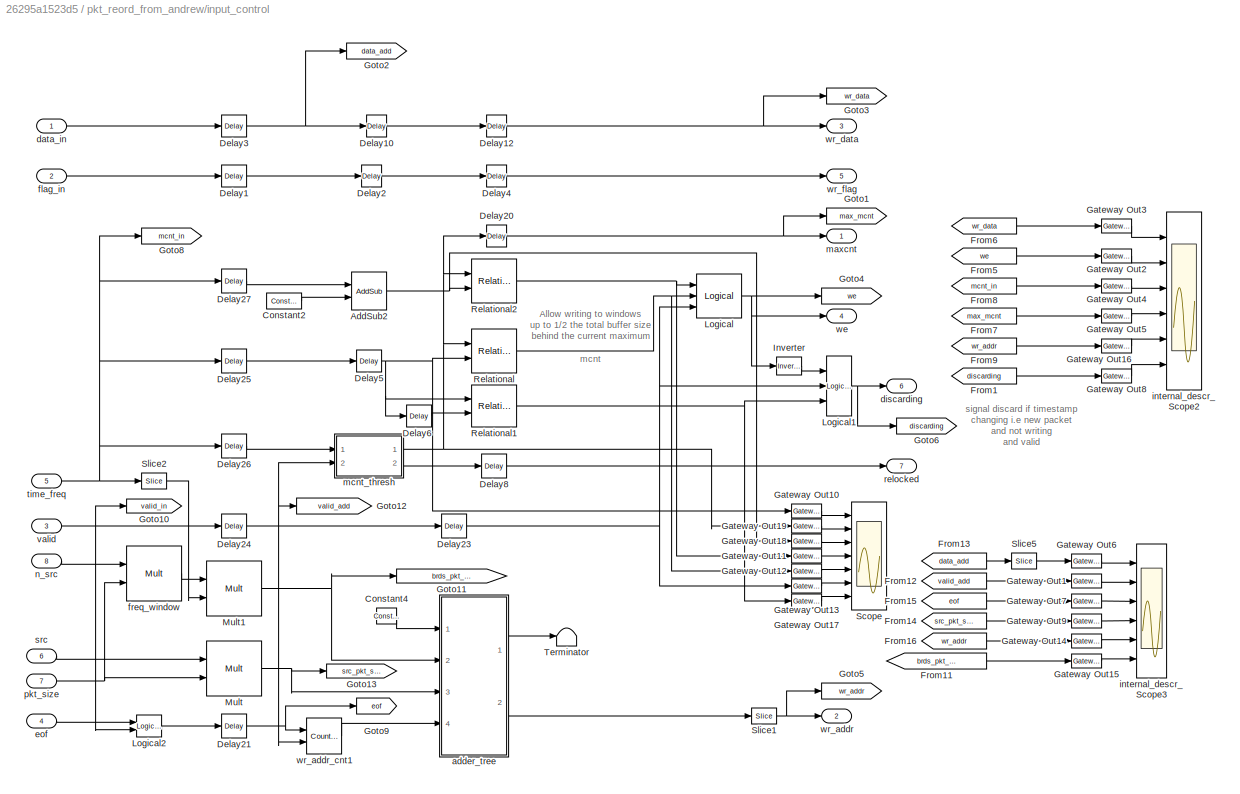
BLOCK [SubSystem] pkt_reord_from_andrew/input_control
  FunctionWithSeparateData = off
  MaskHideContents = off
  MinAlgLoopOccurrences = off
  Opaque = off
  Ports = [8, 7]
  PropExecContextOutsideSubsystem = off
  RTWSystemCode = Auto
  RequestExecContextInheritance = off
BLOCK [Reference] pkt_reord_from_andrew/input_control/AddSub2  REF=xbsIndex_r4/AddSub
  Ports = [2, 1]
  SourceBlock = xbsIndex_r4/AddSub
  SourceType = Xilinx Adder/Subtracter Block
  arith_type = Unsigned
  bin_pt = 0
  block_type = addsub
  block_version = 10.1.3
  dbl_ovrd = off
  en = off
  has_advanced_control = 0
  hw_selection = Fabric
  latency = 2
  mode = Addition
  n_bits = n_bits_timestamp+chan_bits-xeng_bits
  overflow = Wrap
  pipelined = off
  precision = User Defined
  quantization = Truncate
  sg_icon_stat = 35,38,2,1,white,blue,0,dcac4ee3,right,,[ ],[ ]
  sg_mask_display = fprintf('','COMMENT: begin icon graphics');\npatch([0 35 35 0 0 ],[0 0 38 38 0 ],[0.77 0.82 0.91 ]);\nplot([0 35 35 0 0 ],[0 0 38 38 0 ]);\npatch([5.875 13.1 18.1 23.1 28.1 18.1 10.875 5.875 ],[24.55 24.55 29.55 24.55 29.55 29.55 29.55 24.55 ],[1 1 1 ]);\npatch([10.875 18.1 13.1 5.875 10.875 ],[19.55 19.55 24.55 24.55 19.55 ],[0.931 0.946 0.973 ]);\npatch([5.875 13.1 18.1 10.875 5.875 ],[14.55 14.55 19...<+521ch>
  sggui_pos = 1026,187,451,368
  use_behavioral_HDL = on
  use_carryin = off
  use_carryout = off
  use_rpm = on
  xl_area = [0, 0, 0, 0, 0, 0, 0]
  xl_use_area = off
BLOCK [Reference] pkt_reord_from_andrew/input_control/Constant2  REF=xbsIndex_r4/Constant
  Ports = [0, 1]
  SourceBlock = xbsIndex_r4/Constant
  SourceType = Xilinx Constant Block Block
  arith_type = Unsigned
  bin_pt = 0
  block_type = constant
  block_version = 10.1.3
  carry = CIN
  const = 2^(window_bits - 1)
  dbl_ovrd = off
  dsp48_infoedit = The use of this block for DSP48 instructions is deprecated.  Please use the Opmode block.
  equ = P=C
  exp_width = 8
  explicit_period = on
  frac_width = 24
  gui_display_data_type = Fixed-point
  has_advanced_control = 0
  inp1 = P
  inp2 = PCIN>>17
  n_bits = n_bits_timestamp+chan_bits-xeng_bits
  opr = +
  opselect = C
  period = 1
  preci_type = Single
  sg_icon_stat = 35,16,0,1,white,blue,0,7a8c02d8,right,,[ ],[ ]
  sggui_pos = 947,209,378,476
BLOCK [Reference] pkt_reord_from_andrew/input_control/Constant4  REF=xbsIndex_r4/Constant
  Ports = [0, 1]
  SourceBlock = xbsIndex_r4/Constant
  SourceType = Xilinx Constant Block Block
  arith_type = Boolean
  bin_pt = 14
  block_type = constant
  block_version = 11.4
  carry = CIN
  const = 0
  dbl_ovrd = off
  dsp48_infoedit = The use of this block for DSP48 instructions is deprecated.  Please use the Opmode block.
  equ = P=C
  exp_width = 8
  explicit_period = on
  frac_width = 24
  gui_display_data_type = Boolean
  has_advanced_control = 0
  inp1 = P
  inp2 = PCIN>>17
  n_bits = 16
  opr = +
  opselect = C
  period = 1
  preci_type = Single
  sg_icon_stat = 20,16,0,1,white,blue,0,bf4ddd8b,right,,[ ],[ ]
  sggui_pos = -1,-1,-1,-1
BLOCK [Reference] pkt_reord_from_andrew/input_control/Delay1  REF=xbsIndex_r4/Delay
  Ports = [1, 1]
  SourceBlock = xbsIndex_r4/Delay
  SourceType = Xilinx Delay Block
  block_type = delay
  block_version = 10.1.3
  dbl_ovrd = off
  en = off
  has_advanced_control = 0
  infoedit = Hardware notes: A delay line is a chain, each link of which is an SRL16 followed by a flip-flop.
  infoeditControl = Selection of Reset will increase slice count due to use of real FFs and instead of SRLs
  latency = 3
  reg_retiming = on
  rst = off
  sg_icon_stat = 25,22,1,1,white,blue,0,83e6bb61,right,,[ ],[ ]
  sg_mask_display = fprintf('','COMMENT: begin icon graphics');\npatch([0 25 25 0 0 ],[0 0 22 22 0 ],[0.77 0.82 0.91 ]);\nplot([0 25 25 0 0 ],[0 0 22 22 0 ]);\npatch([5.325 9.66 12.66 15.66 18.66 12.66 8.325 5.325 ],[14.33 14.33 17.33 14.33 17.33 17.33 17.33 14.33 ],[1 1 1 ]);\npatch([8.325 12.66 9.66 5.325 8.325 ],[11.33 11.33 14.33 14.33 11.33 ],[0.931 0.946 0.973 ]);\npatch([5.325 9.66 12.66 8.325 5.325 ],[8.33 8.33 11...<+306ch>  <repeated x4 — deduplicated; at blocks: Delay1, Delay3, Delay5, Delay6>
  sggui_pos = 1700,20,451,404
  xl_area = [0, 0, 0, 0, 0, 0, 0]
  xl_use_area = off
BLOCK [Reference] pkt_reord_from_andrew/input_control/Delay10  REF=xbsIndex_r4/Delay
  Ports = [1, 1]
  SourceBlock = xbsIndex_r4/Delay
  SourceType = Xilinx Delay Block
  block_type = delay
  block_version = 10.1.3
  dbl_ovrd = off
  en = off
  has_advanced_control = 0
  infoedit = Hardware notes: A delay line is a chain, each link of which is an SRL16 followed by a flip-flop.
  infoeditControl = Selection of Reset will increase slice count due to use of real FFs and instead of SRLs
  latency = 2
  reg_retiming = on
  rst = off
  sg_icon_stat = 20,22,1,1,white,blue,0,85ce9542,right,,[ ],[ ]
  sggui_pos = -1,-1,-1,-1
  xl_area = [0, 0, 0, 0, 0, 0, 0]
  xl_use_area = off
BLOCK [Reference] pkt_reord_from_andrew/input_control/Delay12  REF=xbsIndex_r4/Delay
  Ports = [1, 1]
  SourceBlock = xbsIndex_r4/Delay
  SourceType = Xilinx Delay Block
  block_type = delay
  block_version = 10.1.3
  dbl_ovrd = off
  en = off
  has_advanced_control = 0
  infoedit = Hardware notes: A delay line is a chain, each link of which is an SRL16 followed by a flip-flop.
  infoeditControl = Selection of Reset will increase slice count due to use of real FFs and instead of SRLs
  latency = 2
  reg_retiming = on
  rst = off
  sg_icon_stat = 20,22,1,1,white,blue,0,85ce9542,right,,[ ],[ ]
  sggui_pos = 1700,20,451,404
  xl_area = [0, 0, 0, 0, 0, 0, 0]
  xl_use_area = off
BLOCK [Reference] pkt_reord_from_andrew/input_control/Delay2  REF=xbsIndex_r4/Delay
  Ports = [1, 1]
  SourceBlock = xbsIndex_r4/Delay
  SourceType = Xilinx Delay Block
  block_type = delay
  block_version = 10.1.3
  dbl_ovrd = off
  en = off
  has_advanced_control = 0
  infoedit = Hardware notes: A delay line is a chain, each link of which is an SRL16 followed by a flip-flop.
  infoeditControl = Selection of Reset will increase slice count due to use of real FFs and instead of SRLs
  latency = 2
  reg_retiming = on
  rst = off
  sg_icon_stat = 20,22,1,1,white,blue,0,85ce9542,right,,[ ],[ ]
  sggui_pos = -1,-1,-1,-1
  xl_area = [0, 0, 0, 0, 0, 0, 0]
  xl_use_area = off
BLOCK [Reference] pkt_reord_from_andrew/input_control/Delay20  REF=xbsIndex_r4/Delay
  Ports = [1, 1]
  SourceBlock = xbsIndex_r4/Delay
  SourceType = Xilinx Delay Block
  block_type = delay
  block_version = 10.1.3
  dbl_ovrd = off
  en = off
  has_advanced_control = 0
  infoedit = Hardware notes: A delay line is a chain, each link of which is an SRL16 followed by a flip-flop.
  infoeditControl = Selection of Reset will increase slice count due to use of real FFs and instead of SRLs
  latency = 2
  reg_retiming = on
  rst = off
  sg_icon_stat = 20,22,1,1,white,blue,0,85ce9542,right,,[ ],[ ]
  sggui_pos = 1700,223,451,404
  xl_area = [0, 0, 0, 0, 0, 0, 0]
  xl_use_area = off
BLOCK [Reference] pkt_reord_from_andrew/input_control/Delay21  REF=xbsIndex_r4/Delay
  Ports = [1, 1]
  SourceBlock = xbsIndex_r4/Delay
  SourceType = Xilinx Delay Block
  block_type = delay
  block_version = 10.1.3
  dbl_ovrd = off
  en = off
  has_advanced_control = 0
  infoedit = Hardware notes: A delay line is a chain, each link of which is an SRL16 followed by a flip-flop.
  infoeditControl = Selection of Reset will increase slice count due to use of real FFs and instead of SRLs
  latency = 3
  reg_retiming = off
  rst = off
  sg_icon_stat = 25,24,1,1,white,blue,0,83e6bb61,right,,[ ],[ ]
  sggui_pos = 1700,20,451,404
  xl_area = [0, 0, 0, 0, 0, 0, 0]
  xl_use_area = off
BLOCK [Reference] pkt_reord_from_andrew/input_control/Delay23  REF=xbsIndex_r4/Delay
  Ports = [1, 1]
  SourceBlock = xbsIndex_r4/Delay
  SourceType = Xilinx Delay Block
  block_type = delay
  block_version = 10.1.3
  dbl_ovrd = off
  en = off
  has_advanced_control = 0
  infoedit = Hardware notes: A delay line is a chain, each link of which is an SRL16 followed by a flip-flop.
  infoeditControl = Selection of Reset will increase slice count due to use of real FFs and instead of SRLs
  latency = 4
  reg_retiming = off
  rst = off
  sg_icon_stat = 25,24,1,1,white,blue,0,d390c2d8,right,,[ ],[ ]
  sggui_pos = 1700,20,451,404
  xl_area = [0, 0, 0, 0, 0, 0, 0]
  xl_use_area = off
BLOCK [Reference] pkt_reord_from_andrew/input_control/Delay24  REF=xbsIndex_r4/Delay
  Ports = [1, 1]
  SourceBlock = xbsIndex_r4/Delay
  SourceType = Xilinx Delay Block
  block_type = delay
  block_version = 10.1.3
  dbl_ovrd = off
  en = off
  has_advanced_control = 0
  infoedit = Hardware notes: A delay line is a chain, each link of which is an SRL16 followed by a flip-flop.
  infoeditControl = Selection of Reset will increase slice count due to use of real FFs and instead of SRLs
  latency = 3
  reg_retiming = off
  rst = off
  sg_icon_stat = 25,24,1,1,white,blue,0,83e6bb61,right,,[ ],[ ]
  sggui_pos = 1700,20,451,404
  xl_area = [0, 0, 0, 0, 0, 0, 0]
  xl_use_area = off
BLOCK [Reference] pkt_reord_from_andrew/input_control/Delay25  REF=xbsIndex_r4/Delay
  Ports = [1, 1]
  SourceBlock = xbsIndex_r4/Delay
  SourceType = Xilinx Delay Block
  block_type = delay
  block_version = 10.1.3
  dbl_ovrd = off
  en = off
  has_advanced_control = 0
  infoedit = Hardware notes: A delay line is a chain, each link of which is an SRL16 followed by a flip-flop.
  infoeditControl = Selection of Reset will increase slice count due to use of real FFs and instead of SRLs
  latency = 3
  reg_retiming = off
  rst = off
  sg_icon_stat = 25,24,1,1,white,blue,0,83e6bb61,right,,[ ],[ ]
  sggui_pos = 1700,20,451,404
  xl_area = [0, 0, 0, 0, 0, 0, 0]
  xl_use_area = off
BLOCK [Reference] pkt_reord_from_andrew/input_control/Delay26  REF=xbsIndex_r4/Delay
  Ports = [1, 1]
  SourceBlock = xbsIndex_r4/Delay
  SourceType = Xilinx Delay Block
  block_type = delay
  block_version = 10.1.3
  dbl_ovrd = off
  en = off
  has_advanced_control = 0
  infoedit = Hardware notes: A delay line is a chain, each link of which is an SRL16 followed by a flip-flop.
  infoeditControl = Selection of Reset will increase slice count due to use of real FFs and instead of SRLs
  latency = 3
  reg_retiming = off
  rst = off
  sg_icon_stat = 25,24,1,1,white,blue,0,83e6bb61,right,,[ ],[ ]
  sggui_pos = 1700,20,451,404
  xl_area = [0, 0, 0, 0, 0, 0, 0]
  xl_use_area = off
BLOCK [Reference] pkt_reord_from_andrew/input_control/Delay27  REF=xbsIndex_r4/Delay
  Ports = [1, 1]
  SourceBlock = xbsIndex_r4/Delay
  SourceType = Xilinx Delay Block
  block_type = delay
  block_version = 10.1.3
  dbl_ovrd = off
  en = off
  has_advanced_control = 0
  infoedit = Hardware notes: A delay line is a chain, each link of which is an SRL16 followed by a flip-flop.
  infoeditControl = Selection of Reset will increase slice count due to use of real FFs and instead of SRLs
  latency = 3
  reg_retiming = off
  rst = off
  sg_icon_stat = 25,24,1,1,white,blue,0,83e6bb61,right,,[ ],[ ]
  sggui_pos = 1700,20,451,404
  xl_area = [0, 0, 0, 0, 0, 0, 0]
  xl_use_area = off
BLOCK [Reference] pkt_reord_from_andrew/input_control/Delay3  REF=xbsIndex_r4/Delay
  Ports = [1, 1]
  SourceBlock = xbsIndex_r4/Delay
  SourceType = Xilinx Delay Block
  block_type = delay
  block_version = 10.1.3
  dbl_ovrd = off
  en = off
  has_advanced_control = 0
  infoedit = Hardware notes: A delay line is a chain, each link of which is an SRL16 followed by a flip-flop.
  infoeditControl = Selection of Reset will increase slice count due to use of real FFs and instead of SRLs
  latency = 3
  reg_retiming = on
  rst = off
  sg_icon_stat = 25,22,1,1,white,blue,0,83e6bb61,right,,[ ],[ ]
  sggui_pos = 1700,20,451,404
  xl_area = [0, 0, 0, 0, 0, 0, 0]
  xl_use_area = off
BLOCK [Reference] pkt_reord_from_andrew/input_control/Delay4  REF=xbsIndex_r4/Delay
  Ports = [1, 1]
  SourceBlock = xbsIndex_r4/Delay
  SourceType = Xilinx Delay Block
  block_type = delay
  block_version = 10.1.3
  dbl_ovrd = off
  en = off
  has_advanced_control = 0
  infoedit = Hardware notes: A delay line is a chain, each link of which is an SRL16 followed by a flip-flop.
  infoeditControl = Selection of Reset will increase slice count due to use of real FFs and instead of SRLs
  latency = 2
  reg_retiming = on
  rst = off
  sg_icon_stat = 20,22,1,1,white,blue,0,85ce9542,right,,[ ],[ ]
  sggui_pos = 1700,20,451,404
  xl_area = [0, 0, 0, 0, 0, 0, 0]
  xl_use_area = off
BLOCK [Reference] pkt_reord_from_andrew/input_control/Delay5  REF=xbsIndex_r4/Delay
  Ports = [1, 1]
  SourceBlock = xbsIndex_r4/Delay
  SourceType = Xilinx Delay Block
  block_type = delay
  block_version = 10.1.3
  dbl_ovrd = off
  en = off
  has_advanced_control = 0
  infoedit = Hardware notes: A delay line is a chain, each link of which is an SRL16 followed by a flip-flop.
  infoeditControl = Selection of Reset will increase slice count due to use of real FFs and instead of SRLs
  latency = 2
  reg_retiming = on
  rst = off
  sg_icon_stat = 25,22,1,1,white,blue,0,85ce9542,right,,[ ],[ ]
  sggui_pos = -1,-1,-1,-1
  xl_area = [0, 0, 0, 0, 0, 0, 0]
  xl_use_area = off
BLOCK [Reference] pkt_reord_from_andrew/input_control/Delay6  REF=xbsIndex_r4/Delay
  Ports = [1, 1]
  SourceBlock = xbsIndex_r4/Delay
  SourceType = Xilinx Delay Block
  block_type = delay
  block_version = 10.1.3
  dbl_ovrd = off
  en = off
  has_advanced_control = 0
  infoedit = Hardware notes: A delay line is a chain, each link of which is an SRL16 followed by a flip-flop.
  infoeditControl = Selection of Reset will increase slice count due to use of real FFs and instead of SRLs
  latency = 1
  reg_retiming = on
  rst = off
  sg_icon_stat = 25,22,1,1,white,blue,0,07b98262,right,,[ ],[ ]
  sggui_pos = 20,20,420,360
  xl_area = [0, 0, 0, 0, 0, 0, 0]
  xl_use_area = off
BLOCK [Reference] pkt_reord_from_andrew/input_control/Delay8  REF=xbsIndex_r4/Delay
  Ports = [1, 1]
  SourceBlock = xbsIndex_r4/Delay
  SourceType = Xilinx Delay Block
  block_type = delay
  block_version = 10.1.3
  dbl_ovrd = off
  en = off
  has_advanced_control = 0
  infoedit = Hardware notes: A delay line is a chain, each link of which is an SRL16 followed by a flip-flop.
  infoeditControl = Selection of Reset will increase slice count due to use of real FFs and instead of SRLs
  latency = 2
  reg_retiming = off
  rst = off
  sg_icon_stat = 25,24,1,1,white,blue,0,85ce9542,right,,[ ],[ ]
  sggui_pos = 1223,20,451,404
  xl_area = [0, 0, 0, 0, 0, 0, 0]
  xl_use_area = off
BLOCK [From] pkt_reord_from_andrew/input_control/From1
  CloseFcn = tagdialog Close
  GotoTag = discarding
BLOCK [From] pkt_reord_from_andrew/input_control/From11
  CloseFcn = tagdialog Close
  GotoTag = brds_pkt_size_time
BLOCK [From] pkt_reord_from_andrew/input_control/From12
  CloseFcn = tagdialog Close
  GotoTag = valid_add
BLOCK [From] pkt_reord_from_andrew/input_control/From13
  CloseFcn = tagdialog Close
  GotoTag = data_add
BLOCK [From] pkt_reord_from_andrew/input_control/From14
  CloseFcn = tagdialog Close
  GotoTag = src_pkt_size
BLOCK [From] pkt_reord_from_andrew/input_control/From15
  CloseFcn = tagdialog Close
  GotoTag = eof
BLOCK [From] pkt_reord_from_andrew/input_control/From16
  CloseFcn = tagdialog Close
  GotoTag = wr_addr
BLOCK [From] pkt_reord_from_andrew/input_control/From5
  CloseFcn = tagdialog Close
  GotoTag = we
BLOCK [From] pkt_reord_from_andrew/input_control/From6
  CloseFcn = tagdialog Close
  GotoTag = wr_data
BLOCK [From] pkt_reord_from_andrew/input_control/From7
  CloseFcn = tagdialog Close
  GotoTag = max_mcnt
BLOCK [From] pkt_reord_from_andrew/input_control/From8
  CloseFcn = tagdialog Close
  GotoTag = mcnt_in
BLOCK [From] pkt_reord_from_andrew/input_control/From9
  CloseFcn = tagdialog Close
  GotoTag = wr_addr
BLOCK [Reference] pkt_reord_from_andrew/input_control/Gateway Out1  REF=xbsIndex_r4/Gateway Out
  DACChannel = '1'
  LOCs = {}
  Ports = [1, 1]
  SourceBlock = xbsIndex_r4/Gateway Out
  SourceType = Xilinx Gateway Out Block
  UseAsDAC = off
  block_type = gatewayout
  block_version = 10.1.3
  has_advanced_control = 0
  hdl_port = off
  inherit_from_input = off
  locs_specified = off
  sg_icon_stat = 30,14,1,1,white,grey,1,632ec840,right,,[ ],[ ]
  sggui_pos = -1,-1,-1,-1
  timing_constraint = None
  xl_area = [0, 0, 0, 0, 0, 0, 0]
  xl_use_area = off
BLOCK [Reference] pkt_reord_from_andrew/input_control/Gateway Out10  REF=xbsIndex_r4/Gateway Out
  DACChannel = '1'
  LOCs = {}
  Ports = [1, 1]
  SourceBlock = xbsIndex_r4/Gateway Out
  SourceType = Xilinx Gateway Out Block
  UseAsDAC = off
  block_type = gatewayout
  block_version = 10.1.3
  has_advanced_control = 0
  hdl_port = off
  inherit_from_input = off
  locs_specified = off
  sg_icon_stat = 30,14,1,1,white,grey,1,632ec840,right,,[ ],[ ]
  sggui_pos = -1,-1,-1,-1
  timing_constraint = None
  xl_area = [0, 0, 0, 0, 0, 0, 0]
  xl_use_area = off
BLOCK [Reference] pkt_reord_from_andrew/input_control/Gateway Out11  REF=xbsIndex_r4/Gateway Out
  DACChannel = '1'
  LOCs = {}
  Ports = [1, 1]
  SourceBlock = xbsIndex_r4/Gateway Out
  SourceType = Xilinx Gateway Out Block
  UseAsDAC = off
  block_type = gatewayout
  block_version = 10.1.3
  has_advanced_control = 0
  hdl_port = off
  inherit_from_input = off
  locs_specified = off
  sg_icon_stat = 30,14,1,1,white,grey,1,632ec840,right,,[ ],[ ]
  sggui_pos = -1,-1,-1,-1
  timing_constraint = None
  xl_area = [0, 0, 0, 0, 0, 0, 0]
  xl_use_area = off
BLOCK [Reference] pkt_reord_from_andrew/input_control/Gateway Out12  REF=xbsIndex_r4/Gateway Out
  DACChannel = '1'
  LOCs = {}
  Ports = [1, 1]
  SourceBlock = xbsIndex_r4/Gateway Out
  SourceType = Xilinx Gateway Out Block
  UseAsDAC = off
  block_type = gatewayout
  block_version = 10.1.3
  has_advanced_control = 0
  hdl_port = off
  inherit_from_input = off
  locs_specified = off
  sg_icon_stat = 30,14,1,1,white,grey,1,632ec840,right,,[ ],[ ]
  sggui_pos = -1,-1,-1,-1
  timing_constraint = None
  xl_area = [0, 0, 0, 0, 0, 0, 0]
  xl_use_area = off
BLOCK [Reference] pkt_reord_from_andrew/input_control/Gateway Out13  REF=xbsIndex_r4/Gateway Out
  DACChannel = '1'
  LOCs = {}
  Ports = [1, 1]
  SourceBlock = xbsIndex_r4/Gateway Out
  SourceType = Xilinx Gateway Out Block
  UseAsDAC = off
  block_type = gatewayout
  block_version = 10.1.3
  has_advanced_control = 0
  hdl_port = off
  inherit_from_input = off
  locs_specified = off
  sg_icon_stat = 30,14,1,1,white,grey,1,632ec840,right,,[ ],[ ]
  sggui_pos = -1,-1,-1,-1
  timing_constraint = None
  xl_area = [0, 0, 0, 0, 0, 0, 0]
  xl_use_area = off
BLOCK [Reference] pkt_reord_from_andrew/input_control/Gateway Out14  REF=xbsIndex_r4/Gateway Out
  DACChannel = '1'
  LOCs = {}
  Ports = [1, 1]
  SourceBlock = xbsIndex_r4/Gateway Out
  SourceType = Xilinx Gateway Out Block
  UseAsDAC = off
  block_type = gatewayout
  block_version = 10.1.3
  has_advanced_control = 0
  hdl_port = off
  inherit_from_input = off
  locs_specified = off
  sg_icon_stat = 30,14,1,1,white,grey,1,632ec840,right,,[ ],[ ]
  sggui_pos = -1,-1,-1,-1
  timing_constraint = None
  xl_area = [0, 0, 0, 0, 0, 0, 0]
  xl_use_area = off
BLOCK [Reference] pkt_reord_from_andrew/input_control/Gateway Out15  REF=xbsIndex_r4/Gateway Out
  DACChannel = '1'
  LOCs = {}
  Ports = [1, 1]
  SourceBlock = xbsIndex_r4/Gateway Out
  SourceType = Xilinx Gateway Out Block
  UseAsDAC = off
  block_type = gatewayout
  block_version = 10.1.3
  has_advanced_control = 0
  hdl_port = off
  inherit_from_input = off
  locs_specified = off
  sg_icon_stat = 30,14,1,1,white,grey,1,632ec840,right,,[ ],[ ]
  sggui_pos = -1,-1,-1,-1
  timing_constraint = None
  xl_area = [0, 0, 0, 0, 0, 0, 0]
  xl_use_area = off
BLOCK [Reference] pkt_reord_from_andrew/input_control/Gateway Out16  REF=xbsIndex_r4/Gateway Out
  DACChannel = '1'
  LOCs = {}
  Ports = [1, 1]
  SourceBlock = xbsIndex_r4/Gateway Out
  SourceType = Xilinx Gateway Out Block
  UseAsDAC = off
  block_type = gatewayout
  block_version = 10.1.3
  has_advanced_control = 0
  hdl_port = off
  inherit_from_input = off
  locs_specified = off
  sg_icon_stat = 30,14,1,1,white,grey,1,632ec840,right,,[ ],[ ]
  sggui_pos = -1,-1,-1,-1
  timing_constraint = None
  xl_area = [0, 0, 0, 0, 0, 0, 0]
  xl_use_area = off
BLOCK [Reference] pkt_reord_from_andrew/input_control/Gateway Out17  REF=xbsIndex_r4/Gateway Out
  DACChannel = '1'
  LOCs = {}
  Ports = [1, 1]
  SourceBlock = xbsIndex_r4/Gateway Out
  SourceType = Xilinx Gateway Out Block
  UseAsDAC = off
  block_type = gatewayout
  block_version = 10.1.3
  has_advanced_control = 0
  hdl_port = off
  inherit_from_input = off
  locs_specified = off
  sg_icon_stat = 30,14,1,1,white,grey,1,632ec840,right,,[ ],[ ]
  sggui_pos = -1,-1,-1,-1
  timing_constraint = None
  xl_area = [0, 0, 0, 0, 0, 0, 0]
  xl_use_area = off
BLOCK [Reference] pkt_reord_from_andrew/input_control/Gateway Out18  REF=xbsIndex_r4/Gateway Out
  DACChannel = '1'
  LOCs = {}
  Ports = [1, 1]
  SourceBlock = xbsIndex_r4/Gateway Out
  SourceType = Xilinx Gateway Out Block
  UseAsDAC = off
  block_type = gatewayout
  block_version = 10.1.3
  has_advanced_control = 0
  hdl_port = off
  inherit_from_input = off
  locs_specified = off
  sg_icon_stat = 30,14,1,1,white,grey,1,632ec840,right,,[ ],[ ]
  sggui_pos = -1,-1,-1,-1
  timing_constraint = None
  xl_area = [0, 0, 0, 0, 0, 0, 0]
  xl_use_area = off
BLOCK [Reference] pkt_reord_from_andrew/input_control/Gateway Out19  REF=xbsIndex_r4/Gateway Out
  DACChannel = '1'
  LOCs = {}
  Ports = [1, 1]
  SourceBlock = xbsIndex_r4/Gateway Out
  SourceType = Xilinx Gateway Out Block
  UseAsDAC = off
  block_type = gatewayout
  block_version = 10.1.3
  has_advanced_control = 0
  hdl_port = off
  inherit_from_input = off
  locs_specified = off
  sg_icon_stat = 30,14,1,1,white,grey,1,632ec840,right,,[ ],[ ]
  sggui_pos = -1,-1,-1,-1
  timing_constraint = None
  xl_area = [0, 0, 0, 0, 0, 0, 0]
  xl_use_area = off
BLOCK [Reference] pkt_reord_from_andrew/input_control/Gateway Out2  REF=xbsIndex_r4/Gateway Out
  DACChannel = '1'
  LOCs = {}
  Ports = [1, 1]
  SourceBlock = xbsIndex_r4/Gateway Out
  SourceType = Xilinx Gateway Out Block
  UseAsDAC = off
  block_type = gatewayout
  block_version = 10.1.3
  has_advanced_control = 0
  hdl_port = off
  inherit_from_input = off
  locs_specified = off
  sg_icon_stat = 30,14,1,1,white,grey,1,632ec840,right,,[ ],[ ]
  sggui_pos = -1,-1,-1,-1
  timing_constraint = None
  xl_area = [0, 0, 0, 0, 0, 0, 0]
  xl_use_area = off
BLOCK [Reference] pkt_reord_from_andrew/input_control/Gateway Out3  REF=xbsIndex_r4/Gateway Out
  DACChannel = '1'
  LOCs = {}
  Ports = [1, 1]
  SourceBlock = xbsIndex_r4/Gateway Out
  SourceType = Xilinx Gateway Out Block
  UseAsDAC = off
  block_type = gatewayout
  block_version = 10.1.3
  has_advanced_control = 0
  hdl_port = off
  inherit_from_input = off
  locs_specified = off
  sg_icon_stat = 30,14,1,1,white,grey,1,632ec840,right,,[ ],[ ]
  sggui_pos = -1,-1,-1,-1
  timing_constraint = None
  xl_area = [0, 0, 0, 0, 0, 0, 0]
  xl_use_area = off
BLOCK [Reference] pkt_reord_from_andrew/input_control/Gateway Out4  REF=xbsIndex_r4/Gateway Out
  DACChannel = '1'
  LOCs = {}
  Ports = [1, 1]
  SourceBlock = xbsIndex_r4/Gateway Out
  SourceType = Xilinx Gateway Out Block
  UseAsDAC = off
  block_type = gatewayout
  block_version = 10.1.3
  has_advanced_control = 0
  hdl_port = off
  inherit_from_input = off
  locs_specified = off
  sg_icon_stat = 30,14,1,1,white,grey,1,632ec840,right,,[ ],[ ]
  sggui_pos = -1,-1,-1,-1
  timing_constraint = None
  xl_area = [0, 0, 0, 0, 0, 0, 0]
  xl_use_area = off
BLOCK [Reference] pkt_reord_from_andrew/input_control/Gateway Out5  REF=xbsIndex_r4/Gateway Out
  DACChannel = '1'
  LOCs = {}
  Ports = [1, 1]
  SourceBlock = xbsIndex_r4/Gateway Out
  SourceType = Xilinx Gateway Out Block
  UseAsDAC = off
  block_type = gatewayout
  block_version = 10.1.3
  has_advanced_control = 0
  hdl_port = off
  inherit_from_input = off
  locs_specified = off
  sg_icon_stat = 30,14,1,1,white,grey,1,632ec840,right,,[ ],[ ]
  sggui_pos = -1,-1,-1,-1
  timing_constraint = None
  xl_area = [0, 0, 0, 0, 0, 0, 0]
  xl_use_area = off
BLOCK [Reference] pkt_reord_from_andrew/input_control/Gateway Out6  REF=xbsIndex_r4/Gateway Out
  DACChannel = '1'
  LOCs = {}
  Ports = [1, 1]
  SourceBlock = xbsIndex_r4/Gateway Out
  SourceType = Xilinx Gateway Out Block
  UseAsDAC = off
  block_type = gatewayout
  block_version = 10.1.3
  has_advanced_control = 0
  hdl_port = off
  inherit_from_input = off
  locs_specified = off
  sg_icon_stat = 30,14,1,1,white,grey,1,632ec840,right,,[ ],[ ]
  sggui_pos = -1,-1,-1,-1
  timing_constraint = None
  xl_area = [0, 0, 0, 0, 0, 0, 0]
  xl_use_area = off
BLOCK [Reference] pkt_reord_from_andrew/input_control/Gateway Out7  REF=xbsIndex_r4/Gateway Out
  DACChannel = '1'
  LOCs = {}
  Ports = [1, 1]
  SourceBlock = xbsIndex_r4/Gateway Out
  SourceType = Xilinx Gateway Out Block
  UseAsDAC = off
  block_type = gatewayout
  block_version = 10.1.3
  has_advanced_control = 0
  hdl_port = off
  inherit_from_input = off
  locs_specified = off
  sg_icon_stat = 30,14,1,1,white,grey,1,632ec840,right,,[ ],[ ]
  sggui_pos = -1,-1,-1,-1
  timing_constraint = None
  xl_area = [0, 0, 0, 0, 0, 0, 0]
  xl_use_area = off
BLOCK [Reference] pkt_reord_from_andrew/input_control/Gateway Out8  REF=xbsIndex_r4/Gateway Out
  DACChannel = '1'
  LOCs = {}
  Ports = [1, 1]
  SourceBlock = xbsIndex_r4/Gateway Out
  SourceType = Xilinx Gateway Out Block
  UseAsDAC = off
  block_type = gatewayout
  block_version = 10.1.3
  has_advanced_control = 0
  hdl_port = off
  inherit_from_input = off
  locs_specified = off
  sg_icon_stat = 30,14,1,1,white,grey,1,632ec840,right,,[ ],[ ]
  sggui_pos = -1,-1,-1,-1
  timing_constraint = None
  xl_area = [0, 0, 0, 0, 0, 0, 0]
  xl_use_area = off
BLOCK [Reference] pkt_reord_from_andrew/input_control/Gateway Out9  REF=xbsIndex_r4/Gateway Out
  DACChannel = '1'
  LOCs = {}
  Ports = [1, 1]
  SourceBlock = xbsIndex_r4/Gateway Out
  SourceType = Xilinx Gateway Out Block
  UseAsDAC = off
  block_type = gatewayout
  block_version = 10.1.3
  has_advanced_control = 0
  hdl_port = off
  inherit_from_input = off
  locs_specified = off
  sg_icon_stat = 30,14,1,1,white,grey,1,632ec840,right,,[ ],[ ]
  sggui_pos = -1,-1,-1,-1
  timing_constraint = None
  xl_area = [0, 0, 0, 0, 0, 0, 0]
  xl_use_area = off
BLOCK [Goto] pkt_reord_from_andrew/input_control/Goto1
  GotoTag = max_mcnt
BLOCK [Goto] pkt_reord_from_andrew/input_control/Goto10
  GotoTag = valid_in
BLOCK [Goto] pkt_reord_from_andrew/input_control/Goto11
  GotoTag = brds_pkt_size_time
BLOCK [Goto] pkt_reord_from_andrew/input_control/Goto12
  GotoTag = valid_add
BLOCK [Goto] pkt_reord_from_andrew/input_control/Goto13
  GotoTag = src_pkt_size
BLOCK [Goto] pkt_reord_from_andrew/input_control/Goto2
  GotoTag = data_add
BLOCK [Goto] pkt_reord_from_andrew/input_control/Goto3
  GotoTag = wr_data
BLOCK [Goto] pkt_reord_from_andrew/input_control/Goto4
  GotoTag = we
BLOCK [Goto] pkt_reord_from_andrew/input_control/Goto5
  GotoTag = wr_addr
BLOCK [Goto] pkt_reord_from_andrew/input_control/Goto6
  GotoTag = discarding
BLOCK [Goto] pkt_reord_from_andrew/input_control/Goto8
  GotoTag = mcnt_in
BLOCK [Goto] pkt_reord_from_andrew/input_control/Goto9
  GotoTag = eof
BLOCK [Reference] pkt_reord_from_andrew/input_control/Inverter  REF=xbsIndex_r4/Inverter
  Ports = [1, 1]
  SourceBlock = xbsIndex_r4/Inverter
  SourceType = Xilinx Inverter Block
  block_type = inv
  dbl_ovrd = off
  en = off
  has_advanced_control = 0
  infoedit = Bitwise logical negation (one's complement) operator.
  latency = 0
  sg_icon_stat = 25,18,1,1,white,blue,0,267846e5,right,,[ ],[ ]
  sggui_pos = -1,-1,-1,-1
  xl_area = [0,0,0,0,0,0,0]
  xl_use_area = off
BLOCK [Reference] pkt_reord_from_andrew/input_control/Logical  REF=xbsIndex_r4/Logical
  Ports = [3, 1]
  SourceBlock = xbsIndex_r4/Logical
  SourceType = Xilinx Logical Block Block
  align_bp = on
  arith_type = Unsigned
  bin_pt = 2
  block_type = logical
  block_version = 10.1.3
  dbl_ovrd = off
  en = off
  has_advanced_control = 0
  inputs = 3
  latency = 0
  logical_function = AND
  n_bits = 8
  precision = Full
  sg_icon_stat = 45,44,3,1,white,blue,0,98d76266,right,,[ ],[ ]
  sggui_pos = -1,-1,-1,-1
  xl_area = [0, 0, 0, 0, 0, 0, 0]
  xl_use_area = off
BLOCK [Reference] pkt_reord_from_andrew/input_control/Logical1  REF=xbsIndex_r4/Logical
  Ports = [3, 1]
  SourceBlock = xbsIndex_r4/Logical
  SourceType = Xilinx Logical Block Block
  align_bp = on
  arith_type = Unsigned
  bin_pt = 2
  block_type = logical
  block_version = 10.1.3
  dbl_ovrd = off
  en = off
  has_advanced_control = 0
  inputs = 3
  latency = 0
  logical_function = AND
  n_bits = 8
  precision = Full
  sg_icon_stat = 25,60,3,1,white,blue,0,98d76266,right,,[ ],[ ]
  sg_mask_display = fprintf('','COMMENT: begin icon graphics');\npatch([0 25 25 0 0 ],[0 0 60 60 0 ],[0.77 0.82 0.91 ]);\nplot([0 25 25 0 0 ],[0 0 60 60 0 ]);\npatch([5.325 9.66 12.66 15.66 18.66 12.66 8.325 5.325 ],[33.33 33.33 36.33 33.33 36.33 36.33 36.33 33.33 ],[1 1 1 ]);\npatch([8.325 12.66 9.66 5.325 8.325 ],[30.33 30.33 33.33 33.33 30.33 ],[0.931 0.946 0.973 ]);\npatch([5.325 9.66 12.66 8.325 5.325 ],[27.33 27.33 ...<+300ch>
  sggui_pos = 20,20,420,288
  xl_area = [0, 0, 0, 0, 0, 0, 0]
  xl_use_area = off
BLOCK [Reference] pkt_reord_from_andrew/input_control/Logical2  REF=xbsIndex_r4/Logical
  Ports = [2, 1]
  SourceBlock = xbsIndex_r4/Logical
  SourceType = Xilinx Logical Block Block
  align_bp = on
  arith_type = Unsigned
  bin_pt = 2
  block_type = logical
  block_version = 10.1.3
  dbl_ovrd = off
  en = off
  has_advanced_control = 0
  inputs = 2
  latency = 0
  logical_function = AND
  n_bits = 8
  precision = Full
  sg_icon_stat = 25,22,2,1,white,blue,0,83a4b621,right,,[ ],[ ]
  sggui_pos = -1,-1,-1,-1
  xl_area = [0, 0, 0, 0, 0, 0, 0]
  xl_use_area = off
BLOCK [Reference] pkt_reord_from_andrew/input_control/Mult  REF=xbsIndex_r4/Mult
  Ports = [2, 1]
  SourceBlock = xbsIndex_r4/Mult
  SourceType = Xilinx Multiplier Block
  arith_type = Unsigned
  bin_pt = 0
  block_type = mult
  dbl_ovrd = off
  en = off
  has_advanced_control = 0
  latency = 3
  n_bits = buf_bits
  opt = Speed
  optimum_pipeline = off
  overflow = Wrap
  pipeline = on
  placement_style = Triangular
  precision = Full
  quantization = Truncate
  sg_icon_stat = 55,55,2,1,white,blue,0,7028354c,right,,[ ],[ ]
  sggui_pos = 858,160,451,673
  use_behavioral_HDL = on
  use_embedded = on
  use_rpm = on
  xl_area = [0,0,0,0,0,0,0]
  xl_use_area = off
BLOCK [Reference] pkt_reord_from_andrew/input_control/Mult1  REF=xbsIndex_r4/Mult
  Ports = [2, 1]
  SourceBlock = xbsIndex_r4/Mult
  SourceType = Xilinx Multiplier Block
  arith_type = Unsigned
  bin_pt = 0
  block_type = mult
  dbl_ovrd = off
  en = off
  has_advanced_control = 0
  latency = 3
  n_bits = buf_bits
  opt = Speed
  optimum_pipeline = off
  overflow = Wrap
  pipeline = on
  placement_style = Triangular
  precision = Full
  quantization = Truncate
  sg_icon_stat = 55,55,2,1,white,blue,0,7028354c,right,,[ ],[ ]
  sggui_pos = 796,63,451,673
  use_behavioral_HDL = on
  use_embedded = on
  use_rpm = on
  xl_area = [0,0,0,0,0,0,0]
  xl_use_area = off
BLOCK [Reference] pkt_reord_from_andrew/input_control/Relational  REF=xbsIndex_r4/Relational
  Ports = [2, 1]
  SourceBlock = xbsIndex_r4/Relational
  SourceType = Xilinx Arithmetic Relational Operator Block
  block_type = relational
  block_version = 10.1.3
  dbl_ovrd = off
  en = off
  has_advanced_control = 0
  latency = 2
  mode = a>=b
  sg_icon_stat = 45,44,2,1,white,blue,0,eed17d07,right,,[ ],[ ]
  sggui_pos = 1223,223,451,210
  xl_area = [0, 0, 0, 0, 0, 0, 0]
  xl_use_area = off
BLOCK [Reference] pkt_reord_from_andrew/input_control/Relational1  REF=xbsIndex_r4/Relational
  Ports = [2, 1]
  SourceBlock = xbsIndex_r4/Relational
  SourceType = Xilinx Arithmetic Relational Operator Block
  block_type = relational
  dbl_ovrd = off
  en = off
  has_advanced_control = 0
  latency = 2
  mode = a!=b
  sg_icon_stat = 45,42,2,1,white,blue,0,d1c69060,right,,[ ],[ ]
  sg_mask_display = fprintf('','COMMENT: begin icon graphics');\npatch([0 45 45 0 0 ],[0 0 42 42 0 ],[0.77 0.82 0.91 ]);\nplot([0 45 45 0 0 ],[0 0 42 42 0 ]);\npatch([8.65 17.32 23.32 29.32 35.32 23.32 14.65 8.65 ],[27.66 27.66 33.66 27.66 33.66 33.66 33.66 27.66 ],[1 1 1 ]);\npatch([14.65 23.32 17.32 8.65 14.65 ],[21.66 21.66 27.66 27.66 21.66 ],[0.931 0.946 0.973 ]);\npatch([8.65 17.32 23.32 14.65 8.65 ],[15.66 15.66 21...<+498ch>
  sggui_pos = 20,20,420,202
  xl_area = [0,0,0,0,0,0,0]
  xl_use_area = off
BLOCK [Reference] pkt_reord_from_andrew/input_control/Relational2  REF=xbsIndex_r4/Relational
  Ports = [2, 1]
  SourceBlock = xbsIndex_r4/Relational
  SourceType = Xilinx Arithmetic Relational Operator Block
  block_type = relational
  block_version = 10.1.3
  dbl_ovrd = off
  en = off
  has_advanced_control = 0
  latency = 2
  mode = a<b
  sg_icon_stat = 45,44,2,1,white,blue,0,598afbea,right,,[ ],[ ]
  sggui_pos = 1223,223,451,210
  xl_area = [0, 0, 0, 0, 0, 0, 0]
  xl_use_area = off
BLOCK [Scope] pkt_reord_from_andrew/input_control/Scope
  DataFormat = StructureWithTime
  Floating = off
  LimitDataPoints = off
  NumInputPorts = 7
  Ports = [7]
  SampleTime = 0
  SaveName = ScopeData20
  ShowLegends = off
  TimeRange = 1400000
  YMax = 42~42~50~1~1~1~1
  YMin = 40~40~48~1~1~0~-1
  ZoomMode = yonly
BLOCK [Reference] pkt_reord_from_andrew/input_control/Slice1  REF=xbsIndex_r4/Slice
  Ports = [1, 1]
  SourceBlock = xbsIndex_r4/Slice
  SourceType = Xilinx Bit Slice Extractor Block
  base0 = LSB of Input
  base1 = MSB of Input
  bit0 = 0
  bit1 = 0
  block_type = slice
  block_version = 11.4
  boolean_output = off
  dbl_ovrd = off
  has_advanced_control = 0
  mode = Lower Bit Location + Width
  nbits = buf_bits
  sg_icon_stat = 25,16,1,1,white,blue,0,1fd851a7,right,,[ ],[ ]
  sggui_pos = 1080,230,594,505
BLOCK [Reference] pkt_reord_from_andrew/input_control/Slice2  REF=xbsIndex_r4/Slice
  Ports = [1, 1]
  SourceBlock = xbsIndex_r4/Slice
  SourceType = Xilinx Bit Slice Extractor Block
  base0 = LSB of Input
  base1 = MSB of Input
  bit0 = 0
  bit1 = 0
  block_type = slice
  block_version = 11.4
  boolean_output = off
  dbl_ovrd = off
  has_advanced_control = 0
  mode = Lower Bit Location + Width
  nbits = window_bits
  sg_icon_stat = 25,16,1,1,white,blue,0,1fd851a7,right,,[ ],[ ]
  sggui_pos = 759,98,594,505
BLOCK [Reference] pkt_reord_from_andrew/input_control/Slice5  REF=xbsIndex_r4/Slice
  Ports = [1, 1]
  SourceBlock = xbsIndex_r4/Slice
  SourceType = Xilinx Bit Slice Extractor Block
  base0 = LSB of Input
  base1 = MSB of Input
  bit0 = 0
  bit1 = 0
  block_type = slice
  block_version = 11.4
  boolean_output = off
  dbl_ovrd = off
  has_advanced_control = 0
  mode = Lower Bit Location + Width
  nbits = 8
  sg_icon_stat = 25,16,1,1,white,blue,0,1fd851a7,right,,[ ],[ ]
  sggui_pos = 2011,549,594,505
BLOCK [Terminator] pkt_reord_from_andrew/input_control/Terminator
BLOCK [SubSystem] pkt_reord_from_andrew/input_control/adder_tree
  AncestorBlock = casper_library_misc/adder_tree
  AttributesFormatString = latency 4
  FunctionWithSeparateData = off
  MaskHideContents = off
  MinAlgLoopOccurrences = off
  Opaque = off
  Ports = [4, 2]
  PropExecContextOutsideSubsystem = off
  RTWSystemCode = Auto
  RequestExecContextInheritance = off
  UserDataPersistent = on
BLOCK [Reference] pkt_reord_from_andrew/input_control/adder_tree/addr1  REF=xbsIndex_r4/AddSub
  Ports = [2, 1]
  SourceBlock = xbsIndex_r4/AddSub
  SourceType = Xilinx Adder/Subtracter Block
  arith_type = Unsigned
  bin_pt = 14
  block_type = addsub
  block_version = 11.4
  dbl_ovrd = off
  en = off
  has_advanced_control = 0
  hw_selection = Fabric
  latency = 2
  mode = Addition
  n_bits = 16
  overflow = Wrap
  pipelined = on
  precision = Full
  quantization = Truncate
  sg_icon_stat = 40,60,2,1,white,blue,0,dcac4ee3,right,,[ ],[ ]
  sggui_pos = 22,98,419,344
  use_behavioral_HDL = on
  use_carryin = off
  use_carryout = off
  use_rpm = on
  xl_area = [0,0,0,0,0,0,0]
  xl_use_area = off
BLOCK [Reference] pkt_reord_from_andrew/input_control/adder_tree/addr3  REF=xbsIndex_r4/AddSub
  Ports = [2, 1]
  SourceBlock = xbsIndex_r4/AddSub
  SourceType = Xilinx Adder/Subtracter Block
  arith_type = Unsigned
  bin_pt = 14
  block_type = addsub
  dbl_ovrd = off
  en = off
  has_advanced_control = 0
  hw_selection = Fabric
  latency = 2
  mode = Addition
  n_bits = 16
  overflow = Wrap
  pipelined = on
  precision = Full
  quantization = Truncate
  sg_icon_stat = 40,60,2,1,white,blue,0,dcac4ee3,right,,[ ],[ ]
  sggui_pos = -1,-1,-1,-1
  use_behavioral_HDL = off
  use_carryin = off
  use_carryout = off
  use_rpm = on
  xl_area = [0,0,0,0,0,0,0]
  xl_use_area = off
BLOCK [Inport] pkt_reord_from_andrew/input_control/adder_tree/din1
  IconDisplay = Port number
  Port = 2
BLOCK [Inport] pkt_reord_from_andrew/input_control/adder_tree/din2
  IconDisplay = Port number
  Port = 3
BLOCK [Inport] pkt_reord_from_andrew/input_control/adder_tree/din3
  IconDisplay = Port number
  Port = 4
BLOCK [Reference] pkt_reord_from_andrew/input_control/adder_tree/dly2  REF=xbsIndex_r4/Delay
  Ports = [1, 1]
  SourceBlock = xbsIndex_r4/Delay
  SourceType = Xilinx Delay Block
  block_type = delay
  dbl_ovrd = off
  en = off
  has_advanced_control = 0
  infoedit = Hardware notes: A delay line is a chain, each link of which is an SRL16 followed by a flip-flop.
  infoeditControl = Selection of Reset will increase slice count due to use of real FFs and instead of SRLs
  latency = 2
  reg_retiming = on
  rst = off
  sg_icon_stat = 40,60,1,1,white,blue,0,85ce9542,right,,[ ],[ ]
  sggui_pos = -1,-1,-1,-1
  xl_area = [0,0,0,0,0,0,0]
  xl_use_area = off
BLOCK [Outport] pkt_reord_from_andrew/input_control/adder_tree/dout
  IconDisplay = Port number
  Port = 2
BLOCK [Inport] pkt_reord_from_andrew/input_control/adder_tree/sync
  IconDisplay = Port number
BLOCK [Reference] pkt_reord_from_andrew/input_control/adder_tree/sync_delay  REF=xbsIndex_r4/Delay
  Ports = [1, 1]
  SourceBlock = xbsIndex_r4/Delay
  SourceType = Xilinx Delay Block
  block_type = delay
  block_version = 11.4
  dbl_ovrd = off
  en = off
  has_advanced_control = 0
  infoedit = Hardware notes: A delay line is a chain, each link of which is an SRL16 followed by a flip-flop.
  infoeditControl = Selection of Reset will increase slice count due to use of real FFs and instead of SRLs
  latency = 4
  reg_retiming = on
  rst = off
  sg_icon_stat = 30,30,1,1,white,blue,0,d390c2d8,right,,[ ],[ ]
  sggui_pos = 21,71,419,315
  xl_area = [0,0,0,0,0,0,0]
  xl_use_area = off
BLOCK [Outport] pkt_reord_from_andrew/input_control/adder_tree/sync_out
  IconDisplay = Port number
BLOCK [Inport] pkt_reord_from_andrew/input_control/data_in
  IconDisplay = Port number
BLOCK [Outport] pkt_reord_from_andrew/input_control/discarding
  IconDisplay = Port number
  Port = 6
BLOCK [Inport] pkt_reord_from_andrew/input_control/eof
  IconDisplay = Port number
  Port = 4
BLOCK [Inport] pkt_reord_from_andrew/input_control/flag_in
  IconDisplay = Port number
  Port = 2
BLOCK [Reference] pkt_reord_from_andrew/input_control/freq_window  REF=xbsIndex_r4/Mult
  Ports = [2, 1]
  SourceBlock = xbsIndex_r4/Mult
  SourceType = Xilinx Multiplier Block
  arith_type = Signed  (2's comp)
  bin_pt = 14
  block_type = mult
  dbl_ovrd = off
  en = off
  has_advanced_control = 0
  latency = 3
  n_bits = 16
  opt = Speed
  optimum_pipeline = off
  overflow = Wrap
  pipeline = on
  placement_style = Triangular
  precision = Full
  quantization = Truncate
  sg_icon_stat = 55,55,2,1,white,blue,0,7028354c,right,,[ ],[ ]
  sggui_pos = 976,36,451,673
  use_behavioral_HDL = on
  use_embedded = on
  use_rpm = on
  xl_area = [0,0,0,0,0,0,0]
  xl_use_area = off
BLOCK [Scope] pkt_reord_from_andrew/input_control/internal_descr_Scope2
  DataFormat = StructureWithTime
  Floating = off
  LimitDataPoints = off
  NumInputPorts = 6
  Ports = [6]
  SampleTime = 0
  SaveName = ScopeData7
  ShowLegends = off
  TimeRange = 1
  YMax = 2.47924e+21~1~10.5~10.5~92.4~5
  YMin = 2.24312e+21~-1~9.5~9.5~83.6~-5
  ZoomMode = yonly
BLOCK [Scope] pkt_reord_from_andrew/input_control/internal_descr_Scope3
  DataFormat = StructureWithTime
  Floating = off
  LimitDataPoints = off
  NumInputPorts = 6
  Ports = [6]
  SampleTime = 0
  SaveName = ScopeData8
  ShowLegends = off
  TimeRange = 1
  YMax = 4.2~1~4.2~4.2~168~5
  YMin = 3.8~-1~3.8~3.8~152~-5
  ZoomMode = xonly
BLOCK [Outport] pkt_reord_from_andrew/input_control/maxcnt
  IconDisplay = Port number
BLOCK [SubSystem] pkt_reord_from_andrew/input_control/mcnt_thresh
  FunctionWithSeparateData = off
  MaskHideContents = off
  MinAlgLoopOccurrences = off
  Opaque = off
  Ports = [2, 2]
  PropExecContextOutsideSubsystem = off
  RTWSystemCode = Auto
  RequestExecContextInheritance = off
BLOCK [Reference] pkt_reord_from_andrew/input_control/mcnt_thresh/AddSub  REF=xbsIndex_r4/AddSub
  Ports = [2, 1]
  SourceBlock = xbsIndex_r4/AddSub
  SourceType = Xilinx Adder/Subtracter Block
  arith_type = Signed  (2's comp)
  bin_pt = 0
  block_type = addsub
  dbl_ovrd = off
  en = off
  has_advanced_control = 0
  hw_selection = Fabric
  latency = 2
  mode = Addition
  n_bits = n_bits_timestamp + (chan_bits-xeng_bits)
  overflow = Wrap
  pipelined = off
  precision = User Defined
  quantization = Truncate
  sg_icon_stat = 40,40,2,1,white,blue,0,dcac4ee3,right,,[ ],[ ]
  sg_mask_display = fprintf('','COMMENT: begin icon graphics');\npatch([0 40 40 0 0 ],[0 0 40 40 0 ],[0.77 0.82 0.91 ]);\nplot([0 40 40 0 0 ],[0 0 40 40 0 ]);\npatch([8.875 16.1 21.1 26.1 31.1 21.1 13.875 8.875 ],[25.55 25.55 30.55 25.55 30.55 30.55 30.55 25.55 ],[1 1 1 ]);\npatch([13.875 21.1 16.1 8.875 13.875 ],[20.55 20.55 25.55 25.55 20.55 ],[0.931 0.946 0.973 ]);\npatch([8.875 16.1 21.1 13.875 8.875 ],[15.55 15.55 20...<+525ch>
  sggui_pos = 732,346,420,360
  use_behavioral_HDL = on
  use_carryin = off
  use_carryout = off
  xl_area = [0,0,0,0,0,0,0]
  xl_use_area = off
BLOCK [Reference] pkt_reord_from_andrew/input_control/mcnt_thresh/Constant1  REF=xbsIndex_r4/Constant
  Ports = [0, 1]
  SourceBlock = xbsIndex_r4/Constant
  SourceType = Xilinx Constant Block Block
  arith_type = Signed (2's comp)
  bin_pt = 0
  block_type = constant
  block_version = 10.1.3
  carry = CIN
  const = 2^(window_bits - 2)
  dbl_ovrd = off
  dsp48_infoedit = The use of this block for DSP48 instructions is deprecated.  Please use the Opmode block.
  equ = P=C
  exp_width = 8
  explicit_period = on
  frac_width = 24
  gui_display_data_type = Fixed-point
  has_advanced_control = 0
  inp1 = P
  inp2 = PCIN>>17
  n_bits = n_bits_timestamp + (chan_bits-xeng_bits)
  opr = +
  opselect = C
  period = 1
  preci_type = Single
  sg_icon_stat = 40,16,0,1,white,blue,0,85f36853,right,,[ ],[ ]
  sg_mask_display = fprintf('','COMMENT: begin icon graphics');\npatch([0 40 40 0 0 ],[0 0 16 16 0 ],[0.77 0.82 0.91 ]);\nplot([0 40 40 0 0 ],[0 0 16 16 0 ]);\npatch([15.55 18.44 20.44 22.44 24.44 20.44 17.55 15.55 ],[10.22 10.22 12.22 10.22 12.22 12.22 12.22 10.22 ],[1 1 1 ]);\npatch([17.55 20.44 18.44 15.55 17.55 ],[8.22 8.22 10.22 10.22 8.22 ],[0.931 0.946 0.973 ]);\npatch([15.55 18.44 20.44 17.55 15.55 ],[6.22 6.22 8....<+300ch>
  sggui_pos = 437,182,478,476
BLOCK [Reference] pkt_reord_from_andrew/input_control/mcnt_thresh/Counter  REF=xbsIndex_r4/Counter
  Ports = [1, 1]
  SourceBlock = xbsIndex_r4/Counter
  SourceType = Xilinx Counter Block
  arith_type = Unsigned
  bin_pt = 0
  block_type = counter
  block_version = 10.1.3
  cnt_by_val = 1
  cnt_to = Inf
  cnt_type = Free Running
  dbl_ovrd = off
  en = off
  explicit_period = on
  has_advanced_control = 0
  implementation = Fabric
  infoedit = Hardware notes: Free running counters are the least expensive in hardware.  A count limited counter is implemented by combining a counter with a comparator.
  load_pin = off
  n_bits = 21
  operation = Up
  period = 1
  rst = on
  sg_icon_stat = 50,52,1,1,white,blue,0,803eba70,right,,[ ],[ ]
  sggui_pos = 565,144,451,768
  start_count = 0
  use_behavioral_HDL = off
  use_rpm = on
  xl_area = [0, 0, 0, 0, 0, 0, 0]
  xl_use_area = off
BLOCK [Reference] pkt_reord_from_andrew/input_control/mcnt_thresh/Delay  REF=xbsIndex_r4/Delay
  Ports = [1, 1]
  SourceBlock = xbsIndex_r4/Delay
  SourceType = Xilinx Delay Block
  block_type = delay
  block_version = 10.1.3
  dbl_ovrd = off
  en = off
  has_advanced_control = 0
  infoedit = Hardware notes: A delay line is a chain, each link of which is an SRL16 followed by a flip-flop.
  infoeditControl = Selection of Reset will increase slice count due to use of real FFs and instead of SRLs
  latency = 2
  reg_retiming = on
  rst = off
  sg_icon_stat = 25,24,1,1,white,blue,0,85ce9542,right,,[ ],[ ]
  sggui_pos = 20,20,420,360
  xl_area = [0, 0, 0, 0, 0, 0, 0]
  xl_use_area = off
BLOCK [Reference] pkt_reord_from_andrew/input_control/mcnt_thresh/Delay1  REF=xbsIndex_r4/Delay
  Ports = [1, 1]
  SourceBlock = xbsIndex_r4/Delay
  SourceType = Xilinx Delay Block
  block_type = delay
  block_version = 10.1.3
  dbl_ovrd = off
  en = off
  has_advanced_control = 0
  infoedit = Hardware notes: A delay line is a chain, each link of which is an SRL16 followed by a flip-flop.
  infoeditControl = Selection of Reset will increase slice count due to use of real FFs and instead of SRLs
  latency = 1
  reg_retiming = on
  rst = off
  sg_icon_stat = 25,24,1,1,white,blue,0,07b98262,right,,[ ],[ ]
  sggui_pos = 93,198,420,360
  xl_area = [0, 0, 0, 0, 0, 0, 0]
  xl_use_area = off
BLOCK [Reference] pkt_reord_from_andrew/input_control/mcnt_thresh/Gateway Out  REF=xbsIndex_r4/Gateway Out
  DACChannel = '1'
  LOCs = {}
  Ports = [1, 1]
  SourceBlock = xbsIndex_r4/Gateway Out
  SourceType = Xilinx Gateway Out Block
  UseAsDAC = off
  block_type = gatewayout
  has_advanced_control = 0
  hdl_port = on
  inherit_from_input = off
  locs_specified = off
  sg_icon_stat = 30,16,1,1,white,yellow,1,cc31b7ac,right,,[ ],[ ]
  sg_mask_display = fprintf('','COMMENT: begin icon graphics');\npatch([0 30 30 0 0 ],[0 0 16 16 0 ],[0.95 0.93 0.65 ]);\nplot([0 30 30 0 0 ],[0 0 16 16 0 ]);\npatch([10.55 13.44 15.44 17.44 19.44 15.44 12.55 10.55 ],[10.22 10.22 12.22 10.22 12.22 12.22 12.22 10.22 ],[1 1 1 ]);\npatch([12.55 15.44 13.44 10.55 12.55 ],[8.22 8.22 10.22 10.22 8.22 ],[0.985 0.979 0.895 ]);\npatch([10.55 13.44 15.44 12.55 10.55 ],[6.22 6.22 8....<+379ch>  <repeated x7 — deduplicated; at blocks: Gateway Out, Gateway Out1, Gateway Out2, Gateway Out3, Gateway Out4, Gateway Out5, Gateway Out6>
  sggui_pos = -1,-1,-1,-1
  timing_constraint = None
  xl_area = [0,0,0,0,0,0,0]
  xl_use_area = off
BLOCK [Reference] pkt_reord_from_andrew/input_control/mcnt_thresh/Gateway Out1  REF=xbsIndex_r4/Gateway Out
  DACChannel = '1'
  LOCs = {}
  Ports = [1, 1]
  SourceBlock = xbsIndex_r4/Gateway Out
  SourceType = Xilinx Gateway Out Block
  UseAsDAC = off
  block_type = gatewayout
  has_advanced_control = 0
  hdl_port = on
  inherit_from_input = off
  locs_specified = off
  sg_icon_stat = 30,16,1,1,white,yellow,1,cc31b7ac,right,,[ ],[ ]
  sggui_pos = -1,-1,-1,-1
  timing_constraint = None
  xl_area = [0,0,0,0,0,0,0]
  xl_use_area = off
BLOCK [Reference] pkt_reord_from_andrew/input_control/mcnt_thresh/Gateway Out2  REF=xbsIndex_r4/Gateway Out
  DACChannel = '1'
  LOCs = {}
  Ports = [1, 1]
  SourceBlock = xbsIndex_r4/Gateway Out
  SourceType = Xilinx Gateway Out Block
  UseAsDAC = off
  block_type = gatewayout
  has_advanced_control = 0
  hdl_port = on
  inherit_from_input = off
  locs_specified = off
  sg_icon_stat = 30,16,1,1,white,yellow,1,cc31b7ac,right,,[ ],[ ]
  sggui_pos = -1,-1,-1,-1
  timing_constraint = None
  xl_area = [0,0,0,0,0,0,0]
  xl_use_area = off
BLOCK [Reference] pkt_reord_from_andrew/input_control/mcnt_thresh/Gateway Out3  REF=xbsIndex_r4/Gateway Out
  DACChannel = '1'
  LOCs = {}
  Ports = [1, 1]
  SourceBlock = xbsIndex_r4/Gateway Out
  SourceType = Xilinx Gateway Out Block
  UseAsDAC = off
  block_type = gatewayout
  has_advanced_control = 0
  hdl_port = on
  inherit_from_input = off
  locs_specified = off
  sg_icon_stat = 30,16,1,1,white,yellow,1,cc31b7ac,right,,[ ],[ ]
  sggui_pos = -1,-1,-1,-1
  timing_constraint = None
  xl_area = [0,0,0,0,0,0,0]
  xl_use_area = off
BLOCK [Reference] pkt_reord_from_andrew/input_control/mcnt_thresh/Gateway Out4  REF=xbsIndex_r4/Gateway Out
  DACChannel = '1'
  LOCs = {}
  Ports = [1, 1]
  SourceBlock = xbsIndex_r4/Gateway Out
  SourceType = Xilinx Gateway Out Block
  UseAsDAC = off
  block_type = gatewayout
  has_advanced_control = 0
  hdl_port = on
  inherit_from_input = off
  locs_specified = off
  sg_icon_stat = 30,16,1,1,white,yellow,1,cc31b7ac,right,,[ ],[ ]
  sggui_pos = -1,-1,-1,-1
  timing_constraint = None
  xl_area = [0,0,0,0,0,0,0]
  xl_use_area = off
BLOCK [Reference] pkt_reord_from_andrew/input_control/mcnt_thresh/Gateway Out5  REF=xbsIndex_r4/Gateway Out
  DACChannel = '1'
  LOCs = {}
  Ports = [1, 1]
  SourceBlock = xbsIndex_r4/Gateway Out
  SourceType = Xilinx Gateway Out Block
  UseAsDAC = off
  block_type = gatewayout
  has_advanced_control = 0
  hdl_port = on
  inherit_from_input = off
  locs_specified = off
  sg_icon_stat = 30,16,1,1,white,yellow,1,cc31b7ac,right,,[ ],[ ]
  sggui_pos = -1,-1,-1,-1
  timing_constraint = None
  xl_area = [0,0,0,0,0,0,0]
  xl_use_area = off
BLOCK [Reference] pkt_reord_from_andrew/input_control/mcnt_thresh/Gateway Out6  REF=xbsIndex_r4/Gateway Out
  DACChannel = '1'
  LOCs = {}
  Ports = [1, 1]
  SourceBlock = xbsIndex_r4/Gateway Out
  SourceType = Xilinx Gateway Out Block
  UseAsDAC = off
  block_type = gatewayout
  has_advanced_control = 0
  hdl_port = on
  inherit_from_input = off
  locs_specified = off
  sg_icon_stat = 30,16,1,1,white,yellow,1,cc31b7ac,right,,[ ],[ ]
  sggui_pos = -1,-1,-1,-1
  timing_constraint = None
  xl_area = [0,0,0,0,0,0,0]
  xl_use_area = off
BLOCK [Reference] pkt_reord_from_andrew/input_control/mcnt_thresh/Inverter  REF=xbsIndex_r4/Inverter
  Ports = [1, 1]
  SourceBlock = xbsIndex_r4/Inverter
  SourceType = Xilinx Inverter Block
  block_type = inv
  dbl_ovrd = off
  en = off
  has_advanced_control = 0
  infoedit = Bitwise logical negation (one's complement) operator.
  latency = 0
  sg_icon_stat = 25,14,1,1,white,blue,0,267846e5,right,,[ ],[ ]
  sg_mask_display = fprintf('','COMMENT: begin icon graphics');\npatch([0 25 25 0 0 ],[0 0 14 14 0 ],[0.77 0.82 0.91 ]);\nplot([0 25 25 0 0 ],[0 0 14 14 0 ]);\npatch([7.55 10.44 12.44 14.44 16.44 12.44 9.55 7.55 ],[9.22 9.22 11.22 9.22 11.22 11.22 11.22 9.22 ],[1 1 1 ]);\npatch([9.55 12.44 10.44 7.55 9.55 ],[7.22 7.22 9.22 9.22 7.22 ],[0.931 0.946 0.973 ]);\npatch([7.55 10.44 12.44 9.55 7.55 ],[5.22 5.22 7.22 7.22 5.22 ],...<+269ch>
  sggui_pos = -1,-1,-1,-1
  xl_area = [0,0,0,0,0,0,0]
  xl_use_area = off
BLOCK [Reference] pkt_reord_from_andrew/input_control/mcnt_thresh/Logical  REF=xbsIndex_r4/Logical
  Ports = [2, 1]
  SourceBlock = xbsIndex_r4/Logical
  SourceType = Xilinx Logical Block Block
  align_bp = on
  arith_type = Unsigned
  bin_pt = 2
  block_type = logical
  block_version = 10.1.3
  dbl_ovrd = off
  en = off
  has_advanced_control = 0
  inputs = 2
  latency = 0
  logical_function = AND
  n_bits = 8
  precision = Full
  sg_icon_stat = 45,44,2,1,white,blue,0,83a4b621,right,,[ ],[ ]
  sggui_pos = -1,-1,-1,-1
  xl_area = [0, 0, 0, 0, 0, 0, 0]
  xl_use_area = off
BLOCK [Reference] pkt_reord_from_andrew/input_control/mcnt_thresh/Logical1  REF=xbsIndex_r4/Logical
  Ports = [3, 1]
  SourceBlock = xbsIndex_r4/Logical
  SourceType = Xilinx Logical Block Block
  align_bp = on
  arith_type = Unsigned
  bin_pt = 2
  block_type = logical
  block_version = 10.1.3
  dbl_ovrd = off
  en = off
  has_advanced_control = 0
  inputs = 3
  latency = 0
  logical_function = OR
  n_bits = 8
  precision = Full
  sg_icon_stat = 45,44,3,1,white,blue,0,a2abe52d,right,,[ ],[ ]
  sggui_pos = 20,20,420,288
  xl_area = [0, 0, 0, 0, 0, 0, 0]
  xl_use_area = off
BLOCK [Reference] pkt_reord_from_andrew/input_control/mcnt_thresh/Register  REF=xbsIndex_r4/Delay
  Ports = [2, 1]
  SourceBlock = xbsIndex_r4/Delay
  SourceType = Xilinx Delay Block
  block_type = delay
  dbl_ovrd = off
  en = on
  has_advanced_control = 0
  infoedit = Hardware notes: A delay line is a chain, each link of which is an SRL16 followed by a flip-flop.
  infoeditControl = Selection of Reset will increase slice count due to use of real FFs and instead of SRLs
  latency = 1
  reg_retiming = off
  rst = off
  sg_icon_stat = 50,47,2,1,white,blue,0,7c0ac154,right,,[ ],[ ]
  sg_mask_display = fprintf('','COMMENT: begin icon graphics');\npatch([0 50 50 0 0 ],[0 0 47 47 0 ],[0.77 0.82 0.91 ]);\nplot([0 50 50 0 0 ],[0 0 47 47 0 ]);\npatch([11.65 20.32 26.32 32.32 38.32 26.32 17.65 11.65 ],[29.66 29.66 35.66 29.66 35.66 35.66 35.66 29.66 ],[1 1 1 ]);\npatch([17.65 26.32 20.32 11.65 17.65 ],[23.66 23.66 29.66 29.66 23.66 ],[0.931 0.946 0.973 ]);\npatch([11.65 20.32 26.32 17.65 11.65 ],[17.66 17....<+363ch>
  sggui_pos = 20,20,420,360
  xl_area = [0,0,0,0,0,0,0]
  xl_use_area = off
BLOCK [Reference] pkt_reord_from_andrew/input_control/mcnt_thresh/Relational  REF=xbsIndex_r4/Relational
  Ports = [2, 1]
  SourceBlock = xbsIndex_r4/Relational
  SourceType = Xilinx Arithmetic Relational Operator Block
  block_type = relational
  block_version = 10.1.3
  dbl_ovrd = off
  en = off
  has_advanced_control = 0
  latency = 1
  mode = a>b
  sg_icon_stat = 45,44,2,1,white,blue,0,3049caaa,right,,[ ],[ ]
  sggui_pos = 1223,201,451,210
  xl_area = [0, 0, 0, 0, 0, 0, 0]
  xl_use_area = off
BLOCK [Reference] pkt_reord_from_andrew/input_control/mcnt_thresh/Relational1  REF=xbsIndex_r4/Relational
  Ports = [2, 1]
  SourceBlock = xbsIndex_r4/Relational
  SourceType = Xilinx Arithmetic Relational Operator Block
  block_type = relational
  block_version = 10.1.3
  dbl_ovrd = off
  en = off
  has_advanced_control = 0
  latency = 1
  mode = a<=b
  sg_icon_stat = 45,44,2,1,white,blue,0,aac4b0f3,right,,[ ],[ ]
  sggui_pos = 859,42,451,210
  xl_area = [0, 0, 0, 0, 0, 0, 0]
  xl_use_area = off
BLOCK [Scope] pkt_reord_from_andrew/input_control/mcnt_thresh/Scope1
  DataFormat = StructureWithTime
  Floating = off
  LimitDataPoints = off
  NumInputPorts = 7
  Ports = [7]
  SampleTime = 0
  SaveName = ScopeData32
  ShowLegends = off
  YMax = 26~1~1.05~1~1.05~26~1
  YMin = 17~-1~0.95~-1~0.95~17~-1
  ZoomMode = yonly
BLOCK [Reference] pkt_reord_from_andrew/input_control/mcnt_thresh/Slice  REF=xbsIndex_r4/Slice
  Ports = [1, 1]
  SourceBlock = xbsIndex_r4/Slice
  SourceType = Xilinx Bit Slice Extractor Block
  base0 = LSB of Input
  base1 = MSB of Input
  bit0 = 0
  bit1 = 0
  block_type = slice
  block_version = 10.1.3
  boolean_output = on
  dbl_ovrd = off
  has_advanced_control = 0
  mode = Upper Bit Location + Width
  nbits = 1
  sg_icon_stat = 30,14,1,1,white,blue,0,1fd851a7,right,,[ ],[ ]
  sggui_pos = 20,20,564,475
BLOCK [SubSystem] pkt_reord_from_andrew/input_control/mcnt_thresh/edge_detect
  AncestorBlock = casper_library_misc/edge_detect
  AttributesFormatString = rising edges\nactive high
  FunctionWithSeparateData = off
  MaskHideContents = off
  MinAlgLoopOccurrences = off
  Opaque = off
  Ports = [1, 1]
  PropExecContextOutsideSubsystem = off
  RTWSystemCode = Auto
  RequestExecContextInheritance = off
  UserDataPersistent = on
BLOCK [Reference] pkt_reord_from_andrew/input_control/mcnt_thresh/edge_detect/Delay  REF=xbsIndex_r4/Delay
  Ports = [1, 1]
  SourceBlock = xbsIndex_r4/Delay
  SourceType = Xilinx Delay Block
  block_type = delay
  block_version = 10.1.3
  dbl_ovrd = off
  en = off
  has_advanced_control = 0
  infoedit = Hardware notes: A delay line is a chain, each link of which is an SRL16 followed by a flip-flop.
  infoeditControl = Selection of Reset will increase slice count due to use of real FFs and instead of SRLs
  latency = 1
  reg_retiming = off
  rst = off
  sg_icon_stat = 45,16,1,1,white,blue,0,07b98262,right,,[ ],[ ]
  sg_mask_display = fprintf('','COMMENT: begin icon graphics');\npatch([0 45 45 0 0 ],[0 0 16 16 0 ],[0.77 0.82 0.91 ]);\nplot([0 45 45 0 0 ],[0 0 16 16 0 ]);\npatch([17.55 20.44 22.44 24.44 26.44 22.44 19.55 17.55 ],[10.22 10.22 12.22 10.22 12.22 12.22 12.22 10.22 ],[1 1 1 ]);\npatch([19.55 22.44 20.44 17.55 19.55 ],[8.22 8.22 10.22 10.22 8.22 ],[0.931 0.946 0.973 ]);\npatch([17.55 20.44 22.44 19.55 17.55 ],[6.22 6.22 8....<+305ch>  <repeated x3 — deduplicated; at blocks: Delay>
  sggui_pos = -1,-1,-1,-1
  xl_area = [0, 0, 0, 0, 0, 0, 0]
  xl_use_area = off
BLOCK [Reference] pkt_reord_from_andrew/input_control/mcnt_thresh/edge_detect/Inverter  REF=xbsIndex_r4/Inverter
  Ports = [1, 1]
  SourceBlock = xbsIndex_r4/Inverter
  SourceType = Xilinx Inverter Block
  block_type = inv
  block_version = 10.1.3
  dbl_ovrd = off
  en = off
  has_advanced_control = 0
  infoedit = Bitwise logical negation (one's complement) operator.
  latency = 0
  sg_icon_stat = 45,16,1,1,white,blue,0,267846e5,right,,[ ],[ ]
  sg_mask_display = fprintf('','COMMENT: begin icon graphics');\npatch([0 45 45 0 0 ],[0 0 16 16 0 ],[0.77 0.82 0.91 ]);\nplot([0 45 45 0 0 ],[0 0 16 16 0 ]);\npatch([17.55 20.44 22.44 24.44 26.44 22.44 19.55 17.55 ],[10.22 10.22 12.22 10.22 12.22 12.22 12.22 10.22 ],[1 1 1 ]);\npatch([19.55 22.44 20.44 17.55 19.55 ],[8.22 8.22 10.22 10.22 8.22 ],[0.931 0.946 0.973 ]);\npatch([17.55 20.44 22.44 19.55 17.55 ],[6.22 6.22 8....<+287ch>  <repeated x3 — deduplicated; at blocks: Inverter>
  sggui_pos = -1,-1,-1,-1
  xl_area = [0, 0, 0, 0, 0, 0, 0]
  xl_use_area = off
BLOCK [Reference] pkt_reord_from_andrew/input_control/mcnt_thresh/edge_detect/edge_op  REF=xbsIndex_r4/Logical
  Ports = [2, 1]
  SourceBlock = xbsIndex_r4/Logical
  SourceType = Xilinx Logical Block Block
  align_bp = on
  arith_type = Unsigned
  bin_pt = 2
  block_type = logical
  block_version = 10.1.3
  dbl_ovrd = off
  en = off
  has_advanced_control = 0
  inputs = 2
  latency = 0
  logical_function = NOR
  n_bits = 8
  precision = Full
  sg_icon_stat = 45,44,2,1,white,blue,0,affe8783,right,,[ ],[ ]
  sggui_pos = -1,-1,-1,-1
  xl_area = [0, 0, 0, 0, 0, 0, 0]
  xl_use_area = off
BLOCK [Inport] pkt_reord_from_andrew/input_control/mcnt_thresh/edge_detect/in
  IconDisplay = Port number
BLOCK [Outport] pkt_reord_from_andrew/input_control/mcnt_thresh/edge_detect/out
  IconDisplay = Port number
BLOCK [Inport] pkt_reord_from_andrew/input_control/mcnt_thresh/en
  IconDisplay = Port number
  Port = 2
BLOCK [Outport] pkt_reord_from_andrew/input_control/mcnt_thresh/maxcnt
  IconDisplay = Port number
BLOCK [Inport] pkt_reord_from_andrew/input_control/mcnt_thresh/mcnt
  IconDisplay = Port number
BLOCK [Reference] pkt_reord_from_andrew/input_control/mcnt_thresh/not_first  REF=xbsIndex_r4/Delay
  Ports = [2, 1]
  SourceBlock = xbsIndex_r4/Delay
  SourceType = Xilinx Delay Block
  block_type = delay
  dbl_ovrd = off
  en = on
  has_advanced_control = 0
  infoedit = Hardware notes: A delay line is a chain, each link of which is an SRL16 followed by a flip-flop.
  infoeditControl = Selection of Reset will increase slice count due to use of real FFs and instead of SRLs
  latency = 1
  reg_retiming = off
  rst = off
  sg_icon_stat = 50,47,2,1,white,blue,0,7c0ac154,right,,[ ],[ ]
  sg_mask_display = fprintf('','COMMENT: begin icon graphics');\npatch([0 50 50 0 0 ],[0 0 47 47 0 ],[0.77 0.82 0.91 ]);\nplot([0 50 50 0 0 ],[0 0 47 47 0 ]);\npatch([11.65 20.32 26.32 32.32 38.32 26.32 17.65 11.65 ],[29.66 29.66 35.66 29.66 35.66 35.66 35.66 29.66 ],[1 1 1 ]);\npatch([17.65 26.32 20.32 11.65 17.65 ],[23.66 23.66 29.66 29.66 23.66 ],[0.931 0.946 0.973 ]);\npatch([11.65 20.32 26.32 17.65 11.65 ],[17.66 17....<+363ch>
  sggui_pos = 20,20,420,360
  xl_area = [0,0,0,0,0,0,0]
  xl_use_area = off
BLOCK [Outport] pkt_reord_from_andrew/input_control/mcnt_thresh/relocked
  IconDisplay = Port number
  Port = 2
BLOCK [Inport] pkt_reord_from_andrew/input_control/n_src
  IconDisplay = Port number
  Port = 8
BLOCK [Inport] pkt_reord_from_andrew/input_control/pkt_size
  IconDisplay = Port number
  Port = 7
BLOCK [Outport] pkt_reord_from_andrew/input_control/relocked
  IconDisplay = Port number
  Port = 7
BLOCK [Inport] pkt_reord_from_andrew/input_control/src
  IconDisplay = Port number
  Port = 6
BLOCK [Inport] pkt_reord_from_andrew/input_control/time_freq
  IconDisplay = Port number
  Port = 5
BLOCK [Inport] pkt_reord_from_andrew/input_control/valid
  IconDisplay = Port number
  Port = 3
BLOCK [Outport] pkt_reord_from_andrew/input_control/we
  IconDisplay = Port number
  Port = 4
BLOCK [Outport] pkt_reord_from_andrew/input_control/wr_addr
  IconDisplay = Port number
  Port = 2
BLOCK [Reference] pkt_reord_from_andrew/input_control/wr_addr_cnt1  REF=xbsIndex_r4/Counter
  Ports = [2, 1]
  SourceBlock = xbsIndex_r4/Counter
  SourceType = Xilinx Counter Block
  arith_type = Unsigned
  bin_pt = 0
  block_type = counter
  block_version = 10.1.3
  cnt_by_val = 1
  cnt_to = Inf
  cnt_type = Free Running
  dbl_ovrd = off
  en = on
  explicit_period = off
  has_advanced_control = 0
  implementation = Fabric
  infoedit = Hardware notes: Free running counters are the least expensive in hardware.  A count limited counter is implemented by combining a counter with a comparator.
  load_pin = off
  n_bits = buf_bits-window_bits+1
  operation = Up
  period = 1
  rst = on
  sg_icon_stat = 35,36,2,1,white,blue,0,ae3608d6,right,,[ ],[ ]
  sggui_pos = 922,79,451,768
  start_count = 0
  use_behavioral_HDL = off
  use_rpm = on
  xl_area = [0, 0, 0, 0, 0, 0, 0]
  xl_use_area = off
BLOCK [Outport] pkt_reord_from_andrew/input_control/wr_data
  IconDisplay = Port number
  Port = 3
BLOCK [Outport] pkt_reord_from_andrew/input_control/wr_flag
  IconDisplay = Port number
  Port = 5
BLOCK [Outport] pkt_reord_from_andrew/mcnt_relocked
  IconDisplay = Port number
  Port = 9
BLOCK [Reference] pkt_reord_from_andrew/msbs0  REF=xbsIndex_r4/Slice
  Ports = [1, 1]
  SourceBlock = xbsIndex_r4/Slice
  SourceType = Xilinx Bit Slice Extractor Block
  base0 = LSB of Input
  base1 = MSB of Input
  bit0 = 0
  bit1 = 0
  block_type = slice
  boolean_output = off
  dbl_ovrd = off
  has_advanced_control = 0
  mode = Upper Bit Location + Width
  nbits = window_bits + ant_bits
  sg_icon_stat = 30,20,1,1,white,blue,0,1fd851a7,right,,[ ],[ ]
  sg_mask_display = fprintf('','COMMENT: begin icon graphics');\npatch([0 30 30 0 0 ],[0 0 20 20 0 ],[0.77 0.82 0.91 ]);\nplot([0 30 30 0 0 ],[0 0 20 20 0 ]);\npatch([10.55 13.44 15.44 17.44 19.44 15.44 12.55 10.55 ],[12.22 12.22 14.22 12.22 14.22 14.22 14.22 12.22 ],[1 1 1 ]);\npatch([12.55 15.44 13.44 10.55 12.55 ],[10.22 10.22 12.22 12.22 10.22 ],[0.931 0.946 0.973 ]);\npatch([10.55 13.44 15.44 12.55 10.55 ],[8.22 8.22...<+310ch>  <repeated x3 — deduplicated; at blocks: msbs0, msbs1, Slice4>
  sggui_pos = 20,20,564,475
BLOCK [Reference] pkt_reord_from_andrew/msbs1  REF=xbsIndex_r4/Slice
  Ports = [1, 1]
  SourceBlock = xbsIndex_r4/Slice
  SourceType = Xilinx Bit Slice Extractor Block
  base0 = LSB of Input
  base1 = MSB of Input
  bit0 = 0
  bit1 = 0
  block_type = slice
  boolean_output = off
  dbl_ovrd = off
  has_advanced_control = 0
  mode = Upper Bit Location + Width
  nbits = window_bits+ant_bits
  sg_icon_stat = 30,20,1,1,white,blue,0,1fd851a7,right,,[ ],[ ]
  sggui_pos = 20,20,564,475
BLOCK [SubSystem] pkt_reord_from_andrew/munge
  AncestorBlock = casper_library_flow_control/munge
  AttributesFormatString = split:[1 32 32]\njoin:[0 1 0 2]\nUnsigned [66,0]
  FunctionWithSeparateData = off
  MaskHideContents = off
  MinAlgLoopOccurrences = off
  Opaque = off
  Ports = [1, 1]
  PropExecContextOutsideSubsystem = off
  RTWSystemCode = Auto
  RequestExecContextInheritance = off
  UserDataPersistent = on
BLOCK [Inport] pkt_reord_from_andrew/munge/din
  IconDisplay = Port number
BLOCK [Outport] pkt_reord_from_andrew/munge/dout
  IconDisplay = Port number
BLOCK [SubSystem] pkt_reord_from_andrew/munge/join
  AncestorBlock = casper_library_flow_control/bus_create
  FunctionWithSeparateData = off
  MaskHideContents = off
  MinAlgLoopOccurrences = off
  Opaque = off
  Ports = [4, 1]
  PropExecContextOutsideSubsystem = off
  RTWSystemCode = Auto
  RequestExecContextInheritance = off
  UserDataPersistent = on
BLOCK [Outport] pkt_reord_from_andrew/munge/join/bus_out
  IconDisplay = Port number
BLOCK [Reference] pkt_reord_from_andrew/munge/join/concatenate  REF=xbsIndex_r4/Concat
  Ports = [4, 1]
  SourceBlock = xbsIndex_r4/Concat
  SourceType = Xilinx Bus Concatenator Block
  block_type = concat
  block_version = 11.4
  dbl_ovrd = off
  has_advanced_control = 0
  infoedit = Concatenates two or more inputs.  Output will be cast to an unsigned value with the binary point at zero.
  num_inputs = 4
  sg_icon_stat = 50,141,4,1,white,blue,0,47d3d416,right,,[ ],[ ]
  sg_mask_display = fprintf('','COMMENT: begin icon graphics');\npatch([0 50 50 0 0 ],[0 0 141 141 0 ],[0.77 0.82 0.91 ]);\nplot([0 50 50 0 0 ],[0 0 141 141 0 ]);\npatch([9.425 19.54 26.54 33.54 40.54 26.54 16.425 9.425 ],[77.77 77.77 84.77 77.77 84.77 84.77 84.77 77.77 ],[1 1 1 ]);\npatch([16.425 26.54 19.54 9.425 16.425 ],[70.77 70.77 77.77 77.77 70.77 ],[0.931 0.946 0.973 ]);\npatch([9.425 19.54 26.54 16.425 9.425 ],[6...<+426ch>
  sggui_pos = -1,-1,-1,-1
BLOCK [Inport] pkt_reord_from_andrew/munge/join/in1
  IconDisplay = Port number
BLOCK [Inport] pkt_reord_from_andrew/munge/join/in2
  IconDisplay = Port number
  Port = 2
BLOCK [Inport] pkt_reord_from_andrew/munge/join/in3
  IconDisplay = Port number
  Port = 3
BLOCK [Inport] pkt_reord_from_andrew/munge/join/in4
  IconDisplay = Port number
  Port = 4
BLOCK [Reference] pkt_reord_from_andrew/munge/join/reinterpret1  REF=xbsIndex_r4/Reinterpret
  Ports = [1, 1]
  SourceBlock = xbsIndex_r4/Reinterpret
  SourceType = Xilinx Type Reinterpreter Block
  arith_type = Unsigned
  bin_pt = 0
  block_type = reinterpret
  block_version = 11.4
  force_arith_type = on
  force_bin_pt = on
  has_advanced_control = 0
  sg_icon_stat = 50,20,1,1,white,blue,0,6b04d0b0,right,,[ ],[ ]
  sggui_pos = -1,-1,-1,-1
BLOCK [Reference] pkt_reord_from_andrew/munge/join/reinterpret2  REF=xbsIndex_r4/Reinterpret
  Ports = [1, 1]
  SourceBlock = xbsIndex_r4/Reinterpret
  SourceType = Xilinx Type Reinterpreter Block
  arith_type = Unsigned
  bin_pt = 0
  block_type = reinterpret
  block_version = 11.4
  force_arith_type = on
  force_bin_pt = on
  has_advanced_control = 0
  sg_icon_stat = 50,20,1,1,white,blue,0,6b04d0b0,right,,[ ],[ ]
  sggui_pos = 281,224,671,460
BLOCK [Reference] pkt_reord_from_andrew/munge/join/reinterpret3  REF=xbsIndex_r4/Reinterpret
  Ports = [1, 1]
  SourceBlock = xbsIndex_r4/Reinterpret
  SourceType = Xilinx Type Reinterpreter Block
  arith_type = Unsigned
  bin_pt = 0
  block_type = reinterpret
  force_arith_type = on
  force_bin_pt = on
  has_advanced_control = 0
  sg_icon_stat = 50,20,1,1,white,blue,0,6b04d0b0,right,,[ ],[ ]
  sggui_pos = -1,-1,-1,-1
BLOCK [Reference] pkt_reord_from_andrew/munge/join/reinterpret4  REF=xbsIndex_r4/Reinterpret
  Ports = [1, 1]
  SourceBlock = xbsIndex_r4/Reinterpret
  SourceType = Xilinx Type Reinterpreter Block
  arith_type = Unsigned
  bin_pt = 0
  block_type = reinterpret
  force_arith_type = on
  force_bin_pt = on
  has_advanced_control = 0
  sg_icon_stat = 50,20,1,1,white,blue,0,6b04d0b0,right,,[ ],[ ]
  sggui_pos = -1,-1,-1,-1
BLOCK [Reference] pkt_reord_from_andrew/munge/reinterpret  REF=xbsIndex_r4/Reinterpret
  Ports = [1, 1]
  SourceBlock = xbsIndex_r4/Reinterpret
  SourceType = Xilinx Type Reinterpreter Block
  arith_type = Unsigned
  bin_pt = 0
  block_type = reinterpret
  force_arith_type = on
  force_bin_pt = on
  has_advanced_control = 0
  sg_icon_stat = 65,16,1,1,white,blue,0,6b04d0b0,right,,[ ],[ ]
  sg_mask_display = fprintf('','COMMENT: begin icon graphics');\npatch([0 65 65 0 0 ],[0 0 16 16 0 ],[0.77 0.82 0.91 ]);\nplot([0 65 65 0 0 ],[0 0 16 16 0 ]);\npatch([27.55 30.44 32.44 34.44 36.44 32.44 29.55 27.55 ],[10.22 10.22 12.22 10.22 12.22 12.22 12.22 10.22 ],[1 1 1 ]);\npatch([29.55 32.44 30.44 27.55 29.55 ],[8.22 8.22 10.22 10.22 8.22 ],[0.931 0.946 0.973 ]);\npatch([27.55 30.44 32.44 29.55 27.55 ],[6.22 6.22 8....<+295ch>
  sggui_pos = -1,-1,-1,-1
BLOCK [Reference] pkt_reord_from_andrew/munge/reinterpret_out  REF=xbsIndex_r4/Reinterpret
  Ports = [1, 1]
  SourceBlock = xbsIndex_r4/Reinterpret
  SourceType = Xilinx Type Reinterpreter Block
  arith_type = Unsigned
  bin_pt = 0
  block_type = reinterpret
  force_arith_type = on
  force_bin_pt = on
  has_advanced_control = 0
  sg_icon_stat = 55,20,1,1,white,blue,0,6b04d0b0,right,,[ ],[ ]
  sg_mask_display = fprintf('','COMMENT: begin icon graphics');\npatch([0 55 55 0 0 ],[0 0 20 20 0 ],[0.77 0.82 0.91 ]);\nplot([0 55 55 0 0 ],[0 0 20 20 0 ]);\npatch([22.55 25.44 27.44 29.44 31.44 27.44 24.55 22.55 ],[12.22 12.22 14.22 12.22 14.22 14.22 14.22 12.22 ],[1 1 1 ]);\npatch([24.55 27.44 25.44 22.55 24.55 ],[10.22 10.22 12.22 12.22 10.22 ],[0.931 0.946 0.973 ]);\npatch([22.55 25.44 27.44 24.55 22.55 ],[8.22 8.22...<+300ch>
  sggui_pos = -1,-1,-1,-1
BLOCK [SubSystem] pkt_reord_from_andrew/munge/split
  AncestorBlock = casper_library_flow_control/bus_expand
  AttributesFormatString = 3 outputs
  FunctionWithSeparateData = off
  MaskHideContents = off
  MinAlgLoopOccurrences = off
  Opaque = off
  Ports = [1, 3]
  PropExecContextOutsideSubsystem = off
  RTWSystemCode = Auto
  RequestExecContextInheritance = off
  UserDataPersistent = on
BLOCK [Inport] pkt_reord_from_andrew/munge/split/bus_in
  IconDisplay = Port number
BLOCK [Outport] pkt_reord_from_andrew/munge/split/lsb_out1
  IconDisplay = Port number
  Port = 3
BLOCK [Outport] pkt_reord_from_andrew/munge/split/msb_out3
  IconDisplay = Port number
BLOCK [Outport] pkt_reord_from_andrew/munge/split/out2
  IconDisplay = Port number
  Port = 2
BLOCK [Reference] pkt_reord_from_andrew/munge/split/reinterpret1  REF=xbsIndex_r4/Reinterpret
  Ports = [1, 1]
  SourceBlock = xbsIndex_r4/Reinterpret
  SourceType = Xilinx Type Reinterpreter Block
  arith_type = Unsigned
  bin_pt = 0
  block_type = reinterpret
  force_arith_type = on
  force_bin_pt = on
  has_advanced_control = 0
  sg_icon_stat = 50,20,1,1,white,blue,0,6b04d0b0,right,,[ ],[ ]
  sggui_pos = -1,-1,-1,-1
BLOCK [Reference] pkt_reord_from_andrew/munge/split/reinterpret2  REF=xbsIndex_r4/Reinterpret
  Ports = [1, 1]
  SourceBlock = xbsIndex_r4/Reinterpret
  SourceType = Xilinx Type Reinterpreter Block
  arith_type = Unsigned
  bin_pt = 0
  block_type = reinterpret
  force_arith_type = on
  force_bin_pt = on
  has_advanced_control = 0
  sg_icon_stat = 50,20,1,1,white,blue,0,6b04d0b0,right,,[ ],[ ]
  sggui_pos = -1,-1,-1,-1
BLOCK [Reference] pkt_reord_from_andrew/munge/split/reinterpret3  REF=xbsIndex_r4/Reinterpret
  Ports = [1, 1]
  SourceBlock = xbsIndex_r4/Reinterpret
  SourceType = Xilinx Type Reinterpreter Block
  arith_type = Unsigned
  bin_pt = 0
  block_type = reinterpret
  force_arith_type = on
  force_bin_pt = on
  has_advanced_control = 0
  sg_icon_stat = 50,20,1,1,white,blue,0,6b04d0b0,right,,[ ],[ ]
  sggui_pos = -1,-1,-1,-1
BLOCK [Reference] pkt_reord_from_andrew/munge/split/slice1  REF=xbsIndex_r4/Slice
  Ports = [1, 1]
  SourceBlock = xbsIndex_r4/Slice
  SourceType = Xilinx Bit Slice Extractor Block
  base0 = LSB of Input
  base1 = MSB of Input
  bit0 = 0
  bit1 = -33
  block_type = slice
  boolean_output = off
  dbl_ovrd = off
  has_advanced_control = 0
  mode = Upper Bit Location + Width
  nbits = 32
  sg_icon_stat = 50,20,1,1,white,blue,0,1fd851a7,right,,[ ],[ ]
  sggui_pos = 20,45,543,459
BLOCK [Reference] pkt_reord_from_andrew/munge/split/slice2  REF=xbsIndex_r4/Slice
  Ports = [1, 1]
  SourceBlock = xbsIndex_r4/Slice
  SourceType = Xilinx Bit Slice Extractor Block
  base0 = LSB of Input
  base1 = MSB of Input
  bit0 = 0
  bit1 = -1
  block_type = slice
  boolean_output = off
  dbl_ovrd = off
  has_advanced_control = 0
  mode = Upper Bit Location + Width
  nbits = 32
  sg_icon_stat = 50,20,1,1,white,blue,0,1fd851a7,right,,[ ],[ ]
  sggui_pos = 20,45,543,459
BLOCK [Reference] pkt_reord_from_andrew/munge/split/slice3  REF=xbsIndex_r4/Slice
  Ports = [1, 1]
  SourceBlock = xbsIndex_r4/Slice
  SourceType = Xilinx Bit Slice Extractor Block
  base0 = LSB of Input
  base1 = MSB of Input
  bit0 = 0
  bit1 = 0
  block_type = slice
  boolean_output = off
  dbl_ovrd = off
  has_advanced_control = 0
  mode = Upper Bit Location + Width
  nbits = 1
  sg_icon_stat = 50,20,1,1,white,blue,0,1fd851a7,right,,[ ],[ ]
  sggui_pos = -1,-1,-1,-1
BLOCK [SubSystem] pkt_reord_from_andrew/munge1
  AncestorBlock = casper_library_flow_control/munge
  AttributesFormatString = split:[1 32]\njoin:[0 1]\nUnsigned [33,0]
  FunctionWithSeparateData = off
  MaskHideContents = off
  MinAlgLoopOccurrences = off
  Opaque = off
  Ports = [1, 1]
  PropExecContextOutsideSubsystem = off
  RTWSystemCode = Auto
  RequestExecContextInheritance = off
  UserDataPersistent = on
BLOCK [Inport] pkt_reord_from_andrew/munge1/din
  IconDisplay = Port number
BLOCK [Outport] pkt_reord_from_andrew/munge1/dout
  IconDisplay = Port number
BLOCK [SubSystem] pkt_reord_from_andrew/munge1/join
  AncestorBlock = casper_library_flow_control/bus_create
  FunctionWithSeparateData = off
  MaskHideContents = off
  MinAlgLoopOccurrences = off
  Opaque = off
  Ports = [2, 1]
  PropExecContextOutsideSubsystem = off
  RTWSystemCode = Auto
  RequestExecContextInheritance = off
  UserDataPersistent = on
BLOCK [Outport] pkt_reord_from_andrew/munge1/join/bus_out
  IconDisplay = Port number
BLOCK [Reference] pkt_reord_from_andrew/munge1/join/concatenate  REF=xbsIndex_r4/Concat
  Ports = [2, 1]
  SourceBlock = xbsIndex_r4/Concat
  SourceType = Xilinx Bus Concatenator Block
  block_type = concat
  block_version = 11.4
  dbl_ovrd = off
  has_advanced_control = 0
  infoedit = Concatenates two or more inputs.  Output will be cast to an unsigned value with the binary point at zero.
  num_inputs = 2
  sg_icon_stat = 50,60,2,1,white,blue,0,16398980,right,,[ ],[ ]
  sg_mask_display = fprintf('','COMMENT: begin icon graphics');\npatch([0 50 50 0 0 ],[0 0 60 60 0 ],[0.77 0.82 0.91 ]);\nplot([0 50 50 0 0 ],[0 0 60 60 0 ]);\npatch([9.425 19.54 26.54 33.54 40.54 26.54 16.425 9.425 ],[37.77 37.77 44.77 37.77 44.77 44.77 44.77 37.77 ],[1 1 1 ]);\npatch([16.425 26.54 19.54 9.425 16.425 ],[30.77 30.77 37.77 37.77 30.77 ],[0.931 0.946 0.973 ]);\npatch([9.425 19.54 26.54 16.425 9.425 ],[23.77...<+420ch>
  sggui_pos = -1,-1,-1,-1
BLOCK [Inport] pkt_reord_from_andrew/munge1/join/in1
  IconDisplay = Port number
BLOCK [Inport] pkt_reord_from_andrew/munge1/join/in2
  IconDisplay = Port number
  Port = 2
BLOCK [Reference] pkt_reord_from_andrew/munge1/join/reinterpret1  REF=xbsIndex_r4/Reinterpret
  Ports = [1, 1]
  SourceBlock = xbsIndex_r4/Reinterpret
  SourceType = Xilinx Type Reinterpreter Block
  arith_type = Unsigned
  bin_pt = 0
  block_type = reinterpret
  block_version = 11.4
  force_arith_type = on
  force_bin_pt = on
  has_advanced_control = 0
  sg_icon_stat = 50,20,1,1,white,blue,0,6b04d0b0,right,,[ ],[ ]
  sggui_pos = -1,-1,-1,-1
BLOCK [Reference] pkt_reord_from_andrew/munge1/join/reinterpret2  REF=xbsIndex_r4/Reinterpret
  Ports = [1, 1]
  SourceBlock = xbsIndex_r4/Reinterpret
  SourceType = Xilinx Type Reinterpreter Block
  arith_type = Unsigned
  bin_pt = 0
  block_type = reinterpret
  block_version = 11.4
  force_arith_type = on
  force_bin_pt = on
  has_advanced_control = 0
  sg_icon_stat = 50,20,1,1,white,blue,0,6b04d0b0,right,,[ ],[ ]
  sggui_pos = 281,224,671,460
BLOCK [Reference] pkt_reord_from_andrew/munge1/reinterpret  REF=xbsIndex_r4/Reinterpret
  Ports = [1, 1]
  SourceBlock = xbsIndex_r4/Reinterpret
  SourceType = Xilinx Type Reinterpreter Block
  arith_type = Unsigned
  bin_pt = 0
  block_type = reinterpret
  force_arith_type = on
  force_bin_pt = on
  has_advanced_control = 0
  sg_icon_stat = 65,16,1,1,white,blue,0,6b04d0b0,right,,[ ],[ ]
  sg_mask_display = fprintf('','COMMENT: begin icon graphics');\npatch([0 65 65 0 0 ],[0 0 16 16 0 ],[0.77 0.82 0.91 ]);\nplot([0 65 65 0 0 ],[0 0 16 16 0 ]);\npatch([27.55 30.44 32.44 34.44 36.44 32.44 29.55 27.55 ],[10.22 10.22 12.22 10.22 12.22 12.22 12.22 10.22 ],[1 1 1 ]);\npatch([29.55 32.44 30.44 27.55 29.55 ],[8.22 8.22 10.22 10.22 8.22 ],[0.931 0.946 0.973 ]);\npatch([27.55 30.44 32.44 29.55 27.55 ],[6.22 6.22 8....<+295ch>
  sggui_pos = -1,-1,-1,-1
BLOCK [Reference] pkt_reord_from_andrew/munge1/reinterpret_out  REF=xbsIndex_r4/Reinterpret
  Ports = [1, 1]
  SourceBlock = xbsIndex_r4/Reinterpret
  SourceType = Xilinx Type Reinterpreter Block
  arith_type = Unsigned
  bin_pt = 0
  block_type = reinterpret
  force_arith_type = on
  force_bin_pt = on
  has_advanced_control = 0
  sg_icon_stat = 55,20,1,1,white,blue,0,6b04d0b0,right,,[ ],[ ]
  sg_mask_display = fprintf('','COMMENT: begin icon graphics');\npatch([0 55 55 0 0 ],[0 0 20 20 0 ],[0.77 0.82 0.91 ]);\nplot([0 55 55 0 0 ],[0 0 20 20 0 ]);\npatch([22.55 25.44 27.44 29.44 31.44 27.44 24.55 22.55 ],[12.22 12.22 14.22 12.22 14.22 14.22 14.22 12.22 ],[1 1 1 ]);\npatch([24.55 27.44 25.44 22.55 24.55 ],[10.22 10.22 12.22 12.22 10.22 ],[0.931 0.946 0.973 ]);\npatch([22.55 25.44 27.44 24.55 22.55 ],[8.22 8.22...<+300ch>
  sggui_pos = -1,-1,-1,-1
BLOCK [SubSystem] pkt_reord_from_andrew/munge1/split
  AncestorBlock = casper_library_flow_control/bus_expand
  AttributesFormatString = 2 outputs
  FunctionWithSeparateData = off
  MaskHideContents = off
  MinAlgLoopOccurrences = off
  Opaque = off
  Ports = [1, 2]
  PropExecContextOutsideSubsystem = off
  RTWSystemCode = Auto
  RequestExecContextInheritance = off
  UserDataPersistent = on
BLOCK [Inport] pkt_reord_from_andrew/munge1/split/bus_in
  IconDisplay = Port number
BLOCK [Outport] pkt_reord_from_andrew/munge1/split/lsb_out1
  IconDisplay = Port number
  Port = 2
BLOCK [Outport] pkt_reord_from_andrew/munge1/split/msb_out2
  IconDisplay = Port number
BLOCK [Reference] pkt_reord_from_andrew/munge1/split/reinterpret1  REF=xbsIndex_r4/Reinterpret
  Ports = [1, 1]
  SourceBlock = xbsIndex_r4/Reinterpret
  SourceType = Xilinx Type Reinterpreter Block
  arith_type = Unsigned
  bin_pt = 0
  block_type = reinterpret
  force_arith_type = on
  force_bin_pt = on
  has_advanced_control = 0
  sg_icon_stat = 50,20,1,1,white,blue,0,6b04d0b0,right,,[ ],[ ]
  sggui_pos = -1,-1,-1,-1
BLOCK [Reference] pkt_reord_from_andrew/munge1/split/reinterpret2  REF=xbsIndex_r4/Reinterpret
  Ports = [1, 1]
  SourceBlock = xbsIndex_r4/Reinterpret
  SourceType = Xilinx Type Reinterpreter Block
  arith_type = Unsigned
  bin_pt = 0
  block_type = reinterpret
  force_arith_type = on
  force_bin_pt = on
  has_advanced_control = 0
  sg_icon_stat = 50,20,1,1,white,blue,0,6b04d0b0,right,,[ ],[ ]
  sggui_pos = -1,-1,-1,-1
BLOCK [Reference] pkt_reord_from_andrew/munge1/split/slice1  REF=xbsIndex_r4/Slice
  Ports = [1, 1]
  SourceBlock = xbsIndex_r4/Slice
  SourceType = Xilinx Bit Slice Extractor Block
  base0 = LSB of Input
  base1 = MSB of Input
  bit0 = 0
  bit1 = -1
  block_type = slice
  boolean_output = off
  dbl_ovrd = off
  has_advanced_control = 0
  mode = Upper Bit Location + Width
  nbits = 32
  sg_icon_stat = 50,20,1,1,white,blue,0,1fd851a7,right,,[ ],[ ]
  sggui_pos = 20,45,543,459
BLOCK [Reference] pkt_reord_from_andrew/munge1/split/slice2  REF=xbsIndex_r4/Slice
  Ports = [1, 1]
  SourceBlock = xbsIndex_r4/Slice
  SourceType = Xilinx Bit Slice Extractor Block
  base0 = LSB of Input
  base1 = MSB of Input
  bit0 = 0
  bit1 = 0
  block_type = slice
  boolean_output = off
  dbl_ovrd = off
  has_advanced_control = 0
  mode = Upper Bit Location + Width
  nbits = 1
  sg_icon_stat = 50,20,1,1,white,blue,0,1fd851a7,right,,[ ],[ ]
  sggui_pos = 20,45,543,459
BLOCK [SubSystem] pkt_reord_from_andrew/output_control
  FunctionWithSeparateData = off
  MaskHideContents = off
  MinAlgLoopOccurrences = off
  Opaque = off
  Ports = [1, 4]
  PropExecContextOutsideSubsystem = off
  RTWSystemCode = Auto
  RequestExecContextInheritance = off
BLOCK [Reference] pkt_reord_from_andrew/output_control/AddSub1  REF=xbsIndex_r4/AddSub
  Ports = [2, 1]
  SourceBlock = xbsIndex_r4/AddSub
  SourceType = Xilinx Adder/Subtracter Block
  arith_type = Unsigned
  bin_pt = 0
  block_type = addsub
  block_version = 10.1.3
  dbl_ovrd = off
  en = off
  has_advanced_control = 0
  hw_selection = Fabric
  latency = 2
  mode = Subtraction
  n_bits = window_bits
  overflow = Wrap
  pipelined = off
  precision = User Defined
  quantization = Truncate
  sg_icon_stat = 40,44,2,1,white,blue,0,c507509b,right,,[ ],[ ]
  sggui_pos = 20,20,348,344
  use_behavioral_HDL = on
  use_carryin = off
  use_carryout = off
  use_rpm = on
  xl_area = [0, 0, 0, 0, 0, 0, 0]
  xl_use_area = off
BLOCK [Reference] pkt_reord_from_andrew/output_control/Concat1  REF=xbsIndex_r4/Concat
  Ports = [2, 1]
  SourceBlock = xbsIndex_r4/Concat
  SourceType = Xilinx Bus Concatenator Block
  block_type = concat
  block_version = 10.1.3
  dbl_ovrd = off
  has_advanced_control = 0
  infoedit = Concatenates two or more inputs.  Output will be cast to an unsigned value with the binary point at zero.
  num_inputs = 2
  sg_icon_stat = 35,38,2,1,white,blue,0,16398980,right,,[ ],[ ]
  sggui_pos = -1,-1,-1,-1
BLOCK [Reference] pkt_reord_from_andrew/output_control/Concat2  REF=xbsIndex_r4/Concat
  Ports = [2, 1]
  SourceBlock = xbsIndex_r4/Concat
  SourceType = Xilinx Bus Concatenator Block
  block_type = concat
  block_version = 10.1.3
  dbl_ovrd = off
  has_advanced_control = 0
  infoedit = Concatenates two or more inputs.  Output will be cast to an unsigned value with the binary point at zero.
  num_inputs = 2
  sg_icon_stat = 15,40,2,1,white,blue,0,16398980,right,,[ ],[ ]
  sggui_pos = 21,201,336,214
BLOCK [Reference] pkt_reord_from_andrew/output_control/Constant1  REF=xbsIndex_r4/Constant
  Ports = [0, 1]
  SourceBlock = xbsIndex_r4/Constant
  SourceType = Xilinx Constant Block Block
  arith_type = Unsigned
  bin_pt = 0
  block_type = constant
  block_version = 10.1.3
  carry = CIN
  const = 2^(window_bits - 1)
  dbl_ovrd = off
  dsp48_infoedit = The use of this block for DSP48 instructions is deprecated.  Please use the Opmode block.
  equ = P=C
  exp_width = 8
  explicit_period = on
  frac_width = 24
  gui_display_data_type = Fixed-point
  has_advanced_control = 0
  inp1 = P
  inp2 = PCIN>>17
  n_bits = window_bits
  opr = +
  opselect = C
  period = 1
  preci_type = Single
  sg_icon_stat = 35,16,0,1,white,blue,0,7a8c02d8,right,,[ ],[ ]
  sggui_pos = 1274,20,400,476
BLOCK [Reference] pkt_reord_from_andrew/output_control/Constant3  REF=xbsIndex_r4/Constant
  Ports = [0, 1]
  SourceBlock = xbsIndex_r4/Constant
  SourceType = Xilinx Constant Block Block
  arith_type = Unsigned
  bin_pt = 0
  block_type = constant
  block_version = 10.1.3
  carry = CIN
  const = 0
  dbl_ovrd = off
  dsp48_infoedit = The use of this block for DSP48 instructions is deprecated.  Please use the Opmode block.
  equ = P=C
  exp_width = 8
  explicit_period = on
  frac_width = 24
  gui_display_data_type = Fixed-point
  has_advanced_control = 0
  inp1 = P
  inp2 = PCIN>>17
  n_bits = sync_bits - x_int_bits - ant_bits - window_bits
  opr = +
  opselect = C
  period = 1
  preci_type = Single
  sg_icon_stat = 35,16,0,1,white,blue,0,bf4ddd8b,right,,[ ],[ ]
  sggui_pos = 1260,20,414,476
BLOCK [Reference] pkt_reord_from_andrew/output_control/Delay1  REF=xbsIndex_r4/Delay
  Ports = [1, 1]
  SourceBlock = xbsIndex_r4/Delay
  SourceType = Xilinx Delay Block
  block_type = delay
  block_version = 10.1.3
  dbl_ovrd = off
  en = off
  has_advanced_control = 0
  infoedit = Hardware notes: A delay line is a chain, each link of which is an SRL16 followed by a flip-flop.
  infoeditControl = Selection of Reset will increase slice count due to use of real FFs and instead of SRLs
  latency = 1
  reg_retiming = off
  rst = off
  sg_icon_stat = 25,24,1,1,white,blue,0,07b98262,right,,[ ],[ ]
  sggui_pos = -1,-1,-1,-1
  xl_area = [0, 0, 0, 0, 0, 0, 0]
  xl_use_area = off
BLOCK [Reference] pkt_reord_from_andrew/output_control/Delay3  REF=xbsIndex_r4/Delay
  Ports = [1, 1]
  SourceBlock = xbsIndex_r4/Delay
  SourceType = Xilinx Delay Block
  block_type = delay
  block_version = 10.1.3
  dbl_ovrd = off
  en = off
  has_advanced_control = 0
  infoedit = Hardware notes: A delay line is a chain, each link of which is an SRL16 followed by a flip-flop.
  infoeditControl = Selection of Reset will increase slice count due to use of real FFs and instead of SRLs
  latency = 2
  reg_retiming = on
  rst = off
  sg_icon_stat = 25,24,1,1,white,blue,0,85ce9542,right,,[ ],[ ]
  sggui_pos = 20,20,348,255
  xl_area = [0, 0, 0, 0, 0, 0, 0]
  xl_use_area = off
BLOCK [Reference] pkt_reord_from_andrew/output_control/Delay6  REF=xbsIndex_r4/Delay
  Ports = [1, 1]
  SourceBlock = xbsIndex_r4/Delay
  SourceType = Xilinx Delay Block
  block_type = delay
  block_version = 10.1.3
  dbl_ovrd = off
  en = off
  has_advanced_control = 0
  infoedit = Hardware notes: A delay line is a chain, each link of which is an SRL16 followed by a flip-flop.
  infoeditControl = Selection of Reset will increase slice count due to use of real FFs and instead of SRLs
  latency = 1
  reg_retiming = on
  rst = off
  sg_icon_stat = 25,24,1,1,white,blue,0,07b98262,right,,[ ],[ ]
  sggui_pos = 20,20,348,255
  xl_area = [0, 0, 0, 0, 0, 0, 0]
  xl_use_area = off
BLOCK [Reference] pkt_reord_from_andrew/output_control/Delay7  REF=xbsIndex_r4/Delay
  Ports = [1, 1]
  SourceBlock = xbsIndex_r4/Delay
  SourceType = Xilinx Delay Block
  block_type = delay
  block_version = 10.1.3
  dbl_ovrd = off
  en = off
  has_advanced_control = 0
  infoedit = Hardware notes: A delay line is a chain, each link of which is an SRL16 followed by a flip-flop.
  infoeditControl = Selection of Reset will increase slice count due to use of real FFs and instead of SRLs
  latency = 2
  reg_retiming = on
  rst = off
  sg_icon_stat = 25,24,1,1,white,blue,0,85ce9542,right,,[ ],[ ]
  sggui_pos = 20,20,348,255
  xl_area = [0, 0, 0, 0, 0, 0, 0]
  xl_use_area = off
BLOCK [From] pkt_reord_from_andrew/output_control/From
  CloseFcn = tagdialog Close
  GotoTag = current_window
BLOCK [From] pkt_reord_from_andrew/output_control/From1
  CloseFcn = tagdialog Close
  GotoTag = maxcnt
BLOCK [From] pkt_reord_from_andrew/output_control/From10
  CloseFcn = tagdialog Close
  GotoTag = gen_sync
BLOCK [From] pkt_reord_from_andrew/output_control/From11
  CloseFcn = tagdialog Close
  GotoTag = current_window_out
BLOCK [From] pkt_reord_from_andrew/output_control/From12
  CloseFcn = tagdialog Close
  GotoTag = maxcnt
BLOCK [From] pkt_reord_from_andrew/output_control/From13
  CloseFcn = tagdialog Close
  GotoTag = gen_sync
BLOCK [From] pkt_reord_from_andrew/output_control/From14
  CloseFcn = tagdialog Close
  GotoTag = ship_next_window
BLOCK [From] pkt_reord_from_andrew/output_control/From15
  CloseFcn = tagdialog Close
  GotoTag = rd_mcnt
BLOCK [From] pkt_reord_from_andrew/output_control/From16
  CloseFcn = tagdialog Close
  GotoTag = rd_mcnt
BLOCK [From] pkt_reord_from_andrew/output_control/From19
  CloseFcn = tagdialog Close
  GotoTag = maxcnt
BLOCK [From] pkt_reord_from_andrew/output_control/From2
  CloseFcn = tagdialog Close
  GotoTag = ship_next_window
BLOCK [From] pkt_reord_from_andrew/output_control/From20
  CloseFcn = tagdialog Close
  GotoTag = offset_mcnt
BLOCK [From] pkt_reord_from_andrew/output_control/From21
  CloseFcn = tagdialog Close
  GotoTag = rd_en
BLOCK [From] pkt_reord_from_andrew/output_control/From22
  CloseFcn = tagdialog Close
  GotoTag = rd_addr
BLOCK [From] pkt_reord_from_andrew/output_control/From23
  CloseFcn = tagdialog Close
  GotoTag = rd_en
BLOCK [From] pkt_reord_from_andrew/output_control/From24
  CloseFcn = tagdialog Close
  GotoTag = rd_addr
BLOCK [From] pkt_reord_from_andrew/output_control/From25
  CloseFcn = tagdialog Close
  GotoTag = mcnt_sample
BLOCK [From] pkt_reord_from_andrew/output_control/From26
  CloseFcn = tagdialog Close
  GotoTag = buffer_edge
BLOCK [From] pkt_reord_from_andrew/output_control/From27
  CloseFcn = tagdialog Close
  GotoTag = sampled_mcnt
BLOCK [From] pkt_reord_from_andrew/output_control/From3
  CloseFcn = tagdialog Close
  GotoTag = current_window_out
BLOCK [From] pkt_reord_from_andrew/output_control/From4
  CloseFcn = tagdialog Close
  GotoTag = ship_window_now
BLOCK [From] pkt_reord_from_andrew/output_control/From5
  CloseFcn = tagdialog Close
  GotoTag = maxcnt
BLOCK [From] pkt_reord_from_andrew/output_control/From6
  CloseFcn = tagdialog Close
  GotoTag = current_window_out
BLOCK [From] pkt_reord_from_andrew/output_control/From7
  CloseFcn = tagdialog Close
  GotoTag = ship_next_window
BLOCK [From] pkt_reord_from_andrew/output_control/From8
  CloseFcn = tagdialog Close
  GotoTag = ship_window_now
BLOCK [From] pkt_reord_from_andrew/output_control/From9
  CloseFcn = tagdialog Close
  GotoTag = current_window_out
BLOCK [Reference] pkt_reord_from_andrew/output_control/Gateway Out1  REF=xbsIndex_r4/Gateway Out
  DACChannel = '1'
  LOCs = {}
  Ports = [1, 1]
  SourceBlock = xbsIndex_r4/Gateway Out
  SourceType = Xilinx Gateway Out Block
  UseAsDAC = off
  block_type = gatewayout
  block_version = 10.1.3
  has_advanced_control = 0
  hdl_port = off
  inherit_from_input = off
  locs_specified = off
  sg_icon_stat = 30,14,1,1,white,grey,1,632ec840,right,,[ ],[ ]
  sggui_pos = -1,-1,-1,-1
  timing_constraint = None
  xl_area = [0, 0, 0, 0, 0, 0, 0]
  xl_use_area = off
BLOCK [Reference] pkt_reord_from_andrew/output_control/Gateway Out10  REF=xbsIndex_r4/Gateway Out
  DACChannel = '1'
  LOCs = {}
  Ports = [1, 1]
  SourceBlock = xbsIndex_r4/Gateway Out
  SourceType = Xilinx Gateway Out Block
  UseAsDAC = off
  block_type = gatewayout
  block_version = 10.1.3
  has_advanced_control = 0
  hdl_port = off
  inherit_from_input = off
  locs_specified = off
  sg_icon_stat = 30,14,1,1,white,grey,1,632ec840,right,,[ ],[ ]
  sggui_pos = -1,-1,-1,-1
  timing_constraint = None
  xl_area = [0, 0, 0, 0, 0, 0, 0]
  xl_use_area = off
BLOCK [Reference] pkt_reord_from_andrew/output_control/Gateway Out11  REF=xbsIndex_r4/Gateway Out
  DACChannel = '1'
  LOCs = {}
  Ports = [1, 1]
  SourceBlock = xbsIndex_r4/Gateway Out
  SourceType = Xilinx Gateway Out Block
  UseAsDAC = off
  block_type = gatewayout
  block_version = 10.1.3
  has_advanced_control = 0
  hdl_port = off
  inherit_from_input = off
  locs_specified = off
  sg_icon_stat = 30,14,1,1,white,grey,1,632ec840,right,,[ ],[ ]
  sggui_pos = 20,20,336,386
  timing_constraint = None
  xl_area = [0, 0, 0, 0, 0, 0, 0]
  xl_use_area = off
BLOCK [Reference] pkt_reord_from_andrew/output_control/Gateway Out12  REF=xbsIndex_r4/Gateway Out
  DACChannel = '1'
  LOCs = {}
  Ports = [1, 1]
  SourceBlock = xbsIndex_r4/Gateway Out
  SourceType = Xilinx Gateway Out Block
  UseAsDAC = off
  block_type = gatewayout
  block_version = 10.1.3
  has_advanced_control = 0
  hdl_port = off
  inherit_from_input = off
  locs_specified = off
  sg_icon_stat = 30,14,1,1,white,grey,1,632ec840,right,,[ ],[ ]
  sggui_pos = -1,-1,-1,-1
  timing_constraint = None
  xl_area = [0, 0, 0, 0, 0, 0, 0]
  xl_use_area = off
BLOCK [Reference] pkt_reord_from_andrew/output_control/Gateway Out13  REF=xbsIndex_r4/Gateway Out
  DACChannel = '1'
  LOCs = {}
  Ports = [1, 1]
  SourceBlock = xbsIndex_r4/Gateway Out
  SourceType = Xilinx Gateway Out Block
  UseAsDAC = off
  block_type = gatewayout
  block_version = 10.1.3
  has_advanced_control = 0
  hdl_port = off
  inherit_from_input = off
  locs_specified = off
  sg_icon_stat = 30,14,1,1,white,grey,1,632ec840,right,,[ ],[ ]
  sggui_pos = -1,-1,-1,-1
  timing_constraint = None
  xl_area = [0, 0, 0, 0, 0, 0, 0]
  xl_use_area = off
BLOCK [Reference] pkt_reord_from_andrew/output_control/Gateway Out14  REF=xbsIndex_r4/Gateway Out
  DACChannel = '1'
  LOCs = {}
  Ports = [1, 1]
  SourceBlock = xbsIndex_r4/Gateway Out
  SourceType = Xilinx Gateway Out Block
  UseAsDAC = off
  block_type = gatewayout
  block_version = 10.1.3
  has_advanced_control = 0
  hdl_port = off
  inherit_from_input = off
  locs_specified = off
  sg_icon_stat = 30,14,1,1,white,grey,1,632ec840,right,,[ ],[ ]
  sggui_pos = -1,-1,-1,-1
  timing_constraint = None
  xl_area = [0, 0, 0, 0, 0, 0, 0]
  xl_use_area = off
BLOCK [Reference] pkt_reord_from_andrew/output_control/Gateway Out15  REF=xbsIndex_r4/Gateway Out
  DACChannel = '1'
  LOCs = {}
  Ports = [1, 1]
  SourceBlock = xbsIndex_r4/Gateway Out
  SourceType = Xilinx Gateway Out Block
  UseAsDAC = off
  block_type = gatewayout
  block_version = 10.1.3
  has_advanced_control = 0
  hdl_port = off
  inherit_from_input = off
  locs_specified = off
  sg_icon_stat = 30,14,1,1,white,grey,1,632ec840,right,,[ ],[ ]
  sggui_pos = -1,-1,-1,-1
  timing_constraint = None
  xl_area = [0, 0, 0, 0, 0, 0, 0]
  xl_use_area = off
BLOCK [Reference] pkt_reord_from_andrew/output_control/Gateway Out16  REF=xbsIndex_r4/Gateway Out
  DACChannel = '1'
  LOCs = {}
  Ports = [1, 1]
  SourceBlock = xbsIndex_r4/Gateway Out
  SourceType = Xilinx Gateway Out Block
  UseAsDAC = off
  block_type = gatewayout
  block_version = 10.1.3
  has_advanced_control = 0
  hdl_port = off
  inherit_from_input = off
  locs_specified = off
  sg_icon_stat = 30,14,1,1,white,grey,1,632ec840,right,,[ ],[ ]
  sggui_pos = -1,-1,-1,-1
  timing_constraint = None
  xl_area = [0, 0, 0, 0, 0, 0, 0]
  xl_use_area = off
BLOCK [Reference] pkt_reord_from_andrew/output_control/Gateway Out17  REF=xbsIndex_r4/Gateway Out
  DACChannel = '1'
  LOCs = {}
  Ports = [1, 1]
  SourceBlock = xbsIndex_r4/Gateway Out
  SourceType = Xilinx Gateway Out Block
  UseAsDAC = off
  block_type = gatewayout
  block_version = 10.1.3
  has_advanced_control = 0
  hdl_port = off
  inherit_from_input = off
  locs_specified = off
  sg_icon_stat = 30,14,1,1,white,grey,1,632ec840,right,,[ ],[ ]
  sggui_pos = -1,-1,-1,-1
  timing_constraint = None
  xl_area = [0, 0, 0, 0, 0, 0, 0]
  xl_use_area = off
BLOCK [Reference] pkt_reord_from_andrew/output_control/Gateway Out18  REF=xbsIndex_r4/Gateway Out
  DACChannel = '1'
  LOCs = {}
  Ports = [1, 1]
  SourceBlock = xbsIndex_r4/Gateway Out
  SourceType = Xilinx Gateway Out Block
  UseAsDAC = off
  block_type = gatewayout
  block_version = 10.1.3
  has_advanced_control = 0
  hdl_port = off
  inherit_from_input = off
  locs_specified = off
  sg_icon_stat = 30,14,1,1,white,grey,1,632ec840,right,,[ ],[ ]
  sggui_pos = -1,-1,-1,-1
  timing_constraint = None
  xl_area = [0, 0, 0, 0, 0, 0, 0]
  xl_use_area = off
BLOCK [Reference] pkt_reord_from_andrew/output_control/Gateway Out2  REF=xbsIndex_r4/Gateway Out
  DACChannel = '1'
  LOCs = {}
  Ports = [1, 1]
  SourceBlock = xbsIndex_r4/Gateway Out
  SourceType = Xilinx Gateway Out Block
  UseAsDAC = off
  block_type = gatewayout
  block_version = 10.1.3
  has_advanced_control = 0
  hdl_port = off
  inherit_from_input = off
  locs_specified = off
  sg_icon_stat = 30,14,1,1,white,grey,1,632ec840,right,,[ ],[ ]
  sggui_pos = -1,-1,-1,-1
  timing_constraint = None
  xl_area = [0, 0, 0, 0, 0, 0, 0]
  xl_use_area = off
BLOCK [Reference] pkt_reord_from_andrew/output_control/Gateway Out3  REF=xbsIndex_r4/Gateway Out
  DACChannel = '1'
  LOCs = {}
  Ports = [1, 1]
  SourceBlock = xbsIndex_r4/Gateway Out
  SourceType = Xilinx Gateway Out Block
  UseAsDAC = off
  block_type = gatewayout
  block_version = 10.1.3
  has_advanced_control = 0
  hdl_port = off
  inherit_from_input = off
  locs_specified = off
  sg_icon_stat = 30,14,1,1,white,grey,1,632ec840,right,,[ ],[ ]
  sggui_pos = -1,-1,-1,-1
  timing_constraint = None
  xl_area = [0, 0, 0, 0, 0, 0, 0]
  xl_use_area = off
BLOCK [Reference] pkt_reord_from_andrew/output_control/Gateway Out4  REF=xbsIndex_r4/Gateway Out
  DACChannel = '1'
  LOCs = {}
  Ports = [1, 1]
  SourceBlock = xbsIndex_r4/Gateway Out
  SourceType = Xilinx Gateway Out Block
  UseAsDAC = off
  block_type = gatewayout
  block_version = 10.1.3
  has_advanced_control = 0
  hdl_port = off
  inherit_from_input = off
  locs_specified = off
  sg_icon_stat = 30,14,1,1,white,grey,1,632ec840,right,,[ ],[ ]
  sggui_pos = -1,-1,-1,-1
  timing_constraint = None
  xl_area = [0, 0, 0, 0, 0, 0, 0]
  xl_use_area = off
BLOCK [Reference] pkt_reord_from_andrew/output_control/Gateway Out5  REF=xbsIndex_r4/Gateway Out
  DACChannel = '1'
  LOCs = {}
  Ports = [1, 1]
  SourceBlock = xbsIndex_r4/Gateway Out
  SourceType = Xilinx Gateway Out Block
  UseAsDAC = off
  block_type = gatewayout
  block_version = 10.1.3
  has_advanced_control = 0
  hdl_port = off
  inherit_from_input = off
  locs_specified = off
  sg_icon_stat = 30,14,1,1,white,grey,1,632ec840,right,,[ ],[ ]
  sggui_pos = -1,-1,-1,-1
  timing_constraint = None
  xl_area = [0, 0, 0, 0, 0, 0, 0]
  xl_use_area = off
BLOCK [Reference] pkt_reord_from_andrew/output_control/Gateway Out6  REF=xbsIndex_r4/Gateway Out
  DACChannel = '1'
  LOCs = {}
  Ports = [1, 1]
  SourceBlock = xbsIndex_r4/Gateway Out
  SourceType = Xilinx Gateway Out Block
  UseAsDAC = off
  block_type = gatewayout
  block_version = 10.1.3
  has_advanced_control = 0
  hdl_port = off
  inherit_from_input = off
  locs_specified = off
  sg_icon_stat = 30,14,1,1,white,grey,1,632ec840,right,,[ ],[ ]
  sggui_pos = -1,-1,-1,-1
  timing_constraint = None
  xl_area = [0, 0, 0, 0, 0, 0, 0]
  xl_use_area = off
BLOCK [Reference] pkt_reord_from_andrew/output_control/Gateway Out7  REF=xbsIndex_r4/Gateway Out
  DACChannel = '1'
  LOCs = {}
  Ports = [1, 1]
  SourceBlock = xbsIndex_r4/Gateway Out
  SourceType = Xilinx Gateway Out Block
  UseAsDAC = off
  block_type = gatewayout
  block_version = 10.1.3
  has_advanced_control = 0
  hdl_port = off
  inherit_from_input = off
  locs_specified = off
  sg_icon_stat = 30,14,1,1,white,grey,1,632ec840,right,,[ ],[ ]
  sggui_pos = -1,-1,-1,-1
  timing_constraint = None
  xl_area = [0, 0, 0, 0, 0, 0, 0]
  xl_use_area = off
BLOCK [Reference] pkt_reord_from_andrew/output_control/Gateway Out8  REF=xbsIndex_r4/Gateway Out
  DACChannel = '1'
  LOCs = {}
  Ports = [1, 1]
  SourceBlock = xbsIndex_r4/Gateway Out
  SourceType = Xilinx Gateway Out Block
  UseAsDAC = off
  block_type = gatewayout
  block_version = 10.1.3
  has_advanced_control = 0
  hdl_port = off
  inherit_from_input = off
  locs_specified = off
  sg_icon_stat = 30,14,1,1,white,grey,1,632ec840,right,,[ ],[ ]
  sggui_pos = -1,-1,-1,-1
  timing_constraint = None
  xl_area = [0, 0, 0, 0, 0, 0, 0]
  xl_use_area = off
BLOCK [Reference] pkt_reord_from_andrew/output_control/Gateway Out9  REF=xbsIndex_r4/Gateway Out
  DACChannel = '1'
  LOCs = {}
  Ports = [1, 1]
  SourceBlock = xbsIndex_r4/Gateway Out
  SourceType = Xilinx Gateway Out Block
  UseAsDAC = off
  block_type = gatewayout
  block_version = 10.1.3
  has_advanced_control = 0
  hdl_port = off
  inherit_from_input = off
  locs_specified = off
  sg_icon_stat = 30,14,1,1,white,grey,1,632ec840,right,,[ ],[ ]
  sggui_pos = -1,-1,-1,-1
  timing_constraint = None
  xl_area = [0, 0, 0, 0, 0, 0, 0]
  xl_use_area = off
BLOCK [Goto] pkt_reord_from_andrew/output_control/Goto
  GotoTag = current_window
BLOCK [Goto] pkt_reord_from_andrew/output_control/Goto1
  GotoTag = maxcnt
BLOCK [Goto] pkt_reord_from_andrew/output_control/Goto10
  GotoTag = rd_addr
BLOCK [Goto] pkt_reord_from_andrew/output_control/Goto11
  GotoTag = current_window_out
BLOCK [Goto] pkt_reord_from_andrew/output_control/Goto12
  GotoTag = buffer_edge
BLOCK [Goto] pkt_reord_from_andrew/output_control/Goto2
  GotoTag = ship_next_window
BLOCK [Goto] pkt_reord_from_andrew/output_control/Goto3
  GotoTag = ship_window_now
BLOCK [Goto] pkt_reord_from_andrew/output_control/Goto4
  GotoTag = gen_sync
BLOCK [Goto] pkt_reord_from_andrew/output_control/Goto5
  GotoTag = rd_mcnt
BLOCK [Goto] pkt_reord_from_andrew/output_control/Goto6
  GotoTag = sampled_mcnt
BLOCK [Goto] pkt_reord_from_andrew/output_control/Goto7
  GotoTag = offset_mcnt
BLOCK [Goto] pkt_reord_from_andrew/output_control/Goto8
  GotoTag = mcnt_sample
BLOCK [Goto] pkt_reord_from_andrew/output_control/Goto9
  GotoTag = rd_en
BLOCK [Reference] pkt_reord_from_andrew/output_control/Logical1  REF=xbsIndex_r4/Logical
  Ports = [2, 1]
  SourceBlock = xbsIndex_r4/Logical
  SourceType = Xilinx Logical Block Block
  align_bp = on
  arith_type = Unsigned
  bin_pt = 2
  block_type = logical
  block_version = 10.1.3
  dbl_ovrd = off
  en = off
  has_advanced_control = 0
  inputs = 2
  latency = 0
  logical_function = AND
  n_bits = 8
  precision = Full
  sg_icon_stat = 30,31,2,1,white,blue,0,83a4b621,right,,[ ],[ ]
  sggui_pos = -1,-1,-1,-1
  xl_area = [0, 0, 0, 0, 0, 0, 0]
  xl_use_area = off
BLOCK [Reference] pkt_reord_from_andrew/output_control/Logical2  REF=xbsIndex_r4/Logical
  Ports = [2, 1]
  SourceBlock = xbsIndex_r4/Logical
  SourceType = Xilinx Logical Block Block
  align_bp = on
  arith_type = Unsigned
  bin_pt = 2
  block_type = logical
  block_version = 10.1.3
  dbl_ovrd = off
  en = off
  has_advanced_control = 0
  inputs = 2
  latency = 0
  logical_function = AND
  n_bits = 8
  precision = Full
  sg_icon_stat = 30,31,2,1,white,blue,0,83a4b621,right,,[ ],[ ]
  sggui_pos = -1,-1,-1,-1
  xl_area = [0, 0, 0, 0, 0, 0, 0]
  xl_use_area = off
BLOCK [Reference] pkt_reord_from_andrew/output_control/Logical4  REF=xbsIndex_r4/Logical
  Ports = [2, 1]
  SourceBlock = xbsIndex_r4/Logical
  SourceType = Xilinx Logical Block Block
  align_bp = on
  arith_type = Unsigned
  bin_pt = 2
  block_type = logical
  block_version = 10.1.3
  dbl_ovrd = off
  en = off
  has_advanced_control = 0
  inputs = 2
  latency = 0
  logical_function = AND
  n_bits = 8
  precision = Full
  sg_icon_stat = 30,31,2,1,white,blue,0,83a4b621,right,,[ ],[ ]
  sggui_pos = -1,-1,-1,-1
  xl_area = [0, 0, 0, 0, 0, 0, 0]
  xl_use_area = off
BLOCK [Reference] pkt_reord_from_andrew/output_control/Register  REF=xbsIndex_r4/Register
  Ports = [2, 1]
  SourceBlock = xbsIndex_r4/Register
  SourceType = Xilinx Register Block
  block_type = register
  block_version = 10.1.3
  dbl_ovrd = off
  en = on
  has_advanced_control = 0
  init = 0
  rst = off
  sg_icon_stat = 40,38,2,1,white,blue,0,6bd0930c,right,,[ ],[ ]
  sggui_pos = 20,20,348,192
  xl_area = [0,0,0,0,0,0,0]
  xl_use_area = off
BLOCK [Reference] pkt_reord_from_andrew/output_control/Register1  REF=xbsIndex_r4/Register
  Ports = [2, 1]
  SourceBlock = xbsIndex_r4/Register
  SourceType = Xilinx Register Block
  block_type = register
  block_version = 10.1.3
  dbl_ovrd = off
  en = on
  has_advanced_control = 0
  init = 0
  rst = off
  sg_icon_stat = 40,38,2,1,white,blue,0,6bd0930c,right,,[ ],[ ]
  sggui_pos = 20,20,348,192
  xl_area = [0,0,0,0,0,0,0]
  xl_use_area = off
BLOCK [Reference] pkt_reord_from_andrew/output_control/Register3  REF=xbsIndex_r4/Register
  Ports = [2, 1]
  SourceBlock = xbsIndex_r4/Register
  SourceType = Xilinx Register Block
  block_type = register
  block_version = 10.1.3
  dbl_ovrd = off
  en = on
  has_advanced_control = 0
  init = 0
  rst = off
  sg_icon_stat = 40,38,2,1,white,blue,0,6bd0930c,right,,[ ],[ ]
  sggui_pos = 1223,131,451,210
  xl_area = [0,0,0,0,0,0,0]
  xl_use_area = off
BLOCK [Reference] pkt_reord_from_andrew/output_control/Relational1  REF=xbsIndex_r4/Relational
  Ports = [2, 1]
  SourceBlock = xbsIndex_r4/Relational
  SourceType = Xilinx Arithmetic Relational Operator Block
  block_type = relational
  block_version = 10.1.3
  dbl_ovrd = off
  en = off
  has_advanced_control = 0
  latency = 1
  mode = a>=b
  sg_icon_stat = 45,44,2,1,white,blue,0,a3568de2,right,,[ ],[ ]
  sggui_pos = 20,20,348,193
  xl_area = [0, 0, 0, 0, 0, 0, 0]
  xl_use_area = off
BLOCK [Reference] pkt_reord_from_andrew/output_control/Relational4  REF=xbsIndex_r4/Relational
  Ports = [2, 1]
  SourceBlock = xbsIndex_r4/Relational
  SourceType = Xilinx Arithmetic Relational Operator Block
  block_type = relational
  block_version = 10.1.3
  dbl_ovrd = off
  en = off
  has_advanced_control = 0
  latency = 1
  mode = a=b
  sg_icon_stat = 45,44,2,1,white,blue,0,3618233f,right,,[ ],[ ]
  sggui_pos = 20,20,348,193
  xl_area = [0, 0, 0, 0, 0, 0, 0]
  xl_use_area = off
BLOCK [Reference] pkt_reord_from_andrew/output_control/Slice1  REF=xbsIndex_r4/Slice
  Ports = [1, 1]
  SourceBlock = xbsIndex_r4/Slice
  SourceType = Xilinx Bit Slice Extractor Block
  base0 = LSB of Input
  base1 = MSB of Input
  bit0 = 0
  bit1 = 0
  block_type = slice
  block_version = 10.1.3
  boolean_output = off
  dbl_ovrd = off
  has_advanced_control = 0
  mode = Lower Bit Location + Width
  nbits = window_bits
  sg_icon_stat = 25,14,1,1,white,blue,0,1fd851a7,right,,[ ],[ ]
  sggui_pos = 20,20,564,475
BLOCK [Reference] pkt_reord_from_andrew/output_control/Slice2  REF=xbsIndex_r4/Slice
  Ports = [1, 1]
  SourceBlock = xbsIndex_r4/Slice
  SourceType = Xilinx Bit Slice Extractor Block
  base0 = LSB of Input
  base1 = MSB of Input
  bit0 = 0
  bit1 = 0
  block_type = slice
  block_version = 10.1.3
  boolean_output = on
  dbl_ovrd = off
  has_advanced_control = 0
  mode = Upper Bit Location + Width
  nbits = 1
  sg_icon_stat = 25,14,1,1,white,blue,0,1fd851a7,right,,[ ],[ ]
  sggui_pos = 20,20,564,475
BLOCK [Reference] pkt_reord_from_andrew/output_control/Slice3  REF=xbsIndex_r4/Slice
  Ports = [1, 1]
  SourceBlock = xbsIndex_r4/Slice
  SourceType = Xilinx Bit Slice Extractor Block
  base0 = LSB of Input
  base1 = MSB of Input
  bit0 = 0
  bit1 = 0
  block_type = slice
  block_version = 10.1.3
  boolean_output = off
  dbl_ovrd = off
  has_advanced_control = 0
  mode = Lower Bit Location + Width
  nbits = window_bits
  sg_icon_stat = 30,14,1,1,white,blue,0,1fd851a7,right,,[ ],[ ]
  sggui_pos = 1080,20,594,505
BLOCK [Reference] pkt_reord_from_andrew/output_control/Slice4  REF=xbsIndex_r4/Slice
  Ports = [1, 1]
  SourceBlock = xbsIndex_r4/Slice
  SourceType = Xilinx Bit Slice Extractor Block
  base0 = LSB of Input
  base1 = MSB of Input
  bit0 = 0
  bit1 = 0
  block_type = slice
  block_version = 10.1.3
  boolean_output = off
  dbl_ovrd = off
  has_advanced_control = 0
  mode = Lower Bit Location + Width
  nbits = x_int_bits + ant_bits - n_bits_output_words
  sg_icon_stat = 30,20,1,1,white,blue,0,1fd851a7,right,,[ ],[ ]
  sggui_pos = 326,161,594,505
BLOCK [Reference] pkt_reord_from_andrew/output_control/Slice5  REF=xbsIndex_r4/Slice
  Ports = [1, 1]
  SourceBlock = xbsIndex_r4/Slice
  SourceType = Xilinx Bit Slice Extractor Block
  base0 = LSB of Input
  base1 = LSB of Input
  bit0 = window_bits
  bit1 = sync_bits - x_int_bits - ant_bits - 1
  block_type = slice
  block_version = 10.1.3
  boolean_output = off
  dbl_ovrd = off
  has_advanced_control = 0
  mode = Two Bit Locations
  nbits = window_bits
  sg_icon_stat = 30,14,1,1,white,blue,0,1fd851a7,right,,[ ],[ ]
  sggui_pos = 436,168,594,505
BLOCK [Reference] pkt_reord_from_andrew/output_control/Slice6  REF=xbsIndex_r4/Slice
  Ports = [1, 1]
  SourceBlock = xbsIndex_r4/Slice
  SourceType = Xilinx Bit Slice Extractor Block
  base0 = LSB of Input
  base1 = MSB of Input
  bit0 = 0
  bit1 = 0
  block_type = slice
  block_version = 10.1.3
  boolean_output = on
  dbl_ovrd = off
  has_advanced_control = 0
  mode = Upper Bit Location + Width
  nbits = 1
  sg_icon_stat = 30,18,1,1,white,blue,0,1fd851a7,right,,[ ],[ ]
  sggui_pos = 1700,223,594,505
BLOCK [Reference] pkt_reord_from_andrew/output_control/Slice7  REF=xbsIndex_r4/Slice
  Ports = [1, 1]
  SourceBlock = xbsIndex_r4/Slice
  SourceType = Xilinx Bit Slice Extractor Block
  base0 = LSB of Input
  base1 = MSB of Input
  bit0 = window_bits
  bit1 = 0
  block_type = slice
  block_version = 10.1.3
  boolean_output = off
  dbl_ovrd = off
  has_advanced_control = 0
  mode = Two Bit Locations
  nbits = 1
  sg_icon_stat = 30,14,1,1,white,blue,0,1fd851a7,right,,[ ],[ ]
  sggui_pos = 1080,327,594,505
BLOCK [SubSystem] pkt_reord_from_andrew/output_control/edge_detect
  AncestorBlock = casper_library_misc/edge_detect
  AttributesFormatString = both edges\nactive high
  FunctionWithSeparateData = off
  MaskHideContents = off
  MinAlgLoopOccurrences = off
  Opaque = off
  Ports = [1, 1]
  PropExecContextOutsideSubsystem = off
  RTWSystemCode = Auto
  RequestExecContextInheritance = off
  UserDataPersistent = on
BLOCK [Reference] pkt_reord_from_andrew/output_control/edge_detect/Delay  REF=xbsIndex_r4/Delay
  Ports = [1, 1]
  SourceBlock = xbsIndex_r4/Delay
  SourceType = Xilinx Delay Block
  block_type = delay
  block_version = 10.1.3
  dbl_ovrd = off
  en = off
  has_advanced_control = 0
  infoedit = Hardware notes: A delay line is a chain, each link of which is an SRL16 followed by a flip-flop.
  infoeditControl = Selection of Reset will increase slice count due to use of real FFs and instead of SRLs
  latency = 1
  reg_retiming = off
  rst = off
  sg_icon_stat = 45,16,1,1,white,blue,0,07b98262,right,,[ ],[ ]
  sggui_pos = -1,-1,-1,-1
  xl_area = [0, 0, 0, 0, 0, 0, 0]
  xl_use_area = off
BLOCK [Reference] pkt_reord_from_andrew/output_control/edge_detect/Inverter  REF=xbsIndex_r4/Inverter
  Ports = [1, 1]
  SourceBlock = xbsIndex_r4/Inverter
  SourceType = Xilinx Inverter Block
  block_type = inv
  block_version = 10.1.3
  dbl_ovrd = off
  en = off
  has_advanced_control = 0
  infoedit = Bitwise logical negation (one's complement) operator.
  latency = 0
  sg_icon_stat = 45,16,1,1,white,blue,0,267846e5,right,,[ ],[ ]
  sggui_pos = -1,-1,-1,-1
  xl_area = [0, 0, 0, 0, 0, 0, 0]
  xl_use_area = off
BLOCK [Reference] pkt_reord_from_andrew/output_control/edge_detect/edge_op  REF=xbsIndex_r4/Logical
  Ports = [2, 1]
  SourceBlock = xbsIndex_r4/Logical
  SourceType = Xilinx Logical Block Block
  align_bp = on
  arith_type = Unsigned
  bin_pt = 2
  block_type = logical
  block_version = 10.1.3
  dbl_ovrd = off
  en = off
  has_advanced_control = 0
  inputs = 2
  latency = 0
  logical_function = XNOR
  n_bits = 8
  precision = Full
  sg_icon_stat = 45,44,2,1,white,blue,0,11dbf875,right,,[ ],[ ]
  sggui_pos = -1,-1,-1,-1
  xl_area = [0, 0, 0, 0, 0, 0, 0]
  xl_use_area = off
BLOCK [Inport] pkt_reord_from_andrew/output_control/edge_detect/in
  IconDisplay = Port number
BLOCK [Outport] pkt_reord_from_andrew/output_control/edge_detect/out
  IconDisplay = Port number
BLOCK [SubSystem] pkt_reord_from_andrew/output_control/edge_detect1
  AncestorBlock = casper_library_misc/edge_detect
  AttributesFormatString = both edges\nactive high
  FunctionWithSeparateData = off
  MaskHideContents = off
  MinAlgLoopOccurrences = off
  Opaque = off
  Ports = [1, 1]
  PropExecContextOutsideSubsystem = off
  RTWSystemCode = Auto
  RequestExecContextInheritance = off
  UserDataPersistent = on
BLOCK [Reference] pkt_reord_from_andrew/output_control/edge_detect1/Delay  REF=xbsIndex_r4/Delay
  Ports = [1, 1]
  SourceBlock = xbsIndex_r4/Delay
  SourceType = Xilinx Delay Block
  block_type = delay
  block_version = 10.1.3
  dbl_ovrd = off
  en = off
  has_advanced_control = 0
  infoedit = Hardware notes: A delay line is a chain, each link of which is an SRL16 followed by a flip-flop.
  infoeditControl = Selection of Reset will increase slice count due to use of real FFs and instead of SRLs
  latency = 1
  reg_retiming = off
  rst = off
  sg_icon_stat = 45,16,1,1,white,blue,0,07b98262,right,,[ ],[ ]
  sggui_pos = -1,-1,-1,-1
  xl_area = [0, 0, 0, 0, 0, 0, 0]
  xl_use_area = off
BLOCK [Reference] pkt_reord_from_andrew/output_control/edge_detect1/Inverter  REF=xbsIndex_r4/Inverter
  Ports = [1, 1]
  SourceBlock = xbsIndex_r4/Inverter
  SourceType = Xilinx Inverter Block
  block_type = inv
  block_version = 10.1.3
  dbl_ovrd = off
  en = off
  has_advanced_control = 0
  infoedit = Bitwise logical negation (one's complement) operator.
  latency = 0
  sg_icon_stat = 45,16,1,1,white,blue,0,267846e5,right,,[ ],[ ]
  sggui_pos = -1,-1,-1,-1
  xl_area = [0, 0, 0, 0, 0, 0, 0]
  xl_use_area = off
BLOCK [Reference] pkt_reord_from_andrew/output_control/edge_detect1/edge_op  REF=xbsIndex_r4/Logical
  Ports = [2, 1]
  SourceBlock = xbsIndex_r4/Logical
  SourceType = Xilinx Logical Block Block
  align_bp = on
  arith_type = Unsigned
  bin_pt = 2
  block_type = logical
  block_version = 10.1.3
  dbl_ovrd = off
  en = off
  has_advanced_control = 0
  inputs = 2
  latency = 0
  logical_function = XNOR
  n_bits = 8
  precision = Full
  sg_icon_stat = 45,44,2,1,white,blue,0,11dbf875,right,,[ ],[ ]
  sggui_pos = -1,-1,-1,-1
  xl_area = [0, 0, 0, 0, 0, 0, 0]
  xl_use_area = off
BLOCK [Inport] pkt_reord_from_andrew/output_control/edge_detect1/in
  IconDisplay = Port number
BLOCK [Outport] pkt_reord_from_andrew/output_control/edge_detect1/out
  IconDisplay = Port number
BLOCK [Outport] pkt_reord_from_andrew/output_control/gen_sync
  IconDisplay = Port number
BLOCK [Scope] pkt_reord_from_andrew/output_control/internal_descr_Scope
  DataFormat = StructureWithTime
  Floating = off
  LimitDataPoints = off
  NumInputPorts = 8
  Ports = [8]
  SampleTime = 0
  SaveName = ScopeData2
  ShowLegends = off
  TimeRange = 1
  YMax = 1~1~1.05~5~5~5~5~5
  YMin = -1~-1~0.95~-5~-5~-5~-5~-5
  ZoomMode = yonly
BLOCK [Scope] pkt_reord_from_andrew/output_control/internal_descr_Scope1
  DataFormat = StructureWithTime
  Floating = off
  LimitDataPoints = off
  NumInputPorts = 10
  Ports = [10]
  SampleTime = 0
  SaveName = ScopeData4
  ShowLegends = off
  TimeRange = 42.38350921521942
  YMax = 111.3~10~80~1024~445.2~1.05~336~1~5~5
  YMin = 100.7~0~0~0~402.8~0.95~304~-1~-5~-5
  ZoomMode = yonly
BLOCK [Inport] pkt_reord_from_andrew/output_control/maxcnt
  IconDisplay = Port number
BLOCK [SubSystem] pkt_reord_from_andrew/output_control/pulse_ext
  AncestorBlock = casper_library/Misc/pulse_ext
  FunctionWithSeparateData = off
  MaskHideContents = off
  MinAlgLoopOccurrences = off
  Opaque = off
  Ports = [1, 1]
  PropExecContextOutsideSubsystem = off
  RTWSystemCode = Auto
  RequestExecContextInheritance = off
BLOCK [Reference] pkt_reord_from_andrew/output_control/pulse_ext/Constant5  REF=xbsIndex_r4/Constant
  Ports = [0, 1]
  SourceBlock = xbsIndex_r4/Constant
  SourceType = Xilinx Constant Block Block
  arith_type = Unsigned
  bin_pt = 0
  block_type = constant
  block_version = 9.1.01
  carry = CIN
  const = pulse_len-1
  dbl_ovrd = off
  dsp48_infoedit = The use of this block for DSP48 instructions is deprecated.  Please use the Opmode block.
  equ = P=C
  exp_width = 8
  explicit_period = off
  frac_width = 24
  gui_display_data_type = Fixed-point
  has_advanced_control = 0
  inp1 = P
  inp2 = PCIN>>17
  n_bits = bits
  opr = +
  opselect = C
  period = 1
  preci_type = Single
  sg_icon_stat = 70,32,0,1,white,blue,0,346a66ac,right,,[ ],[ ]
  sggui_pos = 20,20,400,346
BLOCK [Reference] pkt_reord_from_andrew/output_control/pulse_ext/Counter3  REF=xbsIndex_r4/Counter
  Ports = [2, 1]
  SourceBlock = xbsIndex_r4/Counter
  SourceType = Xilinx Counter Block
  arith_type = Unsigned
  bin_pt = 0
  block_type = counter
  block_version = 9.1.01
  cnt_by_val = 1
  cnt_to = 1023
  cnt_type = Free Running
  dbl_ovrd = off
  en = on
  explicit_period = on
  has_advanced_control = 0
  implementation = Fabric
  infoedit = Hardware notes: Free running counters are the least expensive in hardware.  A count limited counter is implemented by combining a counter with a comparator.
  load_pin = off
  n_bits = bits
  operation = Up
  period = 1
  rst = on
  sg_icon_stat = 50,55,2,1,white,blue,0,ae3608d6,right,,[ ],[ ]
  sggui_pos = -1,-1,-1,-1
  start_count = 0
  use_behavioral_HDL = off
  use_rpm = on
  xl_area = [0, 0, 0, 0, 0, 0, 0]
  xl_use_area = off
BLOCK [Reference] pkt_reord_from_andrew/output_control/pulse_ext/Relational5  REF=xbsIndex_r4/Relational
  Ports = [2, 1]
  SourceBlock = xbsIndex_r4/Relational
  SourceType = Xilinx Arithmetic Relational Operator Block
  block_type = relational
  block_version = 9.1.01
  dbl_ovrd = off
  en = off
  has_advanced_control = 0
  latency = 0
  mode = a<=b
  sg_icon_stat = 45,44,2,1,white,blue,0,52e4b236,right,,[ ],[ ]
  sggui_pos = 20,20,348,193
  xl_area = [0, 0, 0, 0, 0, 0, 0]
  xl_use_area = off
BLOCK [Inport] pkt_reord_from_andrew/output_control/pulse_ext/in
  IconDisplay = Port number
BLOCK [Outport] pkt_reord_from_andrew/output_control/pulse_ext/out
  IconDisplay = Port number
BLOCK [SubSystem] pkt_reord_from_andrew/output_control/pulse_ext/posedge
  FunctionWithSeparateData = off
  MaskHideContents = off
  MinAlgLoopOccurrences = off
  Opaque = off
  Ports = [1, 1]
  PropExecContextOutsideSubsystem = off
  RTWSystemCode = Auto
  RequestExecContextInheritance = off
  Tag = Rising Edge Detector
BLOCK [Reference] pkt_reord_from_andrew/output_control/pulse_ext/posedge/Delay  REF=xbsIndex_r4/Delay
  Ports = [1, 1]
  SourceBlock = xbsIndex_r4/Delay
  SourceType = Xilinx Delay Block
  block_type = delay
  block_version = 9.1.01
  dbl_ovrd = off
  en = off
  has_advanced_control = 0
  infoedit = Hardware notes: A delay line is a chain, each link of which is an SRL16 followed by a flip-flop.
  infoeditControl = Selection of Reset will increase slice count due to use of real FFs and instead of SRLs
  latency = 1
  reg_retiming = off
  rst = off
  sg_icon_stat = 45,46,1,1,white,blue,0,07b98262,right,,[ ],[ ]
  sggui_pos = -1,-1,-1,-1
  xl_area = [0, 0, 0, 0, 0, 0, 0]
  xl_use_area = off
BLOCK [Inport] pkt_reord_from_andrew/output_control/pulse_ext/posedge/In
  IconDisplay = Port number
BLOCK [Reference] pkt_reord_from_andrew/output_control/pulse_ext/posedge/Inverter  REF=xbsIndex_r4/Inverter
  Ports = [1, 1]
  SourceBlock = xbsIndex_r4/Inverter
  SourceType = Xilinx Inverter Block
  block_type = inv
  block_version = 9.1.01
  dbl_ovrd = off
  en = off
  has_advanced_control = 0
  infoedit = Bitwise logical negation (one's complement) operator.
  latency = 0
  sg_icon_stat = 50,34,1,1,white,blue,0,267846e5,right,,[ ],[ ]
  sggui_pos = -1,-1,-1,-1
  xl_area = [0, 0, 0, 0, 0, 0, 0]
  xl_use_area = off
BLOCK [Reference] pkt_reord_from_andrew/output_control/pulse_ext/posedge/Logical  REF=xbsIndex_r4/Logical
  Ports = [2, 1]
  SourceBlock = xbsIndex_r4/Logical
  SourceType = Xilinx Logical Block Block
  align_bp = on
  arith_type = Unsigned
  bin_pt = 2
  block_type = logical
  block_version = 9.1.01
  dbl_ovrd = off
  en = off
  has_advanced_control = 0
  inputs = 2
  latency = 0
  logical_function = AND
  n_bits = 8
  precision = Full
  sg_icon_stat = 60,87,2,1,white,blue,0,83a4b621,right,,[ ],[ ]
  sggui_pos = -1,-1,-1,-1
  xl_area = [0, 0, 0, 0, 0, 0, 0]
  xl_use_area = off
BLOCK [Outport] pkt_reord_from_andrew/output_control/pulse_ext/posedge/Out
  IconDisplay = Port number
BLOCK [Outport] pkt_reord_from_andrew/output_control/rd_addr
  IconDisplay = Port number
  Port = 3
BLOCK [Outport] pkt_reord_from_andrew/output_control/rd_en
  IconDisplay = Port number
  Port = 2
BLOCK [Outport] pkt_reord_from_andrew/output_control/rd_timefreq
  IconDisplay = Port number
  Port = 4
BLOCK [Reference] pkt_reord_from_andrew/output_control/win_addr_cnt  REF=xbsIndex_r4/Counter
  Ports = [0, 1]
  SourceBlock = xbsIndex_r4/Counter
  SourceType = Xilinx Counter Block
  arith_type = Unsigned
  bin_pt = 0
  block_type = counter
  block_version = 10.1.3
  cnt_by_val = 1
  cnt_to = Inf
  cnt_type = Free Running
  dbl_ovrd = off
  en = off
  explicit_period = on
  has_advanced_control = 0
  implementation = Fabric
  infoedit = Hardware notes: Free running counters are the least expensive in hardware.  A count limited counter is implemented by combining a counter with a comparator.
  load_pin = off
  n_bits = x_int_bits + ant_bits + 1 - n_bits_output_words
  operation = Up
  period = 1
  rst = off
  sg_icon_stat = 40,36,0,1,white,blue,0,7ac47ef5,right,,[ ],[ ]
  sg_mask_display = fprintf('','COMMENT: begin icon graphics');\npatch([0 40 40 0 0 ],[0 0 36 36 0 ],[0.77 0.82 0.91 ]);\nplot([0 40 40 0 0 ],[0 0 36 36 0 ]);\npatch([8.875 16.1 21.1 26.1 31.1 21.1 13.875 8.875 ],[23.55 23.55 28.55 23.55 28.55 28.55 28.55 23.55 ],[1 1 1 ]);\npatch([13.875 21.1 16.1 8.875 13.875 ],[18.55 18.55 23.55 23.55 18.55 ],[0.931 0.946 0.973 ]);\npatch([8.875 16.1 21.1 13.875 8.875 ],[13.55 13.55 18...<+322ch>
  sggui_pos = 20,20,420,731
  start_count = 0
  use_behavioral_HDL = off
  use_rpm = on
  xl_area = [0, 0, 0, 0, 0, 0, 0]
  xl_use_area = off
BLOCK [Reference] pkt_reord_from_andrew/output_control/win_cnt  REF=xbsIndex_r4/Counter
  Ports = [1, 1]
  SourceBlock = xbsIndex_r4/Counter
  SourceType = Xilinx Counter Block
  arith_type = Unsigned
  bin_pt = 0
  block_type = counter
  block_version = 10.1.3
  cnt_by_val = 1
  cnt_to = Inf
  cnt_type = Free Running
  dbl_ovrd = off
  en = on
  explicit_period = off
  has_advanced_control = 0
  implementation = Fabric
  infoedit = Hardware notes: Free running counters are the least expensive in hardware.  A count limited counter is implemented by combining a counter with a comparator.
  load_pin = off
  n_bits = window_bits + 1
  operation = Up
  period = 1
  rst = off
  sg_icon_stat = 35,36,1,1,white,blue,0,b089e9c5,right,,[ ],[ ]
  sggui_pos = 20,20,420,731
  start_count = 0
  use_behavioral_HDL = off
  use_rpm = on
  xl_area = [0, 0, 0, 0, 0, 0, 0]
  xl_use_area = off
BLOCK [Outport] pkt_reord_from_andrew/packet_discarded
  IconDisplay = Port number
  Port = 8
BLOCK [SubSystem] pkt_reord_from_andrew/pre_process
  FunctionWithSeparateData = off
  MaskHideContents = off
  MinAlgLoopOccurrences = off
  Opaque = off
  Ports = [7, 6]
  PropExecContextOutsideSubsystem = off
  RTWSystemCode = Auto
  RequestExecContextInheritance = off
BLOCK [Reference] pkt_reord_from_andrew/pre_process/Concat  REF=xbsIndex_r4/Concat
  Ports = [2, 1]
  SourceBlock = xbsIndex_r4/Concat
  SourceType = Xilinx Bus Concatenator Block
  block_type = concat
  dbl_ovrd = off
  has_advanced_control = 0
  infoedit = Concatenates two or more inputs.  Output will be cast to an unsigned value with the binary point at zero.
  num_inputs = 2
  sg_icon_stat = 25,56,2,1,white,blue,0,16398980,right,,[ ],[ ]
  sg_mask_display = fprintf('','COMMENT: begin icon graphics');\npatch([0 25 25 0 0 ],[0 0 56 56 0 ],[0.77 0.82 0.91 ]);\nplot([0 25 25 0 0 ],[0 0 56 56 0 ]);\npatch([5.325 9.66 12.66 15.66 18.66 12.66 8.325 5.325 ],[31.33 31.33 34.33 31.33 34.33 34.33 34.33 31.33 ],[1 1 1 ]);\npatch([8.325 12.66 9.66 5.325 8.325 ],[28.33 28.33 31.33 31.33 28.33 ],[0.931 0.946 0.973 ]);\npatch([5.325 9.66 12.66 8.325 5.325 ],[25.33 25.33 ...<+410ch>
  sggui_pos = -1,-1,-1,-1
BLOCK [Inport] pkt_reord_from_andrew/pre_process/ant_in
  IconDisplay = Port number
  Port = 6
BLOCK [Outport] pkt_reord_from_andrew/pre_process/ant_out
  IconDisplay = Port number
  Port = 6
BLOCK [Inport] pkt_reord_from_andrew/pre_process/data_in
  IconDisplay = Port number
BLOCK [Outport] pkt_reord_from_andrew/pre_process/data_out
  IconDisplay = Port number
BLOCK [Inport] pkt_reord_from_andrew/pre_process/eof_in
  IconDisplay = Port number
  Port = 4
BLOCK [Outport] pkt_reord_from_andrew/pre_process/eof_out
  IconDisplay = Port number
  Port = 4
BLOCK [Inport] pkt_reord_from_andrew/pre_process/flag_in
  IconDisplay = Port number
  Port = 2
BLOCK [Outport] pkt_reord_from_andrew/pre_process/flag_out
  IconDisplay = Port number
  Port = 2
BLOCK [Inport] pkt_reord_from_andrew/pre_process/freq
  IconDisplay = Port number
  Port = 7
BLOCK [Outport] pkt_reord_from_andrew/pre_process/time_freq
  IconDisplay = Port number
  Port = 5
BLOCK [Inport] pkt_reord_from_andrew/pre_process/time_in
  IconDisplay = Port number
  Port = 5
BLOCK [Outport] pkt_reord_from_andrew/pre_process/valid
  IconDisplay = Port number
  Port = 3
BLOCK [Inport] pkt_reord_from_andrew/pre_process/valid_in
  IconDisplay = Port number
  Port = 3
BLOCK [Outport] pkt_reord_from_andrew/recvd
  IconDisplay = Port number
  Port = 7
BLOCK [Outport] pkt_reord_from_andrew/sync_out
  IconDisplay = Port number
BLOCK [Inport] pkt_reord_from_andrew/time
  IconDisplay = Port number
  Port = 4
BLOCK [Reference] pkt_reord_from_andrew/time_check  REF=xbsIndex_r4/Assert
  Ports = [1, 1]
  SourceBlock = xbsIndex_r4/Assert
  SourceType = Xilinx Assert Block
  arith_type = Unsigned
  assert_rate = off
  assert_type = on
  bin_pt = 0
  block_type = assert
  exp_width = 8
  frac_width = 24
  gui_display_data_type = Fixed-point
  has_advanced_control = 0
  infoedit = Asserts a user-defined sample rate and/or type on a signal.<br><br>Hardware notes: In hardware this block costs nothing.
  n_bits = n_bits_timestamp
  output_port = on
  period = 1
  preci_type = Single
  rate_source = Explicitly
  sg_icon_stat = 40,16,1,1,white,blue,0,9657e937,right,,[ ],[ ]
  sggui_pos = 524,218,368,678
  type_source = Explicitly
BLOCK [SubSystem] pkt_reord_from_andrew/time_freq_unpack
  FunctionWithSeparateData = off
  MaskHideContents = off
  MinAlgLoopOccurrences = off
  Opaque = off
  Ports = [2, 2]
  PropExecContextOutsideSubsystem = off
  RTWSystemCode = Auto
  RequestExecContextInheritance = off
BLOCK [Reference] pkt_reord_from_andrew/time_freq_unpack/Concat2  REF=xbsIndex_r4/Concat
  Ports = [2, 1]
  SourceBlock = xbsIndex_r4/Concat
  SourceType = Xilinx Bus Concatenator Block
  block_type = concat
  block_version = 11.4
  dbl_ovrd = off
  has_advanced_control = 0
  infoedit = Concatenates two or more inputs.  Output will be cast to an unsigned value with the binary point at zero.
  num_inputs = 2
  sg_icon_stat = 35,40,2,1,white,blue,0,16398980,right,,[ ],[ ]
  sggui_pos = -1,-1,-1,-1
BLOCK [Reference] pkt_reord_from_andrew/time_freq_unpack/Slice2  REF=xbsIndex_r4/Slice
  Ports = [1, 1]
  SourceBlock = xbsIndex_r4/Slice
  SourceType = Xilinx Bit Slice Extractor Block
  base0 = LSB of Input
  base1 = MSB of Input
  bit0 = 0
  bit1 = -1
  block_type = slice
  block_version = 10.1.3
  boolean_output = off
  dbl_ovrd = off
  has_advanced_control = 0
  mode = Lower Bit Location + Width
  nbits = chan_bits-xeng_bits
  sg_icon_stat = 30,14,1,1,white,blue,0,1fd851a7,right,,[ ],[ ]
  sggui_pos = 742,350,594,505
BLOCK [Reference] pkt_reord_from_andrew/time_freq_unpack/Slice3  REF=xbsIndex_r4/Slice
  Ports = [1, 1]
  SourceBlock = xbsIndex_r4/Slice
  SourceType = Xilinx Bit Slice Extractor Block
  base0 = LSB of Input
  base1 = MSB of Input
  bit0 = chan_bits-xeng_bits
  bit1 = 0
  block_type = slice
  block_version = 10.1.3
  boolean_output = off
  dbl_ovrd = off
  has_advanced_control = 0
  mode = Two Bit Locations
  nbits = 1
  sg_icon_stat = 30,14,1,1,white,blue,0,1fd851a7,right,,[ ],[ ]
  sggui_pos = 817,43,594,505
BLOCK [Inport] pkt_reord_from_andrew/time_freq_unpack/din
  IconDisplay = Port number
BLOCK [Outport] pkt_reord_from_andrew/time_freq_unpack/freq
  IconDisplay = Port number
  Port = 2
BLOCK [Outport] pkt_reord_from_andrew/time_freq_unpack/time
  IconDisplay = Port number
BLOCK [Inport] pkt_reord_from_andrew/time_freq_unpack/xeng_id
  IconDisplay = Port number
  Port = 2
BLOCK [Outport] pkt_reord_from_andrew/time_out
  IconDisplay = Port number
  Port = 4
BLOCK [Inport] pkt_reord_from_andrew/valid_in
  IconDisplay = Port number
  Port = 2
BLOCK [Outport] pkt_reord_from_andrew/valid_out
  IconDisplay = Port number
  Port = 3
BLOCK [SubSystem] pkt_reord_kat7
  AttributesFormatString = Xeng 0\nSync period: 2^12\nPayload Len: 8
  FunctionWithSeparateData = off
  MaskHideContents = off
  MinAlgLoopOccurrences = off
  Opaque = off
  Ports = [7, 8]
  PropExecContextOutsideSubsystem = off
  RTWSystemCode = Auto
  RequestExecContextInheritance = off
BLOCK [Reference] pkt_reord_kat7/Constant  REF=xbsIndex_r4/Constant
  Ports = [0, 1]
  SourceBlock = xbsIndex_r4/Constant
  SourceType = Xilinx Constant Block Block
  arith_type = Unsigned
  bin_pt = 0
  block_type = constant
  block_version = 10.1.3
  carry = CIN
  const = 0
  dbl_ovrd = off
  dsp48_infoedit = The use of this block for DSP48 instructions is deprecated.  Please use the Opmode block.
  equ = P=C
  exp_width = 8
  explicit_period = on
  frac_width = 24
  gui_display_data_type = Fixed-point
  has_advanced_control = 0
  inp1 = P
  inp2 = PCIN>>17
  n_bits = 18
  opr = +
  opselect = C
  period = 1
  preci_type = Single
  sg_icon_stat = 20,12,0,1,white,blue,0,bf4ddd8b,right,,[ ],[ ]
  sggui_pos = -1,-1,-1,-1
BLOCK [Reference] pkt_reord_kat7/Delay1  REF=xbsIndex_r4/Delay
  Ports = [1, 1]
  SourceBlock = xbsIndex_r4/Delay
  SourceType = Xilinx Delay Block
  block_type = delay
  block_version = 10.1.3
  dbl_ovrd = off
  en = off
  has_advanced_control = 0
  infoedit = Hardware notes: A delay line is a chain, each link of which is an SRL16 followed by a flip-flop.
  infoeditControl = Selection of Reset will increase slice count due to use of real FFs and instead of SRLs
  latency = 3
  reg_retiming = on
  rst = off
  sg_icon_stat = 20,20,1,1,white,blue,0,83e6bb61,right,,[ ],[ ]
  sggui_pos = -1,-1,-1,-1
  xl_area = [0, 0, 0, 0, 0, 0, 0]
  xl_use_area = off
BLOCK [Reference] pkt_reord_kat7/Delay20  REF=xbsIndex_r4/Delay
  Ports = [1, 1]
  SourceBlock = xbsIndex_r4/Delay
  SourceType = Xilinx Delay Block
  block_type = delay
  block_version = 10.1.3
  dbl_ovrd = off
  en = off
  has_advanced_control = 0
  infoedit = Hardware notes: A delay line is a chain, each link of which is an SRL16 followed by a flip-flop.
  infoeditControl = Selection of Reset will increase slice count due to use of real FFs and instead of SRLs
  latency = 3
  reg_retiming = on
  rst = off
  sg_icon_stat = 20,20,1,1,white,blue,0,83e6bb61,right,,[ ],[ ]
  sggui_pos = -1,-1,-1,-1
  xl_area = [0, 0, 0, 0, 0, 0, 0]
  xl_use_area = off
BLOCK [Reference] pkt_reord_kat7/Delay21  REF=xbsIndex_r4/Delay
  Ports = [1, 1]
  SourceBlock = xbsIndex_r4/Delay
  SourceType = Xilinx Delay Block
  block_type = delay
  block_version = 10.1.3
  dbl_ovrd = off
  en = off
  has_advanced_control = 0
  infoedit = Hardware notes: A delay line is a chain, each link of which is an SRL16 followed by a flip-flop.
  infoeditControl = Selection of Reset will increase slice count due to use of real FFs and instead of SRLs
  latency = 3
  reg_retiming = on
  rst = off
  sg_icon_stat = 20,20,1,1,white,blue,0,83e6bb61,right,,[ ],[ ]
  sggui_pos = -1,-1,-1,-1
  xl_area = [0, 0, 0, 0, 0, 0, 0]
  xl_use_area = off
BLOCK [Reference] pkt_reord_kat7/Delay23  REF=xbsIndex_r4/Delay
  Ports = [1, 1]
  SourceBlock = xbsIndex_r4/Delay
  SourceType = Xilinx Delay Block
  block_type = delay
  block_version = 10.1.3
  dbl_ovrd = off
  en = off
  has_advanced_control = 0
  infoedit = Hardware notes: A delay line is a chain, each link of which is an SRL16 followed by a flip-flop.
  infoeditControl = Selection of Reset will increase slice count due to use of real FFs and instead of SRLs
  latency = 2
  reg_retiming = on
  rst = off
  sg_icon_stat = 20,20,1,1,white,blue,0,85ce9542,right,,[ ],[ ]
  sggui_pos = -1,-1,-1,-1
  xl_area = [0, 0, 0, 0, 0, 0, 0]
  xl_use_area = off
BLOCK [Reference] pkt_reord_kat7/Delay24  REF=xbsIndex_r4/Delay
  Ports = [1, 1]
  SourceBlock = xbsIndex_r4/Delay
  SourceType = Xilinx Delay Block
  block_type = delay
  block_version = 10.1.3
  dbl_ovrd = off
  en = off
  has_advanced_control = 0
  infoedit = Hardware notes: A delay line is a chain, each link of which is an SRL16 followed by a flip-flop.
  infoeditControl = Selection of Reset will increase slice count due to use of real FFs and instead of SRLs
  latency = 2
  reg_retiming = on
  rst = off
  sg_icon_stat = 20,20,1,1,white,blue,0,85ce9542,right,,[ ],[ ]
  sggui_pos = -1,-1,-1,-1
  xl_area = [0, 0, 0, 0, 0, 0, 0]
  xl_use_area = off
BLOCK [Reference] pkt_reord_kat7/Delay25  REF=xbsIndex_r4/Delay
  Ports = [1, 1]
  SourceBlock = xbsIndex_r4/Delay
  SourceType = Xilinx Delay Block
  block_type = delay
  block_version = 10.1.3
  dbl_ovrd = off
  en = off
  has_advanced_control = 0
  infoedit = Hardware notes: A delay line is a chain, each link of which is an SRL16 followed by a flip-flop.
  infoeditControl = Selection of Reset will increase slice count due to use of real FFs and instead of SRLs
  latency = 2
  reg_retiming = on
  rst = off
  sg_icon_stat = 20,20,1,1,white,blue,0,85ce9542,right,,[ ],[ ]
  sggui_pos = -1,-1,-1,-1
  xl_area = [0, 0, 0, 0, 0, 0, 0]
  xl_use_area = off
BLOCK [Reference] pkt_reord_kat7/Dual Port RAM  REF=xbsIndex_r4/Dual Port RAM
  Ports = [6, 2]
  SourceBlock = xbsIndex_r4/Dual Port RAM
  SourceType = Xilinx Dual Port Random Access Memory Block
  block_type = dpram
  block_version = 10.1.3
  dbl_ovrd = off
  depth = 2^x_int_bits * 2^ant_bits * 2^window_bits
  distributed_mem = Block RAM
  en_a = off
  en_b = off
  has_advanced_control = 0
  initVector = 1
  init_a = 0
  init_b = 0
  latency = 3
  optimize = Area
  rst_a = off
  rst_b = off
  sg_icon_stat = 75,95,6,2,white,blue,0,28af736d,right,,[ ],[ ]
  sggui_pos = 20,20,393,398
  write_mode_A = Read Before Write
  write_mode_B = Read Before Write
  xl_area = [0, 0, 0, 0, 0, 0, 0]
  xl_use_area = off
BLOCK [Terminator] pkt_reord_kat7/Terminator1
BLOCK [Inport] pkt_reord_kat7/ant
  IconDisplay = Port number
  Port = 5
BLOCK [Inport] pkt_reord_kat7/board_id
  IconDisplay = Port number
  Port = 7
BLOCK [Outport] pkt_reord_kat7/data_out
  IconDisplay = Port number
  Port = 2
BLOCK [SubSystem] pkt_reord_kat7/deflagger
  FunctionWithSeparateData = off
  MaskHideContents = off
  MinAlgLoopOccurrences = off
  Opaque = off
  Ports = [1, 3]
  PropExecContextOutsideSubsystem = off
  RTWSystemCode = Auto
  RequestExecContextInheritance = off
BLOCK [Reference] pkt_reord_kat7/deflagger/Slice1  REF=xbsIndex_r4/Slice
  Ports = [1, 1]
  SourceBlock = xbsIndex_r4/Slice
  SourceType = Xilinx Bit Slice Extractor Block
  base0 = LSB of Input
  base1 = MSB of Input
  bit0 = 0
  bit1 = 0
  block_type = slice
  block_version = 10.1.3
  boolean_output = off
  dbl_ovrd = off
  has_advanced_control = 0
  mode = Lower Bit Location + Width
  nbits = 16
  sg_icon_stat = 30,14,1,1,white,blue,0,1fd851a7,right,,[ ],[ ]
  sggui_pos = -1,-1,-1,-1
BLOCK [Reference] pkt_reord_kat7/deflagger/Slice2  REF=xbsIndex_r4/Slice
  Ports = [1, 1]
  SourceBlock = xbsIndex_r4/Slice
  SourceType = Xilinx Bit Slice Extractor Block
  base0 = LSB of Input
  base1 = MSB of Input
  bit0 = 0
  bit1 = -1
  block_type = slice
  block_version = 10.1.3
  boolean_output = on
  dbl_ovrd = off
  has_advanced_control = 0
  mode = Upper Bit Location + Width
  nbits = 1
  sg_icon_stat = 30,14,1,1,white,blue,0,1fd851a7,right,,[ ],[ ]
  sggui_pos = 20,20,460,380
BLOCK [Reference] pkt_reord_kat7/deflagger/Slice3  REF=xbsIndex_r4/Slice
  Ports = [1, 1]
  SourceBlock = xbsIndex_r4/Slice
  SourceType = Xilinx Bit Slice Extractor Block
  base0 = LSB of Input
  base1 = MSB of Input
  bit0 = 0
  bit1 = 0
  block_type = slice
  block_version = 10.1.3
  boolean_output = on
  dbl_ovrd = off
  has_advanced_control = 0
  mode = Upper Bit Location + Width
  nbits = 1
  sg_icon_stat = 30,14,1,1,white,blue,0,1fd851a7,right,,[ ],[ ]
  sggui_pos = 20,20,460,380
BLOCK [Inport] pkt_reord_kat7/deflagger/din
  IconDisplay = Port number
BLOCK [Outport] pkt_reord_kat7/deflagger/dout
  IconDisplay = Port number
BLOCK [Outport] pkt_reord_kat7/deflagger/flag
  IconDisplay = Port number
  Port = 2
BLOCK [Outport] pkt_reord_kat7/deflagger/rcvd
  IconDisplay = Port number
  Port = 3
BLOCK [Inport] pkt_reord_kat7/din
  IconDisplay = Port number
BLOCK [Inport] pkt_reord_kat7/eof
  IconDisplay = Port number
  Port = 3
BLOCK [Outport] pkt_reord_kat7/err
  IconDisplay = Port number
  Port = 7
BLOCK [Inport] pkt_reord_kat7/flag
  IconDisplay = Port number
  Port = 6
BLOCK [Outport] pkt_reord_kat7/flag_out
  IconDisplay = Port number
  Port = 6
BLOCK [SubSystem] pkt_reord_kat7/input_control
  FunctionWithSeparateData = off
  MaskHideContents = off
  MinAlgLoopOccurrences = off
  Opaque = off
  Ports = [6, 4]
  PropExecContextOutsideSubsystem = off
  RTWSystemCode = Auto
  RequestExecContextInheritance = off
BLOCK [Reference] pkt_reord_kat7/input_control/AddSub  REF=xbsIndex_r4/AddSub
  Ports = [2, 1]
  SourceBlock = xbsIndex_r4/AddSub
  SourceType = Xilinx Adder/Subtracter Block
  arith_type = Unsigned
  bin_pt = 0
  block_type = addsub
  block_version = 10.1.3
  dbl_ovrd = off
  en = off
  has_advanced_control = 0
  hw_selection = Fabric
  latency = 2
  mode = Addition
  n_bits = 48 - ant_bits
  overflow = Wrap
  pipelined = off
  precision = User Defined
  quantization = Truncate
  sg_icon_stat = 30,33,2,1,white,blue,0,dcac4ee3,right,,[ ],[ ]
  sggui_pos = -1,-1,-1,-1
  use_behavioral_HDL = on
  use_carryin = off
  use_carryout = off
  use_rpm = on
  xl_area = [0, 0, 0, 0, 0, 0, 0]
  xl_use_area = off
BLOCK [Reference] pkt_reord_kat7/input_control/Concat  REF=xbsIndex_r4/Concat
  Ports = [3, 1]
  SourceBlock = xbsIndex_r4/Concat
  SourceType = Xilinx Bus Concatenator Block
  block_type = concat
  block_version = 10.1.3
  dbl_ovrd = off
  has_advanced_control = 0
  infoedit = Concatenates two or more inputs.  Output will be cast to an unsigned value with the binary point at zero.
  num_inputs = 3
  sg_icon_stat = 50,68,3,1,white,blue,0,61ef8218,right,,[ ],[ ]
  sg_mask_display = fprintf('','COMMENT: begin icon graphics');\npatch([0 50 50 0 0 ],[0 0 68 68 0 ],[0.77 0.82 0.91 ]);\nplot([0 50 50 0 0 ],[0 0 68 68 0 ]);\npatch([9.425 19.54 26.54 33.54 40.54 26.54 16.425 9.425 ],[41.77 41.77 48.77 41.77 48.77 48.77 48.77 41.77 ],[1 1 1 ]);\npatch([16.425 26.54 19.54 9.425 16.425 ],[34.77 34.77 41.77 41.77 34.77 ],[0.931 0.946 0.973 ]);\npatch([9.425 19.54 26.54 16.425 9.425 ],[27.77...<+421ch>
  sggui_pos = -1,-1,-1,-1
BLOCK [Reference] pkt_reord_kat7/input_control/Concat1  REF=xbsIndex_r4/Concat
  Ports = [2, 1]
  SourceBlock = xbsIndex_r4/Concat
  SourceType = Xilinx Bus Concatenator Block
  block_type = concat
  block_version = 11.4
  dbl_ovrd = off
  has_advanced_control = 0
  infoedit = Concatenates two or more inputs.  Output will be cast to an unsigned value with the binary point at zero.
  num_inputs = 2
  sg_icon_stat = 35,40,2,1,white,blue,0,16398980,right,,[ ],[ ]
  sggui_pos = -1,-1,-1,-1
BLOCK [Reference] pkt_reord_kat7/input_control/Constant  REF=xbsIndex_r4/Constant
  Ports = [0, 1]
  SourceBlock = xbsIndex_r4/Constant
  SourceType = Xilinx Constant Block Block
  arith_type = Unsigned
  bin_pt = 0
  block_type = constant
  block_version = 10.1.3
  carry = CIN
  const = 2^(window_bits - 1)
  dbl_ovrd = off
  dsp48_infoedit = The use of this block for DSP48 instructions is deprecated.  Please use the Opmode block.
  equ = P=C
  exp_width = 8
  explicit_period = on
  frac_width = 24
  gui_display_data_type = Fixed-point
  has_advanced_control = 0
  inp1 = P
  inp2 = PCIN>>17
  n_bits = 48 - ant_bits
  opr = +
  opselect = C
  period = 1
  preci_type = Single
  sg_icon_stat = 35,16,0,1,white,blue,0,85f36853,right,,[ ],[ ]
  sggui_pos = -1,-1,-1,-1
BLOCK [Reference] pkt_reord_kat7/input_control/Delay1  REF=xbsIndex_r4/Delay
  Ports = [1, 1]
  SourceBlock = xbsIndex_r4/Delay
  SourceType = Xilinx Delay Block
  block_type = delay
  block_version = 10.1.3
  dbl_ovrd = off
  en = off
  has_advanced_control = 0
  infoedit = Hardware notes: A delay line is a chain, each link of which is an SRL16 followed by a flip-flop.
  infoeditControl = Selection of Reset will increase slice count due to use of real FFs and instead of SRLs
  latency = 2
  reg_retiming = on
  rst = off
  sg_icon_stat = 20,22,1,1,white,blue,0,85ce9542,right,,[ ],[ ]
  sggui_pos = -1,-1,-1,-1
  xl_area = [0, 0, 0, 0, 0, 0, 0]
  xl_use_area = off
BLOCK [Reference] pkt_reord_kat7/input_control/Delay10  REF=xbsIndex_r4/Delay
  Ports = [1, 1]
  SourceBlock = xbsIndex_r4/Delay
  SourceType = Xilinx Delay Block
  block_type = delay
  block_version = 10.1.3
  dbl_ovrd = off
  en = off
  has_advanced_control = 0
  infoedit = Hardware notes: A delay line is a chain, each link of which is an SRL16 followed by a flip-flop.
  infoeditControl = Selection of Reset will increase slice count due to use of real FFs and instead of SRLs
  latency = 1
  reg_retiming = on
  rst = off
  sg_icon_stat = 20,22,1,1,white,blue,0,07b98262,right,,[ ],[ ]
  sggui_pos = -1,-1,-1,-1
  xl_area = [0, 0, 0, 0, 0, 0, 0]
  xl_use_area = off
BLOCK [Reference] pkt_reord_kat7/input_control/Delay11  REF=xbsIndex_r4/Delay
  Ports = [1, 1]
  SourceBlock = xbsIndex_r4/Delay
  SourceType = Xilinx Delay Block
  block_type = delay
  block_version = 10.1.3
  dbl_ovrd = off
  en = off
  has_advanced_control = 0
  infoedit = Hardware notes: A delay line is a chain, each link of which is an SRL16 followed by a flip-flop.
  infoeditControl = Selection of Reset will increase slice count due to use of real FFs and instead of SRLs
  latency = 1
  reg_retiming = on
  rst = off
  sg_icon_stat = 20,22,1,1,white,blue,0,07b98262,right,,[ ],[ ]
  sggui_pos = -1,-1,-1,-1
  xl_area = [0, 0, 0, 0, 0, 0, 0]
  xl_use_area = off
BLOCK [Reference] pkt_reord_kat7/input_control/Delay12  REF=xbsIndex_r4/Delay
  Ports = [1, 1]
  SourceBlock = xbsIndex_r4/Delay
  SourceType = Xilinx Delay Block
  block_type = delay
  block_version = 10.1.3
  dbl_ovrd = off
  en = off
  has_advanced_control = 0
  infoedit = Hardware notes: A delay line is a chain, each link of which is an SRL16 followed by a flip-flop.
  infoeditControl = Selection of Reset will increase slice count due to use of real FFs and instead of SRLs
  latency = 1
  reg_retiming = on
  rst = off
  sg_icon_stat = 20,22,1,1,white,blue,0,07b98262,right,,[ ],[ ]
  sggui_pos = -1,-1,-1,-1
  xl_area = [0, 0, 0, 0, 0, 0, 0]
  xl_use_area = off
BLOCK [Reference] pkt_reord_kat7/input_control/Delay13  REF=xbsIndex_r4/Delay
  Ports = [1, 1]
  SourceBlock = xbsIndex_r4/Delay
  SourceType = Xilinx Delay Block
  block_type = delay
  block_version = 10.1.3
  dbl_ovrd = off
  en = off
  has_advanced_control = 0
  infoedit = Hardware notes: A delay line is a chain, each link of which is an SRL16 followed by a flip-flop.
  infoeditControl = Selection of Reset will increase slice count due to use of real FFs and instead of SRLs
  latency = 1
  reg_retiming = on
  rst = off
  sg_icon_stat = 20,22,1,1,white,blue,0,07b98262,right,,[ ],[ ]
  sggui_pos = -1,-1,-1,-1
  xl_area = [0, 0, 0, 0, 0, 0, 0]
  xl_use_area = off
BLOCK [Reference] pkt_reord_kat7/input_control/Delay14  REF=xbsIndex_r4/Delay
  Ports = [1, 1]
  SourceBlock = xbsIndex_r4/Delay
  SourceType = Xilinx Delay Block
  block_type = delay
  block_version = 10.1.3
  dbl_ovrd = off
  en = off
  has_advanced_control = 0
  infoedit = Hardware notes: A delay line is a chain, each link of which is an SRL16 followed by a flip-flop.
  infoeditControl = Selection of Reset will increase slice count due to use of real FFs and instead of SRLs
  latency = 2
  reg_retiming = on
  rst = off
  sg_icon_stat = 20,22,1,1,white,blue,0,85ce9542,right,,[ ],[ ]
  sggui_pos = -1,-1,-1,-1
  xl_area = [0, 0, 0, 0, 0, 0, 0]
  xl_use_area = off
BLOCK [Reference] pkt_reord_kat7/input_control/Delay15  REF=xbsIndex_r4/Delay
  Ports = [1, 1]
  SourceBlock = xbsIndex_r4/Delay
  SourceType = Xilinx Delay Block
  block_type = delay
  block_version = 10.1.3
  dbl_ovrd = off
  en = off
  has_advanced_control = 0
  infoedit = Hardware notes: A delay line is a chain, each link of which is an SRL16 followed by a flip-flop.
  infoeditControl = Selection of Reset will increase slice count due to use of real FFs and instead of SRLs
  latency = 2
  reg_retiming = on
  rst = off
  sg_icon_stat = 20,22,1,1,white,blue,0,85ce9542,right,,[ ],[ ]
  sggui_pos = -1,-1,-1,-1
  xl_area = [0, 0, 0, 0, 0, 0, 0]
  xl_use_area = off
BLOCK [Reference] pkt_reord_kat7/input_control/Delay16  REF=xbsIndex_r4/Delay
  Ports = [1, 1]
  SourceBlock = xbsIndex_r4/Delay
  SourceType = Xilinx Delay Block
  block_type = delay
  block_version = 10.1.3
  dbl_ovrd = off
  en = off
  has_advanced_control = 0
  infoedit = Hardware notes: A delay line is a chain, each link of which is an SRL16 followed by a flip-flop.
  infoeditControl = Selection of Reset will increase slice count due to use of real FFs and instead of SRLs
  latency = 2
  reg_retiming = on
  rst = off
  sg_icon_stat = 20,22,1,1,white,blue,0,85ce9542,right,,[ ],[ ]
  sggui_pos = -1,-1,-1,-1
  xl_area = [0, 0, 0, 0, 0, 0, 0]
  xl_use_area = off
BLOCK [Reference] pkt_reord_kat7/input_control/Delay17  REF=xbsIndex_r4/Delay
  Ports = [1, 1]
  SourceBlock = xbsIndex_r4/Delay
  SourceType = Xilinx Delay Block
  block_type = delay
  block_version = 10.1.3
  dbl_ovrd = off
  en = off
  has_advanced_control = 0
  infoedit = Hardware notes: A delay line is a chain, each link of which is an SRL16 followed by a flip-flop.
  infoeditControl = Selection of Reset will increase slice count due to use of real FFs and instead of SRLs
  latency = 1
  reg_retiming = on
  rst = off
  sg_icon_stat = 20,22,1,1,white,blue,0,07b98262,right,,[ ],[ ]
  sggui_pos = -1,-1,-1,-1
  xl_area = [0, 0, 0, 0, 0, 0, 0]
  xl_use_area = off
BLOCK [Reference] pkt_reord_kat7/input_control/Delay18  REF=xbsIndex_r4/Delay
  Ports = [1, 1]
  SourceBlock = xbsIndex_r4/Delay
  SourceType = Xilinx Delay Block
  block_type = delay
  block_version = 10.1.3
  dbl_ovrd = off
  en = off
  has_advanced_control = 0
  infoedit = Hardware notes: A delay line is a chain, each link of which is an SRL16 followed by a flip-flop.
  infoeditControl = Selection of Reset will increase slice count due to use of real FFs and instead of SRLs
  latency = 1
  reg_retiming = on
  rst = off
  sg_icon_stat = 20,22,1,1,white,blue,0,07b98262,right,,[ ],[ ]
  sggui_pos = -1,-1,-1,-1
  xl_area = [0, 0, 0, 0, 0, 0, 0]
  xl_use_area = off
BLOCK [Reference] pkt_reord_kat7/input_control/Delay19  REF=xbsIndex_r4/Delay
  Ports = [1, 1]
  SourceBlock = xbsIndex_r4/Delay
  SourceType = Xilinx Delay Block
  block_type = delay
  block_version = 10.1.3
  dbl_ovrd = off
  en = off
  has_advanced_control = 0
  infoedit = Hardware notes: A delay line is a chain, each link of which is an SRL16 followed by a flip-flop.
  infoeditControl = Selection of Reset will increase slice count due to use of real FFs and instead of SRLs
  latency = 1
  reg_retiming = on
  rst = off
  sg_icon_stat = 20,22,1,1,white,blue,0,07b98262,right,,[ ],[ ]
  sggui_pos = -1,-1,-1,-1
  xl_area = [0, 0, 0, 0, 0, 0, 0]
  xl_use_area = off
BLOCK [Reference] pkt_reord_kat7/input_control/Delay2  REF=xbsIndex_r4/Delay
  Ports = [1, 1]
  SourceBlock = xbsIndex_r4/Delay
  SourceType = Xilinx Delay Block
  block_type = delay
  block_version = 10.1.3
  dbl_ovrd = off
  en = off
  has_advanced_control = 0
  infoedit = Hardware notes: A delay line is a chain, each link of which is an SRL16 followed by a flip-flop.
  infoeditControl = Selection of Reset will increase slice count due to use of real FFs and instead of SRLs
  latency = 1
  reg_retiming = on
  rst = off
  sg_icon_stat = 20,22,1,1,white,blue,0,07b98262,right,,[ ],[ ]
  sggui_pos = -1,-1,-1,-1
  xl_area = [0, 0, 0, 0, 0, 0, 0]
  xl_use_area = off
BLOCK [Reference] pkt_reord_kat7/input_control/Delay20  REF=xbsIndex_r4/Delay
  Ports = [1, 1]
  SourceBlock = xbsIndex_r4/Delay
  SourceType = Xilinx Delay Block
  block_type = delay
  block_version = 10.1.3
  dbl_ovrd = off
  en = off
  has_advanced_control = 0
  infoedit = Hardware notes: A delay line is a chain, each link of which is an SRL16 followed by a flip-flop.
  infoeditControl = Selection of Reset will increase slice count due to use of real FFs and instead of SRLs
  latency = 1
  reg_retiming = on
  rst = off
  sg_icon_stat = 20,22,1,1,white,blue,0,07b98262,right,,[ ],[ ]
  sggui_pos = -1,-1,-1,-1
  xl_area = [0, 0, 0, 0, 0, 0, 0]
  xl_use_area = off
BLOCK [Reference] pkt_reord_kat7/input_control/Delay3  REF=xbsIndex_r4/Delay
  Ports = [1, 1]
  SourceBlock = xbsIndex_r4/Delay
  SourceType = Xilinx Delay Block
  block_type = delay
  block_version = 10.1.3
  dbl_ovrd = off
  en = off
  has_advanced_control = 0
  infoedit = Hardware notes: A delay line is a chain, each link of which is an SRL16 followed by a flip-flop.
  infoeditControl = Selection of Reset will increase slice count due to use of real FFs and instead of SRLs
  latency = 2
  reg_retiming = off
  rst = off
  sg_icon_stat = 25,24,1,1,white,blue,0,85ce9542,right,,[ ],[ ]
  sggui_pos = -1,-1,-1,-1
  xl_area = [0, 0, 0, 0, 0, 0, 0]
  xl_use_area = off
BLOCK [Reference] pkt_reord_kat7/input_control/Delay4  REF=xbsIndex_r4/Delay
  Ports = [1, 1]
  SourceBlock = xbsIndex_r4/Delay
  SourceType = Xilinx Delay Block
  block_type = delay
  block_version = 10.1.3
  dbl_ovrd = off
  en = off
  has_advanced_control = 0
  infoedit = Hardware notes: A delay line is a chain, each link of which is an SRL16 followed by a flip-flop.
  infoeditControl = Selection of Reset will increase slice count due to use of real FFs and instead of SRLs
  latency = 1
  reg_retiming = on
  rst = off
  sg_icon_stat = 20,22,1,1,white,blue,0,07b98262,right,,[ ],[ ]
  sggui_pos = -1,-1,-1,-1
  xl_area = [0, 0, 0, 0, 0, 0, 0]
  xl_use_area = off
BLOCK [Reference] pkt_reord_kat7/input_control/Delay5  REF=xbsIndex_r4/Delay
  Ports = [1, 1]
  SourceBlock = xbsIndex_r4/Delay
  SourceType = Xilinx Delay Block
  block_type = delay
  block_version = 10.1.3
  dbl_ovrd = off
  en = off
  has_advanced_control = 0
  infoedit = Hardware notes: A delay line is a chain, each link of which is an SRL16 followed by a flip-flop.
  infoeditControl = Selection of Reset will increase slice count due to use of real FFs and instead of SRLs
  latency = 1
  reg_retiming = on
  rst = off
  sg_icon_stat = 20,22,1,1,white,blue,0,07b98262,right,,[ ],[ ]
  sggui_pos = -1,-1,-1,-1
  xl_area = [0, 0, 0, 0, 0, 0, 0]
  xl_use_area = off
BLOCK [Reference] pkt_reord_kat7/input_control/Delay6  REF=xbsIndex_r4/Delay
  Ports = [1, 1]
  SourceBlock = xbsIndex_r4/Delay
  SourceType = Xilinx Delay Block
  block_type = delay
  block_version = 10.1.3
  dbl_ovrd = off
  en = off
  has_advanced_control = 0
  infoedit = Hardware notes: A delay line is a chain, each link of which is an SRL16 followed by a flip-flop.
  infoeditControl = Selection of Reset will increase slice count due to use of real FFs and instead of SRLs
  latency = 1
  reg_retiming = on
  rst = off
  sg_icon_stat = 20,22,1,1,white,blue,0,07b98262,right,,[ ],[ ]
  sggui_pos = -1,-1,-1,-1
  xl_area = [0, 0, 0, 0, 0, 0, 0]
  xl_use_area = off
BLOCK [Reference] pkt_reord_kat7/input_control/Delay7  REF=xbsIndex_r4/Delay
  Ports = [1, 1]
  SourceBlock = xbsIndex_r4/Delay
  SourceType = Xilinx Delay Block
  block_type = delay
  block_version = 10.1.3
  dbl_ovrd = off
  en = off
  has_advanced_control = 0
  infoedit = Hardware notes: A delay line is a chain, each link of which is an SRL16 followed by a flip-flop.
  infoeditControl = Selection of Reset will increase slice count due to use of real FFs and instead of SRLs
  latency = 2
  reg_retiming = on
  rst = off
  sg_icon_stat = 20,22,1,1,white,blue,0,85ce9542,right,,[ ],[ ]
  sggui_pos = -1,-1,-1,-1
  xl_area = [0, 0, 0, 0, 0, 0, 0]
  xl_use_area = off
BLOCK [Reference] pkt_reord_kat7/input_control/Delay8  REF=xbsIndex_r4/Delay
  Ports = [1, 1]
  SourceBlock = xbsIndex_r4/Delay
  SourceType = Xilinx Delay Block
  block_type = delay
  block_version = 10.1.3
  dbl_ovrd = off
  en = off
  has_advanced_control = 0
  infoedit = Hardware notes: A delay line is a chain, each link of which is an SRL16 followed by a flip-flop.
  infoeditControl = Selection of Reset will increase slice count due to use of real FFs and instead of SRLs
  latency = 1
  reg_retiming = on
  rst = off
  sg_icon_stat = 20,22,1,1,white,blue,0,07b98262,right,,[ ],[ ]
  sggui_pos = -1,-1,-1,-1
  xl_area = [0, 0, 0, 0, 0, 0, 0]
  xl_use_area = off
BLOCK [Reference] pkt_reord_kat7/input_control/Delay9  REF=xbsIndex_r4/Delay
  Ports = [1, 1]
  SourceBlock = xbsIndex_r4/Delay
  SourceType = Xilinx Delay Block
  block_type = delay
  block_version = 10.1.3
  dbl_ovrd = off
  en = off
  has_advanced_control = 0
  infoedit = Hardware notes: A delay line is a chain, each link of which is an SRL16 followed by a flip-flop.
  infoeditControl = Selection of Reset will increase slice count due to use of real FFs and instead of SRLs
  latency = 2
  reg_retiming = on
  rst = off
  sg_icon_stat = 20,22,1,1,white,blue,0,85ce9542,right,,[ ],[ ]
  sggui_pos = -1,-1,-1,-1
  xl_area = [0, 0, 0, 0, 0, 0, 0]
  xl_use_area = off
BLOCK [From] pkt_reord_kat7/input_control/From1
  CloseFcn = tagdialog Close
  GotoTag = we
BLOCK [From] pkt_reord_kat7/input_control/From10
  CloseFcn = tagdialog Close
  GotoTag = wr_data
BLOCK [From] pkt_reord_kat7/input_control/From2
  CloseFcn = tagdialog Close
  GotoTag = max_mcnt
BLOCK [From] pkt_reord_kat7/input_control/From3
  CloseFcn = tagdialog Close
  GotoTag = mcnt_in
BLOCK [From] pkt_reord_kat7/input_control/From4
  CloseFcn = tagdialog Close
  GotoTag = wr_addr
BLOCK [Reference] pkt_reord_kat7/input_control/Gateway Out10  REF=xbsIndex_r4/Gateway Out
  DACChannel = '1'
  LOCs = {}
  Ports = [1, 1]
  SourceBlock = xbsIndex_r4/Gateway Out
  SourceType = Xilinx Gateway Out Block
  UseAsDAC = off
  block_type = gatewayout
  block_version = 10.1.3
  has_advanced_control = 0
  hdl_port = off
  inherit_from_input = off
  locs_specified = off
  sg_icon_stat = 30,14,1,1,white,grey,1,632ec840,right,,[ ],[ ]
  sggui_pos = -1,-1,-1,-1
  timing_constraint = None
  xl_area = [0, 0, 0, 0, 0, 0, 0]
  xl_use_area = off
BLOCK [Reference] pkt_reord_kat7/input_control/Gateway Out11  REF=xbsIndex_r4/Gateway Out
  DACChannel = '1'
  LOCs = {}
  Ports = [1, 1]
  SourceBlock = xbsIndex_r4/Gateway Out
  SourceType = Xilinx Gateway Out Block
  UseAsDAC = off
  block_type = gatewayout
  block_version = 10.1.3
  has_advanced_control = 0
  hdl_port = off
  inherit_from_input = off
  locs_specified = off
  sg_icon_stat = 30,14,1,1,white,grey,1,632ec840,right,,[ ],[ ]
  sggui_pos = -1,-1,-1,-1
  timing_constraint = None
  xl_area = [0, 0, 0, 0, 0, 0, 0]
  xl_use_area = off
BLOCK [Reference] pkt_reord_kat7/input_control/Gateway Out12  REF=xbsIndex_r4/Gateway Out
  DACChannel = '1'
  LOCs = {}
  Ports = [1, 1]
  SourceBlock = xbsIndex_r4/Gateway Out
  SourceType = Xilinx Gateway Out Block
  UseAsDAC = off
  block_type = gatewayout
  block_version = 10.1.3
  has_advanced_control = 0
  hdl_port = off
  inherit_from_input = off
  locs_specified = off
  sg_icon_stat = 30,14,1,1,white,grey,1,632ec840,right,,[ ],[ ]
  sggui_pos = -1,-1,-1,-1
  timing_constraint = None
  xl_area = [0, 0, 0, 0, 0, 0, 0]
  xl_use_area = off
BLOCK [Reference] pkt_reord_kat7/input_control/Gateway Out13  REF=xbsIndex_r4/Gateway Out
  DACChannel = '1'
  LOCs = {}
  Ports = [1, 1]
  SourceBlock = xbsIndex_r4/Gateway Out
  SourceType = Xilinx Gateway Out Block
  UseAsDAC = off
  block_type = gatewayout
  block_version = 10.1.3
  has_advanced_control = 0
  hdl_port = off
  inherit_from_input = off
  locs_specified = off
  sg_icon_stat = 30,14,1,1,white,grey,1,632ec840,right,,[ ],[ ]
  sggui_pos = -1,-1,-1,-1
  timing_constraint = None
  xl_area = [0, 0, 0, 0, 0, 0, 0]
  xl_use_area = off
BLOCK [Reference] pkt_reord_kat7/input_control/Gateway Out8  REF=xbsIndex_r4/Gateway Out
  DACChannel = '1'
  LOCs = {}
  Ports = [1, 1]
  SourceBlock = xbsIndex_r4/Gateway Out
  SourceType = Xilinx Gateway Out Block
  UseAsDAC = off
  block_type = gatewayout
  block_version = 10.1.3
  has_advanced_control = 0
  hdl_port = off
  inherit_from_input = off
  locs_specified = off
  sg_icon_stat = 30,14,1,1,white,grey,1,632ec840,right,,[ ],[ ]
  sggui_pos = -1,-1,-1,-1
  timing_constraint = None
  xl_area = [0, 0, 0, 0, 0, 0, 0]
  xl_use_area = off
BLOCK [Goto] pkt_reord_kat7/input_control/Goto1
  GotoTag = max_mcnt
BLOCK [Goto] pkt_reord_kat7/input_control/Goto2
  GotoTag = mcnt_in
BLOCK [Goto] pkt_reord_kat7/input_control/Goto3
  GotoTag = wr_data
BLOCK [Goto] pkt_reord_kat7/input_control/Goto4
  GotoTag = we
BLOCK [Goto] pkt_reord_kat7/input_control/Goto5
  GotoTag = wr_addr
BLOCK [Goto] pkt_reord_kat7/input_control/Goto6
  GotoTag = eof
BLOCK [Goto] pkt_reord_kat7/input_control/Goto7
  GotoTag = valid_in
BLOCK [Reference] pkt_reord_kat7/input_control/Logical  REF=xbsIndex_r4/Logical
  Ports = [3, 1]
  SourceBlock = xbsIndex_r4/Logical
  SourceType = Xilinx Logical Block Block
  align_bp = on
  arith_type = Unsigned
  bin_pt = 2
  block_type = logical
  block_version = 10.1.3
  dbl_ovrd = off
  en = off
  has_advanced_control = 0
  inputs = 3
  latency = 0
  logical_function = AND
  n_bits = 8
  precision = Full
  sg_icon_stat = 45,44,3,1,white,blue,0,98d76266,right,,[ ],[ ]
  sggui_pos = -1,-1,-1,-1
  xl_area = [0, 0, 0, 0, 0, 0, 0]
  xl_use_area = off
BLOCK [Reference] pkt_reord_kat7/input_control/Logical1  REF=xbsIndex_r4/Logical
  Ports = [2, 1]
  SourceBlock = xbsIndex_r4/Logical
  SourceType = Xilinx Logical Block Block
  align_bp = on
  arith_type = Unsigned
  bin_pt = 2
  block_type = logical
  block_version = 10.1.3
  dbl_ovrd = off
  en = off
  has_advanced_control = 0
  inputs = 2
  latency = 0
  logical_function = AND
  n_bits = 8
  precision = Full
  sg_icon_stat = 25,22,2,1,white,blue,0,83a4b621,right,,[ ],[ ]
  sggui_pos = -1,-1,-1,-1
  xl_area = [0, 0, 0, 0, 0, 0, 0]
  xl_use_area = off
BLOCK [Reference] pkt_reord_kat7/input_control/Relational  REF=xbsIndex_r4/Relational
  Ports = [2, 1]
  SourceBlock = xbsIndex_r4/Relational
  SourceType = Xilinx Arithmetic Relational Operator Block
  block_type = relational
  block_version = 10.1.3
  dbl_ovrd = off
  en = off
  has_advanced_control = 0
  latency = 1
  mode = a<b
  sg_icon_stat = 45,44,2,1,white,blue,0,9a1f8f13,right,,[ ],[ ]
  sggui_pos = -1,-1,-1,-1
  xl_area = [0, 0, 0, 0, 0, 0, 0]
  xl_use_area = off
BLOCK [Reference] pkt_reord_kat7/input_control/Relational2  REF=xbsIndex_r4/Relational
  Ports = [2, 1]
  SourceBlock = xbsIndex_r4/Relational
  SourceType = Xilinx Arithmetic Relational Operator Block
  block_type = relational
  block_version = 10.1.3
  dbl_ovrd = off
  en = off
  has_advanced_control = 0
  latency = 1
  mode = a>=b
  sg_icon_stat = 45,44,2,1,white,blue,0,a3568de2,right,,[ ],[ ]
  sggui_pos = -1,-1,-1,-1
  xl_area = [0, 0, 0, 0, 0, 0, 0]
  xl_use_area = off
BLOCK [Reference] pkt_reord_kat7/input_control/Slice  REF=xbsIndex_r4/Slice
  Ports = [1, 1]
  SourceBlock = xbsIndex_r4/Slice
  SourceType = Xilinx Bit Slice Extractor Block
  base0 = LSB of Input
  base1 = MSB of Input
  bit0 = 0
  bit1 = 0
  block_type = slice
  block_version = 10.1.3
  boolean_output = off
  dbl_ovrd = off
  has_advanced_control = 0
  mode = Lower Bit Location + Width
  nbits = window_bits
  sg_icon_stat = 30,14,1,1,white,blue,0,1fd851a7,right,,[ ],[ ]
  sggui_pos = 21,201,543,482
BLOCK [Reference] pkt_reord_kat7/input_control/Slice1  REF=xbsIndex_r4/Slice
  Ports = [1, 1]
  SourceBlock = xbsIndex_r4/Slice
  SourceType = Xilinx Bit Slice Extractor Block
  base0 = LSB of Input
  base1 = MSB of Input
  bit0 = 0
  bit1 = 0
  block_type = slice
  block_version = 10.1.3
  boolean_output = off
  dbl_ovrd = off
  has_advanced_control = 0
  mode = Lower Bit Location + Width
  nbits = ant_bits
  sg_icon_stat = 30,14,1,1,white,blue,0,1fd851a7,right,,[ ],[ ]
  sggui_pos = 22,228,543,482
BLOCK [Reference] pkt_reord_kat7/input_control/Slice3  REF=xbsIndex_r4/Slice
  Ports = [1, 1]
  SourceBlock = xbsIndex_r4/Slice
  SourceType = Xilinx Bit Slice Extractor Block
  base0 = LSB of Input
  base1 = LSB of Input
  bit0 = 0
  bit1 = 2
  block_type = slice
  block_version = 10.1.3
  boolean_output = off
  dbl_ovrd = off
  has_advanced_control = 0
  mode = Lower Bit Location + Width
  nbits = chan_bits-xeng_bits
  sg_icon_stat = 30,14,1,1,white,blue,0,1fd851a7,right,,[ ],[ ]
  sggui_pos = 945,463,543,482
BLOCK [Reference] pkt_reord_kat7/input_control/Slice9  REF=xbsIndex_r4/Slice
  Ports = [1, 1]
  SourceBlock = xbsIndex_r4/Slice
  SourceType = Xilinx Bit Slice Extractor Block
  base0 = LSB of Input
  base1 = MSB of Input
  bit0 = chan_bits
  bit1 = 0
  block_type = slice
  block_version = 10.1.3
  boolean_output = off
  dbl_ovrd = off
  has_advanced_control = 0
  mode = Two Bit Locations
  nbits = ant_bits
  sg_icon_stat = 30,14,1,1,white,blue,0,1fd851a7,right,,[ ],[ ]
  sggui_pos = 983,412,543,482
BLOCK [Inport] pkt_reord_kat7/input_control/ant
  IconDisplay = Port number
  Port = 5
BLOCK [Inport] pkt_reord_kat7/input_control/data_in
  IconDisplay = Port number
BLOCK [Inport] pkt_reord_kat7/input_control/eof
  IconDisplay = Port number
  Port = 3
BLOCK [Inport] pkt_reord_kat7/input_control/flag_in
  IconDisplay = Port number
  Port = 6
BLOCK [SubSystem] pkt_reord_kat7/input_control/flagger
  FunctionWithSeparateData = off
  MaskHideContents = off
  MinAlgLoopOccurrences = off
  Opaque = off
  Ports = [2, 1]
  PropExecContextOutsideSubsystem = off
  RTWSystemCode = Auto
  RequestExecContextInheritance = off
BLOCK [Reference] pkt_reord_kat7/input_control/flagger/Concat  REF=xbsIndex_r4/Concat
  Ports = [12, 1]
  SourceBlock = xbsIndex_r4/Concat
  SourceType = Xilinx Bus Concatenator Block
  block_type = concat
  block_version = 10.1.3
  dbl_ovrd = off
  has_advanced_control = 0
  infoedit = Concatenates two or more inputs.  Output will be cast to an unsigned value with the binary point at zero.
  num_inputs = 12
  sg_icon_stat = 60,207,12,1,white,blue,0,33bf8e9c,right,,[ ],[ ]
  sg_mask_display = fprintf('','COMMENT: begin icon graphics');\npatch([0 60 60 0 0 ],[0 0 207 207 0 ],[0.77 0.82 0.91 ]);\nplot([0 60 60 0 0 ],[0 0 207 207 0 ]);\npatch([12.2 23.76 31.76 39.76 47.76 31.76 20.2 12.2 ],[111.88 111.88 119.88 111.88 119.88 119.88 119.88 111.88 ],[1 1 1 ]);\npatch([20.2 31.76 23.76 12.2 20.2 ],[103.88 103.88 111.88 111.88 103.88 ],[0.931 0.946 0.973 ]);\npatch([12.2 23.76 31.76 20.2 12.2 ],[9...<+432ch>
  sggui_pos = -1,-1,-1,-1
BLOCK [Reference] pkt_reord_kat7/input_control/flagger/Constant1  REF=xbsIndex_r4/Constant
  Ports = [0, 1]
  SourceBlock = xbsIndex_r4/Constant
  SourceType = Xilinx Constant Block Block
  arith_type = Unsigned
  bin_pt = 0
  block_type = constant
  block_version = 10.1.3
  carry = CIN
  const = 1
  dbl_ovrd = off
  dsp48_infoedit = The use of this block for DSP48 instructions is deprecated.  Please use the Opmode block.
  equ = P=C
  exp_width = 8
  explicit_period = on
  frac_width = 24
  gui_display_data_type = Fixed-point
  has_advanced_control = 0
  inp1 = P
  inp2 = PCIN>>17
  n_bits = 1
  opr = +
  opselect = C
  period = 1
  preci_type = Single
  sg_icon_stat = 20,12,0,1,white,blue,0,1c72b5be,right,,[ ],[ ]
  sggui_pos = -1,-1,-1,-1
BLOCK [Reference] pkt_reord_kat7/input_control/flagger/Constant2  REF=xbsIndex_r4/Constant
  Ports = [0, 1]
  SourceBlock = xbsIndex_r4/Constant
  SourceType = Xilinx Constant Block Block
  arith_type = Unsigned
  bin_pt = 0
  block_type = constant
  block_version = 10.1.3
  carry = CIN
  const = 1
  dbl_ovrd = off
  dsp48_infoedit = The use of this block for DSP48 instructions is deprecated.  Please use the Opmode block.
  equ = P=C
  exp_width = 8
  explicit_period = on
  frac_width = 24
  gui_display_data_type = Fixed-point
  has_advanced_control = 0
  inp1 = P
  inp2 = PCIN>>17
  n_bits = 1
  opr = +
  opselect = C
  period = 1
  preci_type = Single
  sg_icon_stat = 20,12,0,1,white,blue,0,1c72b5be,right,,[ ],[ ]
  sggui_pos = -1,-1,-1,-1
BLOCK [Reference] pkt_reord_kat7/input_control/flagger/Constant3  REF=xbsIndex_r4/Constant
  Ports = [0, 1]
  SourceBlock = xbsIndex_r4/Constant
  SourceType = Xilinx Constant Block Block
  arith_type = Unsigned
  bin_pt = 0
  block_type = constant
  block_version = 10.1.3
  carry = CIN
  const = 1
  dbl_ovrd = off
  dsp48_infoedit = The use of this block for DSP48 instructions is deprecated.  Please use the Opmode block.
  equ = P=C
  exp_width = 8
  explicit_period = on
  frac_width = 24
  gui_display_data_type = Fixed-point
  has_advanced_control = 0
  inp1 = P
  inp2 = PCIN>>17
  n_bits = 1
  opr = +
  opselect = C
  period = 1
  preci_type = Single
  sg_icon_stat = 20,12,0,1,white,blue,0,1c72b5be,right,,[ ],[ ]
  sggui_pos = -1,-1,-1,-1
BLOCK [Reference] pkt_reord_kat7/input_control/flagger/Constant4  REF=xbsIndex_r4/Constant
  Ports = [0, 1]
  SourceBlock = xbsIndex_r4/Constant
  SourceType = Xilinx Constant Block Block
  arith_type = Unsigned
  bin_pt = 0
  block_type = constant
  block_version = 10.1.3
  carry = CIN
  const = 1
  dbl_ovrd = off
  dsp48_infoedit = The use of this block for DSP48 instructions is deprecated.  Please use the Opmode block.
  equ = P=C
  exp_width = 8
  explicit_period = on
  frac_width = 24
  gui_display_data_type = Fixed-point
  has_advanced_control = 0
  inp1 = P
  inp2 = PCIN>>17
  n_bits = 1
  opr = +
  opselect = C
  period = 1
  preci_type = Single
  sg_icon_stat = 20,12,0,1,white,blue,0,1c72b5be,right,,[ ],[ ]
  sggui_pos = -1,-1,-1,-1
BLOCK [Reference] pkt_reord_kat7/input_control/flagger/Convert  REF=xbsIndex_r4/Convert
  Ports = [1, 1]
  SourceBlock = xbsIndex_r4/Convert
  SourceType = Xilinx Type Converter Block
  arith_type = Unsigned
  bin_pt = 0
  block_type = convert
  block_version = 10.1.3
  dbl_ovrd = off
  en = off
  exp_bits = 8
  float_type = Single
  fraction_bits = 24
  gui_display_data_type = Fixed-point
  has_advanced_control = 0
  infoedit = Hardware notes: rounding and saturating require hardware resources; truncating and wrapping do not.
  latency = 0
  n_bits = 1
  overflow = Wrap
  pipeline = off
  quantization = Truncate
  sg_icon_stat = 25,12,1,1,white,blue,0,edca21da,right,,[ ],[ ]
  sg_mask_display = fprintf('','COMMENT: begin icon graphics');\npatch([0 25 25 0 0 ],[0 0 12 12 0 ],[0.77 0.82 0.91 ]);\nplot([0 25 25 0 0 ],[0 0 12 12 0 ]);\npatch([9.775 11.22 12.22 13.22 14.22 12.22 10.775 9.775 ],[7.11 7.11 8.11 7.11 8.11 8.11 8.11 7.11 ],[1 1 1 ]);\npatch([10.775 12.22 11.22 9.775 10.775 ],[6.11 6.11 7.11 7.11 6.11 ],[0.931 0.946 0.973 ]);\npatch([9.775 11.22 12.22 10.775 9.775 ],[5.11 5.11 6.11 6.1...<+300ch>
  sggui_pos = -1,-1,-1,-1
  xl_area = [0, 0, 0, 0, 0, 0, 0]
  xl_use_area = off
BLOCK [Reference] pkt_reord_kat7/input_control/flagger/Slice1  REF=xbsIndex_r4/Slice
  Ports = [1, 1]
  SourceBlock = xbsIndex_r4/Slice
  SourceType = Xilinx Bit Slice Extractor Block
  base0 = LSB of Input
  base1 = MSB of Input
  bit0 = 0
  bit1 = 0
  block_type = slice
  block_version = 10.1.3
  boolean_output = off
  dbl_ovrd = off
  has_advanced_control = 0
  mode = Lower Bit Location + Width
  nbits = 16
  sg_icon_stat = 30,14,1,1,white,blue,0,1fd851a7,right,,[ ],[ ]
  sggui_pos = -1,-1,-1,-1
BLOCK [Reference] pkt_reord_kat7/input_control/flagger/Slice2  REF=xbsIndex_r4/Slice
  Ports = [1, 1]
  SourceBlock = xbsIndex_r4/Slice
  SourceType = Xilinx Bit Slice Extractor Block
  base0 = LSB of Input
  base1 = MSB of Input
  bit0 = 16
  bit1 = 0
  block_type = slice
  block_version = 10.1.3
  boolean_output = off
  dbl_ovrd = off
  has_advanced_control = 0
  mode = Lower Bit Location + Width
  nbits = 16
  sg_icon_stat = 30,14,1,1,white,blue,0,1fd851a7,right,,[ ],[ ]
  sggui_pos = -1,-1,-1,-1
BLOCK [Reference] pkt_reord_kat7/input_control/flagger/Slice3  REF=xbsIndex_r4/Slice
  Ports = [1, 1]
  SourceBlock = xbsIndex_r4/Slice
  SourceType = Xilinx Bit Slice Extractor Block
  base0 = LSB of Input
  base1 = MSB of Input
  bit0 = 32
  bit1 = 0
  block_type = slice
  block_version = 10.1.3
  boolean_output = off
  dbl_ovrd = off
  has_advanced_control = 0
  mode = Lower Bit Location + Width
  nbits = 16
  sg_icon_stat = 30,14,1,1,white,blue,0,1fd851a7,right,,[ ],[ ]
  sggui_pos = -1,-1,-1,-1
BLOCK [Reference] pkt_reord_kat7/input_control/flagger/Slice4  REF=xbsIndex_r4/Slice
  Ports = [1, 1]
  SourceBlock = xbsIndex_r4/Slice
  SourceType = Xilinx Bit Slice Extractor Block
  base0 = LSB of Input
  base1 = MSB of Input
  bit0 = 48
  bit1 = 0
  block_type = slice
  block_version = 10.1.3
  boolean_output = off
  dbl_ovrd = off
  has_advanced_control = 0
  mode = Lower Bit Location + Width
  nbits = 16
  sg_icon_stat = 30,14,1,1,white,blue,0,1fd851a7,right,,[ ],[ ]
  sggui_pos = -1,-1,-1,-1
BLOCK [Inport] pkt_reord_kat7/input_control/flagger/din
  IconDisplay = Port number
  Port = 2
BLOCK [Outport] pkt_reord_kat7/input_control/flagger/dout
  IconDisplay = Port number
BLOCK [Inport] pkt_reord_kat7/input_control/flagger/flag
  IconDisplay = Port number
BLOCK [Scope] pkt_reord_kat7/input_control/internal_descr_Scope1
  DataFormat = StructureWithTime
  Floating = off
  LimitDataPoints = off
  NumInputPorts = 5
  Ports = [5]
  SampleTime = 0
  SaveName = ScopeData5
  ShowLegends = off
  TimeRange = 1
  YMax = 2.36123e+21~1~8~8~8
  YMin = 2.36123e+21~-1~8~8~8
  ZoomMode = yonly
BLOCK [Outport] pkt_reord_kat7/input_control/maxcnt
  IconDisplay = Port number
BLOCK [Inport] pkt_reord_kat7/input_control/mcnt
  IconDisplay = Port number
  Port = 4
BLOCK [SubSystem] pkt_reord_kat7/input_control/mcnt_thresh
  FunctionWithSeparateData = off
  MaskHideContents = off
  MinAlgLoopOccurrences = off
  Opaque = off
  Ports = [1, 1]
  PropExecContextOutsideSubsystem = off
  RTWSystemCode = Auto
  RequestExecContextInheritance = off
BLOCK [Reference] pkt_reord_kat7/input_control/mcnt_thresh/AddSub  REF=xbsIndex_r4/AddSub
  Ports = [2, 1]
  SourceBlock = xbsIndex_r4/AddSub
  SourceType = Xilinx Adder/Subtracter Block
  arith_type = Unsigned
  bin_pt = 0
  block_type = addsub
  block_version = 10.1.3
  dbl_ovrd = off
  en = off
  has_advanced_control = 0
  hw_selection = Fabric
  latency = 2
  mode = Addition
  n_bits = 48 - xeng_bits
  overflow = Wrap
  pipelined = off
  precision = User Defined
  quantization = Truncate
  sg_icon_stat = 30,33,2,1,white,blue,0,dcac4ee3,right,,[ ],[ ]
  sggui_pos = 23,255,419,342
  use_behavioral_HDL = on
  use_carryin = off
  use_carryout = off
  use_rpm = on
  xl_area = [0, 0, 0, 0, 0, 0, 0]
  xl_use_area = off
BLOCK [Reference] pkt_reord_kat7/input_control/mcnt_thresh/Constant  REF=xbsIndex_r4/Constant
  Ports = [0, 1]
  SourceBlock = xbsIndex_r4/Constant
  SourceType = Xilinx Constant Block Block
  arith_type = Unsigned
  bin_pt = 0
  block_type = constant
  block_version = 10.1.3
  carry = CIN
  const = 2^(window_bits - 2)
  dbl_ovrd = off
  dsp48_infoedit = The use of this block for DSP48 instructions is deprecated.  Please use the Opmode block.
  equ = P=C
  exp_width = 8
  explicit_period = on
  frac_width = 24
  gui_display_data_type = Fixed-point
  has_advanced_control = 0
  inp1 = P
  inp2 = PCIN>>17
  n_bits = window_bits-1
  opr = +
  opselect = C
  period = 1
  preci_type = Single
  sg_icon_stat = 35,16,0,1,white,blue,0,fca86624,right,,[ ],[ ]
  sggui_pos = 21,201,478,435
BLOCK [Reference] pkt_reord_kat7/input_control/mcnt_thresh/Counter  REF=xbsIndex_r4/Counter
  Ports = [1, 1]
  SourceBlock = xbsIndex_r4/Counter
  SourceType = Xilinx Counter Block
  arith_type = Unsigned
  bin_pt = 0
  block_type = counter
  block_version = 10.1.3
  cnt_by_val = 1
  cnt_to = Inf
  cnt_type = Free Running
  dbl_ovrd = off
  en = off
  explicit_period = on
  has_advanced_control = 0
  implementation = Fabric
  infoedit = Hardware notes: Free running counters are the least expensive in hardware.  A count limited counter is implemented by combining a counter with a comparator.
  load_pin = off
  n_bits = 21
  operation = Up
  period = 1
  rst = on
  sg_icon_stat = 50,52,1,1,white,blue,0,803eba70,right,,[ ],[ ]
  sggui_pos = -1,-1,-1,-1
  start_count = 0
  use_behavioral_HDL = off
  use_rpm = on
  xl_area = [0, 0, 0, 0, 0, 0, 0]
  xl_use_area = off
BLOCK [Reference] pkt_reord_kat7/input_control/mcnt_thresh/Delay  REF=xbsIndex_r4/Delay
  Ports = [1, 1]
  SourceBlock = xbsIndex_r4/Delay
  SourceType = Xilinx Delay Block
  block_type = delay
  block_version = 10.1.3
  dbl_ovrd = off
  en = off
  has_advanced_control = 0
  infoedit = Hardware notes: A delay line is a chain, each link of which is an SRL16 followed by a flip-flop.
  infoeditControl = Selection of Reset will increase slice count due to use of real FFs and instead of SRLs
  latency = 2
  reg_retiming = off
  rst = off
  sg_icon_stat = 25,24,1,1,white,blue,0,85ce9542,right,,[ ],[ ]
  sggui_pos = -1,-1,-1,-1
  xl_area = [0, 0, 0, 0, 0, 0, 0]
  xl_use_area = off
BLOCK [Reference] pkt_reord_kat7/input_control/mcnt_thresh/Delay1  REF=xbsIndex_r4/Delay
  Ports = [1, 1]
  SourceBlock = xbsIndex_r4/Delay
  SourceType = Xilinx Delay Block
  block_type = delay
  block_version = 10.1.3
  dbl_ovrd = off
  en = off
  has_advanced_control = 0
  infoedit = Hardware notes: A delay line is a chain, each link of which is an SRL16 followed by a flip-flop.
  infoeditControl = Selection of Reset will increase slice count due to use of real FFs and instead of SRLs
  latency = 1
  reg_retiming = off
  rst = off
  sg_icon_stat = 25,24,1,1,white,blue,0,07b98262,right,,[ ],[ ]
  sggui_pos = -1,-1,-1,-1
  xl_area = [0, 0, 0, 0, 0, 0, 0]
  xl_use_area = off
BLOCK [Reference] pkt_reord_kat7/input_control/mcnt_thresh/Logical  REF=xbsIndex_r4/Logical
  Ports = [2, 1]
  SourceBlock = xbsIndex_r4/Logical
  SourceType = Xilinx Logical Block Block
  align_bp = on
  arith_type = Unsigned
  bin_pt = 2
  block_type = logical
  block_version = 10.1.3
  dbl_ovrd = off
  en = off
  has_advanced_control = 0
  inputs = 2
  latency = 0
  logical_function = AND
  n_bits = 8
  precision = Full
  sg_icon_stat = 45,44,2,1,white,blue,0,83a4b621,right,,[ ],[ ]
  sggui_pos = -1,-1,-1,-1
  xl_area = [0, 0, 0, 0, 0, 0, 0]
  xl_use_area = off
BLOCK [Reference] pkt_reord_kat7/input_control/mcnt_thresh/Logical1  REF=xbsIndex_r4/Logical
  Ports = [2, 1]
  SourceBlock = xbsIndex_r4/Logical
  SourceType = Xilinx Logical Block Block
  align_bp = on
  arith_type = Unsigned
  bin_pt = 2
  block_type = logical
  block_version = 10.1.3
  dbl_ovrd = off
  en = off
  has_advanced_control = 0
  inputs = 2
  latency = 0
  logical_function = OR
  n_bits = 8
  precision = Full
  sg_icon_stat = 45,44,2,1,white,blue,0,7ede7d88,right,,[ ],[ ]
  sggui_pos = -1,-1,-1,-1
  xl_area = [0, 0, 0, 0, 0, 0, 0]
  xl_use_area = off
BLOCK [Reference] pkt_reord_kat7/input_control/mcnt_thresh/Register  REF=xbsIndex_r4/Register
  Ports = [2, 1]
  SourceBlock = xbsIndex_r4/Register
  SourceType = Xilinx Register Block
  block_type = register
  block_version = 10.1.3
  dbl_ovrd = off
  en = on
  has_advanced_control = 0
  init = 0
  rst = off
  sg_icon_stat = 45,51,2,1,white,blue,0,6bd0930c,right,,[ ],[ ]
  sggui_pos = -1,-1,-1,-1
  xl_area = [0, 0, 0, 0, 0, 0, 0]
  xl_use_area = off
BLOCK [Reference] pkt_reord_kat7/input_control/mcnt_thresh/Relational  REF=xbsIndex_r4/Relational
  Ports = [2, 1]
  SourceBlock = xbsIndex_r4/Relational
  SourceType = Xilinx Arithmetic Relational Operator Block
  block_type = relational
  block_version = 10.1.3
  dbl_ovrd = off
  en = off
  has_advanced_control = 0
  latency = 1
  mode = a>b
  sg_icon_stat = 45,44,2,1,white,blue,0,3049caaa,right,,[ ],[ ]
  sggui_pos = 21,201,419,207
  xl_area = [0, 0, 0, 0, 0, 0, 0]
  xl_use_area = off
BLOCK [Reference] pkt_reord_kat7/input_control/mcnt_thresh/Relational1  REF=xbsIndex_r4/Relational
  Ports = [2, 1]
  SourceBlock = xbsIndex_r4/Relational
  SourceType = Xilinx Arithmetic Relational Operator Block
  block_type = relational
  block_version = 10.1.3
  dbl_ovrd = off
  en = off
  has_advanced_control = 0
  latency = 1
  mode = a<b
  sg_icon_stat = 45,44,2,1,white,blue,0,9a1f8f13,right,,[ ],[ ]
  sggui_pos = -1,-1,-1,-1
  xl_area = [0, 0, 0, 0, 0, 0, 0]
  xl_use_area = off
BLOCK [Reference] pkt_reord_kat7/input_control/mcnt_thresh/Slice  REF=xbsIndex_r4/Slice
  Ports = [1, 1]
  SourceBlock = xbsIndex_r4/Slice
  SourceType = Xilinx Bit Slice Extractor Block
  base0 = LSB of Input
  base1 = MSB of Input
  bit0 = 0
  bit1 = 0
  block_type = slice
  block_version = 10.1.3
  boolean_output = on
  dbl_ovrd = off
  has_advanced_control = 0
  mode = Upper Bit Location + Width
  nbits = 1
  sg_icon_stat = 30,14,1,1,white,blue,0,1fd851a7,right,,[ ],[ ]
  sggui_pos = -1,-1,-1,-1
BLOCK [Outport] pkt_reord_kat7/input_control/mcnt_thresh/maxcnt
  IconDisplay = Port number
BLOCK [Inport] pkt_reord_kat7/input_control/mcnt_thresh/mcnt
  IconDisplay = Port number
BLOCK [Inport] pkt_reord_kat7/input_control/valid
  IconDisplay = Port number
  Port = 2
BLOCK [Outport] pkt_reord_kat7/input_control/we
  IconDisplay = Port number
  Port = 4
BLOCK [Outport] pkt_reord_kat7/input_control/wr_addr
  IconDisplay = Port number
  Port = 2
BLOCK [Reference] pkt_reord_kat7/input_control/wr_addr_cnt  REF=xbsIndex_r4/Counter
  Ports = [2, 1]
  SourceBlock = xbsIndex_r4/Counter
  SourceType = Xilinx Counter Block
  arith_type = Unsigned
  bin_pt = 0
  block_type = counter
  block_version = 10.1.3
  cnt_by_val = 1
  cnt_to = Inf
  cnt_type = Free Running
  dbl_ovrd = off
  en = on
  explicit_period = off
  has_advanced_control = 0
  implementation = Fabric
  infoedit = Hardware notes: Free running counters are the least expensive in hardware.  A count limited counter is implemented by combining a counter with a comparator.
  load_pin = off
  n_bits = x_int_bits - 2
  operation = Up
  period = 1
  rst = on
  sg_icon_stat = 35,36,2,1,white,blue,0,ae3608d6,right,,[ ],[ ]
  sggui_pos = 20,20,348,618
  start_count = 0
  use_behavioral_HDL = off
  use_rpm = on
  xl_area = [0, 0, 0, 0, 0, 0, 0]
  xl_use_area = off
BLOCK [Outport] pkt_reord_kat7/input_control/wr_data
  IconDisplay = Port number
  Port = 3
BLOCK [Inport] pkt_reord_kat7/mcnt
  IconDisplay = Port number
  Port = 4
BLOCK [Outport] pkt_reord_kat7/mcnt_out
  IconDisplay = Port number
  Port = 4
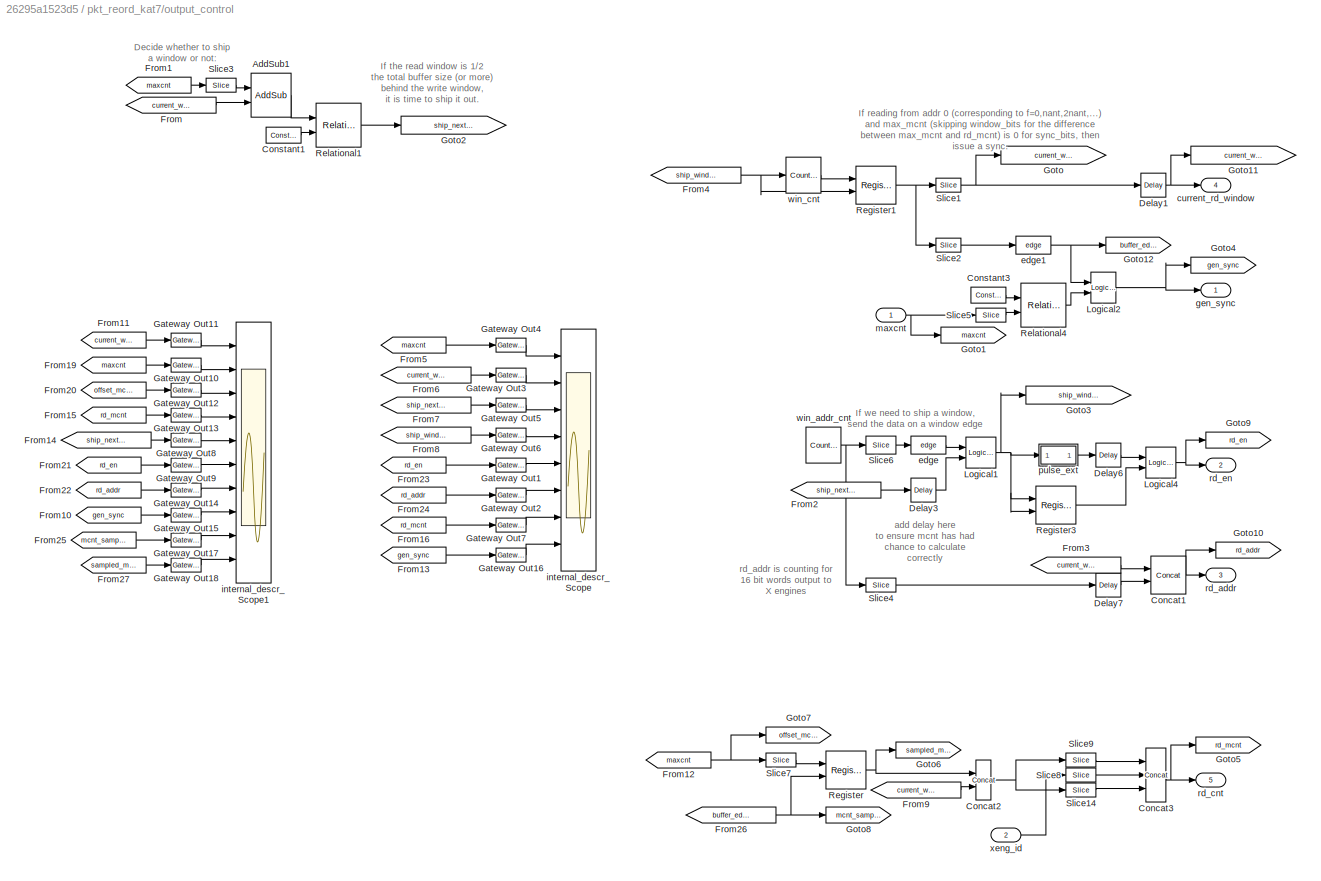
BLOCK [SubSystem] pkt_reord_kat7/output_control
  FunctionWithSeparateData = off
  MaskHideContents = off
  MinAlgLoopOccurrences = off
  Opaque = off
  Ports = [2, 5]
  PropExecContextOutsideSubsystem = off
  RTWSystemCode = Auto
  RequestExecContextInheritance = off
BLOCK [Reference] pkt_reord_kat7/output_control/AddSub1  REF=xbsIndex_r4/AddSub
  Ports = [2, 1]
  SourceBlock = xbsIndex_r4/AddSub
  SourceType = Xilinx Adder/Subtracter Block
  arith_type = Unsigned
  bin_pt = 0
  block_type = addsub
  block_version = 10.1.3
  dbl_ovrd = off
  en = off
  has_advanced_control = 0
  hw_selection = Fabric
  latency = 2
  mode = Subtraction
  n_bits = window_bits
  overflow = Wrap
  pipelined = off
  precision = User Defined
  quantization = Truncate
  sg_icon_stat = 40,44,2,1,white,blue,0,c507509b,right,,[ ],[ ]
  sggui_pos = 20,20,348,344
  use_behavioral_HDL = on
  use_carryin = off
  use_carryout = off
  use_rpm = on
  xl_area = [0, 0, 0, 0, 0, 0, 0]
  xl_use_area = off
BLOCK [Reference] pkt_reord_kat7/output_control/Concat1  REF=xbsIndex_r4/Concat
  Ports = [2, 1]
  SourceBlock = xbsIndex_r4/Concat
  SourceType = Xilinx Bus Concatenator Block
  block_type = concat
  block_version = 10.1.3
  dbl_ovrd = off
  has_advanced_control = 0
  infoedit = Concatenates two or more inputs.  Output will be cast to an unsigned value with the binary point at zero.
  num_inputs = 2
  sg_icon_stat = 35,38,2,1,white,blue,0,16398980,right,,[ ],[ ]
  sggui_pos = -1,-1,-1,-1
BLOCK [Reference] pkt_reord_kat7/output_control/Concat2  REF=xbsIndex_r4/Concat
  Ports = [2, 1]
  SourceBlock = xbsIndex_r4/Concat
  SourceType = Xilinx Bus Concatenator Block
  block_type = concat
  block_version = 10.1.3
  dbl_ovrd = off
  has_advanced_control = 0
  infoedit = Concatenates two or more inputs.  Output will be cast to an unsigned value with the binary point at zero.
  num_inputs = 2
  sg_icon_stat = 15,40,2,1,white,blue,0,16398980,right,,[ ],[ ]
  sggui_pos = 21,201,336,214
BLOCK [Reference] pkt_reord_kat7/output_control/Concat3  REF=xbsIndex_r4/Concat
  Ports = [3, 1]
  SourceBlock = xbsIndex_r4/Concat
  SourceType = Xilinx Bus Concatenator Block
  block_type = concat
  block_version = 10.1.3
  dbl_ovrd = off
  has_advanced_control = 0
  infoedit = Concatenates two or more inputs.  Output will be cast to an unsigned value with the binary point at zero.
  num_inputs = 3
  sg_icon_stat = 20,54,3,1,white,blue,0,61ef8218,right,,[ ],[ ]
  sg_mask_display = fprintf('','COMMENT: begin icon graphics');\npatch([0 20 20 0 0 ],[0 0 54 54 0 ],[0.77 0.82 0.91 ]);\nplot([0 20 20 0 0 ],[0 0 54 54 0 ]);\npatch([5.55 8.44 10.44 12.44 14.44 10.44 7.55 5.55 ],[29.22 29.22 31.22 29.22 31.22 31.22 31.22 29.22 ],[1 1 1 ]);\npatch([7.55 10.44 8.44 5.55 7.55 ],[27.22 27.22 29.22 29.22 27.22 ],[0.931 0.946 0.973 ]);\npatch([5.55 8.44 10.44 7.55 5.55 ],[25.22 25.22 27.22 27....<+399ch>
  sggui_pos = 22,228,336,214
BLOCK [Reference] pkt_reord_kat7/output_control/Constant1  REF=xbsIndex_r4/Constant
  Ports = [0, 1]
  SourceBlock = xbsIndex_r4/Constant
  SourceType = Xilinx Constant Block Block
  arith_type = Unsigned
  bin_pt = 0
  block_type = constant
  block_version = 10.1.3
  carry = CIN
  const = 2^(window_bits - 1)
  dbl_ovrd = off
  dsp48_infoedit = The use of this block for DSP48 instructions is deprecated.  Please use the Opmode block.
  equ = P=C
  exp_width = 8
  explicit_period = on
  frac_width = 24
  gui_display_data_type = Fixed-point
  has_advanced_control = 0
  inp1 = P
  inp2 = PCIN>>17
  n_bits = window_bits
  opr = +
  opselect = C
  period = 1
  preci_type = Single
  sg_icon_stat = 35,16,0,1,white,blue,0,85f36853,right,,[ ],[ ]
  sggui_pos = 20,20,400,346
BLOCK [Reference] pkt_reord_kat7/output_control/Constant3  REF=xbsIndex_r4/Constant
  Ports = [0, 1]
  SourceBlock = xbsIndex_r4/Constant
  SourceType = Xilinx Constant Block Block
  arith_type = Unsigned
  bin_pt = 0
  block_type = constant
  block_version = 10.1.3
  carry = CIN
  const = 0
  dbl_ovrd = off
  dsp48_infoedit = The use of this block for DSP48 instructions is deprecated.  Please use the Opmode block.
  equ = P=C
  exp_width = 8
  explicit_period = on
  frac_width = 24
  gui_display_data_type = Fixed-point
  has_advanced_control = 0
  inp1 = P
  inp2 = PCIN>>17
  n_bits = sync_bits - x_int_bits - ant_bits - window_bits
  opr = +
  opselect = C
  period = 1
  preci_type = Single
  sg_icon_stat = 35,16,0,1,white,blue,0,bf4ddd8b,right,,[ ],[ ]
  sggui_pos = 20,20,414,344
BLOCK [Reference] pkt_reord_kat7/output_control/Delay1  REF=xbsIndex_r4/Delay
  Ports = [1, 1]
  SourceBlock = xbsIndex_r4/Delay
  SourceType = Xilinx Delay Block
  block_type = delay
  block_version = 10.1.3
  dbl_ovrd = off
  en = off
  has_advanced_control = 0
  infoedit = Hardware notes: A delay line is a chain, each link of which is an SRL16 followed by a flip-flop.
  infoeditControl = Selection of Reset will increase slice count due to use of real FFs and instead of SRLs
  latency = 1
  reg_retiming = off
  rst = off
  sg_icon_stat = 25,24,1,1,white,blue,0,07b98262,right,,[ ],[ ]
  sggui_pos = -1,-1,-1,-1
  xl_area = [0, 0, 0, 0, 0, 0, 0]
  xl_use_area = off
BLOCK [Reference] pkt_reord_kat7/output_control/Delay3  REF=xbsIndex_r4/Delay
  Ports = [1, 1]
  SourceBlock = xbsIndex_r4/Delay
  SourceType = Xilinx Delay Block
  block_type = delay
  block_version = 10.1.3
  dbl_ovrd = off
  en = off
  has_advanced_control = 0
  infoedit = Hardware notes: A delay line is a chain, each link of which is an SRL16 followed by a flip-flop.
  infoeditControl = Selection of Reset will increase slice count due to use of real FFs and instead of SRLs
  latency = 2
  reg_retiming = on
  rst = off
  sg_icon_stat = 25,24,1,1,white,blue,0,85ce9542,right,,[ ],[ ]
  sggui_pos = 20,20,348,255
  xl_area = [0, 0, 0, 0, 0, 0, 0]
  xl_use_area = off
BLOCK [Reference] pkt_reord_kat7/output_control/Delay6  REF=xbsIndex_r4/Delay
  Ports = [1, 1]
  SourceBlock = xbsIndex_r4/Delay
  SourceType = Xilinx Delay Block
  block_type = delay
  block_version = 10.1.3
  dbl_ovrd = off
  en = off
  has_advanced_control = 0
  infoedit = Hardware notes: A delay line is a chain, each link of which is an SRL16 followed by a flip-flop.
  infoeditControl = Selection of Reset will increase slice count due to use of real FFs and instead of SRLs
  latency = 1
  reg_retiming = on
  rst = off
  sg_icon_stat = 25,24,1,1,white,blue,0,07b98262,right,,[ ],[ ]
  sggui_pos = 20,20,348,255
  xl_area = [0, 0, 0, 0, 0, 0, 0]
  xl_use_area = off
BLOCK [Reference] pkt_reord_kat7/output_control/Delay7  REF=xbsIndex_r4/Delay
  Ports = [1, 1]
  SourceBlock = xbsIndex_r4/Delay
  SourceType = Xilinx Delay Block
  block_type = delay
  block_version = 10.1.3
  dbl_ovrd = off
  en = off
  has_advanced_control = 0
  infoedit = Hardware notes: A delay line is a chain, each link of which is an SRL16 followed by a flip-flop.
  infoeditControl = Selection of Reset will increase slice count due to use of real FFs and instead of SRLs
  latency = 2
  reg_retiming = on
  rst = off
  sg_icon_stat = 25,24,1,1,white,blue,0,85ce9542,right,,[ ],[ ]
  sggui_pos = 20,20,348,255
  xl_area = [0, 0, 0, 0, 0, 0, 0]
  xl_use_area = off
BLOCK [From] pkt_reord_kat7/output_control/From
  CloseFcn = tagdialog Close
  GotoTag = current_window
BLOCK [From] pkt_reord_kat7/output_control/From1
  CloseFcn = tagdialog Close
  GotoTag = maxcnt
BLOCK [From] pkt_reord_kat7/output_control/From10
  CloseFcn = tagdialog Close
  GotoTag = gen_sync
BLOCK [From] pkt_reord_kat7/output_control/From11
  CloseFcn = tagdialog Close
  GotoTag = current_window_out
BLOCK [From] pkt_reord_kat7/output_control/From12
  CloseFcn = tagdialog Close
  GotoTag = maxcnt
BLOCK [From] pkt_reord_kat7/output_control/From13
  CloseFcn = tagdialog Close
  GotoTag = gen_sync
BLOCK [From] pkt_reord_kat7/output_control/From14
  CloseFcn = tagdialog Close
  GotoTag = ship_next_window
BLOCK [From] pkt_reord_kat7/output_control/From15
  CloseFcn = tagdialog Close
  GotoTag = rd_mcnt
BLOCK [From] pkt_reord_kat7/output_control/From16
  CloseFcn = tagdialog Close
  GotoTag = rd_mcnt
BLOCK [From] pkt_reord_kat7/output_control/From19
  CloseFcn = tagdialog Close
  GotoTag = maxcnt
BLOCK [From] pkt_reord_kat7/output_control/From2
  CloseFcn = tagdialog Close
  GotoTag = ship_next_window
BLOCK [From] pkt_reord_kat7/output_control/From20
  CloseFcn = tagdialog Close
  GotoTag = offset_mcnt
BLOCK [From] pkt_reord_kat7/output_control/From21
  CloseFcn = tagdialog Close
  GotoTag = rd_en
BLOCK [From] pkt_reord_kat7/output_control/From22
  CloseFcn = tagdialog Close
  GotoTag = rd_addr
BLOCK [From] pkt_reord_kat7/output_control/From23
  CloseFcn = tagdialog Close
  GotoTag = rd_en
BLOCK [From] pkt_reord_kat7/output_control/From24
  CloseFcn = tagdialog Close
  GotoTag = rd_addr
BLOCK [From] pkt_reord_kat7/output_control/From25
  CloseFcn = tagdialog Close
  GotoTag = mcnt_sample
BLOCK [From] pkt_reord_kat7/output_control/From26
  CloseFcn = tagdialog Close
  GotoTag = buffer_edge
BLOCK [From] pkt_reord_kat7/output_control/From27
  CloseFcn = tagdialog Close
  GotoTag = sampled_mcnt
BLOCK [From] pkt_reord_kat7/output_control/From3
  CloseFcn = tagdialog Close
  GotoTag = current_window_out
BLOCK [From] pkt_reord_kat7/output_control/From4
  CloseFcn = tagdialog Close
  GotoTag = ship_window_now
BLOCK [From] pkt_reord_kat7/output_control/From5
  CloseFcn = tagdialog Close
  GotoTag = maxcnt
BLOCK [From] pkt_reord_kat7/output_control/From6
  CloseFcn = tagdialog Close
  GotoTag = current_window_out
BLOCK [From] pkt_reord_kat7/output_control/From7
  CloseFcn = tagdialog Close
  GotoTag = ship_next_window
BLOCK [From] pkt_reord_kat7/output_control/From8
  CloseFcn = tagdialog Close
  GotoTag = ship_window_now
BLOCK [From] pkt_reord_kat7/output_control/From9
  CloseFcn = tagdialog Close
  GotoTag = current_window_out
BLOCK [Reference] pkt_reord_kat7/output_control/Gateway Out1  REF=xbsIndex_r4/Gateway Out
  DACChannel = '1'
  LOCs = {}
  Ports = [1, 1]
  SourceBlock = xbsIndex_r4/Gateway Out
  SourceType = Xilinx Gateway Out Block
  UseAsDAC = off
  block_type = gatewayout
  block_version = 10.1.3
  has_advanced_control = 0
  hdl_port = off
  inherit_from_input = off
  locs_specified = off
  sg_icon_stat = 30,14,1,1,white,grey,1,632ec840,right,,[ ],[ ]
  sggui_pos = -1,-1,-1,-1
  timing_constraint = None
  xl_area = [0, 0, 0, 0, 0, 0, 0]
  xl_use_area = off
BLOCK [Reference] pkt_reord_kat7/output_control/Gateway Out10  REF=xbsIndex_r4/Gateway Out
  DACChannel = '1'
  LOCs = {}
  Ports = [1, 1]
  SourceBlock = xbsIndex_r4/Gateway Out
  SourceType = Xilinx Gateway Out Block
  UseAsDAC = off
  block_type = gatewayout
  block_version = 10.1.3
  has_advanced_control = 0
  hdl_port = off
  inherit_from_input = off
  locs_specified = off
  sg_icon_stat = 30,14,1,1,white,grey,1,632ec840,right,,[ ],[ ]
  sggui_pos = -1,-1,-1,-1
  timing_constraint = None
  xl_area = [0, 0, 0, 0, 0, 0, 0]
  xl_use_area = off
BLOCK [Reference] pkt_reord_kat7/output_control/Gateway Out11  REF=xbsIndex_r4/Gateway Out
  DACChannel = '1'
  LOCs = {}
  Ports = [1, 1]
  SourceBlock = xbsIndex_r4/Gateway Out
  SourceType = Xilinx Gateway Out Block
  UseAsDAC = off
  block_type = gatewayout
  block_version = 10.1.3
  has_advanced_control = 0
  hdl_port = off
  inherit_from_input = off
  locs_specified = off
  sg_icon_stat = 30,14,1,1,white,grey,1,632ec840,right,,[ ],[ ]
  sggui_pos = 20,20,336,386
  timing_constraint = None
  xl_area = [0, 0, 0, 0, 0, 0, 0]
  xl_use_area = off
BLOCK [Reference] pkt_reord_kat7/output_control/Gateway Out12  REF=xbsIndex_r4/Gateway Out
  DACChannel = '1'
  LOCs = {}
  Ports = [1, 1]
  SourceBlock = xbsIndex_r4/Gateway Out
  SourceType = Xilinx Gateway Out Block
  UseAsDAC = off
  block_type = gatewayout
  block_version = 10.1.3
  has_advanced_control = 0
  hdl_port = off
  inherit_from_input = off
  locs_specified = off
  sg_icon_stat = 30,14,1,1,white,grey,1,632ec840,right,,[ ],[ ]
  sggui_pos = -1,-1,-1,-1
  timing_constraint = None
  xl_area = [0, 0, 0, 0, 0, 0, 0]
  xl_use_area = off
BLOCK [Reference] pkt_reord_kat7/output_control/Gateway Out13  REF=xbsIndex_r4/Gateway Out
  DACChannel = '1'
  LOCs = {}
  Ports = [1, 1]
  SourceBlock = xbsIndex_r4/Gateway Out
  SourceType = Xilinx Gateway Out Block
  UseAsDAC = off
  block_type = gatewayout
  block_version = 10.1.3
  has_advanced_control = 0
  hdl_port = off
  inherit_from_input = off
  locs_specified = off
  sg_icon_stat = 30,14,1,1,white,grey,1,632ec840,right,,[ ],[ ]
  sggui_pos = -1,-1,-1,-1
  timing_constraint = None
  xl_area = [0, 0, 0, 0, 0, 0, 0]
  xl_use_area = off
BLOCK [Reference] pkt_reord_kat7/output_control/Gateway Out14  REF=xbsIndex_r4/Gateway Out
  DACChannel = '1'
  LOCs = {}
  Ports = [1, 1]
  SourceBlock = xbsIndex_r4/Gateway Out
  SourceType = Xilinx Gateway Out Block
  UseAsDAC = off
  block_type = gatewayout
  block_version = 10.1.3
  has_advanced_control = 0
  hdl_port = off
  inherit_from_input = off
  locs_specified = off
  sg_icon_stat = 30,14,1,1,white,grey,1,632ec840,right,,[ ],[ ]
  sggui_pos = -1,-1,-1,-1
  timing_constraint = None
  xl_area = [0, 0, 0, 0, 0, 0, 0]
  xl_use_area = off
BLOCK [Reference] pkt_reord_kat7/output_control/Gateway Out15  REF=xbsIndex_r4/Gateway Out
  DACChannel = '1'
  LOCs = {}
  Ports = [1, 1]
  SourceBlock = xbsIndex_r4/Gateway Out
  SourceType = Xilinx Gateway Out Block
  UseAsDAC = off
  block_type = gatewayout
  block_version = 10.1.3
  has_advanced_control = 0
  hdl_port = off
  inherit_from_input = off
  locs_specified = off
  sg_icon_stat = 30,14,1,1,white,grey,1,632ec840,right,,[ ],[ ]
  sggui_pos = -1,-1,-1,-1
  timing_constraint = None
  xl_area = [0, 0, 0, 0, 0, 0, 0]
  xl_use_area = off
BLOCK [Reference] pkt_reord_kat7/output_control/Gateway Out16  REF=xbsIndex_r4/Gateway Out
  DACChannel = '1'
  LOCs = {}
  Ports = [1, 1]
  SourceBlock = xbsIndex_r4/Gateway Out
  SourceType = Xilinx Gateway Out Block
  UseAsDAC = off
  block_type = gatewayout
  block_version = 10.1.3
  has_advanced_control = 0
  hdl_port = off
  inherit_from_input = off
  locs_specified = off
  sg_icon_stat = 30,14,1,1,white,grey,1,632ec840,right,,[ ],[ ]
  sggui_pos = -1,-1,-1,-1
  timing_constraint = None
  xl_area = [0, 0, 0, 0, 0, 0, 0]
  xl_use_area = off
BLOCK [Reference] pkt_reord_kat7/output_control/Gateway Out17  REF=xbsIndex_r4/Gateway Out
  DACChannel = '1'
  LOCs = {}
  Ports = [1, 1]
  SourceBlock = xbsIndex_r4/Gateway Out
  SourceType = Xilinx Gateway Out Block
  UseAsDAC = off
  block_type = gatewayout
  block_version = 10.1.3
  has_advanced_control = 0
  hdl_port = off
  inherit_from_input = off
  locs_specified = off
  sg_icon_stat = 30,14,1,1,white,grey,1,632ec840,right,,[ ],[ ]
  sggui_pos = -1,-1,-1,-1
  timing_constraint = None
  xl_area = [0, 0, 0, 0, 0, 0, 0]
  xl_use_area = off
BLOCK [Reference] pkt_reord_kat7/output_control/Gateway Out18  REF=xbsIndex_r4/Gateway Out
  DACChannel = '1'
  LOCs = {}
  Ports = [1, 1]
  SourceBlock = xbsIndex_r4/Gateway Out
  SourceType = Xilinx Gateway Out Block
  UseAsDAC = off
  block_type = gatewayout
  block_version = 10.1.3
  has_advanced_control = 0
  hdl_port = off
  inherit_from_input = off
  locs_specified = off
  sg_icon_stat = 30,14,1,1,white,grey,1,632ec840,right,,[ ],[ ]
  sggui_pos = -1,-1,-1,-1
  timing_constraint = None
  xl_area = [0, 0, 0, 0, 0, 0, 0]
  xl_use_area = off
BLOCK [Reference] pkt_reord_kat7/output_control/Gateway Out2  REF=xbsIndex_r4/Gateway Out
  DACChannel = '1'
  LOCs = {}
  Ports = [1, 1]
  SourceBlock = xbsIndex_r4/Gateway Out
  SourceType = Xilinx Gateway Out Block
  UseAsDAC = off
  block_type = gatewayout
  block_version = 10.1.3
  has_advanced_control = 0
  hdl_port = off
  inherit_from_input = off
  locs_specified = off
  sg_icon_stat = 30,14,1,1,white,grey,1,632ec840,right,,[ ],[ ]
  sggui_pos = -1,-1,-1,-1
  timing_constraint = None
  xl_area = [0, 0, 0, 0, 0, 0, 0]
  xl_use_area = off
BLOCK [Reference] pkt_reord_kat7/output_control/Gateway Out3  REF=xbsIndex_r4/Gateway Out
  DACChannel = '1'
  LOCs = {}
  Ports = [1, 1]
  SourceBlock = xbsIndex_r4/Gateway Out
  SourceType = Xilinx Gateway Out Block
  UseAsDAC = off
  block_type = gatewayout
  block_version = 10.1.3
  has_advanced_control = 0
  hdl_port = off
  inherit_from_input = off
  locs_specified = off
  sg_icon_stat = 30,14,1,1,white,grey,1,632ec840,right,,[ ],[ ]
  sggui_pos = -1,-1,-1,-1
  timing_constraint = None
  xl_area = [0, 0, 0, 0, 0, 0, 0]
  xl_use_area = off
BLOCK [Reference] pkt_reord_kat7/output_control/Gateway Out4  REF=xbsIndex_r4/Gateway Out
  DACChannel = '1'
  LOCs = {}
  Ports = [1, 1]
  SourceBlock = xbsIndex_r4/Gateway Out
  SourceType = Xilinx Gateway Out Block
  UseAsDAC = off
  block_type = gatewayout
  block_version = 10.1.3
  has_advanced_control = 0
  hdl_port = off
  inherit_from_input = off
  locs_specified = off
  sg_icon_stat = 30,14,1,1,white,grey,1,632ec840,right,,[ ],[ ]
  sggui_pos = -1,-1,-1,-1
  timing_constraint = None
  xl_area = [0, 0, 0, 0, 0, 0, 0]
  xl_use_area = off
BLOCK [Reference] pkt_reord_kat7/output_control/Gateway Out5  REF=xbsIndex_r4/Gateway Out
  DACChannel = '1'
  LOCs = {}
  Ports = [1, 1]
  SourceBlock = xbsIndex_r4/Gateway Out
  SourceType = Xilinx Gateway Out Block
  UseAsDAC = off
  block_type = gatewayout
  block_version = 10.1.3
  has_advanced_control = 0
  hdl_port = off
  inherit_from_input = off
  locs_specified = off
  sg_icon_stat = 30,14,1,1,white,grey,1,632ec840,right,,[ ],[ ]
  sggui_pos = -1,-1,-1,-1
  timing_constraint = None
  xl_area = [0, 0, 0, 0, 0, 0, 0]
  xl_use_area = off
BLOCK [Reference] pkt_reord_kat7/output_control/Gateway Out6  REF=xbsIndex_r4/Gateway Out
  DACChannel = '1'
  LOCs = {}
  Ports = [1, 1]
  SourceBlock = xbsIndex_r4/Gateway Out
  SourceType = Xilinx Gateway Out Block
  UseAsDAC = off
  block_type = gatewayout
  block_version = 10.1.3
  has_advanced_control = 0
  hdl_port = off
  inherit_from_input = off
  locs_specified = off
  sg_icon_stat = 30,14,1,1,white,grey,1,632ec840,right,,[ ],[ ]
  sggui_pos = -1,-1,-1,-1
  timing_constraint = None
  xl_area = [0, 0, 0, 0, 0, 0, 0]
  xl_use_area = off
BLOCK [Reference] pkt_reord_kat7/output_control/Gateway Out7  REF=xbsIndex_r4/Gateway Out
  DACChannel = '1'
  LOCs = {}
  Ports = [1, 1]
  SourceBlock = xbsIndex_r4/Gateway Out
  SourceType = Xilinx Gateway Out Block
  UseAsDAC = off
  block_type = gatewayout
  block_version = 10.1.3
  has_advanced_control = 0
  hdl_port = off
  inherit_from_input = off
  locs_specified = off
  sg_icon_stat = 30,14,1,1,white,grey,1,632ec840,right,,[ ],[ ]
  sggui_pos = -1,-1,-1,-1
  timing_constraint = None
  xl_area = [0, 0, 0, 0, 0, 0, 0]
  xl_use_area = off
BLOCK [Reference] pkt_reord_kat7/output_control/Gateway Out8  REF=xbsIndex_r4/Gateway Out
  DACChannel = '1'
  LOCs = {}
  Ports = [1, 1]
  SourceBlock = xbsIndex_r4/Gateway Out
  SourceType = Xilinx Gateway Out Block
  UseAsDAC = off
  block_type = gatewayout
  block_version = 10.1.3
  has_advanced_control = 0
  hdl_port = off
  inherit_from_input = off
  locs_specified = off
  sg_icon_stat = 30,14,1,1,white,grey,1,632ec840,right,,[ ],[ ]
  sggui_pos = -1,-1,-1,-1
  timing_constraint = None
  xl_area = [0, 0, 0, 0, 0, 0, 0]
  xl_use_area = off
BLOCK [Reference] pkt_reord_kat7/output_control/Gateway Out9  REF=xbsIndex_r4/Gateway Out
  DACChannel = '1'
  LOCs = {}
  Ports = [1, 1]
  SourceBlock = xbsIndex_r4/Gateway Out
  SourceType = Xilinx Gateway Out Block
  UseAsDAC = off
  block_type = gatewayout
  block_version = 10.1.3
  has_advanced_control = 0
  hdl_port = off
  inherit_from_input = off
  locs_specified = off
  sg_icon_stat = 30,14,1,1,white,grey,1,632ec840,right,,[ ],[ ]
  sggui_pos = -1,-1,-1,-1
  timing_constraint = None
  xl_area = [0, 0, 0, 0, 0, 0, 0]
  xl_use_area = off
BLOCK [Goto] pkt_reord_kat7/output_control/Goto
  GotoTag = current_window
BLOCK [Goto] pkt_reord_kat7/output_control/Goto1
  GotoTag = maxcnt
BLOCK [Goto] pkt_reord_kat7/output_control/Goto10
  GotoTag = rd_addr
BLOCK [Goto] pkt_reord_kat7/output_control/Goto11
  GotoTag = current_window_out
BLOCK [Goto] pkt_reord_kat7/output_control/Goto12
  GotoTag = buffer_edge
BLOCK [Goto] pkt_reord_kat7/output_control/Goto2
  GotoTag = ship_next_window
BLOCK [Goto] pkt_reord_kat7/output_control/Goto3
  GotoTag = ship_window_now
BLOCK [Goto] pkt_reord_kat7/output_control/Goto4
  GotoTag = gen_sync
BLOCK [Goto] pkt_reord_kat7/output_control/Goto5
  GotoTag = rd_mcnt
BLOCK [Goto] pkt_reord_kat7/output_control/Goto6
  GotoTag = sampled_mcnt
BLOCK [Goto] pkt_reord_kat7/output_control/Goto7
  GotoTag = offset_mcnt
BLOCK [Goto] pkt_reord_kat7/output_control/Goto8
  GotoTag = mcnt_sample
BLOCK [Goto] pkt_reord_kat7/output_control/Goto9
  GotoTag = rd_en
BLOCK [Reference] pkt_reord_kat7/output_control/Logical1  REF=xbsIndex_r4/Logical
  Ports = [2, 1]
  SourceBlock = xbsIndex_r4/Logical
  SourceType = Xilinx Logical Block Block
  align_bp = on
  arith_type = Unsigned
  bin_pt = 2
  block_type = logical
  block_version = 10.1.3
  dbl_ovrd = off
  en = off
  has_advanced_control = 0
  inputs = 2
  latency = 0
  logical_function = AND
  n_bits = 8
  precision = Full
  sg_icon_stat = 30,31,2,1,white,blue,0,83a4b621,right,,[ ],[ ]
  sggui_pos = -1,-1,-1,-1
  xl_area = [0, 0, 0, 0, 0, 0, 0]
  xl_use_area = off
BLOCK [Reference] pkt_reord_kat7/output_control/Logical2  REF=xbsIndex_r4/Logical
  Ports = [2, 1]
  SourceBlock = xbsIndex_r4/Logical
  SourceType = Xilinx Logical Block Block
  align_bp = on
  arith_type = Unsigned
  bin_pt = 2
  block_type = logical
  block_version = 10.1.3
  dbl_ovrd = off
  en = off
  has_advanced_control = 0
  inputs = 2
  latency = 0
  logical_function = AND
  n_bits = 8
  precision = Full
  sg_icon_stat = 25,31,2,1,white,blue,0,83a4b621,right,,[ ],[ ]
  sggui_pos = -1,-1,-1,-1
  xl_area = [0, 0, 0, 0, 0, 0, 0]
  xl_use_area = off
BLOCK [Reference] pkt_reord_kat7/output_control/Logical4  REF=xbsIndex_r4/Logical
  Ports = [2, 1]
  SourceBlock = xbsIndex_r4/Logical
  SourceType = Xilinx Logical Block Block
  align_bp = on
  arith_type = Unsigned
  bin_pt = 2
  block_type = logical
  block_version = 10.1.3
  dbl_ovrd = off
  en = off
  has_advanced_control = 0
  inputs = 2
  latency = 0
  logical_function = AND
  n_bits = 8
  precision = Full
  sg_icon_stat = 30,31,2,1,white,blue,0,83a4b621,right,,[ ],[ ]
  sggui_pos = -1,-1,-1,-1
  xl_area = [0, 0, 0, 0, 0, 0, 0]
  xl_use_area = off
BLOCK [Reference] pkt_reord_kat7/output_control/Register  REF=xbsIndex_r4/Register
  Ports = [2, 1]
  SourceBlock = xbsIndex_r4/Register
  SourceType = Xilinx Register Block
  block_type = register
  block_version = 10.1.3
  dbl_ovrd = off
  en = on
  has_advanced_control = 0
  init = 0
  rst = off
  sg_icon_stat = 40,38,2,1,white,blue,0,6bd0930c,right,,[ ],[ ]
  sggui_pos = 20,20,348,192
  xl_area = [0,0,0,0,0,0,0]
  xl_use_area = off
BLOCK [Reference] pkt_reord_kat7/output_control/Register1  REF=xbsIndex_r4/Register
  Ports = [2, 1]
  SourceBlock = xbsIndex_r4/Register
  SourceType = Xilinx Register Block
  block_type = register
  block_version = 10.1.3
  dbl_ovrd = off
  en = on
  has_advanced_control = 0
  init = 0
  rst = off
  sg_icon_stat = 40,38,2,1,white,blue,0,6bd0930c,right,,[ ],[ ]
  sggui_pos = 20,20,348,192
  xl_area = [0,0,0,0,0,0,0]
  xl_use_area = off
BLOCK [Reference] pkt_reord_kat7/output_control/Register3  REF=xbsIndex_r4/Register
  Ports = [2, 1]
  SourceBlock = xbsIndex_r4/Register
  SourceType = Xilinx Register Block
  block_type = register
  block_version = 10.1.3
  dbl_ovrd = off
  en = on
  has_advanced_control = 0
  init = 0
  rst = off
  sg_icon_stat = 40,38,2,1,white,blue,0,6bd0930c,right,,[ ],[ ]
  sggui_pos = 20,20,348,192
  xl_area = [0,0,0,0,0,0,0]
  xl_use_area = off
BLOCK [Reference] pkt_reord_kat7/output_control/Relational1  REF=xbsIndex_r4/Relational
  Ports = [2, 1]
  SourceBlock = xbsIndex_r4/Relational
  SourceType = Xilinx Arithmetic Relational Operator Block
  block_type = relational
  block_version = 10.1.3
  dbl_ovrd = off
  en = off
  has_advanced_control = 0
  latency = 1
  mode = a>=b
  sg_icon_stat = 45,44,2,1,white,blue,0,a3568de2,right,,[ ],[ ]
  sggui_pos = 20,20,348,193
  xl_area = [0, 0, 0, 0, 0, 0, 0]
  xl_use_area = off
BLOCK [Reference] pkt_reord_kat7/output_control/Relational4  REF=xbsIndex_r4/Relational
  Ports = [2, 1]
  SourceBlock = xbsIndex_r4/Relational
  SourceType = Xilinx Arithmetic Relational Operator Block
  block_type = relational
  block_version = 10.1.3
  dbl_ovrd = off
  en = off
  has_advanced_control = 0
  latency = 1
  mode = a=b
  sg_icon_stat = 45,44,2,1,white,blue,0,3618233f,right,,[ ],[ ]
  sggui_pos = 20,20,348,193
  xl_area = [0, 0, 0, 0, 0, 0, 0]
  xl_use_area = off
BLOCK [Reference] pkt_reord_kat7/output_control/Slice1  REF=xbsIndex_r4/Slice
  Ports = [1, 1]
  SourceBlock = xbsIndex_r4/Slice
  SourceType = Xilinx Bit Slice Extractor Block
  base0 = LSB of Input
  base1 = MSB of Input
  bit0 = 0
  bit1 = 0
  block_type = slice
  block_version = 10.1.3
  boolean_output = off
  dbl_ovrd = off
  has_advanced_control = 0
  mode = Lower Bit Location + Width
  nbits = window_bits
  sg_icon_stat = 25,14,1,1,white,blue,0,1fd851a7,right,,[ ],[ ]
  sggui_pos = 20,20,460,380
BLOCK [Reference] pkt_reord_kat7/output_control/Slice14  REF=xbsIndex_r4/Slice
  Ports = [1, 1]
  SourceBlock = xbsIndex_r4/Slice
  SourceType = Xilinx Bit Slice Extractor Block
  base0 = LSB of Input
  base1 = LSB of Input
  bit0 = 0
  bit1 = 2
  block_type = slice
  block_version = 10.1.3
  boolean_output = off
  dbl_ovrd = off
  has_advanced_control = 0
  mode = Lower Bit Location + Width
  nbits = chan_bits-xeng_bits
  sg_icon_stat = 30,14,1,1,white,blue,0,1fd851a7,right,,[ ],[ ]
  sggui_pos = 947,517,543,482
BLOCK [Reference] pkt_reord_kat7/output_control/Slice2  REF=xbsIndex_r4/Slice
  Ports = [1, 1]
  SourceBlock = xbsIndex_r4/Slice
  SourceType = Xilinx Bit Slice Extractor Block
  base0 = LSB of Input
  base1 = MSB of Input
  bit0 = 0
  bit1 = 0
  block_type = slice
  block_version = 10.1.3
  boolean_output = on
  dbl_ovrd = off
  has_advanced_control = 0
  mode = Upper Bit Location + Width
  nbits = 1
  sg_icon_stat = 25,14,1,1,white,blue,0,1fd851a7,right,,[ ],[ ]
  sggui_pos = -1,-1,-1,-1
BLOCK [Reference] pkt_reord_kat7/output_control/Slice3  REF=xbsIndex_r4/Slice
  Ports = [1, 1]
  SourceBlock = xbsIndex_r4/Slice
  SourceType = Xilinx Bit Slice Extractor Block
  base0 = LSB of Input
  base1 = MSB of Input
  bit0 = 0
  bit1 = 0
  block_type = slice
  block_version = 10.1.3
  boolean_output = off
  dbl_ovrd = off
  has_advanced_control = 0
  mode = Lower Bit Location + Width
  nbits = window_bits
  sg_icon_stat = 30,14,1,1,white,blue,0,1fd851a7,right,,[ ],[ ]
  sggui_pos = 20,20,460,380
BLOCK [Reference] pkt_reord_kat7/output_control/Slice4  REF=xbsIndex_r4/Slice
  Ports = [1, 1]
  SourceBlock = xbsIndex_r4/Slice
  SourceType = Xilinx Bit Slice Extractor Block
  base0 = LSB of Input
  base1 = MSB of Input
  bit0 = 0
  bit1 = 0
  block_type = slice
  block_version = 10.1.3
  boolean_output = off
  dbl_ovrd = off
  has_advanced_control = 0
  mode = Lower Bit Location + Width
  nbits = x_int_bits + ant_bits
  sg_icon_stat = 30,14,1,1,white,blue,0,1fd851a7,right,,[ ],[ ]
  sggui_pos = -1,-1,-1,-1
BLOCK [Reference] pkt_reord_kat7/output_control/Slice5  REF=xbsIndex_r4/Slice
  Ports = [1, 1]
  SourceBlock = xbsIndex_r4/Slice
  SourceType = Xilinx Bit Slice Extractor Block
  base0 = LSB of Input
  base1 = LSB of Input
  bit0 = window_bits
  bit1 = sync_bits - x_int_bits - ant_bits - 1
  block_type = slice
  block_version = 10.1.3
  boolean_output = off
  dbl_ovrd = off
  has_advanced_control = 0
  mode = Two Bit Locations
  nbits = window_bits
  sg_icon_stat = 30,14,1,1,white,blue,0,1fd851a7,right,,[ ],[ ]
  sggui_pos = 1706,241,543,482
BLOCK [Reference] pkt_reord_kat7/output_control/Slice6  REF=xbsIndex_r4/Slice
  Ports = [1, 1]
  SourceBlock = xbsIndex_r4/Slice
  SourceType = Xilinx Bit Slice Extractor Block
  base0 = LSB of Input
  base1 = MSB of Input
  bit0 = 0
  bit1 = 0
  block_type = slice
  block_version = 10.1.3
  boolean_output = on
  dbl_ovrd = off
  has_advanced_control = 0
  mode = Upper Bit Location + Width
  nbits = 1
  sg_icon_stat = 30,18,1,1,white,blue,0,1fd851a7,right,,[ ],[ ]
  sggui_pos = -1,-1,-1,-1
BLOCK [Reference] pkt_reord_kat7/output_control/Slice7  REF=xbsIndex_r4/Slice
  Ports = [1, 1]
  SourceBlock = xbsIndex_r4/Slice
  SourceType = Xilinx Bit Slice Extractor Block
  base0 = LSB of Input
  base1 = MSB of Input
  bit0 = window_bits
  bit1 = 0
  block_type = slice
  block_version = 10.1.3
  boolean_output = off
  dbl_ovrd = off
  has_advanced_control = 0
  mode = Two Bit Locations
  nbits = 1
  sg_icon_stat = 30,14,1,1,white,blue,0,1fd851a7,right,,[ ],[ ]
  sggui_pos = 845,327,543,482
BLOCK [Reference] pkt_reord_kat7/output_control/Slice8  REF=xbsIndex_r4/Slice
  Ports = [1, 1]
  SourceBlock = xbsIndex_r4/Slice
  SourceType = Xilinx Bit Slice Extractor Block
  base0 = LSB of Input
  base1 = MSB of Input
  bit0 = 0
  bit1 = 0
  block_type = slice
  block_version = 10.1.3
  boolean_output = off
  dbl_ovrd = off
  has_advanced_control = 0
  mode = Lower Bit Location + Width
  nbits = xeng_bits
  sg_icon_stat = 30,14,1,1,white,blue,0,1fd851a7,right,,[ ],[ ]
  sggui_pos = 846,354,543,482
BLOCK [Reference] pkt_reord_kat7/output_control/Slice9  REF=xbsIndex_r4/Slice
  Ports = [1, 1]
  SourceBlock = xbsIndex_r4/Slice
  SourceType = Xilinx Bit Slice Extractor Block
  base0 = LSB of Input
  base1 = MSB of Input
  bit0 = chan_bits-xeng_bits
  bit1 = 0
  block_type = slice
  block_version = 10.1.3
  boolean_output = off
  dbl_ovrd = off
  has_advanced_control = 0
  mode = Two Bit Locations
  nbits = ant_bits
  sg_icon_stat = 30,14,1,1,white,blue,0,1fd851a7,right,,[ ],[ ]
  sggui_pos = 984,439,543,482
BLOCK [Outport] pkt_reord_kat7/output_control/current_rd_window
  IconDisplay = Port number
  Port = 4
BLOCK [Reference] pkt_reord_kat7/output_control/edge  REF=casper_library_misc/edge  (lib defined in mdl_357510c33b49, mdl_57b5f564ae26, +4 more)
  Ports = [1, 1]
  SourceBlock = casper_library_misc/edge
  SourceType = edge
BLOCK [Reference] pkt_reord_kat7/output_control/edge1  REF=casper_library_misc/edge  (lib defined in mdl_357510c33b49, mdl_57b5f564ae26, +4 more)
  Ports = [1, 1]
  SourceBlock = casper_library_misc/edge
  SourceType = edge
BLOCK [Outport] pkt_reord_kat7/output_control/gen_sync
  IconDisplay = Port number
BLOCK [Scope] pkt_reord_kat7/output_control/internal_descr_Scope
  DataFormat = StructureWithTime
  Floating = off
  LimitDataPoints = off
  NumInputPorts = 8
  Ports = [8]
  SampleTime = 0
  SaveName = ScopeData2
  ShowLegends = off
  TimeRange = 1
  YMax = 1~1~1.05~5~5~5~5~5
  YMin = -1~-1~0.95~-5~-5~-5~-5~-5
  ZoomMode = xonly
BLOCK [Scope] pkt_reord_kat7/output_control/internal_descr_Scope1
  DataFormat = StructureWithTime
  Floating = off
  LimitDataPoints = off
  NumInputPorts = 10
  Ports = [10]
  SampleTime = 0
  SaveName = ScopeData4
  ShowLegends = off
  TimeRange = 42.38350921521942
  YMax = 111.3~10~80~1024~445.2~1.05~336~1~5~5
  YMin = 100.7~0~0~0~402.8~0.95~304~-1~-5~-5
  ZoomMode = yonly
BLOCK [Inport] pkt_reord_kat7/output_control/maxcnt
  IconDisplay = Port number
BLOCK [SubSystem] pkt_reord_kat7/output_control/pulse_ext
  AncestorBlock = casper_library/Misc/pulse_ext
  FunctionWithSeparateData = off
  MaskHideContents = off
  MinAlgLoopOccurrences = off
  Opaque = off
  Ports = [1, 1]
  PropExecContextOutsideSubsystem = off
  RTWSystemCode = Auto
  RequestExecContextInheritance = off
BLOCK [Reference] pkt_reord_kat7/output_control/pulse_ext/Constant5  REF=xbsIndex_r4/Constant
  Ports = [0, 1]
  SourceBlock = xbsIndex_r4/Constant
  SourceType = Xilinx Constant Block Block
  arith_type = Unsigned
  bin_pt = 0
  block_type = constant
  block_version = 9.1.01
  carry = CIN
  const = pulse_len-1
  dbl_ovrd = off
  dsp48_infoedit = The use of this block for DSP48 instructions is deprecated.  Please use the Opmode block.
  equ = P=C
  exp_width = 8
  explicit_period = off
  frac_width = 24
  gui_display_data_type = Fixed-point
  has_advanced_control = 0
  inp1 = P
  inp2 = PCIN>>17
  n_bits = bits
  opr = +
  opselect = C
  period = 1
  preci_type = Single
  sg_icon_stat = 70,32,0,1,white,blue,0,a8544230,right,,[ ],[ ]
  sg_mask_display = fprintf('','COMMENT: begin icon graphics');\npatch([0 70 70 0 0 ],[0 0 32 32 0 ],[0.77 0.82 0.91 ]);\nplot([0 70 70 0 0 ],[0 0 32 32 0 ]);\npatch([26.1 31.88 35.88 39.88 43.88 35.88 30.1 26.1 ],[20.44 20.44 24.44 20.44 24.44 24.44 24.44 20.44 ],[1 1 1 ]);\npatch([30.1 35.88 31.88 26.1 30.1 ],[16.44 16.44 20.44 20.44 16.44 ],[0.931 0.946 0.973 ]);\npatch([26.1 31.88 35.88 30.1 26.1 ],[12.44 12.44 16.44 ...<+301ch>
  sggui_pos = 20,20,400,346
BLOCK [Reference] pkt_reord_kat7/output_control/pulse_ext/Counter3  REF=xbsIndex_r4/Counter
  Ports = [2, 1]
  SourceBlock = xbsIndex_r4/Counter
  SourceType = Xilinx Counter Block
  arith_type = Unsigned
  bin_pt = 0
  block_type = counter
  block_version = 9.1.01
  cnt_by_val = 1
  cnt_to = 1023
  cnt_type = Free Running
  dbl_ovrd = off
  en = on
  explicit_period = on
  has_advanced_control = 0
  implementation = Fabric
  infoedit = Hardware notes: Free running counters are the least expensive in hardware.  A count limited counter is implemented by combining a counter with a comparator.
  load_pin = off
  n_bits = bits
  operation = Up
  period = 1
  rst = on
  sg_icon_stat = 50,55,2,1,white,blue,0,ae3608d6,right,,[ ],[ ]
  sggui_pos = -1,-1,-1,-1
  start_count = 0
  use_behavioral_HDL = off
  use_rpm = on
  xl_area = [0, 0, 0, 0, 0, 0, 0]
  xl_use_area = off
BLOCK [Reference] pkt_reord_kat7/output_control/pulse_ext/Relational5  REF=xbsIndex_r4/Relational
  Ports = [2, 1]
  SourceBlock = xbsIndex_r4/Relational
  SourceType = Xilinx Arithmetic Relational Operator Block
  block_type = relational
  block_version = 9.1.01
  dbl_ovrd = off
  en = off
  has_advanced_control = 0
  latency = 0
  mode = a<=b
  sg_icon_stat = 45,44,2,1,white,blue,0,52e4b236,right,,[ ],[ ]
  sggui_pos = 20,20,348,193
  xl_area = [0, 0, 0, 0, 0, 0, 0]
  xl_use_area = off
BLOCK [Inport] pkt_reord_kat7/output_control/pulse_ext/in
  IconDisplay = Port number
BLOCK [Outport] pkt_reord_kat7/output_control/pulse_ext/out
  IconDisplay = Port number
BLOCK [SubSystem] pkt_reord_kat7/output_control/pulse_ext/posedge
  FunctionWithSeparateData = off
  MaskHideContents = off
  MinAlgLoopOccurrences = off
  Opaque = off
  Ports = [1, 1]
  PropExecContextOutsideSubsystem = off
  RTWSystemCode = Auto
  RequestExecContextInheritance = off
  Tag = Rising Edge Detector
BLOCK [Reference] pkt_reord_kat7/output_control/pulse_ext/posedge/Delay  REF=xbsIndex_r4/Delay
  Ports = [1, 1]
  SourceBlock = xbsIndex_r4/Delay
  SourceType = Xilinx Delay Block
  block_type = delay
  block_version = 9.1.01
  dbl_ovrd = off
  en = off
  has_advanced_control = 0
  infoedit = Hardware notes: A delay line is a chain, each link of which is an SRL16 followed by a flip-flop.
  infoeditControl = Selection of Reset will increase slice count due to use of real FFs and instead of SRLs
  latency = 1
  reg_retiming = off
  rst = off
  sg_icon_stat = 45,46,1,1,white,blue,0,07b98262,right,,[ ],[ ]
  sggui_pos = -1,-1,-1,-1
  xl_area = [0, 0, 0, 0, 0, 0, 0]
  xl_use_area = off
BLOCK [Inport] pkt_reord_kat7/output_control/pulse_ext/posedge/In
  IconDisplay = Port number
BLOCK [Reference] pkt_reord_kat7/output_control/pulse_ext/posedge/Inverter  REF=xbsIndex_r4/Inverter
  Ports = [1, 1]
  SourceBlock = xbsIndex_r4/Inverter
  SourceType = Xilinx Inverter Block
  block_type = inv
  block_version = 9.1.01
  dbl_ovrd = off
  en = off
  has_advanced_control = 0
  infoedit = Bitwise logical negation (one's complement) operator.
  latency = 0
  sg_icon_stat = 50,34,1,1,white,blue,0,267846e5,right,,[ ],[ ]
  sggui_pos = -1,-1,-1,-1
  xl_area = [0, 0, 0, 0, 0, 0, 0]
  xl_use_area = off
BLOCK [Reference] pkt_reord_kat7/output_control/pulse_ext/posedge/Logical  REF=xbsIndex_r4/Logical
  Ports = [2, 1]
  SourceBlock = xbsIndex_r4/Logical
  SourceType = Xilinx Logical Block Block
  align_bp = on
  arith_type = Unsigned
  bin_pt = 2
  block_type = logical
  block_version = 9.1.01
  dbl_ovrd = off
  en = off
  has_advanced_control = 0
  inputs = 2
  latency = 0
  logical_function = AND
  n_bits = 8
  precision = Full
  sg_icon_stat = 60,87,2,1,white,blue,0,83a4b621,right,,[ ],[ ]
  sggui_pos = -1,-1,-1,-1
  xl_area = [0, 0, 0, 0, 0, 0, 0]
  xl_use_area = off
BLOCK [Outport] pkt_reord_kat7/output_control/pulse_ext/posedge/Out
  IconDisplay = Port number
BLOCK [Outport] pkt_reord_kat7/output_control/rd_addr
  IconDisplay = Port number
  Port = 3
BLOCK [Outport] pkt_reord_kat7/output_control/rd_cnt
  IconDisplay = Port number
  Port = 5
BLOCK [Outport] pkt_reord_kat7/output_control/rd_en
  IconDisplay = Port number
  Port = 2
BLOCK [Reference] pkt_reord_kat7/output_control/win_addr_cnt  REF=xbsIndex_r4/Counter
  Ports = [0, 1]
  SourceBlock = xbsIndex_r4/Counter
  SourceType = Xilinx Counter Block
  arith_type = Unsigned
  bin_pt = 0
  block_type = counter
  block_version = 10.1.3
  cnt_by_val = 1
  cnt_to = Inf
  cnt_type = Free Running
  dbl_ovrd = off
  en = off
  explicit_period = off
  has_advanced_control = 0
  implementation = Fabric
  infoedit = Hardware notes: Free running counters are the least expensive in hardware.  A count limited counter is implemented by combining a counter with a comparator.
  load_pin = off
  n_bits = x_int_bits + ant_bits + 1
  operation = Up
  period = 1
  rst = off
  sg_icon_stat = 35,36,0,1,white,blue,0,7ac47ef5,right,,[ ],[ ]
  sggui_pos = 20,20,348,619
  start_count = 0
  use_behavioral_HDL = off
  use_rpm = on
  xl_area = [0, 0, 0, 0, 0, 0, 0]
  xl_use_area = off
BLOCK [Reference] pkt_reord_kat7/output_control/win_cnt  REF=xbsIndex_r4/Counter
  Ports = [1, 1]
  SourceBlock = xbsIndex_r4/Counter
  SourceType = Xilinx Counter Block
  arith_type = Unsigned
  bin_pt = 0
  block_type = counter
  block_version = 10.1.3
  cnt_by_val = 1
  cnt_to = Inf
  cnt_type = Free Running
  dbl_ovrd = off
  en = on
  explicit_period = off
  has_advanced_control = 0
  implementation = Fabric
  infoedit = Hardware notes: Free running counters are the least expensive in hardware.  A count limited counter is implemented by combining a counter with a comparator.
  load_pin = off
  n_bits = window_bits + 1
  operation = Up
  period = 1
  rst = off
  sg_icon_stat = 35,36,1,1,white,blue,0,b089e9c5,right,,[ ],[ ]
  sggui_pos = 20,20,348,619
  start_count = 0
  use_behavioral_HDL = off
  use_rpm = on
  xl_area = [0, 0, 0, 0, 0, 0, 0]
  xl_use_area = off
BLOCK [Inport] pkt_reord_kat7/output_control/xeng_id
  IconDisplay = Port number
  Port = 2
BLOCK [SubSystem] pkt_reord_kat7/pre_process
  FunctionWithSeparateData = off
  MaskHideContents = off
  MinAlgLoopOccurrences = off
  Opaque = off
  Ports = [7, 8]
  PropExecContextOutsideSubsystem = off
  RTWSystemCode = Auto
  RequestExecContextInheritance = off
BLOCK [Reference] pkt_reord_kat7/pre_process/Concat1  REF=xbsIndex_r4/Concat
  Ports = [2, 1]
  SourceBlock = xbsIndex_r4/Concat
  SourceType = Xilinx Bus Concatenator Block
  block_type = concat
  block_version = 11.4
  dbl_ovrd = off
  has_advanced_control = 0
  infoedit = Concatenates two or more inputs.  Output will be cast to an unsigned value with the binary point at zero.
  num_inputs = 2
  sg_icon_stat = 35,40,2,1,white,blue,0,16398980,right,,[ ],[ ]
  sggui_pos = -1,-1,-1,-1
BLOCK [Reference] pkt_reord_kat7/pre_process/Constant2  REF=xbsIndex_r4/Constant
  Ports = [0, 1]
  SourceBlock = xbsIndex_r4/Constant
  SourceType = Xilinx Constant Block Block
  arith_type = Unsigned
  bin_pt = 0
  block_type = constant
  block_version = 10.1.3
  carry = CIN
  const = nx
  dbl_ovrd = off
  dsp48_infoedit = The use of this block for DSP48 instructions is deprecated.  Please use the Opmode block.
  equ = P=C
  exp_width = 8
  explicit_period = on
  frac_width = 24
  gui_display_data_type = Fixed-point
  has_advanced_control = 0
  inp1 = P
  inp2 = PCIN>>17
  n_bits = share_bits
  opr = +
  opselect = C
  period = 1
  preci_type = Single
  sg_icon_stat = 30,18,0,1,white,blue,0,bf4ddd8b,right,,[ ],[ ]
  sg_mask_display = fprintf('','COMMENT: begin icon graphics');\npatch([0 30 30 0 0 ],[0 0 18 18 0 ],[0.77 0.82 0.91 ]);\nplot([0 30 30 0 0 ],[0 0 18 18 0 ]);\npatch([10.55 13.44 15.44 17.44 19.44 15.44 12.55 10.55 ],[11.22 11.22 13.22 11.22 13.22 13.22 13.22 11.22 ],[1 1 1 ]);\npatch([12.55 15.44 13.44 10.55 12.55 ],[9.22 9.22 11.22 11.22 9.22 ],[0.931 0.946 0.973 ]);\npatch([10.55 13.44 15.44 12.55 10.55 ],[7.22 7.22 9....<+300ch>
  sggui_pos = 25,309,478,435
BLOCK [Reference] pkt_reord_kat7/pre_process/Delay1  REF=xbsIndex_r4/Delay
  Ports = [1, 1]
  SourceBlock = xbsIndex_r4/Delay
  SourceType = Xilinx Delay Block
  block_type = delay
  block_version = 10.1.3
  dbl_ovrd = off
  en = off
  has_advanced_control = 0
  infoedit = Hardware notes: A delay line is a chain, each link of which is an SRL16 followed by a flip-flop.
  infoeditControl = Selection of Reset will increase slice count due to use of real FFs and instead of SRLs
  latency = 1
  reg_retiming = on
  rst = off
  sg_icon_stat = 20,22,1,1,white,blue,0,07b98262,right,,[ ],[ ]
  sggui_pos = -1,-1,-1,-1
  xl_area = [0, 0, 0, 0, 0, 0, 0]
  xl_use_area = off
BLOCK [Reference] pkt_reord_kat7/pre_process/Delay10  REF=xbsIndex_r4/Delay
  Ports = [1, 1]
  SourceBlock = xbsIndex_r4/Delay
  SourceType = Xilinx Delay Block
  block_type = delay
  block_version = 10.1.3
  dbl_ovrd = off
  en = off
  has_advanced_control = 0
  infoedit = Hardware notes: A delay line is a chain, each link of which is an SRL16 followed by a flip-flop.
  infoeditControl = Selection of Reset will increase slice count due to use of real FFs and instead of SRLs
  latency = 1
  reg_retiming = on
  rst = off
  sg_icon_stat = 20,22,1,1,white,blue,0,07b98262,right,,[ ],[ ]
  sggui_pos = 21,201,419,313
  xl_area = [0, 0, 0, 0, 0, 0, 0]
  xl_use_area = off
BLOCK [Reference] pkt_reord_kat7/pre_process/Delay11  REF=xbsIndex_r4/Delay
  Ports = [1, 1]
  SourceBlock = xbsIndex_r4/Delay
  SourceType = Xilinx Delay Block
  block_type = delay
  block_version = 10.1.3
  dbl_ovrd = off
  en = off
  has_advanced_control = 0
  infoedit = Hardware notes: A delay line is a chain, each link of which is an SRL16 followed by a flip-flop.
  infoeditControl = Selection of Reset will increase slice count due to use of real FFs and instead of SRLs
  latency = 1
  reg_retiming = on
  rst = off
  sg_icon_stat = 20,22,1,1,white,blue,0,07b98262,right,,[ ],[ ]
  sggui_pos = -1,-1,-1,-1
  xl_area = [0, 0, 0, 0, 0, 0, 0]
  xl_use_area = off
BLOCK [Reference] pkt_reord_kat7/pre_process/Delay2  REF=xbsIndex_r4/Delay
  Ports = [1, 1]
  SourceBlock = xbsIndex_r4/Delay
  SourceType = Xilinx Delay Block
  block_type = delay
  block_version = 10.1.3
  dbl_ovrd = off
  en = off
  has_advanced_control = 0
  infoedit = Hardware notes: A delay line is a chain, each link of which is an SRL16 followed by a flip-flop.
  infoeditControl = Selection of Reset will increase slice count due to use of real FFs and instead of SRLs
  latency = 1
  reg_retiming = on
  rst = off
  sg_icon_stat = 20,22,1,1,white,blue,0,07b98262,right,,[ ],[ ]
  sggui_pos = -1,-1,-1,-1
  xl_area = [0, 0, 0, 0, 0, 0, 0]
  xl_use_area = off
BLOCK [Reference] pkt_reord_kat7/pre_process/Delay3  REF=xbsIndex_r4/Delay
  Ports = [1, 1]
  SourceBlock = xbsIndex_r4/Delay
  SourceType = Xilinx Delay Block
  block_type = delay
  block_version = 10.1.3
  dbl_ovrd = off
  en = off
  has_advanced_control = 0
  infoedit = Hardware notes: A delay line is a chain, each link of which is an SRL16 followed by a flip-flop.
  infoeditControl = Selection of Reset will increase slice count due to use of real FFs and instead of SRLs
  latency = 1
  reg_retiming = on
  rst = off
  sg_icon_stat = 20,22,1,1,white,blue,0,07b98262,right,,[ ],[ ]
  sggui_pos = -1,-1,-1,-1
  xl_area = [0, 0, 0, 0, 0, 0, 0]
  xl_use_area = off
BLOCK [Reference] pkt_reord_kat7/pre_process/Delay4  REF=xbsIndex_r4/Delay
  Ports = [1, 1]
  SourceBlock = xbsIndex_r4/Delay
  SourceType = Xilinx Delay Block
  block_type = delay
  block_version = 10.1.3
  dbl_ovrd = off
  en = off
  has_advanced_control = 0
  infoedit = Hardware notes: A delay line is a chain, each link of which is an SRL16 followed by a flip-flop.
  infoeditControl = Selection of Reset will increase slice count due to use of real FFs and instead of SRLs
  latency = 1
  reg_retiming = on
  rst = off
  sg_icon_stat = 20,22,1,1,white,blue,0,07b98262,right,,[ ],[ ]
  sggui_pos = -1,-1,-1,-1
  xl_area = [0, 0, 0, 0, 0, 0, 0]
  xl_use_area = off
BLOCK [Reference] pkt_reord_kat7/pre_process/Delay5  REF=xbsIndex_r4/Delay
  Ports = [1, 1]
  SourceBlock = xbsIndex_r4/Delay
  SourceType = Xilinx Delay Block
  block_type = delay
  block_version = 10.1.3
  dbl_ovrd = off
  en = off
  has_advanced_control = 0
  infoedit = Hardware notes: A delay line is a chain, each link of which is an SRL16 followed by a flip-flop.
  infoeditControl = Selection of Reset will increase slice count due to use of real FFs and instead of SRLs
  latency = 1
  reg_retiming = on
  rst = off
  sg_icon_stat = 20,22,1,1,white,blue,0,07b98262,right,,[ ],[ ]
  sggui_pos = -1,-1,-1,-1
  xl_area = [0, 0, 0, 0, 0, 0, 0]
  xl_use_area = off
BLOCK [Reference] pkt_reord_kat7/pre_process/Delay6  REF=xbsIndex_r4/Delay
  Ports = [1, 1]
  SourceBlock = xbsIndex_r4/Delay
  SourceType = Xilinx Delay Block
  block_type = delay
  block_version = 10.1.3
  dbl_ovrd = off
  en = off
  has_advanced_control = 0
  infoedit = Hardware notes: A delay line is a chain, each link of which is an SRL16 followed by a flip-flop.
  infoeditControl = Selection of Reset will increase slice count due to use of real FFs and instead of SRLs
  latency = 1
  reg_retiming = on
  rst = off
  sg_icon_stat = 20,22,1,1,white,blue,0,07b98262,right,,[ ],[ ]
  sggui_pos = -1,-1,-1,-1
  xl_area = [0, 0, 0, 0, 0, 0, 0]
  xl_use_area = off
BLOCK [Reference] pkt_reord_kat7/pre_process/Gateway Out1  REF=xbsIndex_r4/Gateway Out
  DACChannel = '1'
  LOCs = {}
  Ports = [1, 1]
  SourceBlock = xbsIndex_r4/Gateway Out
  SourceType = Xilinx Gateway Out Block
  UseAsDAC = off
  block_type = gatewayout
  block_version = 10.1.3
  has_advanced_control = 0
  hdl_port = off
  inherit_from_input = off
  locs_specified = off
  sg_icon_stat = 30,14,1,1,white,grey,1,632ec840,right,,[ ],[ ]
  sggui_pos = -1,-1,-1,-1
  timing_constraint = None
  xl_area = [0, 0, 0, 0, 0, 0, 0]
  xl_use_area = off
BLOCK [Reference] pkt_reord_kat7/pre_process/Gateway Out10  REF=xbsIndex_r4/Gateway Out
  DACChannel = '1'
  LOCs = {}
  Ports = [1, 1]
  SourceBlock = xbsIndex_r4/Gateway Out
  SourceType = Xilinx Gateway Out Block
  UseAsDAC = off
  block_type = gatewayout
  block_version = 10.1.3
  has_advanced_control = 0
  hdl_port = off
  inherit_from_input = off
  locs_specified = off
  sg_icon_stat = 30,14,1,1,white,grey,1,632ec840,right,,[ ],[ ]
  sggui_pos = -1,-1,-1,-1
  timing_constraint = None
  xl_area = [0, 0, 0, 0, 0, 0, 0]
  xl_use_area = off
BLOCK [Reference] pkt_reord_kat7/pre_process/Gateway Out11  REF=xbsIndex_r4/Gateway Out
  DACChannel = '1'
  LOCs = {}
  Ports = [1, 1]
  SourceBlock = xbsIndex_r4/Gateway Out
  SourceType = Xilinx Gateway Out Block
  UseAsDAC = off
  block_type = gatewayout
  block_version = 10.1.3
  has_advanced_control = 0
  hdl_port = off
  inherit_from_input = off
  locs_specified = off
  sg_icon_stat = 30,14,1,1,white,grey,1,632ec840,right,,[ ],[ ]
  sggui_pos = -1,-1,-1,-1
  timing_constraint = None
  xl_area = [0, 0, 0, 0, 0, 0, 0]
  xl_use_area = off
BLOCK [Reference] pkt_reord_kat7/pre_process/Gateway Out12  REF=xbsIndex_r4/Gateway Out
  DACChannel = '1'
  LOCs = {}
  Ports = [1, 1]
  SourceBlock = xbsIndex_r4/Gateway Out
  SourceType = Xilinx Gateway Out Block
  UseAsDAC = off
  block_type = gatewayout
  block_version = 10.1.3
  has_advanced_control = 0
  hdl_port = off
  inherit_from_input = off
  locs_specified = off
  sg_icon_stat = 30,14,1,1,white,grey,1,632ec840,right,,[ ],[ ]
  sggui_pos = -1,-1,-1,-1
  timing_constraint = None
  xl_area = [0, 0, 0, 0, 0, 0, 0]
  xl_use_area = off
BLOCK [Reference] pkt_reord_kat7/pre_process/Gateway Out13  REF=xbsIndex_r4/Gateway Out
  DACChannel = '1'
  LOCs = {}
  Ports = [1, 1]
  SourceBlock = xbsIndex_r4/Gateway Out
  SourceType = Xilinx Gateway Out Block
  UseAsDAC = off
  block_type = gatewayout
  block_version = 10.1.3
  has_advanced_control = 0
  hdl_port = off
  inherit_from_input = off
  locs_specified = off
  sg_icon_stat = 30,14,1,1,white,grey,1,632ec840,right,,[ ],[ ]
  sggui_pos = -1,-1,-1,-1
  timing_constraint = None
  xl_area = [0, 0, 0, 0, 0, 0, 0]
  xl_use_area = off
BLOCK [Reference] pkt_reord_kat7/pre_process/Gateway Out8  REF=xbsIndex_r4/Gateway Out
  DACChannel = '1'
  LOCs = {}
  Ports = [1, 1]
  SourceBlock = xbsIndex_r4/Gateway Out
  SourceType = Xilinx Gateway Out Block
  UseAsDAC = off
  block_type = gatewayout
  block_version = 10.1.3
  has_advanced_control = 0
  hdl_port = off
  inherit_from_input = off
  locs_specified = off
  sg_icon_stat = 30,14,1,1,white,grey,1,632ec840,right,,[ ],[ ]
  sggui_pos = -1,-1,-1,-1
  timing_constraint = None
  xl_area = [0, 0, 0, 0, 0, 0, 0]
  xl_use_area = off
BLOCK [Reference] pkt_reord_kat7/pre_process/Inverter  REF=xbsIndex_r4/Inverter
  Ports = [1, 1]
  SourceBlock = xbsIndex_r4/Inverter
  SourceType = Xilinx Inverter Block
  block_type = inv
  block_version = 11.4
  dbl_ovrd = off
  en = off
  has_advanced_control = 0
  infoedit = Bitwise logical negation (one's complement) operator.
  latency = 0
  sg_icon_stat = 25,18,1,1,white,blue,0,267846e5,right,,[ ],[ ]
  sggui_pos = -1,-1,-1,-1
  xl_area = [0,0,0,0,0,0,0]
  xl_use_area = off
BLOCK [Reference] pkt_reord_kat7/pre_process/Logical1  REF=xbsIndex_r4/Logical
  Ports = [2, 1]
  SourceBlock = xbsIndex_r4/Logical
  SourceType = Xilinx Logical Block Block
  align_bp = on
  arith_type = Unsigned
  bin_pt = 2
  block_type = logical
  block_version = 10.1.3
  dbl_ovrd = off
  en = off
  has_advanced_control = 0
  inputs = 2
  latency = 0
  logical_function = AND
  n_bits = 8
  precision = Full
  sg_icon_stat = 25,27,2,1,white,blue,0,83a4b621,right,,[ ],[ ]
  sggui_pos = -1,-1,-1,-1
  xl_area = [0, 0, 0, 0, 0, 0, 0]
  xl_use_area = off
BLOCK [Reference] pkt_reord_kat7/pre_process/Logical3  REF=xbsIndex_r4/Logical
  Ports = [2, 1]
  SourceBlock = xbsIndex_r4/Logical
  SourceType = Xilinx Logical Block Block
  align_bp = on
  arith_type = Unsigned
  bin_pt = 2
  block_type = logical
  block_version = 10.1.3
  dbl_ovrd = off
  en = off
  has_advanced_control = 0
  inputs = 2
  latency = 0
  logical_function = AND
  n_bits = 8
  precision = Full
  sg_icon_stat = 25,27,2,1,white,blue,0,83a4b621,right,,[ ],[ ]
  sggui_pos = -1,-1,-1,-1
  xl_area = [0, 0, 0, 0, 0, 0, 0]
  xl_use_area = off
BLOCK [Reference] pkt_reord_kat7/pre_process/Relational1  REF=xbsIndex_r4/Relational
  Ports = [2, 1]
  SourceBlock = xbsIndex_r4/Relational
  SourceType = Xilinx Arithmetic Relational Operator Block
  block_type = relational
  block_version = 10.1.3
  dbl_ovrd = off
  en = off
  has_advanced_control = 0
  latency = 1
  mode = a=b
  sg_icon_stat = 45,44,2,1,white,blue,0,3618233f,right,,[ ],[ ]
  sg_list_contents = {'table'=>{'mode'=>'popup(a=b|a!=b|a<b|a>b|a<=b|a>=b)','userSelections'=>{'mode'=>'a=b'}}}
  sggui_pos = 21,201,419,207
  xl_area = [0, 0, 0, 0, 0, 0, 0]
  xl_use_area = off
BLOCK [Reference] pkt_reord_kat7/pre_process/Slice2  REF=xbsIndex_r4/Slice
  Ports = [1, 1]
  SourceBlock = xbsIndex_r4/Slice
  SourceType = Xilinx Bit Slice Extractor Block
  base0 = LSB of Input
  base1 = MSB of Input
  bit0 = 0
  bit1 = 0
  block_type = slice
  block_version = 10.1.3
  boolean_output = off
  dbl_ovrd = off
  has_advanced_control = 0
  mode = Lower Bit Location + Width
  nbits = xeng_bits-share_bits
  sg_icon_stat = 30,18,1,1,white,blue,0,1fd851a7,right,,[ ],[ ]
  sggui_pos = 712,504,543,482
BLOCK [Reference] pkt_reord_kat7/pre_process/Slice3  REF=xbsIndex_r4/Slice
  Ports = [1, 1]
  SourceBlock = xbsIndex_r4/Slice
  SourceType = Xilinx Bit Slice Extractor Block
  base0 = LSB of Input
  base1 = LSB of Input
  bit0 = 1
  bit1 = chan_bits-1
  block_type = slice
  block_version = 10.1.3
  boolean_output = off
  dbl_ovrd = off
  has_advanced_control = 0
  mode = Upper Bit Location + Width
  nbits = xeng_bits
  sg_icon_stat = 30,14,1,1,white,blue,0,1fd851a7,right,,[ ],[ ]
  sggui_pos = 958,539,543,482
BLOCK [Inport] pkt_reord_kat7/pre_process/ant_in
  IconDisplay = Port number
  Port = 5
BLOCK [Outport] pkt_reord_kat7/pre_process/ant_out
  IconDisplay = Port number
  Port = 6
BLOCK [Inport] pkt_reord_kat7/pre_process/board_id
  IconDisplay = Port number
  Port = 7
BLOCK [Inport] pkt_reord_kat7/pre_process/data_in
  IconDisplay = Port number
BLOCK [Outport] pkt_reord_kat7/pre_process/data_out
  IconDisplay = Port number
  Port = 2
BLOCK [Inport] pkt_reord_kat7/pre_process/eof_in
  IconDisplay = Port number
  Port = 3
BLOCK [Outport] pkt_reord_kat7/pre_process/eof_out
  IconDisplay = Port number
  Port = 4
BLOCK [Outport] pkt_reord_kat7/pre_process/err
  IconDisplay = Port number
  Port = 8
BLOCK [Inport] pkt_reord_kat7/pre_process/flag_in
  IconDisplay = Port number
  Port = 6
BLOCK [Outport] pkt_reord_kat7/pre_process/flag_out
  IconDisplay = Port number
  Port = 7
BLOCK [Inport] pkt_reord_kat7/pre_process/mcnt
  IconDisplay = Port number
  Port = 4
BLOCK [Outport] pkt_reord_kat7/pre_process/mcnt_out
  IconDisplay = Port number
  Port = 5
BLOCK [Scope] pkt_reord_kat7/pre_process/pre_proc
  DataFormat = StructureWithTime
  Floating = off
  LimitDataPoints = off
  NumInputPorts = 6
  Ports = [6]
  SampleTime = 0
  SaveName = ScopeData10
  ShowLegends = off
  TimeRange = 1
  YMax = 1.12592e+15~1~150~4~1~1
  YMin = 1.12592e+15~0~150~4~-1~0
  ZoomMode = yonly
BLOCK [Outport] pkt_reord_kat7/pre_process/valid
  IconDisplay = Port number
  Port = 3
BLOCK [Inport] pkt_reord_kat7/pre_process/valid_in
  IconDisplay = Port number
  Port = 2
BLOCK [Outport] pkt_reord_kat7/pre_process/xeng_id
  IconDisplay = Port number
BLOCK [Outport] pkt_reord_kat7/rcvd
  IconDisplay = Port number
  Port = 5
BLOCK [Outport] pkt_reord_kat7/sync_out
  IconDisplay = Port number
BLOCK [Inport] pkt_reord_kat7/valid_in
  IconDisplay = Port number
  Port = 2
BLOCK [Outport] pkt_reord_kat7/valid_out
  IconDisplay = Port number
  Port = 3
BLOCK [Outport] pkt_reord_kat7/xeng_id
  IconDisplay = Port number
  Port = 8
BLOCK [SubSystem] pre_process
  FunctionWithSeparateData = off
  MaskHideContents = off
  MinAlgLoopOccurrences = off
  Opaque = off
  Ports = [3, 2]
  PropExecContextOutsideSubsystem = off
  RTWSystemCode = Auto
  RequestExecContextInheritance = off
BLOCK [Reference] pre_process/Delay1  REF=xbsIndex_r4/Delay
  Ports = [1, 1]
  SourceBlock = xbsIndex_r4/Delay
  SourceType = Xilinx Delay Block
  block_type = delay
  block_version = 10.1.3
  dbl_ovrd = off
  en = off
  has_advanced_control = 0
  infoedit = Hardware notes: A delay line is a chain, each link of which is an SRL16 followed by a flip-flop.
  infoeditControl = Selection of Reset will increase slice count due to use of real FFs and instead of SRLs
  latency = 1
  reg_retiming = on
  rst = off
  sg_icon_stat = 20,22,1,1,white,blue,0,07b98262,right,,[ ],[ ]
  sggui_pos = -1,-1,-1,-1
  xl_area = [0, 0, 0, 0, 0, 0, 0]
  xl_use_area = off
BLOCK [Reference] pre_process/Delay2  REF=xbsIndex_r4/Delay
  Ports = [1, 1]
  SourceBlock = xbsIndex_r4/Delay
  SourceType = Xilinx Delay Block
  block_type = delay
  block_version = 10.1.3
  dbl_ovrd = off
  en = off
  has_advanced_control = 0
  infoedit = Hardware notes: A delay line is a chain, each link of which is an SRL16 followed by a flip-flop.
  infoeditControl = Selection of Reset will increase slice count due to use of real FFs and instead of SRLs
  latency = 1
  reg_retiming = on
  rst = off
  sg_icon_stat = 20,22,1,1,white,blue,0,07b98262,right,,[ ],[ ]
  sggui_pos = -1,-1,-1,-1
  xl_area = [0, 0, 0, 0, 0, 0, 0]
  xl_use_area = off
BLOCK [Reference] pre_process/Delay3  REF=xbsIndex_r4/Delay
  Ports = [1, 1]
  SourceBlock = xbsIndex_r4/Delay
  SourceType = Xilinx Delay Block
  block_type = delay
  block_version = 10.1.3
  dbl_ovrd = off
  en = off
  has_advanced_control = 0
  infoedit = Hardware notes: A delay line is a chain, each link of which is an SRL16 followed by a flip-flop.
  infoeditControl = Selection of Reset will increase slice count due to use of real FFs and instead of SRLs
  latency = 1
  reg_retiming = on
  rst = off
  sg_icon_stat = 20,22,1,1,white,blue,0,07b98262,right,,[ ],[ ]
  sggui_pos = -1,-1,-1,-1
  xl_area = [0, 0, 0, 0, 0, 0, 0]
  xl_use_area = off
BLOCK [Reference] pre_process/Delay6  REF=xbsIndex_r4/Delay
  Ports = [1, 1]
  SourceBlock = xbsIndex_r4/Delay
  SourceType = Xilinx Delay Block
  block_type = delay
  block_version = 10.1.3
  dbl_ovrd = off
  en = off
  has_advanced_control = 0
  infoedit = Hardware notes: A delay line is a chain, each link of which is an SRL16 followed by a flip-flop.
  infoeditControl = Selection of Reset will increase slice count due to use of real FFs and instead of SRLs
  latency = 1
  reg_retiming = on
  rst = off
  sg_icon_stat = 20,22,1,1,white,blue,0,07b98262,right,,[ ],[ ]
  sggui_pos = -1,-1,-1,-1
  xl_area = [0, 0, 0, 0, 0, 0, 0]
  xl_use_area = off
BLOCK [Reference] pre_process/Gateway Out1  REF=xbsIndex_r4/Gateway Out
  DACChannel = '1'
  LOCs = {}
  Ports = [1, 1]
  SourceBlock = xbsIndex_r4/Gateway Out
  SourceType = Xilinx Gateway Out Block
  UseAsDAC = off
  block_type = gatewayout
  block_version = 10.1.3
  has_advanced_control = 0
  hdl_port = off
  inherit_from_input = off
  locs_specified = off
  sg_icon_stat = 30,14,1,1,white,grey,1,632ec840,right,,[ ],[ ]
  sggui_pos = -1,-1,-1,-1
  timing_constraint = None
  xl_area = [0, 0, 0, 0, 0, 0, 0]
  xl_use_area = off
BLOCK [Reference] pre_process/Gateway Out10  REF=xbsIndex_r4/Gateway Out
  DACChannel = '1'
  LOCs = {}
  Ports = [1, 1]
  SourceBlock = xbsIndex_r4/Gateway Out
  SourceType = Xilinx Gateway Out Block
  UseAsDAC = off
  block_type = gatewayout
  block_version = 10.1.3
  has_advanced_control = 0
  hdl_port = off
  inherit_from_input = off
  locs_specified = off
  sg_icon_stat = 30,14,1,1,white,grey,1,632ec840,right,,[ ],[ ]
  sggui_pos = -1,-1,-1,-1
  timing_constraint = None
  xl_area = [0, 0, 0, 0, 0, 0, 0]
  xl_use_area = off
BLOCK [Reference] pre_process/Gateway Out11  REF=xbsIndex_r4/Gateway Out
  DACChannel = '1'
  LOCs = {}
  Ports = [1, 1]
  SourceBlock = xbsIndex_r4/Gateway Out
  SourceType = Xilinx Gateway Out Block
  UseAsDAC = off
  block_type = gatewayout
  block_version = 10.1.3
  has_advanced_control = 0
  hdl_port = off
  inherit_from_input = off
  locs_specified = off
  sg_icon_stat = 30,14,1,1,white,grey,1,632ec840,right,,[ ],[ ]
  sggui_pos = -1,-1,-1,-1
  timing_constraint = None
  xl_area = [0, 0, 0, 0, 0, 0, 0]
  xl_use_area = off
BLOCK [Reference] pre_process/Gateway Out12  REF=xbsIndex_r4/Gateway Out
  DACChannel = '1'
  LOCs = {}
  Ports = [1, 1]
  SourceBlock = xbsIndex_r4/Gateway Out
  SourceType = Xilinx Gateway Out Block
  UseAsDAC = off
  block_type = gatewayout
  block_version = 10.1.3
  has_advanced_control = 0
  hdl_port = off
  inherit_from_input = off
  locs_specified = off
  sg_icon_stat = 30,14,1,1,white,grey,1,632ec840,right,,[ ],[ ]
  sggui_pos = -1,-1,-1,-1
  timing_constraint = None
  xl_area = [0, 0, 0, 0, 0, 0, 0]
  xl_use_area = off
BLOCK [Reference] pre_process/Gateway Out13  REF=xbsIndex_r4/Gateway Out
  DACChannel = '1'
  LOCs = {}
  Ports = [1, 1]
  SourceBlock = xbsIndex_r4/Gateway Out
  SourceType = Xilinx Gateway Out Block
  UseAsDAC = off
  block_type = gatewayout
  block_version = 10.1.3
  has_advanced_control = 0
  hdl_port = off
  inherit_from_input = off
  locs_specified = off
  sg_icon_stat = 30,14,1,1,white,grey,1,632ec840,right,,[ ],[ ]
  sggui_pos = -1,-1,-1,-1
  timing_constraint = None
  xl_area = [0, 0, 0, 0, 0, 0, 0]
  xl_use_area = off
BLOCK [Reference] pre_process/Gateway Out8  REF=xbsIndex_r4/Gateway Out
  DACChannel = '1'
  LOCs = {}
  Ports = [1, 1]
  SourceBlock = xbsIndex_r4/Gateway Out
  SourceType = Xilinx Gateway Out Block
  UseAsDAC = off
  block_type = gatewayout
  block_version = 10.1.3
  has_advanced_control = 0
  hdl_port = off
  inherit_from_input = off
  locs_specified = off
  sg_icon_stat = 30,14,1,1,white,grey,1,632ec840,right,,[ ],[ ]
  sggui_pos = -1,-1,-1,-1
  timing_constraint = None
  xl_area = [0, 0, 0, 0, 0, 0, 0]
  xl_use_area = off
BLOCK [Reference] pre_process/Inverter  REF=xbsIndex_r4/Inverter
  Ports = [1, 1]
  SourceBlock = xbsIndex_r4/Inverter
  SourceType = Xilinx Inverter Block
  block_type = inv
  block_version = 11.4
  dbl_ovrd = off
  en = off
  has_advanced_control = 0
  infoedit = Bitwise logical negation (one's complement) operator.
  latency = 0
  sg_icon_stat = 25,18,1,1,white,blue,0,267846e5,right,,[ ],[ ]
  sggui_pos = -1,-1,-1,-1
  xl_area = [0,0,0,0,0,0,0]
  xl_use_area = off
BLOCK [Reference] pre_process/Logical1  REF=xbsIndex_r4/Logical
  Ports = [2, 1]
  SourceBlock = xbsIndex_r4/Logical
  SourceType = Xilinx Logical Block Block
  align_bp = on
  arith_type = Unsigned
  bin_pt = 2
  block_type = logical
  block_version = 10.1.3
  dbl_ovrd = off
  en = off
  has_advanced_control = 0
  inputs = 2
  latency = 0
  logical_function = AND
  n_bits = 8
  precision = Full
  sg_icon_stat = 25,27,2,1,white,blue,0,83a4b621,right,,[ ],[ ]
  sggui_pos = -1,-1,-1,-1
  xl_area = [0, 0, 0, 0, 0, 0, 0]
  xl_use_area = off
BLOCK [Reference] pre_process/Logical3  REF=xbsIndex_r4/Logical
  Ports = [2, 1]
  SourceBlock = xbsIndex_r4/Logical
  SourceType = Xilinx Logical Block Block
  align_bp = on
  arith_type = Unsigned
  bin_pt = 2
  block_type = logical
  block_version = 10.1.3
  dbl_ovrd = off
  en = off
  has_advanced_control = 0
  inputs = 2
  latency = 0
  logical_function = AND
  n_bits = 8
  precision = Full
  sg_icon_stat = 25,27,2,1,white,blue,0,83a4b621,right,,[ ],[ ]
  sggui_pos = -1,-1,-1,-1
  xl_area = [0, 0, 0, 0, 0, 0, 0]
  xl_use_area = off
BLOCK [Reference] pre_process/Relational1  REF=xbsIndex_r4/Relational
  Ports = [2, 1]
  SourceBlock = xbsIndex_r4/Relational
  SourceType = Xilinx Arithmetic Relational Operator Block
  block_type = relational
  block_version = 10.1.3
  dbl_ovrd = off
  en = off
  has_advanced_control = 0
  latency = 1
  mode = a=b
  sg_icon_stat = 45,44,2,1,white,blue,0,3618233f,right,,[ ],[ ]
  sg_list_contents = {'table'=>{'mode'=>'popup(a=b|a!=b|a<b|a>b|a<=b|a>=b)','userSelections'=>{'mode'=>'a=b'}}}
  sggui_pos = 1223,201,451,210
  xl_area = [0, 0, 0, 0, 0, 0, 0]
  xl_use_area = off
BLOCK [Reference] pre_process/Slice2  REF=xbsIndex_r4/Slice
  Ports = [1, 1]
  SourceBlock = xbsIndex_r4/Slice
  SourceType = Xilinx Bit Slice Extractor Block
  base0 = LSB of Input
  base1 = MSB of Input
  bit0 = 0
  bit1 = 0
  block_type = slice
  block_version = 10.1.3
  boolean_output = off
  dbl_ovrd = off
  has_advanced_control = 0
  mode = Lower Bit Location + Width
  nbits = xeng_bits-share_bits
  sg_icon_stat = 30,18,1,1,white,blue,0,1fd851a7,right,,[ ],[ ]
  sggui_pos = 1080,504,594,505
BLOCK [Reference] pre_process/Slice3  REF=xbsIndex_r4/Slice
  Ports = [1, 1]
  SourceBlock = xbsIndex_r4/Slice
  SourceType = Xilinx Bit Slice Extractor Block
  base0 = LSB of Input
  base1 = LSB of Input
  bit0 = 1
  bit1 = freq_bits-1
  block_type = slice
  block_version = 10.1.3
  boolean_output = off
  dbl_ovrd = off
  has_advanced_control = 0
  mode = Upper Bit Location + Width
  nbits = xeng_bits-share_bits
  sg_icon_stat = 30,14,1,1,white,blue,0,1fd851a7,right,,[ ],[ ]
  sggui_pos = 1080,494,594,505
BLOCK [Inport] pre_process/board_id
  IconDisplay = Port number
  Port = 2
BLOCK [Outport] pre_process/err
  IconDisplay = Port number
  Port = 2
BLOCK [Inport] pre_process/freq_in
  IconDisplay = Port number
  Port = 3
BLOCK [Scope] pre_process/pre_proc
  DataFormat = StructureWithTime
  Floating = off
  LimitDataPoints = off
  NumInputPorts = 6
  Ports = [6]
  SampleTime = 0
  SaveName = ScopeData10
  ShowLegends = off
  TimeRange = 1
  YMax = 1.18222e+15~1~157.5~4.2~1~1
  YMin = 1.06962e+15~0~142.5~3.8~-1~0
  ZoomMode = yonly
BLOCK [Outport] pre_process/valid
  IconDisplay = Port number
BLOCK [Inport] pre_process/valid_in
  IconDisplay = Port number
ANNOTATION (root): new format handles contiguous chunks of freqs per xeng
ANNOTATION feng_pkts_sim 4ant, pld len: 8 4engines in system: 2/4 input rate for 4 x engines full-blast 2/8 input rate for 4 x engines half rate
ANNOTATION feng_pkts_sim 4ant, pld len: 8*64b 4engines in system1: 2/4 input rate for 4 x engines full-blast 2/8 input rate for 4 x engines half rate
ANNOTATION pkt_reord_devel2: BRAM depth is X int length * # antennas * # windows
ANNOTATION pkt_reord_devel2: While reading a window out, we erase the contents of that window.
ANNOTATION pkt_reord_devel2: pkt_size is in 72-b words
ANNOTATION pkt_reord_devel2/input_control: Allow writing to windows up to 1/2 the total buffer size ahead or behind the current maximum mcnt
ANNOTATION pkt_reord_devel2/input_control/mcnt_thresh: capture any new mcnts which are within 1/4 buffer of the previous mcnt. This prevents locking onto bad mcnts
ANNOTATION pkt_reord_devel2/input_control/mcnt_thresh: timeout of a bad master count in ~2^20 clocks
ANNOTATION pkt_reord_devel2/output_control: Decide whether to ship a window or not:
ANNOTATION pkt_reord_devel2/output_control: If reading from addr 0 (corresponding to f=0,nant,2nant,...) and max_mcnt (skipping window_bits for the difference between max_mcnt and rd_mcnt) is 0 for sync_bits, then issue a sync.
ANNOTATION pkt_reord_devel2/output_control: If the read window is 1/2 the total buffer size (or more) behind the write window, it is time to ship it out.
ANNOTATION pkt_reord_devel2/output_control: If we need to ship a window, send the data on a window edge
ANNOTATION pkt_reord_devel2/output_control: add delay here to ensure mcnt has had chance to calculate correctly
ANNOTATION pkt_reord_devel2/output_control: rd_addr is counting for 36 bit words output to X engines
ANNOTATION pkt_reord_devel_fromoldX: BRAM depth is X int length * # antennas * # windows
ANNOTATION pkt_reord_devel_fromoldX: While reading a window out, we erase the contents of that window, and set the MSb (comms error).
ANNOTATION pkt_reord_devel_fromoldX: pkt_size is in 72-b words
ANNOTATION pkt_reord_devel_fromoldX/input_control: Allow writing to windows up to 1/2 the total buffer size ahead or behind the current maximum mcnt
ANNOTATION pkt_reord_devel_fromoldX/input_control/mcnt_thresh: capture any new mcnts which are within 1/4 buffer of the previous mcnt. This prevents locking onto bad mcnts
ANNOTATION pkt_reord_devel_fromoldX/input_control/mcnt_thresh: timeout of a bad master count in ~2^20 clocks
ANNOTATION pkt_reord_devel_fromoldX/output_control: Decide whether to ship a window or not:
ANNOTATION pkt_reord_devel_fromoldX/output_control: If reading from addr 0 (corresponding to f=0,nant,2nant,...) and max_mcnt (skipping window_bits for the difference between max_mcnt and rd_mcnt) is 0 for sync_bits, then issue a sync.
ANNOTATION pkt_reord_devel_fromoldX/output_control: If the read window is 1/2 the total buffer size (or more) behind the write window, it is time to ship it out.
ANNOTATION pkt_reord_devel_fromoldX/output_control: If we need to ship a window, send the data on a window edge
ANNOTATION pkt_reord_devel_fromoldX/output_control: add delay here to ensure mcnt has had chance to calculate correctly
ANNOTATION pkt_reord_devel_fromoldX/output_control: rd_addr is counting for 36 bit words output to X engines
ANNOTATION pkt_reord_from_andrew: BRAM depth is X int length * # antennas * # windows
ANNOTATION pkt_reord_from_andrew: While reading a window out, we erase the contents of that window, and set the MSb (comms error).
ANNOTATION pkt_reord_from_andrew/input_control: Allow writing to windows up to 1/2 the total buffer size behind the current maximum mcnt
ANNOTATION pkt_reord_from_andrew/input_control: signal discard if timestamp changing i.e new packet and not writing and valid
ANNOTATION pkt_reord_from_andrew/input_control/mcnt_thresh: capture any new mcnts which are within 1/4 buffer of the previous mcnt. This prevents locking onto bad mcnts
ANNOTATION pkt_reord_from_andrew/input_control/mcnt_thresh: timeout of a bad master count in ~2^20 clocks
ANNOTATION pkt_reord_from_andrew/input_control/mcnt_thresh: we record if this is the first timestamp. If it is we capture it even if out of bounds
ANNOTATION pkt_reord_from_andrew/output_control: Decide whether to ship a window or not:
ANNOTATION pkt_reord_from_andrew/output_control: If reading from addr 0 (corresponding to f=0,nant,2nant,...) and max_mcnt (skipping window_bits for the difference between max_mcnt and rd_mcnt) is 0 for sync_bits, then issue a sync.
ANNOTATION pkt_reord_from_andrew/output_control: If the read window is 1/2 the total buffer size (or more) behind the write window, it is time to ship it out.
ANNOTATION pkt_reord_from_andrew/output_control: If we need to ship a window, send the data on a window edge
ANNOTATION pkt_reord_from_andrew/output_control: add delay here to ensure mcnt has had chance to calculate correctly
ANNOTATION pkt_reord_from_andrew/output_control: rd_addr is counting for output words to X engines
ANNOTATION pkt_reord_kat7: BRAM depth is X int length * # antennas * # windows
ANNOTATION pkt_reord_kat7: While reading a window out, we erase the contents of that window.
ANNOTATION pkt_reord_kat7/input_control: Allow writing to windows up to 1/2 the total buffer size behind the current maximum mcnt
ANNOTATION pkt_reord_kat7/input_control: Count off spectra within a freq,baseline packet. Counting for 64 bit word = 4 x 16bit samples
ANNOTATION pkt_reord_kat7/input_control: Disallow writing to high addresses not accepted by mcnt_thresh
ANNOTATION pkt_reord_kat7/input_control: This block ignores the section of MCNTs defining which X engine should process the data. Assumes all data coming in here belongs to this x engine!
ANNOTATION pkt_reord_kat7/input_control/mcnt_thresh: capture any new mcnts which are within 1/4 buffer of the previous mcnt. This prevents locking onto bad mcnts
ANNOTATION pkt_reord_kat7/input_control/mcnt_thresh: timeout of a bad master count in ~2^20 clocks
ANNOTATION pkt_reord_kat7/output_control: Decide whether to ship a window or not:
ANNOTATION pkt_reord_kat7/output_control: If reading from addr 0 (corresponding to f=0,nant,2nant,...) and max_mcnt (skipping window_bits for the difference between max_mcnt and rd_mcnt) is 0 for sync_bits, then issue a sync.
ANNOTATION pkt_reord_kat7/output_control: If the read window is 1/2 the total buffer size (or more) behind the write window, it is time to ship it out.
ANNOTATION pkt_reord_kat7/output_control: If we need to ship a window, send the data on a window edge
ANNOTATION pkt_reord_kat7/output_control: add delay here to ensure mcnt has had chance to calculate correctly
ANNOTATION pkt_reord_kat7/output_control: rd_addr is counting for 16 bit words output to X engines
LINE Constant10:1 -> pkt_reord_kat7:6
NET Constant1:1 -> pkt_reord_devel2:6, pkt_reord_devel_fromoldX:7, pkt_reord_from_andrew:8
NET Constant2:1 -> pkt_reord_devel2:7, pkt_reord_devel_fromoldX:8, pre_process:2
LINE Constant3:1 -> pkt_reord_kat7:7
LINE Constant4:1 -> feng_pkts_sim 4ant, pld len: 8 4engines in system:1
LINE Constant5:1 -> feng_pkts_sim 4ant, pld len: 8*64b 4engines in system1:1
LINE Constant6:1 -> pkt_reord_from_andrew:7
LINE Constant:1 -> Relational:1
LINE Convert:1 -> Delay4:1
LINE Counter1:1 -> Gateway Out16:1
LINE Counter2:1 -> Gateway Out25:1
LINE Counter3:1 -> Gateway Out43:1
LINE Counter4:1 -> Slice2:1
NET Delay1:1 -> Gateway Out31:1, pkt_reord_devel2:1, pkt_reord_devel_fromoldX:1, pkt_reord_from_andrew:1
NET Delay2:1 -> Gateway Out30:1, pkt_reord_devel2:3, pkt_reord_devel_fromoldX:3, pkt_reord_from_andrew:3
NET Delay3:1 -> Gateway Out34:1, pkt_reord_devel2:5, pkt_reord_devel_fromoldX:5, pkt_reord_from_andrew:5
NET Delay4:1 -> Gateway Out33:1, pkt_reord_devel2:4, pkt_reord_devel_fromoldX:4, pkt_reord_from_andrew:4
NET Delay5:1 -> Gateway Out35:1, pkt_reord_devel2:8, pkt_reord_devel_fromoldX:6
NET Delay6:1 -> Gateway Out12:1, pkt_reord_from_andrew:6
LINE Delay7:1 -> Gateway Out36:1
LINE Gateway Out10:1 -> Scope2:3
LINE Gateway Out11:1 -> Scope2:4
LINE Gateway Out12:1 -> Scope6:8
LINE Gateway Out13:1 -> Scope3:3
LINE Gateway Out14:1 -> Scope3:4
LINE Gateway Out15:1 -> Scope3:5
LINE Gateway Out16:1 -> Scope3:6
LINE Gateway Out17:1 -> Scope3:7
LINE Gateway Out18:1 -> Scope3:8
LINE Gateway Out19:1 -> Scope3:1
LINE Gateway Out1:1 -> Scope19:3
LINE Gateway Out20:1 -> Scope3:2
LINE Gateway Out21:1 -> Scope6:9
LINE Gateway Out22:1 -> Scope4:3
LINE Gateway Out23:1 -> Scope4:4
LINE Gateway Out24:1 -> Scope4:5
LINE Gateway Out25:1 -> Scope4:6
LINE Gateway Out26:1 -> Scope4:7
LINE Gateway Out27:1 -> Scope2:6
LINE Gateway Out28:1 -> Scope2:7
LINE Gateway Out29:1 -> Scope2:8
LINE Gateway Out2:1 -> Scope2:5
LINE Gateway Out30:1 -> Scope6:3
LINE Gateway Out31:1 -> Scope6:1
LINE Gateway Out32:1 -> Scope6:2
LINE Gateway Out33:1 -> Scope6:4
LINE Gateway Out34:1 -> Scope6:5
LINE Gateway Out35:1 -> Scope6:6
LINE Gateway Out36:1 -> Scope6:7
LINE Gateway Out37:1 -> Scope4:8
LINE Gateway Out38:1 -> Scope4:1
LINE Gateway Out39:1 -> Scope4:2
LINE Gateway Out3:1 -> Scope1:3
LINE Gateway Out40:1 -> Scope5:3
LINE Gateway Out41:1 -> Scope5:4
LINE Gateway Out42:1 -> Scope5:5
LINE Gateway Out43:1 -> Scope5:6
LINE Gateway Out44:1 -> Scope5:7
LINE Gateway Out45:1 -> Scope5:8
LINE Gateway Out46:1 -> Scope5:1
LINE Gateway Out47:1 -> Scope5:2
LINE Gateway Out48:1 -> Scope19:1
LINE Gateway Out49:1 -> Scope19:2
LINE Gateway Out4:1 -> Scope1:1
LINE Gateway Out50:1 -> Scope19:4
LINE Gateway Out51:1 -> Scope19:5
LINE Gateway Out5:1 -> Scope1:2
LINE Gateway Out6:1 -> Scope1:4
LINE Gateway Out7:1 -> Scope1:5
LINE Gateway Out8:1 -> Scope2:1
LINE Gateway Out9:1 -> Scope2:2
LINE Relational:1 -> Logical:2
LINE Slice2:1 -> Gateway Out27:1
LINE Slice3:1 -> Relational:2
LINE feng_pkts_sim 4ant, pld len: 8 4engines in system/Concat1:1 -> feng_pkts_sim 4ant, pld len: 8 4engines in system/mcnt:1
LINE feng_pkts_sim 4ant, pld len: 8 4engines in system/Concat2:1 -> feng_pkts_sim 4ant, pld len: 8 4engines in system/dout:1
LINE feng_pkts_sim 4ant, pld len: 8 4engines in system/Constant11:1 -> feng_pkts_sim 4ant, pld len: 8 4engines in system/Mux3:2
LINE feng_pkts_sim 4ant, pld len: 8 4engines in system/Constant13:1 -> feng_pkts_sim 4ant, pld len: 8 4engines in system/Concat1:1
LINE feng_pkts_sim 4ant, pld len: 8 4engines in system/Constant16:1 -> feng_pkts_sim 4ant, pld len: 8 4engines in system/Mux3:3
LINE feng_pkts_sim 4ant, pld len: 8 4engines in system/Constant17:1 -> feng_pkts_sim 4ant, pld len: 8 4engines in system/Mux3:4
LINE feng_pkts_sim 4ant, pld len: 8 4engines in system/Constant18:1 -> feng_pkts_sim 4ant, pld len: 8 4engines in system/Mux3:5
LINE feng_pkts_sim 4ant, pld len: 8 4engines in system/Constant5:1 -> feng_pkts_sim 4ant, pld len: 8 4engines in system/Mux4:1
NET feng_pkts_sim 4ant, pld len: 8 4engines in system/Counter4:1 -> feng_pkts_sim 4ant, pld len: 8 4engines in system/Delay:1, feng_pkts_sim 4ant, pld len: 8 4engines in system/Slice1:1, feng_pkts_sim 4ant, pld len: 8 4engines in system/Slice5:1, feng_pkts_sim 4ant, pld len: 8 4engines in system/Slice9:1
NET feng_pkts_sim 4ant, pld len: 8 4engines in system/Delay1:1 -> feng_pkts_sim 4ant, pld len: 8 4engines in system/Mux3:1, feng_pkts_sim 4ant, pld len: 8 4engines in system/ant:1
NET feng_pkts_sim 4ant, pld len: 8 4engines in system/Delay2:1 -> feng_pkts_sim 4ant, pld len: 8 4engines in system/Slice2:1, feng_pkts_sim 4ant, pld len: 8 4engines in system/Slice4:1, feng_pkts_sim 4ant, pld len: 8 4engines in system/Slice6:1
NET feng_pkts_sim 4ant, pld len: 8 4engines in system/Delay:1 -> feng_pkts_sim 4ant, pld len: 8 4engines in system/Slice3:1, feng_pkts_sim 4ant, pld len: 8 4engines in system/Slice8:1
LINE feng_pkts_sim 4ant, pld len: 8 4engines in system/Gateway In1:1 -> feng_pkts_sim 4ant, pld len: 8 4engines in system/Mux5:4
NET feng_pkts_sim 4ant, pld len: 8 4engines in system/Gateway In3:1 -> feng_pkts_sim 4ant, pld len: 8 4engines in system/Gateway Out53:1, feng_pkts_sim 4ant, pld len: 8 4engines in system/Mux5:2
NET feng_pkts_sim 4ant, pld len: 8 4engines in system/Gateway In4:1 -> feng_pkts_sim 4ant, pld len: 8 4engines in system/Gateway Out54:1, feng_pkts_sim 4ant, pld len: 8 4engines in system/Mux5:3
LINE feng_pkts_sim 4ant, pld len: 8 4engines in system/Gateway Out52:1 -> feng_pkts_sim 4ant, pld len: 8 4engines in system/Scope17:1
LINE feng_pkts_sim 4ant, pld len: 8 4engines in system/Gateway Out53:1 -> feng_pkts_sim 4ant, pld len: 8 4engines in system/Scope17:2
LINE feng_pkts_sim 4ant, pld len: 8 4engines in system/Gateway Out54:1 -> feng_pkts_sim 4ant, pld len: 8 4engines in system/Scope17:3
LINE feng_pkts_sim 4ant, pld len: 8 4engines in system/Mux3:1 -> feng_pkts_sim 4ant, pld len: 8 4engines in system/Mux4:2
NET feng_pkts_sim 4ant, pld len: 8 4engines in system/Mux4:1 -> feng_pkts_sim 4ant, pld len: 8 4engines in system/Concat2:1, feng_pkts_sim 4ant, pld len: 8 4engines in system/Concat2:2, feng_pkts_sim 4ant, pld len: 8 4engines in system/Concat2:3, feng_pkts_sim 4ant, pld len: 8 4engines in system/Concat2:4
LINE feng_pkts_sim 4ant, pld len: 8 4engines in system/Mux5:1 -> feng_pkts_sim 4ant, pld len: 8 4engines in system/Counter4:1
LINE feng_pkts_sim 4ant, pld len: 8 4engines in system/Pulse Generator1:1 -> feng_pkts_sim 4ant, pld len: 8 4engines in system/Gateway In1:1
LINE feng_pkts_sim 4ant, pld len: 8 4engines in system/Pulse Generator3:1 -> feng_pkts_sim 4ant, pld len: 8 4engines in system/Gateway In4:1
LINE feng_pkts_sim 4ant, pld len: 8 4engines in system/Pulse Generator4:1 -> feng_pkts_sim 4ant, pld len: 8 4engines in system/Gateway In3:1
LINE feng_pkts_sim 4ant, pld len: 8 4engines in system/Slice1:1 -> feng_pkts_sim 4ant, pld len: 8 4engines in system/Delay1:1
LINE feng_pkts_sim 4ant, pld len: 8 4engines in system/Slice2:1 -> feng_pkts_sim 4ant, pld len: 8 4engines in system/Concat1:3
LINE feng_pkts_sim 4ant, pld len: 8 4engines in system/Slice3:1 -> feng_pkts_sim 4ant, pld len: 8 4engines in system/posedge1:1
LINE feng_pkts_sim 4ant, pld len: 8 4engines in system/Slice4:1 -> feng_pkts_sim 4ant, pld len: 8 4engines in system/Concat1:4
LINE feng_pkts_sim 4ant, pld len: 8 4engines in system/Slice5:1 -> feng_pkts_sim 4ant, pld len: 8 4engines in system/Delay2:1
LINE feng_pkts_sim 4ant, pld len: 8 4engines in system/Slice6:1 -> feng_pkts_sim 4ant, pld len: 8 4engines in system/Concat1:2
LINE feng_pkts_sim 4ant, pld len: 8 4engines in system/Slice8:1 -> feng_pkts_sim 4ant, pld len: 8 4engines in system/Mux4:3
LINE feng_pkts_sim 4ant, pld len: 8 4engines in system/Slice9:1 -> feng_pkts_sim 4ant, pld len: 8 4engines in system/negedge:1
LINE feng_pkts_sim 4ant, pld len: 8 4engines in system/negedge:1 -> feng_pkts_sim 4ant, pld len: 8 4engines in system/eof:1
NET feng_pkts_sim 4ant, pld len: 8 4engines in system/pkt_rate:1 -> feng_pkts_sim 4ant, pld len: 8 4engines in system/Gateway Out52:1, feng_pkts_sim 4ant, pld len: 8 4engines in system/Mux5:1
LINE feng_pkts_sim 4ant, pld len: 8 4engines in system/posedge1:1 -> feng_pkts_sim 4ant, pld len: 8 4engines in system/valid:1
NET feng_pkts_sim 4ant, pld len: 8 4engines in system:1 -> Gateway Out48:1, Gateway Out4:1, pkt_reord_kat7:1
NET feng_pkts_sim 4ant, pld len: 8 4engines in system:2 -> Gateway Out49:1, Gateway Out5:1, Logical:1, pkt_reord_kat7:2
NET feng_pkts_sim 4ant, pld len: 8 4engines in system:3 -> Gateway Out1:1, Gateway Out3:1, pkt_reord_kat7:3
NET feng_pkts_sim 4ant, pld len: 8 4engines in system:4 -> Gateway Out50:1, Gateway Out6:1, Slice3:1, pkt_reord_kat7:4
NET feng_pkts_sim 4ant, pld len: 8 4engines in system:5 -> Gateway Out51:1, Gateway Out7:1, pkt_reord_kat7:5
LINE feng_pkts_sim 4ant, pld len: 8*64b 4engines in system1/Concat1:1 -> feng_pkts_sim 4ant, pld len: 8*64b 4engines in system1/freq:1
LINE feng_pkts_sim 4ant, pld len: 8*64b 4engines in system1/Concat2:1 -> feng_pkts_sim 4ant, pld len: 8*64b 4engines in system1/dout:1
LINE feng_pkts_sim 4ant, pld len: 8*64b 4engines in system1/Constant11:1 -> feng_pkts_sim 4ant, pld len: 8*64b 4engines in system1/Mux3:2
LINE feng_pkts_sim 4ant, pld len: 8*64b 4engines in system1/Constant16:1 -> feng_pkts_sim 4ant, pld len: 8*64b 4engines in system1/Mux3:3
LINE feng_pkts_sim 4ant, pld len: 8*64b 4engines in system1/Constant17:1 -> feng_pkts_sim 4ant, pld len: 8*64b 4engines in system1/Mux3:4
LINE feng_pkts_sim 4ant, pld len: 8*64b 4engines in system1/Constant18:1 -> feng_pkts_sim 4ant, pld len: 8*64b 4engines in system1/Mux3:5
LINE feng_pkts_sim 4ant, pld len: 8*64b 4engines in system1/Constant5:1 -> feng_pkts_sim 4ant, pld len: 8*64b 4engines in system1/Mux4:1
NET feng_pkts_sim 4ant, pld len: 8*64b 4engines in system1/Counter4:1 -> feng_pkts_sim 4ant, pld len: 8*64b 4engines in system1/Delay:1, feng_pkts_sim 4ant, pld len: 8*64b 4engines in system1/Slice1:1, feng_pkts_sim 4ant, pld len: 8*64b 4engines in system1/Slice5:1, feng_pkts_sim 4ant, pld len: 8*64b 4engines in system1/Slice9:1
NET feng_pkts_sim 4ant, pld len: 8*64b 4engines in system1/Delay1:1 -> feng_pkts_sim 4ant, pld len: 8*64b 4engines in system1/Mux3:1, feng_pkts_sim 4ant, pld len: 8*64b 4engines in system1/ant:1
NET feng_pkts_sim 4ant, pld len: 8*64b 4engines in system1/Delay2:1 -> feng_pkts_sim 4ant, pld len: 8*64b 4engines in system1/Slice2:1, feng_pkts_sim 4ant, pld len: 8*64b 4engines in system1/Slice4:1, feng_pkts_sim 4ant, pld len: 8*64b 4engines in system1/Slice6:1
NET feng_pkts_sim 4ant, pld len: 8*64b 4engines in system1/Delay:1 -> feng_pkts_sim 4ant, pld len: 8*64b 4engines in system1/Slice3:1, feng_pkts_sim 4ant, pld len: 8*64b 4engines in system1/Slice8:1
LINE feng_pkts_sim 4ant, pld len: 8*64b 4engines in system1/Gateway In1:1 -> feng_pkts_sim 4ant, pld len: 8*64b 4engines in system1/Mux5:4
NET feng_pkts_sim 4ant, pld len: 8*64b 4engines in system1/Gateway In3:1 -> feng_pkts_sim 4ant, pld len: 8*64b 4engines in system1/Gateway Out53:1, feng_pkts_sim 4ant, pld len: 8*64b 4engines in system1/Mux5:2
NET feng_pkts_sim 4ant, pld len: 8*64b 4engines in system1/Gateway In4:1 -> feng_pkts_sim 4ant, pld len: 8*64b 4engines in system1/Gateway Out54:1, feng_pkts_sim 4ant, pld len: 8*64b 4engines in system1/Mux5:3
LINE feng_pkts_sim 4ant, pld len: 8*64b 4engines in system1/Gateway Out52:1 -> feng_pkts_sim 4ant, pld len: 8*64b 4engines in system1/Scope17:1
LINE feng_pkts_sim 4ant, pld len: 8*64b 4engines in system1/Gateway Out53:1 -> feng_pkts_sim 4ant, pld len: 8*64b 4engines in system1/Scope17:2
LINE feng_pkts_sim 4ant, pld len: 8*64b 4engines in system1/Gateway Out54:1 -> feng_pkts_sim 4ant, pld len: 8*64b 4engines in system1/Scope17:3
LINE feng_pkts_sim 4ant, pld len: 8*64b 4engines in system1/Mux3:1 -> feng_pkts_sim 4ant, pld len: 8*64b 4engines in system1/Mux4:2
NET feng_pkts_sim 4ant, pld len: 8*64b 4engines in system1/Mux4:1 -> feng_pkts_sim 4ant, pld len: 8*64b 4engines in system1/Concat2:1, feng_pkts_sim 4ant, pld len: 8*64b 4engines in system1/Concat2:2
LINE feng_pkts_sim 4ant, pld len: 8*64b 4engines in system1/Mux5:1 -> feng_pkts_sim 4ant, pld len: 8*64b 4engines in system1/Counter4:1
LINE feng_pkts_sim 4ant, pld len: 8*64b 4engines in system1/Pulse Generator1:1 -> feng_pkts_sim 4ant, pld len: 8*64b 4engines in system1/Gateway In1:1
LINE feng_pkts_sim 4ant, pld len: 8*64b 4engines in system1/Pulse Generator3:1 -> feng_pkts_sim 4ant, pld len: 8*64b 4engines in system1/Gateway In4:1
LINE feng_pkts_sim 4ant, pld len: 8*64b 4engines in system1/Pulse Generator4:1 -> feng_pkts_sim 4ant, pld len: 8*64b 4engines in system1/Gateway In3:1
LINE feng_pkts_sim 4ant, pld len: 8*64b 4engines in system1/Slice1:1 -> feng_pkts_sim 4ant, pld len: 8*64b 4engines in system1/Delay1:1
NET feng_pkts_sim 4ant, pld len: 8*64b 4engines in system1/Slice2:1 -> feng_pkts_sim 4ant, pld len: 8*64b 4engines in system1/Concat1:1, feng_pkts_sim 4ant, pld len: 8*64b 4engines in system1/dest_xeng:1
LINE feng_pkts_sim 4ant, pld len: 8*64b 4engines in system1/Slice3:1 -> feng_pkts_sim 4ant, pld len: 8*64b 4engines in system1/posedge1:1
NET feng_pkts_sim 4ant, pld len: 8*64b 4engines in system1/Slice4:1 -> feng_pkts_sim 4ant, pld len: 8*64b 4engines in system1/Concat1:2, feng_pkts_sim 4ant, pld len: 8*64b 4engines in system1/generate_bad_pkt_order:1, feng_pkts_sim 4ant, pld len: 8*64b 4engines in system1/my_freq:1
LINE feng_pkts_sim 4ant, pld len: 8*64b 4engines in system1/Slice5:1 -> feng_pkts_sim 4ant, pld len: 8*64b 4engines in system1/Delay2:1
LINE feng_pkts_sim 4ant, pld len: 8*64b 4engines in system1/Slice6:1 -> feng_pkts_sim 4ant, pld len: 8*64b 4engines in system1/time:1
LINE feng_pkts_sim 4ant, pld len: 8*64b 4engines in system1/Slice8:1 -> feng_pkts_sim 4ant, pld len: 8*64b 4engines in system1/Mux4:3
LINE feng_pkts_sim 4ant, pld len: 8*64b 4engines in system1/Slice9:1 -> feng_pkts_sim 4ant, pld len: 8*64b 4engines in system1/negedge:1
LINE feng_pkts_sim 4ant, pld len: 8*64b 4engines in system1/generate_bad_pkt_order/Concat1:1 -> feng_pkts_sim 4ant, pld len: 8*64b 4engines in system1/generate_bad_pkt_order/Out1:1
NET feng_pkts_sim 4ant, pld len: 8*64b 4engines in system1/generate_bad_pkt_order/In1:1 -> feng_pkts_sim 4ant, pld len: 8*64b 4engines in system1/generate_bad_pkt_order/Slice1:1, feng_pkts_sim 4ant, pld len: 8*64b 4engines in system1/generate_bad_pkt_order/Slice2:1, feng_pkts_sim 4ant, pld len: 8*64b 4engines in system1/generate_bad_pkt_order/Slice4:1
LINE feng_pkts_sim 4ant, pld len: 8*64b 4engines in system1/generate_bad_pkt_order/Inverter:1 -> feng_pkts_sim 4ant, pld len: 8*64b 4engines in system1/generate_bad_pkt_order/Concat1:2
LINE feng_pkts_sim 4ant, pld len: 8*64b 4engines in system1/generate_bad_pkt_order/Slice1:1 -> feng_pkts_sim 4ant, pld len: 8*64b 4engines in system1/generate_bad_pkt_order/Concat1:1
LINE feng_pkts_sim 4ant, pld len: 8*64b 4engines in system1/generate_bad_pkt_order/Slice2:1 -> feng_pkts_sim 4ant, pld len: 8*64b 4engines in system1/generate_bad_pkt_order/Concat1:3
LINE feng_pkts_sim 4ant, pld len: 8*64b 4engines in system1/generate_bad_pkt_order/Slice4:1 -> feng_pkts_sim 4ant, pld len: 8*64b 4engines in system1/generate_bad_pkt_order/Inverter:1
LINE feng_pkts_sim 4ant, pld len: 8*64b 4engines in system1/negedge:1 -> feng_pkts_sim 4ant, pld len: 8*64b 4engines in system1/eof:1
NET feng_pkts_sim 4ant, pld len: 8*64b 4engines in system1/pkt_rate:1 -> feng_pkts_sim 4ant, pld len: 8*64b 4engines in system1/Gateway Out52:1, feng_pkts_sim 4ant, pld len: 8*64b 4engines in system1/Mux5:1
LINE feng_pkts_sim 4ant, pld len: 8*64b 4engines in system1/posedge1:1 -> feng_pkts_sim 4ant, pld len: 8*64b 4engines in system1/valid:1
LINE feng_pkts_sim 4ant, pld len: 8*64b 4engines in system1:1 -> Delay1:1
LINE feng_pkts_sim 4ant, pld len: 8*64b 4engines in system1:2 -> pre_process:1
LINE feng_pkts_sim 4ant, pld len: 8*64b 4engines in system1:3 -> Delay2:1
LINE feng_pkts_sim 4ant, pld len: 8*64b 4engines in system1:4 -> Convert:1
LINE feng_pkts_sim 4ant, pld len: 8*64b 4engines in system1:5 -> Delay3:1
NET feng_pkts_sim 4ant, pld len: 8*64b 4engines in system1:6 -> Delay5:1, pre_process:3
LINE feng_pkts_sim 4ant, pld len: 8*64b 4engines in system1:7 -> Delay7:1
LINE feng_pkts_sim 4ant, pld len: 8*64b 4engines in system1:8 -> Delay6:1
LINE pkt_reord_devel2/Constant1:1 -> pkt_reord_devel2/input_control:7
LINE pkt_reord_devel2/Constant3:1 -> pkt_reord_devel2/input_control:6
LINE pkt_reord_devel2/Constant:1 -> pkt_reord_devel2/Dual Port RAM:2
LINE pkt_reord_devel2/Delay1:1 -> pkt_reord_devel2/time_freq_unpack:1
LINE pkt_reord_devel2/Delay20:1 -> pkt_reord_devel2/sync_out:1
LINE pkt_reord_devel2/Delay21:1 -> pkt_reord_devel2/valid_out:1
LINE pkt_reord_devel2/Delay23:1 -> pkt_reord_devel2/Dual Port RAM:5
LINE pkt_reord_devel2/Delay24:1 -> pkt_reord_devel2/Dual Port RAM:4
LINE pkt_reord_devel2/Delay25:1 -> pkt_reord_devel2/Dual Port RAM:6
LINE pkt_reord_devel2/Dual Port RAM:1 -> pkt_reord_devel2/deflagger:1
LINE pkt_reord_devel2/Dual Port RAM:2 -> pkt_reord_devel2/Terminator1:1
LINE pkt_reord_devel2/ant:1 -> pkt_reord_devel2/pre_process:6
LINE pkt_reord_devel2/board_id:1 -> pkt_reord_devel2/pre_process:7
LINE pkt_reord_devel2/deflagger/Slice1:1 -> pkt_reord_devel2/deflagger/dout:1
LINE pkt_reord_devel2/deflagger/Slice2:1 -> pkt_reord_devel2/deflagger/flag:1
LINE pkt_reord_devel2/deflagger/Slice3:1 -> pkt_reord_devel2/deflagger/rcvd:1
NET pkt_reord_devel2/deflagger/din:1 -> pkt_reord_devel2/deflagger/Slice1:1, pkt_reord_devel2/deflagger/Slice2:1, pkt_reord_devel2/deflagger/Slice3:1
LINE pkt_reord_devel2/deflagger:1 -> pkt_reord_devel2/data_out:1
LINE pkt_reord_devel2/deflagger:2 -> pkt_reord_devel2/flag_out:1
LINE pkt_reord_devel2/deflagger:3 -> pkt_reord_devel2/rcvd:1
LINE pkt_reord_devel2/din:1 -> pkt_reord_devel2/pre_process:1
LINE pkt_reord_devel2/eof:1 -> pkt_reord_devel2/pre_process:4
LINE pkt_reord_devel2/flag:1 -> pkt_reord_devel2/pre_process:2
LINE pkt_reord_devel2/freq:1 -> pkt_reord_devel2/pre_process:8
LINE pkt_reord_devel2/input_control/AddSub1:1 -> pkt_reord_devel2/input_control/Relational:2
LINE pkt_reord_devel2/input_control/AddSub2:1 -> pkt_reord_devel2/input_control/Relational2:2
LINE pkt_reord_devel2/input_control/Constant1:1 -> pkt_reord_devel2/input_control/AddSub1:2
LINE pkt_reord_devel2/input_control/Constant2:1 -> pkt_reord_devel2/input_control/AddSub2:2
LINE pkt_reord_devel2/input_control/Constant4:1 -> pkt_reord_devel2/input_control/adder_tree:1
LINE pkt_reord_devel2/input_control/Delay10:1 -> pkt_reord_devel2/input_control/Delay12:1
NET pkt_reord_devel2/input_control/Delay12:1 -> pkt_reord_devel2/input_control/Goto3:1, pkt_reord_devel2/input_control/wr_data:1
NET pkt_reord_devel2/input_control/Delay20:1 -> pkt_reord_devel2/input_control/Goto1:1, pkt_reord_devel2/input_control/maxcnt:1
NET pkt_reord_devel2/input_control/Delay21:1 -> pkt_reord_devel2/input_control/Goto9:1, pkt_reord_devel2/input_control/wr_addr_cnt1:1
LINE pkt_reord_devel2/input_control/Delay23:1 -> pkt_reord_devel2/input_control/Logical:3
NET pkt_reord_devel2/input_control/Delay24:1 -> pkt_reord_devel2/input_control/Delay23:1, pkt_reord_devel2/input_control/Goto12:1, pkt_reord_devel2/input_control/wr_addr_cnt1:2
LINE pkt_reord_devel2/input_control/Delay25:1 -> pkt_reord_devel2/input_control/AddSub1:1
LINE pkt_reord_devel2/input_control/Delay26:1 -> pkt_reord_devel2/input_control/mcnt_thresh:1
LINE pkt_reord_devel2/input_control/Delay27:1 -> pkt_reord_devel2/input_control/AddSub2:1
NET pkt_reord_devel2/input_control/Delay3:1 -> pkt_reord_devel2/input_control/Delay10:1, pkt_reord_devel2/input_control/Goto2:1
LINE pkt_reord_devel2/input_control/From11:1 -> pkt_reord_devel2/input_control/Gateway Out15:1
LINE pkt_reord_devel2/input_control/From12:1 -> pkt_reord_devel2/input_control/Gateway Out1:1
LINE pkt_reord_devel2/input_control/From13:1 -> pkt_reord_devel2/input_control/Slice5:1
LINE pkt_reord_devel2/input_control/From14:1 -> pkt_reord_devel2/input_control/Gateway Out9:1
LINE pkt_reord_devel2/input_control/From15:1 -> pkt_reord_devel2/input_control/Gateway Out7:1
LINE pkt_reord_devel2/input_control/From16:1 -> pkt_reord_devel2/input_control/Gateway Out14:1
LINE pkt_reord_devel2/input_control/From5:1 -> pkt_reord_devel2/input_control/Gateway Out2:1
LINE pkt_reord_devel2/input_control/From6:1 -> pkt_reord_devel2/input_control/Gateway Out3:1
LINE pkt_reord_devel2/input_control/From7:1 -> pkt_reord_devel2/input_control/Gateway Out5:1
LINE pkt_reord_devel2/input_control/From8:1 -> pkt_reord_devel2/input_control/Gateway Out4:1
LINE pkt_reord_devel2/input_control/From9:1 -> pkt_reord_devel2/input_control/Gateway Out16:1
LINE pkt_reord_devel2/input_control/Gateway Out14:1 -> pkt_reord_devel2/input_control/internal_descr_Scope3:5
LINE pkt_reord_devel2/input_control/Gateway Out15:1 -> pkt_reord_devel2/input_control/internal_descr_Scope3:6
LINE pkt_reord_devel2/input_control/Gateway Out16:1 -> pkt_reord_devel2/input_control/internal_descr_Scope2:5
LINE pkt_reord_devel2/input_control/Gateway Out1:1 -> pkt_reord_devel2/input_control/internal_descr_Scope3:2
LINE pkt_reord_devel2/input_control/Gateway Out2:1 -> pkt_reord_devel2/input_control/internal_descr_Scope2:2
LINE pkt_reord_devel2/input_control/Gateway Out3:1 -> pkt_reord_devel2/input_control/internal_descr_Scope2:1
LINE pkt_reord_devel2/input_control/Gateway Out4:1 -> pkt_reord_devel2/input_control/internal_descr_Scope2:3
LINE pkt_reord_devel2/input_control/Gateway Out5:1 -> pkt_reord_devel2/input_control/internal_descr_Scope2:4
LINE pkt_reord_devel2/input_control/Gateway Out6:1 -> pkt_reord_devel2/input_control/internal_descr_Scope3:1
LINE pkt_reord_devel2/input_control/Gateway Out7:1 -> pkt_reord_devel2/input_control/internal_descr_Scope3:3
LINE pkt_reord_devel2/input_control/Gateway Out9:1 -> pkt_reord_devel2/input_control/internal_descr_Scope3:4
LINE pkt_reord_devel2/input_control/Logical2:1 -> pkt_reord_devel2/input_control/Delay21:1
NET pkt_reord_devel2/input_control/Logical:1 -> pkt_reord_devel2/input_control/Goto4:1, pkt_reord_devel2/input_control/we:1
NET pkt_reord_devel2/input_control/Mult1:1 -> pkt_reord_devel2/input_control/Goto11:1, pkt_reord_devel2/input_control/adder_tree:2
LINE pkt_reord_devel2/input_control/Mult3:1 -> pkt_reord_devel2/input_control/Mult1:1
NET pkt_reord_devel2/input_control/Mult:1 -> pkt_reord_devel2/input_control/Goto13:1, pkt_reord_devel2/input_control/adder_tree:3
LINE pkt_reord_devel2/input_control/Relational2:1 -> pkt_reord_devel2/input_control/Logical:1
LINE pkt_reord_devel2/input_control/Relational:1 -> pkt_reord_devel2/input_control/Logical:2
NET pkt_reord_devel2/input_control/Slice1:1 -> pkt_reord_devel2/input_control/Goto5:1, pkt_reord_devel2/input_control/wr_addr:1
LINE pkt_reord_devel2/input_control/Slice2:1 -> pkt_reord_devel2/input_control/Mult1:2
LINE pkt_reord_devel2/input_control/Slice5:1 -> pkt_reord_devel2/input_control/Gateway Out6:1
LINE pkt_reord_devel2/input_control/adder_tree:2 -> pkt_reord_devel2/input_control/Slice1:1
LINE pkt_reord_devel2/input_control/data_in:1 -> pkt_reord_devel2/input_control/Delay3:1
LINE pkt_reord_devel2/input_control/eof:1 -> pkt_reord_devel2/input_control/Logical2:1
LINE pkt_reord_devel2/input_control/mcnt_thresh/AddSub:1 -> pkt_reord_devel2/input_control/mcnt_thresh/Relational1:2
LINE pkt_reord_devel2/input_control/mcnt_thresh/Constant:1 -> pkt_reord_devel2/input_control/mcnt_thresh/AddSub:2
LINE pkt_reord_devel2/input_control/mcnt_thresh/Counter:1 -> pkt_reord_devel2/input_control/mcnt_thresh/Slice:1
LINE pkt_reord_devel2/input_control/mcnt_thresh/Delay1:1 -> pkt_reord_devel2/input_control/mcnt_thresh/Register:1
LINE pkt_reord_devel2/input_control/mcnt_thresh/Delay:1 -> pkt_reord_devel2/input_control/mcnt_thresh/Relational:2
NET pkt_reord_devel2/input_control/mcnt_thresh/Logical1:1 -> pkt_reord_devel2/input_control/mcnt_thresh/Counter:1, pkt_reord_devel2/input_control/mcnt_thresh/Register:2
LINE pkt_reord_devel2/input_control/mcnt_thresh/Logical:1 -> pkt_reord_devel2/input_control/mcnt_thresh/Logical1:2
NET pkt_reord_devel2/input_control/mcnt_thresh/Register:1 -> pkt_reord_devel2/input_control/mcnt_thresh/AddSub:1, pkt_reord_devel2/input_control/mcnt_thresh/Delay:1, pkt_reord_devel2/input_control/mcnt_thresh/maxcnt:1
LINE pkt_reord_devel2/input_control/mcnt_thresh/Relational1:1 -> pkt_reord_devel2/input_control/mcnt_thresh/Logical:2
LINE pkt_reord_devel2/input_control/mcnt_thresh/Relational:1 -> pkt_reord_devel2/input_control/mcnt_thresh/Logical:1
LINE pkt_reord_devel2/input_control/mcnt_thresh/Slice:1 -> pkt_reord_devel2/input_control/mcnt_thresh/Logical1:1
NET pkt_reord_devel2/input_control/mcnt_thresh/mcnt:1 -> pkt_reord_devel2/input_control/mcnt_thresh/Delay1:1, pkt_reord_devel2/input_control/mcnt_thresh/Relational1:1, pkt_reord_devel2/input_control/mcnt_thresh/Relational:1
NET pkt_reord_devel2/input_control/mcnt_thresh:1 -> pkt_reord_devel2/input_control/Delay20:1, pkt_reord_devel2/input_control/Relational2:1, pkt_reord_devel2/input_control/Relational:1
LINE pkt_reord_devel2/input_control/n_src:1 -> pkt_reord_devel2/input_control/Mult3:1
NET pkt_reord_devel2/input_control/pkt_size:1 -> pkt_reord_devel2/input_control/Mult3:2, pkt_reord_devel2/input_control/Mult:2
LINE pkt_reord_devel2/input_control/src:1 -> pkt_reord_devel2/input_control/Mult:1
NET pkt_reord_devel2/input_control/time_freq:1 -> pkt_reord_devel2/input_control/Delay25:1, pkt_reord_devel2/input_control/Delay26:1, pkt_reord_devel2/input_control/Delay27:1, pkt_reord_devel2/input_control/Goto8:1, pkt_reord_devel2/input_control/Slice2:1
NET pkt_reord_devel2/input_control/valid:1 -> pkt_reord_devel2/input_control/Delay24:1, pkt_reord_devel2/input_control/Goto10:1, pkt_reord_devel2/input_control/Logical2:2
LINE pkt_reord_devel2/input_control/wr_addr_cnt1:1 -> pkt_reord_devel2/input_control/adder_tree:4
LINE pkt_reord_devel2/input_control:1 -> pkt_reord_devel2/output_control:1
LINE pkt_reord_devel2/input_control:2 -> pkt_reord_devel2/Delay24:1
LINE pkt_reord_devel2/input_control:3 -> pkt_reord_devel2/Delay23:1
LINE pkt_reord_devel2/input_control:4 -> pkt_reord_devel2/Delay25:1
LINE pkt_reord_devel2/output_control/AddSub1:1 -> pkt_reord_devel2/output_control/Relational1:1
NET pkt_reord_devel2/output_control/Concat1:1 -> pkt_reord_devel2/output_control/Goto10:1, pkt_reord_devel2/output_control/rd_addr:1
NET pkt_reord_devel2/output_control/Concat2:1 -> pkt_reord_devel2/output_control/Goto5:1, pkt_reord_devel2/output_control/rd_timefreq:1
LINE pkt_reord_devel2/output_control/Constant1:1 -> pkt_reord_devel2/output_control/Relational1:2
LINE pkt_reord_devel2/output_control/Constant3:1 -> pkt_reord_devel2/output_control/Relational4:1
LINE pkt_reord_devel2/output_control/Delay1:1 -> pkt_reord_devel2/output_control/Goto11:1
LINE pkt_reord_devel2/output_control/Delay3:1 -> pkt_reord_devel2/output_control/Logical1:2
LINE pkt_reord_devel2/output_control/Delay6:1 -> pkt_reord_devel2/output_control/Logical4:1
LINE pkt_reord_devel2/output_control/Delay7:1 -> pkt_reord_devel2/output_control/Concat1:2
LINE pkt_reord_devel2/output_control/From10:1 -> pkt_reord_devel2/output_control/Gateway Out15:1
LINE pkt_reord_devel2/output_control/From11:1 -> pkt_reord_devel2/output_control/Gateway Out11:1
NET pkt_reord_devel2/output_control/From12:1 -> pkt_reord_devel2/output_control/Goto7:1, pkt_reord_devel2/output_control/Slice7:1
LINE pkt_reord_devel2/output_control/From13:1 -> pkt_reord_devel2/output_control/Gateway Out16:1
LINE pkt_reord_devel2/output_control/From14:1 -> pkt_reord_devel2/output_control/Gateway Out8:1
LINE pkt_reord_devel2/output_control/From15:1 -> pkt_reord_devel2/output_control/Gateway Out13:1
LINE pkt_reord_devel2/output_control/From16:1 -> pkt_reord_devel2/output_control/Gateway Out7:1
LINE pkt_reord_devel2/output_control/From19:1 -> pkt_reord_devel2/output_control/Gateway Out10:1
LINE pkt_reord_devel2/output_control/From1:1 -> pkt_reord_devel2/output_control/Slice3:1
LINE pkt_reord_devel2/output_control/From20:1 -> pkt_reord_devel2/output_control/Gateway Out12:1
LINE pkt_reord_devel2/output_control/From21:1 -> pkt_reord_devel2/output_control/Gateway Out9:1
LINE pkt_reord_devel2/output_control/From22:1 -> pkt_reord_devel2/output_control/Gateway Out14:1
LINE pkt_reord_devel2/output_control/From23:1 -> pkt_reord_devel2/output_control/Gateway Out1:1
LINE pkt_reord_devel2/output_control/From24:1 -> pkt_reord_devel2/output_control/Gateway Out2:1
LINE pkt_reord_devel2/output_control/From25:1 -> pkt_reord_devel2/output_control/Gateway Out17:1
NET pkt_reord_devel2/output_control/From26:1 -> pkt_reord_devel2/output_control/Goto8:1, pkt_reord_devel2/output_control/Register:2
LINE pkt_reord_devel2/output_control/From27:1 -> pkt_reord_devel2/output_control/Gateway Out18:1
LINE pkt_reord_devel2/output_control/From2:1 -> pkt_reord_devel2/output_control/Delay3:1
LINE pkt_reord_devel2/output_control/From3:1 -> pkt_reord_devel2/output_control/Concat1:1
NET pkt_reord_devel2/output_control/From4:1 -> pkt_reord_devel2/output_control/Register1:2, pkt_reord_devel2/output_control/win_cnt:1
LINE pkt_reord_devel2/output_control/From5:1 -> pkt_reord_devel2/output_control/Gateway Out4:1
LINE pkt_reord_devel2/output_control/From6:1 -> pkt_reord_devel2/output_control/Gateway Out3:1
LINE pkt_reord_devel2/output_control/From7:1 -> pkt_reord_devel2/output_control/Gateway Out5:1
LINE pkt_reord_devel2/output_control/From8:1 -> pkt_reord_devel2/output_control/Gateway Out6:1
LINE pkt_reord_devel2/output_control/From9:1 -> pkt_reord_devel2/output_control/Concat2:2
LINE pkt_reord_devel2/output_control/From:1 -> pkt_reord_devel2/output_control/AddSub1:2
LINE pkt_reord_devel2/output_control/Gateway Out10:1 -> pkt_reord_devel2/output_control/internal_descr_Scope1:2
LINE pkt_reord_devel2/output_control/Gateway Out11:1 -> pkt_reord_devel2/output_control/internal_descr_Scope1:1
LINE pkt_reord_devel2/output_control/Gateway Out12:1 -> pkt_reord_devel2/output_control/internal_descr_Scope1:3
LINE pkt_reord_devel2/output_control/Gateway Out13:1 -> pkt_reord_devel2/output_control/internal_descr_Scope1:4
LINE pkt_reord_devel2/output_control/Gateway Out14:1 -> pkt_reord_devel2/output_control/internal_descr_Scope1:7
LINE pkt_reord_devel2/output_control/Gateway Out15:1 -> pkt_reord_devel2/output_control/internal_descr_Scope1:8
LINE pkt_reord_devel2/output_control/Gateway Out16:1 -> pkt_reord_devel2/output_control/internal_descr_Scope:8
LINE pkt_reord_devel2/output_control/Gateway Out17:1 -> pkt_reord_devel2/output_control/internal_descr_Scope1:9
LINE pkt_reord_devel2/output_control/Gateway Out18:1 -> pkt_reord_devel2/output_control/internal_descr_Scope1:10
LINE pkt_reord_devel2/output_control/Gateway Out1:1 -> pkt_reord_devel2/output_control/internal_descr_Scope:5
LINE pkt_reord_devel2/output_control/Gateway Out2:1 -> pkt_reord_devel2/output_control/internal_descr_Scope:6
LINE pkt_reord_devel2/output_control/Gateway Out3:1 -> pkt_reord_devel2/output_control/internal_descr_Scope:2
LINE pkt_reord_devel2/output_control/Gateway Out4:1 -> pkt_reord_devel2/output_control/internal_descr_Scope:1
LINE pkt_reord_devel2/output_control/Gateway Out5:1 -> pkt_reord_devel2/output_control/internal_descr_Scope:3
LINE pkt_reord_devel2/output_control/Gateway Out6:1 -> pkt_reord_devel2/output_control/internal_descr_Scope:4
LINE pkt_reord_devel2/output_control/Gateway Out7:1 -> pkt_reord_devel2/output_control/internal_descr_Scope:7
LINE pkt_reord_devel2/output_control/Gateway Out8:1 -> pkt_reord_devel2/output_control/internal_descr_Scope1:5
LINE pkt_reord_devel2/output_control/Gateway Out9:1 -> pkt_reord_devel2/output_control/internal_descr_Scope1:6
NET pkt_reord_devel2/output_control/Logical1:1 -> pkt_reord_devel2/output_control/Goto3:1, pkt_reord_devel2/output_control/Register3:1, pkt_reord_devel2/output_control/Register3:2, pkt_reord_devel2/output_control/pulse_ext:1
NET pkt_reord_devel2/output_control/Logical2:1 -> pkt_reord_devel2/output_control/Goto4:1, pkt_reord_devel2/output_control/gen_sync:1
NET pkt_reord_devel2/output_control/Logical4:1 -> pkt_reord_devel2/output_control/Goto9:1, pkt_reord_devel2/output_control/rd_en:1
NET pkt_reord_devel2/output_control/Register1:1 -> pkt_reord_devel2/output_control/Slice1:1, pkt_reord_devel2/output_control/Slice2:1
LINE pkt_reord_devel2/output_control/Register3:1 -> pkt_reord_devel2/output_control/Logical4:2
NET pkt_reord_devel2/output_control/Register:1 -> pkt_reord_devel2/output_control/Concat2:1, pkt_reord_devel2/output_control/Goto6:1
LINE pkt_reord_devel2/output_control/Relational1:1 -> pkt_reord_devel2/output_control/Goto2:1
LINE pkt_reord_devel2/output_control/Relational4:1 -> pkt_reord_devel2/output_control/Logical2:2
NET pkt_reord_devel2/output_control/Slice1:1 -> pkt_reord_devel2/output_control/Delay1:1, pkt_reord_devel2/output_control/Goto:1
LINE pkt_reord_devel2/output_control/Slice2:1 -> pkt_reord_devel2/output_control/edge1:1
LINE pkt_reord_devel2/output_control/Slice3:1 -> pkt_reord_devel2/output_control/AddSub1:1
LINE pkt_reord_devel2/output_control/Slice4:1 -> pkt_reord_devel2/output_control/Delay7:1
LINE pkt_reord_devel2/output_control/Slice5:1 -> pkt_reord_devel2/output_control/Relational4:2
LINE pkt_reord_devel2/output_control/Slice6:1 -> pkt_reord_devel2/output_control/edge:1
LINE pkt_reord_devel2/output_control/Slice7:1 -> pkt_reord_devel2/output_control/Register:1
NET pkt_reord_devel2/output_control/edge1:1 -> pkt_reord_devel2/output_control/Goto12:1, pkt_reord_devel2/output_control/Logical2:1
LINE pkt_reord_devel2/output_control/edge:1 -> pkt_reord_devel2/output_control/Logical1:1
NET pkt_reord_devel2/output_control/maxcnt:1 -> pkt_reord_devel2/output_control/Goto1:1, pkt_reord_devel2/output_control/Slice5:1
LINE pkt_reord_devel2/output_control/pulse_ext:1 -> pkt_reord_devel2/output_control/Delay6:1
NET pkt_reord_devel2/output_control/win_addr_cnt:1 -> pkt_reord_devel2/output_control/Slice4:1, pkt_reord_devel2/output_control/Slice6:1
LINE pkt_reord_devel2/output_control/win_cnt:1 -> pkt_reord_devel2/output_control/Register1:1
LINE pkt_reord_devel2/output_control:1 -> pkt_reord_devel2/Delay20:1
NET pkt_reord_devel2/output_control:2 -> pkt_reord_devel2/Delay21:1, pkt_reord_devel2/Dual Port RAM:3
LINE pkt_reord_devel2/output_control:3 -> pkt_reord_devel2/Dual Port RAM:1
LINE pkt_reord_devel2/output_control:4 -> pkt_reord_devel2/Delay1:1
NET pkt_reord_devel2/pre_process/Concat2:1 -> pkt_reord_devel2/pre_process/Gateway Out12:1, pkt_reord_devel2/pre_process/time_freq:1
LINE pkt_reord_devel2/pre_process/Delay10:1 -> pkt_reord_devel2/pre_process/flagger:2
LINE pkt_reord_devel2/pre_process/Delay11:1 -> pkt_reord_devel2/pre_process/ant_out:1
LINE pkt_reord_devel2/pre_process/Delay1:1 -> pkt_reord_devel2/pre_process/flagger:1
LINE pkt_reord_devel2/pre_process/Delay2:1 -> pkt_reord_devel2/pre_process/eof_out:1
NET pkt_reord_devel2/pre_process/Delay3:1 -> pkt_reord_devel2/pre_process/Gateway Out10:1, pkt_reord_devel2/pre_process/Logical1:1, pkt_reord_devel2/pre_process/Logical3:1
LINE pkt_reord_devel2/pre_process/Delay4:1 -> pkt_reord_devel2/pre_process/Concat2:1
LINE pkt_reord_devel2/pre_process/Delay5:1 -> pkt_reord_devel2/pre_process/xeng_id:1
LINE pkt_reord_devel2/pre_process/Delay6:1 -> pkt_reord_devel2/pre_process/Gateway Out13:1
LINE pkt_reord_devel2/pre_process/Delay7:1 -> pkt_reord_devel2/pre_process/Concat2:2
LINE pkt_reord_devel2/pre_process/Gateway Out10:1 -> pkt_reord_devel2/pre_process/pre_proc:2
LINE pkt_reord_devel2/pre_process/Gateway Out11:1 -> pkt_reord_devel2/pre_process/pre_proc:1
LINE pkt_reord_devel2/pre_process/Gateway Out12:1 -> pkt_reord_devel2/pre_process/pre_proc:3
LINE pkt_reord_devel2/pre_process/Gateway Out13:1 -> pkt_reord_devel2/pre_process/pre_proc:4
LINE pkt_reord_devel2/pre_process/Gateway Out1:1 -> pkt_reord_devel2/pre_process/pre_proc:6
LINE pkt_reord_devel2/pre_process/Gateway Out8:1 -> pkt_reord_devel2/pre_process/pre_proc:5
LINE pkt_reord_devel2/pre_process/Inverter:1 -> pkt_reord_devel2/pre_process/Logical1:2
NET pkt_reord_devel2/pre_process/Logical1:1 -> pkt_reord_devel2/pre_process/Gateway Out1:1, pkt_reord_devel2/pre_process/err:1
NET pkt_reord_devel2/pre_process/Logical3:1 -> pkt_reord_devel2/pre_process/Gateway Out8:1, pkt_reord_devel2/pre_process/valid:1
NET pkt_reord_devel2/pre_process/Relational1:1 -> pkt_reord_devel2/pre_process/Inverter:1, pkt_reord_devel2/pre_process/Logical3:2
LINE pkt_reord_devel2/pre_process/Slice1:1 -> pkt_reord_devel2/pre_process/Delay7:1
NET pkt_reord_devel2/pre_process/Slice2:1 -> pkt_reord_devel2/pre_process/Delay5:1, pkt_reord_devel2/pre_process/Relational1:2
NET pkt_reord_devel2/pre_process/Slice3:1 -> pkt_reord_devel2/pre_process/Delay6:1, pkt_reord_devel2/pre_process/Relational1:1
LINE pkt_reord_devel2/pre_process/ant_in:1 -> pkt_reord_devel2/pre_process/Delay11:1
LINE pkt_reord_devel2/pre_process/board_id:1 -> pkt_reord_devel2/pre_process/Slice2:1
LINE pkt_reord_devel2/pre_process/data_in:1 -> pkt_reord_devel2/pre_process/Delay10:1
LINE pkt_reord_devel2/pre_process/eof_in:1 -> pkt_reord_devel2/pre_process/Delay2:1
LINE pkt_reord_devel2/pre_process/flag_in:1 -> pkt_reord_devel2/pre_process/Delay1:1
LINE pkt_reord_devel2/pre_process/flagger/Concat:1 -> pkt_reord_devel2/pre_process/flagger/dout:1
LINE pkt_reord_devel2/pre_process/flagger/Constant3:1 -> pkt_reord_devel2/pre_process/flagger/Concat:4
LINE pkt_reord_devel2/pre_process/flagger/Constant4:1 -> pkt_reord_devel2/pre_process/flagger/Concat:1
LINE pkt_reord_devel2/pre_process/flagger/Slice1:1 -> pkt_reord_devel2/pre_process/flagger/Concat:3
LINE pkt_reord_devel2/pre_process/flagger/Slice2:1 -> pkt_reord_devel2/pre_process/flagger/Concat:6
LINE pkt_reord_devel2/pre_process/flagger/Slice3:1 -> pkt_reord_devel2/pre_process/flagger/Concat:5
LINE pkt_reord_devel2/pre_process/flagger/Slice4:1 -> pkt_reord_devel2/pre_process/flagger/Concat:2
NET pkt_reord_devel2/pre_process/flagger/din:1 -> pkt_reord_devel2/pre_process/flagger/Slice1:1, pkt_reord_devel2/pre_process/flagger/Slice2:1
NET pkt_reord_devel2/pre_process/flagger/flag:1 -> pkt_reord_devel2/pre_process/flagger/Slice3:1, pkt_reord_devel2/pre_process/flagger/Slice4:1
NET pkt_reord_devel2/pre_process/flagger:1 -> pkt_reord_devel2/pre_process/Gateway Out11:1, pkt_reord_devel2/pre_process/data_out:1
NET pkt_reord_devel2/pre_process/freq:1 -> pkt_reord_devel2/pre_process/Slice1:1, pkt_reord_devel2/pre_process/Slice3:1
LINE pkt_reord_devel2/pre_process/time_in:1 -> pkt_reord_devel2/pre_process/Delay4:1
LINE pkt_reord_devel2/pre_process/valid_in:1 -> pkt_reord_devel2/pre_process/Delay3:1
NET pkt_reord_devel2/pre_process:1 -> pkt_reord_devel2/time_freq_unpack:2, pkt_reord_devel2/xeng_id:1
LINE pkt_reord_devel2/pre_process:2 -> pkt_reord_devel2/input_control:1
LINE pkt_reord_devel2/pre_process:3 -> pkt_reord_devel2/input_control:2
LINE pkt_reord_devel2/pre_process:4 -> pkt_reord_devel2/input_control:3
LINE pkt_reord_devel2/pre_process:5 -> pkt_reord_devel2/input_control:4
LINE pkt_reord_devel2/pre_process:6 -> pkt_reord_devel2/input_control:5
LINE pkt_reord_devel2/pre_process:7 -> pkt_reord_devel2/err:1
LINE pkt_reord_devel2/time:1 -> pkt_reord_devel2/pre_process:5
LINE pkt_reord_devel2/time_freq_unpack/Concat2:1 -> pkt_reord_devel2/time_freq_unpack/freq:1
LINE pkt_reord_devel2/time_freq_unpack/Slice2:1 -> pkt_reord_devel2/time_freq_unpack/Concat2:2
LINE pkt_reord_devel2/time_freq_unpack/Slice3:1 -> pkt_reord_devel2/time_freq_unpack/time:1
NET pkt_reord_devel2/time_freq_unpack/din:1 -> pkt_reord_devel2/time_freq_unpack/Slice2:1, pkt_reord_devel2/time_freq_unpack/Slice3:1
LINE pkt_reord_devel2/time_freq_unpack/xeng_id:1 -> pkt_reord_devel2/time_freq_unpack/Concat2:1
LINE pkt_reord_devel2/time_freq_unpack:1 -> pkt_reord_devel2/time_out:1
LINE pkt_reord_devel2/time_freq_unpack:2 -> pkt_reord_devel2/freq_out:1
LINE pkt_reord_devel2/valid_in:1 -> pkt_reord_devel2/pre_process:3
NET pkt_reord_devel2:1 -> Counter1:1, Gateway Out14:1
LINE pkt_reord_devel2:2 -> Gateway Out19:1
LINE pkt_reord_devel2:3 -> Gateway Out20:1
LINE pkt_reord_devel2:4 -> Gateway Out15:1
LINE pkt_reord_devel2:5 -> Gateway Out17:1
LINE pkt_reord_devel2:6 -> Gateway Out13:1
LINE pkt_reord_devel2:8 -> Gateway Out18:1
LINE pkt_reord_devel_fromoldX/Constant1:1 -> pkt_reord_devel_fromoldX/input_control:7
LINE pkt_reord_devel_fromoldX/Constant3:1 -> pkt_reord_devel_fromoldX/input_control:6
LINE pkt_reord_devel_fromoldX/Constant:1 -> pkt_reord_devel_fromoldX/Dual Port RAM:2
LINE pkt_reord_devel_fromoldX/Delay1:1 -> pkt_reord_devel_fromoldX/time_freq_unpack:1
LINE pkt_reord_devel_fromoldX/Delay20:1 -> pkt_reord_devel_fromoldX/sync_out:1
LINE pkt_reord_devel_fromoldX/Delay21:1 -> pkt_reord_devel_fromoldX/valid_out:1
LINE pkt_reord_devel_fromoldX/Delay23:1 -> pkt_reord_devel_fromoldX/Dual Port RAM:5
LINE pkt_reord_devel_fromoldX/Delay24:1 -> pkt_reord_devel_fromoldX/Dual Port RAM:4
LINE pkt_reord_devel_fromoldX/Delay25:1 -> pkt_reord_devel_fromoldX/Dual Port RAM:6
LINE pkt_reord_devel_fromoldX/Dual Port RAM:1 -> pkt_reord_devel_fromoldX/deflagger:1
LINE pkt_reord_devel_fromoldX/Dual Port RAM:2 -> pkt_reord_devel_fromoldX/Terminator1:1
LINE pkt_reord_devel_fromoldX/ant:1 -> pkt_reord_devel_fromoldX/pre_process:6
NET pkt_reord_devel_fromoldX/board_id:1 -> pkt_reord_devel_fromoldX/pre_process:8, pkt_reord_devel_fromoldX/time_freq_unpack:2
LINE pkt_reord_devel_fromoldX/deflagger/Slice1:1 -> pkt_reord_devel_fromoldX/deflagger/dout:1
LINE pkt_reord_devel_fromoldX/deflagger/Slice2:1 -> pkt_reord_devel_fromoldX/deflagger/flag:1
NET pkt_reord_devel_fromoldX/deflagger/din:1 -> pkt_reord_devel_fromoldX/deflagger/Slice1:1, pkt_reord_devel_fromoldX/deflagger/Slice2:1
LINE pkt_reord_devel_fromoldX/deflagger:1 -> pkt_reord_devel_fromoldX/data_out:1
LINE pkt_reord_devel_fromoldX/deflagger:2 -> pkt_reord_devel_fromoldX/flag_out:1
LINE pkt_reord_devel_fromoldX/din:1 -> pkt_reord_devel_fromoldX/pre_process:1
LINE pkt_reord_devel_fromoldX/eof:1 -> pkt_reord_devel_fromoldX/pre_process:4
LINE pkt_reord_devel_fromoldX/flag:1 -> pkt_reord_devel_fromoldX/pre_process:2
LINE pkt_reord_devel_fromoldX/freq:1 -> pkt_reord_devel_fromoldX/pre_process:7
LINE pkt_reord_devel_fromoldX/input_control/AddSub1:1 -> pkt_reord_devel_fromoldX/input_control/Relational:2
LINE pkt_reord_devel_fromoldX/input_control/AddSub2:1 -> pkt_reord_devel_fromoldX/input_control/Relational2:2
LINE pkt_reord_devel_fromoldX/input_control/Constant1:1 -> pkt_reord_devel_fromoldX/input_control/AddSub1:2
LINE pkt_reord_devel_fromoldX/input_control/Constant2:1 -> pkt_reord_devel_fromoldX/input_control/AddSub2:2
LINE pkt_reord_devel_fromoldX/input_control/Constant4:1 -> pkt_reord_devel_fromoldX/input_control/adder_tree:1
LINE pkt_reord_devel_fromoldX/input_control/Delay10:1 -> pkt_reord_devel_fromoldX/input_control/Delay12:1
NET pkt_reord_devel_fromoldX/input_control/Delay12:1 -> pkt_reord_devel_fromoldX/input_control/Goto3:1, pkt_reord_devel_fromoldX/input_control/wr_data:1
NET pkt_reord_devel_fromoldX/input_control/Delay20:1 -> pkt_reord_devel_fromoldX/input_control/Goto1:1, pkt_reord_devel_fromoldX/input_control/maxcnt:1
NET pkt_reord_devel_fromoldX/input_control/Delay21:1 -> pkt_reord_devel_fromoldX/input_control/Goto9:1, pkt_reord_devel_fromoldX/input_control/wr_addr_cnt1:1
LINE pkt_reord_devel_fromoldX/input_control/Delay23:1 -> pkt_reord_devel_fromoldX/input_control/Logical:3
NET pkt_reord_devel_fromoldX/input_control/Delay24:1 -> pkt_reord_devel_fromoldX/input_control/Delay23:1, pkt_reord_devel_fromoldX/input_control/Goto12:1, pkt_reord_devel_fromoldX/input_control/wr_addr_cnt1:2
LINE pkt_reord_devel_fromoldX/input_control/Delay25:1 -> pkt_reord_devel_fromoldX/input_control/AddSub1:1
LINE pkt_reord_devel_fromoldX/input_control/Delay26:1 -> pkt_reord_devel_fromoldX/input_control/mcnt_thresh:1
LINE pkt_reord_devel_fromoldX/input_control/Delay27:1 -> pkt_reord_devel_fromoldX/input_control/AddSub2:1
NET pkt_reord_devel_fromoldX/input_control/Delay3:1 -> pkt_reord_devel_fromoldX/input_control/Delay10:1, pkt_reord_devel_fromoldX/input_control/Goto2:1
LINE pkt_reord_devel_fromoldX/input_control/From11:1 -> pkt_reord_devel_fromoldX/input_control/Gateway Out15:1
LINE pkt_reord_devel_fromoldX/input_control/From12:1 -> pkt_reord_devel_fromoldX/input_control/Gateway Out1:1
LINE pkt_reord_devel_fromoldX/input_control/From13:1 -> pkt_reord_devel_fromoldX/input_control/Slice5:1
LINE pkt_reord_devel_fromoldX/input_control/From14:1 -> pkt_reord_devel_fromoldX/input_control/Gateway Out9:1
LINE pkt_reord_devel_fromoldX/input_control/From15:1 -> pkt_reord_devel_fromoldX/input_control/Gateway Out7:1
LINE pkt_reord_devel_fromoldX/input_control/From16:1 -> pkt_reord_devel_fromoldX/input_control/Gateway Out14:1
LINE pkt_reord_devel_fromoldX/input_control/From5:1 -> pkt_reord_devel_fromoldX/input_control/Gateway Out2:1
LINE pkt_reord_devel_fromoldX/input_control/From6:1 -> pkt_reord_devel_fromoldX/input_control/Gateway Out3:1
LINE pkt_reord_devel_fromoldX/input_control/From7:1 -> pkt_reord_devel_fromoldX/input_control/Gateway Out5:1
LINE pkt_reord_devel_fromoldX/input_control/From8:1 -> pkt_reord_devel_fromoldX/input_control/Gateway Out4:1
LINE pkt_reord_devel_fromoldX/input_control/From9:1 -> pkt_reord_devel_fromoldX/input_control/Gateway Out16:1
LINE pkt_reord_devel_fromoldX/input_control/Gateway Out14:1 -> pkt_reord_devel_fromoldX/input_control/internal_descr_Scope3:5
LINE pkt_reord_devel_fromoldX/input_control/Gateway Out15:1 -> pkt_reord_devel_fromoldX/input_control/internal_descr_Scope3:6
LINE pkt_reord_devel_fromoldX/input_control/Gateway Out16:1 -> pkt_reord_devel_fromoldX/input_control/internal_descr_Scope2:5
LINE pkt_reord_devel_fromoldX/input_control/Gateway Out1:1 -> pkt_reord_devel_fromoldX/input_control/internal_descr_Scope3:2
LINE pkt_reord_devel_fromoldX/input_control/Gateway Out2:1 -> pkt_reord_devel_fromoldX/input_control/internal_descr_Scope2:2
LINE pkt_reord_devel_fromoldX/input_control/Gateway Out3:1 -> pkt_reord_devel_fromoldX/input_control/internal_descr_Scope2:1
LINE pkt_reord_devel_fromoldX/input_control/Gateway Out4:1 -> pkt_reord_devel_fromoldX/input_control/internal_descr_Scope2:3
LINE pkt_reord_devel_fromoldX/input_control/Gateway Out5:1 -> pkt_reord_devel_fromoldX/input_control/internal_descr_Scope2:4
LINE pkt_reord_devel_fromoldX/input_control/Gateway Out6:1 -> pkt_reord_devel_fromoldX/input_control/internal_descr_Scope3:1
LINE pkt_reord_devel_fromoldX/input_control/Gateway Out7:1 -> pkt_reord_devel_fromoldX/input_control/internal_descr_Scope3:3
LINE pkt_reord_devel_fromoldX/input_control/Gateway Out9:1 -> pkt_reord_devel_fromoldX/input_control/internal_descr_Scope3:4
LINE pkt_reord_devel_fromoldX/input_control/Logical2:1 -> pkt_reord_devel_fromoldX/input_control/Delay21:1
NET pkt_reord_devel_fromoldX/input_control/Logical:1 -> pkt_reord_devel_fromoldX/input_control/Goto4:1, pkt_reord_devel_fromoldX/input_control/we:1
NET pkt_reord_devel_fromoldX/input_control/Mult1:1 -> pkt_reord_devel_fromoldX/input_control/Goto11:1, pkt_reord_devel_fromoldX/input_control/adder_tree:2
LINE pkt_reord_devel_fromoldX/input_control/Mult3:1 -> pkt_reord_devel_fromoldX/input_control/Mult1:1
NET pkt_reord_devel_fromoldX/input_control/Mult:1 -> pkt_reord_devel_fromoldX/input_control/Goto13:1, pkt_reord_devel_fromoldX/input_control/adder_tree:3
LINE pkt_reord_devel_fromoldX/input_control/Relational2:1 -> pkt_reord_devel_fromoldX/input_control/Logical:1
LINE pkt_reord_devel_fromoldX/input_control/Relational:1 -> pkt_reord_devel_fromoldX/input_control/Logical:2
NET pkt_reord_devel_fromoldX/input_control/Slice1:1 -> pkt_reord_devel_fromoldX/input_control/Goto5:1, pkt_reord_devel_fromoldX/input_control/wr_addr:1
LINE pkt_reord_devel_fromoldX/input_control/Slice2:1 -> pkt_reord_devel_fromoldX/input_control/Mult1:2
LINE pkt_reord_devel_fromoldX/input_control/Slice5:1 -> pkt_reord_devel_fromoldX/input_control/Gateway Out6:1
LINE pkt_reord_devel_fromoldX/input_control/adder_tree:2 -> pkt_reord_devel_fromoldX/input_control/Slice1:1
LINE pkt_reord_devel_fromoldX/input_control/data_in:1 -> pkt_reord_devel_fromoldX/input_control/Delay3:1
LINE pkt_reord_devel_fromoldX/input_control/eof:1 -> pkt_reord_devel_fromoldX/input_control/Logical2:1
LINE pkt_reord_devel_fromoldX/input_control/mcnt_thresh/AddSub:1 -> pkt_reord_devel_fromoldX/input_control/mcnt_thresh/Relational1:2
LINE pkt_reord_devel_fromoldX/input_control/mcnt_thresh/Constant:1 -> pkt_reord_devel_fromoldX/input_control/mcnt_thresh/AddSub:2
LINE pkt_reord_devel_fromoldX/input_control/mcnt_thresh/Counter:1 -> pkt_reord_devel_fromoldX/input_control/mcnt_thresh/Slice:1
LINE pkt_reord_devel_fromoldX/input_control/mcnt_thresh/Delay1:1 -> pkt_reord_devel_fromoldX/input_control/mcnt_thresh/Register:1
LINE pkt_reord_devel_fromoldX/input_control/mcnt_thresh/Delay:1 -> pkt_reord_devel_fromoldX/input_control/mcnt_thresh/Relational:2
NET pkt_reord_devel_fromoldX/input_control/mcnt_thresh/Logical1:1 -> pkt_reord_devel_fromoldX/input_control/mcnt_thresh/Counter:1, pkt_reord_devel_fromoldX/input_control/mcnt_thresh/Register:2
LINE pkt_reord_devel_fromoldX/input_control/mcnt_thresh/Logical:1 -> pkt_reord_devel_fromoldX/input_control/mcnt_thresh/Logical1:2
NET pkt_reord_devel_fromoldX/input_control/mcnt_thresh/Register:1 -> pkt_reord_devel_fromoldX/input_control/mcnt_thresh/AddSub:1, pkt_reord_devel_fromoldX/input_control/mcnt_thresh/Delay:1, pkt_reord_devel_fromoldX/input_control/mcnt_thresh/maxcnt:1
LINE pkt_reord_devel_fromoldX/input_control/mcnt_thresh/Relational1:1 -> pkt_reord_devel_fromoldX/input_control/mcnt_thresh/Logical:2
LINE pkt_reord_devel_fromoldX/input_control/mcnt_thresh/Relational:1 -> pkt_reord_devel_fromoldX/input_control/mcnt_thresh/Logical:1
LINE pkt_reord_devel_fromoldX/input_control/mcnt_thresh/Slice:1 -> pkt_reord_devel_fromoldX/input_control/mcnt_thresh/Logical1:1
NET pkt_reord_devel_fromoldX/input_control/mcnt_thresh/mcnt:1 -> pkt_reord_devel_fromoldX/input_control/mcnt_thresh/Delay1:1, pkt_reord_devel_fromoldX/input_control/mcnt_thresh/Relational1:1, pkt_reord_devel_fromoldX/input_control/mcnt_thresh/Relational:1
NET pkt_reord_devel_fromoldX/input_control/mcnt_thresh:1 -> pkt_reord_devel_fromoldX/input_control/Delay20:1, pkt_reord_devel_fromoldX/input_control/Relational2:1, pkt_reord_devel_fromoldX/input_control/Relational:1
LINE pkt_reord_devel_fromoldX/input_control/n_src:1 -> pkt_reord_devel_fromoldX/input_control/Mult3:1
NET pkt_reord_devel_fromoldX/input_control/pkt_size:1 -> pkt_reord_devel_fromoldX/input_control/Mult3:2, pkt_reord_devel_fromoldX/input_control/Mult:2
LINE pkt_reord_devel_fromoldX/input_control/src:1 -> pkt_reord_devel_fromoldX/input_control/Mult:1
NET pkt_reord_devel_fromoldX/input_control/time_freq:1 -> pkt_reord_devel_fromoldX/input_control/Delay25:1, pkt_reord_devel_fromoldX/input_control/Delay26:1, pkt_reord_devel_fromoldX/input_control/Delay27:1, pkt_reord_devel_fromoldX/input_control/Goto8:1, pkt_reord_devel_fromoldX/input_control/Slice2:1
NET pkt_reord_devel_fromoldX/input_control/valid:1 -> pkt_reord_devel_fromoldX/input_control/Delay24:1, pkt_reord_devel_fromoldX/input_control/Goto10:1, pkt_reord_devel_fromoldX/input_control/Logical2:2
LINE pkt_reord_devel_fromoldX/input_control/wr_addr_cnt1:1 -> pkt_reord_devel_fromoldX/input_control/adder_tree:4
LINE pkt_reord_devel_fromoldX/input_control:1 -> pkt_reord_devel_fromoldX/output_control:1
LINE pkt_reord_devel_fromoldX/input_control:2 -> pkt_reord_devel_fromoldX/Delay24:1
LINE pkt_reord_devel_fromoldX/input_control:3 -> pkt_reord_devel_fromoldX/Delay23:1
LINE pkt_reord_devel_fromoldX/input_control:4 -> pkt_reord_devel_fromoldX/Delay25:1
LINE pkt_reord_devel_fromoldX/output_control/AddSub1:1 -> pkt_reord_devel_fromoldX/output_control/Relational1:1
NET pkt_reord_devel_fromoldX/output_control/Concat1:1 -> pkt_reord_devel_fromoldX/output_control/Goto10:1, pkt_reord_devel_fromoldX/output_control/rd_addr:1
NET pkt_reord_devel_fromoldX/output_control/Concat2:1 -> pkt_reord_devel_fromoldX/output_control/Goto5:1, pkt_reord_devel_fromoldX/output_control/rd_timefreq:1
LINE pkt_reord_devel_fromoldX/output_control/Constant1:1 -> pkt_reord_devel_fromoldX/output_control/Relational1:2
LINE pkt_reord_devel_fromoldX/output_control/Constant3:1 -> pkt_reord_devel_fromoldX/output_control/Relational4:1
LINE pkt_reord_devel_fromoldX/output_control/Delay1:1 -> pkt_reord_devel_fromoldX/output_control/Goto11:1
LINE pkt_reord_devel_fromoldX/output_control/Delay3:1 -> pkt_reord_devel_fromoldX/output_control/Logical1:2
LINE pkt_reord_devel_fromoldX/output_control/Delay6:1 -> pkt_reord_devel_fromoldX/output_control/Logical4:1
LINE pkt_reord_devel_fromoldX/output_control/Delay7:1 -> pkt_reord_devel_fromoldX/output_control/Concat1:2
LINE pkt_reord_devel_fromoldX/output_control/From10:1 -> pkt_reord_devel_fromoldX/output_control/Gateway Out15:1
LINE pkt_reord_devel_fromoldX/output_control/From11:1 -> pkt_reord_devel_fromoldX/output_control/Gateway Out11:1
NET pkt_reord_devel_fromoldX/output_control/From12:1 -> pkt_reord_devel_fromoldX/output_control/Goto7:1, pkt_reord_devel_fromoldX/output_control/Slice7:1
LINE pkt_reord_devel_fromoldX/output_control/From13:1 -> pkt_reord_devel_fromoldX/output_control/Gateway Out16:1
LINE pkt_reord_devel_fromoldX/output_control/From14:1 -> pkt_reord_devel_fromoldX/output_control/Gateway Out8:1
LINE pkt_reord_devel_fromoldX/output_control/From15:1 -> pkt_reord_devel_fromoldX/output_control/Gateway Out13:1
LINE pkt_reord_devel_fromoldX/output_control/From16:1 -> pkt_reord_devel_fromoldX/output_control/Gateway Out7:1
LINE pkt_reord_devel_fromoldX/output_control/From19:1 -> pkt_reord_devel_fromoldX/output_control/Gateway Out10:1
LINE pkt_reord_devel_fromoldX/output_control/From1:1 -> pkt_reord_devel_fromoldX/output_control/Slice3:1
LINE pkt_reord_devel_fromoldX/output_control/From20:1 -> pkt_reord_devel_fromoldX/output_control/Gateway Out12:1
LINE pkt_reord_devel_fromoldX/output_control/From21:1 -> pkt_reord_devel_fromoldX/output_control/Gateway Out9:1
LINE pkt_reord_devel_fromoldX/output_control/From22:1 -> pkt_reord_devel_fromoldX/output_control/Gateway Out14:1
LINE pkt_reord_devel_fromoldX/output_control/From23:1 -> pkt_reord_devel_fromoldX/output_control/Gateway Out1:1
LINE pkt_reord_devel_fromoldX/output_control/From24:1 -> pkt_reord_devel_fromoldX/output_control/Gateway Out2:1
LINE pkt_reord_devel_fromoldX/output_control/From25:1 -> pkt_reord_devel_fromoldX/output_control/Gateway Out17:1
NET pkt_reord_devel_fromoldX/output_control/From26:1 -> pkt_reord_devel_fromoldX/output_control/Goto8:1, pkt_reord_devel_fromoldX/output_control/Register:2
LINE pkt_reord_devel_fromoldX/output_control/From27:1 -> pkt_reord_devel_fromoldX/output_control/Gateway Out18:1
LINE pkt_reord_devel_fromoldX/output_control/From2:1 -> pkt_reord_devel_fromoldX/output_control/Delay3:1
LINE pkt_reord_devel_fromoldX/output_control/From3:1 -> pkt_reord_devel_fromoldX/output_control/Concat1:1
NET pkt_reord_devel_fromoldX/output_control/From4:1 -> pkt_reord_devel_fromoldX/output_control/Register1:2, pkt_reord_devel_fromoldX/output_control/win_cnt:1
LINE pkt_reord_devel_fromoldX/output_control/From5:1 -> pkt_reord_devel_fromoldX/output_control/Gateway Out4:1
LINE pkt_reord_devel_fromoldX/output_control/From6:1 -> pkt_reord_devel_fromoldX/output_control/Gateway Out3:1
LINE pkt_reord_devel_fromoldX/output_control/From7:1 -> pkt_reord_devel_fromoldX/output_control/Gateway Out5:1
LINE pkt_reord_devel_fromoldX/output_control/From8:1 -> pkt_reord_devel_fromoldX/output_control/Gateway Out6:1
LINE pkt_reord_devel_fromoldX/output_control/From9:1 -> pkt_reord_devel_fromoldX/output_control/Concat2:2
LINE pkt_reord_devel_fromoldX/output_control/From:1 -> pkt_reord_devel_fromoldX/output_control/AddSub1:2
LINE pkt_reord_devel_fromoldX/output_control/Gateway Out10:1 -> pkt_reord_devel_fromoldX/output_control/internal_descr_Scope1:2
LINE pkt_reord_devel_fromoldX/output_control/Gateway Out11:1 -> pkt_reord_devel_fromoldX/output_control/internal_descr_Scope1:1
LINE pkt_reord_devel_fromoldX/output_control/Gateway Out12:1 -> pkt_reord_devel_fromoldX/output_control/internal_descr_Scope1:3
LINE pkt_reord_devel_fromoldX/output_control/Gateway Out13:1 -> pkt_reord_devel_fromoldX/output_control/internal_descr_Scope1:4
LINE pkt_reord_devel_fromoldX/output_control/Gateway Out14:1 -> pkt_reord_devel_fromoldX/output_control/internal_descr_Scope1:7
LINE pkt_reord_devel_fromoldX/output_control/Gateway Out15:1 -> pkt_reord_devel_fromoldX/output_control/internal_descr_Scope1:8
LINE pkt_reord_devel_fromoldX/output_control/Gateway Out16:1 -> pkt_reord_devel_fromoldX/output_control/internal_descr_Scope:8
LINE pkt_reord_devel_fromoldX/output_control/Gateway Out17:1 -> pkt_reord_devel_fromoldX/output_control/internal_descr_Scope1:9
LINE pkt_reord_devel_fromoldX/output_control/Gateway Out18:1 -> pkt_reord_devel_fromoldX/output_control/internal_descr_Scope1:10
LINE pkt_reord_devel_fromoldX/output_control/Gateway Out1:1 -> pkt_reord_devel_fromoldX/output_control/internal_descr_Scope:5
LINE pkt_reord_devel_fromoldX/output_control/Gateway Out2:1 -> pkt_reord_devel_fromoldX/output_control/internal_descr_Scope:6
LINE pkt_reord_devel_fromoldX/output_control/Gateway Out3:1 -> pkt_reord_devel_fromoldX/output_control/internal_descr_Scope:2
LINE pkt_reord_devel_fromoldX/output_control/Gateway Out4:1 -> pkt_reord_devel_fromoldX/output_control/internal_descr_Scope:1
LINE pkt_reord_devel_fromoldX/output_control/Gateway Out5:1 -> pkt_reord_devel_fromoldX/output_control/internal_descr_Scope:3
LINE pkt_reord_devel_fromoldX/output_control/Gateway Out6:1 -> pkt_reord_devel_fromoldX/output_control/internal_descr_Scope:4
LINE pkt_reord_devel_fromoldX/output_control/Gateway Out7:1 -> pkt_reord_devel_fromoldX/output_control/internal_descr_Scope:7
LINE pkt_reord_devel_fromoldX/output_control/Gateway Out8:1 -> pkt_reord_devel_fromoldX/output_control/internal_descr_Scope1:5
LINE pkt_reord_devel_fromoldX/output_control/Gateway Out9:1 -> pkt_reord_devel_fromoldX/output_control/internal_descr_Scope1:6
NET pkt_reord_devel_fromoldX/output_control/Logical1:1 -> pkt_reord_devel_fromoldX/output_control/Goto3:1, pkt_reord_devel_fromoldX/output_control/Register3:1, pkt_reord_devel_fromoldX/output_control/Register3:2, pkt_reord_devel_fromoldX/output_control/pulse_ext:1
NET pkt_reord_devel_fromoldX/output_control/Logical2:1 -> pkt_reord_devel_fromoldX/output_control/Goto4:1, pkt_reord_devel_fromoldX/output_control/gen_sync:1
NET pkt_reord_devel_fromoldX/output_control/Logical4:1 -> pkt_reord_devel_fromoldX/output_control/Goto9:1, pkt_reord_devel_fromoldX/output_control/rd_en:1
NET pkt_reord_devel_fromoldX/output_control/Register1:1 -> pkt_reord_devel_fromoldX/output_control/Slice1:1, pkt_reord_devel_fromoldX/output_control/Slice2:1
LINE pkt_reord_devel_fromoldX/output_control/Register3:1 -> pkt_reord_devel_fromoldX/output_control/Logical4:2
NET pkt_reord_devel_fromoldX/output_control/Register:1 -> pkt_reord_devel_fromoldX/output_control/Concat2:1, pkt_reord_devel_fromoldX/output_control/Goto6:1
LINE pkt_reord_devel_fromoldX/output_control/Relational1:1 -> pkt_reord_devel_fromoldX/output_control/Goto2:1
LINE pkt_reord_devel_fromoldX/output_control/Relational4:1 -> pkt_reord_devel_fromoldX/output_control/Logical2:2
NET pkt_reord_devel_fromoldX/output_control/Slice1:1 -> pkt_reord_devel_fromoldX/output_control/Delay1:1, pkt_reord_devel_fromoldX/output_control/Goto:1
LINE pkt_reord_devel_fromoldX/output_control/Slice2:1 -> pkt_reord_devel_fromoldX/output_control/edge1:1
LINE pkt_reord_devel_fromoldX/output_control/Slice3:1 -> pkt_reord_devel_fromoldX/output_control/AddSub1:1
LINE pkt_reord_devel_fromoldX/output_control/Slice4:1 -> pkt_reord_devel_fromoldX/output_control/Delay7:1
LINE pkt_reord_devel_fromoldX/output_control/Slice5:1 -> pkt_reord_devel_fromoldX/output_control/Relational4:2
LINE pkt_reord_devel_fromoldX/output_control/Slice6:1 -> pkt_reord_devel_fromoldX/output_control/edge:1
LINE pkt_reord_devel_fromoldX/output_control/Slice7:1 -> pkt_reord_devel_fromoldX/output_control/Register:1
NET pkt_reord_devel_fromoldX/output_control/edge1:1 -> pkt_reord_devel_fromoldX/output_control/Goto12:1, pkt_reord_devel_fromoldX/output_control/Logical2:1
LINE pkt_reord_devel_fromoldX/output_control/edge:1 -> pkt_reord_devel_fromoldX/output_control/Logical1:1
NET pkt_reord_devel_fromoldX/output_control/maxcnt:1 -> pkt_reord_devel_fromoldX/output_control/Goto1:1, pkt_reord_devel_fromoldX/output_control/Slice5:1
LINE pkt_reord_devel_fromoldX/output_control/pulse_ext:1 -> pkt_reord_devel_fromoldX/output_control/Delay6:1
NET pkt_reord_devel_fromoldX/output_control/win_addr_cnt:1 -> pkt_reord_devel_fromoldX/output_control/Slice4:1, pkt_reord_devel_fromoldX/output_control/Slice6:1
LINE pkt_reord_devel_fromoldX/output_control/win_cnt:1 -> pkt_reord_devel_fromoldX/output_control/Register1:1
LINE pkt_reord_devel_fromoldX/output_control:1 -> pkt_reord_devel_fromoldX/Delay20:1
NET pkt_reord_devel_fromoldX/output_control:2 -> pkt_reord_devel_fromoldX/Delay21:1, pkt_reord_devel_fromoldX/Dual Port RAM:3
LINE pkt_reord_devel_fromoldX/output_control:3 -> pkt_reord_devel_fromoldX/Dual Port RAM:1
LINE pkt_reord_devel_fromoldX/output_control:4 -> pkt_reord_devel_fromoldX/Delay1:1
NET pkt_reord_devel_fromoldX/pre_process/Concat2:1 -> pkt_reord_devel_fromoldX/pre_process/Gateway Out12:1, pkt_reord_devel_fromoldX/pre_process/time_freq:1
LINE pkt_reord_devel_fromoldX/pre_process/Delay10:1 -> pkt_reord_devel_fromoldX/pre_process/flagger:1
LINE pkt_reord_devel_fromoldX/pre_process/Delay11:1 -> pkt_reord_devel_fromoldX/pre_process/ant_out:1
LINE pkt_reord_devel_fromoldX/pre_process/Delay1:1 -> pkt_reord_devel_fromoldX/pre_process/flagger:2
LINE pkt_reord_devel_fromoldX/pre_process/Delay2:1 -> pkt_reord_devel_fromoldX/pre_process/eof_out:1
NET pkt_reord_devel_fromoldX/pre_process/Delay3:1 -> pkt_reord_devel_fromoldX/pre_process/Gateway Out10:1, pkt_reord_devel_fromoldX/pre_process/Logical1:1, pkt_reord_devel_fromoldX/pre_process/Logical3:1
LINE pkt_reord_devel_fromoldX/pre_process/Delay4:1 -> pkt_reord_devel_fromoldX/pre_process/Concat2:1
LINE pkt_reord_devel_fromoldX/pre_process/Delay6:1 -> pkt_reord_devel_fromoldX/pre_process/Gateway Out13:1
LINE pkt_reord_devel_fromoldX/pre_process/Delay7:1 -> pkt_reord_devel_fromoldX/pre_process/Concat2:2
LINE pkt_reord_devel_fromoldX/pre_process/Gateway Out10:1 -> pkt_reord_devel_fromoldX/pre_process/pre_proc:2
LINE pkt_reord_devel_fromoldX/pre_process/Gateway Out11:1 -> pkt_reord_devel_fromoldX/pre_process/pre_proc:1
LINE pkt_reord_devel_fromoldX/pre_process/Gateway Out12:1 -> pkt_reord_devel_fromoldX/pre_process/pre_proc:3
LINE pkt_reord_devel_fromoldX/pre_process/Gateway Out13:1 -> pkt_reord_devel_fromoldX/pre_process/pre_proc:4
LINE pkt_reord_devel_fromoldX/pre_process/Gateway Out1:1 -> pkt_reord_devel_fromoldX/pre_process/pre_proc:6
LINE pkt_reord_devel_fromoldX/pre_process/Gateway Out8:1 -> pkt_reord_devel_fromoldX/pre_process/pre_proc:5
LINE pkt_reord_devel_fromoldX/pre_process/Inverter:1 -> pkt_reord_devel_fromoldX/pre_process/Logical1:2
NET pkt_reord_devel_fromoldX/pre_process/Logical1:1 -> pkt_reord_devel_fromoldX/pre_process/Gateway Out1:1, pkt_reord_devel_fromoldX/pre_process/err:1
NET pkt_reord_devel_fromoldX/pre_process/Logical3:1 -> pkt_reord_devel_fromoldX/pre_process/Gateway Out8:1, pkt_reord_devel_fromoldX/pre_process/valid:1
NET pkt_reord_devel_fromoldX/pre_process/Relational1:1 -> pkt_reord_devel_fromoldX/pre_process/Inverter:1, pkt_reord_devel_fromoldX/pre_process/Logical3:2
LINE pkt_reord_devel_fromoldX/pre_process/Slice1:1 -> pkt_reord_devel_fromoldX/pre_process/Delay7:1
NET pkt_reord_devel_fromoldX/pre_process/Slice3:1 -> pkt_reord_devel_fromoldX/pre_process/Delay6:1, pkt_reord_devel_fromoldX/pre_process/Relational1:1
LINE pkt_reord_devel_fromoldX/pre_process/ant_in:1 -> pkt_reord_devel_fromoldX/pre_process/Delay11:1
LINE pkt_reord_devel_fromoldX/pre_process/data_in:1 -> pkt_reord_devel_fromoldX/pre_process/Delay10:1
LINE pkt_reord_devel_fromoldX/pre_process/eof_in:1 -> pkt_reord_devel_fromoldX/pre_process/Delay2:1
LINE pkt_reord_devel_fromoldX/pre_process/flag_in:1 -> pkt_reord_devel_fromoldX/pre_process/Delay1:1
LINE pkt_reord_devel_fromoldX/pre_process/flagger/Concat:1 -> pkt_reord_devel_fromoldX/pre_process/flagger/dout:1
LINE pkt_reord_devel_fromoldX/pre_process/flagger/Slice1:1 -> pkt_reord_devel_fromoldX/pre_process/flagger/Concat:2
LINE pkt_reord_devel_fromoldX/pre_process/flagger/Slice2:1 -> pkt_reord_devel_fromoldX/pre_process/flagger/Concat:4
NET pkt_reord_devel_fromoldX/pre_process/flagger/Slice4:1 -> pkt_reord_devel_fromoldX/pre_process/flagger/Concat:1, pkt_reord_devel_fromoldX/pre_process/flagger/Concat:3
NET pkt_reord_devel_fromoldX/pre_process/flagger/din:1 -> pkt_reord_devel_fromoldX/pre_process/flagger/Slice1:1, pkt_reord_devel_fromoldX/pre_process/flagger/Slice2:1
LINE pkt_reord_devel_fromoldX/pre_process/flagger/flag:1 -> pkt_reord_devel_fromoldX/pre_process/flagger/Slice4:1
NET pkt_reord_devel_fromoldX/pre_process/flagger:1 -> pkt_reord_devel_fromoldX/pre_process/Gateway Out11:1, pkt_reord_devel_fromoldX/pre_process/data_out:1
NET pkt_reord_devel_fromoldX/pre_process/freq:1 -> pkt_reord_devel_fromoldX/pre_process/Slice1:1, pkt_reord_devel_fromoldX/pre_process/Slice3:1
LINE pkt_reord_devel_fromoldX/pre_process/time_in:1 -> pkt_reord_devel_fromoldX/pre_process/Delay4:1
LINE pkt_reord_devel_fromoldX/pre_process/valid_in:1 -> pkt_reord_devel_fromoldX/pre_process/Delay3:1
LINE pkt_reord_devel_fromoldX/pre_process/xeng_id:1 -> pkt_reord_devel_fromoldX/pre_process/Relational1:2
LINE pkt_reord_devel_fromoldX/pre_process:1 -> pkt_reord_devel_fromoldX/input_control:1
LINE pkt_reord_devel_fromoldX/pre_process:2 -> pkt_reord_devel_fromoldX/input_control:2
LINE pkt_reord_devel_fromoldX/pre_process:3 -> pkt_reord_devel_fromoldX/input_control:3
LINE pkt_reord_devel_fromoldX/pre_process:4 -> pkt_reord_devel_fromoldX/input_control:4
LINE pkt_reord_devel_fromoldX/pre_process:5 -> pkt_reord_devel_fromoldX/input_control:5
LINE pkt_reord_devel_fromoldX/pre_process:6 -> pkt_reord_devel_fromoldX/err:1
LINE pkt_reord_devel_fromoldX/time:1 -> pkt_reord_devel_fromoldX/pre_process:5
LINE pkt_reord_devel_fromoldX/time_freq_unpack/Concat2:1 -> pkt_reord_devel_fromoldX/time_freq_unpack/freq:1
LINE pkt_reord_devel_fromoldX/time_freq_unpack/Slice2:1 -> pkt_reord_devel_fromoldX/time_freq_unpack/Concat2:2
LINE pkt_reord_devel_fromoldX/time_freq_unpack/Slice3:1 -> pkt_reord_devel_fromoldX/time_freq_unpack/time:1
NET pkt_reord_devel_fromoldX/time_freq_unpack/din:1 -> pkt_reord_devel_fromoldX/time_freq_unpack/Slice2:1, pkt_reord_devel_fromoldX/time_freq_unpack/Slice3:1
LINE pkt_reord_devel_fromoldX/time_freq_unpack/xeng_id:1 -> pkt_reord_devel_fromoldX/time_freq_unpack/Concat2:1
LINE pkt_reord_devel_fromoldX/time_freq_unpack:1 -> pkt_reord_devel_fromoldX/time_out:1
LINE pkt_reord_devel_fromoldX/time_freq_unpack:2 -> pkt_reord_devel_fromoldX/freq_out:1
LINE pkt_reord_devel_fromoldX/valid_in:1 -> pkt_reord_devel_fromoldX/pre_process:3
NET pkt_reord_devel_fromoldX:1 -> Counter2:1, Gateway Out23:1
LINE pkt_reord_devel_fromoldX:2 -> Gateway Out38:1
LINE pkt_reord_devel_fromoldX:3 -> Gateway Out39:1
LINE pkt_reord_devel_fromoldX:4 -> Gateway Out24:1
LINE pkt_reord_devel_fromoldX:5 -> Gateway Out26:1
LINE pkt_reord_devel_fromoldX:6 -> Gateway Out22:1
LINE pkt_reord_devel_fromoldX:7 -> Gateway Out37:1
LINE pkt_reord_from_andrew/Concat1:1 -> pkt_reord_from_andrew/bus_replicate:1
LINE pkt_reord_from_andrew/Concat:1 -> pkt_reord_from_andrew/munge:1
LINE pkt_reord_from_andrew/Constant1:1 -> pkt_reord_from_andrew/input_control:8
LINE pkt_reord_from_andrew/Constant2:1 -> pkt_reord_from_andrew/Concat:1
LINE pkt_reord_from_andrew/Constant3:1 -> pkt_reord_from_andrew/input_control:7
LINE pkt_reord_from_andrew/Constant4:1 -> pkt_reord_from_andrew/Concat1:2
LINE pkt_reord_from_andrew/Constant5:1 -> pkt_reord_from_andrew/Relational:1
LINE pkt_reord_from_andrew/Constant:1 -> pkt_reord_from_andrew/Concat1:1
LINE pkt_reord_from_andrew/Delay1:1 -> pkt_reord_from_andrew/time_freq_unpack:1
LINE pkt_reord_from_andrew/Delay20:1 -> pkt_reord_from_andrew/sync_out:1
NET pkt_reord_from_andrew/Delay21:1 -> pkt_reord_from_andrew/Logical:1, pkt_reord_from_andrew/valid_out:1
LINE pkt_reord_from_andrew/Delay23:1 -> pkt_reord_from_andrew/Concat:2
NET pkt_reord_from_andrew/Delay24:1 -> pkt_reord_from_andrew/Gateway Out2:1, pkt_reord_from_andrew/data_buffer:4, pkt_reord_from_andrew/msbs0:1
NET pkt_reord_from_andrew/Delay25:1 -> pkt_reord_from_andrew/Gateway Out3:1, pkt_reord_from_andrew/Gateway Out5:1, pkt_reord_from_andrew/data_buffer:6, pkt_reord_from_andrew/flag_buffer:3
NET pkt_reord_from_andrew/Delay2:1 -> pkt_reord_from_andrew/Gateway Out7:1, pkt_reord_from_andrew/flag_buffer:2
LINE pkt_reord_from_andrew/Gateway Out1:1 -> pkt_reord_from_andrew/Scope:2
LINE pkt_reord_from_andrew/Gateway Out2:1 -> pkt_reord_from_andrew/Scope:3
LINE pkt_reord_from_andrew/Gateway Out3:1 -> pkt_reord_from_andrew/Scope:4
LINE pkt_reord_from_andrew/Gateway Out4:1 -> pkt_reord_from_andrew/Scope:5
LINE pkt_reord_from_andrew/Gateway Out5:1 -> pkt_reord_from_andrew/Scope:6
LINE pkt_reord_from_andrew/Gateway Out6:1 -> pkt_reord_from_andrew/Scope:7
LINE pkt_reord_from_andrew/Gateway Out7:1 -> pkt_reord_from_andrew/Scope:8
LINE pkt_reord_from_andrew/Gateway Out8:1 -> pkt_reord_from_andrew/Scope:9
LINE pkt_reord_from_andrew/Gateway Out:1 -> pkt_reord_from_andrew/Scope:1
LINE pkt_reord_from_andrew/Logical:1 -> pkt_reord_from_andrew/recvd:1
LINE pkt_reord_from_andrew/Relational:1 -> pkt_reord_from_andrew/Logical:2
LINE pkt_reord_from_andrew/ant:1 -> pkt_reord_from_andrew/ant_check:1
LINE pkt_reord_from_andrew/ant_check:1 -> pkt_reord_from_andrew/pre_process:6
LINE pkt_reord_from_andrew/board_id:1 -> pkt_reord_from_andrew/time_freq_unpack:2
LINE pkt_reord_from_andrew/bus_expand:1 -> pkt_reord_from_andrew/Relational:2
LINE pkt_reord_from_andrew/bus_expand:2 -> pkt_reord_from_andrew/data_out:1
LINE pkt_reord_from_andrew/bus_replicate:1 -> pkt_reord_from_andrew/data_buffer:2
LINE pkt_reord_from_andrew/data_buffer:1 -> pkt_reord_from_andrew/munge1:1
LINE pkt_reord_from_andrew/data_buffer:2 -> pkt_reord_from_andrew/Terminator1:1
LINE pkt_reord_from_andrew/data_check:1 -> pkt_reord_from_andrew/pre_process:1
LINE pkt_reord_from_andrew/din:1 -> pkt_reord_from_andrew/data_check:1
LINE pkt_reord_from_andrew/eof:1 -> pkt_reord_from_andrew/pre_process:4
LINE pkt_reord_from_andrew/flag_buffer:1 -> pkt_reord_from_andrew/Terminator2:1
NET pkt_reord_from_andrew/flag_buffer:2 -> pkt_reord_from_andrew/Gateway Out8:1, pkt_reord_from_andrew/flags_out:1
LINE pkt_reord_from_andrew/flag_check:1 -> pkt_reord_from_andrew/pre_process:2
LINE pkt_reord_from_andrew/flags_in:1 -> pkt_reord_from_andrew/flag_check:1
LINE pkt_reord_from_andrew/freq:1 -> pkt_reord_from_andrew/freq_check:1
LINE pkt_reord_from_andrew/freq_check:1 -> pkt_reord_from_andrew/pre_process:7
NET pkt_reord_from_andrew/input_control/AddSub2:1 -> pkt_reord_from_andrew/input_control/Gateway Out18:1, pkt_reord_from_andrew/input_control/Relational2:2
LINE pkt_reord_from_andrew/input_control/Constant2:1 -> pkt_reord_from_andrew/input_control/AddSub2:2
LINE pkt_reord_from_andrew/input_control/Constant4:1 -> pkt_reord_from_andrew/input_control/adder_tree:1
LINE pkt_reord_from_andrew/input_control/Delay10:1 -> pkt_reord_from_andrew/input_control/Delay12:1
NET pkt_reord_from_andrew/input_control/Delay12:1 -> pkt_reord_from_andrew/input_control/Goto3:1, pkt_reord_from_andrew/input_control/wr_data:1
LINE pkt_reord_from_andrew/input_control/Delay1:1 -> pkt_reord_from_andrew/input_control/Delay2:1
NET pkt_reord_from_andrew/input_control/Delay20:1 -> pkt_reord_from_andrew/input_control/Goto1:1, pkt_reord_from_andrew/input_control/maxcnt:1
NET pkt_reord_from_andrew/input_control/Delay21:1 -> pkt_reord_from_andrew/input_control/Goto9:1, pkt_reord_from_andrew/input_control/wr_addr_cnt1:1
NET pkt_reord_from_andrew/input_control/Delay23:1 -> pkt_reord_from_andrew/input_control/Gateway Out13:1, pkt_reord_from_andrew/input_control/Logical1:2, pkt_reord_from_andrew/input_control/Logical:3
NET pkt_reord_from_andrew/input_control/Delay24:1 -> pkt_reord_from_andrew/input_control/Delay23:1, pkt_reord_from_andrew/input_control/Goto12:1, pkt_reord_from_andrew/input_control/mcnt_thresh:2, pkt_reord_from_andrew/input_control/wr_addr_cnt1:2
LINE pkt_reord_from_andrew/input_control/Delay25:1 -> pkt_reord_from_andrew/input_control/Delay5:1
LINE pkt_reord_from_andrew/input_control/Delay26:1 -> pkt_reord_from_andrew/input_control/mcnt_thresh:1
LINE pkt_reord_from_andrew/input_control/Delay27:1 -> pkt_reord_from_andrew/input_control/AddSub2:1
LINE pkt_reord_from_andrew/input_control/Delay2:1 -> pkt_reord_from_andrew/input_control/Delay4:1
NET pkt_reord_from_andrew/input_control/Delay3:1 -> pkt_reord_from_andrew/input_control/Delay10:1, pkt_reord_from_andrew/input_control/Goto2:1
LINE pkt_reord_from_andrew/input_control/Delay4:1 -> pkt_reord_from_andrew/input_control/wr_flag:1
NET pkt_reord_from_andrew/input_control/Delay5:1 -> pkt_reord_from_andrew/input_control/Delay6:1, pkt_reord_from_andrew/input_control/Gateway Out10:1, pkt_reord_from_andrew/input_control/Relational1:1, pkt_reord_from_andrew/input_control/Relational:2
LINE pkt_reord_from_andrew/input_control/Delay6:1 -> pkt_reord_from_andrew/input_control/Relational1:2
LINE pkt_reord_from_andrew/input_control/Delay8:1 -> pkt_reord_from_andrew/input_control/relocked:1
LINE pkt_reord_from_andrew/input_control/From11:1 -> pkt_reord_from_andrew/input_control/Gateway Out15:1
LINE pkt_reord_from_andrew/input_control/From12:1 -> pkt_reord_from_andrew/input_control/Gateway Out1:1
LINE pkt_reord_from_andrew/input_control/From13:1 -> pkt_reord_from_andrew/input_control/Slice5:1
LINE pkt_reord_from_andrew/input_control/From14:1 -> pkt_reord_from_andrew/input_control/Gateway Out9:1
LINE pkt_reord_from_andrew/input_control/From15:1 -> pkt_reord_from_andrew/input_control/Gateway Out7:1
LINE pkt_reord_from_andrew/input_control/From16:1 -> pkt_reord_from_andrew/input_control/Gateway Out14:1
LINE pkt_reord_from_andrew/input_control/From1:1 -> pkt_reord_from_andrew/input_control/Gateway Out8:1
LINE pkt_reord_from_andrew/input_control/From5:1 -> pkt_reord_from_andrew/input_control/Gateway Out2:1
LINE pkt_reord_from_andrew/input_control/From6:1 -> pkt_reord_from_andrew/input_control/Gateway Out3:1
LINE pkt_reord_from_andrew/input_control/From7:1 -> pkt_reord_from_andrew/input_control/Gateway Out5:1
LINE pkt_reord_from_andrew/input_control/From8:1 -> pkt_reord_from_andrew/input_control/Gateway Out4:1
LINE pkt_reord_from_andrew/input_control/From9:1 -> pkt_reord_from_andrew/input_control/Gateway Out16:1
LINE pkt_reord_from_andrew/input_control/Gateway Out10:1 -> pkt_reord_from_andrew/input_control/Scope:1
LINE pkt_reord_from_andrew/input_control/Gateway Out11:1 -> pkt_reord_from_andrew/input_control/Scope:4
LINE pkt_reord_from_andrew/input_control/Gateway Out12:1 -> pkt_reord_from_andrew/input_control/Scope:5
LINE pkt_reord_from_andrew/input_control/Gateway Out13:1 -> pkt_reord_from_andrew/input_control/Scope:6
LINE pkt_reord_from_andrew/input_control/Gateway Out14:1 -> pkt_reord_from_andrew/input_control/internal_descr_Scope3:5
LINE pkt_reord_from_andrew/input_control/Gateway Out15:1 -> pkt_reord_from_andrew/input_control/internal_descr_Scope3:6
LINE pkt_reord_from_andrew/input_control/Gateway Out16:1 -> pkt_reord_from_andrew/input_control/internal_descr_Scope2:5
LINE pkt_reord_from_andrew/input_control/Gateway Out17:1 -> pkt_reord_from_andrew/input_control/Scope:7
LINE pkt_reord_from_andrew/input_control/Gateway Out18:1 -> pkt_reord_from_andrew/input_control/Scope:3
LINE pkt_reord_from_andrew/input_control/Gateway Out19:1 -> pkt_reord_from_andrew/input_control/Scope:2
LINE pkt_reord_from_andrew/input_control/Gateway Out1:1 -> pkt_reord_from_andrew/input_control/internal_descr_Scope3:2
LINE pkt_reord_from_andrew/input_control/Gateway Out2:1 -> pkt_reord_from_andrew/input_control/internal_descr_Scope2:2
LINE pkt_reord_from_andrew/input_control/Gateway Out3:1 -> pkt_reord_from_andrew/input_control/internal_descr_Scope2:1
LINE pkt_reord_from_andrew/input_control/Gateway Out4:1 -> pkt_reord_from_andrew/input_control/internal_descr_Scope2:3
LINE pkt_reord_from_andrew/input_control/Gateway Out5:1 -> pkt_reord_from_andrew/input_control/internal_descr_Scope2:4
LINE pkt_reord_from_andrew/input_control/Gateway Out6:1 -> pkt_reord_from_andrew/input_control/internal_descr_Scope3:1
LINE pkt_reord_from_andrew/input_control/Gateway Out7:1 -> pkt_reord_from_andrew/input_control/internal_descr_Scope3:3
LINE pkt_reord_from_andrew/input_control/Gateway Out8:1 -> pkt_reord_from_andrew/input_control/internal_descr_Scope2:6
LINE pkt_reord_from_andrew/input_control/Gateway Out9:1 -> pkt_reord_from_andrew/input_control/internal_descr_Scope3:4
LINE pkt_reord_from_andrew/input_control/Inverter:1 -> pkt_reord_from_andrew/input_control/Logical1:1
NET pkt_reord_from_andrew/input_control/Logical1:1 -> pkt_reord_from_andrew/input_control/Goto6:1, pkt_reord_from_andrew/input_control/discarding:1
LINE pkt_reord_from_andrew/input_control/Logical2:1 -> pkt_reord_from_andrew/input_control/Delay21:1
NET pkt_reord_from_andrew/input_control/Logical:1 -> pkt_reord_from_andrew/input_control/Goto4:1, pkt_reord_from_andrew/input_control/Inverter:1, pkt_reord_from_andrew/input_control/we:1
NET pkt_reord_from_andrew/input_control/Mult1:1 -> pkt_reord_from_andrew/input_control/Goto11:1, pkt_reord_from_andrew/input_control/adder_tree:2
NET pkt_reord_from_andrew/input_control/Mult:1 -> pkt_reord_from_andrew/input_control/Goto13:1, pkt_reord_from_andrew/input_control/adder_tree:3
NET pkt_reord_from_andrew/input_control/Relational1:1 -> pkt_reord_from_andrew/input_control/Gateway Out17:1, pkt_reord_from_andrew/input_control/Logical1:3
NET pkt_reord_from_andrew/input_control/Relational2:1 -> pkt_reord_from_andrew/input_control/Gateway Out11:1, pkt_reord_from_andrew/input_control/Logical:1
NET pkt_reord_from_andrew/input_control/Relational:1 -> pkt_reord_from_andrew/input_control/Gateway Out12:1, pkt_reord_from_andrew/input_control/Logical:2
NET pkt_reord_from_andrew/input_control/Slice1:1 -> pkt_reord_from_andrew/input_control/Goto5:1, pkt_reord_from_andrew/input_control/wr_addr:1
LINE pkt_reord_from_andrew/input_control/Slice2:1 -> pkt_reord_from_andrew/input_control/Mult1:2
LINE pkt_reord_from_andrew/input_control/Slice5:1 -> pkt_reord_from_andrew/input_control/Gateway Out6:1
LINE pkt_reord_from_andrew/input_control/adder_tree:1 -> pkt_reord_from_andrew/input_control/Terminator:1
LINE pkt_reord_from_andrew/input_control/adder_tree:2 -> pkt_reord_from_andrew/input_control/Slice1:1
LINE pkt_reord_from_andrew/input_control/data_in:1 -> pkt_reord_from_andrew/input_control/Delay3:1
LINE pkt_reord_from_andrew/input_control/eof:1 -> pkt_reord_from_andrew/input_control/Logical2:1
LINE pkt_reord_from_andrew/input_control/flag_in:1 -> pkt_reord_from_andrew/input_control/Delay1:1
LINE pkt_reord_from_andrew/input_control/freq_window:1 -> pkt_reord_from_andrew/input_control/Mult1:1
NET pkt_reord_from_andrew/input_control/mcnt_thresh/AddSub:1 -> pkt_reord_from_andrew/input_control/mcnt_thresh/Gateway Out6:1, pkt_reord_from_andrew/input_control/mcnt_thresh/Relational1:2
LINE pkt_reord_from_andrew/input_control/mcnt_thresh/Constant1:1 -> pkt_reord_from_andrew/input_control/mcnt_thresh/AddSub:2
NET pkt_reord_from_andrew/input_control/mcnt_thresh/Counter:1 -> pkt_reord_from_andrew/input_control/mcnt_thresh/Gateway Out1:1, pkt_reord_from_andrew/input_control/mcnt_thresh/Slice:1
LINE pkt_reord_from_andrew/input_control/mcnt_thresh/Delay1:1 -> pkt_reord_from_andrew/input_control/mcnt_thresh/Register:1
LINE pkt_reord_from_andrew/input_control/mcnt_thresh/Delay:1 -> pkt_reord_from_andrew/input_control/mcnt_thresh/Relational:2
LINE pkt_reord_from_andrew/input_control/mcnt_thresh/Gateway Out1:1 -> pkt_reord_from_andrew/input_control/mcnt_thresh/Scope1:2
LINE pkt_reord_from_andrew/input_control/mcnt_thresh/Gateway Out2:1 -> pkt_reord_from_andrew/input_control/mcnt_thresh/Scope1:3
LINE pkt_reord_from_andrew/input_control/mcnt_thresh/Gateway Out3:1 -> pkt_reord_from_andrew/input_control/mcnt_thresh/Scope1:4
LINE pkt_reord_from_andrew/input_control/mcnt_thresh/Gateway Out4:1 -> pkt_reord_from_andrew/input_control/mcnt_thresh/Scope1:5
LINE pkt_reord_from_andrew/input_control/mcnt_thresh/Gateway Out5:1 -> pkt_reord_from_andrew/input_control/mcnt_thresh/Scope1:6
LINE pkt_reord_from_andrew/input_control/mcnt_thresh/Gateway Out6:1 -> pkt_reord_from_andrew/input_control/mcnt_thresh/Scope1:7
LINE pkt_reord_from_andrew/input_control/mcnt_thresh/Gateway Out:1 -> pkt_reord_from_andrew/input_control/mcnt_thresh/Scope1:1
NET pkt_reord_from_andrew/input_control/mcnt_thresh/Inverter:1 -> pkt_reord_from_andrew/input_control/mcnt_thresh/Gateway Out3:1, pkt_reord_from_andrew/input_control/mcnt_thresh/Logical1:3
NET pkt_reord_from_andrew/input_control/mcnt_thresh/Logical1:1 -> pkt_reord_from_andrew/input_control/mcnt_thresh/Counter:1, pkt_reord_from_andrew/input_control/mcnt_thresh/Gateway Out4:1, pkt_reord_from_andrew/input_control/mcnt_thresh/Register:2
NET pkt_reord_from_andrew/input_control/mcnt_thresh/Logical:1 -> pkt_reord_from_andrew/input_control/mcnt_thresh/Gateway Out2:1, pkt_reord_from_andrew/input_control/mcnt_thresh/Logical1:2
NET pkt_reord_from_andrew/input_control/mcnt_thresh/Register:1 -> pkt_reord_from_andrew/input_control/mcnt_thresh/AddSub:1, pkt_reord_from_andrew/input_control/mcnt_thresh/Delay:1, pkt_reord_from_andrew/input_control/mcnt_thresh/Gateway Out5:1, pkt_reord_from_andrew/input_control/mcnt_thresh/maxcnt:1
LINE pkt_reord_from_andrew/input_control/mcnt_thresh/Relational1:1 -> pkt_reord_from_andrew/input_control/mcnt_thresh/Logical:2
LINE pkt_reord_from_andrew/input_control/mcnt_thresh/Relational:1 -> pkt_reord_from_andrew/input_control/mcnt_thresh/Logical:1
NET pkt_reord_from_andrew/input_control/mcnt_thresh/Slice:1 -> pkt_reord_from_andrew/input_control/mcnt_thresh/Logical1:1, pkt_reord_from_andrew/input_control/mcnt_thresh/edge_detect:1
LINE pkt_reord_from_andrew/input_control/mcnt_thresh/edge_detect:1 -> pkt_reord_from_andrew/input_control/mcnt_thresh/relocked:1
NET pkt_reord_from_andrew/input_control/mcnt_thresh/en:1 -> pkt_reord_from_andrew/input_control/mcnt_thresh/not_first:1, pkt_reord_from_andrew/input_control/mcnt_thresh/not_first:2
NET pkt_reord_from_andrew/input_control/mcnt_thresh/mcnt:1 -> pkt_reord_from_andrew/input_control/mcnt_thresh/Delay1:1, pkt_reord_from_andrew/input_control/mcnt_thresh/Gateway Out:1, pkt_reord_from_andrew/input_control/mcnt_thresh/Relational1:1, pkt_reord_from_andrew/input_control/mcnt_thresh/Relational:1
LINE pkt_reord_from_andrew/input_control/mcnt_thresh/not_first:1 -> pkt_reord_from_andrew/input_control/mcnt_thresh/Inverter:1
NET pkt_reord_from_andrew/input_control/mcnt_thresh:1 -> pkt_reord_from_andrew/input_control/Delay20:1, pkt_reord_from_andrew/input_control/Gateway Out19:1, pkt_reord_from_andrew/input_control/Relational2:1, pkt_reord_from_andrew/input_control/Relational:1
LINE pkt_reord_from_andrew/input_control/mcnt_thresh:2 -> pkt_reord_from_andrew/input_control/Delay8:1
LINE pkt_reord_from_andrew/input_control/n_src:1 -> pkt_reord_from_andrew/input_control/freq_window:1
NET pkt_reord_from_andrew/input_control/pkt_size:1 -> pkt_reord_from_andrew/input_control/Mult:2, pkt_reord_from_andrew/input_control/freq_window:2
LINE pkt_reord_from_andrew/input_control/src:1 -> pkt_reord_from_andrew/input_control/Mult:1
NET pkt_reord_from_andrew/input_control/time_freq:1 -> pkt_reord_from_andrew/input_control/Delay25:1, pkt_reord_from_andrew/input_control/Delay26:1, pkt_reord_from_andrew/input_control/Delay27:1, pkt_reord_from_andrew/input_control/Goto8:1, pkt_reord_from_andrew/input_control/Slice2:1
NET pkt_reord_from_andrew/input_control/valid:1 -> pkt_reord_from_andrew/input_control/Delay24:1, pkt_reord_from_andrew/input_control/Goto10:1, pkt_reord_from_andrew/input_control/Logical2:2
LINE pkt_reord_from_andrew/input_control/wr_addr_cnt1:1 -> pkt_reord_from_andrew/input_control/adder_tree:4
LINE pkt_reord_from_andrew/input_control:1 -> pkt_reord_from_andrew/output_control:1
LINE pkt_reord_from_andrew/input_control:2 -> pkt_reord_from_andrew/Delay24:1
LINE pkt_reord_from_andrew/input_control:3 -> pkt_reord_from_andrew/Delay23:1
LINE pkt_reord_from_andrew/input_control:4 -> pkt_reord_from_andrew/Delay25:1
LINE pkt_reord_from_andrew/input_control:5 -> pkt_reord_from_andrew/Delay2:1
LINE pkt_reord_from_andrew/input_control:6 -> pkt_reord_from_andrew/packet_discarded:1
LINE pkt_reord_from_andrew/input_control:7 -> pkt_reord_from_andrew/mcnt_relocked:1
NET pkt_reord_from_andrew/msbs0:1 -> pkt_reord_from_andrew/Gateway Out4:1, pkt_reord_from_andrew/flag_buffer:1
NET pkt_reord_from_andrew/msbs1:1 -> pkt_reord_from_andrew/Gateway Out6:1, pkt_reord_from_andrew/flag_buffer:4
LINE pkt_reord_from_andrew/munge1:1 -> pkt_reord_from_andrew/bus_expand:1
LINE pkt_reord_from_andrew/munge:1 -> pkt_reord_from_andrew/data_buffer:5
LINE pkt_reord_from_andrew/output_control/AddSub1:1 -> pkt_reord_from_andrew/output_control/Relational1:1
NET pkt_reord_from_andrew/output_control/Concat1:1 -> pkt_reord_from_andrew/output_control/Goto10:1, pkt_reord_from_andrew/output_control/rd_addr:1
NET pkt_reord_from_andrew/output_control/Concat2:1 -> pkt_reord_from_andrew/output_control/Goto5:1, pkt_reord_from_andrew/output_control/rd_timefreq:1
LINE pkt_reord_from_andrew/output_control/Constant1:1 -> pkt_reord_from_andrew/output_control/Relational1:2
LINE pkt_reord_from_andrew/output_control/Constant3:1 -> pkt_reord_from_andrew/output_control/Relational4:1
LINE pkt_reord_from_andrew/output_control/Delay1:1 -> pkt_reord_from_andrew/output_control/Goto11:1
LINE pkt_reord_from_andrew/output_control/Delay3:1 -> pkt_reord_from_andrew/output_control/Logical1:2
LINE pkt_reord_from_andrew/output_control/Delay6:1 -> pkt_reord_from_andrew/output_control/Logical4:1
LINE pkt_reord_from_andrew/output_control/Delay7:1 -> pkt_reord_from_andrew/output_control/Concat1:2
LINE pkt_reord_from_andrew/output_control/From10:1 -> pkt_reord_from_andrew/output_control/Gateway Out15:1
LINE pkt_reord_from_andrew/output_control/From11:1 -> pkt_reord_from_andrew/output_control/Gateway Out11:1
NET pkt_reord_from_andrew/output_control/From12:1 -> pkt_reord_from_andrew/output_control/Goto7:1, pkt_reord_from_andrew/output_control/Slice7:1
LINE pkt_reord_from_andrew/output_control/From13:1 -> pkt_reord_from_andrew/output_control/Gateway Out16:1
LINE pkt_reord_from_andrew/output_control/From14:1 -> pkt_reord_from_andrew/output_control/Gateway Out8:1
LINE pkt_reord_from_andrew/output_control/From15:1 -> pkt_reord_from_andrew/output_control/Gateway Out13:1
LINE pkt_reord_from_andrew/output_control/From16:1 -> pkt_reord_from_andrew/output_control/Gateway Out7:1
LINE pkt_reord_from_andrew/output_control/From19:1 -> pkt_reord_from_andrew/output_control/Gateway Out10:1
LINE pkt_reord_from_andrew/output_control/From1:1 -> pkt_reord_from_andrew/output_control/Slice3:1
LINE pkt_reord_from_andrew/output_control/From20:1 -> pkt_reord_from_andrew/output_control/Gateway Out12:1
LINE pkt_reord_from_andrew/output_control/From21:1 -> pkt_reord_from_andrew/output_control/Gateway Out9:1
LINE pkt_reord_from_andrew/output_control/From22:1 -> pkt_reord_from_andrew/output_control/Gateway Out14:1
LINE pkt_reord_from_andrew/output_control/From23:1 -> pkt_reord_from_andrew/output_control/Gateway Out1:1
LINE pkt_reord_from_andrew/output_control/From24:1 -> pkt_reord_from_andrew/output_control/Gateway Out2:1
LINE pkt_reord_from_andrew/output_control/From25:1 -> pkt_reord_from_andrew/output_control/Gateway Out17:1
NET pkt_reord_from_andrew/output_control/From26:1 -> pkt_reord_from_andrew/output_control/Goto8:1, pkt_reord_from_andrew/output_control/Register:2
LINE pkt_reord_from_andrew/output_control/From27:1 -> pkt_reord_from_andrew/output_control/Gateway Out18:1
LINE pkt_reord_from_andrew/output_control/From2:1 -> pkt_reord_from_andrew/output_control/Delay3:1
LINE pkt_reord_from_andrew/output_control/From3:1 -> pkt_reord_from_andrew/output_control/Concat1:1
NET pkt_reord_from_andrew/output_control/From4:1 -> pkt_reord_from_andrew/output_control/Register1:2, pkt_reord_from_andrew/output_control/win_cnt:1
LINE pkt_reord_from_andrew/output_control/From5:1 -> pkt_reord_from_andrew/output_control/Gateway Out4:1
LINE pkt_reord_from_andrew/output_control/From6:1 -> pkt_reord_from_andrew/output_control/Gateway Out3:1
LINE pkt_reord_from_andrew/output_control/From7:1 -> pkt_reord_from_andrew/output_control/Gateway Out5:1
LINE pkt_reord_from_andrew/output_control/From8:1 -> pkt_reord_from_andrew/output_control/Gateway Out6:1
LINE pkt_reord_from_andrew/output_control/From9:1 -> pkt_reord_from_andrew/output_control/Concat2:2
LINE pkt_reord_from_andrew/output_control/From:1 -> pkt_reord_from_andrew/output_control/AddSub1:2
LINE pkt_reord_from_andrew/output_control/Gateway Out10:1 -> pkt_reord_from_andrew/output_control/internal_descr_Scope1:2
LINE pkt_reord_from_andrew/output_control/Gateway Out11:1 -> pkt_reord_from_andrew/output_control/internal_descr_Scope1:1
LINE pkt_reord_from_andrew/output_control/Gateway Out12:1 -> pkt_reord_from_andrew/output_control/internal_descr_Scope1:3
LINE pkt_reord_from_andrew/output_control/Gateway Out13:1 -> pkt_reord_from_andrew/output_control/internal_descr_Scope1:4
LINE pkt_reord_from_andrew/output_control/Gateway Out14:1 -> pkt_reord_from_andrew/output_control/internal_descr_Scope1:7
LINE pkt_reord_from_andrew/output_control/Gateway Out15:1 -> pkt_reord_from_andrew/output_control/internal_descr_Scope1:8
LINE pkt_reord_from_andrew/output_control/Gateway Out16:1 -> pkt_reord_from_andrew/output_control/internal_descr_Scope:8
LINE pkt_reord_from_andrew/output_control/Gateway Out17:1 -> pkt_reord_from_andrew/output_control/internal_descr_Scope1:9
LINE pkt_reord_from_andrew/output_control/Gateway Out18:1 -> pkt_reord_from_andrew/output_control/internal_descr_Scope1:10
LINE pkt_reord_from_andrew/output_control/Gateway Out1:1 -> pkt_reord_from_andrew/output_control/internal_descr_Scope:5
LINE pkt_reord_from_andrew/output_control/Gateway Out2:1 -> pkt_reord_from_andrew/output_control/internal_descr_Scope:6
LINE pkt_reord_from_andrew/output_control/Gateway Out3:1 -> pkt_reord_from_andrew/output_control/internal_descr_Scope:2
LINE pkt_reord_from_andrew/output_control/Gateway Out4:1 -> pkt_reord_from_andrew/output_control/internal_descr_Scope:1
LINE pkt_reord_from_andrew/output_control/Gateway Out5:1 -> pkt_reord_from_andrew/output_control/internal_descr_Scope:3
LINE pkt_reord_from_andrew/output_control/Gateway Out6:1 -> pkt_reord_from_andrew/output_control/internal_descr_Scope:4
LINE pkt_reord_from_andrew/output_control/Gateway Out7:1 -> pkt_reord_from_andrew/output_control/internal_descr_Scope:7
LINE pkt_reord_from_andrew/output_control/Gateway Out8:1 -> pkt_reord_from_andrew/output_control/internal_descr_Scope1:5
LINE pkt_reord_from_andrew/output_control/Gateway Out9:1 -> pkt_reord_from_andrew/output_control/internal_descr_Scope1:6
NET pkt_reord_from_andrew/output_control/Logical1:1 -> pkt_reord_from_andrew/output_control/Goto3:1, pkt_reord_from_andrew/output_control/Register3:1, pkt_reord_from_andrew/output_control/Register3:2, pkt_reord_from_andrew/output_control/pulse_ext:1
NET pkt_reord_from_andrew/output_control/Logical2:1 -> pkt_reord_from_andrew/output_control/Goto4:1, pkt_reord_from_andrew/output_control/gen_sync:1
NET pkt_reord_from_andrew/output_control/Logical4:1 -> pkt_reord_from_andrew/output_control/Goto9:1, pkt_reord_from_andrew/output_control/rd_en:1
NET pkt_reord_from_andrew/output_control/Register1:1 -> pkt_reord_from_andrew/output_control/Slice1:1, pkt_reord_from_andrew/output_control/Slice2:1
LINE pkt_reord_from_andrew/output_control/Register3:1 -> pkt_reord_from_andrew/output_control/Logical4:2
NET pkt_reord_from_andrew/output_control/Register:1 -> pkt_reord_from_andrew/output_control/Concat2:1, pkt_reord_from_andrew/output_control/Goto6:1
LINE pkt_reord_from_andrew/output_control/Relational1:1 -> pkt_reord_from_andrew/output_control/Goto2:1
LINE pkt_reord_from_andrew/output_control/Relational4:1 -> pkt_reord_from_andrew/output_control/Logical2:2
NET pkt_reord_from_andrew/output_control/Slice1:1 -> pkt_reord_from_andrew/output_control/Delay1:1, pkt_reord_from_andrew/output_control/Goto:1
LINE pkt_reord_from_andrew/output_control/Slice2:1 -> pkt_reord_from_andrew/output_control/edge_detect:1
LINE pkt_reord_from_andrew/output_control/Slice3:1 -> pkt_reord_from_andrew/output_control/AddSub1:1
LINE pkt_reord_from_andrew/output_control/Slice4:1 -> pkt_reord_from_andrew/output_control/Delay7:1
LINE pkt_reord_from_andrew/output_control/Slice5:1 -> pkt_reord_from_andrew/output_control/Relational4:2
LINE pkt_reord_from_andrew/output_control/Slice6:1 -> pkt_reord_from_andrew/output_control/edge_detect1:1
LINE pkt_reord_from_andrew/output_control/Slice7:1 -> pkt_reord_from_andrew/output_control/Register:1
LINE pkt_reord_from_andrew/output_control/edge_detect1:1 -> pkt_reord_from_andrew/output_control/Logical1:1
NET pkt_reord_from_andrew/output_control/edge_detect:1 -> pkt_reord_from_andrew/output_control/Goto12:1, pkt_reord_from_andrew/output_control/Logical2:1
NET pkt_reord_from_andrew/output_control/maxcnt:1 -> pkt_reord_from_andrew/output_control/Goto1:1, pkt_reord_from_andrew/output_control/Slice5:1
LINE pkt_reord_from_andrew/output_control/pulse_ext:1 -> pkt_reord_from_andrew/output_control/Delay6:1
NET pkt_reord_from_andrew/output_control/win_addr_cnt:1 -> pkt_reord_from_andrew/output_control/Slice4:1, pkt_reord_from_andrew/output_control/Slice6:1
LINE pkt_reord_from_andrew/output_control/win_cnt:1 -> pkt_reord_from_andrew/output_control/Register1:1
LINE pkt_reord_from_andrew/output_control:1 -> pkt_reord_from_andrew/Delay20:1
NET pkt_reord_from_andrew/output_control:2 -> pkt_reord_from_andrew/Delay21:1, pkt_reord_from_andrew/Gateway Out1:1, pkt_reord_from_andrew/data_buffer:3
NET pkt_reord_from_andrew/output_control:3 -> pkt_reord_from_andrew/Gateway Out:1, pkt_reord_from_andrew/data_buffer:1, pkt_reord_from_andrew/msbs1:1
LINE pkt_reord_from_andrew/output_control:4 -> pkt_reord_from_andrew/Delay1:1
LINE pkt_reord_from_andrew/pre_process/Concat:1 -> pkt_reord_from_andrew/pre_process/time_freq:1
LINE pkt_reord_from_andrew/pre_process/ant_in:1 -> pkt_reord_from_andrew/pre_process/ant_out:1
LINE pkt_reord_from_andrew/pre_process/data_in:1 -> pkt_reord_from_andrew/pre_process/data_out:1
LINE pkt_reord_from_andrew/pre_process/eof_in:1 -> pkt_reord_from_andrew/pre_process/eof_out:1
LINE pkt_reord_from_andrew/pre_process/flag_in:1 -> pkt_reord_from_andrew/pre_process/flag_out:1
LINE pkt_reord_from_andrew/pre_process/freq:1 -> pkt_reord_from_andrew/pre_process/Concat:2
LINE pkt_reord_from_andrew/pre_process/time_in:1 -> pkt_reord_from_andrew/pre_process/Concat:1
LINE pkt_reord_from_andrew/pre_process/valid_in:1 -> pkt_reord_from_andrew/pre_process/valid:1
LINE pkt_reord_from_andrew/pre_process:1 -> pkt_reord_from_andrew/input_control:1
LINE pkt_reord_from_andrew/pre_process:2 -> pkt_reord_from_andrew/input_control:2
LINE pkt_reord_from_andrew/pre_process:3 -> pkt_reord_from_andrew/input_control:3
LINE pkt_reord_from_andrew/pre_process:4 -> pkt_reord_from_andrew/input_control:4
LINE pkt_reord_from_andrew/pre_process:5 -> pkt_reord_from_andrew/input_control:5
LINE pkt_reord_from_andrew/pre_process:6 -> pkt_reord_from_andrew/input_control:6
LINE pkt_reord_from_andrew/time:1 -> pkt_reord_from_andrew/time_check:1
LINE pkt_reord_from_andrew/time_check:1 -> pkt_reord_from_andrew/pre_process:5
LINE pkt_reord_from_andrew/time_freq_unpack/Concat2:1 -> pkt_reord_from_andrew/time_freq_unpack/freq:1
LINE pkt_reord_from_andrew/time_freq_unpack/Slice2:1 -> pkt_reord_from_andrew/time_freq_unpack/Concat2:2
LINE pkt_reord_from_andrew/time_freq_unpack/Slice3:1 -> pkt_reord_from_andrew/time_freq_unpack/time:1
NET pkt_reord_from_andrew/time_freq_unpack/din:1 -> pkt_reord_from_andrew/time_freq_unpack/Slice2:1, pkt_reord_from_andrew/time_freq_unpack/Slice3:1
LINE pkt_reord_from_andrew/time_freq_unpack/xeng_id:1 -> pkt_reord_from_andrew/time_freq_unpack/Concat2:1
LINE pkt_reord_from_andrew/time_freq_unpack:1 -> pkt_reord_from_andrew/time_out:1
LINE pkt_reord_from_andrew/time_freq_unpack:2 -> pkt_reord_from_andrew/freq_out:1
LINE pkt_reord_from_andrew/valid_in:1 -> pkt_reord_from_andrew/pre_process:3
NET pkt_reord_from_andrew:1 -> Counter3:1, Gateway Out41:1
LINE pkt_reord_from_andrew:2 -> Gateway Out46:1
LINE pkt_reord_from_andrew:3 -> Gateway Out47:1
LINE pkt_reord_from_andrew:4 -> Gateway Out42:1
LINE pkt_reord_from_andrew:5 -> Gateway Out44:1
LINE pkt_reord_from_andrew:7 -> Gateway Out40:1
LINE pkt_reord_from_andrew:8 -> Gateway Out45:1
LINE pkt_reord_kat7/Constant:1 -> pkt_reord_kat7/Dual Port RAM:2
LINE pkt_reord_kat7/Delay1:1 -> pkt_reord_kat7/mcnt_out:1
LINE pkt_reord_kat7/Delay20:1 -> pkt_reord_kat7/sync_out:1
LINE pkt_reord_kat7/Delay21:1 -> pkt_reord_kat7/valid_out:1
LINE pkt_reord_kat7/Delay23:1 -> pkt_reord_kat7/Dual Port RAM:5
LINE pkt_reord_kat7/Delay24:1 -> pkt_reord_kat7/Dual Port RAM:4
LINE pkt_reord_kat7/Delay25:1 -> pkt_reord_kat7/Dual Port RAM:6
LINE pkt_reord_kat7/Dual Port RAM:1 -> pkt_reord_kat7/deflagger:1
LINE pkt_reord_kat7/Dual Port RAM:2 -> pkt_reord_kat7/Terminator1:1
LINE pkt_reord_kat7/ant:1 -> pkt_reord_kat7/pre_process:5
LINE pkt_reord_kat7/board_id:1 -> pkt_reord_kat7/pre_process:7
LINE pkt_reord_kat7/deflagger/Slice1:1 -> pkt_reord_kat7/deflagger/dout:1
LINE pkt_reord_kat7/deflagger/Slice2:1 -> pkt_reord_kat7/deflagger/flag:1
LINE pkt_reord_kat7/deflagger/Slice3:1 -> pkt_reord_kat7/deflagger/rcvd:1
NET pkt_reord_kat7/deflagger/din:1 -> pkt_reord_kat7/deflagger/Slice1:1, pkt_reord_kat7/deflagger/Slice2:1, pkt_reord_kat7/deflagger/Slice3:1
LINE pkt_reord_kat7/deflagger:1 -> pkt_reord_kat7/data_out:1
LINE pkt_reord_kat7/deflagger:2 -> pkt_reord_kat7/flag_out:1
LINE pkt_reord_kat7/deflagger:3 -> pkt_reord_kat7/rcvd:1
LINE pkt_reord_kat7/din:1 -> pkt_reord_kat7/pre_process:1
LINE pkt_reord_kat7/eof:1 -> pkt_reord_kat7/pre_process:3
LINE pkt_reord_kat7/flag:1 -> pkt_reord_kat7/pre_process:6
LINE pkt_reord_kat7/input_control/AddSub:1 -> pkt_reord_kat7/input_control/Relational:2
LINE pkt_reord_kat7/input_control/Concat1:1 -> pkt_reord_kat7/input_control/Delay5:1
NET pkt_reord_kat7/input_control/Concat:1 -> pkt_reord_kat7/input_control/Goto5:1, pkt_reord_kat7/input_control/wr_addr:1
LINE pkt_reord_kat7/input_control/Constant:1 -> pkt_reord_kat7/input_control/AddSub:2
LINE pkt_reord_kat7/input_control/Delay10:1 -> pkt_reord_kat7/input_control/Delay7:1
LINE pkt_reord_kat7/input_control/Delay11:1 -> pkt_reord_kat7/input_control/Delay9:1
LINE pkt_reord_kat7/input_control/Delay12:1 -> pkt_reord_kat7/input_control/flagger:1
LINE pkt_reord_kat7/input_control/Delay13:1 -> pkt_reord_kat7/input_control/flagger:2
LINE pkt_reord_kat7/input_control/Delay14:1 -> pkt_reord_kat7/input_control/Delay17:1
LINE pkt_reord_kat7/input_control/Delay15:1 -> pkt_reord_kat7/input_control/Delay18:1
LINE pkt_reord_kat7/input_control/Delay16:1 -> pkt_reord_kat7/input_control/Delay19:1
LINE pkt_reord_kat7/input_control/Delay17:1 -> pkt_reord_kat7/input_control/Concat:1
LINE pkt_reord_kat7/input_control/Delay18:1 -> pkt_reord_kat7/input_control/Concat:2
LINE pkt_reord_kat7/input_control/Delay19:1 -> pkt_reord_kat7/input_control/Concat:3
LINE pkt_reord_kat7/input_control/Delay1:1 -> pkt_reord_kat7/input_control/Delay2:1
NET pkt_reord_kat7/input_control/Delay20:1 -> pkt_reord_kat7/input_control/Goto1:1, pkt_reord_kat7/input_control/maxcnt:1
LINE pkt_reord_kat7/input_control/Delay2:1 -> pkt_reord_kat7/input_control/Logical:3
LINE pkt_reord_kat7/input_control/Delay3:1 -> pkt_reord_kat7/input_control/Relational2:2
LINE pkt_reord_kat7/input_control/Delay4:1 -> pkt_reord_kat7/input_control/wr_addr_cnt:1
NET pkt_reord_kat7/input_control/Delay5:1 -> pkt_reord_kat7/input_control/AddSub:1, pkt_reord_kat7/input_control/Delay3:1, pkt_reord_kat7/input_control/Goto2:1, pkt_reord_kat7/input_control/Slice:1, pkt_reord_kat7/input_control/mcnt_thresh:1
LINE pkt_reord_kat7/input_control/Delay6:1 -> pkt_reord_kat7/input_control/Delay15:1
LINE pkt_reord_kat7/input_control/Delay7:1 -> pkt_reord_kat7/input_control/Delay12:1
NET pkt_reord_kat7/input_control/Delay8:1 -> pkt_reord_kat7/input_control/Delay1:1, pkt_reord_kat7/input_control/wr_addr_cnt:2
LINE pkt_reord_kat7/input_control/Delay9:1 -> pkt_reord_kat7/input_control/Delay13:1
LINE pkt_reord_kat7/input_control/From10:1 -> pkt_reord_kat7/input_control/Gateway Out11:1
LINE pkt_reord_kat7/input_control/From1:1 -> pkt_reord_kat7/input_control/Gateway Out10:1
LINE pkt_reord_kat7/input_control/From2:1 -> pkt_reord_kat7/input_control/Gateway Out13:1
LINE pkt_reord_kat7/input_control/From3:1 -> pkt_reord_kat7/input_control/Gateway Out12:1
LINE pkt_reord_kat7/input_control/From4:1 -> pkt_reord_kat7/input_control/Gateway Out8:1
LINE pkt_reord_kat7/input_control/Gateway Out10:1 -> pkt_reord_kat7/input_control/internal_descr_Scope1:2
LINE pkt_reord_kat7/input_control/Gateway Out11:1 -> pkt_reord_kat7/input_control/internal_descr_Scope1:1
LINE pkt_reord_kat7/input_control/Gateway Out12:1 -> pkt_reord_kat7/input_control/internal_descr_Scope1:3
LINE pkt_reord_kat7/input_control/Gateway Out13:1 -> pkt_reord_kat7/input_control/internal_descr_Scope1:4
LINE pkt_reord_kat7/input_control/Gateway Out8:1 -> pkt_reord_kat7/input_control/internal_descr_Scope1:5
LINE pkt_reord_kat7/input_control/Logical1:1 -> pkt_reord_kat7/input_control/Delay4:1
NET pkt_reord_kat7/input_control/Logical:1 -> pkt_reord_kat7/input_control/Goto4:1, pkt_reord_kat7/input_control/we:1
LINE pkt_reord_kat7/input_control/Relational2:1 -> pkt_reord_kat7/input_control/Logical:1
LINE pkt_reord_kat7/input_control/Relational:1 -> pkt_reord_kat7/input_control/Logical:2
LINE pkt_reord_kat7/input_control/Slice1:1 -> pkt_reord_kat7/input_control/Delay6:1
LINE pkt_reord_kat7/input_control/Slice3:1 -> pkt_reord_kat7/input_control/Concat1:2
LINE pkt_reord_kat7/input_control/Slice9:1 -> pkt_reord_kat7/input_control/Concat1:1
LINE pkt_reord_kat7/input_control/Slice:1 -> pkt_reord_kat7/input_control/Delay14:1
LINE pkt_reord_kat7/input_control/ant:1 -> pkt_reord_kat7/input_control/Slice1:1
LINE pkt_reord_kat7/input_control/data_in:1 -> pkt_reord_kat7/input_control/Delay11:1
NET pkt_reord_kat7/input_control/eof:1 -> pkt_reord_kat7/input_control/Goto6:1, pkt_reord_kat7/input_control/Logical1:1
LINE pkt_reord_kat7/input_control/flag_in:1 -> pkt_reord_kat7/input_control/Delay10:1
LINE pkt_reord_kat7/input_control/flagger/Concat:1 -> pkt_reord_kat7/input_control/flagger/dout:1
LINE pkt_reord_kat7/input_control/flagger/Constant1:1 -> pkt_reord_kat7/input_control/flagger/Concat:10
LINE pkt_reord_kat7/input_control/flagger/Constant2:1 -> pkt_reord_kat7/input_control/flagger/Concat:7
LINE pkt_reord_kat7/input_control/flagger/Constant3:1 -> pkt_reord_kat7/input_control/flagger/Concat:4
LINE pkt_reord_kat7/input_control/flagger/Constant4:1 -> pkt_reord_kat7/input_control/flagger/Concat:1
NET pkt_reord_kat7/input_control/flagger/Convert:1 -> pkt_reord_kat7/input_control/flagger/Concat:11, pkt_reord_kat7/input_control/flagger/Concat:2, pkt_reord_kat7/input_control/flagger/Concat:5, pkt_reord_kat7/input_control/flagger/Concat:8
LINE pkt_reord_kat7/input_control/flagger/Slice1:1 -> pkt_reord_kat7/input_control/flagger/Concat:3
LINE pkt_reord_kat7/input_control/flagger/Slice2:1 -> pkt_reord_kat7/input_control/flagger/Concat:6
LINE pkt_reord_kat7/input_control/flagger/Slice3:1 -> pkt_reord_kat7/input_control/flagger/Concat:9
LINE pkt_reord_kat7/input_control/flagger/Slice4:1 -> pkt_reord_kat7/input_control/flagger/Concat:12
NET pkt_reord_kat7/input_control/flagger/din:1 -> pkt_reord_kat7/input_control/flagger/Slice1:1, pkt_reord_kat7/input_control/flagger/Slice2:1, pkt_reord_kat7/input_control/flagger/Slice3:1, pkt_reord_kat7/input_control/flagger/Slice4:1
LINE pkt_reord_kat7/input_control/flagger/flag:1 -> pkt_reord_kat7/input_control/flagger/Convert:1
NET pkt_reord_kat7/input_control/flagger:1 -> pkt_reord_kat7/input_control/Goto3:1, pkt_reord_kat7/input_control/wr_data:1
NET pkt_reord_kat7/input_control/mcnt:1 -> pkt_reord_kat7/input_control/Slice3:1, pkt_reord_kat7/input_control/Slice9:1
LINE pkt_reord_kat7/input_control/mcnt_thresh/AddSub:1 -> pkt_reord_kat7/input_control/mcnt_thresh/Relational1:2
LINE pkt_reord_kat7/input_control/mcnt_thresh/Constant:1 -> pkt_reord_kat7/input_control/mcnt_thresh/AddSub:2
LINE pkt_reord_kat7/input_control/mcnt_thresh/Counter:1 -> pkt_reord_kat7/input_control/mcnt_thresh/Slice:1
LINE pkt_reord_kat7/input_control/mcnt_thresh/Delay1:1 -> pkt_reord_kat7/input_control/mcnt_thresh/Register:1
LINE pkt_reord_kat7/input_control/mcnt_thresh/Delay:1 -> pkt_reord_kat7/input_control/mcnt_thresh/Relational:2
NET pkt_reord_kat7/input_control/mcnt_thresh/Logical1:1 -> pkt_reord_kat7/input_control/mcnt_thresh/Counter:1, pkt_reord_kat7/input_control/mcnt_thresh/Register:2
LINE pkt_reord_kat7/input_control/mcnt_thresh/Logical:1 -> pkt_reord_kat7/input_control/mcnt_thresh/Logical1:2
NET pkt_reord_kat7/input_control/mcnt_thresh/Register:1 -> pkt_reord_kat7/input_control/mcnt_thresh/AddSub:1, pkt_reord_kat7/input_control/mcnt_thresh/Delay:1, pkt_reord_kat7/input_control/mcnt_thresh/maxcnt:1
LINE pkt_reord_kat7/input_control/mcnt_thresh/Relational1:1 -> pkt_reord_kat7/input_control/mcnt_thresh/Logical:2
LINE pkt_reord_kat7/input_control/mcnt_thresh/Relational:1 -> pkt_reord_kat7/input_control/mcnt_thresh/Logical:1
LINE pkt_reord_kat7/input_control/mcnt_thresh/Slice:1 -> pkt_reord_kat7/input_control/mcnt_thresh/Logical1:1
NET pkt_reord_kat7/input_control/mcnt_thresh/mcnt:1 -> pkt_reord_kat7/input_control/mcnt_thresh/Delay1:1, pkt_reord_kat7/input_control/mcnt_thresh/Relational1:1, pkt_reord_kat7/input_control/mcnt_thresh/Relational:1
NET pkt_reord_kat7/input_control/mcnt_thresh:1 -> pkt_reord_kat7/input_control/Delay20:1, pkt_reord_kat7/input_control/Relational2:1, pkt_reord_kat7/input_control/Relational:1
NET pkt_reord_kat7/input_control/valid:1 -> pkt_reord_kat7/input_control/Delay8:1, pkt_reord_kat7/input_control/Goto7:1, pkt_reord_kat7/input_control/Logical1:2
LINE pkt_reord_kat7/input_control/wr_addr_cnt:1 -> pkt_reord_kat7/input_control/Delay16:1
LINE pkt_reord_kat7/input_control:1 -> pkt_reord_kat7/output_control:1
LINE pkt_reord_kat7/input_control:2 -> pkt_reord_kat7/Delay24:1
LINE pkt_reord_kat7/input_control:3 -> pkt_reord_kat7/Delay23:1
LINE pkt_reord_kat7/input_control:4 -> pkt_reord_kat7/Delay25:1
LINE pkt_reord_kat7/mcnt:1 -> pkt_reord_kat7/pre_process:4
LINE pkt_reord_kat7/output_control/AddSub1:1 -> pkt_reord_kat7/output_control/Relational1:1
NET pkt_reord_kat7/output_control/Concat1:1 -> pkt_reord_kat7/output_control/Goto10:1, pkt_reord_kat7/output_control/rd_addr:1
NET pkt_reord_kat7/output_control/Concat2:1 -> pkt_reord_kat7/output_control/Slice14:1, pkt_reord_kat7/output_control/Slice9:1
NET pkt_reord_kat7/output_control/Concat3:1 -> pkt_reord_kat7/output_control/Goto5:1, pkt_reord_kat7/output_control/rd_cnt:1
LINE pkt_reord_kat7/output_control/Constant1:1 -> pkt_reord_kat7/output_control/Relational1:2
LINE pkt_reord_kat7/output_control/Constant3:1 -> pkt_reord_kat7/output_control/Relational4:1
NET pkt_reord_kat7/output_control/Delay1:1 -> pkt_reord_kat7/output_control/Goto11:1, pkt_reord_kat7/output_control/current_rd_window:1
LINE pkt_reord_kat7/output_control/Delay3:1 -> pkt_reord_kat7/output_control/Logical1:2
LINE pkt_reord_kat7/output_control/Delay6:1 -> pkt_reord_kat7/output_control/Logical4:1
LINE pkt_reord_kat7/output_control/Delay7:1 -> pkt_reord_kat7/output_control/Concat1:2
LINE pkt_reord_kat7/output_control/From10:1 -> pkt_reord_kat7/output_control/Gateway Out15:1
LINE pkt_reord_kat7/output_control/From11:1 -> pkt_reord_kat7/output_control/Gateway Out11:1
NET pkt_reord_kat7/output_control/From12:1 -> pkt_reord_kat7/output_control/Goto7:1, pkt_reord_kat7/output_control/Slice7:1
LINE pkt_reord_kat7/output_control/From13:1 -> pkt_reord_kat7/output_control/Gateway Out16:1
LINE pkt_reord_kat7/output_control/From14:1 -> pkt_reord_kat7/output_control/Gateway Out8:1
LINE pkt_reord_kat7/output_control/From15:1 -> pkt_reord_kat7/output_control/Gateway Out13:1
LINE pkt_reord_kat7/output_control/From16:1 -> pkt_reord_kat7/output_control/Gateway Out7:1
LINE pkt_reord_kat7/output_control/From19:1 -> pkt_reord_kat7/output_control/Gateway Out10:1
LINE pkt_reord_kat7/output_control/From1:1 -> pkt_reord_kat7/output_control/Slice3:1
LINE pkt_reord_kat7/output_control/From20:1 -> pkt_reord_kat7/output_control/Gateway Out12:1
LINE pkt_reord_kat7/output_control/From21:1 -> pkt_reord_kat7/output_control/Gateway Out9:1
LINE pkt_reord_kat7/output_control/From22:1 -> pkt_reord_kat7/output_control/Gateway Out14:1
LINE pkt_reord_kat7/output_control/From23:1 -> pkt_reord_kat7/output_control/Gateway Out1:1
LINE pkt_reord_kat7/output_control/From24:1 -> pkt_reord_kat7/output_control/Gateway Out2:1
LINE pkt_reord_kat7/output_control/From25:1 -> pkt_reord_kat7/output_control/Gateway Out17:1
NET pkt_reord_kat7/output_control/From26:1 -> pkt_reord_kat7/output_control/Goto8:1, pkt_reord_kat7/output_control/Register:2
LINE pkt_reord_kat7/output_control/From27:1 -> pkt_reord_kat7/output_control/Gateway Out18:1
LINE pkt_reord_kat7/output_control/From2:1 -> pkt_reord_kat7/output_control/Delay3:1
LINE pkt_reord_kat7/output_control/From3:1 -> pkt_reord_kat7/output_control/Concat1:1
NET pkt_reord_kat7/output_control/From4:1 -> pkt_reord_kat7/output_control/Register1:2, pkt_reord_kat7/output_control/win_cnt:1
LINE pkt_reord_kat7/output_control/From5:1 -> pkt_reord_kat7/output_control/Gateway Out4:1
LINE pkt_reord_kat7/output_control/From6:1 -> pkt_reord_kat7/output_control/Gateway Out3:1
LINE pkt_reord_kat7/output_control/From7:1 -> pkt_reord_kat7/output_control/Gateway Out5:1
LINE pkt_reord_kat7/output_control/From8:1 -> pkt_reord_kat7/output_control/Gateway Out6:1
LINE pkt_reord_kat7/output_control/From9:1 -> pkt_reord_kat7/output_control/Concat2:2
LINE pkt_reord_kat7/output_control/From:1 -> pkt_reord_kat7/output_control/AddSub1:2
LINE pkt_reord_kat7/output_control/Gateway Out10:1 -> pkt_reord_kat7/output_control/internal_descr_Scope1:2
LINE pkt_reord_kat7/output_control/Gateway Out11:1 -> pkt_reord_kat7/output_control/internal_descr_Scope1:1
LINE pkt_reord_kat7/output_control/Gateway Out12:1 -> pkt_reord_kat7/output_control/internal_descr_Scope1:3
LINE pkt_reord_kat7/output_control/Gateway Out13:1 -> pkt_reord_kat7/output_control/internal_descr_Scope1:4
LINE pkt_reord_kat7/output_control/Gateway Out14:1 -> pkt_reord_kat7/output_control/internal_descr_Scope1:7
LINE pkt_reord_kat7/output_control/Gateway Out15:1 -> pkt_reord_kat7/output_control/internal_descr_Scope1:8
LINE pkt_reord_kat7/output_control/Gateway Out16:1 -> pkt_reord_kat7/output_control/internal_descr_Scope:8
LINE pkt_reord_kat7/output_control/Gateway Out17:1 -> pkt_reord_kat7/output_control/internal_descr_Scope1:9
LINE pkt_reord_kat7/output_control/Gateway Out18:1 -> pkt_reord_kat7/output_control/internal_descr_Scope1:10
LINE pkt_reord_kat7/output_control/Gateway Out1:1 -> pkt_reord_kat7/output_control/internal_descr_Scope:5
LINE pkt_reord_kat7/output_control/Gateway Out2:1 -> pkt_reord_kat7/output_control/internal_descr_Scope:6
LINE pkt_reord_kat7/output_control/Gateway Out3:1 -> pkt_reord_kat7/output_control/internal_descr_Scope:2
LINE pkt_reord_kat7/output_control/Gateway Out4:1 -> pkt_reord_kat7/output_control/internal_descr_Scope:1
LINE pkt_reord_kat7/output_control/Gateway Out5:1 -> pkt_reord_kat7/output_control/internal_descr_Scope:3
LINE pkt_reord_kat7/output_control/Gateway Out6:1 -> pkt_reord_kat7/output_control/internal_descr_Scope:4
LINE pkt_reord_kat7/output_control/Gateway Out7:1 -> pkt_reord_kat7/output_control/internal_descr_Scope:7
LINE pkt_reord_kat7/output_control/Gateway Out8:1 -> pkt_reord_kat7/output_control/internal_descr_Scope1:5
LINE pkt_reord_kat7/output_control/Gateway Out9:1 -> pkt_reord_kat7/output_control/internal_descr_Scope1:6
NET pkt_reord_kat7/output_control/Logical1:1 -> pkt_reord_kat7/output_control/Goto3:1, pkt_reord_kat7/output_control/Register3:1, pkt_reord_kat7/output_control/Register3:2, pkt_reord_kat7/output_control/pulse_ext:1
NET pkt_reord_kat7/output_control/Logical2:1 -> pkt_reord_kat7/output_control/Goto4:1, pkt_reord_kat7/output_control/gen_sync:1
NET pkt_reord_kat7/output_control/Logical4:1 -> pkt_reord_kat7/output_control/Goto9:1, pkt_reord_kat7/output_control/rd_en:1
NET pkt_reord_kat7/output_control/Register1:1 -> pkt_reord_kat7/output_control/Slice1:1, pkt_reord_kat7/output_control/Slice2:1
LINE pkt_reord_kat7/output_control/Register3:1 -> pkt_reord_kat7/output_control/Logical4:2
NET pkt_reord_kat7/output_control/Register:1 -> pkt_reord_kat7/output_control/Concat2:1, pkt_reord_kat7/output_control/Goto6:1
LINE pkt_reord_kat7/output_control/Relational1:1 -> pkt_reord_kat7/output_control/Goto2:1
LINE pkt_reord_kat7/output_control/Relational4:1 -> pkt_reord_kat7/output_control/Logical2:2
LINE pkt_reord_kat7/output_control/Slice14:1 -> pkt_reord_kat7/output_control/Concat3:3
NET pkt_reord_kat7/output_control/Slice1:1 -> pkt_reord_kat7/output_control/Delay1:1, pkt_reord_kat7/output_control/Goto:1
LINE pkt_reord_kat7/output_control/Slice2:1 -> pkt_reord_kat7/output_control/edge1:1
LINE pkt_reord_kat7/output_control/Slice3:1 -> pkt_reord_kat7/output_control/AddSub1:1
LINE pkt_reord_kat7/output_control/Slice4:1 -> pkt_reord_kat7/output_control/Delay7:1
LINE pkt_reord_kat7/output_control/Slice5:1 -> pkt_reord_kat7/output_control/Relational4:2
LINE pkt_reord_kat7/output_control/Slice6:1 -> pkt_reord_kat7/output_control/edge:1
LINE pkt_reord_kat7/output_control/Slice7:1 -> pkt_reord_kat7/output_control/Register:1
LINE pkt_reord_kat7/output_control/Slice8:1 -> pkt_reord_kat7/output_control/Concat3:2
LINE pkt_reord_kat7/output_control/Slice9:1 -> pkt_reord_kat7/output_control/Concat3:1
NET pkt_reord_kat7/output_control/edge1:1 -> pkt_reord_kat7/output_control/Goto12:1, pkt_reord_kat7/output_control/Logical2:1
LINE pkt_reord_kat7/output_control/edge:1 -> pkt_reord_kat7/output_control/Logical1:1
NET pkt_reord_kat7/output_control/maxcnt:1 -> pkt_reord_kat7/output_control/Goto1:1, pkt_reord_kat7/output_control/Slice5:1
LINE pkt_reord_kat7/output_control/pulse_ext:1 -> pkt_reord_kat7/output_control/Delay6:1
NET pkt_reord_kat7/output_control/win_addr_cnt:1 -> pkt_reord_kat7/output_control/Slice4:1, pkt_reord_kat7/output_control/Slice6:1
LINE pkt_reord_kat7/output_control/win_cnt:1 -> pkt_reord_kat7/output_control/Register1:1
LINE pkt_reord_kat7/output_control/xeng_id:1 -> pkt_reord_kat7/output_control/Slice8:1
LINE pkt_reord_kat7/output_control:1 -> pkt_reord_kat7/Delay20:1
NET pkt_reord_kat7/output_control:2 -> pkt_reord_kat7/Delay21:1, pkt_reord_kat7/Dual Port RAM:3
LINE pkt_reord_kat7/output_control:3 -> pkt_reord_kat7/Dual Port RAM:1
LINE pkt_reord_kat7/output_control:5 -> pkt_reord_kat7/Delay1:1
NET pkt_reord_kat7/pre_process/Concat1:1 -> pkt_reord_kat7/pre_process/Delay5:1, pkt_reord_kat7/pre_process/Relational1:2
LINE pkt_reord_kat7/pre_process/Constant2:1 -> pkt_reord_kat7/pre_process/Concat1:2
NET pkt_reord_kat7/pre_process/Delay10:1 -> pkt_reord_kat7/pre_process/Gateway Out11:1, pkt_reord_kat7/pre_process/data_out:1
LINE pkt_reord_kat7/pre_process/Delay11:1 -> pkt_reord_kat7/pre_process/ant_out:1
LINE pkt_reord_kat7/pre_process/Delay1:1 -> pkt_reord_kat7/pre_process/flag_out:1
LINE pkt_reord_kat7/pre_process/Delay2:1 -> pkt_reord_kat7/pre_process/eof_out:1
NET pkt_reord_kat7/pre_process/Delay3:1 -> pkt_reord_kat7/pre_process/Gateway Out10:1, pkt_reord_kat7/pre_process/Logical1:1, pkt_reord_kat7/pre_process/Logical3:1
NET pkt_reord_kat7/pre_process/Delay4:1 -> pkt_reord_kat7/pre_process/Gateway Out12:1, pkt_reord_kat7/pre_process/mcnt_out:1
LINE pkt_reord_kat7/pre_process/Delay5:1 -> pkt_reord_kat7/pre_process/xeng_id:1
LINE pkt_reord_kat7/pre_process/Delay6:1 -> pkt_reord_kat7/pre_process/Gateway Out13:1
LINE pkt_reord_kat7/pre_process/Gateway Out10:1 -> pkt_reord_kat7/pre_process/pre_proc:2
LINE pkt_reord_kat7/pre_process/Gateway Out11:1 -> pkt_reord_kat7/pre_process/pre_proc:1
LINE pkt_reord_kat7/pre_process/Gateway Out12:1 -> pkt_reord_kat7/pre_process/pre_proc:3
LINE pkt_reord_kat7/pre_process/Gateway Out13:1 -> pkt_reord_kat7/pre_process/pre_proc:4
LINE pkt_reord_kat7/pre_process/Gateway Out1:1 -> pkt_reord_kat7/pre_process/pre_proc:6
LINE pkt_reord_kat7/pre_process/Gateway Out8:1 -> pkt_reord_kat7/pre_process/pre_proc:5
LINE pkt_reord_kat7/pre_process/Inverter:1 -> pkt_reord_kat7/pre_process/Logical1:2
NET pkt_reord_kat7/pre_process/Logical1:1 -> pkt_reord_kat7/pre_process/Gateway Out1:1, pkt_reord_kat7/pre_process/err:1
NET pkt_reord_kat7/pre_process/Logical3:1 -> pkt_reord_kat7/pre_process/Gateway Out8:1, pkt_reord_kat7/pre_process/valid:1
NET pkt_reord_kat7/pre_process/Relational1:1 -> pkt_reord_kat7/pre_process/Inverter:1, pkt_reord_kat7/pre_process/Logical3:2
LINE pkt_reord_kat7/pre_process/Slice2:1 -> pkt_reord_kat7/pre_process/Concat1:1
NET pkt_reord_kat7/pre_process/Slice3:1 -> pkt_reord_kat7/pre_process/Delay6:1, pkt_reord_kat7/pre_process/Relational1:1
LINE pkt_reord_kat7/pre_process/ant_in:1 -> pkt_reord_kat7/pre_process/Delay11:1
LINE pkt_reord_kat7/pre_process/board_id:1 -> pkt_reord_kat7/pre_process/Slice2:1
LINE pkt_reord_kat7/pre_process/data_in:1 -> pkt_reord_kat7/pre_process/Delay10:1
LINE pkt_reord_kat7/pre_process/eof_in:1 -> pkt_reord_kat7/pre_process/Delay2:1
LINE pkt_reord_kat7/pre_process/flag_in:1 -> pkt_reord_kat7/pre_process/Delay1:1
NET pkt_reord_kat7/pre_process/mcnt:1 -> pkt_reord_kat7/pre_process/Delay4:1, pkt_reord_kat7/pre_process/Slice3:1
LINE pkt_reord_kat7/pre_process/valid_in:1 -> pkt_reord_kat7/pre_process/Delay3:1
NET pkt_reord_kat7/pre_process:1 -> pkt_reord_kat7/output_control:2, pkt_reord_kat7/xeng_id:1
LINE pkt_reord_kat7/pre_process:2 -> pkt_reord_kat7/input_control:1
LINE pkt_reord_kat7/pre_process:3 -> pkt_reord_kat7/input_control:2
LINE pkt_reord_kat7/pre_process:4 -> pkt_reord_kat7/input_control:3
LINE pkt_reord_kat7/pre_process:5 -> pkt_reord_kat7/input_control:4
LINE pkt_reord_kat7/pre_process:6 -> pkt_reord_kat7/input_control:5
LINE pkt_reord_kat7/pre_process:7 -> pkt_reord_kat7/input_control:6
LINE pkt_reord_kat7/pre_process:8 -> pkt_reord_kat7/err:1
LINE pkt_reord_kat7/valid_in:1 -> pkt_reord_kat7/pre_process:2
NET pkt_reord_kat7:1 -> Counter4:1, Gateway Out11:1
LINE pkt_reord_kat7:2 -> Gateway Out8:1
LINE pkt_reord_kat7:3 -> Gateway Out9:1
LINE pkt_reord_kat7:4 -> Gateway Out2:1
LINE pkt_reord_kat7:5 -> Gateway Out10:1
LINE pkt_reord_kat7:7 -> Gateway Out29:1
LINE pkt_reord_kat7:8 -> Gateway Out28:1
LINE pre_process/Delay1:1 -> pre_process/Gateway Out11:1
LINE pre_process/Delay2:1 -> pre_process/Gateway Out12:1
NET pre_process/Delay3:1 -> pre_process/Gateway Out10:1, pre_process/Logical1:1, pre_process/Logical3:1
LINE pre_process/Delay6:1 -> pre_process/Gateway Out13:1
LINE pre_process/Gateway Out10:1 -> pre_process/pre_proc:2
LINE pre_process/Gateway Out11:1 -> pre_process/pre_proc:1
LINE pre_process/Gateway Out12:1 -> pre_process/pre_proc:3
LINE pre_process/Gateway Out13:1 -> pre_process/pre_proc:4
LINE pre_process/Gateway Out1:1 -> pre_process/pre_proc:6
LINE pre_process/Gateway Out8:1 -> pre_process/pre_proc:5
LINE pre_process/Inverter:1 -> pre_process/Logical1:2
NET pre_process/Logical1:1 -> pre_process/Gateway Out1:1, pre_process/err:1
NET pre_process/Logical3:1 -> pre_process/Gateway Out8:1, pre_process/valid:1
NET pre_process/Relational1:1 -> pre_process/Inverter:1, pre_process/Logical3:2
NET pre_process/Slice2:1 -> pre_process/Delay1:1, pre_process/Relational1:2
NET pre_process/Slice3:1 -> pre_process/Delay6:1, pre_process/Relational1:1
LINE pre_process/board_id:1 -> pre_process/Slice2:1
NET pre_process/freq_in:1 -> pre_process/Delay2:1, pre_process/Slice3:1
LINE pre_process/valid_in:1 -> pre_process/Delay3:1
NET pre_process:1 -> Gateway Out32:1, pkt_reord_devel2:2, pkt_reord_devel_fromoldX:2, pkt_reord_from_andrew:2
LINE pre_process:2 -> Gateway Out21:1
note: NET lines group one-source signal fan-out (src -> all destinations, sorted); 1:1 wires keep LINE
